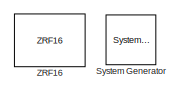
[diagram: root canvas - part 1/3, top left region]
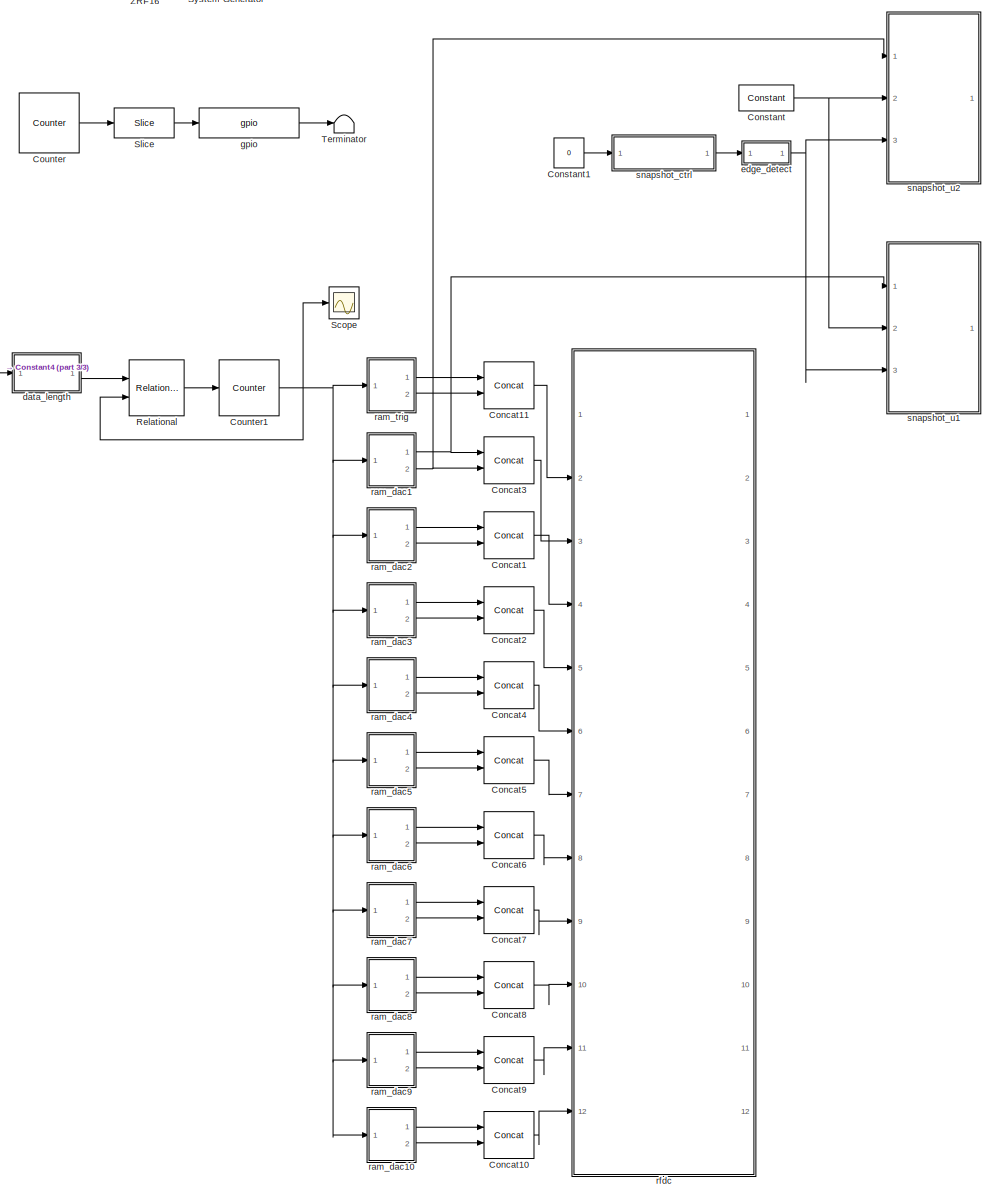
[diagram: root canvas - part 2/3, most of the canvas]
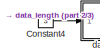
[diagram: root canvas - part 3/3, middle left region]
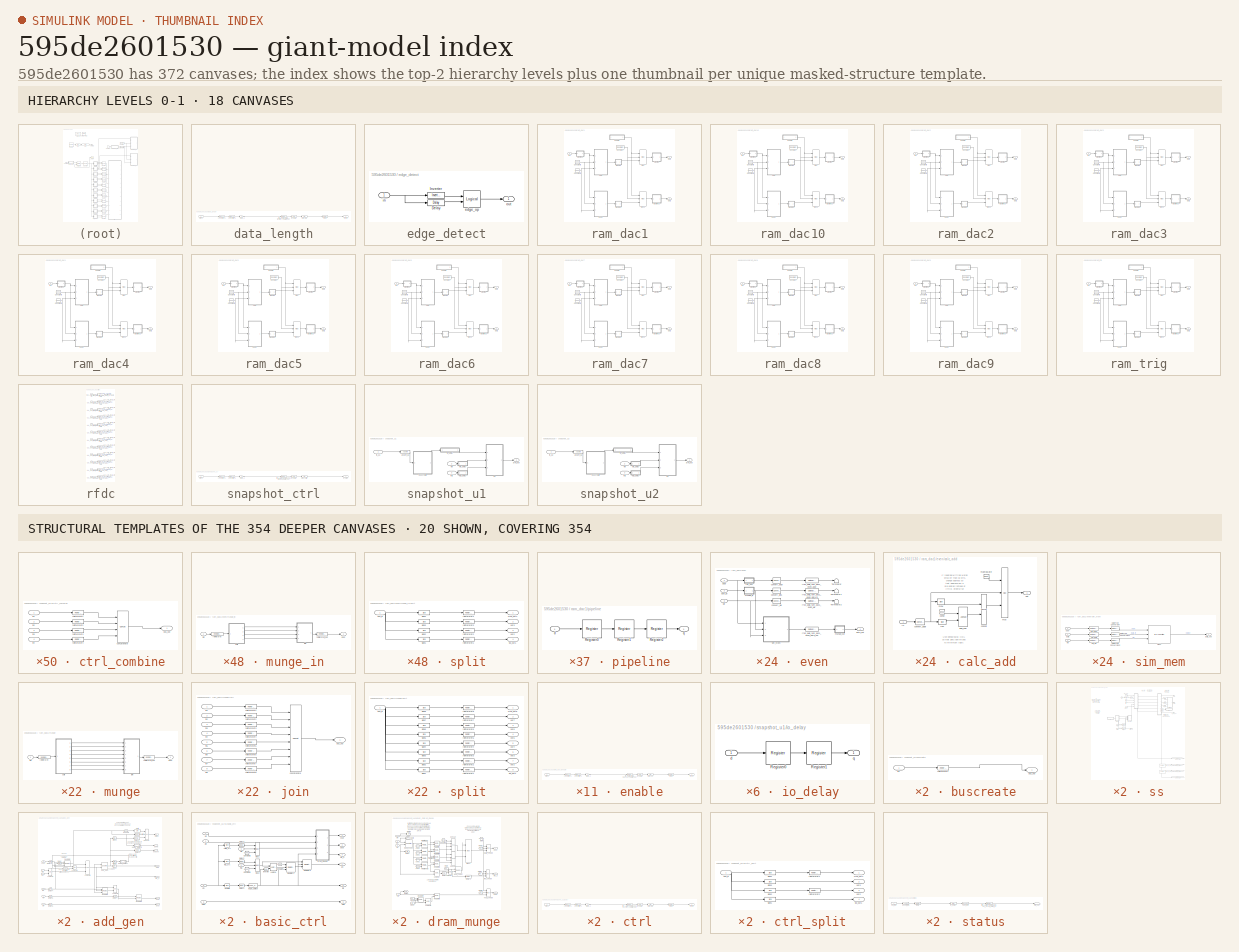
[diagram: thumbnail index - top-2 hierarchy levels (18 canvases) + 20 structural-template representatives of the remaining 354 canvases]
MODEL slx_595de2601530
KIND model
CONFIG AbsTol = auto
CONFIG EnableMultiTasking = off
CONFIG FixedStep = auto
CONFIG MaxStep = auto
CONFIG MinStep = auto
CONFIG RelTol = 1e-3
CONFIG SampleTimeConstraint = Unconstrained
CONFIG SolverName = VariableStepDiscrete
CONFIG StartTime = 0.0
CONFIG StopTime = 10.0
BLOCK [Reference]  System Generator  REF=xbsIndex_r4/ System Generator
  AttributesFormatString = System\nGenerator
  Ports = []
  SourceBlock = xbsIndex_r4/ System Generator
  SourceType = Xilinx System Generator Block
  Tag = genX
  UserDataPersistent = on
BLOCK [Reference] Concat1  REF=xbsIndex_r4/Concat
  Ports = [2, 1]
  SourceBlock = xbsIndex_r4/Concat
  SourceType = Xilinx Bus Concatenator Block
BLOCK [Reference] Concat10  REF=xbsIndex_r4/Concat
  Ports = [2, 1]
  SourceBlock = xbsIndex_r4/Concat
  SourceType = Xilinx Bus Concatenator Block
BLOCK [Reference] Concat11  REF=xbsIndex_r4/Concat
  Ports = [2, 1]
  SourceBlock = xbsIndex_r4/Concat
  SourceType = Xilinx Bus Concatenator Block
BLOCK [Reference] Concat2  REF=xbsIndex_r4/Concat
  Ports = [2, 1]
  SourceBlock = xbsIndex_r4/Concat
  SourceType = Xilinx Bus Concatenator Block
BLOCK [Reference] Concat3  REF=xbsIndex_r4/Concat
  Ports = [2, 1]
  SourceBlock = xbsIndex_r4/Concat
  SourceType = Xilinx Bus Concatenator Block
BLOCK [Reference] Concat4  REF=xbsIndex_r4/Concat
  Ports = [2, 1]
  SourceBlock = xbsIndex_r4/Concat
  SourceType = Xilinx Bus Concatenator Block
BLOCK [Reference] Concat5  REF=xbsIndex_r4/Concat
  Ports = [2, 1]
  SourceBlock = xbsIndex_r4/Concat
  SourceType = Xilinx Bus Concatenator Block
BLOCK [Reference] Concat6  REF=xbsIndex_r4/Concat
  Ports = [2, 1]
  SourceBlock = xbsIndex_r4/Concat
  SourceType = Xilinx Bus Concatenator Block
BLOCK [Reference] Concat7  REF=xbsIndex_r4/Concat
  Ports = [2, 1]
  SourceBlock = xbsIndex_r4/Concat
  SourceType = Xilinx Bus Concatenator Block
BLOCK [Reference] Concat8  REF=xbsIndex_r4/Concat
  Ports = [2, 1]
  SourceBlock = xbsIndex_r4/Concat
  SourceType = Xilinx Bus Concatenator Block
BLOCK [Reference] Concat9  REF=xbsIndex_r4/Concat
  Ports = [2, 1]
  SourceBlock = xbsIndex_r4/Concat
  SourceType = Xilinx Bus Concatenator Block
BLOCK [Reference] Constant  REF=xbsIndex_r4/Constant
  Ports = [0, 1]
  SourceBlock = xbsIndex_r4/Constant
  SourceType = Xilinx Constant Block Block
BLOCK [Constant] Constant1
  Value = 0
BLOCK [Constant] Constant4
  Value = 3
BLOCK [Reference] Counter  REF=xbsIndex_r4/Counter
  Ports = [0, 1]
  SourceBlock = xbsIndex_r4/Counter
  SourceType = Xilinx Counter Block
BLOCK [Reference] Counter1  REF=xbsIndex_r4/Counter
  Ports = [1, 1]
  SourceBlock = xbsIndex_r4/Counter
  SourceType = Xilinx Counter Block
BLOCK [Reference] Relational  REF=xbsIndex_r4/Relational
  Ports = [2, 1]
  SourceBlock = xbsIndex_r4/Relational
  SourceType = Xilinx Arithmetic Relational Operator Block
BLOCK [Scope] Scope
  Floating = off
  NumInputPorts = 1
  Ports = [1]
  ScopeSpecificationString = Simulink.scopes.TimeScopeBlockCfg('CurrentConfiguration', extmgr.ConfigurationSet(extmgr.Configuration('Core','General UI',true),extmgr.Configuration('Core','Source UI',true),extmgr.Configuration('Sources','WiredSimulink',true),extmgr.Configuration('Visuals','Time Domain',true,'SerializedDisplays',{struct('MinYLimReal','-0.375','MaxYLimReal','3.375','YLabelReal','','MinYLimMag','0.00000','MaxYLimM...<+1345ch>
BLOCK [Reference] Slice  REF=xbsIndex_r4/Slice
  Ports = [1, 1]
  SourceBlock = xbsIndex_r4/Slice
  SourceType = Xilinx Bit Slice Extractor Block
BLOCK [Terminator] Terminator
BLOCK [Reference] ZRF16  REF=xps_library/Platforms/ZRF16  (lib defined in mdl_00b5cec29cd0, mdl_02ab6ecaa3d1, +5 more)
  Ports = []
  SourceBlock = xps_library/Platforms/ZRF16
  SourceProductName = CASPER XPS Blockset
  SourceType = xsg core config
  Tag = xps:xsg
BLOCK [SubSystem] data_length
  AncestorBlock = xps_library/Memory/software_register
  AttributesFormatString = 1input:uf32.0 = 32 bits
  Ports = [1, 1]
  RequestExecContextInheritance = off
  Tag = xps:sw_reg
BLOCK [DataTypeConversion] data_length/convert1_1
  LockScale = on
  OutDataTypeStr = fixdt('ufix32_En0')
  RndMeth = Floor
  SaturateOnIntegerOverflow = off
BLOCK [DataTypeConversion] data_length/convert2_1
  ConvertRealWorld = Stored Integer (SI)
  LockScale = on
  OutDataTypeStr = fixdt('ufix32_En0')
  RndMeth = Floor
  SaturateOnIntegerOverflow = off
BLOCK [Gain] data_length/gain_1
  OutDataTypeStr = fixdt('ufix32_En0')
BLOCK [Outport] data_length/in_reg
BLOCK [Reference] data_length/io_delay  REF=xbsIndex_r4/Delay
  Ports = [1, 1]
  SourceBlock = xbsIndex_r4/Delay
  SourceType = Xilinx Delay Block
BLOCK [Reference] data_length/reint1  REF=xbsIndex_r4/Reinterpret
  Ports = [1, 1]
  SourceBlock = xbsIndex_r4/Reinterpret
  SourceType = Xilinx Type Reinterpreter Block
BLOCK [Reference] data_length/rfdc_awg_data_length_user_data_out  REF=xbsIndex_r4/Gateway In
  Ports = [1, 1]
  SourceBlock = xbsIndex_r4/Gateway In
  SourceType = Xilinx Gateway In Block
BLOCK [Inport] data_length/sim_1
BLOCK [Reference] data_length/slice_reg  REF=xbsIndex_r4/Slice
  Ports = [1, 1]
  SourceBlock = xbsIndex_r4/Slice
  SourceType = Xilinx Bit Slice Extractor Block
BLOCK [SubSystem] edge_detect
  AncestorBlock = casper_library_misc/edge_detect
  AttributesFormatString = rising edges\nactive high
  Ports = [1, 1]
  RequestExecContextInheritance = off
  UserDataPersistent = on
BLOCK [Reference] edge_detect/Delay  REF=xbsIndex_r4/Delay
  Ports = [1, 1]
  SourceBlock = xbsIndex_r4/Delay
  SourceType = Xilinx Delay Block
BLOCK [Reference] edge_detect/Inverter  REF=xbsIndex_r4/Inverter
  Ports = [1, 1]
  SourceBlock = xbsIndex_r4/Inverter
  SourceType = Xilinx Inverter Block
BLOCK [Reference] edge_detect/edge_op  REF=xbsIndex_r4/Logical
  Ports = [2, 1]
  SourceBlock = xbsIndex_r4/Logical
  SourceType = Xilinx Logical Block Block
BLOCK [Inport] edge_detect/in
BLOCK [Outport] edge_detect/out
  VectorParamsAs1DForOutWhenUnconnected = off
BLOCK [Reference] gpio  REF=xps_library/IO/gpio  (lib defined in mdl_00b5cec29cd0, mdl_02ab6ecaa3d1, +5 more)
  Ports = [1, 1]
  SourceBlock = xps_library/IO/gpio
  SourceProductName = CASPER XPS Blockset
  SourceType = gpio
  Tag = xps:gpio
BLOCK [SubSystem] ram_dac1
  Ports = [1, 2]
  RequestExecContextInheritance = off
BLOCK [Reference] ram_dac1/Constant  REF=xbsIndex_r4/Constant
  Ports = [0, 1]
  SourceBlock = xbsIndex_r4/Constant
  SourceType = Xilinx Constant Block Block
BLOCK [Reference] ram_dac1/Constant3  REF=xbsIndex_r4/Constant
  Ports = [0, 1]
  SourceBlock = xbsIndex_r4/Constant
  SourceType = Xilinx Constant Block Block
BLOCK [Reference] ram_dac1/Constant5  REF=xbsIndex_r4/Constant
  Ports = [0, 1]
  SourceBlock = xbsIndex_r4/Constant
  SourceType = Xilinx Constant Block Block
BLOCK [Inport] ram_dac1/In1
BLOCK [Reference] ram_dac1/Mux  REF=xbsIndex_r4/Mux
  Ports = [3, 1]
  SourceBlock = xbsIndex_r4/Mux
  SourceType = Xilinx Bus Multiplexer Block
BLOCK [Reference] ram_dac1/Mux1  REF=xbsIndex_r4/Mux
  Ports = [3, 1]
  SourceBlock = xbsIndex_r4/Mux
  SourceType = Xilinx Bus Multiplexer Block
BLOCK [Outport] ram_dac1/Out1
BLOCK [Outport] ram_dac1/Out2
  Port = 2
BLOCK [SubSystem] ram_dac1/enable
  AncestorBlock = xps_library/Memory/software_register
  AttributesFormatString = 1input:uf1.0 = 1 bits
  Ports = [1, 1]
  RequestExecContextInheritance = off
  Tag = xps:sw_reg
BLOCK [DataTypeConversion] ram_dac1/enable/convert1_1
  LockScale = on
  OutDataTypeStr = fixdt('ufix1_En0')
  RndMeth = Floor
  SaturateOnIntegerOverflow = off
BLOCK [DataTypeConversion] ram_dac1/enable/convert2_1
  ConvertRealWorld = Stored Integer (SI)
  LockScale = on
  OutDataTypeStr = fixdt('ufix1_En0')
  RndMeth = Floor
  SaturateOnIntegerOverflow = off
BLOCK [Gain] ram_dac1/enable/gain_1
  OutDataTypeStr = fixdt('ufix32_En0')
BLOCK [Outport] ram_dac1/enable/in_en
BLOCK [Reference] ram_dac1/enable/io_delay  REF=xbsIndex_r4/Delay
  Ports = [1, 1]
  SourceBlock = xbsIndex_r4/Delay
  SourceType = Xilinx Delay Block
BLOCK [Reference] ram_dac1/enable/reint1  REF=xbsIndex_r4/Reinterpret
  Ports = [1, 1]
  SourceBlock = xbsIndex_r4/Reinterpret
  SourceType = Xilinx Type Reinterpreter Block
BLOCK [Reference] ram_dac1/enable/rfdc_awg_ram_dac1_enable_user_data_out  REF=xbsIndex_r4/Gateway In
  Ports = [1, 1]
  SourceBlock = xbsIndex_r4/Gateway In
  SourceType = Xilinx Gateway In Block
BLOCK [Inport] ram_dac1/enable/sim_1
BLOCK [Reference] ram_dac1/enable/slice_en  REF=xbsIndex_r4/Slice
  Ports = [1, 1]
  SourceBlock = xbsIndex_r4/Slice
  SourceType = Xilinx Bit Slice Extractor Block
BLOCK [SubSystem] ram_dac1/even
  AncestorBlock = xps_library/Memory/shared_bram
  Ports = [3, 1]
  RequestExecContextInheritance = off
  Tag = xps:bram
BLOCK [Terminator] ram_dac1/even/Terminator
BLOCK [Terminator] ram_dac1/even/Terminator1
BLOCK [Terminator] ram_dac1/even/Terminator2
BLOCK [Inport] ram_dac1/even/addr
BLOCK [SubSystem] ram_dac1/even/calc_add
  Ports = [1, 1]
  RequestExecContextInheritance = off
BLOCK [Reference] ram_dac1/even/calc_add/add_sub  REF=xbsIndex_r4/AddSub
  Ports = [2, 1]
  SourceBlock = xbsIndex_r4/AddSub
  SourceType = Xilinx Adder/Subtracter Block
BLOCK [Reference] ram_dac1/even/calc_add/concat  REF=xbsIndex_r4/Concat
  Ports = [2, 1]
  SourceBlock = xbsIndex_r4/Concat
  SourceType = Xilinx Bus Concatenator Block
BLOCK [Reference] ram_dac1/even/calc_add/const  REF=xbsIndex_r4/Constant
  Ports = [0, 1]
  SourceBlock = xbsIndex_r4/Constant
  SourceType = Xilinx Constant Block Block
BLOCK [Reference] ram_dac1/even/calc_add/convert_addr  REF=xbsIndex_r4/Convert
  Ports = [1, 1]
  SourceBlock = xbsIndex_r4/Convert
  SourceType = Xilinx Type Converter Block
BLOCK [Inport] ram_dac1/even/calc_add/in
BLOCK [Reference] ram_dac1/even/calc_add/lsw  REF=xbsIndex_r4/Slice
  Ports = [1, 1]
  SourceBlock = xbsIndex_r4/Slice
  SourceType = Xilinx Bit Slice Extractor Block
BLOCK [Reference] ram_dac1/even/calc_add/manipulate  REF=xbsIndex_r4/Constant
  Ports = [0, 1]
  SourceBlock = xbsIndex_r4/Constant
  SourceType = Xilinx Constant Block Block
BLOCK [Reference] ram_dac1/even/calc_add/msw  REF=xbsIndex_r4/Slice
  Ports = [1, 1]
  SourceBlock = xbsIndex_r4/Slice
  SourceType = Xilinx Bit Slice Extractor Block
BLOCK [Reference] ram_dac1/even/calc_add/mux  REF=xbsIndex_r4/Mux
  Ports = [3, 1]
  SourceBlock = xbsIndex_r4/Mux
  SourceType = Xilinx Bus Multiplexer Block
BLOCK [Outport] ram_dac1/even/calc_add/out
  VectorParamsAs1DForOutWhenUnconnected = off
BLOCK [Reference] ram_dac1/even/convert_addr  REF=xbsIndex_r4/Convert
  Ports = [1, 1]
  SourceBlock = xbsIndex_r4/Convert
  SourceType = Xilinx Type Converter Block
BLOCK [Reference] ram_dac1/even/convert_din1  REF=xbsIndex_r4/Convert
  Ports = [1, 1]
  SourceBlock = xbsIndex_r4/Convert
  SourceType = Xilinx Type Converter Block
BLOCK [Reference] ram_dac1/even/convert_we  REF=xbsIndex_r4/Convert
  Ports = [1, 1]
  SourceBlock = xbsIndex_r4/Convert
  SourceType = Xilinx Type Converter Block
BLOCK [Inport] ram_dac1/even/data_in
  Port = 2
BLOCK [Outport] ram_dac1/even/data_out
  VectorParamsAs1DForOutWhenUnconnected = off
BLOCK [SubSystem] ram_dac1/even/munge_in
  AncestorBlock = casper_library_flow_control/munge
  AttributesFormatString = split:[32 32 32 32]\njoin:[3 2 1 0]\nUnsigned [128,0]
  Ports = [1, 1]
  RequestExecContextInheritance = off
  UserDataPersistent = on
BLOCK [Inport] ram_dac1/even/munge_in/din
BLOCK [Outport] ram_dac1/even/munge_in/dout
  VectorParamsAs1DForOutWhenUnconnected = off
BLOCK [SubSystem] ram_dac1/even/munge_in/join
  AncestorBlock = casper_library_flow_control/bus_create
  Ports = [4, 1]
  RequestExecContextInheritance = off
  UserDataPersistent = on
BLOCK [Outport] ram_dac1/even/munge_in/join/bus_out
  VectorParamsAs1DForOutWhenUnconnected = off
BLOCK [Reference] ram_dac1/even/munge_in/join/concatenate  REF=xbsIndex_r4/Concat
  Ports = [4, 1]
  SourceBlock = xbsIndex_r4/Concat
  SourceType = Xilinx Bus Concatenator Block
BLOCK [Inport] ram_dac1/even/munge_in/join/in1
BLOCK [Inport] ram_dac1/even/munge_in/join/in2
  Port = 2
BLOCK [Inport] ram_dac1/even/munge_in/join/in3
  Port = 3
BLOCK [Inport] ram_dac1/even/munge_in/join/in4
  Port = 4
BLOCK [Reference] ram_dac1/even/munge_in/join/reinterpret1  REF=xbsIndex_r4/Reinterpret
  Ports = [1, 1]
  SourceBlock = xbsIndex_r4/Reinterpret
  SourceType = Xilinx Type Reinterpreter Block
BLOCK [Reference] ram_dac1/even/munge_in/join/reinterpret2  REF=xbsIndex_r4/Reinterpret
  Ports = [1, 1]
  SourceBlock = xbsIndex_r4/Reinterpret
  SourceType = Xilinx Type Reinterpreter Block
BLOCK [Reference] ram_dac1/even/munge_in/join/reinterpret3  REF=xbsIndex_r4/Reinterpret
  Ports = [1, 1]
  SourceBlock = xbsIndex_r4/Reinterpret
  SourceType = Xilinx Type Reinterpreter Block
BLOCK [Reference] ram_dac1/even/munge_in/join/reinterpret4  REF=xbsIndex_r4/Reinterpret
  Ports = [1, 1]
  SourceBlock = xbsIndex_r4/Reinterpret
  SourceType = Xilinx Type Reinterpreter Block
BLOCK [Reference] ram_dac1/even/munge_in/reinterpret  REF=xbsIndex_r4/Reinterpret
  Ports = [1, 1]
  SourceBlock = xbsIndex_r4/Reinterpret
  SourceType = Xilinx Type Reinterpreter Block
BLOCK [Reference] ram_dac1/even/munge_in/reinterpret_out  REF=xbsIndex_r4/Reinterpret
  Ports = [1, 1]
  SourceBlock = xbsIndex_r4/Reinterpret
  SourceType = Xilinx Type Reinterpreter Block
BLOCK [SubSystem] ram_dac1/even/munge_in/split
  AncestorBlock = casper_library_flow_control/bus_expand
  AttributesFormatString = 4 outputs
  Ports = [1, 4]
  RequestExecContextInheritance = off
  UserDataPersistent = on
BLOCK [Inport] ram_dac1/even/munge_in/split/bus_in
BLOCK [Outport] ram_dac1/even/munge_in/split/lsb_out1
  Port = 4
  VectorParamsAs1DForOutWhenUnconnected = off
BLOCK [Outport] ram_dac1/even/munge_in/split/msb_out4
BLOCK [Outport] ram_dac1/even/munge_in/split/out2
  Port = 3
BLOCK [Outport] ram_dac1/even/munge_in/split/out3
  Port = 2
BLOCK [Reference] ram_dac1/even/munge_in/split/reinterpret1  REF=xbsIndex_r4/Reinterpret
  Ports = [1, 1]
  SourceBlock = xbsIndex_r4/Reinterpret
  SourceType = Xilinx Type Reinterpreter Block
BLOCK [Reference] ram_dac1/even/munge_in/split/reinterpret2  REF=xbsIndex_r4/Reinterpret
  Ports = [1, 1]
  SourceBlock = xbsIndex_r4/Reinterpret
  SourceType = Xilinx Type Reinterpreter Block
BLOCK [Reference] ram_dac1/even/munge_in/split/reinterpret3  REF=xbsIndex_r4/Reinterpret
  Ports = [1, 1]
  SourceBlock = xbsIndex_r4/Reinterpret
  SourceType = Xilinx Type Reinterpreter Block
BLOCK [Reference] ram_dac1/even/munge_in/split/reinterpret4  REF=xbsIndex_r4/Reinterpret
  Ports = [1, 1]
  SourceBlock = xbsIndex_r4/Reinterpret
  SourceType = Xilinx Type Reinterpreter Block
BLOCK [Reference] ram_dac1/even/munge_in/split/slice1  REF=xbsIndex_r4/Slice
  Ports = [1, 1]
  SourceBlock = xbsIndex_r4/Slice
  SourceType = Xilinx Bit Slice Extractor Block
BLOCK [Reference] ram_dac1/even/munge_in/split/slice2  REF=xbsIndex_r4/Slice
  Ports = [1, 1]
  SourceBlock = xbsIndex_r4/Slice
  SourceType = Xilinx Bit Slice Extractor Block
BLOCK [Reference] ram_dac1/even/munge_in/split/slice3  REF=xbsIndex_r4/Slice
  Ports = [1, 1]
  SourceBlock = xbsIndex_r4/Slice
  SourceType = Xilinx Bit Slice Extractor Block
BLOCK [Reference] ram_dac1/even/munge_in/split/slice4  REF=xbsIndex_r4/Slice
  Ports = [1, 1]
  SourceBlock = xbsIndex_r4/Slice
  SourceType = Xilinx Bit Slice Extractor Block
BLOCK [SubSystem] ram_dac1/even/munge_out
  AncestorBlock = casper_library_flow_control/munge
  AttributesFormatString = split:[32 32 32 32]\njoin:[3 2 1 0]\nUnsigned [128,0]
  Ports = [1, 1]
  RequestExecContextInheritance = off
  UserDataPersistent = on
BLOCK [Inport] ram_dac1/even/munge_out/din
BLOCK [Outport] ram_dac1/even/munge_out/dout
  VectorParamsAs1DForOutWhenUnconnected = off
BLOCK [SubSystem] ram_dac1/even/munge_out/join
  AncestorBlock = casper_library_flow_control/bus_create
  Ports = [4, 1]
  RequestExecContextInheritance = off
  UserDataPersistent = on
BLOCK [Outport] ram_dac1/even/munge_out/join/bus_out
  VectorParamsAs1DForOutWhenUnconnected = off
BLOCK [Reference] ram_dac1/even/munge_out/join/concatenate  REF=xbsIndex_r4/Concat
  Ports = [4, 1]
  SourceBlock = xbsIndex_r4/Concat
  SourceType = Xilinx Bus Concatenator Block
BLOCK [Inport] ram_dac1/even/munge_out/join/in1
BLOCK [Inport] ram_dac1/even/munge_out/join/in2
  Port = 2
BLOCK [Inport] ram_dac1/even/munge_out/join/in3
  Port = 3
BLOCK [Inport] ram_dac1/even/munge_out/join/in4
  Port = 4
BLOCK [Reference] ram_dac1/even/munge_out/join/reinterpret1  REF=xbsIndex_r4/Reinterpret
  Ports = [1, 1]
  SourceBlock = xbsIndex_r4/Reinterpret
  SourceType = Xilinx Type Reinterpreter Block
BLOCK [Reference] ram_dac1/even/munge_out/join/reinterpret2  REF=xbsIndex_r4/Reinterpret
  Ports = [1, 1]
  SourceBlock = xbsIndex_r4/Reinterpret
  SourceType = Xilinx Type Reinterpreter Block
BLOCK [Reference] ram_dac1/even/munge_out/join/reinterpret3  REF=xbsIndex_r4/Reinterpret
  Ports = [1, 1]
  SourceBlock = xbsIndex_r4/Reinterpret
  SourceType = Xilinx Type Reinterpreter Block
BLOCK [Reference] ram_dac1/even/munge_out/join/reinterpret4  REF=xbsIndex_r4/Reinterpret
  Ports = [1, 1]
  SourceBlock = xbsIndex_r4/Reinterpret
  SourceType = Xilinx Type Reinterpreter Block
BLOCK [Reference] ram_dac1/even/munge_out/reinterpret  REF=xbsIndex_r4/Reinterpret
  Ports = [1, 1]
  SourceBlock = xbsIndex_r4/Reinterpret
  SourceType = Xilinx Type Reinterpreter Block
BLOCK [Reference] ram_dac1/even/munge_out/reinterpret_out  REF=xbsIndex_r4/Reinterpret
  Ports = [1, 1]
  SourceBlock = xbsIndex_r4/Reinterpret
  SourceType = Xilinx Type Reinterpreter Block
BLOCK [SubSystem] ram_dac1/even/munge_out/split
  AncestorBlock = casper_library_flow_control/bus_expand
  AttributesFormatString = 4 outputs
  Ports = [1, 4]
  RequestExecContextInheritance = off
  UserDataPersistent = on
BLOCK [Inport] ram_dac1/even/munge_out/split/bus_in
BLOCK [Outport] ram_dac1/even/munge_out/split/lsb_out1
  Port = 4
  VectorParamsAs1DForOutWhenUnconnected = off
BLOCK [Outport] ram_dac1/even/munge_out/split/msb_out4
BLOCK [Outport] ram_dac1/even/munge_out/split/out2
  Port = 3
BLOCK [Outport] ram_dac1/even/munge_out/split/out3
  Port = 2
BLOCK [Reference] ram_dac1/even/munge_out/split/reinterpret1  REF=xbsIndex_r4/Reinterpret
  Ports = [1, 1]
  SourceBlock = xbsIndex_r4/Reinterpret
  SourceType = Xilinx Type Reinterpreter Block
BLOCK [Reference] ram_dac1/even/munge_out/split/reinterpret2  REF=xbsIndex_r4/Reinterpret
  Ports = [1, 1]
  SourceBlock = xbsIndex_r4/Reinterpret
  SourceType = Xilinx Type Reinterpreter Block
BLOCK [Reference] ram_dac1/even/munge_out/split/reinterpret3  REF=xbsIndex_r4/Reinterpret
  Ports = [1, 1]
  SourceBlock = xbsIndex_r4/Reinterpret
  SourceType = Xilinx Type Reinterpreter Block
BLOCK [Reference] ram_dac1/even/munge_out/split/reinterpret4  REF=xbsIndex_r4/Reinterpret
  Ports = [1, 1]
  SourceBlock = xbsIndex_r4/Reinterpret
  SourceType = Xilinx Type Reinterpreter Block
BLOCK [Reference] ram_dac1/even/munge_out/split/slice1  REF=xbsIndex_r4/Slice
  Ports = [1, 1]
  SourceBlock = xbsIndex_r4/Slice
  SourceType = Xilinx Bit Slice Extractor Block
BLOCK [Reference] ram_dac1/even/munge_out/split/slice2  REF=xbsIndex_r4/Slice
  Ports = [1, 1]
  SourceBlock = xbsIndex_r4/Slice
  SourceType = Xilinx Bit Slice Extractor Block
BLOCK [Reference] ram_dac1/even/munge_out/split/slice3  REF=xbsIndex_r4/Slice
  Ports = [1, 1]
  SourceBlock = xbsIndex_r4/Slice
  SourceType = Xilinx Bit Slice Extractor Block
BLOCK [Reference] ram_dac1/even/munge_out/split/slice4  REF=xbsIndex_r4/Slice
  Ports = [1, 1]
  SourceBlock = xbsIndex_r4/Slice
  SourceType = Xilinx Bit Slice Extractor Block
BLOCK [Reference] ram_dac1/even/rfdc_awg_ram_dac1_even_addr  REF=xbsIndex_r4/Gateway Out
  Ports = [1, 1]
  SourceBlock = xbsIndex_r4/Gateway Out
  SourceType = Xilinx Gateway Out Block
BLOCK [Reference] ram_dac1/even/rfdc_awg_ram_dac1_even_data_in  REF=xbsIndex_r4/Gateway Out
  Ports = [1, 1]
  SourceBlock = xbsIndex_r4/Gateway Out
  SourceType = Xilinx Gateway Out Block
BLOCK [Reference] ram_dac1/even/rfdc_awg_ram_dac1_even_data_out  REF=xbsIndex_r4/Gateway In
  Ports = [1, 1]
  SourceBlock = xbsIndex_r4/Gateway In
  SourceType = Xilinx Gateway In Block
BLOCK [Reference] ram_dac1/even/rfdc_awg_ram_dac1_even_we  REF=xbsIndex_r4/Gateway Out
  Ports = [1, 1]
  SourceBlock = xbsIndex_r4/Gateway Out
  SourceType = Xilinx Gateway Out Block
BLOCK [SubSystem] ram_dac1/even/sim_mem
  Ports = [3, 1]
  RequestExecContextInheritance = off
BLOCK [DataTypeConversion] ram_dac1/even/sim_mem/Data Type Conversion
  OutDataTypeStr = single
  RndMeth = Floor
  SaturateOnIntegerOverflow = off
BLOCK [DataTypeConversion] ram_dac1/even/sim_mem/Data Type Conversion1
  OutDataTypeStr = double
  RndMeth = Floor
  SaturateOnIntegerOverflow = off
BLOCK [DataTypeConversion] ram_dac1/even/sim_mem/Data Type Conversion2
  OutDataTypeStr = boolean
  RndMeth = Floor
  SaturateOnIntegerOverflow = off
BLOCK [Inport] ram_dac1/even/sim_mem/addr
BLOCK [Inport] ram_dac1/even/sim_mem/data
  Port = 2
BLOCK [Outport] ram_dac1/even/sim_mem/data_out
  VectorParamsAs1DForOutWhenUnconnected = off
BLOCK [M-S-Function] ram_dac1/even/sim_mem/sfunc
  FunctionName = shared_bram_sim_sfunc
  Parameters = depth_bits, latency, init_vals
  Ports = [3, 1]
BLOCK [Reference] ram_dac1/even/sim_mem/sim_addr  REF=xbsIndex_r4/Gateway Out
  Ports = [1, 1]
  SourceBlock = xbsIndex_r4/Gateway Out
  SourceType = Xilinx Gateway Out Block
BLOCK [Reference] ram_dac1/even/sim_mem/sim_data  REF=xbsIndex_r4/Gateway Out
  Ports = [1, 1]
  SourceBlock = xbsIndex_r4/Gateway Out
  SourceType = Xilinx Gateway Out Block
BLOCK [Reference] ram_dac1/even/sim_mem/sim_we  REF=xbsIndex_r4/Gateway Out
  Ports = [1, 1]
  SourceBlock = xbsIndex_r4/Gateway Out
  SourceType = Xilinx Gateway Out Block
BLOCK [Inport] ram_dac1/even/sim_mem/we
  Port = 3
BLOCK [Inport] ram_dac1/even/we
  Port = 3
BLOCK [SubSystem] ram_dac1/munge
  AncestorBlock = casper_library_flow_control/munge
  AttributesFormatString = split:[16 16 16 16 16 16 16 16]\njoin:[7 6 5 4 3 2 1 0]\nUnsigned [128,0]
  Ports = [1, 1]
  RequestExecContextInheritance = off
  UserDataPersistent = on
BLOCK [Inport] ram_dac1/munge/din
BLOCK [Outport] ram_dac1/munge/dout
BLOCK [SubSystem] ram_dac1/munge/join
  AncestorBlock = casper_library_flow_control/bus_create
  Ports = [8, 1]
  RequestExecContextInheritance = off
  UserDataPersistent = on
BLOCK [Outport] ram_dac1/munge/join/bus_out
  VectorParamsAs1DForOutWhenUnconnected = off
BLOCK [Reference] ram_dac1/munge/join/concatenate  REF=xbsIndex_r4/Concat
  Ports = [8, 1]
  SourceBlock = xbsIndex_r4/Concat
  SourceType = Xilinx Bus Concatenator Block
BLOCK [Inport] ram_dac1/munge/join/in1
BLOCK [Inport] ram_dac1/munge/join/in2
  Port = 2
BLOCK [Inport] ram_dac1/munge/join/in3
  Port = 3
BLOCK [Inport] ram_dac1/munge/join/in4
  Port = 4
BLOCK [Inport] ram_dac1/munge/join/in5
  Port = 5
BLOCK [Inport] ram_dac1/munge/join/in6
  Port = 6
BLOCK [Inport] ram_dac1/munge/join/in7
  Port = 7
BLOCK [Inport] ram_dac1/munge/join/in8
  Port = 8
BLOCK [Reference] ram_dac1/munge/join/reinterpret1  REF=xbsIndex_r4/Reinterpret
  Ports = [1, 1]
  SourceBlock = xbsIndex_r4/Reinterpret
  SourceType = Xilinx Type Reinterpreter Block
BLOCK [Reference] ram_dac1/munge/join/reinterpret2  REF=xbsIndex_r4/Reinterpret
  Ports = [1, 1]
  SourceBlock = xbsIndex_r4/Reinterpret
  SourceType = Xilinx Type Reinterpreter Block
BLOCK [Reference] ram_dac1/munge/join/reinterpret3  REF=xbsIndex_r4/Reinterpret
  Ports = [1, 1]
  SourceBlock = xbsIndex_r4/Reinterpret
  SourceType = Xilinx Type Reinterpreter Block
BLOCK [Reference] ram_dac1/munge/join/reinterpret4  REF=xbsIndex_r4/Reinterpret
  Ports = [1, 1]
  SourceBlock = xbsIndex_r4/Reinterpret
  SourceType = Xilinx Type Reinterpreter Block
BLOCK [Reference] ram_dac1/munge/join/reinterpret5  REF=xbsIndex_r4/Reinterpret
  Ports = [1, 1]
  SourceBlock = xbsIndex_r4/Reinterpret
  SourceType = Xilinx Type Reinterpreter Block
BLOCK [Reference] ram_dac1/munge/join/reinterpret6  REF=xbsIndex_r4/Reinterpret
  Ports = [1, 1]
  SourceBlock = xbsIndex_r4/Reinterpret
  SourceType = Xilinx Type Reinterpreter Block
BLOCK [Reference] ram_dac1/munge/join/reinterpret7  REF=xbsIndex_r4/Reinterpret
  Ports = [1, 1]
  SourceBlock = xbsIndex_r4/Reinterpret
  SourceType = Xilinx Type Reinterpreter Block
BLOCK [Reference] ram_dac1/munge/join/reinterpret8  REF=xbsIndex_r4/Reinterpret
  Ports = [1, 1]
  SourceBlock = xbsIndex_r4/Reinterpret
  SourceType = Xilinx Type Reinterpreter Block
BLOCK [Reference] ram_dac1/munge/reinterpret  REF=xbsIndex_r4/Reinterpret
  Ports = [1, 1]
  SourceBlock = xbsIndex_r4/Reinterpret
  SourceType = Xilinx Type Reinterpreter Block
BLOCK [Reference] ram_dac1/munge/reinterpret_out  REF=xbsIndex_r4/Reinterpret
  Ports = [1, 1]
  SourceBlock = xbsIndex_r4/Reinterpret
  SourceType = Xilinx Type Reinterpreter Block
BLOCK [SubSystem] ram_dac1/munge/split
  AncestorBlock = casper_library_flow_control/bus_expand
  AttributesFormatString = 8 outputs
  Ports = [1, 8]
  RequestExecContextInheritance = off
  UserDataPersistent = on
BLOCK [Inport] ram_dac1/munge/split/bus_in
BLOCK [Outport] ram_dac1/munge/split/lsb_out1
  Port = 8
  VectorParamsAs1DForOutWhenUnconnected = off
BLOCK [Outport] ram_dac1/munge/split/msb_out8
BLOCK [Outport] ram_dac1/munge/split/out2
  Port = 7
BLOCK [Outport] ram_dac1/munge/split/out3
  Port = 6
BLOCK [Outport] ram_dac1/munge/split/out4
  Port = 5
BLOCK [Outport] ram_dac1/munge/split/out5
  Port = 4
BLOCK [Outport] ram_dac1/munge/split/out6
  Port = 3
BLOCK [Outport] ram_dac1/munge/split/out7
  Port = 2
BLOCK [Reference] ram_dac1/munge/split/reinterpret1  REF=xbsIndex_r4/Reinterpret
  Ports = [1, 1]
  SourceBlock = xbsIndex_r4/Reinterpret
  SourceType = Xilinx Type Reinterpreter Block
BLOCK [Reference] ram_dac1/munge/split/reinterpret2  REF=xbsIndex_r4/Reinterpret
  Ports = [1, 1]
  SourceBlock = xbsIndex_r4/Reinterpret
  SourceType = Xilinx Type Reinterpreter Block
BLOCK [Reference] ram_dac1/munge/split/reinterpret3  REF=xbsIndex_r4/Reinterpret
  Ports = [1, 1]
  SourceBlock = xbsIndex_r4/Reinterpret
  SourceType = Xilinx Type Reinterpreter Block
BLOCK [Reference] ram_dac1/munge/split/reinterpret4  REF=xbsIndex_r4/Reinterpret
  Ports = [1, 1]
  SourceBlock = xbsIndex_r4/Reinterpret
  SourceType = Xilinx Type Reinterpreter Block
BLOCK [Reference] ram_dac1/munge/split/reinterpret5  REF=xbsIndex_r4/Reinterpret
  Ports = [1, 1]
  SourceBlock = xbsIndex_r4/Reinterpret
  SourceType = Xilinx Type Reinterpreter Block
BLOCK [Reference] ram_dac1/munge/split/reinterpret6  REF=xbsIndex_r4/Reinterpret
  Ports = [1, 1]
  SourceBlock = xbsIndex_r4/Reinterpret
  SourceType = Xilinx Type Reinterpreter Block
BLOCK [Reference] ram_dac1/munge/split/reinterpret7  REF=xbsIndex_r4/Reinterpret
  Ports = [1, 1]
  SourceBlock = xbsIndex_r4/Reinterpret
  SourceType = Xilinx Type Reinterpreter Block
BLOCK [Reference] ram_dac1/munge/split/reinterpret8  REF=xbsIndex_r4/Reinterpret
  Ports = [1, 1]
  SourceBlock = xbsIndex_r4/Reinterpret
  SourceType = Xilinx Type Reinterpreter Block
BLOCK [Reference] ram_dac1/munge/split/slice1  REF=xbsIndex_r4/Slice
  Ports = [1, 1]
  SourceBlock = xbsIndex_r4/Slice
  SourceType = Xilinx Bit Slice Extractor Block
BLOCK [Reference] ram_dac1/munge/split/slice2  REF=xbsIndex_r4/Slice
  Ports = [1, 1]
  SourceBlock = xbsIndex_r4/Slice
  SourceType = Xilinx Bit Slice Extractor Block
BLOCK [Reference] ram_dac1/munge/split/slice3  REF=xbsIndex_r4/Slice
  Ports = [1, 1]
  SourceBlock = xbsIndex_r4/Slice
  SourceType = Xilinx Bit Slice Extractor Block
BLOCK [Reference] ram_dac1/munge/split/slice4  REF=xbsIndex_r4/Slice
  Ports = [1, 1]
  SourceBlock = xbsIndex_r4/Slice
  SourceType = Xilinx Bit Slice Extractor Block
BLOCK [Reference] ram_dac1/munge/split/slice5  REF=xbsIndex_r4/Slice
  Ports = [1, 1]
  SourceBlock = xbsIndex_r4/Slice
  SourceType = Xilinx Bit Slice Extractor Block
BLOCK [Reference] ram_dac1/munge/split/slice6  REF=xbsIndex_r4/Slice
  Ports = [1, 1]
  SourceBlock = xbsIndex_r4/Slice
  SourceType = Xilinx Bit Slice Extractor Block
BLOCK [Reference] ram_dac1/munge/split/slice7  REF=xbsIndex_r4/Slice
  Ports = [1, 1]
  SourceBlock = xbsIndex_r4/Slice
  SourceType = Xilinx Bit Slice Extractor Block
BLOCK [Reference] ram_dac1/munge/split/slice8  REF=xbsIndex_r4/Slice
  Ports = [1, 1]
  SourceBlock = xbsIndex_r4/Slice
  SourceType = Xilinx Bit Slice Extractor Block
BLOCK [SubSystem] ram_dac1/munge1
  AncestorBlock = casper_library_flow_control/munge
  AttributesFormatString = split:[16 16 16 16 16 16 16 16]\njoin:[7 6 5 4 3 2 1 0]\nUnsigned [128,0]
  Ports = [1, 1]
  RequestExecContextInheritance = off
  UserDataPersistent = on
BLOCK [Inport] ram_dac1/munge1/din
BLOCK [Outport] ram_dac1/munge1/dout
BLOCK [SubSystem] ram_dac1/munge1/join
  AncestorBlock = casper_library_flow_control/bus_create
  Ports = [8, 1]
  RequestExecContextInheritance = off
  UserDataPersistent = on
BLOCK [Outport] ram_dac1/munge1/join/bus_out
  VectorParamsAs1DForOutWhenUnconnected = off
BLOCK [Reference] ram_dac1/munge1/join/concatenate  REF=xbsIndex_r4/Concat
  Ports = [8, 1]
  SourceBlock = xbsIndex_r4/Concat
  SourceType = Xilinx Bus Concatenator Block
BLOCK [Inport] ram_dac1/munge1/join/in1
BLOCK [Inport] ram_dac1/munge1/join/in2
  Port = 2
BLOCK [Inport] ram_dac1/munge1/join/in3
  Port = 3
BLOCK [Inport] ram_dac1/munge1/join/in4
  Port = 4
BLOCK [Inport] ram_dac1/munge1/join/in5
  Port = 5
BLOCK [Inport] ram_dac1/munge1/join/in6
  Port = 6
BLOCK [Inport] ram_dac1/munge1/join/in7
  Port = 7
BLOCK [Inport] ram_dac1/munge1/join/in8
  Port = 8
BLOCK [Reference] ram_dac1/munge1/join/reinterpret1  REF=xbsIndex_r4/Reinterpret
  Ports = [1, 1]
  SourceBlock = xbsIndex_r4/Reinterpret
  SourceType = Xilinx Type Reinterpreter Block
BLOCK [Reference] ram_dac1/munge1/join/reinterpret2  REF=xbsIndex_r4/Reinterpret
  Ports = [1, 1]
  SourceBlock = xbsIndex_r4/Reinterpret
  SourceType = Xilinx Type Reinterpreter Block
BLOCK [Reference] ram_dac1/munge1/join/reinterpret3  REF=xbsIndex_r4/Reinterpret
  Ports = [1, 1]
  SourceBlock = xbsIndex_r4/Reinterpret
  SourceType = Xilinx Type Reinterpreter Block
BLOCK [Reference] ram_dac1/munge1/join/reinterpret4  REF=xbsIndex_r4/Reinterpret
  Ports = [1, 1]
  SourceBlock = xbsIndex_r4/Reinterpret
  SourceType = Xilinx Type Reinterpreter Block
BLOCK [Reference] ram_dac1/munge1/join/reinterpret5  REF=xbsIndex_r4/Reinterpret
  Ports = [1, 1]
  SourceBlock = xbsIndex_r4/Reinterpret
  SourceType = Xilinx Type Reinterpreter Block
BLOCK [Reference] ram_dac1/munge1/join/reinterpret6  REF=xbsIndex_r4/Reinterpret
  Ports = [1, 1]
  SourceBlock = xbsIndex_r4/Reinterpret
  SourceType = Xilinx Type Reinterpreter Block
BLOCK [Reference] ram_dac1/munge1/join/reinterpret7  REF=xbsIndex_r4/Reinterpret
  Ports = [1, 1]
  SourceBlock = xbsIndex_r4/Reinterpret
  SourceType = Xilinx Type Reinterpreter Block
BLOCK [Reference] ram_dac1/munge1/join/reinterpret8  REF=xbsIndex_r4/Reinterpret
  Ports = [1, 1]
  SourceBlock = xbsIndex_r4/Reinterpret
  SourceType = Xilinx Type Reinterpreter Block
BLOCK [Reference] ram_dac1/munge1/reinterpret  REF=xbsIndex_r4/Reinterpret
  Ports = [1, 1]
  SourceBlock = xbsIndex_r4/Reinterpret
  SourceType = Xilinx Type Reinterpreter Block
BLOCK [Reference] ram_dac1/munge1/reinterpret_out  REF=xbsIndex_r4/Reinterpret
  Ports = [1, 1]
  SourceBlock = xbsIndex_r4/Reinterpret
  SourceType = Xilinx Type Reinterpreter Block
BLOCK [SubSystem] ram_dac1/munge1/split
  AncestorBlock = casper_library_flow_control/bus_expand
  AttributesFormatString = 8 outputs
  Ports = [1, 8]
  RequestExecContextInheritance = off
  UserDataPersistent = on
BLOCK [Inport] ram_dac1/munge1/split/bus_in
BLOCK [Outport] ram_dac1/munge1/split/lsb_out1
  Port = 8
  VectorParamsAs1DForOutWhenUnconnected = off
BLOCK [Outport] ram_dac1/munge1/split/msb_out8
BLOCK [Outport] ram_dac1/munge1/split/out2
  Port = 7
BLOCK [Outport] ram_dac1/munge1/split/out3
  Port = 6
BLOCK [Outport] ram_dac1/munge1/split/out4
  Port = 5
BLOCK [Outport] ram_dac1/munge1/split/out5
  Port = 4
BLOCK [Outport] ram_dac1/munge1/split/out6
  Port = 3
BLOCK [Outport] ram_dac1/munge1/split/out7
  Port = 2
BLOCK [Reference] ram_dac1/munge1/split/reinterpret1  REF=xbsIndex_r4/Reinterpret
  Ports = [1, 1]
  SourceBlock = xbsIndex_r4/Reinterpret
  SourceType = Xilinx Type Reinterpreter Block
BLOCK [Reference] ram_dac1/munge1/split/reinterpret2  REF=xbsIndex_r4/Reinterpret
  Ports = [1, 1]
  SourceBlock = xbsIndex_r4/Reinterpret
  SourceType = Xilinx Type Reinterpreter Block
BLOCK [Reference] ram_dac1/munge1/split/reinterpret3  REF=xbsIndex_r4/Reinterpret
  Ports = [1, 1]
  SourceBlock = xbsIndex_r4/Reinterpret
  SourceType = Xilinx Type Reinterpreter Block
BLOCK [Reference] ram_dac1/munge1/split/reinterpret4  REF=xbsIndex_r4/Reinterpret
  Ports = [1, 1]
  SourceBlock = xbsIndex_r4/Reinterpret
  SourceType = Xilinx Type Reinterpreter Block
BLOCK [Reference] ram_dac1/munge1/split/reinterpret5  REF=xbsIndex_r4/Reinterpret
  Ports = [1, 1]
  SourceBlock = xbsIndex_r4/Reinterpret
  SourceType = Xilinx Type Reinterpreter Block
BLOCK [Reference] ram_dac1/munge1/split/reinterpret6  REF=xbsIndex_r4/Reinterpret
  Ports = [1, 1]
  SourceBlock = xbsIndex_r4/Reinterpret
  SourceType = Xilinx Type Reinterpreter Block
BLOCK [Reference] ram_dac1/munge1/split/reinterpret7  REF=xbsIndex_r4/Reinterpret
  Ports = [1, 1]
  SourceBlock = xbsIndex_r4/Reinterpret
  SourceType = Xilinx Type Reinterpreter Block
BLOCK [Reference] ram_dac1/munge1/split/reinterpret8  REF=xbsIndex_r4/Reinterpret
  Ports = [1, 1]
  SourceBlock = xbsIndex_r4/Reinterpret
  SourceType = Xilinx Type Reinterpreter Block
BLOCK [Reference] ram_dac1/munge1/split/slice1  REF=xbsIndex_r4/Slice
  Ports = [1, 1]
  SourceBlock = xbsIndex_r4/Slice
  SourceType = Xilinx Bit Slice Extractor Block
BLOCK [Reference] ram_dac1/munge1/split/slice2  REF=xbsIndex_r4/Slice
  Ports = [1, 1]
  SourceBlock = xbsIndex_r4/Slice
  SourceType = Xilinx Bit Slice Extractor Block
BLOCK [Reference] ram_dac1/munge1/split/slice3  REF=xbsIndex_r4/Slice
  Ports = [1, 1]
  SourceBlock = xbsIndex_r4/Slice
  SourceType = Xilinx Bit Slice Extractor Block
BLOCK [Reference] ram_dac1/munge1/split/slice4  REF=xbsIndex_r4/Slice
  Ports = [1, 1]
  SourceBlock = xbsIndex_r4/Slice
  SourceType = Xilinx Bit Slice Extractor Block
BLOCK [Reference] ram_dac1/munge1/split/slice5  REF=xbsIndex_r4/Slice
  Ports = [1, 1]
  SourceBlock = xbsIndex_r4/Slice
  SourceType = Xilinx Bit Slice Extractor Block
BLOCK [Reference] ram_dac1/munge1/split/slice6  REF=xbsIndex_r4/Slice
  Ports = [1, 1]
  SourceBlock = xbsIndex_r4/Slice
  SourceType = Xilinx Bit Slice Extractor Block
BLOCK [Reference] ram_dac1/munge1/split/slice7  REF=xbsIndex_r4/Slice
  Ports = [1, 1]
  SourceBlock = xbsIndex_r4/Slice
  SourceType = Xilinx Bit Slice Extractor Block
BLOCK [Reference] ram_dac1/munge1/split/slice8  REF=xbsIndex_r4/Slice
  Ports = [1, 1]
  SourceBlock = xbsIndex_r4/Slice
  SourceType = Xilinx Bit Slice Extractor Block
BLOCK [SubSystem] ram_dac1/odd
  AncestorBlock = xps_library/Memory/shared_bram
  Ports = [3, 1]
  RequestExecContextInheritance = off
  Tag = xps:bram
BLOCK [Terminator] ram_dac1/odd/Terminator
BLOCK [Terminator] ram_dac1/odd/Terminator1
BLOCK [Terminator] ram_dac1/odd/Terminator2
BLOCK [Inport] ram_dac1/odd/addr
BLOCK [SubSystem] ram_dac1/odd/calc_add
  Ports = [1, 1]
  RequestExecContextInheritance = off
BLOCK [Reference] ram_dac1/odd/calc_add/add_sub  REF=xbsIndex_r4/AddSub
  Ports = [2, 1]
  SourceBlock = xbsIndex_r4/AddSub
  SourceType = Xilinx Adder/Subtracter Block
BLOCK [Reference] ram_dac1/odd/calc_add/concat  REF=xbsIndex_r4/Concat
  Ports = [2, 1]
  SourceBlock = xbsIndex_r4/Concat
  SourceType = Xilinx Bus Concatenator Block
BLOCK [Reference] ram_dac1/odd/calc_add/const  REF=xbsIndex_r4/Constant
  Ports = [0, 1]
  SourceBlock = xbsIndex_r4/Constant
  SourceType = Xilinx Constant Block Block
BLOCK [Reference] ram_dac1/odd/calc_add/convert_addr  REF=xbsIndex_r4/Convert
  Ports = [1, 1]
  SourceBlock = xbsIndex_r4/Convert
  SourceType = Xilinx Type Converter Block
BLOCK [Inport] ram_dac1/odd/calc_add/in
BLOCK [Reference] ram_dac1/odd/calc_add/lsw  REF=xbsIndex_r4/Slice
  Ports = [1, 1]
  SourceBlock = xbsIndex_r4/Slice
  SourceType = Xilinx Bit Slice Extractor Block
BLOCK [Reference] ram_dac1/odd/calc_add/manipulate  REF=xbsIndex_r4/Constant
  Ports = [0, 1]
  SourceBlock = xbsIndex_r4/Constant
  SourceType = Xilinx Constant Block Block
BLOCK [Reference] ram_dac1/odd/calc_add/msw  REF=xbsIndex_r4/Slice
  Ports = [1, 1]
  SourceBlock = xbsIndex_r4/Slice
  SourceType = Xilinx Bit Slice Extractor Block
BLOCK [Reference] ram_dac1/odd/calc_add/mux  REF=xbsIndex_r4/Mux
  Ports = [3, 1]
  SourceBlock = xbsIndex_r4/Mux
  SourceType = Xilinx Bus Multiplexer Block
BLOCK [Outport] ram_dac1/odd/calc_add/out
  VectorParamsAs1DForOutWhenUnconnected = off
BLOCK [Reference] ram_dac1/odd/convert_addr  REF=xbsIndex_r4/Convert
  Ports = [1, 1]
  SourceBlock = xbsIndex_r4/Convert
  SourceType = Xilinx Type Converter Block
BLOCK [Reference] ram_dac1/odd/convert_din1  REF=xbsIndex_r4/Convert
  Ports = [1, 1]
  SourceBlock = xbsIndex_r4/Convert
  SourceType = Xilinx Type Converter Block
BLOCK [Reference] ram_dac1/odd/convert_we  REF=xbsIndex_r4/Convert
  Ports = [1, 1]
  SourceBlock = xbsIndex_r4/Convert
  SourceType = Xilinx Type Converter Block
BLOCK [Inport] ram_dac1/odd/data_in
  Port = 2
BLOCK [Outport] ram_dac1/odd/data_out
  VectorParamsAs1DForOutWhenUnconnected = off
BLOCK [SubSystem] ram_dac1/odd/munge_in
  AncestorBlock = casper_library_flow_control/munge
  AttributesFormatString = split:[32 32 32 32]\njoin:[3 2 1 0]\nUnsigned [128,0]
  Ports = [1, 1]
  RequestExecContextInheritance = off
  UserDataPersistent = on
BLOCK [Inport] ram_dac1/odd/munge_in/din
BLOCK [Outport] ram_dac1/odd/munge_in/dout
  VectorParamsAs1DForOutWhenUnconnected = off
BLOCK [SubSystem] ram_dac1/odd/munge_in/join
  AncestorBlock = casper_library_flow_control/bus_create
  Ports = [4, 1]
  RequestExecContextInheritance = off
  UserDataPersistent = on
BLOCK [Outport] ram_dac1/odd/munge_in/join/bus_out
  VectorParamsAs1DForOutWhenUnconnected = off
BLOCK [Reference] ram_dac1/odd/munge_in/join/concatenate  REF=xbsIndex_r4/Concat
  Ports = [4, 1]
  SourceBlock = xbsIndex_r4/Concat
  SourceType = Xilinx Bus Concatenator Block
BLOCK [Inport] ram_dac1/odd/munge_in/join/in1
BLOCK [Inport] ram_dac1/odd/munge_in/join/in2
  Port = 2
BLOCK [Inport] ram_dac1/odd/munge_in/join/in3
  Port = 3
BLOCK [Inport] ram_dac1/odd/munge_in/join/in4
  Port = 4
BLOCK [Reference] ram_dac1/odd/munge_in/join/reinterpret1  REF=xbsIndex_r4/Reinterpret
  Ports = [1, 1]
  SourceBlock = xbsIndex_r4/Reinterpret
  SourceType = Xilinx Type Reinterpreter Block
BLOCK [Reference] ram_dac1/odd/munge_in/join/reinterpret2  REF=xbsIndex_r4/Reinterpret
  Ports = [1, 1]
  SourceBlock = xbsIndex_r4/Reinterpret
  SourceType = Xilinx Type Reinterpreter Block
BLOCK [Reference] ram_dac1/odd/munge_in/join/reinterpret3  REF=xbsIndex_r4/Reinterpret
  Ports = [1, 1]
  SourceBlock = xbsIndex_r4/Reinterpret
  SourceType = Xilinx Type Reinterpreter Block
BLOCK [Reference] ram_dac1/odd/munge_in/join/reinterpret4  REF=xbsIndex_r4/Reinterpret
  Ports = [1, 1]
  SourceBlock = xbsIndex_r4/Reinterpret
  SourceType = Xilinx Type Reinterpreter Block
BLOCK [Reference] ram_dac1/odd/munge_in/reinterpret  REF=xbsIndex_r4/Reinterpret
  Ports = [1, 1]
  SourceBlock = xbsIndex_r4/Reinterpret
  SourceType = Xilinx Type Reinterpreter Block
BLOCK [Reference] ram_dac1/odd/munge_in/reinterpret_out  REF=xbsIndex_r4/Reinterpret
  Ports = [1, 1]
  SourceBlock = xbsIndex_r4/Reinterpret
  SourceType = Xilinx Type Reinterpreter Block
BLOCK [SubSystem] ram_dac1/odd/munge_in/split
  AncestorBlock = casper_library_flow_control/bus_expand
  AttributesFormatString = 4 outputs
  Ports = [1, 4]
  RequestExecContextInheritance = off
  UserDataPersistent = on
BLOCK [Inport] ram_dac1/odd/munge_in/split/bus_in
BLOCK [Outport] ram_dac1/odd/munge_in/split/lsb_out1
  Port = 4
  VectorParamsAs1DForOutWhenUnconnected = off
BLOCK [Outport] ram_dac1/odd/munge_in/split/msb_out4
BLOCK [Outport] ram_dac1/odd/munge_in/split/out2
  Port = 3
BLOCK [Outport] ram_dac1/odd/munge_in/split/out3
  Port = 2
BLOCK [Reference] ram_dac1/odd/munge_in/split/reinterpret1  REF=xbsIndex_r4/Reinterpret
  Ports = [1, 1]
  SourceBlock = xbsIndex_r4/Reinterpret
  SourceType = Xilinx Type Reinterpreter Block
BLOCK [Reference] ram_dac1/odd/munge_in/split/reinterpret2  REF=xbsIndex_r4/Reinterpret
  Ports = [1, 1]
  SourceBlock = xbsIndex_r4/Reinterpret
  SourceType = Xilinx Type Reinterpreter Block
BLOCK [Reference] ram_dac1/odd/munge_in/split/reinterpret3  REF=xbsIndex_r4/Reinterpret
  Ports = [1, 1]
  SourceBlock = xbsIndex_r4/Reinterpret
  SourceType = Xilinx Type Reinterpreter Block
BLOCK [Reference] ram_dac1/odd/munge_in/split/reinterpret4  REF=xbsIndex_r4/Reinterpret
  Ports = [1, 1]
  SourceBlock = xbsIndex_r4/Reinterpret
  SourceType = Xilinx Type Reinterpreter Block
BLOCK [Reference] ram_dac1/odd/munge_in/split/slice1  REF=xbsIndex_r4/Slice
  Ports = [1, 1]
  SourceBlock = xbsIndex_r4/Slice
  SourceType = Xilinx Bit Slice Extractor Block
BLOCK [Reference] ram_dac1/odd/munge_in/split/slice2  REF=xbsIndex_r4/Slice
  Ports = [1, 1]
  SourceBlock = xbsIndex_r4/Slice
  SourceType = Xilinx Bit Slice Extractor Block
BLOCK [Reference] ram_dac1/odd/munge_in/split/slice3  REF=xbsIndex_r4/Slice
  Ports = [1, 1]
  SourceBlock = xbsIndex_r4/Slice
  SourceType = Xilinx Bit Slice Extractor Block
BLOCK [Reference] ram_dac1/odd/munge_in/split/slice4  REF=xbsIndex_r4/Slice
  Ports = [1, 1]
  SourceBlock = xbsIndex_r4/Slice
  SourceType = Xilinx Bit Slice Extractor Block
BLOCK [SubSystem] ram_dac1/odd/munge_out
  AncestorBlock = casper_library_flow_control/munge
  AttributesFormatString = split:[32 32 32 32]\njoin:[3 2 1 0]\nUnsigned [128,0]
  Ports = [1, 1]
  RequestExecContextInheritance = off
  UserDataPersistent = on
BLOCK [Inport] ram_dac1/odd/munge_out/din
BLOCK [Outport] ram_dac1/odd/munge_out/dout
  VectorParamsAs1DForOutWhenUnconnected = off
BLOCK [SubSystem] ram_dac1/odd/munge_out/join
  AncestorBlock = casper_library_flow_control/bus_create
  Ports = [4, 1]
  RequestExecContextInheritance = off
  UserDataPersistent = on
BLOCK [Outport] ram_dac1/odd/munge_out/join/bus_out
  VectorParamsAs1DForOutWhenUnconnected = off
BLOCK [Reference] ram_dac1/odd/munge_out/join/concatenate  REF=xbsIndex_r4/Concat
  Ports = [4, 1]
  SourceBlock = xbsIndex_r4/Concat
  SourceType = Xilinx Bus Concatenator Block
BLOCK [Inport] ram_dac1/odd/munge_out/join/in1
BLOCK [Inport] ram_dac1/odd/munge_out/join/in2
  Port = 2
BLOCK [Inport] ram_dac1/odd/munge_out/join/in3
  Port = 3
BLOCK [Inport] ram_dac1/odd/munge_out/join/in4
  Port = 4
BLOCK [Reference] ram_dac1/odd/munge_out/join/reinterpret1  REF=xbsIndex_r4/Reinterpret
  Ports = [1, 1]
  SourceBlock = xbsIndex_r4/Reinterpret
  SourceType = Xilinx Type Reinterpreter Block
BLOCK [Reference] ram_dac1/odd/munge_out/join/reinterpret2  REF=xbsIndex_r4/Reinterpret
  Ports = [1, 1]
  SourceBlock = xbsIndex_r4/Reinterpret
  SourceType = Xilinx Type Reinterpreter Block
BLOCK [Reference] ram_dac1/odd/munge_out/join/reinterpret3  REF=xbsIndex_r4/Reinterpret
  Ports = [1, 1]
  SourceBlock = xbsIndex_r4/Reinterpret
  SourceType = Xilinx Type Reinterpreter Block
BLOCK [Reference] ram_dac1/odd/munge_out/join/reinterpret4  REF=xbsIndex_r4/Reinterpret
  Ports = [1, 1]
  SourceBlock = xbsIndex_r4/Reinterpret
  SourceType = Xilinx Type Reinterpreter Block
BLOCK [Reference] ram_dac1/odd/munge_out/reinterpret  REF=xbsIndex_r4/Reinterpret
  Ports = [1, 1]
  SourceBlock = xbsIndex_r4/Reinterpret
  SourceType = Xilinx Type Reinterpreter Block
BLOCK [Reference] ram_dac1/odd/munge_out/reinterpret_out  REF=xbsIndex_r4/Reinterpret
  Ports = [1, 1]
  SourceBlock = xbsIndex_r4/Reinterpret
  SourceType = Xilinx Type Reinterpreter Block
BLOCK [SubSystem] ram_dac1/odd/munge_out/split
  AncestorBlock = casper_library_flow_control/bus_expand
  AttributesFormatString = 4 outputs
  Ports = [1, 4]
  RequestExecContextInheritance = off
  UserDataPersistent = on
BLOCK [Inport] ram_dac1/odd/munge_out/split/bus_in
BLOCK [Outport] ram_dac1/odd/munge_out/split/lsb_out1
  Port = 4
  VectorParamsAs1DForOutWhenUnconnected = off
BLOCK [Outport] ram_dac1/odd/munge_out/split/msb_out4
BLOCK [Outport] ram_dac1/odd/munge_out/split/out2
  Port = 3
BLOCK [Outport] ram_dac1/odd/munge_out/split/out3
  Port = 2
BLOCK [Reference] ram_dac1/odd/munge_out/split/reinterpret1  REF=xbsIndex_r4/Reinterpret
  Ports = [1, 1]
  SourceBlock = xbsIndex_r4/Reinterpret
  SourceType = Xilinx Type Reinterpreter Block
BLOCK [Reference] ram_dac1/odd/munge_out/split/reinterpret2  REF=xbsIndex_r4/Reinterpret
  Ports = [1, 1]
  SourceBlock = xbsIndex_r4/Reinterpret
  SourceType = Xilinx Type Reinterpreter Block
BLOCK [Reference] ram_dac1/odd/munge_out/split/reinterpret3  REF=xbsIndex_r4/Reinterpret
  Ports = [1, 1]
  SourceBlock = xbsIndex_r4/Reinterpret
  SourceType = Xilinx Type Reinterpreter Block
BLOCK [Reference] ram_dac1/odd/munge_out/split/reinterpret4  REF=xbsIndex_r4/Reinterpret
  Ports = [1, 1]
  SourceBlock = xbsIndex_r4/Reinterpret
  SourceType = Xilinx Type Reinterpreter Block
BLOCK [Reference] ram_dac1/odd/munge_out/split/slice1  REF=xbsIndex_r4/Slice
  Ports = [1, 1]
  SourceBlock = xbsIndex_r4/Slice
  SourceType = Xilinx Bit Slice Extractor Block
BLOCK [Reference] ram_dac1/odd/munge_out/split/slice2  REF=xbsIndex_r4/Slice
  Ports = [1, 1]
  SourceBlock = xbsIndex_r4/Slice
  SourceType = Xilinx Bit Slice Extractor Block
BLOCK [Reference] ram_dac1/odd/munge_out/split/slice3  REF=xbsIndex_r4/Slice
  Ports = [1, 1]
  SourceBlock = xbsIndex_r4/Slice
  SourceType = Xilinx Bit Slice Extractor Block
BLOCK [Reference] ram_dac1/odd/munge_out/split/slice4  REF=xbsIndex_r4/Slice
  Ports = [1, 1]
  SourceBlock = xbsIndex_r4/Slice
  SourceType = Xilinx Bit Slice Extractor Block
BLOCK [Reference] ram_dac1/odd/rfdc_awg_ram_dac1_odd_addr  REF=xbsIndex_r4/Gateway Out
  Ports = [1, 1]
  SourceBlock = xbsIndex_r4/Gateway Out
  SourceType = Xilinx Gateway Out Block
BLOCK [Reference] ram_dac1/odd/rfdc_awg_ram_dac1_odd_data_in  REF=xbsIndex_r4/Gateway Out
  Ports = [1, 1]
  SourceBlock = xbsIndex_r4/Gateway Out
  SourceType = Xilinx Gateway Out Block
BLOCK [Reference] ram_dac1/odd/rfdc_awg_ram_dac1_odd_data_out  REF=xbsIndex_r4/Gateway In
  Ports = [1, 1]
  SourceBlock = xbsIndex_r4/Gateway In
  SourceType = Xilinx Gateway In Block
BLOCK [Reference] ram_dac1/odd/rfdc_awg_ram_dac1_odd_we  REF=xbsIndex_r4/Gateway Out
  Ports = [1, 1]
  SourceBlock = xbsIndex_r4/Gateway Out
  SourceType = Xilinx Gateway Out Block
BLOCK [SubSystem] ram_dac1/odd/sim_mem
  Ports = [3, 1]
  RequestExecContextInheritance = off
BLOCK [DataTypeConversion] ram_dac1/odd/sim_mem/Data Type Conversion
  OutDataTypeStr = single
  RndMeth = Floor
  SaturateOnIntegerOverflow = off
BLOCK [DataTypeConversion] ram_dac1/odd/sim_mem/Data Type Conversion1
  OutDataTypeStr = double
  RndMeth = Floor
  SaturateOnIntegerOverflow = off
BLOCK [DataTypeConversion] ram_dac1/odd/sim_mem/Data Type Conversion2
  OutDataTypeStr = boolean
  RndMeth = Floor
  SaturateOnIntegerOverflow = off
BLOCK [Inport] ram_dac1/odd/sim_mem/addr
BLOCK [Inport] ram_dac1/odd/sim_mem/data
  Port = 2
BLOCK [Outport] ram_dac1/odd/sim_mem/data_out
  VectorParamsAs1DForOutWhenUnconnected = off
BLOCK [M-S-Function] ram_dac1/odd/sim_mem/sfunc
  FunctionName = shared_bram_sim_sfunc
  Parameters = depth_bits, latency, init_vals
  Ports = [3, 1]
BLOCK [Reference] ram_dac1/odd/sim_mem/sim_addr  REF=xbsIndex_r4/Gateway Out
  Ports = [1, 1]
  SourceBlock = xbsIndex_r4/Gateway Out
  SourceType = Xilinx Gateway Out Block
BLOCK [Reference] ram_dac1/odd/sim_mem/sim_data  REF=xbsIndex_r4/Gateway Out
  Ports = [1, 1]
  SourceBlock = xbsIndex_r4/Gateway Out
  SourceType = Xilinx Gateway Out Block
BLOCK [Reference] ram_dac1/odd/sim_mem/sim_we  REF=xbsIndex_r4/Gateway Out
  Ports = [1, 1]
  SourceBlock = xbsIndex_r4/Gateway Out
  SourceType = Xilinx Gateway Out Block
BLOCK [Inport] ram_dac1/odd/sim_mem/we
  Port = 3
BLOCK [Inport] ram_dac1/odd/we
  Port = 3
BLOCK [SubSystem] ram_dac1/pipeline
  AncestorBlock = casper_library_delays/pipeline
  AttributesFormatString = Latency = %<latency>
  Ports = [1, 1]
  RequestExecContextInheritance = off
  UserDataPersistent = on
BLOCK [Reference] ram_dac1/pipeline/Register0  REF=xbsIndex_r4/Register
  Ports = [1, 1]
  SourceBlock = xbsIndex_r4/Register
  SourceType = Xilinx Register Block
BLOCK [Reference] ram_dac1/pipeline/Register1  REF=xbsIndex_r4/Register
  Ports = [1, 1]
  SourceBlock = xbsIndex_r4/Register
  SourceType = Xilinx Register Block
BLOCK [Reference] ram_dac1/pipeline/Register2  REF=xbsIndex_r4/Register
  Ports = [1, 1]
  SourceBlock = xbsIndex_r4/Register
  SourceType = Xilinx Register Block
BLOCK [Inport] ram_dac1/pipeline/d
BLOCK [Outport] ram_dac1/pipeline/q
  VectorParamsAs1DForOutWhenUnconnected = off
BLOCK [SubSystem] ram_dac1/pipeline1
  AncestorBlock = casper_library_delays/pipeline
  AttributesFormatString = Latency = %<latency>
  Ports = [1, 1]
  RequestExecContextInheritance = off
  UserDataPersistent = on
BLOCK [Reference] ram_dac1/pipeline1/Register0  REF=xbsIndex_r4/Register
  Ports = [1, 1]
  SourceBlock = xbsIndex_r4/Register
  SourceType = Xilinx Register Block
BLOCK [Reference] ram_dac1/pipeline1/Register1  REF=xbsIndex_r4/Register
  Ports = [1, 1]
  SourceBlock = xbsIndex_r4/Register
  SourceType = Xilinx Register Block
BLOCK [Reference] ram_dac1/pipeline1/Register2  REF=xbsIndex_r4/Register
  Ports = [1, 1]
  SourceBlock = xbsIndex_r4/Register
  SourceType = Xilinx Register Block
BLOCK [Inport] ram_dac1/pipeline1/d
BLOCK [Outport] ram_dac1/pipeline1/q
  VectorParamsAs1DForOutWhenUnconnected = off
BLOCK [SubSystem] ram_dac1/pipeline2
  AncestorBlock = casper_library_delays/pipeline
  AttributesFormatString = Latency = %<latency>
  Ports = [1, 1]
  RequestExecContextInheritance = off
  UserDataPersistent = on
BLOCK [Reference] ram_dac1/pipeline2/Register0  REF=xbsIndex_r4/Register
  Ports = [1, 1]
  SourceBlock = xbsIndex_r4/Register
  SourceType = Xilinx Register Block
BLOCK [Reference] ram_dac1/pipeline2/Register1  REF=xbsIndex_r4/Register
  Ports = [1, 1]
  SourceBlock = xbsIndex_r4/Register
  SourceType = Xilinx Register Block
BLOCK [Reference] ram_dac1/pipeline2/Register2  REF=xbsIndex_r4/Register
  Ports = [1, 1]
  SourceBlock = xbsIndex_r4/Register
  SourceType = Xilinx Register Block
BLOCK [Inport] ram_dac1/pipeline2/d
BLOCK [Outport] ram_dac1/pipeline2/q
  VectorParamsAs1DForOutWhenUnconnected = off
BLOCK [SubSystem] ram_dac10
  Ports = [1, 2]
  RequestExecContextInheritance = off
BLOCK [Reference] ram_dac10/Constant  REF=xbsIndex_r4/Constant
  Ports = [0, 1]
  SourceBlock = xbsIndex_r4/Constant
  SourceType = Xilinx Constant Block Block
BLOCK [Reference] ram_dac10/Constant3  REF=xbsIndex_r4/Constant
  Ports = [0, 1]
  SourceBlock = xbsIndex_r4/Constant
  SourceType = Xilinx Constant Block Block
BLOCK [Reference] ram_dac10/Constant5  REF=xbsIndex_r4/Constant
  Ports = [0, 1]
  SourceBlock = xbsIndex_r4/Constant
  SourceType = Xilinx Constant Block Block
BLOCK [Inport] ram_dac10/In1
BLOCK [Reference] ram_dac10/Mux  REF=xbsIndex_r4/Mux
  Ports = [3, 1]
  SourceBlock = xbsIndex_r4/Mux
  SourceType = Xilinx Bus Multiplexer Block
BLOCK [Reference] ram_dac10/Mux1  REF=xbsIndex_r4/Mux
  Ports = [3, 1]
  SourceBlock = xbsIndex_r4/Mux
  SourceType = Xilinx Bus Multiplexer Block
BLOCK [Outport] ram_dac10/Out1
BLOCK [Outport] ram_dac10/Out2
  Port = 2
BLOCK [SubSystem] ram_dac10/enable
  AncestorBlock = xps_library/Memory/software_register
  AttributesFormatString = 1input:uf1.0 = 1 bits
  Ports = [1, 1]
  RequestExecContextInheritance = off
  Tag = xps:sw_reg
BLOCK [DataTypeConversion] ram_dac10/enable/convert1_1
  LockScale = on
  OutDataTypeStr = fixdt('ufix1_En0')
  RndMeth = Floor
  SaturateOnIntegerOverflow = off
BLOCK [DataTypeConversion] ram_dac10/enable/convert2_1
  ConvertRealWorld = Stored Integer (SI)
  LockScale = on
  OutDataTypeStr = fixdt('ufix1_En0')
  RndMeth = Floor
  SaturateOnIntegerOverflow = off
BLOCK [Gain] ram_dac10/enable/gain_1
  OutDataTypeStr = fixdt('ufix32_En0')
BLOCK [Outport] ram_dac10/enable/in_en
BLOCK [Reference] ram_dac10/enable/io_delay  REF=xbsIndex_r4/Delay
  Ports = [1, 1]
  SourceBlock = xbsIndex_r4/Delay
  SourceType = Xilinx Delay Block
BLOCK [Reference] ram_dac10/enable/reint1  REF=xbsIndex_r4/Reinterpret
  Ports = [1, 1]
  SourceBlock = xbsIndex_r4/Reinterpret
  SourceType = Xilinx Type Reinterpreter Block
BLOCK [Reference] ram_dac10/enable/rfdc_awg_ram_dac10_enable_user_data_out  REF=xbsIndex_r4/Gateway In
  Ports = [1, 1]
  SourceBlock = xbsIndex_r4/Gateway In
  SourceType = Xilinx Gateway In Block
BLOCK [Inport] ram_dac10/enable/sim_1
BLOCK [Reference] ram_dac10/enable/slice_en  REF=xbsIndex_r4/Slice
  Ports = [1, 1]
  SourceBlock = xbsIndex_r4/Slice
  SourceType = Xilinx Bit Slice Extractor Block
BLOCK [SubSystem] ram_dac10/even
  AncestorBlock = xps_library/Memory/shared_bram
  Ports = [3, 1]
  RequestExecContextInheritance = off
  Tag = xps:bram
BLOCK [Terminator] ram_dac10/even/Terminator
BLOCK [Terminator] ram_dac10/even/Terminator1
BLOCK [Terminator] ram_dac10/even/Terminator2
BLOCK [Inport] ram_dac10/even/addr
BLOCK [SubSystem] ram_dac10/even/calc_add
  Ports = [1, 1]
  RequestExecContextInheritance = off
BLOCK [Reference] ram_dac10/even/calc_add/add_sub  REF=xbsIndex_r4/AddSub
  Ports = [2, 1]
  SourceBlock = xbsIndex_r4/AddSub
  SourceType = Xilinx Adder/Subtracter Block
BLOCK [Reference] ram_dac10/even/calc_add/concat  REF=xbsIndex_r4/Concat
  Ports = [2, 1]
  SourceBlock = xbsIndex_r4/Concat
  SourceType = Xilinx Bus Concatenator Block
BLOCK [Reference] ram_dac10/even/calc_add/const  REF=xbsIndex_r4/Constant
  Ports = [0, 1]
  SourceBlock = xbsIndex_r4/Constant
  SourceType = Xilinx Constant Block Block
BLOCK [Reference] ram_dac10/even/calc_add/convert_addr  REF=xbsIndex_r4/Convert
  Ports = [1, 1]
  SourceBlock = xbsIndex_r4/Convert
  SourceType = Xilinx Type Converter Block
BLOCK [Inport] ram_dac10/even/calc_add/in
BLOCK [Reference] ram_dac10/even/calc_add/lsw  REF=xbsIndex_r4/Slice
  Ports = [1, 1]
  SourceBlock = xbsIndex_r4/Slice
  SourceType = Xilinx Bit Slice Extractor Block
BLOCK [Reference] ram_dac10/even/calc_add/manipulate  REF=xbsIndex_r4/Constant
  Ports = [0, 1]
  SourceBlock = xbsIndex_r4/Constant
  SourceType = Xilinx Constant Block Block
BLOCK [Reference] ram_dac10/even/calc_add/msw  REF=xbsIndex_r4/Slice
  Ports = [1, 1]
  SourceBlock = xbsIndex_r4/Slice
  SourceType = Xilinx Bit Slice Extractor Block
BLOCK [Reference] ram_dac10/even/calc_add/mux  REF=xbsIndex_r4/Mux
  Ports = [3, 1]
  SourceBlock = xbsIndex_r4/Mux
  SourceType = Xilinx Bus Multiplexer Block
BLOCK [Outport] ram_dac10/even/calc_add/out
  VectorParamsAs1DForOutWhenUnconnected = off
BLOCK [Reference] ram_dac10/even/convert_addr  REF=xbsIndex_r4/Convert
  Ports = [1, 1]
  SourceBlock = xbsIndex_r4/Convert
  SourceType = Xilinx Type Converter Block
BLOCK [Reference] ram_dac10/even/convert_din1  REF=xbsIndex_r4/Convert
  Ports = [1, 1]
  SourceBlock = xbsIndex_r4/Convert
  SourceType = Xilinx Type Converter Block
BLOCK [Reference] ram_dac10/even/convert_we  REF=xbsIndex_r4/Convert
  Ports = [1, 1]
  SourceBlock = xbsIndex_r4/Convert
  SourceType = Xilinx Type Converter Block
BLOCK [Inport] ram_dac10/even/data_in
  Port = 2
BLOCK [Outport] ram_dac10/even/data_out
  VectorParamsAs1DForOutWhenUnconnected = off
BLOCK [SubSystem] ram_dac10/even/munge_in
  AncestorBlock = casper_library_flow_control/munge
  AttributesFormatString = split:[32 32 32 32]\njoin:[3 2 1 0]\nUnsigned [128,0]
  Ports = [1, 1]
  RequestExecContextInheritance = off
  UserDataPersistent = on
BLOCK [Inport] ram_dac10/even/munge_in/din
BLOCK [Outport] ram_dac10/even/munge_in/dout
  VectorParamsAs1DForOutWhenUnconnected = off
BLOCK [SubSystem] ram_dac10/even/munge_in/join
  AncestorBlock = casper_library_flow_control/bus_create
  Ports = [4, 1]
  RequestExecContextInheritance = off
  UserDataPersistent = on
BLOCK [Outport] ram_dac10/even/munge_in/join/bus_out
  VectorParamsAs1DForOutWhenUnconnected = off
BLOCK [Reference] ram_dac10/even/munge_in/join/concatenate  REF=xbsIndex_r4/Concat
  Ports = [4, 1]
  SourceBlock = xbsIndex_r4/Concat
  SourceType = Xilinx Bus Concatenator Block
BLOCK [Inport] ram_dac10/even/munge_in/join/in1
BLOCK [Inport] ram_dac10/even/munge_in/join/in2
  Port = 2
BLOCK [Inport] ram_dac10/even/munge_in/join/in3
  Port = 3
BLOCK [Inport] ram_dac10/even/munge_in/join/in4
  Port = 4
BLOCK [Reference] ram_dac10/even/munge_in/join/reinterpret1  REF=xbsIndex_r4/Reinterpret
  Ports = [1, 1]
  SourceBlock = xbsIndex_r4/Reinterpret
  SourceType = Xilinx Type Reinterpreter Block
BLOCK [Reference] ram_dac10/even/munge_in/join/reinterpret2  REF=xbsIndex_r4/Reinterpret
  Ports = [1, 1]
  SourceBlock = xbsIndex_r4/Reinterpret
  SourceType = Xilinx Type Reinterpreter Block
BLOCK [Reference] ram_dac10/even/munge_in/join/reinterpret3  REF=xbsIndex_r4/Reinterpret
  Ports = [1, 1]
  SourceBlock = xbsIndex_r4/Reinterpret
  SourceType = Xilinx Type Reinterpreter Block
BLOCK [Reference] ram_dac10/even/munge_in/join/reinterpret4  REF=xbsIndex_r4/Reinterpret
  Ports = [1, 1]
  SourceBlock = xbsIndex_r4/Reinterpret
  SourceType = Xilinx Type Reinterpreter Block
BLOCK [Reference] ram_dac10/even/munge_in/reinterpret  REF=xbsIndex_r4/Reinterpret
  Ports = [1, 1]
  SourceBlock = xbsIndex_r4/Reinterpret
  SourceType = Xilinx Type Reinterpreter Block
BLOCK [Reference] ram_dac10/even/munge_in/reinterpret_out  REF=xbsIndex_r4/Reinterpret
  Ports = [1, 1]
  SourceBlock = xbsIndex_r4/Reinterpret
  SourceType = Xilinx Type Reinterpreter Block
BLOCK [SubSystem] ram_dac10/even/munge_in/split
  AncestorBlock = casper_library_flow_control/bus_expand
  AttributesFormatString = 4 outputs
  Ports = [1, 4]
  RequestExecContextInheritance = off
  UserDataPersistent = on
BLOCK [Inport] ram_dac10/even/munge_in/split/bus_in
BLOCK [Outport] ram_dac10/even/munge_in/split/lsb_out1
  Port = 4
  VectorParamsAs1DForOutWhenUnconnected = off
BLOCK [Outport] ram_dac10/even/munge_in/split/msb_out4
BLOCK [Outport] ram_dac10/even/munge_in/split/out2
  Port = 3
BLOCK [Outport] ram_dac10/even/munge_in/split/out3
  Port = 2
BLOCK [Reference] ram_dac10/even/munge_in/split/reinterpret1  REF=xbsIndex_r4/Reinterpret
  Ports = [1, 1]
  SourceBlock = xbsIndex_r4/Reinterpret
  SourceType = Xilinx Type Reinterpreter Block
BLOCK [Reference] ram_dac10/even/munge_in/split/reinterpret2  REF=xbsIndex_r4/Reinterpret
  Ports = [1, 1]
  SourceBlock = xbsIndex_r4/Reinterpret
  SourceType = Xilinx Type Reinterpreter Block
BLOCK [Reference] ram_dac10/even/munge_in/split/reinterpret3  REF=xbsIndex_r4/Reinterpret
  Ports = [1, 1]
  SourceBlock = xbsIndex_r4/Reinterpret
  SourceType = Xilinx Type Reinterpreter Block
BLOCK [Reference] ram_dac10/even/munge_in/split/reinterpret4  REF=xbsIndex_r4/Reinterpret
  Ports = [1, 1]
  SourceBlock = xbsIndex_r4/Reinterpret
  SourceType = Xilinx Type Reinterpreter Block
BLOCK [Reference] ram_dac10/even/munge_in/split/slice1  REF=xbsIndex_r4/Slice
  Ports = [1, 1]
  SourceBlock = xbsIndex_r4/Slice
  SourceType = Xilinx Bit Slice Extractor Block
BLOCK [Reference] ram_dac10/even/munge_in/split/slice2  REF=xbsIndex_r4/Slice
  Ports = [1, 1]
  SourceBlock = xbsIndex_r4/Slice
  SourceType = Xilinx Bit Slice Extractor Block
BLOCK [Reference] ram_dac10/even/munge_in/split/slice3  REF=xbsIndex_r4/Slice
  Ports = [1, 1]
  SourceBlock = xbsIndex_r4/Slice
  SourceType = Xilinx Bit Slice Extractor Block
BLOCK [Reference] ram_dac10/even/munge_in/split/slice4  REF=xbsIndex_r4/Slice
  Ports = [1, 1]
  SourceBlock = xbsIndex_r4/Slice
  SourceType = Xilinx Bit Slice Extractor Block
BLOCK [SubSystem] ram_dac10/even/munge_out
  AncestorBlock = casper_library_flow_control/munge
  AttributesFormatString = split:[32 32 32 32]\njoin:[3 2 1 0]\nUnsigned [128,0]
  Ports = [1, 1]
  RequestExecContextInheritance = off
  UserDataPersistent = on
BLOCK [Inport] ram_dac10/even/munge_out/din
BLOCK [Outport] ram_dac10/even/munge_out/dout
  VectorParamsAs1DForOutWhenUnconnected = off
BLOCK [SubSystem] ram_dac10/even/munge_out/join
  AncestorBlock = casper_library_flow_control/bus_create
  Ports = [4, 1]
  RequestExecContextInheritance = off
  UserDataPersistent = on
BLOCK [Outport] ram_dac10/even/munge_out/join/bus_out
  VectorParamsAs1DForOutWhenUnconnected = off
BLOCK [Reference] ram_dac10/even/munge_out/join/concatenate  REF=xbsIndex_r4/Concat
  Ports = [4, 1]
  SourceBlock = xbsIndex_r4/Concat
  SourceType = Xilinx Bus Concatenator Block
BLOCK [Inport] ram_dac10/even/munge_out/join/in1
BLOCK [Inport] ram_dac10/even/munge_out/join/in2
  Port = 2
BLOCK [Inport] ram_dac10/even/munge_out/join/in3
  Port = 3
BLOCK [Inport] ram_dac10/even/munge_out/join/in4
  Port = 4
BLOCK [Reference] ram_dac10/even/munge_out/join/reinterpret1  REF=xbsIndex_r4/Reinterpret
  Ports = [1, 1]
  SourceBlock = xbsIndex_r4/Reinterpret
  SourceType = Xilinx Type Reinterpreter Block
BLOCK [Reference] ram_dac10/even/munge_out/join/reinterpret2  REF=xbsIndex_r4/Reinterpret
  Ports = [1, 1]
  SourceBlock = xbsIndex_r4/Reinterpret
  SourceType = Xilinx Type Reinterpreter Block
BLOCK [Reference] ram_dac10/even/munge_out/join/reinterpret3  REF=xbsIndex_r4/Reinterpret
  Ports = [1, 1]
  SourceBlock = xbsIndex_r4/Reinterpret
  SourceType = Xilinx Type Reinterpreter Block
BLOCK [Reference] ram_dac10/even/munge_out/join/reinterpret4  REF=xbsIndex_r4/Reinterpret
  Ports = [1, 1]
  SourceBlock = xbsIndex_r4/Reinterpret
  SourceType = Xilinx Type Reinterpreter Block
BLOCK [Reference] ram_dac10/even/munge_out/reinterpret  REF=xbsIndex_r4/Reinterpret
  Ports = [1, 1]
  SourceBlock = xbsIndex_r4/Reinterpret
  SourceType = Xilinx Type Reinterpreter Block
BLOCK [Reference] ram_dac10/even/munge_out/reinterpret_out  REF=xbsIndex_r4/Reinterpret
  Ports = [1, 1]
  SourceBlock = xbsIndex_r4/Reinterpret
  SourceType = Xilinx Type Reinterpreter Block
BLOCK [SubSystem] ram_dac10/even/munge_out/split
  AncestorBlock = casper_library_flow_control/bus_expand
  AttributesFormatString = 4 outputs
  Ports = [1, 4]
  RequestExecContextInheritance = off
  UserDataPersistent = on
BLOCK [Inport] ram_dac10/even/munge_out/split/bus_in
BLOCK [Outport] ram_dac10/even/munge_out/split/lsb_out1
  Port = 4
  VectorParamsAs1DForOutWhenUnconnected = off
BLOCK [Outport] ram_dac10/even/munge_out/split/msb_out4
BLOCK [Outport] ram_dac10/even/munge_out/split/out2
  Port = 3
BLOCK [Outport] ram_dac10/even/munge_out/split/out3
  Port = 2
BLOCK [Reference] ram_dac10/even/munge_out/split/reinterpret1  REF=xbsIndex_r4/Reinterpret
  Ports = [1, 1]
  SourceBlock = xbsIndex_r4/Reinterpret
  SourceType = Xilinx Type Reinterpreter Block
BLOCK [Reference] ram_dac10/even/munge_out/split/reinterpret2  REF=xbsIndex_r4/Reinterpret
  Ports = [1, 1]
  SourceBlock = xbsIndex_r4/Reinterpret
  SourceType = Xilinx Type Reinterpreter Block
BLOCK [Reference] ram_dac10/even/munge_out/split/reinterpret3  REF=xbsIndex_r4/Reinterpret
  Ports = [1, 1]
  SourceBlock = xbsIndex_r4/Reinterpret
  SourceType = Xilinx Type Reinterpreter Block
BLOCK [Reference] ram_dac10/even/munge_out/split/reinterpret4  REF=xbsIndex_r4/Reinterpret
  Ports = [1, 1]
  SourceBlock = xbsIndex_r4/Reinterpret
  SourceType = Xilinx Type Reinterpreter Block
BLOCK [Reference] ram_dac10/even/munge_out/split/slice1  REF=xbsIndex_r4/Slice
  Ports = [1, 1]
  SourceBlock = xbsIndex_r4/Slice
  SourceType = Xilinx Bit Slice Extractor Block
BLOCK [Reference] ram_dac10/even/munge_out/split/slice2  REF=xbsIndex_r4/Slice
  Ports = [1, 1]
  SourceBlock = xbsIndex_r4/Slice
  SourceType = Xilinx Bit Slice Extractor Block
BLOCK [Reference] ram_dac10/even/munge_out/split/slice3  REF=xbsIndex_r4/Slice
  Ports = [1, 1]
  SourceBlock = xbsIndex_r4/Slice
  SourceType = Xilinx Bit Slice Extractor Block
BLOCK [Reference] ram_dac10/even/munge_out/split/slice4  REF=xbsIndex_r4/Slice
  Ports = [1, 1]
  SourceBlock = xbsIndex_r4/Slice
  SourceType = Xilinx Bit Slice Extractor Block
BLOCK [Reference] ram_dac10/even/rfdc_awg_ram_dac10_even_addr  REF=xbsIndex_r4/Gateway Out
  Ports = [1, 1]
  SourceBlock = xbsIndex_r4/Gateway Out
  SourceType = Xilinx Gateway Out Block
BLOCK [Reference] ram_dac10/even/rfdc_awg_ram_dac10_even_data_in  REF=xbsIndex_r4/Gateway Out
  Ports = [1, 1]
  SourceBlock = xbsIndex_r4/Gateway Out
  SourceType = Xilinx Gateway Out Block
BLOCK [Reference] ram_dac10/even/rfdc_awg_ram_dac10_even_data_out  REF=xbsIndex_r4/Gateway In
  Ports = [1, 1]
  SourceBlock = xbsIndex_r4/Gateway In
  SourceType = Xilinx Gateway In Block
BLOCK [Reference] ram_dac10/even/rfdc_awg_ram_dac10_even_we  REF=xbsIndex_r4/Gateway Out
  Ports = [1, 1]
  SourceBlock = xbsIndex_r4/Gateway Out
  SourceType = Xilinx Gateway Out Block
BLOCK [SubSystem] ram_dac10/even/sim_mem
  Ports = [3, 1]
  RequestExecContextInheritance = off
BLOCK [DataTypeConversion] ram_dac10/even/sim_mem/Data Type Conversion
  OutDataTypeStr = single
  RndMeth = Floor
  SaturateOnIntegerOverflow = off
BLOCK [DataTypeConversion] ram_dac10/even/sim_mem/Data Type Conversion1
  OutDataTypeStr = double
  RndMeth = Floor
  SaturateOnIntegerOverflow = off
BLOCK [DataTypeConversion] ram_dac10/even/sim_mem/Data Type Conversion2
  OutDataTypeStr = boolean
  RndMeth = Floor
  SaturateOnIntegerOverflow = off
BLOCK [Inport] ram_dac10/even/sim_mem/addr
BLOCK [Inport] ram_dac10/even/sim_mem/data
  Port = 2
BLOCK [Outport] ram_dac10/even/sim_mem/data_out
  VectorParamsAs1DForOutWhenUnconnected = off
BLOCK [M-S-Function] ram_dac10/even/sim_mem/sfunc
  FunctionName = shared_bram_sim_sfunc
  Parameters = depth_bits, latency, init_vals
  Ports = [3, 1]
BLOCK [Reference] ram_dac10/even/sim_mem/sim_addr  REF=xbsIndex_r4/Gateway Out
  Ports = [1, 1]
  SourceBlock = xbsIndex_r4/Gateway Out
  SourceType = Xilinx Gateway Out Block
BLOCK [Reference] ram_dac10/even/sim_mem/sim_data  REF=xbsIndex_r4/Gateway Out
  Ports = [1, 1]
  SourceBlock = xbsIndex_r4/Gateway Out
  SourceType = Xilinx Gateway Out Block
BLOCK [Reference] ram_dac10/even/sim_mem/sim_we  REF=xbsIndex_r4/Gateway Out
  Ports = [1, 1]
  SourceBlock = xbsIndex_r4/Gateway Out
  SourceType = Xilinx Gateway Out Block
BLOCK [Inport] ram_dac10/even/sim_mem/we
  Port = 3
BLOCK [Inport] ram_dac10/even/we
  Port = 3
BLOCK [SubSystem] ram_dac10/munge
  AncestorBlock = casper_library_flow_control/munge
  AttributesFormatString = split:[16 16 16 16 16 16 16 16]\njoin:[7 6 5 4 3 2 1 0]\nUnsigned [128,0]
  Ports = [1, 1]
  RequestExecContextInheritance = off
  UserDataPersistent = on
BLOCK [Inport] ram_dac10/munge/din
BLOCK [Outport] ram_dac10/munge/dout
BLOCK [SubSystem] ram_dac10/munge/join
  AncestorBlock = casper_library_flow_control/bus_create
  Ports = [8, 1]
  RequestExecContextInheritance = off
  UserDataPersistent = on
BLOCK [Outport] ram_dac10/munge/join/bus_out
  VectorParamsAs1DForOutWhenUnconnected = off
BLOCK [Reference] ram_dac10/munge/join/concatenate  REF=xbsIndex_r4/Concat
  Ports = [8, 1]
  SourceBlock = xbsIndex_r4/Concat
  SourceType = Xilinx Bus Concatenator Block
BLOCK [Inport] ram_dac10/munge/join/in1
BLOCK [Inport] ram_dac10/munge/join/in2
  Port = 2
BLOCK [Inport] ram_dac10/munge/join/in3
  Port = 3
BLOCK [Inport] ram_dac10/munge/join/in4
  Port = 4
BLOCK [Inport] ram_dac10/munge/join/in5
  Port = 5
BLOCK [Inport] ram_dac10/munge/join/in6
  Port = 6
BLOCK [Inport] ram_dac10/munge/join/in7
  Port = 7
BLOCK [Inport] ram_dac10/munge/join/in8
  Port = 8
BLOCK [Reference] ram_dac10/munge/join/reinterpret1  REF=xbsIndex_r4/Reinterpret
  Ports = [1, 1]
  SourceBlock = xbsIndex_r4/Reinterpret
  SourceType = Xilinx Type Reinterpreter Block
BLOCK [Reference] ram_dac10/munge/join/reinterpret2  REF=xbsIndex_r4/Reinterpret
  Ports = [1, 1]
  SourceBlock = xbsIndex_r4/Reinterpret
  SourceType = Xilinx Type Reinterpreter Block
BLOCK [Reference] ram_dac10/munge/join/reinterpret3  REF=xbsIndex_r4/Reinterpret
  Ports = [1, 1]
  SourceBlock = xbsIndex_r4/Reinterpret
  SourceType = Xilinx Type Reinterpreter Block
BLOCK [Reference] ram_dac10/munge/join/reinterpret4  REF=xbsIndex_r4/Reinterpret
  Ports = [1, 1]
  SourceBlock = xbsIndex_r4/Reinterpret
  SourceType = Xilinx Type Reinterpreter Block
BLOCK [Reference] ram_dac10/munge/join/reinterpret5  REF=xbsIndex_r4/Reinterpret
  Ports = [1, 1]
  SourceBlock = xbsIndex_r4/Reinterpret
  SourceType = Xilinx Type Reinterpreter Block
BLOCK [Reference] ram_dac10/munge/join/reinterpret6  REF=xbsIndex_r4/Reinterpret
  Ports = [1, 1]
  SourceBlock = xbsIndex_r4/Reinterpret
  SourceType = Xilinx Type Reinterpreter Block
BLOCK [Reference] ram_dac10/munge/join/reinterpret7  REF=xbsIndex_r4/Reinterpret
  Ports = [1, 1]
  SourceBlock = xbsIndex_r4/Reinterpret
  SourceType = Xilinx Type Reinterpreter Block
BLOCK [Reference] ram_dac10/munge/join/reinterpret8  REF=xbsIndex_r4/Reinterpret
  Ports = [1, 1]
  SourceBlock = xbsIndex_r4/Reinterpret
  SourceType = Xilinx Type Reinterpreter Block
BLOCK [Reference] ram_dac10/munge/reinterpret  REF=xbsIndex_r4/Reinterpret
  Ports = [1, 1]
  SourceBlock = xbsIndex_r4/Reinterpret
  SourceType = Xilinx Type Reinterpreter Block
BLOCK [Reference] ram_dac10/munge/reinterpret_out  REF=xbsIndex_r4/Reinterpret
  Ports = [1, 1]
  SourceBlock = xbsIndex_r4/Reinterpret
  SourceType = Xilinx Type Reinterpreter Block
BLOCK [SubSystem] ram_dac10/munge/split
  AncestorBlock = casper_library_flow_control/bus_expand
  AttributesFormatString = 8 outputs
  Ports = [1, 8]
  RequestExecContextInheritance = off
  UserDataPersistent = on
BLOCK [Inport] ram_dac10/munge/split/bus_in
BLOCK [Outport] ram_dac10/munge/split/lsb_out1
  Port = 8
  VectorParamsAs1DForOutWhenUnconnected = off
BLOCK [Outport] ram_dac10/munge/split/msb_out8
BLOCK [Outport] ram_dac10/munge/split/out2
  Port = 7
BLOCK [Outport] ram_dac10/munge/split/out3
  Port = 6
BLOCK [Outport] ram_dac10/munge/split/out4
  Port = 5
BLOCK [Outport] ram_dac10/munge/split/out5
  Port = 4
BLOCK [Outport] ram_dac10/munge/split/out6
  Port = 3
BLOCK [Outport] ram_dac10/munge/split/out7
  Port = 2
BLOCK [Reference] ram_dac10/munge/split/reinterpret1  REF=xbsIndex_r4/Reinterpret
  Ports = [1, 1]
  SourceBlock = xbsIndex_r4/Reinterpret
  SourceType = Xilinx Type Reinterpreter Block
BLOCK [Reference] ram_dac10/munge/split/reinterpret2  REF=xbsIndex_r4/Reinterpret
  Ports = [1, 1]
  SourceBlock = xbsIndex_r4/Reinterpret
  SourceType = Xilinx Type Reinterpreter Block
BLOCK [Reference] ram_dac10/munge/split/reinterpret3  REF=xbsIndex_r4/Reinterpret
  Ports = [1, 1]
  SourceBlock = xbsIndex_r4/Reinterpret
  SourceType = Xilinx Type Reinterpreter Block
BLOCK [Reference] ram_dac10/munge/split/reinterpret4  REF=xbsIndex_r4/Reinterpret
  Ports = [1, 1]
  SourceBlock = xbsIndex_r4/Reinterpret
  SourceType = Xilinx Type Reinterpreter Block
BLOCK [Reference] ram_dac10/munge/split/reinterpret5  REF=xbsIndex_r4/Reinterpret
  Ports = [1, 1]
  SourceBlock = xbsIndex_r4/Reinterpret
  SourceType = Xilinx Type Reinterpreter Block
BLOCK [Reference] ram_dac10/munge/split/reinterpret6  REF=xbsIndex_r4/Reinterpret
  Ports = [1, 1]
  SourceBlock = xbsIndex_r4/Reinterpret
  SourceType = Xilinx Type Reinterpreter Block
BLOCK [Reference] ram_dac10/munge/split/reinterpret7  REF=xbsIndex_r4/Reinterpret
  Ports = [1, 1]
  SourceBlock = xbsIndex_r4/Reinterpret
  SourceType = Xilinx Type Reinterpreter Block
BLOCK [Reference] ram_dac10/munge/split/reinterpret8  REF=xbsIndex_r4/Reinterpret
  Ports = [1, 1]
  SourceBlock = xbsIndex_r4/Reinterpret
  SourceType = Xilinx Type Reinterpreter Block
BLOCK [Reference] ram_dac10/munge/split/slice1  REF=xbsIndex_r4/Slice
  Ports = [1, 1]
  SourceBlock = xbsIndex_r4/Slice
  SourceType = Xilinx Bit Slice Extractor Block
BLOCK [Reference] ram_dac10/munge/split/slice2  REF=xbsIndex_r4/Slice
  Ports = [1, 1]
  SourceBlock = xbsIndex_r4/Slice
  SourceType = Xilinx Bit Slice Extractor Block
BLOCK [Reference] ram_dac10/munge/split/slice3  REF=xbsIndex_r4/Slice
  Ports = [1, 1]
  SourceBlock = xbsIndex_r4/Slice
  SourceType = Xilinx Bit Slice Extractor Block
BLOCK [Reference] ram_dac10/munge/split/slice4  REF=xbsIndex_r4/Slice
  Ports = [1, 1]
  SourceBlock = xbsIndex_r4/Slice
  SourceType = Xilinx Bit Slice Extractor Block
BLOCK [Reference] ram_dac10/munge/split/slice5  REF=xbsIndex_r4/Slice
  Ports = [1, 1]
  SourceBlock = xbsIndex_r4/Slice
  SourceType = Xilinx Bit Slice Extractor Block
BLOCK [Reference] ram_dac10/munge/split/slice6  REF=xbsIndex_r4/Slice
  Ports = [1, 1]
  SourceBlock = xbsIndex_r4/Slice
  SourceType = Xilinx Bit Slice Extractor Block
BLOCK [Reference] ram_dac10/munge/split/slice7  REF=xbsIndex_r4/Slice
  Ports = [1, 1]
  SourceBlock = xbsIndex_r4/Slice
  SourceType = Xilinx Bit Slice Extractor Block
BLOCK [Reference] ram_dac10/munge/split/slice8  REF=xbsIndex_r4/Slice
  Ports = [1, 1]
  SourceBlock = xbsIndex_r4/Slice
  SourceType = Xilinx Bit Slice Extractor Block
BLOCK [SubSystem] ram_dac10/munge1
  AncestorBlock = casper_library_flow_control/munge
  AttributesFormatString = split:[16 16 16 16 16 16 16 16]\njoin:[7 6 5 4 3 2 1 0]\nUnsigned [128,0]
  Ports = [1, 1]
  RequestExecContextInheritance = off
  UserDataPersistent = on
BLOCK [Inport] ram_dac10/munge1/din
BLOCK [Outport] ram_dac10/munge1/dout
BLOCK [SubSystem] ram_dac10/munge1/join
  AncestorBlock = casper_library_flow_control/bus_create
  Ports = [8, 1]
  RequestExecContextInheritance = off
  UserDataPersistent = on
BLOCK [Outport] ram_dac10/munge1/join/bus_out
  VectorParamsAs1DForOutWhenUnconnected = off
BLOCK [Reference] ram_dac10/munge1/join/concatenate  REF=xbsIndex_r4/Concat
  Ports = [8, 1]
  SourceBlock = xbsIndex_r4/Concat
  SourceType = Xilinx Bus Concatenator Block
BLOCK [Inport] ram_dac10/munge1/join/in1
BLOCK [Inport] ram_dac10/munge1/join/in2
  Port = 2
BLOCK [Inport] ram_dac10/munge1/join/in3
  Port = 3
BLOCK [Inport] ram_dac10/munge1/join/in4
  Port = 4
BLOCK [Inport] ram_dac10/munge1/join/in5
  Port = 5
BLOCK [Inport] ram_dac10/munge1/join/in6
  Port = 6
BLOCK [Inport] ram_dac10/munge1/join/in7
  Port = 7
BLOCK [Inport] ram_dac10/munge1/join/in8
  Port = 8
BLOCK [Reference] ram_dac10/munge1/join/reinterpret1  REF=xbsIndex_r4/Reinterpret
  Ports = [1, 1]
  SourceBlock = xbsIndex_r4/Reinterpret
  SourceType = Xilinx Type Reinterpreter Block
BLOCK [Reference] ram_dac10/munge1/join/reinterpret2  REF=xbsIndex_r4/Reinterpret
  Ports = [1, 1]
  SourceBlock = xbsIndex_r4/Reinterpret
  SourceType = Xilinx Type Reinterpreter Block
BLOCK [Reference] ram_dac10/munge1/join/reinterpret3  REF=xbsIndex_r4/Reinterpret
  Ports = [1, 1]
  SourceBlock = xbsIndex_r4/Reinterpret
  SourceType = Xilinx Type Reinterpreter Block
BLOCK [Reference] ram_dac10/munge1/join/reinterpret4  REF=xbsIndex_r4/Reinterpret
  Ports = [1, 1]
  SourceBlock = xbsIndex_r4/Reinterpret
  SourceType = Xilinx Type Reinterpreter Block
BLOCK [Reference] ram_dac10/munge1/join/reinterpret5  REF=xbsIndex_r4/Reinterpret
  Ports = [1, 1]
  SourceBlock = xbsIndex_r4/Reinterpret
  SourceType = Xilinx Type Reinterpreter Block
BLOCK [Reference] ram_dac10/munge1/join/reinterpret6  REF=xbsIndex_r4/Reinterpret
  Ports = [1, 1]
  SourceBlock = xbsIndex_r4/Reinterpret
  SourceType = Xilinx Type Reinterpreter Block
BLOCK [Reference] ram_dac10/munge1/join/reinterpret7  REF=xbsIndex_r4/Reinterpret
  Ports = [1, 1]
  SourceBlock = xbsIndex_r4/Reinterpret
  SourceType = Xilinx Type Reinterpreter Block
BLOCK [Reference] ram_dac10/munge1/join/reinterpret8  REF=xbsIndex_r4/Reinterpret
  Ports = [1, 1]
  SourceBlock = xbsIndex_r4/Reinterpret
  SourceType = Xilinx Type Reinterpreter Block
BLOCK [Reference] ram_dac10/munge1/reinterpret  REF=xbsIndex_r4/Reinterpret
  Ports = [1, 1]
  SourceBlock = xbsIndex_r4/Reinterpret
  SourceType = Xilinx Type Reinterpreter Block
BLOCK [Reference] ram_dac10/munge1/reinterpret_out  REF=xbsIndex_r4/Reinterpret
  Ports = [1, 1]
  SourceBlock = xbsIndex_r4/Reinterpret
  SourceType = Xilinx Type Reinterpreter Block
BLOCK [SubSystem] ram_dac10/munge1/split
  AncestorBlock = casper_library_flow_control/bus_expand
  AttributesFormatString = 8 outputs
  Ports = [1, 8]
  RequestExecContextInheritance = off
  UserDataPersistent = on
BLOCK [Inport] ram_dac10/munge1/split/bus_in
BLOCK [Outport] ram_dac10/munge1/split/lsb_out1
  Port = 8
  VectorParamsAs1DForOutWhenUnconnected = off
BLOCK [Outport] ram_dac10/munge1/split/msb_out8
BLOCK [Outport] ram_dac10/munge1/split/out2
  Port = 7
BLOCK [Outport] ram_dac10/munge1/split/out3
  Port = 6
BLOCK [Outport] ram_dac10/munge1/split/out4
  Port = 5
BLOCK [Outport] ram_dac10/munge1/split/out5
  Port = 4
BLOCK [Outport] ram_dac10/munge1/split/out6
  Port = 3
BLOCK [Outport] ram_dac10/munge1/split/out7
  Port = 2
BLOCK [Reference] ram_dac10/munge1/split/reinterpret1  REF=xbsIndex_r4/Reinterpret
  Ports = [1, 1]
  SourceBlock = xbsIndex_r4/Reinterpret
  SourceType = Xilinx Type Reinterpreter Block
BLOCK [Reference] ram_dac10/munge1/split/reinterpret2  REF=xbsIndex_r4/Reinterpret
  Ports = [1, 1]
  SourceBlock = xbsIndex_r4/Reinterpret
  SourceType = Xilinx Type Reinterpreter Block
BLOCK [Reference] ram_dac10/munge1/split/reinterpret3  REF=xbsIndex_r4/Reinterpret
  Ports = [1, 1]
  SourceBlock = xbsIndex_r4/Reinterpret
  SourceType = Xilinx Type Reinterpreter Block
BLOCK [Reference] ram_dac10/munge1/split/reinterpret4  REF=xbsIndex_r4/Reinterpret
  Ports = [1, 1]
  SourceBlock = xbsIndex_r4/Reinterpret
  SourceType = Xilinx Type Reinterpreter Block
BLOCK [Reference] ram_dac10/munge1/split/reinterpret5  REF=xbsIndex_r4/Reinterpret
  Ports = [1, 1]
  SourceBlock = xbsIndex_r4/Reinterpret
  SourceType = Xilinx Type Reinterpreter Block
BLOCK [Reference] ram_dac10/munge1/split/reinterpret6  REF=xbsIndex_r4/Reinterpret
  Ports = [1, 1]
  SourceBlock = xbsIndex_r4/Reinterpret
  SourceType = Xilinx Type Reinterpreter Block
BLOCK [Reference] ram_dac10/munge1/split/reinterpret7  REF=xbsIndex_r4/Reinterpret
  Ports = [1, 1]
  SourceBlock = xbsIndex_r4/Reinterpret
  SourceType = Xilinx Type Reinterpreter Block
BLOCK [Reference] ram_dac10/munge1/split/reinterpret8  REF=xbsIndex_r4/Reinterpret
  Ports = [1, 1]
  SourceBlock = xbsIndex_r4/Reinterpret
  SourceType = Xilinx Type Reinterpreter Block
BLOCK [Reference] ram_dac10/munge1/split/slice1  REF=xbsIndex_r4/Slice
  Ports = [1, 1]
  SourceBlock = xbsIndex_r4/Slice
  SourceType = Xilinx Bit Slice Extractor Block
BLOCK [Reference] ram_dac10/munge1/split/slice2  REF=xbsIndex_r4/Slice
  Ports = [1, 1]
  SourceBlock = xbsIndex_r4/Slice
  SourceType = Xilinx Bit Slice Extractor Block
BLOCK [Reference] ram_dac10/munge1/split/slice3  REF=xbsIndex_r4/Slice
  Ports = [1, 1]
  SourceBlock = xbsIndex_r4/Slice
  SourceType = Xilinx Bit Slice Extractor Block
BLOCK [Reference] ram_dac10/munge1/split/slice4  REF=xbsIndex_r4/Slice
  Ports = [1, 1]
  SourceBlock = xbsIndex_r4/Slice
  SourceType = Xilinx Bit Slice Extractor Block
BLOCK [Reference] ram_dac10/munge1/split/slice5  REF=xbsIndex_r4/Slice
  Ports = [1, 1]
  SourceBlock = xbsIndex_r4/Slice
  SourceType = Xilinx Bit Slice Extractor Block
BLOCK [Reference] ram_dac10/munge1/split/slice6  REF=xbsIndex_r4/Slice
  Ports = [1, 1]
  SourceBlock = xbsIndex_r4/Slice
  SourceType = Xilinx Bit Slice Extractor Block
BLOCK [Reference] ram_dac10/munge1/split/slice7  REF=xbsIndex_r4/Slice
  Ports = [1, 1]
  SourceBlock = xbsIndex_r4/Slice
  SourceType = Xilinx Bit Slice Extractor Block
BLOCK [Reference] ram_dac10/munge1/split/slice8  REF=xbsIndex_r4/Slice
  Ports = [1, 1]
  SourceBlock = xbsIndex_r4/Slice
  SourceType = Xilinx Bit Slice Extractor Block
BLOCK [SubSystem] ram_dac10/odd
  AncestorBlock = xps_library/Memory/shared_bram
  Ports = [3, 1]
  RequestExecContextInheritance = off
  Tag = xps:bram
BLOCK [Terminator] ram_dac10/odd/Terminator
BLOCK [Terminator] ram_dac10/odd/Terminator1
BLOCK [Terminator] ram_dac10/odd/Terminator2
BLOCK [Inport] ram_dac10/odd/addr
BLOCK [SubSystem] ram_dac10/odd/calc_add
  Ports = [1, 1]
  RequestExecContextInheritance = off
BLOCK [Reference] ram_dac10/odd/calc_add/add_sub  REF=xbsIndex_r4/AddSub
  Ports = [2, 1]
  SourceBlock = xbsIndex_r4/AddSub
  SourceType = Xilinx Adder/Subtracter Block
BLOCK [Reference] ram_dac10/odd/calc_add/concat  REF=xbsIndex_r4/Concat
  Ports = [2, 1]
  SourceBlock = xbsIndex_r4/Concat
  SourceType = Xilinx Bus Concatenator Block
BLOCK [Reference] ram_dac10/odd/calc_add/const  REF=xbsIndex_r4/Constant
  Ports = [0, 1]
  SourceBlock = xbsIndex_r4/Constant
  SourceType = Xilinx Constant Block Block
BLOCK [Reference] ram_dac10/odd/calc_add/convert_addr  REF=xbsIndex_r4/Convert
  Ports = [1, 1]
  SourceBlock = xbsIndex_r4/Convert
  SourceType = Xilinx Type Converter Block
BLOCK [Inport] ram_dac10/odd/calc_add/in
BLOCK [Reference] ram_dac10/odd/calc_add/lsw  REF=xbsIndex_r4/Slice
  Ports = [1, 1]
  SourceBlock = xbsIndex_r4/Slice
  SourceType = Xilinx Bit Slice Extractor Block
BLOCK [Reference] ram_dac10/odd/calc_add/manipulate  REF=xbsIndex_r4/Constant
  Ports = [0, 1]
  SourceBlock = xbsIndex_r4/Constant
  SourceType = Xilinx Constant Block Block
BLOCK [Reference] ram_dac10/odd/calc_add/msw  REF=xbsIndex_r4/Slice
  Ports = [1, 1]
  SourceBlock = xbsIndex_r4/Slice
  SourceType = Xilinx Bit Slice Extractor Block
BLOCK [Reference] ram_dac10/odd/calc_add/mux  REF=xbsIndex_r4/Mux
  Ports = [3, 1]
  SourceBlock = xbsIndex_r4/Mux
  SourceType = Xilinx Bus Multiplexer Block
BLOCK [Outport] ram_dac10/odd/calc_add/out
  VectorParamsAs1DForOutWhenUnconnected = off
BLOCK [Reference] ram_dac10/odd/convert_addr  REF=xbsIndex_r4/Convert
  Ports = [1, 1]
  SourceBlock = xbsIndex_r4/Convert
  SourceType = Xilinx Type Converter Block
BLOCK [Reference] ram_dac10/odd/convert_din1  REF=xbsIndex_r4/Convert
  Ports = [1, 1]
  SourceBlock = xbsIndex_r4/Convert
  SourceType = Xilinx Type Converter Block
BLOCK [Reference] ram_dac10/odd/convert_we  REF=xbsIndex_r4/Convert
  Ports = [1, 1]
  SourceBlock = xbsIndex_r4/Convert
  SourceType = Xilinx Type Converter Block
BLOCK [Inport] ram_dac10/odd/data_in
  Port = 2
BLOCK [Outport] ram_dac10/odd/data_out
  VectorParamsAs1DForOutWhenUnconnected = off
BLOCK [SubSystem] ram_dac10/odd/munge_in
  AncestorBlock = casper_library_flow_control/munge
  AttributesFormatString = split:[32 32 32 32]\njoin:[3 2 1 0]\nUnsigned [128,0]
  Ports = [1, 1]
  RequestExecContextInheritance = off
  UserDataPersistent = on
BLOCK [Inport] ram_dac10/odd/munge_in/din
BLOCK [Outport] ram_dac10/odd/munge_in/dout
  VectorParamsAs1DForOutWhenUnconnected = off
BLOCK [SubSystem] ram_dac10/odd/munge_in/join
  AncestorBlock = casper_library_flow_control/bus_create
  Ports = [4, 1]
  RequestExecContextInheritance = off
  UserDataPersistent = on
BLOCK [Outport] ram_dac10/odd/munge_in/join/bus_out
  VectorParamsAs1DForOutWhenUnconnected = off
BLOCK [Reference] ram_dac10/odd/munge_in/join/concatenate  REF=xbsIndex_r4/Concat
  Ports = [4, 1]
  SourceBlock = xbsIndex_r4/Concat
  SourceType = Xilinx Bus Concatenator Block
BLOCK [Inport] ram_dac10/odd/munge_in/join/in1
BLOCK [Inport] ram_dac10/odd/munge_in/join/in2
  Port = 2
BLOCK [Inport] ram_dac10/odd/munge_in/join/in3
  Port = 3
BLOCK [Inport] ram_dac10/odd/munge_in/join/in4
  Port = 4
BLOCK [Reference] ram_dac10/odd/munge_in/join/reinterpret1  REF=xbsIndex_r4/Reinterpret
  Ports = [1, 1]
  SourceBlock = xbsIndex_r4/Reinterpret
  SourceType = Xilinx Type Reinterpreter Block
BLOCK [Reference] ram_dac10/odd/munge_in/join/reinterpret2  REF=xbsIndex_r4/Reinterpret
  Ports = [1, 1]
  SourceBlock = xbsIndex_r4/Reinterpret
  SourceType = Xilinx Type Reinterpreter Block
BLOCK [Reference] ram_dac10/odd/munge_in/join/reinterpret3  REF=xbsIndex_r4/Reinterpret
  Ports = [1, 1]
  SourceBlock = xbsIndex_r4/Reinterpret
  SourceType = Xilinx Type Reinterpreter Block
BLOCK [Reference] ram_dac10/odd/munge_in/join/reinterpret4  REF=xbsIndex_r4/Reinterpret
  Ports = [1, 1]
  SourceBlock = xbsIndex_r4/Reinterpret
  SourceType = Xilinx Type Reinterpreter Block
BLOCK [Reference] ram_dac10/odd/munge_in/reinterpret  REF=xbsIndex_r4/Reinterpret
  Ports = [1, 1]
  SourceBlock = xbsIndex_r4/Reinterpret
  SourceType = Xilinx Type Reinterpreter Block
BLOCK [Reference] ram_dac10/odd/munge_in/reinterpret_out  REF=xbsIndex_r4/Reinterpret
  Ports = [1, 1]
  SourceBlock = xbsIndex_r4/Reinterpret
  SourceType = Xilinx Type Reinterpreter Block
BLOCK [SubSystem] ram_dac10/odd/munge_in/split
  AncestorBlock = casper_library_flow_control/bus_expand
  AttributesFormatString = 4 outputs
  Ports = [1, 4]
  RequestExecContextInheritance = off
  UserDataPersistent = on
BLOCK [Inport] ram_dac10/odd/munge_in/split/bus_in
BLOCK [Outport] ram_dac10/odd/munge_in/split/lsb_out1
  Port = 4
  VectorParamsAs1DForOutWhenUnconnected = off
BLOCK [Outport] ram_dac10/odd/munge_in/split/msb_out4
BLOCK [Outport] ram_dac10/odd/munge_in/split/out2
  Port = 3
BLOCK [Outport] ram_dac10/odd/munge_in/split/out3
  Port = 2
BLOCK [Reference] ram_dac10/odd/munge_in/split/reinterpret1  REF=xbsIndex_r4/Reinterpret
  Ports = [1, 1]
  SourceBlock = xbsIndex_r4/Reinterpret
  SourceType = Xilinx Type Reinterpreter Block
BLOCK [Reference] ram_dac10/odd/munge_in/split/reinterpret2  REF=xbsIndex_r4/Reinterpret
  Ports = [1, 1]
  SourceBlock = xbsIndex_r4/Reinterpret
  SourceType = Xilinx Type Reinterpreter Block
BLOCK [Reference] ram_dac10/odd/munge_in/split/reinterpret3  REF=xbsIndex_r4/Reinterpret
  Ports = [1, 1]
  SourceBlock = xbsIndex_r4/Reinterpret
  SourceType = Xilinx Type Reinterpreter Block
BLOCK [Reference] ram_dac10/odd/munge_in/split/reinterpret4  REF=xbsIndex_r4/Reinterpret
  Ports = [1, 1]
  SourceBlock = xbsIndex_r4/Reinterpret
  SourceType = Xilinx Type Reinterpreter Block
BLOCK [Reference] ram_dac10/odd/munge_in/split/slice1  REF=xbsIndex_r4/Slice
  Ports = [1, 1]
  SourceBlock = xbsIndex_r4/Slice
  SourceType = Xilinx Bit Slice Extractor Block
BLOCK [Reference] ram_dac10/odd/munge_in/split/slice2  REF=xbsIndex_r4/Slice
  Ports = [1, 1]
  SourceBlock = xbsIndex_r4/Slice
  SourceType = Xilinx Bit Slice Extractor Block
BLOCK [Reference] ram_dac10/odd/munge_in/split/slice3  REF=xbsIndex_r4/Slice
  Ports = [1, 1]
  SourceBlock = xbsIndex_r4/Slice
  SourceType = Xilinx Bit Slice Extractor Block
BLOCK [Reference] ram_dac10/odd/munge_in/split/slice4  REF=xbsIndex_r4/Slice
  Ports = [1, 1]
  SourceBlock = xbsIndex_r4/Slice
  SourceType = Xilinx Bit Slice Extractor Block
BLOCK [SubSystem] ram_dac10/odd/munge_out
  AncestorBlock = casper_library_flow_control/munge
  AttributesFormatString = split:[32 32 32 32]\njoin:[3 2 1 0]\nUnsigned [128,0]
  Ports = [1, 1]
  RequestExecContextInheritance = off
  UserDataPersistent = on
BLOCK [Inport] ram_dac10/odd/munge_out/din
BLOCK [Outport] ram_dac10/odd/munge_out/dout
  VectorParamsAs1DForOutWhenUnconnected = off
BLOCK [SubSystem] ram_dac10/odd/munge_out/join
  AncestorBlock = casper_library_flow_control/bus_create
  Ports = [4, 1]
  RequestExecContextInheritance = off
  UserDataPersistent = on
BLOCK [Outport] ram_dac10/odd/munge_out/join/bus_out
  VectorParamsAs1DForOutWhenUnconnected = off
BLOCK [Reference] ram_dac10/odd/munge_out/join/concatenate  REF=xbsIndex_r4/Concat
  Ports = [4, 1]
  SourceBlock = xbsIndex_r4/Concat
  SourceType = Xilinx Bus Concatenator Block
BLOCK [Inport] ram_dac10/odd/munge_out/join/in1
BLOCK [Inport] ram_dac10/odd/munge_out/join/in2
  Port = 2
BLOCK [Inport] ram_dac10/odd/munge_out/join/in3
  Port = 3
BLOCK [Inport] ram_dac10/odd/munge_out/join/in4
  Port = 4
BLOCK [Reference] ram_dac10/odd/munge_out/join/reinterpret1  REF=xbsIndex_r4/Reinterpret
  Ports = [1, 1]
  SourceBlock = xbsIndex_r4/Reinterpret
  SourceType = Xilinx Type Reinterpreter Block
BLOCK [Reference] ram_dac10/odd/munge_out/join/reinterpret2  REF=xbsIndex_r4/Reinterpret
  Ports = [1, 1]
  SourceBlock = xbsIndex_r4/Reinterpret
  SourceType = Xilinx Type Reinterpreter Block
BLOCK [Reference] ram_dac10/odd/munge_out/join/reinterpret3  REF=xbsIndex_r4/Reinterpret
  Ports = [1, 1]
  SourceBlock = xbsIndex_r4/Reinterpret
  SourceType = Xilinx Type Reinterpreter Block
BLOCK [Reference] ram_dac10/odd/munge_out/join/reinterpret4  REF=xbsIndex_r4/Reinterpret
  Ports = [1, 1]
  SourceBlock = xbsIndex_r4/Reinterpret
  SourceType = Xilinx Type Reinterpreter Block
BLOCK [Reference] ram_dac10/odd/munge_out/reinterpret  REF=xbsIndex_r4/Reinterpret
  Ports = [1, 1]
  SourceBlock = xbsIndex_r4/Reinterpret
  SourceType = Xilinx Type Reinterpreter Block
BLOCK [Reference] ram_dac10/odd/munge_out/reinterpret_out  REF=xbsIndex_r4/Reinterpret
  Ports = [1, 1]
  SourceBlock = xbsIndex_r4/Reinterpret
  SourceType = Xilinx Type Reinterpreter Block
BLOCK [SubSystem] ram_dac10/odd/munge_out/split
  AncestorBlock = casper_library_flow_control/bus_expand
  AttributesFormatString = 4 outputs
  Ports = [1, 4]
  RequestExecContextInheritance = off
  UserDataPersistent = on
BLOCK [Inport] ram_dac10/odd/munge_out/split/bus_in
BLOCK [Outport] ram_dac10/odd/munge_out/split/lsb_out1
  Port = 4
  VectorParamsAs1DForOutWhenUnconnected = off
BLOCK [Outport] ram_dac10/odd/munge_out/split/msb_out4
BLOCK [Outport] ram_dac10/odd/munge_out/split/out2
  Port = 3
BLOCK [Outport] ram_dac10/odd/munge_out/split/out3
  Port = 2
BLOCK [Reference] ram_dac10/odd/munge_out/split/reinterpret1  REF=xbsIndex_r4/Reinterpret
  Ports = [1, 1]
  SourceBlock = xbsIndex_r4/Reinterpret
  SourceType = Xilinx Type Reinterpreter Block
BLOCK [Reference] ram_dac10/odd/munge_out/split/reinterpret2  REF=xbsIndex_r4/Reinterpret
  Ports = [1, 1]
  SourceBlock = xbsIndex_r4/Reinterpret
  SourceType = Xilinx Type Reinterpreter Block
BLOCK [Reference] ram_dac10/odd/munge_out/split/reinterpret3  REF=xbsIndex_r4/Reinterpret
  Ports = [1, 1]
  SourceBlock = xbsIndex_r4/Reinterpret
  SourceType = Xilinx Type Reinterpreter Block
BLOCK [Reference] ram_dac10/odd/munge_out/split/reinterpret4  REF=xbsIndex_r4/Reinterpret
  Ports = [1, 1]
  SourceBlock = xbsIndex_r4/Reinterpret
  SourceType = Xilinx Type Reinterpreter Block
BLOCK [Reference] ram_dac10/odd/munge_out/split/slice1  REF=xbsIndex_r4/Slice
  Ports = [1, 1]
  SourceBlock = xbsIndex_r4/Slice
  SourceType = Xilinx Bit Slice Extractor Block
BLOCK [Reference] ram_dac10/odd/munge_out/split/slice2  REF=xbsIndex_r4/Slice
  Ports = [1, 1]
  SourceBlock = xbsIndex_r4/Slice
  SourceType = Xilinx Bit Slice Extractor Block
BLOCK [Reference] ram_dac10/odd/munge_out/split/slice3  REF=xbsIndex_r4/Slice
  Ports = [1, 1]
  SourceBlock = xbsIndex_r4/Slice
  SourceType = Xilinx Bit Slice Extractor Block
BLOCK [Reference] ram_dac10/odd/munge_out/split/slice4  REF=xbsIndex_r4/Slice
  Ports = [1, 1]
  SourceBlock = xbsIndex_r4/Slice
  SourceType = Xilinx Bit Slice Extractor Block
BLOCK [Reference] ram_dac10/odd/rfdc_awg_ram_dac10_odd_addr  REF=xbsIndex_r4/Gateway Out
  Ports = [1, 1]
  SourceBlock = xbsIndex_r4/Gateway Out
  SourceType = Xilinx Gateway Out Block
BLOCK [Reference] ram_dac10/odd/rfdc_awg_ram_dac10_odd_data_in  REF=xbsIndex_r4/Gateway Out
  Ports = [1, 1]
  SourceBlock = xbsIndex_r4/Gateway Out
  SourceType = Xilinx Gateway Out Block
BLOCK [Reference] ram_dac10/odd/rfdc_awg_ram_dac10_odd_data_out  REF=xbsIndex_r4/Gateway In
  Ports = [1, 1]
  SourceBlock = xbsIndex_r4/Gateway In
  SourceType = Xilinx Gateway In Block
BLOCK [Reference] ram_dac10/odd/rfdc_awg_ram_dac10_odd_we  REF=xbsIndex_r4/Gateway Out
  Ports = [1, 1]
  SourceBlock = xbsIndex_r4/Gateway Out
  SourceType = Xilinx Gateway Out Block
BLOCK [SubSystem] ram_dac10/odd/sim_mem
  Ports = [3, 1]
  RequestExecContextInheritance = off
BLOCK [DataTypeConversion] ram_dac10/odd/sim_mem/Data Type Conversion
  OutDataTypeStr = single
  RndMeth = Floor
  SaturateOnIntegerOverflow = off
BLOCK [DataTypeConversion] ram_dac10/odd/sim_mem/Data Type Conversion1
  OutDataTypeStr = double
  RndMeth = Floor
  SaturateOnIntegerOverflow = off
BLOCK [DataTypeConversion] ram_dac10/odd/sim_mem/Data Type Conversion2
  OutDataTypeStr = boolean
  RndMeth = Floor
  SaturateOnIntegerOverflow = off
BLOCK [Inport] ram_dac10/odd/sim_mem/addr
BLOCK [Inport] ram_dac10/odd/sim_mem/data
  Port = 2
BLOCK [Outport] ram_dac10/odd/sim_mem/data_out
  VectorParamsAs1DForOutWhenUnconnected = off
BLOCK [M-S-Function] ram_dac10/odd/sim_mem/sfunc
  FunctionName = shared_bram_sim_sfunc
  Parameters = depth_bits, latency, init_vals
  Ports = [3, 1]
BLOCK [Reference] ram_dac10/odd/sim_mem/sim_addr  REF=xbsIndex_r4/Gateway Out
  Ports = [1, 1]
  SourceBlock = xbsIndex_r4/Gateway Out
  SourceType = Xilinx Gateway Out Block
BLOCK [Reference] ram_dac10/odd/sim_mem/sim_data  REF=xbsIndex_r4/Gateway Out
  Ports = [1, 1]
  SourceBlock = xbsIndex_r4/Gateway Out
  SourceType = Xilinx Gateway Out Block
BLOCK [Reference] ram_dac10/odd/sim_mem/sim_we  REF=xbsIndex_r4/Gateway Out
  Ports = [1, 1]
  SourceBlock = xbsIndex_r4/Gateway Out
  SourceType = Xilinx Gateway Out Block
BLOCK [Inport] ram_dac10/odd/sim_mem/we
  Port = 3
BLOCK [Inport] ram_dac10/odd/we
  Port = 3
BLOCK [SubSystem] ram_dac10/pipeline
  AncestorBlock = casper_library_delays/pipeline
  AttributesFormatString = Latency = %<latency>
  Ports = [1, 1]
  RequestExecContextInheritance = off
  UserDataPersistent = on
BLOCK [Reference] ram_dac10/pipeline/Register0  REF=xbsIndex_r4/Register
  Ports = [1, 1]
  SourceBlock = xbsIndex_r4/Register
  SourceType = Xilinx Register Block
BLOCK [Reference] ram_dac10/pipeline/Register1  REF=xbsIndex_r4/Register
  Ports = [1, 1]
  SourceBlock = xbsIndex_r4/Register
  SourceType = Xilinx Register Block
BLOCK [Reference] ram_dac10/pipeline/Register2  REF=xbsIndex_r4/Register
  Ports = [1, 1]
  SourceBlock = xbsIndex_r4/Register
  SourceType = Xilinx Register Block
BLOCK [Inport] ram_dac10/pipeline/d
BLOCK [Outport] ram_dac10/pipeline/q
  VectorParamsAs1DForOutWhenUnconnected = off
BLOCK [SubSystem] ram_dac10/pipeline1
  AncestorBlock = casper_library_delays/pipeline
  AttributesFormatString = Latency = %<latency>
  Ports = [1, 1]
  RequestExecContextInheritance = off
  UserDataPersistent = on
BLOCK [Reference] ram_dac10/pipeline1/Register0  REF=xbsIndex_r4/Register
  Ports = [1, 1]
  SourceBlock = xbsIndex_r4/Register
  SourceType = Xilinx Register Block
BLOCK [Reference] ram_dac10/pipeline1/Register1  REF=xbsIndex_r4/Register
  Ports = [1, 1]
  SourceBlock = xbsIndex_r4/Register
  SourceType = Xilinx Register Block
BLOCK [Reference] ram_dac10/pipeline1/Register2  REF=xbsIndex_r4/Register
  Ports = [1, 1]
  SourceBlock = xbsIndex_r4/Register
  SourceType = Xilinx Register Block
BLOCK [Inport] ram_dac10/pipeline1/d
BLOCK [Outport] ram_dac10/pipeline1/q
  VectorParamsAs1DForOutWhenUnconnected = off
BLOCK [SubSystem] ram_dac10/pipeline2
  AncestorBlock = casper_library_delays/pipeline
  AttributesFormatString = Latency = %<latency>
  Ports = [1, 1]
  RequestExecContextInheritance = off
  UserDataPersistent = on
BLOCK [Reference] ram_dac10/pipeline2/Register0  REF=xbsIndex_r4/Register
  Ports = [1, 1]
  SourceBlock = xbsIndex_r4/Register
  SourceType = Xilinx Register Block
BLOCK [Reference] ram_dac10/pipeline2/Register1  REF=xbsIndex_r4/Register
  Ports = [1, 1]
  SourceBlock = xbsIndex_r4/Register
  SourceType = Xilinx Register Block
BLOCK [Reference] ram_dac10/pipeline2/Register2  REF=xbsIndex_r4/Register
  Ports = [1, 1]
  SourceBlock = xbsIndex_r4/Register
  SourceType = Xilinx Register Block
BLOCK [Inport] ram_dac10/pipeline2/d
BLOCK [Outport] ram_dac10/pipeline2/q
  VectorParamsAs1DForOutWhenUnconnected = off
BLOCK [SubSystem] ram_dac2
  Ports = [1, 2]
  RequestExecContextInheritance = off
BLOCK [Reference] ram_dac2/Constant  REF=xbsIndex_r4/Constant
  Ports = [0, 1]
  SourceBlock = xbsIndex_r4/Constant
  SourceType = Xilinx Constant Block Block
BLOCK [Reference] ram_dac2/Constant3  REF=xbsIndex_r4/Constant
  Ports = [0, 1]
  SourceBlock = xbsIndex_r4/Constant
  SourceType = Xilinx Constant Block Block
BLOCK [Reference] ram_dac2/Constant5  REF=xbsIndex_r4/Constant
  Ports = [0, 1]
  SourceBlock = xbsIndex_r4/Constant
  SourceType = Xilinx Constant Block Block
BLOCK [Inport] ram_dac2/In1
BLOCK [Reference] ram_dac2/Mux  REF=xbsIndex_r4/Mux
  Ports = [3, 1]
  SourceBlock = xbsIndex_r4/Mux
  SourceType = Xilinx Bus Multiplexer Block
BLOCK [Reference] ram_dac2/Mux1  REF=xbsIndex_r4/Mux
  Ports = [3, 1]
  SourceBlock = xbsIndex_r4/Mux
  SourceType = Xilinx Bus Multiplexer Block
BLOCK [Outport] ram_dac2/Out1
BLOCK [Outport] ram_dac2/Out2
  Port = 2
BLOCK [SubSystem] ram_dac2/enable
  AncestorBlock = xps_library/Memory/software_register
  AttributesFormatString = 1input:uf1.0 = 1 bits
  Ports = [1, 1]
  RequestExecContextInheritance = off
  Tag = xps:sw_reg
BLOCK [DataTypeConversion] ram_dac2/enable/convert1_1
  LockScale = on
  OutDataTypeStr = fixdt('ufix1_En0')
  RndMeth = Floor
  SaturateOnIntegerOverflow = off
BLOCK [DataTypeConversion] ram_dac2/enable/convert2_1
  ConvertRealWorld = Stored Integer (SI)
  LockScale = on
  OutDataTypeStr = fixdt('ufix1_En0')
  RndMeth = Floor
  SaturateOnIntegerOverflow = off
BLOCK [Gain] ram_dac2/enable/gain_1
  OutDataTypeStr = fixdt('ufix32_En0')
BLOCK [Outport] ram_dac2/enable/in_en
BLOCK [Reference] ram_dac2/enable/io_delay  REF=xbsIndex_r4/Delay
  Ports = [1, 1]
  SourceBlock = xbsIndex_r4/Delay
  SourceType = Xilinx Delay Block
BLOCK [Reference] ram_dac2/enable/reint1  REF=xbsIndex_r4/Reinterpret
  Ports = [1, 1]
  SourceBlock = xbsIndex_r4/Reinterpret
  SourceType = Xilinx Type Reinterpreter Block
BLOCK [Reference] ram_dac2/enable/rfdc_awg_ram_dac2_enable_user_data_out  REF=xbsIndex_r4/Gateway In
  Ports = [1, 1]
  SourceBlock = xbsIndex_r4/Gateway In
  SourceType = Xilinx Gateway In Block
BLOCK [Inport] ram_dac2/enable/sim_1
BLOCK [Reference] ram_dac2/enable/slice_en  REF=xbsIndex_r4/Slice
  Ports = [1, 1]
  SourceBlock = xbsIndex_r4/Slice
  SourceType = Xilinx Bit Slice Extractor Block
BLOCK [SubSystem] ram_dac2/even
  AncestorBlock = xps_library/Memory/shared_bram
  Ports = [3, 1]
  RequestExecContextInheritance = off
  Tag = xps:bram
BLOCK [Terminator] ram_dac2/even/Terminator
BLOCK [Terminator] ram_dac2/even/Terminator1
BLOCK [Terminator] ram_dac2/even/Terminator2
BLOCK [Inport] ram_dac2/even/addr
BLOCK [SubSystem] ram_dac2/even/calc_add
  Ports = [1, 1]
  RequestExecContextInheritance = off
BLOCK [Reference] ram_dac2/even/calc_add/add_sub  REF=xbsIndex_r4/AddSub
  Ports = [2, 1]
  SourceBlock = xbsIndex_r4/AddSub
  SourceType = Xilinx Adder/Subtracter Block
BLOCK [Reference] ram_dac2/even/calc_add/concat  REF=xbsIndex_r4/Concat
  Ports = [2, 1]
  SourceBlock = xbsIndex_r4/Concat
  SourceType = Xilinx Bus Concatenator Block
BLOCK [Reference] ram_dac2/even/calc_add/const  REF=xbsIndex_r4/Constant
  Ports = [0, 1]
  SourceBlock = xbsIndex_r4/Constant
  SourceType = Xilinx Constant Block Block
BLOCK [Reference] ram_dac2/even/calc_add/convert_addr  REF=xbsIndex_r4/Convert
  Ports = [1, 1]
  SourceBlock = xbsIndex_r4/Convert
  SourceType = Xilinx Type Converter Block
BLOCK [Inport] ram_dac2/even/calc_add/in
BLOCK [Reference] ram_dac2/even/calc_add/lsw  REF=xbsIndex_r4/Slice
  Ports = [1, 1]
  SourceBlock = xbsIndex_r4/Slice
  SourceType = Xilinx Bit Slice Extractor Block
BLOCK [Reference] ram_dac2/even/calc_add/manipulate  REF=xbsIndex_r4/Constant
  Ports = [0, 1]
  SourceBlock = xbsIndex_r4/Constant
  SourceType = Xilinx Constant Block Block
BLOCK [Reference] ram_dac2/even/calc_add/msw  REF=xbsIndex_r4/Slice
  Ports = [1, 1]
  SourceBlock = xbsIndex_r4/Slice
  SourceType = Xilinx Bit Slice Extractor Block
BLOCK [Reference] ram_dac2/even/calc_add/mux  REF=xbsIndex_r4/Mux
  Ports = [3, 1]
  SourceBlock = xbsIndex_r4/Mux
  SourceType = Xilinx Bus Multiplexer Block
BLOCK [Outport] ram_dac2/even/calc_add/out
  VectorParamsAs1DForOutWhenUnconnected = off
BLOCK [Reference] ram_dac2/even/convert_addr  REF=xbsIndex_r4/Convert
  Ports = [1, 1]
  SourceBlock = xbsIndex_r4/Convert
  SourceType = Xilinx Type Converter Block
BLOCK [Reference] ram_dac2/even/convert_din1  REF=xbsIndex_r4/Convert
  Ports = [1, 1]
  SourceBlock = xbsIndex_r4/Convert
  SourceType = Xilinx Type Converter Block
BLOCK [Reference] ram_dac2/even/convert_we  REF=xbsIndex_r4/Convert
  Ports = [1, 1]
  SourceBlock = xbsIndex_r4/Convert
  SourceType = Xilinx Type Converter Block
BLOCK [Inport] ram_dac2/even/data_in
  Port = 2
BLOCK [Outport] ram_dac2/even/data_out
  VectorParamsAs1DForOutWhenUnconnected = off
BLOCK [SubSystem] ram_dac2/even/munge_in
  AncestorBlock = casper_library_flow_control/munge
  AttributesFormatString = split:[32 32 32 32]\njoin:[3 2 1 0]\nUnsigned [128,0]
  Ports = [1, 1]
  RequestExecContextInheritance = off
  UserDataPersistent = on
BLOCK [Inport] ram_dac2/even/munge_in/din
BLOCK [Outport] ram_dac2/even/munge_in/dout
  VectorParamsAs1DForOutWhenUnconnected = off
BLOCK [SubSystem] ram_dac2/even/munge_in/join
  AncestorBlock = casper_library_flow_control/bus_create
  Ports = [4, 1]
  RequestExecContextInheritance = off
  UserDataPersistent = on
BLOCK [Outport] ram_dac2/even/munge_in/join/bus_out
  VectorParamsAs1DForOutWhenUnconnected = off
BLOCK [Reference] ram_dac2/even/munge_in/join/concatenate  REF=xbsIndex_r4/Concat
  Ports = [4, 1]
  SourceBlock = xbsIndex_r4/Concat
  SourceType = Xilinx Bus Concatenator Block
BLOCK [Inport] ram_dac2/even/munge_in/join/in1
BLOCK [Inport] ram_dac2/even/munge_in/join/in2
  Port = 2
BLOCK [Inport] ram_dac2/even/munge_in/join/in3
  Port = 3
BLOCK [Inport] ram_dac2/even/munge_in/join/in4
  Port = 4
BLOCK [Reference] ram_dac2/even/munge_in/join/reinterpret1  REF=xbsIndex_r4/Reinterpret
  Ports = [1, 1]
  SourceBlock = xbsIndex_r4/Reinterpret
  SourceType = Xilinx Type Reinterpreter Block
BLOCK [Reference] ram_dac2/even/munge_in/join/reinterpret2  REF=xbsIndex_r4/Reinterpret
  Ports = [1, 1]
  SourceBlock = xbsIndex_r4/Reinterpret
  SourceType = Xilinx Type Reinterpreter Block
BLOCK [Reference] ram_dac2/even/munge_in/join/reinterpret3  REF=xbsIndex_r4/Reinterpret
  Ports = [1, 1]
  SourceBlock = xbsIndex_r4/Reinterpret
  SourceType = Xilinx Type Reinterpreter Block
BLOCK [Reference] ram_dac2/even/munge_in/join/reinterpret4  REF=xbsIndex_r4/Reinterpret
  Ports = [1, 1]
  SourceBlock = xbsIndex_r4/Reinterpret
  SourceType = Xilinx Type Reinterpreter Block
BLOCK [Reference] ram_dac2/even/munge_in/reinterpret  REF=xbsIndex_r4/Reinterpret
  Ports = [1, 1]
  SourceBlock = xbsIndex_r4/Reinterpret
  SourceType = Xilinx Type Reinterpreter Block
BLOCK [Reference] ram_dac2/even/munge_in/reinterpret_out  REF=xbsIndex_r4/Reinterpret
  Ports = [1, 1]
  SourceBlock = xbsIndex_r4/Reinterpret
  SourceType = Xilinx Type Reinterpreter Block
BLOCK [SubSystem] ram_dac2/even/munge_in/split
  AncestorBlock = casper_library_flow_control/bus_expand
  AttributesFormatString = 4 outputs
  Ports = [1, 4]
  RequestExecContextInheritance = off
  UserDataPersistent = on
BLOCK [Inport] ram_dac2/even/munge_in/split/bus_in
BLOCK [Outport] ram_dac2/even/munge_in/split/lsb_out1
  Port = 4
  VectorParamsAs1DForOutWhenUnconnected = off
BLOCK [Outport] ram_dac2/even/munge_in/split/msb_out4
BLOCK [Outport] ram_dac2/even/munge_in/split/out2
  Port = 3
BLOCK [Outport] ram_dac2/even/munge_in/split/out3
  Port = 2
BLOCK [Reference] ram_dac2/even/munge_in/split/reinterpret1  REF=xbsIndex_r4/Reinterpret
  Ports = [1, 1]
  SourceBlock = xbsIndex_r4/Reinterpret
  SourceType = Xilinx Type Reinterpreter Block
BLOCK [Reference] ram_dac2/even/munge_in/split/reinterpret2  REF=xbsIndex_r4/Reinterpret
  Ports = [1, 1]
  SourceBlock = xbsIndex_r4/Reinterpret
  SourceType = Xilinx Type Reinterpreter Block
BLOCK [Reference] ram_dac2/even/munge_in/split/reinterpret3  REF=xbsIndex_r4/Reinterpret
  Ports = [1, 1]
  SourceBlock = xbsIndex_r4/Reinterpret
  SourceType = Xilinx Type Reinterpreter Block
BLOCK [Reference] ram_dac2/even/munge_in/split/reinterpret4  REF=xbsIndex_r4/Reinterpret
  Ports = [1, 1]
  SourceBlock = xbsIndex_r4/Reinterpret
  SourceType = Xilinx Type Reinterpreter Block
BLOCK [Reference] ram_dac2/even/munge_in/split/slice1  REF=xbsIndex_r4/Slice
  Ports = [1, 1]
  SourceBlock = xbsIndex_r4/Slice
  SourceType = Xilinx Bit Slice Extractor Block
BLOCK [Reference] ram_dac2/even/munge_in/split/slice2  REF=xbsIndex_r4/Slice
  Ports = [1, 1]
  SourceBlock = xbsIndex_r4/Slice
  SourceType = Xilinx Bit Slice Extractor Block
BLOCK [Reference] ram_dac2/even/munge_in/split/slice3  REF=xbsIndex_r4/Slice
  Ports = [1, 1]
  SourceBlock = xbsIndex_r4/Slice
  SourceType = Xilinx Bit Slice Extractor Block
BLOCK [Reference] ram_dac2/even/munge_in/split/slice4  REF=xbsIndex_r4/Slice
  Ports = [1, 1]
  SourceBlock = xbsIndex_r4/Slice
  SourceType = Xilinx Bit Slice Extractor Block
BLOCK [SubSystem] ram_dac2/even/munge_out
  AncestorBlock = casper_library_flow_control/munge
  AttributesFormatString = split:[32 32 32 32]\njoin:[3 2 1 0]\nUnsigned [128,0]
  Ports = [1, 1]
  RequestExecContextInheritance = off
  UserDataPersistent = on
BLOCK [Inport] ram_dac2/even/munge_out/din
BLOCK [Outport] ram_dac2/even/munge_out/dout
  VectorParamsAs1DForOutWhenUnconnected = off
BLOCK [SubSystem] ram_dac2/even/munge_out/join
  AncestorBlock = casper_library_flow_control/bus_create
  Ports = [4, 1]
  RequestExecContextInheritance = off
  UserDataPersistent = on
BLOCK [Outport] ram_dac2/even/munge_out/join/bus_out
  VectorParamsAs1DForOutWhenUnconnected = off
BLOCK [Reference] ram_dac2/even/munge_out/join/concatenate  REF=xbsIndex_r4/Concat
  Ports = [4, 1]
  SourceBlock = xbsIndex_r4/Concat
  SourceType = Xilinx Bus Concatenator Block
BLOCK [Inport] ram_dac2/even/munge_out/join/in1
BLOCK [Inport] ram_dac2/even/munge_out/join/in2
  Port = 2
BLOCK [Inport] ram_dac2/even/munge_out/join/in3
  Port = 3
BLOCK [Inport] ram_dac2/even/munge_out/join/in4
  Port = 4
BLOCK [Reference] ram_dac2/even/munge_out/join/reinterpret1  REF=xbsIndex_r4/Reinterpret
  Ports = [1, 1]
  SourceBlock = xbsIndex_r4/Reinterpret
  SourceType = Xilinx Type Reinterpreter Block
BLOCK [Reference] ram_dac2/even/munge_out/join/reinterpret2  REF=xbsIndex_r4/Reinterpret
  Ports = [1, 1]
  SourceBlock = xbsIndex_r4/Reinterpret
  SourceType = Xilinx Type Reinterpreter Block
BLOCK [Reference] ram_dac2/even/munge_out/join/reinterpret3  REF=xbsIndex_r4/Reinterpret
  Ports = [1, 1]
  SourceBlock = xbsIndex_r4/Reinterpret
  SourceType = Xilinx Type Reinterpreter Block
BLOCK [Reference] ram_dac2/even/munge_out/join/reinterpret4  REF=xbsIndex_r4/Reinterpret
  Ports = [1, 1]
  SourceBlock = xbsIndex_r4/Reinterpret
  SourceType = Xilinx Type Reinterpreter Block
BLOCK [Reference] ram_dac2/even/munge_out/reinterpret  REF=xbsIndex_r4/Reinterpret
  Ports = [1, 1]
  SourceBlock = xbsIndex_r4/Reinterpret
  SourceType = Xilinx Type Reinterpreter Block
BLOCK [Reference] ram_dac2/even/munge_out/reinterpret_out  REF=xbsIndex_r4/Reinterpret
  Ports = [1, 1]
  SourceBlock = xbsIndex_r4/Reinterpret
  SourceType = Xilinx Type Reinterpreter Block
BLOCK [SubSystem] ram_dac2/even/munge_out/split
  AncestorBlock = casper_library_flow_control/bus_expand
  AttributesFormatString = 4 outputs
  Ports = [1, 4]
  RequestExecContextInheritance = off
  UserDataPersistent = on
BLOCK [Inport] ram_dac2/even/munge_out/split/bus_in
BLOCK [Outport] ram_dac2/even/munge_out/split/lsb_out1
  Port = 4
  VectorParamsAs1DForOutWhenUnconnected = off
BLOCK [Outport] ram_dac2/even/munge_out/split/msb_out4
BLOCK [Outport] ram_dac2/even/munge_out/split/out2
  Port = 3
BLOCK [Outport] ram_dac2/even/munge_out/split/out3
  Port = 2
BLOCK [Reference] ram_dac2/even/munge_out/split/reinterpret1  REF=xbsIndex_r4/Reinterpret
  Ports = [1, 1]
  SourceBlock = xbsIndex_r4/Reinterpret
  SourceType = Xilinx Type Reinterpreter Block
BLOCK [Reference] ram_dac2/even/munge_out/split/reinterpret2  REF=xbsIndex_r4/Reinterpret
  Ports = [1, 1]
  SourceBlock = xbsIndex_r4/Reinterpret
  SourceType = Xilinx Type Reinterpreter Block
BLOCK [Reference] ram_dac2/even/munge_out/split/reinterpret3  REF=xbsIndex_r4/Reinterpret
  Ports = [1, 1]
  SourceBlock = xbsIndex_r4/Reinterpret
  SourceType = Xilinx Type Reinterpreter Block
BLOCK [Reference] ram_dac2/even/munge_out/split/reinterpret4  REF=xbsIndex_r4/Reinterpret
  Ports = [1, 1]
  SourceBlock = xbsIndex_r4/Reinterpret
  SourceType = Xilinx Type Reinterpreter Block
BLOCK [Reference] ram_dac2/even/munge_out/split/slice1  REF=xbsIndex_r4/Slice
  Ports = [1, 1]
  SourceBlock = xbsIndex_r4/Slice
  SourceType = Xilinx Bit Slice Extractor Block
BLOCK [Reference] ram_dac2/even/munge_out/split/slice2  REF=xbsIndex_r4/Slice
  Ports = [1, 1]
  SourceBlock = xbsIndex_r4/Slice
  SourceType = Xilinx Bit Slice Extractor Block
BLOCK [Reference] ram_dac2/even/munge_out/split/slice3  REF=xbsIndex_r4/Slice
  Ports = [1, 1]
  SourceBlock = xbsIndex_r4/Slice
  SourceType = Xilinx Bit Slice Extractor Block
BLOCK [Reference] ram_dac2/even/munge_out/split/slice4  REF=xbsIndex_r4/Slice
  Ports = [1, 1]
  SourceBlock = xbsIndex_r4/Slice
  SourceType = Xilinx Bit Slice Extractor Block
BLOCK [Reference] ram_dac2/even/rfdc_awg_ram_dac2_even_addr  REF=xbsIndex_r4/Gateway Out
  Ports = [1, 1]
  SourceBlock = xbsIndex_r4/Gateway Out
  SourceType = Xilinx Gateway Out Block
BLOCK [Reference] ram_dac2/even/rfdc_awg_ram_dac2_even_data_in  REF=xbsIndex_r4/Gateway Out
  Ports = [1, 1]
  SourceBlock = xbsIndex_r4/Gateway Out
  SourceType = Xilinx Gateway Out Block
BLOCK [Reference] ram_dac2/even/rfdc_awg_ram_dac2_even_data_out  REF=xbsIndex_r4/Gateway In
  Ports = [1, 1]
  SourceBlock = xbsIndex_r4/Gateway In
  SourceType = Xilinx Gateway In Block
BLOCK [Reference] ram_dac2/even/rfdc_awg_ram_dac2_even_we  REF=xbsIndex_r4/Gateway Out
  Ports = [1, 1]
  SourceBlock = xbsIndex_r4/Gateway Out
  SourceType = Xilinx Gateway Out Block
BLOCK [SubSystem] ram_dac2/even/sim_mem
  Ports = [3, 1]
  RequestExecContextInheritance = off
BLOCK [DataTypeConversion] ram_dac2/even/sim_mem/Data Type Conversion
  OutDataTypeStr = single
  RndMeth = Floor
  SaturateOnIntegerOverflow = off
BLOCK [DataTypeConversion] ram_dac2/even/sim_mem/Data Type Conversion1
  OutDataTypeStr = double
  RndMeth = Floor
  SaturateOnIntegerOverflow = off
BLOCK [DataTypeConversion] ram_dac2/even/sim_mem/Data Type Conversion2
  OutDataTypeStr = boolean
  RndMeth = Floor
  SaturateOnIntegerOverflow = off
BLOCK [Inport] ram_dac2/even/sim_mem/addr
BLOCK [Inport] ram_dac2/even/sim_mem/data
  Port = 2
BLOCK [Outport] ram_dac2/even/sim_mem/data_out
  VectorParamsAs1DForOutWhenUnconnected = off
BLOCK [M-S-Function] ram_dac2/even/sim_mem/sfunc
  FunctionName = shared_bram_sim_sfunc
  Parameters = depth_bits, latency, init_vals
  Ports = [3, 1]
BLOCK [Reference] ram_dac2/even/sim_mem/sim_addr  REF=xbsIndex_r4/Gateway Out
  Ports = [1, 1]
  SourceBlock = xbsIndex_r4/Gateway Out
  SourceType = Xilinx Gateway Out Block
BLOCK [Reference] ram_dac2/even/sim_mem/sim_data  REF=xbsIndex_r4/Gateway Out
  Ports = [1, 1]
  SourceBlock = xbsIndex_r4/Gateway Out
  SourceType = Xilinx Gateway Out Block
BLOCK [Reference] ram_dac2/even/sim_mem/sim_we  REF=xbsIndex_r4/Gateway Out
  Ports = [1, 1]
  SourceBlock = xbsIndex_r4/Gateway Out
  SourceType = Xilinx Gateway Out Block
BLOCK [Inport] ram_dac2/even/sim_mem/we
  Port = 3
BLOCK [Inport] ram_dac2/even/we
  Port = 3
BLOCK [SubSystem] ram_dac2/munge
  AncestorBlock = casper_library_flow_control/munge
  AttributesFormatString = split:[16 16 16 16 16 16 16 16]\njoin:[7 6 5 4 3 2 1 0]\nUnsigned [128,0]
  Ports = [1, 1]
  RequestExecContextInheritance = off
  UserDataPersistent = on
BLOCK [Inport] ram_dac2/munge/din
BLOCK [Outport] ram_dac2/munge/dout
BLOCK [SubSystem] ram_dac2/munge/join
  AncestorBlock = casper_library_flow_control/bus_create
  Ports = [8, 1]
  RequestExecContextInheritance = off
  UserDataPersistent = on
BLOCK [Outport] ram_dac2/munge/join/bus_out
  VectorParamsAs1DForOutWhenUnconnected = off
BLOCK [Reference] ram_dac2/munge/join/concatenate  REF=xbsIndex_r4/Concat
  Ports = [8, 1]
  SourceBlock = xbsIndex_r4/Concat
  SourceType = Xilinx Bus Concatenator Block
BLOCK [Inport] ram_dac2/munge/join/in1
BLOCK [Inport] ram_dac2/munge/join/in2
  Port = 2
BLOCK [Inport] ram_dac2/munge/join/in3
  Port = 3
BLOCK [Inport] ram_dac2/munge/join/in4
  Port = 4
BLOCK [Inport] ram_dac2/munge/join/in5
  Port = 5
BLOCK [Inport] ram_dac2/munge/join/in6
  Port = 6
BLOCK [Inport] ram_dac2/munge/join/in7
  Port = 7
BLOCK [Inport] ram_dac2/munge/join/in8
  Port = 8
BLOCK [Reference] ram_dac2/munge/join/reinterpret1  REF=xbsIndex_r4/Reinterpret
  Ports = [1, 1]
  SourceBlock = xbsIndex_r4/Reinterpret
  SourceType = Xilinx Type Reinterpreter Block
BLOCK [Reference] ram_dac2/munge/join/reinterpret2  REF=xbsIndex_r4/Reinterpret
  Ports = [1, 1]
  SourceBlock = xbsIndex_r4/Reinterpret
  SourceType = Xilinx Type Reinterpreter Block
BLOCK [Reference] ram_dac2/munge/join/reinterpret3  REF=xbsIndex_r4/Reinterpret
  Ports = [1, 1]
  SourceBlock = xbsIndex_r4/Reinterpret
  SourceType = Xilinx Type Reinterpreter Block
BLOCK [Reference] ram_dac2/munge/join/reinterpret4  REF=xbsIndex_r4/Reinterpret
  Ports = [1, 1]
  SourceBlock = xbsIndex_r4/Reinterpret
  SourceType = Xilinx Type Reinterpreter Block
BLOCK [Reference] ram_dac2/munge/join/reinterpret5  REF=xbsIndex_r4/Reinterpret
  Ports = [1, 1]
  SourceBlock = xbsIndex_r4/Reinterpret
  SourceType = Xilinx Type Reinterpreter Block
BLOCK [Reference] ram_dac2/munge/join/reinterpret6  REF=xbsIndex_r4/Reinterpret
  Ports = [1, 1]
  SourceBlock = xbsIndex_r4/Reinterpret
  SourceType = Xilinx Type Reinterpreter Block
BLOCK [Reference] ram_dac2/munge/join/reinterpret7  REF=xbsIndex_r4/Reinterpret
  Ports = [1, 1]
  SourceBlock = xbsIndex_r4/Reinterpret
  SourceType = Xilinx Type Reinterpreter Block
BLOCK [Reference] ram_dac2/munge/join/reinterpret8  REF=xbsIndex_r4/Reinterpret
  Ports = [1, 1]
  SourceBlock = xbsIndex_r4/Reinterpret
  SourceType = Xilinx Type Reinterpreter Block
BLOCK [Reference] ram_dac2/munge/reinterpret  REF=xbsIndex_r4/Reinterpret
  Ports = [1, 1]
  SourceBlock = xbsIndex_r4/Reinterpret
  SourceType = Xilinx Type Reinterpreter Block
BLOCK [Reference] ram_dac2/munge/reinterpret_out  REF=xbsIndex_r4/Reinterpret
  Ports = [1, 1]
  SourceBlock = xbsIndex_r4/Reinterpret
  SourceType = Xilinx Type Reinterpreter Block
BLOCK [SubSystem] ram_dac2/munge/split
  AncestorBlock = casper_library_flow_control/bus_expand
  AttributesFormatString = 8 outputs
  Ports = [1, 8]
  RequestExecContextInheritance = off
  UserDataPersistent = on
BLOCK [Inport] ram_dac2/munge/split/bus_in
BLOCK [Outport] ram_dac2/munge/split/lsb_out1
  Port = 8
  VectorParamsAs1DForOutWhenUnconnected = off
BLOCK [Outport] ram_dac2/munge/split/msb_out8
BLOCK [Outport] ram_dac2/munge/split/out2
  Port = 7
BLOCK [Outport] ram_dac2/munge/split/out3
  Port = 6
BLOCK [Outport] ram_dac2/munge/split/out4
  Port = 5
BLOCK [Outport] ram_dac2/munge/split/out5
  Port = 4
BLOCK [Outport] ram_dac2/munge/split/out6
  Port = 3
BLOCK [Outport] ram_dac2/munge/split/out7
  Port = 2
BLOCK [Reference] ram_dac2/munge/split/reinterpret1  REF=xbsIndex_r4/Reinterpret
  Ports = [1, 1]
  SourceBlock = xbsIndex_r4/Reinterpret
  SourceType = Xilinx Type Reinterpreter Block
BLOCK [Reference] ram_dac2/munge/split/reinterpret2  REF=xbsIndex_r4/Reinterpret
  Ports = [1, 1]
  SourceBlock = xbsIndex_r4/Reinterpret
  SourceType = Xilinx Type Reinterpreter Block
BLOCK [Reference] ram_dac2/munge/split/reinterpret3  REF=xbsIndex_r4/Reinterpret
  Ports = [1, 1]
  SourceBlock = xbsIndex_r4/Reinterpret
  SourceType = Xilinx Type Reinterpreter Block
BLOCK [Reference] ram_dac2/munge/split/reinterpret4  REF=xbsIndex_r4/Reinterpret
  Ports = [1, 1]
  SourceBlock = xbsIndex_r4/Reinterpret
  SourceType = Xilinx Type Reinterpreter Block
BLOCK [Reference] ram_dac2/munge/split/reinterpret5  REF=xbsIndex_r4/Reinterpret
  Ports = [1, 1]
  SourceBlock = xbsIndex_r4/Reinterpret
  SourceType = Xilinx Type Reinterpreter Block
BLOCK [Reference] ram_dac2/munge/split/reinterpret6  REF=xbsIndex_r4/Reinterpret
  Ports = [1, 1]
  SourceBlock = xbsIndex_r4/Reinterpret
  SourceType = Xilinx Type Reinterpreter Block
BLOCK [Reference] ram_dac2/munge/split/reinterpret7  REF=xbsIndex_r4/Reinterpret
  Ports = [1, 1]
  SourceBlock = xbsIndex_r4/Reinterpret
  SourceType = Xilinx Type Reinterpreter Block
BLOCK [Reference] ram_dac2/munge/split/reinterpret8  REF=xbsIndex_r4/Reinterpret
  Ports = [1, 1]
  SourceBlock = xbsIndex_r4/Reinterpret
  SourceType = Xilinx Type Reinterpreter Block
BLOCK [Reference] ram_dac2/munge/split/slice1  REF=xbsIndex_r4/Slice
  Ports = [1, 1]
  SourceBlock = xbsIndex_r4/Slice
  SourceType = Xilinx Bit Slice Extractor Block
BLOCK [Reference] ram_dac2/munge/split/slice2  REF=xbsIndex_r4/Slice
  Ports = [1, 1]
  SourceBlock = xbsIndex_r4/Slice
  SourceType = Xilinx Bit Slice Extractor Block
BLOCK [Reference] ram_dac2/munge/split/slice3  REF=xbsIndex_r4/Slice
  Ports = [1, 1]
  SourceBlock = xbsIndex_r4/Slice
  SourceType = Xilinx Bit Slice Extractor Block
BLOCK [Reference] ram_dac2/munge/split/slice4  REF=xbsIndex_r4/Slice
  Ports = [1, 1]
  SourceBlock = xbsIndex_r4/Slice
  SourceType = Xilinx Bit Slice Extractor Block
BLOCK [Reference] ram_dac2/munge/split/slice5  REF=xbsIndex_r4/Slice
  Ports = [1, 1]
  SourceBlock = xbsIndex_r4/Slice
  SourceType = Xilinx Bit Slice Extractor Block
BLOCK [Reference] ram_dac2/munge/split/slice6  REF=xbsIndex_r4/Slice
  Ports = [1, 1]
  SourceBlock = xbsIndex_r4/Slice
  SourceType = Xilinx Bit Slice Extractor Block
BLOCK [Reference] ram_dac2/munge/split/slice7  REF=xbsIndex_r4/Slice
  Ports = [1, 1]
  SourceBlock = xbsIndex_r4/Slice
  SourceType = Xilinx Bit Slice Extractor Block
BLOCK [Reference] ram_dac2/munge/split/slice8  REF=xbsIndex_r4/Slice
  Ports = [1, 1]
  SourceBlock = xbsIndex_r4/Slice
  SourceType = Xilinx Bit Slice Extractor Block
BLOCK [SubSystem] ram_dac2/munge1
  AncestorBlock = casper_library_flow_control/munge
  AttributesFormatString = split:[16 16 16 16 16 16 16 16]\njoin:[7 6 5 4 3 2 1 0]\nUnsigned [128,0]
  Ports = [1, 1]
  RequestExecContextInheritance = off
  UserDataPersistent = on
BLOCK [Inport] ram_dac2/munge1/din
BLOCK [Outport] ram_dac2/munge1/dout
BLOCK [SubSystem] ram_dac2/munge1/join
  AncestorBlock = casper_library_flow_control/bus_create
  Ports = [8, 1]
  RequestExecContextInheritance = off
  UserDataPersistent = on
BLOCK [Outport] ram_dac2/munge1/join/bus_out
  VectorParamsAs1DForOutWhenUnconnected = off
BLOCK [Reference] ram_dac2/munge1/join/concatenate  REF=xbsIndex_r4/Concat
  Ports = [8, 1]
  SourceBlock = xbsIndex_r4/Concat
  SourceType = Xilinx Bus Concatenator Block
BLOCK [Inport] ram_dac2/munge1/join/in1
BLOCK [Inport] ram_dac2/munge1/join/in2
  Port = 2
BLOCK [Inport] ram_dac2/munge1/join/in3
  Port = 3
BLOCK [Inport] ram_dac2/munge1/join/in4
  Port = 4
BLOCK [Inport] ram_dac2/munge1/join/in5
  Port = 5
BLOCK [Inport] ram_dac2/munge1/join/in6
  Port = 6
BLOCK [Inport] ram_dac2/munge1/join/in7
  Port = 7
BLOCK [Inport] ram_dac2/munge1/join/in8
  Port = 8
BLOCK [Reference] ram_dac2/munge1/join/reinterpret1  REF=xbsIndex_r4/Reinterpret
  Ports = [1, 1]
  SourceBlock = xbsIndex_r4/Reinterpret
  SourceType = Xilinx Type Reinterpreter Block
BLOCK [Reference] ram_dac2/munge1/join/reinterpret2  REF=xbsIndex_r4/Reinterpret
  Ports = [1, 1]
  SourceBlock = xbsIndex_r4/Reinterpret
  SourceType = Xilinx Type Reinterpreter Block
BLOCK [Reference] ram_dac2/munge1/join/reinterpret3  REF=xbsIndex_r4/Reinterpret
  Ports = [1, 1]
  SourceBlock = xbsIndex_r4/Reinterpret
  SourceType = Xilinx Type Reinterpreter Block
BLOCK [Reference] ram_dac2/munge1/join/reinterpret4  REF=xbsIndex_r4/Reinterpret
  Ports = [1, 1]
  SourceBlock = xbsIndex_r4/Reinterpret
  SourceType = Xilinx Type Reinterpreter Block
BLOCK [Reference] ram_dac2/munge1/join/reinterpret5  REF=xbsIndex_r4/Reinterpret
  Ports = [1, 1]
  SourceBlock = xbsIndex_r4/Reinterpret
  SourceType = Xilinx Type Reinterpreter Block
BLOCK [Reference] ram_dac2/munge1/join/reinterpret6  REF=xbsIndex_r4/Reinterpret
  Ports = [1, 1]
  SourceBlock = xbsIndex_r4/Reinterpret
  SourceType = Xilinx Type Reinterpreter Block
BLOCK [Reference] ram_dac2/munge1/join/reinterpret7  REF=xbsIndex_r4/Reinterpret
  Ports = [1, 1]
  SourceBlock = xbsIndex_r4/Reinterpret
  SourceType = Xilinx Type Reinterpreter Block
BLOCK [Reference] ram_dac2/munge1/join/reinterpret8  REF=xbsIndex_r4/Reinterpret
  Ports = [1, 1]
  SourceBlock = xbsIndex_r4/Reinterpret
  SourceType = Xilinx Type Reinterpreter Block
BLOCK [Reference] ram_dac2/munge1/reinterpret  REF=xbsIndex_r4/Reinterpret
  Ports = [1, 1]
  SourceBlock = xbsIndex_r4/Reinterpret
  SourceType = Xilinx Type Reinterpreter Block
BLOCK [Reference] ram_dac2/munge1/reinterpret_out  REF=xbsIndex_r4/Reinterpret
  Ports = [1, 1]
  SourceBlock = xbsIndex_r4/Reinterpret
  SourceType = Xilinx Type Reinterpreter Block
BLOCK [SubSystem] ram_dac2/munge1/split
  AncestorBlock = casper_library_flow_control/bus_expand
  AttributesFormatString = 8 outputs
  Ports = [1, 8]
  RequestExecContextInheritance = off
  UserDataPersistent = on
BLOCK [Inport] ram_dac2/munge1/split/bus_in
BLOCK [Outport] ram_dac2/munge1/split/lsb_out1
  Port = 8
  VectorParamsAs1DForOutWhenUnconnected = off
BLOCK [Outport] ram_dac2/munge1/split/msb_out8
BLOCK [Outport] ram_dac2/munge1/split/out2
  Port = 7
BLOCK [Outport] ram_dac2/munge1/split/out3
  Port = 6
BLOCK [Outport] ram_dac2/munge1/split/out4
  Port = 5
BLOCK [Outport] ram_dac2/munge1/split/out5
  Port = 4
BLOCK [Outport] ram_dac2/munge1/split/out6
  Port = 3
BLOCK [Outport] ram_dac2/munge1/split/out7
  Port = 2
BLOCK [Reference] ram_dac2/munge1/split/reinterpret1  REF=xbsIndex_r4/Reinterpret
  Ports = [1, 1]
  SourceBlock = xbsIndex_r4/Reinterpret
  SourceType = Xilinx Type Reinterpreter Block
BLOCK [Reference] ram_dac2/munge1/split/reinterpret2  REF=xbsIndex_r4/Reinterpret
  Ports = [1, 1]
  SourceBlock = xbsIndex_r4/Reinterpret
  SourceType = Xilinx Type Reinterpreter Block
BLOCK [Reference] ram_dac2/munge1/split/reinterpret3  REF=xbsIndex_r4/Reinterpret
  Ports = [1, 1]
  SourceBlock = xbsIndex_r4/Reinterpret
  SourceType = Xilinx Type Reinterpreter Block
BLOCK [Reference] ram_dac2/munge1/split/reinterpret4  REF=xbsIndex_r4/Reinterpret
  Ports = [1, 1]
  SourceBlock = xbsIndex_r4/Reinterpret
  SourceType = Xilinx Type Reinterpreter Block
BLOCK [Reference] ram_dac2/munge1/split/reinterpret5  REF=xbsIndex_r4/Reinterpret
  Ports = [1, 1]
  SourceBlock = xbsIndex_r4/Reinterpret
  SourceType = Xilinx Type Reinterpreter Block
BLOCK [Reference] ram_dac2/munge1/split/reinterpret6  REF=xbsIndex_r4/Reinterpret
  Ports = [1, 1]
  SourceBlock = xbsIndex_r4/Reinterpret
  SourceType = Xilinx Type Reinterpreter Block
BLOCK [Reference] ram_dac2/munge1/split/reinterpret7  REF=xbsIndex_r4/Reinterpret
  Ports = [1, 1]
  SourceBlock = xbsIndex_r4/Reinterpret
  SourceType = Xilinx Type Reinterpreter Block
BLOCK [Reference] ram_dac2/munge1/split/reinterpret8  REF=xbsIndex_r4/Reinterpret
  Ports = [1, 1]
  SourceBlock = xbsIndex_r4/Reinterpret
  SourceType = Xilinx Type Reinterpreter Block
BLOCK [Reference] ram_dac2/munge1/split/slice1  REF=xbsIndex_r4/Slice
  Ports = [1, 1]
  SourceBlock = xbsIndex_r4/Slice
  SourceType = Xilinx Bit Slice Extractor Block
BLOCK [Reference] ram_dac2/munge1/split/slice2  REF=xbsIndex_r4/Slice
  Ports = [1, 1]
  SourceBlock = xbsIndex_r4/Slice
  SourceType = Xilinx Bit Slice Extractor Block
BLOCK [Reference] ram_dac2/munge1/split/slice3  REF=xbsIndex_r4/Slice
  Ports = [1, 1]
  SourceBlock = xbsIndex_r4/Slice
  SourceType = Xilinx Bit Slice Extractor Block
BLOCK [Reference] ram_dac2/munge1/split/slice4  REF=xbsIndex_r4/Slice
  Ports = [1, 1]
  SourceBlock = xbsIndex_r4/Slice
  SourceType = Xilinx Bit Slice Extractor Block
BLOCK [Reference] ram_dac2/munge1/split/slice5  REF=xbsIndex_r4/Slice
  Ports = [1, 1]
  SourceBlock = xbsIndex_r4/Slice
  SourceType = Xilinx Bit Slice Extractor Block
BLOCK [Reference] ram_dac2/munge1/split/slice6  REF=xbsIndex_r4/Slice
  Ports = [1, 1]
  SourceBlock = xbsIndex_r4/Slice
  SourceType = Xilinx Bit Slice Extractor Block
BLOCK [Reference] ram_dac2/munge1/split/slice7  REF=xbsIndex_r4/Slice
  Ports = [1, 1]
  SourceBlock = xbsIndex_r4/Slice
  SourceType = Xilinx Bit Slice Extractor Block
BLOCK [Reference] ram_dac2/munge1/split/slice8  REF=xbsIndex_r4/Slice
  Ports = [1, 1]
  SourceBlock = xbsIndex_r4/Slice
  SourceType = Xilinx Bit Slice Extractor Block
BLOCK [SubSystem] ram_dac2/odd
  AncestorBlock = xps_library/Memory/shared_bram
  Ports = [3, 1]
  RequestExecContextInheritance = off
  Tag = xps:bram
BLOCK [Terminator] ram_dac2/odd/Terminator
BLOCK [Terminator] ram_dac2/odd/Terminator1
BLOCK [Terminator] ram_dac2/odd/Terminator2
BLOCK [Inport] ram_dac2/odd/addr
BLOCK [SubSystem] ram_dac2/odd/calc_add
  Ports = [1, 1]
  RequestExecContextInheritance = off
BLOCK [Reference] ram_dac2/odd/calc_add/add_sub  REF=xbsIndex_r4/AddSub
  Ports = [2, 1]
  SourceBlock = xbsIndex_r4/AddSub
  SourceType = Xilinx Adder/Subtracter Block
BLOCK [Reference] ram_dac2/odd/calc_add/concat  REF=xbsIndex_r4/Concat
  Ports = [2, 1]
  SourceBlock = xbsIndex_r4/Concat
  SourceType = Xilinx Bus Concatenator Block
BLOCK [Reference] ram_dac2/odd/calc_add/const  REF=xbsIndex_r4/Constant
  Ports = [0, 1]
  SourceBlock = xbsIndex_r4/Constant
  SourceType = Xilinx Constant Block Block
BLOCK [Reference] ram_dac2/odd/calc_add/convert_addr  REF=xbsIndex_r4/Convert
  Ports = [1, 1]
  SourceBlock = xbsIndex_r4/Convert
  SourceType = Xilinx Type Converter Block
BLOCK [Inport] ram_dac2/odd/calc_add/in
BLOCK [Reference] ram_dac2/odd/calc_add/lsw  REF=xbsIndex_r4/Slice
  Ports = [1, 1]
  SourceBlock = xbsIndex_r4/Slice
  SourceType = Xilinx Bit Slice Extractor Block
BLOCK [Reference] ram_dac2/odd/calc_add/manipulate  REF=xbsIndex_r4/Constant
  Ports = [0, 1]
  SourceBlock = xbsIndex_r4/Constant
  SourceType = Xilinx Constant Block Block
BLOCK [Reference] ram_dac2/odd/calc_add/msw  REF=xbsIndex_r4/Slice
  Ports = [1, 1]
  SourceBlock = xbsIndex_r4/Slice
  SourceType = Xilinx Bit Slice Extractor Block
BLOCK [Reference] ram_dac2/odd/calc_add/mux  REF=xbsIndex_r4/Mux
  Ports = [3, 1]
  SourceBlock = xbsIndex_r4/Mux
  SourceType = Xilinx Bus Multiplexer Block
BLOCK [Outport] ram_dac2/odd/calc_add/out
  VectorParamsAs1DForOutWhenUnconnected = off
BLOCK [Reference] ram_dac2/odd/convert_addr  REF=xbsIndex_r4/Convert
  Ports = [1, 1]
  SourceBlock = xbsIndex_r4/Convert
  SourceType = Xilinx Type Converter Block
BLOCK [Reference] ram_dac2/odd/convert_din1  REF=xbsIndex_r4/Convert
  Ports = [1, 1]
  SourceBlock = xbsIndex_r4/Convert
  SourceType = Xilinx Type Converter Block
BLOCK [Reference] ram_dac2/odd/convert_we  REF=xbsIndex_r4/Convert
  Ports = [1, 1]
  SourceBlock = xbsIndex_r4/Convert
  SourceType = Xilinx Type Converter Block
BLOCK [Inport] ram_dac2/odd/data_in
  Port = 2
BLOCK [Outport] ram_dac2/odd/data_out
  VectorParamsAs1DForOutWhenUnconnected = off
BLOCK [SubSystem] ram_dac2/odd/munge_in
  AncestorBlock = casper_library_flow_control/munge
  AttributesFormatString = split:[32 32 32 32]\njoin:[3 2 1 0]\nUnsigned [128,0]
  Ports = [1, 1]
  RequestExecContextInheritance = off
  UserDataPersistent = on
BLOCK [Inport] ram_dac2/odd/munge_in/din
BLOCK [Outport] ram_dac2/odd/munge_in/dout
  VectorParamsAs1DForOutWhenUnconnected = off
BLOCK [SubSystem] ram_dac2/odd/munge_in/join
  AncestorBlock = casper_library_flow_control/bus_create
  Ports = [4, 1]
  RequestExecContextInheritance = off
  UserDataPersistent = on
BLOCK [Outport] ram_dac2/odd/munge_in/join/bus_out
  VectorParamsAs1DForOutWhenUnconnected = off
BLOCK [Reference] ram_dac2/odd/munge_in/join/concatenate  REF=xbsIndex_r4/Concat
  Ports = [4, 1]
  SourceBlock = xbsIndex_r4/Concat
  SourceType = Xilinx Bus Concatenator Block
BLOCK [Inport] ram_dac2/odd/munge_in/join/in1
BLOCK [Inport] ram_dac2/odd/munge_in/join/in2
  Port = 2
BLOCK [Inport] ram_dac2/odd/munge_in/join/in3
  Port = 3
BLOCK [Inport] ram_dac2/odd/munge_in/join/in4
  Port = 4
BLOCK [Reference] ram_dac2/odd/munge_in/join/reinterpret1  REF=xbsIndex_r4/Reinterpret
  Ports = [1, 1]
  SourceBlock = xbsIndex_r4/Reinterpret
  SourceType = Xilinx Type Reinterpreter Block
BLOCK [Reference] ram_dac2/odd/munge_in/join/reinterpret2  REF=xbsIndex_r4/Reinterpret
  Ports = [1, 1]
  SourceBlock = xbsIndex_r4/Reinterpret
  SourceType = Xilinx Type Reinterpreter Block
BLOCK [Reference] ram_dac2/odd/munge_in/join/reinterpret3  REF=xbsIndex_r4/Reinterpret
  Ports = [1, 1]
  SourceBlock = xbsIndex_r4/Reinterpret
  SourceType = Xilinx Type Reinterpreter Block
BLOCK [Reference] ram_dac2/odd/munge_in/join/reinterpret4  REF=xbsIndex_r4/Reinterpret
  Ports = [1, 1]
  SourceBlock = xbsIndex_r4/Reinterpret
  SourceType = Xilinx Type Reinterpreter Block
BLOCK [Reference] ram_dac2/odd/munge_in/reinterpret  REF=xbsIndex_r4/Reinterpret
  Ports = [1, 1]
  SourceBlock = xbsIndex_r4/Reinterpret
  SourceType = Xilinx Type Reinterpreter Block
BLOCK [Reference] ram_dac2/odd/munge_in/reinterpret_out  REF=xbsIndex_r4/Reinterpret
  Ports = [1, 1]
  SourceBlock = xbsIndex_r4/Reinterpret
  SourceType = Xilinx Type Reinterpreter Block
BLOCK [SubSystem] ram_dac2/odd/munge_in/split
  AncestorBlock = casper_library_flow_control/bus_expand
  AttributesFormatString = 4 outputs
  Ports = [1, 4]
  RequestExecContextInheritance = off
  UserDataPersistent = on
BLOCK [Inport] ram_dac2/odd/munge_in/split/bus_in
BLOCK [Outport] ram_dac2/odd/munge_in/split/lsb_out1
  Port = 4
  VectorParamsAs1DForOutWhenUnconnected = off
BLOCK [Outport] ram_dac2/odd/munge_in/split/msb_out4
BLOCK [Outport] ram_dac2/odd/munge_in/split/out2
  Port = 3
BLOCK [Outport] ram_dac2/odd/munge_in/split/out3
  Port = 2
BLOCK [Reference] ram_dac2/odd/munge_in/split/reinterpret1  REF=xbsIndex_r4/Reinterpret
  Ports = [1, 1]
  SourceBlock = xbsIndex_r4/Reinterpret
  SourceType = Xilinx Type Reinterpreter Block
BLOCK [Reference] ram_dac2/odd/munge_in/split/reinterpret2  REF=xbsIndex_r4/Reinterpret
  Ports = [1, 1]
  SourceBlock = xbsIndex_r4/Reinterpret
  SourceType = Xilinx Type Reinterpreter Block
BLOCK [Reference] ram_dac2/odd/munge_in/split/reinterpret3  REF=xbsIndex_r4/Reinterpret
  Ports = [1, 1]
  SourceBlock = xbsIndex_r4/Reinterpret
  SourceType = Xilinx Type Reinterpreter Block
BLOCK [Reference] ram_dac2/odd/munge_in/split/reinterpret4  REF=xbsIndex_r4/Reinterpret
  Ports = [1, 1]
  SourceBlock = xbsIndex_r4/Reinterpret
  SourceType = Xilinx Type Reinterpreter Block
BLOCK [Reference] ram_dac2/odd/munge_in/split/slice1  REF=xbsIndex_r4/Slice
  Ports = [1, 1]
  SourceBlock = xbsIndex_r4/Slice
  SourceType = Xilinx Bit Slice Extractor Block
BLOCK [Reference] ram_dac2/odd/munge_in/split/slice2  REF=xbsIndex_r4/Slice
  Ports = [1, 1]
  SourceBlock = xbsIndex_r4/Slice
  SourceType = Xilinx Bit Slice Extractor Block
BLOCK [Reference] ram_dac2/odd/munge_in/split/slice3  REF=xbsIndex_r4/Slice
  Ports = [1, 1]
  SourceBlock = xbsIndex_r4/Slice
  SourceType = Xilinx Bit Slice Extractor Block
BLOCK [Reference] ram_dac2/odd/munge_in/split/slice4  REF=xbsIndex_r4/Slice
  Ports = [1, 1]
  SourceBlock = xbsIndex_r4/Slice
  SourceType = Xilinx Bit Slice Extractor Block
BLOCK [SubSystem] ram_dac2/odd/munge_out
  AncestorBlock = casper_library_flow_control/munge
  AttributesFormatString = split:[32 32 32 32]\njoin:[3 2 1 0]\nUnsigned [128,0]
  Ports = [1, 1]
  RequestExecContextInheritance = off
  UserDataPersistent = on
BLOCK [Inport] ram_dac2/odd/munge_out/din
BLOCK [Outport] ram_dac2/odd/munge_out/dout
  VectorParamsAs1DForOutWhenUnconnected = off
BLOCK [SubSystem] ram_dac2/odd/munge_out/join
  AncestorBlock = casper_library_flow_control/bus_create
  Ports = [4, 1]
  RequestExecContextInheritance = off
  UserDataPersistent = on
BLOCK [Outport] ram_dac2/odd/munge_out/join/bus_out
  VectorParamsAs1DForOutWhenUnconnected = off
BLOCK [Reference] ram_dac2/odd/munge_out/join/concatenate  REF=xbsIndex_r4/Concat
  Ports = [4, 1]
  SourceBlock = xbsIndex_r4/Concat
  SourceType = Xilinx Bus Concatenator Block
BLOCK [Inport] ram_dac2/odd/munge_out/join/in1
BLOCK [Inport] ram_dac2/odd/munge_out/join/in2
  Port = 2
BLOCK [Inport] ram_dac2/odd/munge_out/join/in3
  Port = 3
BLOCK [Inport] ram_dac2/odd/munge_out/join/in4
  Port = 4
BLOCK [Reference] ram_dac2/odd/munge_out/join/reinterpret1  REF=xbsIndex_r4/Reinterpret
  Ports = [1, 1]
  SourceBlock = xbsIndex_r4/Reinterpret
  SourceType = Xilinx Type Reinterpreter Block
BLOCK [Reference] ram_dac2/odd/munge_out/join/reinterpret2  REF=xbsIndex_r4/Reinterpret
  Ports = [1, 1]
  SourceBlock = xbsIndex_r4/Reinterpret
  SourceType = Xilinx Type Reinterpreter Block
BLOCK [Reference] ram_dac2/odd/munge_out/join/reinterpret3  REF=xbsIndex_r4/Reinterpret
  Ports = [1, 1]
  SourceBlock = xbsIndex_r4/Reinterpret
  SourceType = Xilinx Type Reinterpreter Block
BLOCK [Reference] ram_dac2/odd/munge_out/join/reinterpret4  REF=xbsIndex_r4/Reinterpret
  Ports = [1, 1]
  SourceBlock = xbsIndex_r4/Reinterpret
  SourceType = Xilinx Type Reinterpreter Block
BLOCK [Reference] ram_dac2/odd/munge_out/reinterpret  REF=xbsIndex_r4/Reinterpret
  Ports = [1, 1]
  SourceBlock = xbsIndex_r4/Reinterpret
  SourceType = Xilinx Type Reinterpreter Block
BLOCK [Reference] ram_dac2/odd/munge_out/reinterpret_out  REF=xbsIndex_r4/Reinterpret
  Ports = [1, 1]
  SourceBlock = xbsIndex_r4/Reinterpret
  SourceType = Xilinx Type Reinterpreter Block
BLOCK [SubSystem] ram_dac2/odd/munge_out/split
  AncestorBlock = casper_library_flow_control/bus_expand
  AttributesFormatString = 4 outputs
  Ports = [1, 4]
  RequestExecContextInheritance = off
  UserDataPersistent = on
BLOCK [Inport] ram_dac2/odd/munge_out/split/bus_in
BLOCK [Outport] ram_dac2/odd/munge_out/split/lsb_out1
  Port = 4
  VectorParamsAs1DForOutWhenUnconnected = off
BLOCK [Outport] ram_dac2/odd/munge_out/split/msb_out4
BLOCK [Outport] ram_dac2/odd/munge_out/split/out2
  Port = 3
BLOCK [Outport] ram_dac2/odd/munge_out/split/out3
  Port = 2
BLOCK [Reference] ram_dac2/odd/munge_out/split/reinterpret1  REF=xbsIndex_r4/Reinterpret
  Ports = [1, 1]
  SourceBlock = xbsIndex_r4/Reinterpret
  SourceType = Xilinx Type Reinterpreter Block
BLOCK [Reference] ram_dac2/odd/munge_out/split/reinterpret2  REF=xbsIndex_r4/Reinterpret
  Ports = [1, 1]
  SourceBlock = xbsIndex_r4/Reinterpret
  SourceType = Xilinx Type Reinterpreter Block
BLOCK [Reference] ram_dac2/odd/munge_out/split/reinterpret3  REF=xbsIndex_r4/Reinterpret
  Ports = [1, 1]
  SourceBlock = xbsIndex_r4/Reinterpret
  SourceType = Xilinx Type Reinterpreter Block
BLOCK [Reference] ram_dac2/odd/munge_out/split/reinterpret4  REF=xbsIndex_r4/Reinterpret
  Ports = [1, 1]
  SourceBlock = xbsIndex_r4/Reinterpret
  SourceType = Xilinx Type Reinterpreter Block
BLOCK [Reference] ram_dac2/odd/munge_out/split/slice1  REF=xbsIndex_r4/Slice
  Ports = [1, 1]
  SourceBlock = xbsIndex_r4/Slice
  SourceType = Xilinx Bit Slice Extractor Block
BLOCK [Reference] ram_dac2/odd/munge_out/split/slice2  REF=xbsIndex_r4/Slice
  Ports = [1, 1]
  SourceBlock = xbsIndex_r4/Slice
  SourceType = Xilinx Bit Slice Extractor Block
BLOCK [Reference] ram_dac2/odd/munge_out/split/slice3  REF=xbsIndex_r4/Slice
  Ports = [1, 1]
  SourceBlock = xbsIndex_r4/Slice
  SourceType = Xilinx Bit Slice Extractor Block
BLOCK [Reference] ram_dac2/odd/munge_out/split/slice4  REF=xbsIndex_r4/Slice
  Ports = [1, 1]
  SourceBlock = xbsIndex_r4/Slice
  SourceType = Xilinx Bit Slice Extractor Block
BLOCK [Reference] ram_dac2/odd/rfdc_awg_ram_dac2_odd_addr  REF=xbsIndex_r4/Gateway Out
  Ports = [1, 1]
  SourceBlock = xbsIndex_r4/Gateway Out
  SourceType = Xilinx Gateway Out Block
BLOCK [Reference] ram_dac2/odd/rfdc_awg_ram_dac2_odd_data_in  REF=xbsIndex_r4/Gateway Out
  Ports = [1, 1]
  SourceBlock = xbsIndex_r4/Gateway Out
  SourceType = Xilinx Gateway Out Block
BLOCK [Reference] ram_dac2/odd/rfdc_awg_ram_dac2_odd_data_out  REF=xbsIndex_r4/Gateway In
  Ports = [1, 1]
  SourceBlock = xbsIndex_r4/Gateway In
  SourceType = Xilinx Gateway In Block
BLOCK [Reference] ram_dac2/odd/rfdc_awg_ram_dac2_odd_we  REF=xbsIndex_r4/Gateway Out
  Ports = [1, 1]
  SourceBlock = xbsIndex_r4/Gateway Out
  SourceType = Xilinx Gateway Out Block
BLOCK [SubSystem] ram_dac2/odd/sim_mem
  Ports = [3, 1]
  RequestExecContextInheritance = off
BLOCK [DataTypeConversion] ram_dac2/odd/sim_mem/Data Type Conversion
  OutDataTypeStr = single
  RndMeth = Floor
  SaturateOnIntegerOverflow = off
BLOCK [DataTypeConversion] ram_dac2/odd/sim_mem/Data Type Conversion1
  OutDataTypeStr = double
  RndMeth = Floor
  SaturateOnIntegerOverflow = off
BLOCK [DataTypeConversion] ram_dac2/odd/sim_mem/Data Type Conversion2
  OutDataTypeStr = boolean
  RndMeth = Floor
  SaturateOnIntegerOverflow = off
BLOCK [Inport] ram_dac2/odd/sim_mem/addr
BLOCK [Inport] ram_dac2/odd/sim_mem/data
  Port = 2
BLOCK [Outport] ram_dac2/odd/sim_mem/data_out
  VectorParamsAs1DForOutWhenUnconnected = off
BLOCK [M-S-Function] ram_dac2/odd/sim_mem/sfunc
  FunctionName = shared_bram_sim_sfunc
  Parameters = depth_bits, latency, init_vals
  Ports = [3, 1]
BLOCK [Reference] ram_dac2/odd/sim_mem/sim_addr  REF=xbsIndex_r4/Gateway Out
  Ports = [1, 1]
  SourceBlock = xbsIndex_r4/Gateway Out
  SourceType = Xilinx Gateway Out Block
BLOCK [Reference] ram_dac2/odd/sim_mem/sim_data  REF=xbsIndex_r4/Gateway Out
  Ports = [1, 1]
  SourceBlock = xbsIndex_r4/Gateway Out
  SourceType = Xilinx Gateway Out Block
BLOCK [Reference] ram_dac2/odd/sim_mem/sim_we  REF=xbsIndex_r4/Gateway Out
  Ports = [1, 1]
  SourceBlock = xbsIndex_r4/Gateway Out
  SourceType = Xilinx Gateway Out Block
BLOCK [Inport] ram_dac2/odd/sim_mem/we
  Port = 3
BLOCK [Inport] ram_dac2/odd/we
  Port = 3
BLOCK [SubSystem] ram_dac2/pipeline
  AncestorBlock = casper_library_delays/pipeline
  AttributesFormatString = Latency = %<latency>
  Ports = [1, 1]
  RequestExecContextInheritance = off
  UserDataPersistent = on
BLOCK [Reference] ram_dac2/pipeline/Register0  REF=xbsIndex_r4/Register
  Ports = [1, 1]
  SourceBlock = xbsIndex_r4/Register
  SourceType = Xilinx Register Block
BLOCK [Reference] ram_dac2/pipeline/Register1  REF=xbsIndex_r4/Register
  Ports = [1, 1]
  SourceBlock = xbsIndex_r4/Register
  SourceType = Xilinx Register Block
BLOCK [Reference] ram_dac2/pipeline/Register2  REF=xbsIndex_r4/Register
  Ports = [1, 1]
  SourceBlock = xbsIndex_r4/Register
  SourceType = Xilinx Register Block
BLOCK [Inport] ram_dac2/pipeline/d
BLOCK [Outport] ram_dac2/pipeline/q
  VectorParamsAs1DForOutWhenUnconnected = off
BLOCK [SubSystem] ram_dac2/pipeline1
  AncestorBlock = casper_library_delays/pipeline
  AttributesFormatString = Latency = %<latency>
  Ports = [1, 1]
  RequestExecContextInheritance = off
  UserDataPersistent = on
BLOCK [Reference] ram_dac2/pipeline1/Register0  REF=xbsIndex_r4/Register
  Ports = [1, 1]
  SourceBlock = xbsIndex_r4/Register
  SourceType = Xilinx Register Block
BLOCK [Reference] ram_dac2/pipeline1/Register1  REF=xbsIndex_r4/Register
  Ports = [1, 1]
  SourceBlock = xbsIndex_r4/Register
  SourceType = Xilinx Register Block
BLOCK [Reference] ram_dac2/pipeline1/Register2  REF=xbsIndex_r4/Register
  Ports = [1, 1]
  SourceBlock = xbsIndex_r4/Register
  SourceType = Xilinx Register Block
BLOCK [Inport] ram_dac2/pipeline1/d
BLOCK [Outport] ram_dac2/pipeline1/q
  VectorParamsAs1DForOutWhenUnconnected = off
BLOCK [SubSystem] ram_dac2/pipeline2
  AncestorBlock = casper_library_delays/pipeline
  AttributesFormatString = Latency = %<latency>
  Ports = [1, 1]
  RequestExecContextInheritance = off
  UserDataPersistent = on
BLOCK [Reference] ram_dac2/pipeline2/Register0  REF=xbsIndex_r4/Register
  Ports = [1, 1]
  SourceBlock = xbsIndex_r4/Register
  SourceType = Xilinx Register Block
BLOCK [Reference] ram_dac2/pipeline2/Register1  REF=xbsIndex_r4/Register
  Ports = [1, 1]
  SourceBlock = xbsIndex_r4/Register
  SourceType = Xilinx Register Block
BLOCK [Reference] ram_dac2/pipeline2/Register2  REF=xbsIndex_r4/Register
  Ports = [1, 1]
  SourceBlock = xbsIndex_r4/Register
  SourceType = Xilinx Register Block
BLOCK [Inport] ram_dac2/pipeline2/d
BLOCK [Outport] ram_dac2/pipeline2/q
  VectorParamsAs1DForOutWhenUnconnected = off
BLOCK [SubSystem] ram_dac3
  Ports = [1, 2]
  RequestExecContextInheritance = off
BLOCK [Reference] ram_dac3/Constant  REF=xbsIndex_r4/Constant
  Ports = [0, 1]
  SourceBlock = xbsIndex_r4/Constant
  SourceType = Xilinx Constant Block Block
BLOCK [Reference] ram_dac3/Constant3  REF=xbsIndex_r4/Constant
  Ports = [0, 1]
  SourceBlock = xbsIndex_r4/Constant
  SourceType = Xilinx Constant Block Block
BLOCK [Reference] ram_dac3/Constant5  REF=xbsIndex_r4/Constant
  Ports = [0, 1]
  SourceBlock = xbsIndex_r4/Constant
  SourceType = Xilinx Constant Block Block
BLOCK [Inport] ram_dac3/In1
BLOCK [Reference] ram_dac3/Mux  REF=xbsIndex_r4/Mux
  Ports = [3, 1]
  SourceBlock = xbsIndex_r4/Mux
  SourceType = Xilinx Bus Multiplexer Block
BLOCK [Reference] ram_dac3/Mux1  REF=xbsIndex_r4/Mux
  Ports = [3, 1]
  SourceBlock = xbsIndex_r4/Mux
  SourceType = Xilinx Bus Multiplexer Block
BLOCK [Outport] ram_dac3/Out1
BLOCK [Outport] ram_dac3/Out2
  Port = 2
BLOCK [SubSystem] ram_dac3/enable
  AncestorBlock = xps_library/Memory/software_register
  AttributesFormatString = 1input:uf1.0 = 1 bits
  Ports = [1, 1]
  RequestExecContextInheritance = off
  Tag = xps:sw_reg
BLOCK [DataTypeConversion] ram_dac3/enable/convert1_1
  LockScale = on
  OutDataTypeStr = fixdt('ufix1_En0')
  RndMeth = Floor
  SaturateOnIntegerOverflow = off
BLOCK [DataTypeConversion] ram_dac3/enable/convert2_1
  ConvertRealWorld = Stored Integer (SI)
  LockScale = on
  OutDataTypeStr = fixdt('ufix1_En0')
  RndMeth = Floor
  SaturateOnIntegerOverflow = off
BLOCK [Gain] ram_dac3/enable/gain_1
  OutDataTypeStr = fixdt('ufix32_En0')
BLOCK [Outport] ram_dac3/enable/in_en
BLOCK [Reference] ram_dac3/enable/io_delay  REF=xbsIndex_r4/Delay
  Ports = [1, 1]
  SourceBlock = xbsIndex_r4/Delay
  SourceType = Xilinx Delay Block
BLOCK [Reference] ram_dac3/enable/reint1  REF=xbsIndex_r4/Reinterpret
  Ports = [1, 1]
  SourceBlock = xbsIndex_r4/Reinterpret
  SourceType = Xilinx Type Reinterpreter Block
BLOCK [Reference] ram_dac3/enable/rfdc_awg_ram_dac3_enable_user_data_out  REF=xbsIndex_r4/Gateway In
  Ports = [1, 1]
  SourceBlock = xbsIndex_r4/Gateway In
  SourceType = Xilinx Gateway In Block
BLOCK [Inport] ram_dac3/enable/sim_1
BLOCK [Reference] ram_dac3/enable/slice_en  REF=xbsIndex_r4/Slice
  Ports = [1, 1]
  SourceBlock = xbsIndex_r4/Slice
  SourceType = Xilinx Bit Slice Extractor Block
BLOCK [SubSystem] ram_dac3/even
  AncestorBlock = xps_library/Memory/shared_bram
  Ports = [3, 1]
  RequestExecContextInheritance = off
  Tag = xps:bram
BLOCK [Terminator] ram_dac3/even/Terminator
BLOCK [Terminator] ram_dac3/even/Terminator1
BLOCK [Terminator] ram_dac3/even/Terminator2
BLOCK [Inport] ram_dac3/even/addr
BLOCK [SubSystem] ram_dac3/even/calc_add
  Ports = [1, 1]
  RequestExecContextInheritance = off
BLOCK [Reference] ram_dac3/even/calc_add/add_sub  REF=xbsIndex_r4/AddSub
  Ports = [2, 1]
  SourceBlock = xbsIndex_r4/AddSub
  SourceType = Xilinx Adder/Subtracter Block
BLOCK [Reference] ram_dac3/even/calc_add/concat  REF=xbsIndex_r4/Concat
  Ports = [2, 1]
  SourceBlock = xbsIndex_r4/Concat
  SourceType = Xilinx Bus Concatenator Block
BLOCK [Reference] ram_dac3/even/calc_add/const  REF=xbsIndex_r4/Constant
  Ports = [0, 1]
  SourceBlock = xbsIndex_r4/Constant
  SourceType = Xilinx Constant Block Block
BLOCK [Reference] ram_dac3/even/calc_add/convert_addr  REF=xbsIndex_r4/Convert
  Ports = [1, 1]
  SourceBlock = xbsIndex_r4/Convert
  SourceType = Xilinx Type Converter Block
BLOCK [Inport] ram_dac3/even/calc_add/in
BLOCK [Reference] ram_dac3/even/calc_add/lsw  REF=xbsIndex_r4/Slice
  Ports = [1, 1]
  SourceBlock = xbsIndex_r4/Slice
  SourceType = Xilinx Bit Slice Extractor Block
BLOCK [Reference] ram_dac3/even/calc_add/manipulate  REF=xbsIndex_r4/Constant
  Ports = [0, 1]
  SourceBlock = xbsIndex_r4/Constant
  SourceType = Xilinx Constant Block Block
BLOCK [Reference] ram_dac3/even/calc_add/msw  REF=xbsIndex_r4/Slice
  Ports = [1, 1]
  SourceBlock = xbsIndex_r4/Slice
  SourceType = Xilinx Bit Slice Extractor Block
BLOCK [Reference] ram_dac3/even/calc_add/mux  REF=xbsIndex_r4/Mux
  Ports = [3, 1]
  SourceBlock = xbsIndex_r4/Mux
  SourceType = Xilinx Bus Multiplexer Block
BLOCK [Outport] ram_dac3/even/calc_add/out
  VectorParamsAs1DForOutWhenUnconnected = off
BLOCK [Reference] ram_dac3/even/convert_addr  REF=xbsIndex_r4/Convert
  Ports = [1, 1]
  SourceBlock = xbsIndex_r4/Convert
  SourceType = Xilinx Type Converter Block
BLOCK [Reference] ram_dac3/even/convert_din1  REF=xbsIndex_r4/Convert
  Ports = [1, 1]
  SourceBlock = xbsIndex_r4/Convert
  SourceType = Xilinx Type Converter Block
BLOCK [Reference] ram_dac3/even/convert_we  REF=xbsIndex_r4/Convert
  Ports = [1, 1]
  SourceBlock = xbsIndex_r4/Convert
  SourceType = Xilinx Type Converter Block
BLOCK [Inport] ram_dac3/even/data_in
  Port = 2
BLOCK [Outport] ram_dac3/even/data_out
  VectorParamsAs1DForOutWhenUnconnected = off
BLOCK [SubSystem] ram_dac3/even/munge_in
  AncestorBlock = casper_library_flow_control/munge
  AttributesFormatString = split:[32 32 32 32]\njoin:[3 2 1 0]\nUnsigned [128,0]
  Ports = [1, 1]
  RequestExecContextInheritance = off
  UserDataPersistent = on
BLOCK [Inport] ram_dac3/even/munge_in/din
BLOCK [Outport] ram_dac3/even/munge_in/dout
  VectorParamsAs1DForOutWhenUnconnected = off
BLOCK [SubSystem] ram_dac3/even/munge_in/join
  AncestorBlock = casper_library_flow_control/bus_create
  Ports = [4, 1]
  RequestExecContextInheritance = off
  UserDataPersistent = on
BLOCK [Outport] ram_dac3/even/munge_in/join/bus_out
  VectorParamsAs1DForOutWhenUnconnected = off
BLOCK [Reference] ram_dac3/even/munge_in/join/concatenate  REF=xbsIndex_r4/Concat
  Ports = [4, 1]
  SourceBlock = xbsIndex_r4/Concat
  SourceType = Xilinx Bus Concatenator Block
BLOCK [Inport] ram_dac3/even/munge_in/join/in1
BLOCK [Inport] ram_dac3/even/munge_in/join/in2
  Port = 2
BLOCK [Inport] ram_dac3/even/munge_in/join/in3
  Port = 3
BLOCK [Inport] ram_dac3/even/munge_in/join/in4
  Port = 4
BLOCK [Reference] ram_dac3/even/munge_in/join/reinterpret1  REF=xbsIndex_r4/Reinterpret
  Ports = [1, 1]
  SourceBlock = xbsIndex_r4/Reinterpret
  SourceType = Xilinx Type Reinterpreter Block
BLOCK [Reference] ram_dac3/even/munge_in/join/reinterpret2  REF=xbsIndex_r4/Reinterpret
  Ports = [1, 1]
  SourceBlock = xbsIndex_r4/Reinterpret
  SourceType = Xilinx Type Reinterpreter Block
BLOCK [Reference] ram_dac3/even/munge_in/join/reinterpret3  REF=xbsIndex_r4/Reinterpret
  Ports = [1, 1]
  SourceBlock = xbsIndex_r4/Reinterpret
  SourceType = Xilinx Type Reinterpreter Block
BLOCK [Reference] ram_dac3/even/munge_in/join/reinterpret4  REF=xbsIndex_r4/Reinterpret
  Ports = [1, 1]
  SourceBlock = xbsIndex_r4/Reinterpret
  SourceType = Xilinx Type Reinterpreter Block
BLOCK [Reference] ram_dac3/even/munge_in/reinterpret  REF=xbsIndex_r4/Reinterpret
  Ports = [1, 1]
  SourceBlock = xbsIndex_r4/Reinterpret
  SourceType = Xilinx Type Reinterpreter Block
BLOCK [Reference] ram_dac3/even/munge_in/reinterpret_out  REF=xbsIndex_r4/Reinterpret
  Ports = [1, 1]
  SourceBlock = xbsIndex_r4/Reinterpret
  SourceType = Xilinx Type Reinterpreter Block
BLOCK [SubSystem] ram_dac3/even/munge_in/split
  AncestorBlock = casper_library_flow_control/bus_expand
  AttributesFormatString = 4 outputs
  Ports = [1, 4]
  RequestExecContextInheritance = off
  UserDataPersistent = on
BLOCK [Inport] ram_dac3/even/munge_in/split/bus_in
BLOCK [Outport] ram_dac3/even/munge_in/split/lsb_out1
  Port = 4
  VectorParamsAs1DForOutWhenUnconnected = off
BLOCK [Outport] ram_dac3/even/munge_in/split/msb_out4
BLOCK [Outport] ram_dac3/even/munge_in/split/out2
  Port = 3
BLOCK [Outport] ram_dac3/even/munge_in/split/out3
  Port = 2
BLOCK [Reference] ram_dac3/even/munge_in/split/reinterpret1  REF=xbsIndex_r4/Reinterpret
  Ports = [1, 1]
  SourceBlock = xbsIndex_r4/Reinterpret
  SourceType = Xilinx Type Reinterpreter Block
BLOCK [Reference] ram_dac3/even/munge_in/split/reinterpret2  REF=xbsIndex_r4/Reinterpret
  Ports = [1, 1]
  SourceBlock = xbsIndex_r4/Reinterpret
  SourceType = Xilinx Type Reinterpreter Block
BLOCK [Reference] ram_dac3/even/munge_in/split/reinterpret3  REF=xbsIndex_r4/Reinterpret
  Ports = [1, 1]
  SourceBlock = xbsIndex_r4/Reinterpret
  SourceType = Xilinx Type Reinterpreter Block
BLOCK [Reference] ram_dac3/even/munge_in/split/reinterpret4  REF=xbsIndex_r4/Reinterpret
  Ports = [1, 1]
  SourceBlock = xbsIndex_r4/Reinterpret
  SourceType = Xilinx Type Reinterpreter Block
BLOCK [Reference] ram_dac3/even/munge_in/split/slice1  REF=xbsIndex_r4/Slice
  Ports = [1, 1]
  SourceBlock = xbsIndex_r4/Slice
  SourceType = Xilinx Bit Slice Extractor Block
BLOCK [Reference] ram_dac3/even/munge_in/split/slice2  REF=xbsIndex_r4/Slice
  Ports = [1, 1]
  SourceBlock = xbsIndex_r4/Slice
  SourceType = Xilinx Bit Slice Extractor Block
BLOCK [Reference] ram_dac3/even/munge_in/split/slice3  REF=xbsIndex_r4/Slice
  Ports = [1, 1]
  SourceBlock = xbsIndex_r4/Slice
  SourceType = Xilinx Bit Slice Extractor Block
BLOCK [Reference] ram_dac3/even/munge_in/split/slice4  REF=xbsIndex_r4/Slice
  Ports = [1, 1]
  SourceBlock = xbsIndex_r4/Slice
  SourceType = Xilinx Bit Slice Extractor Block
BLOCK [SubSystem] ram_dac3/even/munge_out
  AncestorBlock = casper_library_flow_control/munge
  AttributesFormatString = split:[32 32 32 32]\njoin:[3 2 1 0]\nUnsigned [128,0]
  Ports = [1, 1]
  RequestExecContextInheritance = off
  UserDataPersistent = on
BLOCK [Inport] ram_dac3/even/munge_out/din
BLOCK [Outport] ram_dac3/even/munge_out/dout
  VectorParamsAs1DForOutWhenUnconnected = off
BLOCK [SubSystem] ram_dac3/even/munge_out/join
  AncestorBlock = casper_library_flow_control/bus_create
  Ports = [4, 1]
  RequestExecContextInheritance = off
  UserDataPersistent = on
BLOCK [Outport] ram_dac3/even/munge_out/join/bus_out
  VectorParamsAs1DForOutWhenUnconnected = off
BLOCK [Reference] ram_dac3/even/munge_out/join/concatenate  REF=xbsIndex_r4/Concat
  Ports = [4, 1]
  SourceBlock = xbsIndex_r4/Concat
  SourceType = Xilinx Bus Concatenator Block
BLOCK [Inport] ram_dac3/even/munge_out/join/in1
BLOCK [Inport] ram_dac3/even/munge_out/join/in2
  Port = 2
BLOCK [Inport] ram_dac3/even/munge_out/join/in3
  Port = 3
BLOCK [Inport] ram_dac3/even/munge_out/join/in4
  Port = 4
BLOCK [Reference] ram_dac3/even/munge_out/join/reinterpret1  REF=xbsIndex_r4/Reinterpret
  Ports = [1, 1]
  SourceBlock = xbsIndex_r4/Reinterpret
  SourceType = Xilinx Type Reinterpreter Block
BLOCK [Reference] ram_dac3/even/munge_out/join/reinterpret2  REF=xbsIndex_r4/Reinterpret
  Ports = [1, 1]
  SourceBlock = xbsIndex_r4/Reinterpret
  SourceType = Xilinx Type Reinterpreter Block
BLOCK [Reference] ram_dac3/even/munge_out/join/reinterpret3  REF=xbsIndex_r4/Reinterpret
  Ports = [1, 1]
  SourceBlock = xbsIndex_r4/Reinterpret
  SourceType = Xilinx Type Reinterpreter Block
BLOCK [Reference] ram_dac3/even/munge_out/join/reinterpret4  REF=xbsIndex_r4/Reinterpret
  Ports = [1, 1]
  SourceBlock = xbsIndex_r4/Reinterpret
  SourceType = Xilinx Type Reinterpreter Block
BLOCK [Reference] ram_dac3/even/munge_out/reinterpret  REF=xbsIndex_r4/Reinterpret
  Ports = [1, 1]
  SourceBlock = xbsIndex_r4/Reinterpret
  SourceType = Xilinx Type Reinterpreter Block
BLOCK [Reference] ram_dac3/even/munge_out/reinterpret_out  REF=xbsIndex_r4/Reinterpret
  Ports = [1, 1]
  SourceBlock = xbsIndex_r4/Reinterpret
  SourceType = Xilinx Type Reinterpreter Block
BLOCK [SubSystem] ram_dac3/even/munge_out/split
  AncestorBlock = casper_library_flow_control/bus_expand
  AttributesFormatString = 4 outputs
  Ports = [1, 4]
  RequestExecContextInheritance = off
  UserDataPersistent = on
BLOCK [Inport] ram_dac3/even/munge_out/split/bus_in
BLOCK [Outport] ram_dac3/even/munge_out/split/lsb_out1
  Port = 4
  VectorParamsAs1DForOutWhenUnconnected = off
BLOCK [Outport] ram_dac3/even/munge_out/split/msb_out4
BLOCK [Outport] ram_dac3/even/munge_out/split/out2
  Port = 3
BLOCK [Outport] ram_dac3/even/munge_out/split/out3
  Port = 2
BLOCK [Reference] ram_dac3/even/munge_out/split/reinterpret1  REF=xbsIndex_r4/Reinterpret
  Ports = [1, 1]
  SourceBlock = xbsIndex_r4/Reinterpret
  SourceType = Xilinx Type Reinterpreter Block
BLOCK [Reference] ram_dac3/even/munge_out/split/reinterpret2  REF=xbsIndex_r4/Reinterpret
  Ports = [1, 1]
  SourceBlock = xbsIndex_r4/Reinterpret
  SourceType = Xilinx Type Reinterpreter Block
BLOCK [Reference] ram_dac3/even/munge_out/split/reinterpret3  REF=xbsIndex_r4/Reinterpret
  Ports = [1, 1]
  SourceBlock = xbsIndex_r4/Reinterpret
  SourceType = Xilinx Type Reinterpreter Block
BLOCK [Reference] ram_dac3/even/munge_out/split/reinterpret4  REF=xbsIndex_r4/Reinterpret
  Ports = [1, 1]
  SourceBlock = xbsIndex_r4/Reinterpret
  SourceType = Xilinx Type Reinterpreter Block
BLOCK [Reference] ram_dac3/even/munge_out/split/slice1  REF=xbsIndex_r4/Slice
  Ports = [1, 1]
  SourceBlock = xbsIndex_r4/Slice
  SourceType = Xilinx Bit Slice Extractor Block
BLOCK [Reference] ram_dac3/even/munge_out/split/slice2  REF=xbsIndex_r4/Slice
  Ports = [1, 1]
  SourceBlock = xbsIndex_r4/Slice
  SourceType = Xilinx Bit Slice Extractor Block
BLOCK [Reference] ram_dac3/even/munge_out/split/slice3  REF=xbsIndex_r4/Slice
  Ports = [1, 1]
  SourceBlock = xbsIndex_r4/Slice
  SourceType = Xilinx Bit Slice Extractor Block
BLOCK [Reference] ram_dac3/even/munge_out/split/slice4  REF=xbsIndex_r4/Slice
  Ports = [1, 1]
  SourceBlock = xbsIndex_r4/Slice
  SourceType = Xilinx Bit Slice Extractor Block
BLOCK [Reference] ram_dac3/even/rfdc_awg_ram_dac3_even_addr  REF=xbsIndex_r4/Gateway Out
  Ports = [1, 1]
  SourceBlock = xbsIndex_r4/Gateway Out
  SourceType = Xilinx Gateway Out Block
BLOCK [Reference] ram_dac3/even/rfdc_awg_ram_dac3_even_data_in  REF=xbsIndex_r4/Gateway Out
  Ports = [1, 1]
  SourceBlock = xbsIndex_r4/Gateway Out
  SourceType = Xilinx Gateway Out Block
BLOCK [Reference] ram_dac3/even/rfdc_awg_ram_dac3_even_data_out  REF=xbsIndex_r4/Gateway In
  Ports = [1, 1]
  SourceBlock = xbsIndex_r4/Gateway In
  SourceType = Xilinx Gateway In Block
BLOCK [Reference] ram_dac3/even/rfdc_awg_ram_dac3_even_we  REF=xbsIndex_r4/Gateway Out
  Ports = [1, 1]
  SourceBlock = xbsIndex_r4/Gateway Out
  SourceType = Xilinx Gateway Out Block
BLOCK [SubSystem] ram_dac3/even/sim_mem
  Ports = [3, 1]
  RequestExecContextInheritance = off
BLOCK [DataTypeConversion] ram_dac3/even/sim_mem/Data Type Conversion
  OutDataTypeStr = single
  RndMeth = Floor
  SaturateOnIntegerOverflow = off
BLOCK [DataTypeConversion] ram_dac3/even/sim_mem/Data Type Conversion1
  OutDataTypeStr = double
  RndMeth = Floor
  SaturateOnIntegerOverflow = off
BLOCK [DataTypeConversion] ram_dac3/even/sim_mem/Data Type Conversion2
  OutDataTypeStr = boolean
  RndMeth = Floor
  SaturateOnIntegerOverflow = off
BLOCK [Inport] ram_dac3/even/sim_mem/addr
BLOCK [Inport] ram_dac3/even/sim_mem/data
  Port = 2
BLOCK [Outport] ram_dac3/even/sim_mem/data_out
  VectorParamsAs1DForOutWhenUnconnected = off
BLOCK [M-S-Function] ram_dac3/even/sim_mem/sfunc
  FunctionName = shared_bram_sim_sfunc
  Parameters = depth_bits, latency, init_vals
  Ports = [3, 1]
BLOCK [Reference] ram_dac3/even/sim_mem/sim_addr  REF=xbsIndex_r4/Gateway Out
  Ports = [1, 1]
  SourceBlock = xbsIndex_r4/Gateway Out
  SourceType = Xilinx Gateway Out Block
BLOCK [Reference] ram_dac3/even/sim_mem/sim_data  REF=xbsIndex_r4/Gateway Out
  Ports = [1, 1]
  SourceBlock = xbsIndex_r4/Gateway Out
  SourceType = Xilinx Gateway Out Block
BLOCK [Reference] ram_dac3/even/sim_mem/sim_we  REF=xbsIndex_r4/Gateway Out
  Ports = [1, 1]
  SourceBlock = xbsIndex_r4/Gateway Out
  SourceType = Xilinx Gateway Out Block
BLOCK [Inport] ram_dac3/even/sim_mem/we
  Port = 3
BLOCK [Inport] ram_dac3/even/we
  Port = 3
BLOCK [SubSystem] ram_dac3/munge
  AncestorBlock = casper_library_flow_control/munge
  AttributesFormatString = split:[16 16 16 16 16 16 16 16]\njoin:[7 6 5 4 3 2 1 0]\nUnsigned [128,0]
  Ports = [1, 1]
  RequestExecContextInheritance = off
  UserDataPersistent = on
BLOCK [Inport] ram_dac3/munge/din
BLOCK [Outport] ram_dac3/munge/dout
BLOCK [SubSystem] ram_dac3/munge/join
  AncestorBlock = casper_library_flow_control/bus_create
  Ports = [8, 1]
  RequestExecContextInheritance = off
  UserDataPersistent = on
BLOCK [Outport] ram_dac3/munge/join/bus_out
  VectorParamsAs1DForOutWhenUnconnected = off
BLOCK [Reference] ram_dac3/munge/join/concatenate  REF=xbsIndex_r4/Concat
  Ports = [8, 1]
  SourceBlock = xbsIndex_r4/Concat
  SourceType = Xilinx Bus Concatenator Block
BLOCK [Inport] ram_dac3/munge/join/in1
BLOCK [Inport] ram_dac3/munge/join/in2
  Port = 2
BLOCK [Inport] ram_dac3/munge/join/in3
  Port = 3
BLOCK [Inport] ram_dac3/munge/join/in4
  Port = 4
BLOCK [Inport] ram_dac3/munge/join/in5
  Port = 5
BLOCK [Inport] ram_dac3/munge/join/in6
  Port = 6
BLOCK [Inport] ram_dac3/munge/join/in7
  Port = 7
BLOCK [Inport] ram_dac3/munge/join/in8
  Port = 8
BLOCK [Reference] ram_dac3/munge/join/reinterpret1  REF=xbsIndex_r4/Reinterpret
  Ports = [1, 1]
  SourceBlock = xbsIndex_r4/Reinterpret
  SourceType = Xilinx Type Reinterpreter Block
BLOCK [Reference] ram_dac3/munge/join/reinterpret2  REF=xbsIndex_r4/Reinterpret
  Ports = [1, 1]
  SourceBlock = xbsIndex_r4/Reinterpret
  SourceType = Xilinx Type Reinterpreter Block
BLOCK [Reference] ram_dac3/munge/join/reinterpret3  REF=xbsIndex_r4/Reinterpret
  Ports = [1, 1]
  SourceBlock = xbsIndex_r4/Reinterpret
  SourceType = Xilinx Type Reinterpreter Block
BLOCK [Reference] ram_dac3/munge/join/reinterpret4  REF=xbsIndex_r4/Reinterpret
  Ports = [1, 1]
  SourceBlock = xbsIndex_r4/Reinterpret
  SourceType = Xilinx Type Reinterpreter Block
BLOCK [Reference] ram_dac3/munge/join/reinterpret5  REF=xbsIndex_r4/Reinterpret
  Ports = [1, 1]
  SourceBlock = xbsIndex_r4/Reinterpret
  SourceType = Xilinx Type Reinterpreter Block
BLOCK [Reference] ram_dac3/munge/join/reinterpret6  REF=xbsIndex_r4/Reinterpret
  Ports = [1, 1]
  SourceBlock = xbsIndex_r4/Reinterpret
  SourceType = Xilinx Type Reinterpreter Block
BLOCK [Reference] ram_dac3/munge/join/reinterpret7  REF=xbsIndex_r4/Reinterpret
  Ports = [1, 1]
  SourceBlock = xbsIndex_r4/Reinterpret
  SourceType = Xilinx Type Reinterpreter Block
BLOCK [Reference] ram_dac3/munge/join/reinterpret8  REF=xbsIndex_r4/Reinterpret
  Ports = [1, 1]
  SourceBlock = xbsIndex_r4/Reinterpret
  SourceType = Xilinx Type Reinterpreter Block
BLOCK [Reference] ram_dac3/munge/reinterpret  REF=xbsIndex_r4/Reinterpret
  Ports = [1, 1]
  SourceBlock = xbsIndex_r4/Reinterpret
  SourceType = Xilinx Type Reinterpreter Block
BLOCK [Reference] ram_dac3/munge/reinterpret_out  REF=xbsIndex_r4/Reinterpret
  Ports = [1, 1]
  SourceBlock = xbsIndex_r4/Reinterpret
  SourceType = Xilinx Type Reinterpreter Block
BLOCK [SubSystem] ram_dac3/munge/split
  AncestorBlock = casper_library_flow_control/bus_expand
  AttributesFormatString = 8 outputs
  Ports = [1, 8]
  RequestExecContextInheritance = off
  UserDataPersistent = on
BLOCK [Inport] ram_dac3/munge/split/bus_in
BLOCK [Outport] ram_dac3/munge/split/lsb_out1
  Port = 8
  VectorParamsAs1DForOutWhenUnconnected = off
BLOCK [Outport] ram_dac3/munge/split/msb_out8
BLOCK [Outport] ram_dac3/munge/split/out2
  Port = 7
BLOCK [Outport] ram_dac3/munge/split/out3
  Port = 6
BLOCK [Outport] ram_dac3/munge/split/out4
  Port = 5
BLOCK [Outport] ram_dac3/munge/split/out5
  Port = 4
BLOCK [Outport] ram_dac3/munge/split/out6
  Port = 3
BLOCK [Outport] ram_dac3/munge/split/out7
  Port = 2
BLOCK [Reference] ram_dac3/munge/split/reinterpret1  REF=xbsIndex_r4/Reinterpret
  Ports = [1, 1]
  SourceBlock = xbsIndex_r4/Reinterpret
  SourceType = Xilinx Type Reinterpreter Block
BLOCK [Reference] ram_dac3/munge/split/reinterpret2  REF=xbsIndex_r4/Reinterpret
  Ports = [1, 1]
  SourceBlock = xbsIndex_r4/Reinterpret
  SourceType = Xilinx Type Reinterpreter Block
BLOCK [Reference] ram_dac3/munge/split/reinterpret3  REF=xbsIndex_r4/Reinterpret
  Ports = [1, 1]
  SourceBlock = xbsIndex_r4/Reinterpret
  SourceType = Xilinx Type Reinterpreter Block
BLOCK [Reference] ram_dac3/munge/split/reinterpret4  REF=xbsIndex_r4/Reinterpret
  Ports = [1, 1]
  SourceBlock = xbsIndex_r4/Reinterpret
  SourceType = Xilinx Type Reinterpreter Block
BLOCK [Reference] ram_dac3/munge/split/reinterpret5  REF=xbsIndex_r4/Reinterpret
  Ports = [1, 1]
  SourceBlock = xbsIndex_r4/Reinterpret
  SourceType = Xilinx Type Reinterpreter Block
BLOCK [Reference] ram_dac3/munge/split/reinterpret6  REF=xbsIndex_r4/Reinterpret
  Ports = [1, 1]
  SourceBlock = xbsIndex_r4/Reinterpret
  SourceType = Xilinx Type Reinterpreter Block
BLOCK [Reference] ram_dac3/munge/split/reinterpret7  REF=xbsIndex_r4/Reinterpret
  Ports = [1, 1]
  SourceBlock = xbsIndex_r4/Reinterpret
  SourceType = Xilinx Type Reinterpreter Block
BLOCK [Reference] ram_dac3/munge/split/reinterpret8  REF=xbsIndex_r4/Reinterpret
  Ports = [1, 1]
  SourceBlock = xbsIndex_r4/Reinterpret
  SourceType = Xilinx Type Reinterpreter Block
BLOCK [Reference] ram_dac3/munge/split/slice1  REF=xbsIndex_r4/Slice
  Ports = [1, 1]
  SourceBlock = xbsIndex_r4/Slice
  SourceType = Xilinx Bit Slice Extractor Block
BLOCK [Reference] ram_dac3/munge/split/slice2  REF=xbsIndex_r4/Slice
  Ports = [1, 1]
  SourceBlock = xbsIndex_r4/Slice
  SourceType = Xilinx Bit Slice Extractor Block
BLOCK [Reference] ram_dac3/munge/split/slice3  REF=xbsIndex_r4/Slice
  Ports = [1, 1]
  SourceBlock = xbsIndex_r4/Slice
  SourceType = Xilinx Bit Slice Extractor Block
BLOCK [Reference] ram_dac3/munge/split/slice4  REF=xbsIndex_r4/Slice
  Ports = [1, 1]
  SourceBlock = xbsIndex_r4/Slice
  SourceType = Xilinx Bit Slice Extractor Block
BLOCK [Reference] ram_dac3/munge/split/slice5  REF=xbsIndex_r4/Slice
  Ports = [1, 1]
  SourceBlock = xbsIndex_r4/Slice
  SourceType = Xilinx Bit Slice Extractor Block
BLOCK [Reference] ram_dac3/munge/split/slice6  REF=xbsIndex_r4/Slice
  Ports = [1, 1]
  SourceBlock = xbsIndex_r4/Slice
  SourceType = Xilinx Bit Slice Extractor Block
BLOCK [Reference] ram_dac3/munge/split/slice7  REF=xbsIndex_r4/Slice
  Ports = [1, 1]
  SourceBlock = xbsIndex_r4/Slice
  SourceType = Xilinx Bit Slice Extractor Block
BLOCK [Reference] ram_dac3/munge/split/slice8  REF=xbsIndex_r4/Slice
  Ports = [1, 1]
  SourceBlock = xbsIndex_r4/Slice
  SourceType = Xilinx Bit Slice Extractor Block
BLOCK [SubSystem] ram_dac3/munge1
  AncestorBlock = casper_library_flow_control/munge
  AttributesFormatString = split:[16 16 16 16 16 16 16 16]\njoin:[7 6 5 4 3 2 1 0]\nUnsigned [128,0]
  Ports = [1, 1]
  RequestExecContextInheritance = off
  UserDataPersistent = on
BLOCK [Inport] ram_dac3/munge1/din
BLOCK [Outport] ram_dac3/munge1/dout
BLOCK [SubSystem] ram_dac3/munge1/join
  AncestorBlock = casper_library_flow_control/bus_create
  Ports = [8, 1]
  RequestExecContextInheritance = off
  UserDataPersistent = on
BLOCK [Outport] ram_dac3/munge1/join/bus_out
  VectorParamsAs1DForOutWhenUnconnected = off
BLOCK [Reference] ram_dac3/munge1/join/concatenate  REF=xbsIndex_r4/Concat
  Ports = [8, 1]
  SourceBlock = xbsIndex_r4/Concat
  SourceType = Xilinx Bus Concatenator Block
BLOCK [Inport] ram_dac3/munge1/join/in1
BLOCK [Inport] ram_dac3/munge1/join/in2
  Port = 2
BLOCK [Inport] ram_dac3/munge1/join/in3
  Port = 3
BLOCK [Inport] ram_dac3/munge1/join/in4
  Port = 4
BLOCK [Inport] ram_dac3/munge1/join/in5
  Port = 5
BLOCK [Inport] ram_dac3/munge1/join/in6
  Port = 6
BLOCK [Inport] ram_dac3/munge1/join/in7
  Port = 7
BLOCK [Inport] ram_dac3/munge1/join/in8
  Port = 8
BLOCK [Reference] ram_dac3/munge1/join/reinterpret1  REF=xbsIndex_r4/Reinterpret
  Ports = [1, 1]
  SourceBlock = xbsIndex_r4/Reinterpret
  SourceType = Xilinx Type Reinterpreter Block
BLOCK [Reference] ram_dac3/munge1/join/reinterpret2  REF=xbsIndex_r4/Reinterpret
  Ports = [1, 1]
  SourceBlock = xbsIndex_r4/Reinterpret
  SourceType = Xilinx Type Reinterpreter Block
BLOCK [Reference] ram_dac3/munge1/join/reinterpret3  REF=xbsIndex_r4/Reinterpret
  Ports = [1, 1]
  SourceBlock = xbsIndex_r4/Reinterpret
  SourceType = Xilinx Type Reinterpreter Block
BLOCK [Reference] ram_dac3/munge1/join/reinterpret4  REF=xbsIndex_r4/Reinterpret
  Ports = [1, 1]
  SourceBlock = xbsIndex_r4/Reinterpret
  SourceType = Xilinx Type Reinterpreter Block
BLOCK [Reference] ram_dac3/munge1/join/reinterpret5  REF=xbsIndex_r4/Reinterpret
  Ports = [1, 1]
  SourceBlock = xbsIndex_r4/Reinterpret
  SourceType = Xilinx Type Reinterpreter Block
BLOCK [Reference] ram_dac3/munge1/join/reinterpret6  REF=xbsIndex_r4/Reinterpret
  Ports = [1, 1]
  SourceBlock = xbsIndex_r4/Reinterpret
  SourceType = Xilinx Type Reinterpreter Block
BLOCK [Reference] ram_dac3/munge1/join/reinterpret7  REF=xbsIndex_r4/Reinterpret
  Ports = [1, 1]
  SourceBlock = xbsIndex_r4/Reinterpret
  SourceType = Xilinx Type Reinterpreter Block
BLOCK [Reference] ram_dac3/munge1/join/reinterpret8  REF=xbsIndex_r4/Reinterpret
  Ports = [1, 1]
  SourceBlock = xbsIndex_r4/Reinterpret
  SourceType = Xilinx Type Reinterpreter Block
BLOCK [Reference] ram_dac3/munge1/reinterpret  REF=xbsIndex_r4/Reinterpret
  Ports = [1, 1]
  SourceBlock = xbsIndex_r4/Reinterpret
  SourceType = Xilinx Type Reinterpreter Block
BLOCK [Reference] ram_dac3/munge1/reinterpret_out  REF=xbsIndex_r4/Reinterpret
  Ports = [1, 1]
  SourceBlock = xbsIndex_r4/Reinterpret
  SourceType = Xilinx Type Reinterpreter Block
BLOCK [SubSystem] ram_dac3/munge1/split
  AncestorBlock = casper_library_flow_control/bus_expand
  AttributesFormatString = 8 outputs
  Ports = [1, 8]
  RequestExecContextInheritance = off
  UserDataPersistent = on
BLOCK [Inport] ram_dac3/munge1/split/bus_in
BLOCK [Outport] ram_dac3/munge1/split/lsb_out1
  Port = 8
  VectorParamsAs1DForOutWhenUnconnected = off
BLOCK [Outport] ram_dac3/munge1/split/msb_out8
BLOCK [Outport] ram_dac3/munge1/split/out2
  Port = 7
BLOCK [Outport] ram_dac3/munge1/split/out3
  Port = 6
BLOCK [Outport] ram_dac3/munge1/split/out4
  Port = 5
BLOCK [Outport] ram_dac3/munge1/split/out5
  Port = 4
BLOCK [Outport] ram_dac3/munge1/split/out6
  Port = 3
BLOCK [Outport] ram_dac3/munge1/split/out7
  Port = 2
BLOCK [Reference] ram_dac3/munge1/split/reinterpret1  REF=xbsIndex_r4/Reinterpret
  Ports = [1, 1]
  SourceBlock = xbsIndex_r4/Reinterpret
  SourceType = Xilinx Type Reinterpreter Block
BLOCK [Reference] ram_dac3/munge1/split/reinterpret2  REF=xbsIndex_r4/Reinterpret
  Ports = [1, 1]
  SourceBlock = xbsIndex_r4/Reinterpret
  SourceType = Xilinx Type Reinterpreter Block
BLOCK [Reference] ram_dac3/munge1/split/reinterpret3  REF=xbsIndex_r4/Reinterpret
  Ports = [1, 1]
  SourceBlock = xbsIndex_r4/Reinterpret
  SourceType = Xilinx Type Reinterpreter Block
BLOCK [Reference] ram_dac3/munge1/split/reinterpret4  REF=xbsIndex_r4/Reinterpret
  Ports = [1, 1]
  SourceBlock = xbsIndex_r4/Reinterpret
  SourceType = Xilinx Type Reinterpreter Block
BLOCK [Reference] ram_dac3/munge1/split/reinterpret5  REF=xbsIndex_r4/Reinterpret
  Ports = [1, 1]
  SourceBlock = xbsIndex_r4/Reinterpret
  SourceType = Xilinx Type Reinterpreter Block
BLOCK [Reference] ram_dac3/munge1/split/reinterpret6  REF=xbsIndex_r4/Reinterpret
  Ports = [1, 1]
  SourceBlock = xbsIndex_r4/Reinterpret
  SourceType = Xilinx Type Reinterpreter Block
BLOCK [Reference] ram_dac3/munge1/split/reinterpret7  REF=xbsIndex_r4/Reinterpret
  Ports = [1, 1]
  SourceBlock = xbsIndex_r4/Reinterpret
  SourceType = Xilinx Type Reinterpreter Block
BLOCK [Reference] ram_dac3/munge1/split/reinterpret8  REF=xbsIndex_r4/Reinterpret
  Ports = [1, 1]
  SourceBlock = xbsIndex_r4/Reinterpret
  SourceType = Xilinx Type Reinterpreter Block
BLOCK [Reference] ram_dac3/munge1/split/slice1  REF=xbsIndex_r4/Slice
  Ports = [1, 1]
  SourceBlock = xbsIndex_r4/Slice
  SourceType = Xilinx Bit Slice Extractor Block
BLOCK [Reference] ram_dac3/munge1/split/slice2  REF=xbsIndex_r4/Slice
  Ports = [1, 1]
  SourceBlock = xbsIndex_r4/Slice
  SourceType = Xilinx Bit Slice Extractor Block
BLOCK [Reference] ram_dac3/munge1/split/slice3  REF=xbsIndex_r4/Slice
  Ports = [1, 1]
  SourceBlock = xbsIndex_r4/Slice
  SourceType = Xilinx Bit Slice Extractor Block
BLOCK [Reference] ram_dac3/munge1/split/slice4  REF=xbsIndex_r4/Slice
  Ports = [1, 1]
  SourceBlock = xbsIndex_r4/Slice
  SourceType = Xilinx Bit Slice Extractor Block
BLOCK [Reference] ram_dac3/munge1/split/slice5  REF=xbsIndex_r4/Slice
  Ports = [1, 1]
  SourceBlock = xbsIndex_r4/Slice
  SourceType = Xilinx Bit Slice Extractor Block
BLOCK [Reference] ram_dac3/munge1/split/slice6  REF=xbsIndex_r4/Slice
  Ports = [1, 1]
  SourceBlock = xbsIndex_r4/Slice
  SourceType = Xilinx Bit Slice Extractor Block
BLOCK [Reference] ram_dac3/munge1/split/slice7  REF=xbsIndex_r4/Slice
  Ports = [1, 1]
  SourceBlock = xbsIndex_r4/Slice
  SourceType = Xilinx Bit Slice Extractor Block
BLOCK [Reference] ram_dac3/munge1/split/slice8  REF=xbsIndex_r4/Slice
  Ports = [1, 1]
  SourceBlock = xbsIndex_r4/Slice
  SourceType = Xilinx Bit Slice Extractor Block
BLOCK [SubSystem] ram_dac3/odd
  AncestorBlock = xps_library/Memory/shared_bram
  Ports = [3, 1]
  RequestExecContextInheritance = off
  Tag = xps:bram
BLOCK [Terminator] ram_dac3/odd/Terminator
BLOCK [Terminator] ram_dac3/odd/Terminator1
BLOCK [Terminator] ram_dac3/odd/Terminator2
BLOCK [Inport] ram_dac3/odd/addr
BLOCK [SubSystem] ram_dac3/odd/calc_add
  Ports = [1, 1]
  RequestExecContextInheritance = off
BLOCK [Reference] ram_dac3/odd/calc_add/add_sub  REF=xbsIndex_r4/AddSub
  Ports = [2, 1]
  SourceBlock = xbsIndex_r4/AddSub
  SourceType = Xilinx Adder/Subtracter Block
BLOCK [Reference] ram_dac3/odd/calc_add/concat  REF=xbsIndex_r4/Concat
  Ports = [2, 1]
  SourceBlock = xbsIndex_r4/Concat
  SourceType = Xilinx Bus Concatenator Block
BLOCK [Reference] ram_dac3/odd/calc_add/const  REF=xbsIndex_r4/Constant
  Ports = [0, 1]
  SourceBlock = xbsIndex_r4/Constant
  SourceType = Xilinx Constant Block Block
BLOCK [Reference] ram_dac3/odd/calc_add/convert_addr  REF=xbsIndex_r4/Convert
  Ports = [1, 1]
  SourceBlock = xbsIndex_r4/Convert
  SourceType = Xilinx Type Converter Block
BLOCK [Inport] ram_dac3/odd/calc_add/in
BLOCK [Reference] ram_dac3/odd/calc_add/lsw  REF=xbsIndex_r4/Slice
  Ports = [1, 1]
  SourceBlock = xbsIndex_r4/Slice
  SourceType = Xilinx Bit Slice Extractor Block
BLOCK [Reference] ram_dac3/odd/calc_add/manipulate  REF=xbsIndex_r4/Constant
  Ports = [0, 1]
  SourceBlock = xbsIndex_r4/Constant
  SourceType = Xilinx Constant Block Block
BLOCK [Reference] ram_dac3/odd/calc_add/msw  REF=xbsIndex_r4/Slice
  Ports = [1, 1]
  SourceBlock = xbsIndex_r4/Slice
  SourceType = Xilinx Bit Slice Extractor Block
BLOCK [Reference] ram_dac3/odd/calc_add/mux  REF=xbsIndex_r4/Mux
  Ports = [3, 1]
  SourceBlock = xbsIndex_r4/Mux
  SourceType = Xilinx Bus Multiplexer Block
BLOCK [Outport] ram_dac3/odd/calc_add/out
  VectorParamsAs1DForOutWhenUnconnected = off
BLOCK [Reference] ram_dac3/odd/convert_addr  REF=xbsIndex_r4/Convert
  Ports = [1, 1]
  SourceBlock = xbsIndex_r4/Convert
  SourceType = Xilinx Type Converter Block
BLOCK [Reference] ram_dac3/odd/convert_din1  REF=xbsIndex_r4/Convert
  Ports = [1, 1]
  SourceBlock = xbsIndex_r4/Convert
  SourceType = Xilinx Type Converter Block
BLOCK [Reference] ram_dac3/odd/convert_we  REF=xbsIndex_r4/Convert
  Ports = [1, 1]
  SourceBlock = xbsIndex_r4/Convert
  SourceType = Xilinx Type Converter Block
BLOCK [Inport] ram_dac3/odd/data_in
  Port = 2
BLOCK [Outport] ram_dac3/odd/data_out
  VectorParamsAs1DForOutWhenUnconnected = off
BLOCK [SubSystem] ram_dac3/odd/munge_in
  AncestorBlock = casper_library_flow_control/munge
  AttributesFormatString = split:[32 32 32 32]\njoin:[3 2 1 0]\nUnsigned [128,0]
  Ports = [1, 1]
  RequestExecContextInheritance = off
  UserDataPersistent = on
BLOCK [Inport] ram_dac3/odd/munge_in/din
BLOCK [Outport] ram_dac3/odd/munge_in/dout
  VectorParamsAs1DForOutWhenUnconnected = off
BLOCK [SubSystem] ram_dac3/odd/munge_in/join
  AncestorBlock = casper_library_flow_control/bus_create
  Ports = [4, 1]
  RequestExecContextInheritance = off
  UserDataPersistent = on
BLOCK [Outport] ram_dac3/odd/munge_in/join/bus_out
  VectorParamsAs1DForOutWhenUnconnected = off
BLOCK [Reference] ram_dac3/odd/munge_in/join/concatenate  REF=xbsIndex_r4/Concat
  Ports = [4, 1]
  SourceBlock = xbsIndex_r4/Concat
  SourceType = Xilinx Bus Concatenator Block
BLOCK [Inport] ram_dac3/odd/munge_in/join/in1
BLOCK [Inport] ram_dac3/odd/munge_in/join/in2
  Port = 2
BLOCK [Inport] ram_dac3/odd/munge_in/join/in3
  Port = 3
BLOCK [Inport] ram_dac3/odd/munge_in/join/in4
  Port = 4
BLOCK [Reference] ram_dac3/odd/munge_in/join/reinterpret1  REF=xbsIndex_r4/Reinterpret
  Ports = [1, 1]
  SourceBlock = xbsIndex_r4/Reinterpret
  SourceType = Xilinx Type Reinterpreter Block
BLOCK [Reference] ram_dac3/odd/munge_in/join/reinterpret2  REF=xbsIndex_r4/Reinterpret
  Ports = [1, 1]
  SourceBlock = xbsIndex_r4/Reinterpret
  SourceType = Xilinx Type Reinterpreter Block
BLOCK [Reference] ram_dac3/odd/munge_in/join/reinterpret3  REF=xbsIndex_r4/Reinterpret
  Ports = [1, 1]
  SourceBlock = xbsIndex_r4/Reinterpret
  SourceType = Xilinx Type Reinterpreter Block
BLOCK [Reference] ram_dac3/odd/munge_in/join/reinterpret4  REF=xbsIndex_r4/Reinterpret
  Ports = [1, 1]
  SourceBlock = xbsIndex_r4/Reinterpret
  SourceType = Xilinx Type Reinterpreter Block
BLOCK [Reference] ram_dac3/odd/munge_in/reinterpret  REF=xbsIndex_r4/Reinterpret
  Ports = [1, 1]
  SourceBlock = xbsIndex_r4/Reinterpret
  SourceType = Xilinx Type Reinterpreter Block
BLOCK [Reference] ram_dac3/odd/munge_in/reinterpret_out  REF=xbsIndex_r4/Reinterpret
  Ports = [1, 1]
  SourceBlock = xbsIndex_r4/Reinterpret
  SourceType = Xilinx Type Reinterpreter Block
BLOCK [SubSystem] ram_dac3/odd/munge_in/split
  AncestorBlock = casper_library_flow_control/bus_expand
  AttributesFormatString = 4 outputs
  Ports = [1, 4]
  RequestExecContextInheritance = off
  UserDataPersistent = on
BLOCK [Inport] ram_dac3/odd/munge_in/split/bus_in
BLOCK [Outport] ram_dac3/odd/munge_in/split/lsb_out1
  Port = 4
  VectorParamsAs1DForOutWhenUnconnected = off
BLOCK [Outport] ram_dac3/odd/munge_in/split/msb_out4
BLOCK [Outport] ram_dac3/odd/munge_in/split/out2
  Port = 3
BLOCK [Outport] ram_dac3/odd/munge_in/split/out3
  Port = 2
BLOCK [Reference] ram_dac3/odd/munge_in/split/reinterpret1  REF=xbsIndex_r4/Reinterpret
  Ports = [1, 1]
  SourceBlock = xbsIndex_r4/Reinterpret
  SourceType = Xilinx Type Reinterpreter Block
BLOCK [Reference] ram_dac3/odd/munge_in/split/reinterpret2  REF=xbsIndex_r4/Reinterpret
  Ports = [1, 1]
  SourceBlock = xbsIndex_r4/Reinterpret
  SourceType = Xilinx Type Reinterpreter Block
BLOCK [Reference] ram_dac3/odd/munge_in/split/reinterpret3  REF=xbsIndex_r4/Reinterpret
  Ports = [1, 1]
  SourceBlock = xbsIndex_r4/Reinterpret
  SourceType = Xilinx Type Reinterpreter Block
BLOCK [Reference] ram_dac3/odd/munge_in/split/reinterpret4  REF=xbsIndex_r4/Reinterpret
  Ports = [1, 1]
  SourceBlock = xbsIndex_r4/Reinterpret
  SourceType = Xilinx Type Reinterpreter Block
BLOCK [Reference] ram_dac3/odd/munge_in/split/slice1  REF=xbsIndex_r4/Slice
  Ports = [1, 1]
  SourceBlock = xbsIndex_r4/Slice
  SourceType = Xilinx Bit Slice Extractor Block
BLOCK [Reference] ram_dac3/odd/munge_in/split/slice2  REF=xbsIndex_r4/Slice
  Ports = [1, 1]
  SourceBlock = xbsIndex_r4/Slice
  SourceType = Xilinx Bit Slice Extractor Block
BLOCK [Reference] ram_dac3/odd/munge_in/split/slice3  REF=xbsIndex_r4/Slice
  Ports = [1, 1]
  SourceBlock = xbsIndex_r4/Slice
  SourceType = Xilinx Bit Slice Extractor Block
BLOCK [Reference] ram_dac3/odd/munge_in/split/slice4  REF=xbsIndex_r4/Slice
  Ports = [1, 1]
  SourceBlock = xbsIndex_r4/Slice
  SourceType = Xilinx Bit Slice Extractor Block
BLOCK [SubSystem] ram_dac3/odd/munge_out
  AncestorBlock = casper_library_flow_control/munge
  AttributesFormatString = split:[32 32 32 32]\njoin:[3 2 1 0]\nUnsigned [128,0]
  Ports = [1, 1]
  RequestExecContextInheritance = off
  UserDataPersistent = on
BLOCK [Inport] ram_dac3/odd/munge_out/din
BLOCK [Outport] ram_dac3/odd/munge_out/dout
  VectorParamsAs1DForOutWhenUnconnected = off
BLOCK [SubSystem] ram_dac3/odd/munge_out/join
  AncestorBlock = casper_library_flow_control/bus_create
  Ports = [4, 1]
  RequestExecContextInheritance = off
  UserDataPersistent = on
BLOCK [Outport] ram_dac3/odd/munge_out/join/bus_out
  VectorParamsAs1DForOutWhenUnconnected = off
BLOCK [Reference] ram_dac3/odd/munge_out/join/concatenate  REF=xbsIndex_r4/Concat
  Ports = [4, 1]
  SourceBlock = xbsIndex_r4/Concat
  SourceType = Xilinx Bus Concatenator Block
BLOCK [Inport] ram_dac3/odd/munge_out/join/in1
BLOCK [Inport] ram_dac3/odd/munge_out/join/in2
  Port = 2
BLOCK [Inport] ram_dac3/odd/munge_out/join/in3
  Port = 3
BLOCK [Inport] ram_dac3/odd/munge_out/join/in4
  Port = 4
BLOCK [Reference] ram_dac3/odd/munge_out/join/reinterpret1  REF=xbsIndex_r4/Reinterpret
  Ports = [1, 1]
  SourceBlock = xbsIndex_r4/Reinterpret
  SourceType = Xilinx Type Reinterpreter Block
BLOCK [Reference] ram_dac3/odd/munge_out/join/reinterpret2  REF=xbsIndex_r4/Reinterpret
  Ports = [1, 1]
  SourceBlock = xbsIndex_r4/Reinterpret
  SourceType = Xilinx Type Reinterpreter Block
BLOCK [Reference] ram_dac3/odd/munge_out/join/reinterpret3  REF=xbsIndex_r4/Reinterpret
  Ports = [1, 1]
  SourceBlock = xbsIndex_r4/Reinterpret
  SourceType = Xilinx Type Reinterpreter Block
BLOCK [Reference] ram_dac3/odd/munge_out/join/reinterpret4  REF=xbsIndex_r4/Reinterpret
  Ports = [1, 1]
  SourceBlock = xbsIndex_r4/Reinterpret
  SourceType = Xilinx Type Reinterpreter Block
BLOCK [Reference] ram_dac3/odd/munge_out/reinterpret  REF=xbsIndex_r4/Reinterpret
  Ports = [1, 1]
  SourceBlock = xbsIndex_r4/Reinterpret
  SourceType = Xilinx Type Reinterpreter Block
BLOCK [Reference] ram_dac3/odd/munge_out/reinterpret_out  REF=xbsIndex_r4/Reinterpret
  Ports = [1, 1]
  SourceBlock = xbsIndex_r4/Reinterpret
  SourceType = Xilinx Type Reinterpreter Block
BLOCK [SubSystem] ram_dac3/odd/munge_out/split
  AncestorBlock = casper_library_flow_control/bus_expand
  AttributesFormatString = 4 outputs
  Ports = [1, 4]
  RequestExecContextInheritance = off
  UserDataPersistent = on
BLOCK [Inport] ram_dac3/odd/munge_out/split/bus_in
BLOCK [Outport] ram_dac3/odd/munge_out/split/lsb_out1
  Port = 4
  VectorParamsAs1DForOutWhenUnconnected = off
BLOCK [Outport] ram_dac3/odd/munge_out/split/msb_out4
BLOCK [Outport] ram_dac3/odd/munge_out/split/out2
  Port = 3
BLOCK [Outport] ram_dac3/odd/munge_out/split/out3
  Port = 2
BLOCK [Reference] ram_dac3/odd/munge_out/split/reinterpret1  REF=xbsIndex_r4/Reinterpret
  Ports = [1, 1]
  SourceBlock = xbsIndex_r4/Reinterpret
  SourceType = Xilinx Type Reinterpreter Block
BLOCK [Reference] ram_dac3/odd/munge_out/split/reinterpret2  REF=xbsIndex_r4/Reinterpret
  Ports = [1, 1]
  SourceBlock = xbsIndex_r4/Reinterpret
  SourceType = Xilinx Type Reinterpreter Block
BLOCK [Reference] ram_dac3/odd/munge_out/split/reinterpret3  REF=xbsIndex_r4/Reinterpret
  Ports = [1, 1]
  SourceBlock = xbsIndex_r4/Reinterpret
  SourceType = Xilinx Type Reinterpreter Block
BLOCK [Reference] ram_dac3/odd/munge_out/split/reinterpret4  REF=xbsIndex_r4/Reinterpret
  Ports = [1, 1]
  SourceBlock = xbsIndex_r4/Reinterpret
  SourceType = Xilinx Type Reinterpreter Block
BLOCK [Reference] ram_dac3/odd/munge_out/split/slice1  REF=xbsIndex_r4/Slice
  Ports = [1, 1]
  SourceBlock = xbsIndex_r4/Slice
  SourceType = Xilinx Bit Slice Extractor Block
BLOCK [Reference] ram_dac3/odd/munge_out/split/slice2  REF=xbsIndex_r4/Slice
  Ports = [1, 1]
  SourceBlock = xbsIndex_r4/Slice
  SourceType = Xilinx Bit Slice Extractor Block
BLOCK [Reference] ram_dac3/odd/munge_out/split/slice3  REF=xbsIndex_r4/Slice
  Ports = [1, 1]
  SourceBlock = xbsIndex_r4/Slice
  SourceType = Xilinx Bit Slice Extractor Block
BLOCK [Reference] ram_dac3/odd/munge_out/split/slice4  REF=xbsIndex_r4/Slice
  Ports = [1, 1]
  SourceBlock = xbsIndex_r4/Slice
  SourceType = Xilinx Bit Slice Extractor Block
BLOCK [Reference] ram_dac3/odd/rfdc_awg_ram_dac3_odd_addr  REF=xbsIndex_r4/Gateway Out
  Ports = [1, 1]
  SourceBlock = xbsIndex_r4/Gateway Out
  SourceType = Xilinx Gateway Out Block
BLOCK [Reference] ram_dac3/odd/rfdc_awg_ram_dac3_odd_data_in  REF=xbsIndex_r4/Gateway Out
  Ports = [1, 1]
  SourceBlock = xbsIndex_r4/Gateway Out
  SourceType = Xilinx Gateway Out Block
BLOCK [Reference] ram_dac3/odd/rfdc_awg_ram_dac3_odd_data_out  REF=xbsIndex_r4/Gateway In
  Ports = [1, 1]
  SourceBlock = xbsIndex_r4/Gateway In
  SourceType = Xilinx Gateway In Block
BLOCK [Reference] ram_dac3/odd/rfdc_awg_ram_dac3_odd_we  REF=xbsIndex_r4/Gateway Out
  Ports = [1, 1]
  SourceBlock = xbsIndex_r4/Gateway Out
  SourceType = Xilinx Gateway Out Block
BLOCK [SubSystem] ram_dac3/odd/sim_mem
  Ports = [3, 1]
  RequestExecContextInheritance = off
BLOCK [DataTypeConversion] ram_dac3/odd/sim_mem/Data Type Conversion
  OutDataTypeStr = single
  RndMeth = Floor
  SaturateOnIntegerOverflow = off
BLOCK [DataTypeConversion] ram_dac3/odd/sim_mem/Data Type Conversion1
  OutDataTypeStr = double
  RndMeth = Floor
  SaturateOnIntegerOverflow = off
BLOCK [DataTypeConversion] ram_dac3/odd/sim_mem/Data Type Conversion2
  OutDataTypeStr = boolean
  RndMeth = Floor
  SaturateOnIntegerOverflow = off
BLOCK [Inport] ram_dac3/odd/sim_mem/addr
BLOCK [Inport] ram_dac3/odd/sim_mem/data
  Port = 2
BLOCK [Outport] ram_dac3/odd/sim_mem/data_out
  VectorParamsAs1DForOutWhenUnconnected = off
BLOCK [M-S-Function] ram_dac3/odd/sim_mem/sfunc
  FunctionName = shared_bram_sim_sfunc
  Parameters = depth_bits, latency, init_vals
  Ports = [3, 1]
BLOCK [Reference] ram_dac3/odd/sim_mem/sim_addr  REF=xbsIndex_r4/Gateway Out
  Ports = [1, 1]
  SourceBlock = xbsIndex_r4/Gateway Out
  SourceType = Xilinx Gateway Out Block
BLOCK [Reference] ram_dac3/odd/sim_mem/sim_data  REF=xbsIndex_r4/Gateway Out
  Ports = [1, 1]
  SourceBlock = xbsIndex_r4/Gateway Out
  SourceType = Xilinx Gateway Out Block
BLOCK [Reference] ram_dac3/odd/sim_mem/sim_we  REF=xbsIndex_r4/Gateway Out
  Ports = [1, 1]
  SourceBlock = xbsIndex_r4/Gateway Out
  SourceType = Xilinx Gateway Out Block
BLOCK [Inport] ram_dac3/odd/sim_mem/we
  Port = 3
BLOCK [Inport] ram_dac3/odd/we
  Port = 3
BLOCK [SubSystem] ram_dac3/pipeline
  AncestorBlock = casper_library_delays/pipeline
  AttributesFormatString = Latency = %<latency>
  Ports = [1, 1]
  RequestExecContextInheritance = off
  UserDataPersistent = on
BLOCK [Reference] ram_dac3/pipeline/Register0  REF=xbsIndex_r4/Register
  Ports = [1, 1]
  SourceBlock = xbsIndex_r4/Register
  SourceType = Xilinx Register Block
BLOCK [Reference] ram_dac3/pipeline/Register1  REF=xbsIndex_r4/Register
  Ports = [1, 1]
  SourceBlock = xbsIndex_r4/Register
  SourceType = Xilinx Register Block
BLOCK [Reference] ram_dac3/pipeline/Register2  REF=xbsIndex_r4/Register
  Ports = [1, 1]
  SourceBlock = xbsIndex_r4/Register
  SourceType = Xilinx Register Block
BLOCK [Inport] ram_dac3/pipeline/d
BLOCK [Outport] ram_dac3/pipeline/q
  VectorParamsAs1DForOutWhenUnconnected = off
BLOCK [SubSystem] ram_dac3/pipeline1
  AncestorBlock = casper_library_delays/pipeline
  AttributesFormatString = Latency = %<latency>
  Ports = [1, 1]
  RequestExecContextInheritance = off
  UserDataPersistent = on
BLOCK [Reference] ram_dac3/pipeline1/Register0  REF=xbsIndex_r4/Register
  Ports = [1, 1]
  SourceBlock = xbsIndex_r4/Register
  SourceType = Xilinx Register Block
BLOCK [Reference] ram_dac3/pipeline1/Register1  REF=xbsIndex_r4/Register
  Ports = [1, 1]
  SourceBlock = xbsIndex_r4/Register
  SourceType = Xilinx Register Block
BLOCK [Reference] ram_dac3/pipeline1/Register2  REF=xbsIndex_r4/Register
  Ports = [1, 1]
  SourceBlock = xbsIndex_r4/Register
  SourceType = Xilinx Register Block
BLOCK [Inport] ram_dac3/pipeline1/d
BLOCK [Outport] ram_dac3/pipeline1/q
  VectorParamsAs1DForOutWhenUnconnected = off
BLOCK [SubSystem] ram_dac3/pipeline2
  AncestorBlock = casper_library_delays/pipeline
  AttributesFormatString = Latency = %<latency>
  Ports = [1, 1]
  RequestExecContextInheritance = off
  UserDataPersistent = on
BLOCK [Reference] ram_dac3/pipeline2/Register0  REF=xbsIndex_r4/Register
  Ports = [1, 1]
  SourceBlock = xbsIndex_r4/Register
  SourceType = Xilinx Register Block
BLOCK [Reference] ram_dac3/pipeline2/Register1  REF=xbsIndex_r4/Register
  Ports = [1, 1]
  SourceBlock = xbsIndex_r4/Register
  SourceType = Xilinx Register Block
BLOCK [Reference] ram_dac3/pipeline2/Register2  REF=xbsIndex_r4/Register
  Ports = [1, 1]
  SourceBlock = xbsIndex_r4/Register
  SourceType = Xilinx Register Block
BLOCK [Inport] ram_dac3/pipeline2/d
BLOCK [Outport] ram_dac3/pipeline2/q
  VectorParamsAs1DForOutWhenUnconnected = off
BLOCK [SubSystem] ram_dac4
  Ports = [1, 2]
  RequestExecContextInheritance = off
BLOCK [Reference] ram_dac4/Constant  REF=xbsIndex_r4/Constant
  Ports = [0, 1]
  SourceBlock = xbsIndex_r4/Constant
  SourceType = Xilinx Constant Block Block
BLOCK [Reference] ram_dac4/Constant3  REF=xbsIndex_r4/Constant
  Ports = [0, 1]
  SourceBlock = xbsIndex_r4/Constant
  SourceType = Xilinx Constant Block Block
BLOCK [Reference] ram_dac4/Constant5  REF=xbsIndex_r4/Constant
  Ports = [0, 1]
  SourceBlock = xbsIndex_r4/Constant
  SourceType = Xilinx Constant Block Block
BLOCK [Inport] ram_dac4/In1
BLOCK [Reference] ram_dac4/Mux  REF=xbsIndex_r4/Mux
  Ports = [3, 1]
  SourceBlock = xbsIndex_r4/Mux
  SourceType = Xilinx Bus Multiplexer Block
BLOCK [Reference] ram_dac4/Mux1  REF=xbsIndex_r4/Mux
  Ports = [3, 1]
  SourceBlock = xbsIndex_r4/Mux
  SourceType = Xilinx Bus Multiplexer Block
BLOCK [Outport] ram_dac4/Out1
BLOCK [Outport] ram_dac4/Out2
  Port = 2
BLOCK [SubSystem] ram_dac4/enable
  AncestorBlock = xps_library/Memory/software_register
  AttributesFormatString = 1input:uf1.0 = 1 bits
  Ports = [1, 1]
  RequestExecContextInheritance = off
  Tag = xps:sw_reg
BLOCK [DataTypeConversion] ram_dac4/enable/convert1_1
  LockScale = on
  OutDataTypeStr = fixdt('ufix1_En0')
  RndMeth = Floor
  SaturateOnIntegerOverflow = off
BLOCK [DataTypeConversion] ram_dac4/enable/convert2_1
  ConvertRealWorld = Stored Integer (SI)
  LockScale = on
  OutDataTypeStr = fixdt('ufix1_En0')
  RndMeth = Floor
  SaturateOnIntegerOverflow = off
BLOCK [Gain] ram_dac4/enable/gain_1
  OutDataTypeStr = fixdt('ufix32_En0')
BLOCK [Outport] ram_dac4/enable/in_en
BLOCK [Reference] ram_dac4/enable/io_delay  REF=xbsIndex_r4/Delay
  Ports = [1, 1]
  SourceBlock = xbsIndex_r4/Delay
  SourceType = Xilinx Delay Block
BLOCK [Reference] ram_dac4/enable/reint1  REF=xbsIndex_r4/Reinterpret
  Ports = [1, 1]
  SourceBlock = xbsIndex_r4/Reinterpret
  SourceType = Xilinx Type Reinterpreter Block
BLOCK [Reference] ram_dac4/enable/rfdc_awg_ram_dac4_enable_user_data_out  REF=xbsIndex_r4/Gateway In
  Ports = [1, 1]
  SourceBlock = xbsIndex_r4/Gateway In
  SourceType = Xilinx Gateway In Block
BLOCK [Inport] ram_dac4/enable/sim_1
BLOCK [Reference] ram_dac4/enable/slice_en  REF=xbsIndex_r4/Slice
  Ports = [1, 1]
  SourceBlock = xbsIndex_r4/Slice
  SourceType = Xilinx Bit Slice Extractor Block
BLOCK [SubSystem] ram_dac4/even
  AncestorBlock = xps_library/Memory/shared_bram
  Ports = [3, 1]
  RequestExecContextInheritance = off
  Tag = xps:bram
BLOCK [Terminator] ram_dac4/even/Terminator
BLOCK [Terminator] ram_dac4/even/Terminator1
BLOCK [Terminator] ram_dac4/even/Terminator2
BLOCK [Inport] ram_dac4/even/addr
BLOCK [SubSystem] ram_dac4/even/calc_add
  Ports = [1, 1]
  RequestExecContextInheritance = off
BLOCK [Reference] ram_dac4/even/calc_add/add_sub  REF=xbsIndex_r4/AddSub
  Ports = [2, 1]
  SourceBlock = xbsIndex_r4/AddSub
  SourceType = Xilinx Adder/Subtracter Block
BLOCK [Reference] ram_dac4/even/calc_add/concat  REF=xbsIndex_r4/Concat
  Ports = [2, 1]
  SourceBlock = xbsIndex_r4/Concat
  SourceType = Xilinx Bus Concatenator Block
BLOCK [Reference] ram_dac4/even/calc_add/const  REF=xbsIndex_r4/Constant
  Ports = [0, 1]
  SourceBlock = xbsIndex_r4/Constant
  SourceType = Xilinx Constant Block Block
BLOCK [Reference] ram_dac4/even/calc_add/convert_addr  REF=xbsIndex_r4/Convert
  Ports = [1, 1]
  SourceBlock = xbsIndex_r4/Convert
  SourceType = Xilinx Type Converter Block
BLOCK [Inport] ram_dac4/even/calc_add/in
BLOCK [Reference] ram_dac4/even/calc_add/lsw  REF=xbsIndex_r4/Slice
  Ports = [1, 1]
  SourceBlock = xbsIndex_r4/Slice
  SourceType = Xilinx Bit Slice Extractor Block
BLOCK [Reference] ram_dac4/even/calc_add/manipulate  REF=xbsIndex_r4/Constant
  Ports = [0, 1]
  SourceBlock = xbsIndex_r4/Constant
  SourceType = Xilinx Constant Block Block
BLOCK [Reference] ram_dac4/even/calc_add/msw  REF=xbsIndex_r4/Slice
  Ports = [1, 1]
  SourceBlock = xbsIndex_r4/Slice
  SourceType = Xilinx Bit Slice Extractor Block
BLOCK [Reference] ram_dac4/even/calc_add/mux  REF=xbsIndex_r4/Mux
  Ports = [3, 1]
  SourceBlock = xbsIndex_r4/Mux
  SourceType = Xilinx Bus Multiplexer Block
BLOCK [Outport] ram_dac4/even/calc_add/out
  VectorParamsAs1DForOutWhenUnconnected = off
BLOCK [Reference] ram_dac4/even/convert_addr  REF=xbsIndex_r4/Convert
  Ports = [1, 1]
  SourceBlock = xbsIndex_r4/Convert
  SourceType = Xilinx Type Converter Block
BLOCK [Reference] ram_dac4/even/convert_din1  REF=xbsIndex_r4/Convert
  Ports = [1, 1]
  SourceBlock = xbsIndex_r4/Convert
  SourceType = Xilinx Type Converter Block
BLOCK [Reference] ram_dac4/even/convert_we  REF=xbsIndex_r4/Convert
  Ports = [1, 1]
  SourceBlock = xbsIndex_r4/Convert
  SourceType = Xilinx Type Converter Block
BLOCK [Inport] ram_dac4/even/data_in
  Port = 2
BLOCK [Outport] ram_dac4/even/data_out
  VectorParamsAs1DForOutWhenUnconnected = off
BLOCK [SubSystem] ram_dac4/even/munge_in
  AncestorBlock = casper_library_flow_control/munge
  AttributesFormatString = split:[32 32 32 32]\njoin:[3 2 1 0]\nUnsigned [128,0]
  Ports = [1, 1]
  RequestExecContextInheritance = off
  UserDataPersistent = on
BLOCK [Inport] ram_dac4/even/munge_in/din
BLOCK [Outport] ram_dac4/even/munge_in/dout
  VectorParamsAs1DForOutWhenUnconnected = off
BLOCK [SubSystem] ram_dac4/even/munge_in/join
  AncestorBlock = casper_library_flow_control/bus_create
  Ports = [4, 1]
  RequestExecContextInheritance = off
  UserDataPersistent = on
BLOCK [Outport] ram_dac4/even/munge_in/join/bus_out
  VectorParamsAs1DForOutWhenUnconnected = off
BLOCK [Reference] ram_dac4/even/munge_in/join/concatenate  REF=xbsIndex_r4/Concat
  Ports = [4, 1]
  SourceBlock = xbsIndex_r4/Concat
  SourceType = Xilinx Bus Concatenator Block
BLOCK [Inport] ram_dac4/even/munge_in/join/in1
BLOCK [Inport] ram_dac4/even/munge_in/join/in2
  Port = 2
BLOCK [Inport] ram_dac4/even/munge_in/join/in3
  Port = 3
BLOCK [Inport] ram_dac4/even/munge_in/join/in4
  Port = 4
BLOCK [Reference] ram_dac4/even/munge_in/join/reinterpret1  REF=xbsIndex_r4/Reinterpret
  Ports = [1, 1]
  SourceBlock = xbsIndex_r4/Reinterpret
  SourceType = Xilinx Type Reinterpreter Block
BLOCK [Reference] ram_dac4/even/munge_in/join/reinterpret2  REF=xbsIndex_r4/Reinterpret
  Ports = [1, 1]
  SourceBlock = xbsIndex_r4/Reinterpret
  SourceType = Xilinx Type Reinterpreter Block
BLOCK [Reference] ram_dac4/even/munge_in/join/reinterpret3  REF=xbsIndex_r4/Reinterpret
  Ports = [1, 1]
  SourceBlock = xbsIndex_r4/Reinterpret
  SourceType = Xilinx Type Reinterpreter Block
BLOCK [Reference] ram_dac4/even/munge_in/join/reinterpret4  REF=xbsIndex_r4/Reinterpret
  Ports = [1, 1]
  SourceBlock = xbsIndex_r4/Reinterpret
  SourceType = Xilinx Type Reinterpreter Block
BLOCK [Reference] ram_dac4/even/munge_in/reinterpret  REF=xbsIndex_r4/Reinterpret
  Ports = [1, 1]
  SourceBlock = xbsIndex_r4/Reinterpret
  SourceType = Xilinx Type Reinterpreter Block
BLOCK [Reference] ram_dac4/even/munge_in/reinterpret_out  REF=xbsIndex_r4/Reinterpret
  Ports = [1, 1]
  SourceBlock = xbsIndex_r4/Reinterpret
  SourceType = Xilinx Type Reinterpreter Block
BLOCK [SubSystem] ram_dac4/even/munge_in/split
  AncestorBlock = casper_library_flow_control/bus_expand
  AttributesFormatString = 4 outputs
  Ports = [1, 4]
  RequestExecContextInheritance = off
  UserDataPersistent = on
BLOCK [Inport] ram_dac4/even/munge_in/split/bus_in
BLOCK [Outport] ram_dac4/even/munge_in/split/lsb_out1
  Port = 4
  VectorParamsAs1DForOutWhenUnconnected = off
BLOCK [Outport] ram_dac4/even/munge_in/split/msb_out4
BLOCK [Outport] ram_dac4/even/munge_in/split/out2
  Port = 3
BLOCK [Outport] ram_dac4/even/munge_in/split/out3
  Port = 2
BLOCK [Reference] ram_dac4/even/munge_in/split/reinterpret1  REF=xbsIndex_r4/Reinterpret
  Ports = [1, 1]
  SourceBlock = xbsIndex_r4/Reinterpret
  SourceType = Xilinx Type Reinterpreter Block
BLOCK [Reference] ram_dac4/even/munge_in/split/reinterpret2  REF=xbsIndex_r4/Reinterpret
  Ports = [1, 1]
  SourceBlock = xbsIndex_r4/Reinterpret
  SourceType = Xilinx Type Reinterpreter Block
BLOCK [Reference] ram_dac4/even/munge_in/split/reinterpret3  REF=xbsIndex_r4/Reinterpret
  Ports = [1, 1]
  SourceBlock = xbsIndex_r4/Reinterpret
  SourceType = Xilinx Type Reinterpreter Block
BLOCK [Reference] ram_dac4/even/munge_in/split/reinterpret4  REF=xbsIndex_r4/Reinterpret
  Ports = [1, 1]
  SourceBlock = xbsIndex_r4/Reinterpret
  SourceType = Xilinx Type Reinterpreter Block
BLOCK [Reference] ram_dac4/even/munge_in/split/slice1  REF=xbsIndex_r4/Slice
  Ports = [1, 1]
  SourceBlock = xbsIndex_r4/Slice
  SourceType = Xilinx Bit Slice Extractor Block
BLOCK [Reference] ram_dac4/even/munge_in/split/slice2  REF=xbsIndex_r4/Slice
  Ports = [1, 1]
  SourceBlock = xbsIndex_r4/Slice
  SourceType = Xilinx Bit Slice Extractor Block
BLOCK [Reference] ram_dac4/even/munge_in/split/slice3  REF=xbsIndex_r4/Slice
  Ports = [1, 1]
  SourceBlock = xbsIndex_r4/Slice
  SourceType = Xilinx Bit Slice Extractor Block
BLOCK [Reference] ram_dac4/even/munge_in/split/slice4  REF=xbsIndex_r4/Slice
  Ports = [1, 1]
  SourceBlock = xbsIndex_r4/Slice
  SourceType = Xilinx Bit Slice Extractor Block
BLOCK [SubSystem] ram_dac4/even/munge_out
  AncestorBlock = casper_library_flow_control/munge
  AttributesFormatString = split:[32 32 32 32]\njoin:[3 2 1 0]\nUnsigned [128,0]
  Ports = [1, 1]
  RequestExecContextInheritance = off
  UserDataPersistent = on
BLOCK [Inport] ram_dac4/even/munge_out/din
BLOCK [Outport] ram_dac4/even/munge_out/dout
  VectorParamsAs1DForOutWhenUnconnected = off
BLOCK [SubSystem] ram_dac4/even/munge_out/join
  AncestorBlock = casper_library_flow_control/bus_create
  Ports = [4, 1]
  RequestExecContextInheritance = off
  UserDataPersistent = on
BLOCK [Outport] ram_dac4/even/munge_out/join/bus_out
  VectorParamsAs1DForOutWhenUnconnected = off
BLOCK [Reference] ram_dac4/even/munge_out/join/concatenate  REF=xbsIndex_r4/Concat
  Ports = [4, 1]
  SourceBlock = xbsIndex_r4/Concat
  SourceType = Xilinx Bus Concatenator Block
BLOCK [Inport] ram_dac4/even/munge_out/join/in1
BLOCK [Inport] ram_dac4/even/munge_out/join/in2
  Port = 2
BLOCK [Inport] ram_dac4/even/munge_out/join/in3
  Port = 3
BLOCK [Inport] ram_dac4/even/munge_out/join/in4
  Port = 4
BLOCK [Reference] ram_dac4/even/munge_out/join/reinterpret1  REF=xbsIndex_r4/Reinterpret
  Ports = [1, 1]
  SourceBlock = xbsIndex_r4/Reinterpret
  SourceType = Xilinx Type Reinterpreter Block
BLOCK [Reference] ram_dac4/even/munge_out/join/reinterpret2  REF=xbsIndex_r4/Reinterpret
  Ports = [1, 1]
  SourceBlock = xbsIndex_r4/Reinterpret
  SourceType = Xilinx Type Reinterpreter Block
BLOCK [Reference] ram_dac4/even/munge_out/join/reinterpret3  REF=xbsIndex_r4/Reinterpret
  Ports = [1, 1]
  SourceBlock = xbsIndex_r4/Reinterpret
  SourceType = Xilinx Type Reinterpreter Block
BLOCK [Reference] ram_dac4/even/munge_out/join/reinterpret4  REF=xbsIndex_r4/Reinterpret
  Ports = [1, 1]
  SourceBlock = xbsIndex_r4/Reinterpret
  SourceType = Xilinx Type Reinterpreter Block
BLOCK [Reference] ram_dac4/even/munge_out/reinterpret  REF=xbsIndex_r4/Reinterpret
  Ports = [1, 1]
  SourceBlock = xbsIndex_r4/Reinterpret
  SourceType = Xilinx Type Reinterpreter Block
BLOCK [Reference] ram_dac4/even/munge_out/reinterpret_out  REF=xbsIndex_r4/Reinterpret
  Ports = [1, 1]
  SourceBlock = xbsIndex_r4/Reinterpret
  SourceType = Xilinx Type Reinterpreter Block
BLOCK [SubSystem] ram_dac4/even/munge_out/split
  AncestorBlock = casper_library_flow_control/bus_expand
  AttributesFormatString = 4 outputs
  Ports = [1, 4]
  RequestExecContextInheritance = off
  UserDataPersistent = on
BLOCK [Inport] ram_dac4/even/munge_out/split/bus_in
BLOCK [Outport] ram_dac4/even/munge_out/split/lsb_out1
  Port = 4
  VectorParamsAs1DForOutWhenUnconnected = off
BLOCK [Outport] ram_dac4/even/munge_out/split/msb_out4
BLOCK [Outport] ram_dac4/even/munge_out/split/out2
  Port = 3
BLOCK [Outport] ram_dac4/even/munge_out/split/out3
  Port = 2
BLOCK [Reference] ram_dac4/even/munge_out/split/reinterpret1  REF=xbsIndex_r4/Reinterpret
  Ports = [1, 1]
  SourceBlock = xbsIndex_r4/Reinterpret
  SourceType = Xilinx Type Reinterpreter Block
BLOCK [Reference] ram_dac4/even/munge_out/split/reinterpret2  REF=xbsIndex_r4/Reinterpret
  Ports = [1, 1]
  SourceBlock = xbsIndex_r4/Reinterpret
  SourceType = Xilinx Type Reinterpreter Block
BLOCK [Reference] ram_dac4/even/munge_out/split/reinterpret3  REF=xbsIndex_r4/Reinterpret
  Ports = [1, 1]
  SourceBlock = xbsIndex_r4/Reinterpret
  SourceType = Xilinx Type Reinterpreter Block
BLOCK [Reference] ram_dac4/even/munge_out/split/reinterpret4  REF=xbsIndex_r4/Reinterpret
  Ports = [1, 1]
  SourceBlock = xbsIndex_r4/Reinterpret
  SourceType = Xilinx Type Reinterpreter Block
BLOCK [Reference] ram_dac4/even/munge_out/split/slice1  REF=xbsIndex_r4/Slice
  Ports = [1, 1]
  SourceBlock = xbsIndex_r4/Slice
  SourceType = Xilinx Bit Slice Extractor Block
BLOCK [Reference] ram_dac4/even/munge_out/split/slice2  REF=xbsIndex_r4/Slice
  Ports = [1, 1]
  SourceBlock = xbsIndex_r4/Slice
  SourceType = Xilinx Bit Slice Extractor Block
BLOCK [Reference] ram_dac4/even/munge_out/split/slice3  REF=xbsIndex_r4/Slice
  Ports = [1, 1]
  SourceBlock = xbsIndex_r4/Slice
  SourceType = Xilinx Bit Slice Extractor Block
BLOCK [Reference] ram_dac4/even/munge_out/split/slice4  REF=xbsIndex_r4/Slice
  Ports = [1, 1]
  SourceBlock = xbsIndex_r4/Slice
  SourceType = Xilinx Bit Slice Extractor Block
BLOCK [Reference] ram_dac4/even/rfdc_awg_ram_dac4_even_addr  REF=xbsIndex_r4/Gateway Out
  Ports = [1, 1]
  SourceBlock = xbsIndex_r4/Gateway Out
  SourceType = Xilinx Gateway Out Block
BLOCK [Reference] ram_dac4/even/rfdc_awg_ram_dac4_even_data_in  REF=xbsIndex_r4/Gateway Out
  Ports = [1, 1]
  SourceBlock = xbsIndex_r4/Gateway Out
  SourceType = Xilinx Gateway Out Block
BLOCK [Reference] ram_dac4/even/rfdc_awg_ram_dac4_even_data_out  REF=xbsIndex_r4/Gateway In
  Ports = [1, 1]
  SourceBlock = xbsIndex_r4/Gateway In
  SourceType = Xilinx Gateway In Block
BLOCK [Reference] ram_dac4/even/rfdc_awg_ram_dac4_even_we  REF=xbsIndex_r4/Gateway Out
  Ports = [1, 1]
  SourceBlock = xbsIndex_r4/Gateway Out
  SourceType = Xilinx Gateway Out Block
BLOCK [SubSystem] ram_dac4/even/sim_mem
  Ports = [3, 1]
  RequestExecContextInheritance = off
BLOCK [DataTypeConversion] ram_dac4/even/sim_mem/Data Type Conversion
  OutDataTypeStr = single
  RndMeth = Floor
  SaturateOnIntegerOverflow = off
BLOCK [DataTypeConversion] ram_dac4/even/sim_mem/Data Type Conversion1
  OutDataTypeStr = double
  RndMeth = Floor
  SaturateOnIntegerOverflow = off
BLOCK [DataTypeConversion] ram_dac4/even/sim_mem/Data Type Conversion2
  OutDataTypeStr = boolean
  RndMeth = Floor
  SaturateOnIntegerOverflow = off
BLOCK [Inport] ram_dac4/even/sim_mem/addr
BLOCK [Inport] ram_dac4/even/sim_mem/data
  Port = 2
BLOCK [Outport] ram_dac4/even/sim_mem/data_out
  VectorParamsAs1DForOutWhenUnconnected = off
BLOCK [M-S-Function] ram_dac4/even/sim_mem/sfunc
  FunctionName = shared_bram_sim_sfunc
  Parameters = depth_bits, latency, init_vals
  Ports = [3, 1]
BLOCK [Reference] ram_dac4/even/sim_mem/sim_addr  REF=xbsIndex_r4/Gateway Out
  Ports = [1, 1]
  SourceBlock = xbsIndex_r4/Gateway Out
  SourceType = Xilinx Gateway Out Block
BLOCK [Reference] ram_dac4/even/sim_mem/sim_data  REF=xbsIndex_r4/Gateway Out
  Ports = [1, 1]
  SourceBlock = xbsIndex_r4/Gateway Out
  SourceType = Xilinx Gateway Out Block
BLOCK [Reference] ram_dac4/even/sim_mem/sim_we  REF=xbsIndex_r4/Gateway Out
  Ports = [1, 1]
  SourceBlock = xbsIndex_r4/Gateway Out
  SourceType = Xilinx Gateway Out Block
BLOCK [Inport] ram_dac4/even/sim_mem/we
  Port = 3
BLOCK [Inport] ram_dac4/even/we
  Port = 3
BLOCK [SubSystem] ram_dac4/munge
  AncestorBlock = casper_library_flow_control/munge
  AttributesFormatString = split:[16 16 16 16 16 16 16 16]\njoin:[7 6 5 4 3 2 1 0]\nUnsigned [128,0]
  Ports = [1, 1]
  RequestExecContextInheritance = off
  UserDataPersistent = on
BLOCK [Inport] ram_dac4/munge/din
BLOCK [Outport] ram_dac4/munge/dout
BLOCK [SubSystem] ram_dac4/munge/join
  AncestorBlock = casper_library_flow_control/bus_create
  Ports = [8, 1]
  RequestExecContextInheritance = off
  UserDataPersistent = on
BLOCK [Outport] ram_dac4/munge/join/bus_out
  VectorParamsAs1DForOutWhenUnconnected = off
BLOCK [Reference] ram_dac4/munge/join/concatenate  REF=xbsIndex_r4/Concat
  Ports = [8, 1]
  SourceBlock = xbsIndex_r4/Concat
  SourceType = Xilinx Bus Concatenator Block
BLOCK [Inport] ram_dac4/munge/join/in1
BLOCK [Inport] ram_dac4/munge/join/in2
  Port = 2
BLOCK [Inport] ram_dac4/munge/join/in3
  Port = 3
BLOCK [Inport] ram_dac4/munge/join/in4
  Port = 4
BLOCK [Inport] ram_dac4/munge/join/in5
  Port = 5
BLOCK [Inport] ram_dac4/munge/join/in6
  Port = 6
BLOCK [Inport] ram_dac4/munge/join/in7
  Port = 7
BLOCK [Inport] ram_dac4/munge/join/in8
  Port = 8
BLOCK [Reference] ram_dac4/munge/join/reinterpret1  REF=xbsIndex_r4/Reinterpret
  Ports = [1, 1]
  SourceBlock = xbsIndex_r4/Reinterpret
  SourceType = Xilinx Type Reinterpreter Block
BLOCK [Reference] ram_dac4/munge/join/reinterpret2  REF=xbsIndex_r4/Reinterpret
  Ports = [1, 1]
  SourceBlock = xbsIndex_r4/Reinterpret
  SourceType = Xilinx Type Reinterpreter Block
BLOCK [Reference] ram_dac4/munge/join/reinterpret3  REF=xbsIndex_r4/Reinterpret
  Ports = [1, 1]
  SourceBlock = xbsIndex_r4/Reinterpret
  SourceType = Xilinx Type Reinterpreter Block
BLOCK [Reference] ram_dac4/munge/join/reinterpret4  REF=xbsIndex_r4/Reinterpret
  Ports = [1, 1]
  SourceBlock = xbsIndex_r4/Reinterpret
  SourceType = Xilinx Type Reinterpreter Block
BLOCK [Reference] ram_dac4/munge/join/reinterpret5  REF=xbsIndex_r4/Reinterpret
  Ports = [1, 1]
  SourceBlock = xbsIndex_r4/Reinterpret
  SourceType = Xilinx Type Reinterpreter Block
BLOCK [Reference] ram_dac4/munge/join/reinterpret6  REF=xbsIndex_r4/Reinterpret
  Ports = [1, 1]
  SourceBlock = xbsIndex_r4/Reinterpret
  SourceType = Xilinx Type Reinterpreter Block
BLOCK [Reference] ram_dac4/munge/join/reinterpret7  REF=xbsIndex_r4/Reinterpret
  Ports = [1, 1]
  SourceBlock = xbsIndex_r4/Reinterpret
  SourceType = Xilinx Type Reinterpreter Block
BLOCK [Reference] ram_dac4/munge/join/reinterpret8  REF=xbsIndex_r4/Reinterpret
  Ports = [1, 1]
  SourceBlock = xbsIndex_r4/Reinterpret
  SourceType = Xilinx Type Reinterpreter Block
BLOCK [Reference] ram_dac4/munge/reinterpret  REF=xbsIndex_r4/Reinterpret
  Ports = [1, 1]
  SourceBlock = xbsIndex_r4/Reinterpret
  SourceType = Xilinx Type Reinterpreter Block
BLOCK [Reference] ram_dac4/munge/reinterpret_out  REF=xbsIndex_r4/Reinterpret
  Ports = [1, 1]
  SourceBlock = xbsIndex_r4/Reinterpret
  SourceType = Xilinx Type Reinterpreter Block
BLOCK [SubSystem] ram_dac4/munge/split
  AncestorBlock = casper_library_flow_control/bus_expand
  AttributesFormatString = 8 outputs
  Ports = [1, 8]
  RequestExecContextInheritance = off
  UserDataPersistent = on
BLOCK [Inport] ram_dac4/munge/split/bus_in
BLOCK [Outport] ram_dac4/munge/split/lsb_out1
  Port = 8
  VectorParamsAs1DForOutWhenUnconnected = off
BLOCK [Outport] ram_dac4/munge/split/msb_out8
BLOCK [Outport] ram_dac4/munge/split/out2
  Port = 7
BLOCK [Outport] ram_dac4/munge/split/out3
  Port = 6
BLOCK [Outport] ram_dac4/munge/split/out4
  Port = 5
BLOCK [Outport] ram_dac4/munge/split/out5
  Port = 4
BLOCK [Outport] ram_dac4/munge/split/out6
  Port = 3
BLOCK [Outport] ram_dac4/munge/split/out7
  Port = 2
BLOCK [Reference] ram_dac4/munge/split/reinterpret1  REF=xbsIndex_r4/Reinterpret
  Ports = [1, 1]
  SourceBlock = xbsIndex_r4/Reinterpret
  SourceType = Xilinx Type Reinterpreter Block
BLOCK [Reference] ram_dac4/munge/split/reinterpret2  REF=xbsIndex_r4/Reinterpret
  Ports = [1, 1]
  SourceBlock = xbsIndex_r4/Reinterpret
  SourceType = Xilinx Type Reinterpreter Block
BLOCK [Reference] ram_dac4/munge/split/reinterpret3  REF=xbsIndex_r4/Reinterpret
  Ports = [1, 1]
  SourceBlock = xbsIndex_r4/Reinterpret
  SourceType = Xilinx Type Reinterpreter Block
BLOCK [Reference] ram_dac4/munge/split/reinterpret4  REF=xbsIndex_r4/Reinterpret
  Ports = [1, 1]
  SourceBlock = xbsIndex_r4/Reinterpret
  SourceType = Xilinx Type Reinterpreter Block
BLOCK [Reference] ram_dac4/munge/split/reinterpret5  REF=xbsIndex_r4/Reinterpret
  Ports = [1, 1]
  SourceBlock = xbsIndex_r4/Reinterpret
  SourceType = Xilinx Type Reinterpreter Block
BLOCK [Reference] ram_dac4/munge/split/reinterpret6  REF=xbsIndex_r4/Reinterpret
  Ports = [1, 1]
  SourceBlock = xbsIndex_r4/Reinterpret
  SourceType = Xilinx Type Reinterpreter Block
BLOCK [Reference] ram_dac4/munge/split/reinterpret7  REF=xbsIndex_r4/Reinterpret
  Ports = [1, 1]
  SourceBlock = xbsIndex_r4/Reinterpret
  SourceType = Xilinx Type Reinterpreter Block
BLOCK [Reference] ram_dac4/munge/split/reinterpret8  REF=xbsIndex_r4/Reinterpret
  Ports = [1, 1]
  SourceBlock = xbsIndex_r4/Reinterpret
  SourceType = Xilinx Type Reinterpreter Block
BLOCK [Reference] ram_dac4/munge/split/slice1  REF=xbsIndex_r4/Slice
  Ports = [1, 1]
  SourceBlock = xbsIndex_r4/Slice
  SourceType = Xilinx Bit Slice Extractor Block
BLOCK [Reference] ram_dac4/munge/split/slice2  REF=xbsIndex_r4/Slice
  Ports = [1, 1]
  SourceBlock = xbsIndex_r4/Slice
  SourceType = Xilinx Bit Slice Extractor Block
BLOCK [Reference] ram_dac4/munge/split/slice3  REF=xbsIndex_r4/Slice
  Ports = [1, 1]
  SourceBlock = xbsIndex_r4/Slice
  SourceType = Xilinx Bit Slice Extractor Block
BLOCK [Reference] ram_dac4/munge/split/slice4  REF=xbsIndex_r4/Slice
  Ports = [1, 1]
  SourceBlock = xbsIndex_r4/Slice
  SourceType = Xilinx Bit Slice Extractor Block
BLOCK [Reference] ram_dac4/munge/split/slice5  REF=xbsIndex_r4/Slice
  Ports = [1, 1]
  SourceBlock = xbsIndex_r4/Slice
  SourceType = Xilinx Bit Slice Extractor Block
BLOCK [Reference] ram_dac4/munge/split/slice6  REF=xbsIndex_r4/Slice
  Ports = [1, 1]
  SourceBlock = xbsIndex_r4/Slice
  SourceType = Xilinx Bit Slice Extractor Block
BLOCK [Reference] ram_dac4/munge/split/slice7  REF=xbsIndex_r4/Slice
  Ports = [1, 1]
  SourceBlock = xbsIndex_r4/Slice
  SourceType = Xilinx Bit Slice Extractor Block
BLOCK [Reference] ram_dac4/munge/split/slice8  REF=xbsIndex_r4/Slice
  Ports = [1, 1]
  SourceBlock = xbsIndex_r4/Slice
  SourceType = Xilinx Bit Slice Extractor Block
BLOCK [SubSystem] ram_dac4/munge1
  AncestorBlock = casper_library_flow_control/munge
  AttributesFormatString = split:[16 16 16 16 16 16 16 16]\njoin:[7 6 5 4 3 2 1 0]\nUnsigned [128,0]
  Ports = [1, 1]
  RequestExecContextInheritance = off
  UserDataPersistent = on
BLOCK [Inport] ram_dac4/munge1/din
BLOCK [Outport] ram_dac4/munge1/dout
BLOCK [SubSystem] ram_dac4/munge1/join
  AncestorBlock = casper_library_flow_control/bus_create
  Ports = [8, 1]
  RequestExecContextInheritance = off
  UserDataPersistent = on
BLOCK [Outport] ram_dac4/munge1/join/bus_out
  VectorParamsAs1DForOutWhenUnconnected = off
BLOCK [Reference] ram_dac4/munge1/join/concatenate  REF=xbsIndex_r4/Concat
  Ports = [8, 1]
  SourceBlock = xbsIndex_r4/Concat
  SourceType = Xilinx Bus Concatenator Block
BLOCK [Inport] ram_dac4/munge1/join/in1
BLOCK [Inport] ram_dac4/munge1/join/in2
  Port = 2
BLOCK [Inport] ram_dac4/munge1/join/in3
  Port = 3
BLOCK [Inport] ram_dac4/munge1/join/in4
  Port = 4
BLOCK [Inport] ram_dac4/munge1/join/in5
  Port = 5
BLOCK [Inport] ram_dac4/munge1/join/in6
  Port = 6
BLOCK [Inport] ram_dac4/munge1/join/in7
  Port = 7
BLOCK [Inport] ram_dac4/munge1/join/in8
  Port = 8
BLOCK [Reference] ram_dac4/munge1/join/reinterpret1  REF=xbsIndex_r4/Reinterpret
  Ports = [1, 1]
  SourceBlock = xbsIndex_r4/Reinterpret
  SourceType = Xilinx Type Reinterpreter Block
BLOCK [Reference] ram_dac4/munge1/join/reinterpret2  REF=xbsIndex_r4/Reinterpret
  Ports = [1, 1]
  SourceBlock = xbsIndex_r4/Reinterpret
  SourceType = Xilinx Type Reinterpreter Block
BLOCK [Reference] ram_dac4/munge1/join/reinterpret3  REF=xbsIndex_r4/Reinterpret
  Ports = [1, 1]
  SourceBlock = xbsIndex_r4/Reinterpret
  SourceType = Xilinx Type Reinterpreter Block
BLOCK [Reference] ram_dac4/munge1/join/reinterpret4  REF=xbsIndex_r4/Reinterpret
  Ports = [1, 1]
  SourceBlock = xbsIndex_r4/Reinterpret
  SourceType = Xilinx Type Reinterpreter Block
BLOCK [Reference] ram_dac4/munge1/join/reinterpret5  REF=xbsIndex_r4/Reinterpret
  Ports = [1, 1]
  SourceBlock = xbsIndex_r4/Reinterpret
  SourceType = Xilinx Type Reinterpreter Block
BLOCK [Reference] ram_dac4/munge1/join/reinterpret6  REF=xbsIndex_r4/Reinterpret
  Ports = [1, 1]
  SourceBlock = xbsIndex_r4/Reinterpret
  SourceType = Xilinx Type Reinterpreter Block
BLOCK [Reference] ram_dac4/munge1/join/reinterpret7  REF=xbsIndex_r4/Reinterpret
  Ports = [1, 1]
  SourceBlock = xbsIndex_r4/Reinterpret
  SourceType = Xilinx Type Reinterpreter Block
BLOCK [Reference] ram_dac4/munge1/join/reinterpret8  REF=xbsIndex_r4/Reinterpret
  Ports = [1, 1]
  SourceBlock = xbsIndex_r4/Reinterpret
  SourceType = Xilinx Type Reinterpreter Block
BLOCK [Reference] ram_dac4/munge1/reinterpret  REF=xbsIndex_r4/Reinterpret
  Ports = [1, 1]
  SourceBlock = xbsIndex_r4/Reinterpret
  SourceType = Xilinx Type Reinterpreter Block
BLOCK [Reference] ram_dac4/munge1/reinterpret_out  REF=xbsIndex_r4/Reinterpret
  Ports = [1, 1]
  SourceBlock = xbsIndex_r4/Reinterpret
  SourceType = Xilinx Type Reinterpreter Block
BLOCK [SubSystem] ram_dac4/munge1/split
  AncestorBlock = casper_library_flow_control/bus_expand
  AttributesFormatString = 8 outputs
  Ports = [1, 8]
  RequestExecContextInheritance = off
  UserDataPersistent = on
BLOCK [Inport] ram_dac4/munge1/split/bus_in
BLOCK [Outport] ram_dac4/munge1/split/lsb_out1
  Port = 8
  VectorParamsAs1DForOutWhenUnconnected = off
BLOCK [Outport] ram_dac4/munge1/split/msb_out8
BLOCK [Outport] ram_dac4/munge1/split/out2
  Port = 7
BLOCK [Outport] ram_dac4/munge1/split/out3
  Port = 6
BLOCK [Outport] ram_dac4/munge1/split/out4
  Port = 5
BLOCK [Outport] ram_dac4/munge1/split/out5
  Port = 4
BLOCK [Outport] ram_dac4/munge1/split/out6
  Port = 3
BLOCK [Outport] ram_dac4/munge1/split/out7
  Port = 2
BLOCK [Reference] ram_dac4/munge1/split/reinterpret1  REF=xbsIndex_r4/Reinterpret
  Ports = [1, 1]
  SourceBlock = xbsIndex_r4/Reinterpret
  SourceType = Xilinx Type Reinterpreter Block
BLOCK [Reference] ram_dac4/munge1/split/reinterpret2  REF=xbsIndex_r4/Reinterpret
  Ports = [1, 1]
  SourceBlock = xbsIndex_r4/Reinterpret
  SourceType = Xilinx Type Reinterpreter Block
BLOCK [Reference] ram_dac4/munge1/split/reinterpret3  REF=xbsIndex_r4/Reinterpret
  Ports = [1, 1]
  SourceBlock = xbsIndex_r4/Reinterpret
  SourceType = Xilinx Type Reinterpreter Block
BLOCK [Reference] ram_dac4/munge1/split/reinterpret4  REF=xbsIndex_r4/Reinterpret
  Ports = [1, 1]
  SourceBlock = xbsIndex_r4/Reinterpret
  SourceType = Xilinx Type Reinterpreter Block
BLOCK [Reference] ram_dac4/munge1/split/reinterpret5  REF=xbsIndex_r4/Reinterpret
  Ports = [1, 1]
  SourceBlock = xbsIndex_r4/Reinterpret
  SourceType = Xilinx Type Reinterpreter Block
BLOCK [Reference] ram_dac4/munge1/split/reinterpret6  REF=xbsIndex_r4/Reinterpret
  Ports = [1, 1]
  SourceBlock = xbsIndex_r4/Reinterpret
  SourceType = Xilinx Type Reinterpreter Block
BLOCK [Reference] ram_dac4/munge1/split/reinterpret7  REF=xbsIndex_r4/Reinterpret
  Ports = [1, 1]
  SourceBlock = xbsIndex_r4/Reinterpret
  SourceType = Xilinx Type Reinterpreter Block
BLOCK [Reference] ram_dac4/munge1/split/reinterpret8  REF=xbsIndex_r4/Reinterpret
  Ports = [1, 1]
  SourceBlock = xbsIndex_r4/Reinterpret
  SourceType = Xilinx Type Reinterpreter Block
BLOCK [Reference] ram_dac4/munge1/split/slice1  REF=xbsIndex_r4/Slice
  Ports = [1, 1]
  SourceBlock = xbsIndex_r4/Slice
  SourceType = Xilinx Bit Slice Extractor Block
BLOCK [Reference] ram_dac4/munge1/split/slice2  REF=xbsIndex_r4/Slice
  Ports = [1, 1]
  SourceBlock = xbsIndex_r4/Slice
  SourceType = Xilinx Bit Slice Extractor Block
BLOCK [Reference] ram_dac4/munge1/split/slice3  REF=xbsIndex_r4/Slice
  Ports = [1, 1]
  SourceBlock = xbsIndex_r4/Slice
  SourceType = Xilinx Bit Slice Extractor Block
BLOCK [Reference] ram_dac4/munge1/split/slice4  REF=xbsIndex_r4/Slice
  Ports = [1, 1]
  SourceBlock = xbsIndex_r4/Slice
  SourceType = Xilinx Bit Slice Extractor Block
BLOCK [Reference] ram_dac4/munge1/split/slice5  REF=xbsIndex_r4/Slice
  Ports = [1, 1]
  SourceBlock = xbsIndex_r4/Slice
  SourceType = Xilinx Bit Slice Extractor Block
BLOCK [Reference] ram_dac4/munge1/split/slice6  REF=xbsIndex_r4/Slice
  Ports = [1, 1]
  SourceBlock = xbsIndex_r4/Slice
  SourceType = Xilinx Bit Slice Extractor Block
BLOCK [Reference] ram_dac4/munge1/split/slice7  REF=xbsIndex_r4/Slice
  Ports = [1, 1]
  SourceBlock = xbsIndex_r4/Slice
  SourceType = Xilinx Bit Slice Extractor Block
BLOCK [Reference] ram_dac4/munge1/split/slice8  REF=xbsIndex_r4/Slice
  Ports = [1, 1]
  SourceBlock = xbsIndex_r4/Slice
  SourceType = Xilinx Bit Slice Extractor Block
BLOCK [SubSystem] ram_dac4/odd
  AncestorBlock = xps_library/Memory/shared_bram
  Ports = [3, 1]
  RequestExecContextInheritance = off
  Tag = xps:bram
BLOCK [Terminator] ram_dac4/odd/Terminator
BLOCK [Terminator] ram_dac4/odd/Terminator1
BLOCK [Terminator] ram_dac4/odd/Terminator2
BLOCK [Inport] ram_dac4/odd/addr
BLOCK [SubSystem] ram_dac4/odd/calc_add
  Ports = [1, 1]
  RequestExecContextInheritance = off
BLOCK [Reference] ram_dac4/odd/calc_add/add_sub  REF=xbsIndex_r4/AddSub
  Ports = [2, 1]
  SourceBlock = xbsIndex_r4/AddSub
  SourceType = Xilinx Adder/Subtracter Block
BLOCK [Reference] ram_dac4/odd/calc_add/concat  REF=xbsIndex_r4/Concat
  Ports = [2, 1]
  SourceBlock = xbsIndex_r4/Concat
  SourceType = Xilinx Bus Concatenator Block
BLOCK [Reference] ram_dac4/odd/calc_add/const  REF=xbsIndex_r4/Constant
  Ports = [0, 1]
  SourceBlock = xbsIndex_r4/Constant
  SourceType = Xilinx Constant Block Block
BLOCK [Reference] ram_dac4/odd/calc_add/convert_addr  REF=xbsIndex_r4/Convert
  Ports = [1, 1]
  SourceBlock = xbsIndex_r4/Convert
  SourceType = Xilinx Type Converter Block
BLOCK [Inport] ram_dac4/odd/calc_add/in
BLOCK [Reference] ram_dac4/odd/calc_add/lsw  REF=xbsIndex_r4/Slice
  Ports = [1, 1]
  SourceBlock = xbsIndex_r4/Slice
  SourceType = Xilinx Bit Slice Extractor Block
BLOCK [Reference] ram_dac4/odd/calc_add/manipulate  REF=xbsIndex_r4/Constant
  Ports = [0, 1]
  SourceBlock = xbsIndex_r4/Constant
  SourceType = Xilinx Constant Block Block
BLOCK [Reference] ram_dac4/odd/calc_add/msw  REF=xbsIndex_r4/Slice
  Ports = [1, 1]
  SourceBlock = xbsIndex_r4/Slice
  SourceType = Xilinx Bit Slice Extractor Block
BLOCK [Reference] ram_dac4/odd/calc_add/mux  REF=xbsIndex_r4/Mux
  Ports = [3, 1]
  SourceBlock = xbsIndex_r4/Mux
  SourceType = Xilinx Bus Multiplexer Block
BLOCK [Outport] ram_dac4/odd/calc_add/out
  VectorParamsAs1DForOutWhenUnconnected = off
BLOCK [Reference] ram_dac4/odd/convert_addr  REF=xbsIndex_r4/Convert
  Ports = [1, 1]
  SourceBlock = xbsIndex_r4/Convert
  SourceType = Xilinx Type Converter Block
BLOCK [Reference] ram_dac4/odd/convert_din1  REF=xbsIndex_r4/Convert
  Ports = [1, 1]
  SourceBlock = xbsIndex_r4/Convert
  SourceType = Xilinx Type Converter Block
BLOCK [Reference] ram_dac4/odd/convert_we  REF=xbsIndex_r4/Convert
  Ports = [1, 1]
  SourceBlock = xbsIndex_r4/Convert
  SourceType = Xilinx Type Converter Block
BLOCK [Inport] ram_dac4/odd/data_in
  Port = 2
BLOCK [Outport] ram_dac4/odd/data_out
  VectorParamsAs1DForOutWhenUnconnected = off
BLOCK [SubSystem] ram_dac4/odd/munge_in
  AncestorBlock = casper_library_flow_control/munge
  AttributesFormatString = split:[32 32 32 32]\njoin:[3 2 1 0]\nUnsigned [128,0]
  Ports = [1, 1]
  RequestExecContextInheritance = off
  UserDataPersistent = on
BLOCK [Inport] ram_dac4/odd/munge_in/din
BLOCK [Outport] ram_dac4/odd/munge_in/dout
  VectorParamsAs1DForOutWhenUnconnected = off
BLOCK [SubSystem] ram_dac4/odd/munge_in/join
  AncestorBlock = casper_library_flow_control/bus_create
  Ports = [4, 1]
  RequestExecContextInheritance = off
  UserDataPersistent = on
BLOCK [Outport] ram_dac4/odd/munge_in/join/bus_out
  VectorParamsAs1DForOutWhenUnconnected = off
BLOCK [Reference] ram_dac4/odd/munge_in/join/concatenate  REF=xbsIndex_r4/Concat
  Ports = [4, 1]
  SourceBlock = xbsIndex_r4/Concat
  SourceType = Xilinx Bus Concatenator Block
BLOCK [Inport] ram_dac4/odd/munge_in/join/in1
BLOCK [Inport] ram_dac4/odd/munge_in/join/in2
  Port = 2
BLOCK [Inport] ram_dac4/odd/munge_in/join/in3
  Port = 3
BLOCK [Inport] ram_dac4/odd/munge_in/join/in4
  Port = 4
BLOCK [Reference] ram_dac4/odd/munge_in/join/reinterpret1  REF=xbsIndex_r4/Reinterpret
  Ports = [1, 1]
  SourceBlock = xbsIndex_r4/Reinterpret
  SourceType = Xilinx Type Reinterpreter Block
BLOCK [Reference] ram_dac4/odd/munge_in/join/reinterpret2  REF=xbsIndex_r4/Reinterpret
  Ports = [1, 1]
  SourceBlock = xbsIndex_r4/Reinterpret
  SourceType = Xilinx Type Reinterpreter Block
BLOCK [Reference] ram_dac4/odd/munge_in/join/reinterpret3  REF=xbsIndex_r4/Reinterpret
  Ports = [1, 1]
  SourceBlock = xbsIndex_r4/Reinterpret
  SourceType = Xilinx Type Reinterpreter Block
BLOCK [Reference] ram_dac4/odd/munge_in/join/reinterpret4  REF=xbsIndex_r4/Reinterpret
  Ports = [1, 1]
  SourceBlock = xbsIndex_r4/Reinterpret
  SourceType = Xilinx Type Reinterpreter Block
BLOCK [Reference] ram_dac4/odd/munge_in/reinterpret  REF=xbsIndex_r4/Reinterpret
  Ports = [1, 1]
  SourceBlock = xbsIndex_r4/Reinterpret
  SourceType = Xilinx Type Reinterpreter Block
BLOCK [Reference] ram_dac4/odd/munge_in/reinterpret_out  REF=xbsIndex_r4/Reinterpret
  Ports = [1, 1]
  SourceBlock = xbsIndex_r4/Reinterpret
  SourceType = Xilinx Type Reinterpreter Block
BLOCK [SubSystem] ram_dac4/odd/munge_in/split
  AncestorBlock = casper_library_flow_control/bus_expand
  AttributesFormatString = 4 outputs
  Ports = [1, 4]
  RequestExecContextInheritance = off
  UserDataPersistent = on
BLOCK [Inport] ram_dac4/odd/munge_in/split/bus_in
BLOCK [Outport] ram_dac4/odd/munge_in/split/lsb_out1
  Port = 4
  VectorParamsAs1DForOutWhenUnconnected = off
BLOCK [Outport] ram_dac4/odd/munge_in/split/msb_out4
BLOCK [Outport] ram_dac4/odd/munge_in/split/out2
  Port = 3
BLOCK [Outport] ram_dac4/odd/munge_in/split/out3
  Port = 2
BLOCK [Reference] ram_dac4/odd/munge_in/split/reinterpret1  REF=xbsIndex_r4/Reinterpret
  Ports = [1, 1]
  SourceBlock = xbsIndex_r4/Reinterpret
  SourceType = Xilinx Type Reinterpreter Block
BLOCK [Reference] ram_dac4/odd/munge_in/split/reinterpret2  REF=xbsIndex_r4/Reinterpret
  Ports = [1, 1]
  SourceBlock = xbsIndex_r4/Reinterpret
  SourceType = Xilinx Type Reinterpreter Block
BLOCK [Reference] ram_dac4/odd/munge_in/split/reinterpret3  REF=xbsIndex_r4/Reinterpret
  Ports = [1, 1]
  SourceBlock = xbsIndex_r4/Reinterpret
  SourceType = Xilinx Type Reinterpreter Block
BLOCK [Reference] ram_dac4/odd/munge_in/split/reinterpret4  REF=xbsIndex_r4/Reinterpret
  Ports = [1, 1]
  SourceBlock = xbsIndex_r4/Reinterpret
  SourceType = Xilinx Type Reinterpreter Block
BLOCK [Reference] ram_dac4/odd/munge_in/split/slice1  REF=xbsIndex_r4/Slice
  Ports = [1, 1]
  SourceBlock = xbsIndex_r4/Slice
  SourceType = Xilinx Bit Slice Extractor Block
BLOCK [Reference] ram_dac4/odd/munge_in/split/slice2  REF=xbsIndex_r4/Slice
  Ports = [1, 1]
  SourceBlock = xbsIndex_r4/Slice
  SourceType = Xilinx Bit Slice Extractor Block
BLOCK [Reference] ram_dac4/odd/munge_in/split/slice3  REF=xbsIndex_r4/Slice
  Ports = [1, 1]
  SourceBlock = xbsIndex_r4/Slice
  SourceType = Xilinx Bit Slice Extractor Block
BLOCK [Reference] ram_dac4/odd/munge_in/split/slice4  REF=xbsIndex_r4/Slice
  Ports = [1, 1]
  SourceBlock = xbsIndex_r4/Slice
  SourceType = Xilinx Bit Slice Extractor Block
BLOCK [SubSystem] ram_dac4/odd/munge_out
  AncestorBlock = casper_library_flow_control/munge
  AttributesFormatString = split:[32 32 32 32]\njoin:[3 2 1 0]\nUnsigned [128,0]
  Ports = [1, 1]
  RequestExecContextInheritance = off
  UserDataPersistent = on
BLOCK [Inport] ram_dac4/odd/munge_out/din
BLOCK [Outport] ram_dac4/odd/munge_out/dout
  VectorParamsAs1DForOutWhenUnconnected = off
BLOCK [SubSystem] ram_dac4/odd/munge_out/join
  AncestorBlock = casper_library_flow_control/bus_create
  Ports = [4, 1]
  RequestExecContextInheritance = off
  UserDataPersistent = on
BLOCK [Outport] ram_dac4/odd/munge_out/join/bus_out
  VectorParamsAs1DForOutWhenUnconnected = off
BLOCK [Reference] ram_dac4/odd/munge_out/join/concatenate  REF=xbsIndex_r4/Concat
  Ports = [4, 1]
  SourceBlock = xbsIndex_r4/Concat
  SourceType = Xilinx Bus Concatenator Block
BLOCK [Inport] ram_dac4/odd/munge_out/join/in1
BLOCK [Inport] ram_dac4/odd/munge_out/join/in2
  Port = 2
BLOCK [Inport] ram_dac4/odd/munge_out/join/in3
  Port = 3
BLOCK [Inport] ram_dac4/odd/munge_out/join/in4
  Port = 4
BLOCK [Reference] ram_dac4/odd/munge_out/join/reinterpret1  REF=xbsIndex_r4/Reinterpret
  Ports = [1, 1]
  SourceBlock = xbsIndex_r4/Reinterpret
  SourceType = Xilinx Type Reinterpreter Block
BLOCK [Reference] ram_dac4/odd/munge_out/join/reinterpret2  REF=xbsIndex_r4/Reinterpret
  Ports = [1, 1]
  SourceBlock = xbsIndex_r4/Reinterpret
  SourceType = Xilinx Type Reinterpreter Block
BLOCK [Reference] ram_dac4/odd/munge_out/join/reinterpret3  REF=xbsIndex_r4/Reinterpret
  Ports = [1, 1]
  SourceBlock = xbsIndex_r4/Reinterpret
  SourceType = Xilinx Type Reinterpreter Block
BLOCK [Reference] ram_dac4/odd/munge_out/join/reinterpret4  REF=xbsIndex_r4/Reinterpret
  Ports = [1, 1]
  SourceBlock = xbsIndex_r4/Reinterpret
  SourceType = Xilinx Type Reinterpreter Block
BLOCK [Reference] ram_dac4/odd/munge_out/reinterpret  REF=xbsIndex_r4/Reinterpret
  Ports = [1, 1]
  SourceBlock = xbsIndex_r4/Reinterpret
  SourceType = Xilinx Type Reinterpreter Block
BLOCK [Reference] ram_dac4/odd/munge_out/reinterpret_out  REF=xbsIndex_r4/Reinterpret
  Ports = [1, 1]
  SourceBlock = xbsIndex_r4/Reinterpret
  SourceType = Xilinx Type Reinterpreter Block
BLOCK [SubSystem] ram_dac4/odd/munge_out/split
  AncestorBlock = casper_library_flow_control/bus_expand
  AttributesFormatString = 4 outputs
  Ports = [1, 4]
  RequestExecContextInheritance = off
  UserDataPersistent = on
BLOCK [Inport] ram_dac4/odd/munge_out/split/bus_in
BLOCK [Outport] ram_dac4/odd/munge_out/split/lsb_out1
  Port = 4
  VectorParamsAs1DForOutWhenUnconnected = off
BLOCK [Outport] ram_dac4/odd/munge_out/split/msb_out4
BLOCK [Outport] ram_dac4/odd/munge_out/split/out2
  Port = 3
BLOCK [Outport] ram_dac4/odd/munge_out/split/out3
  Port = 2
BLOCK [Reference] ram_dac4/odd/munge_out/split/reinterpret1  REF=xbsIndex_r4/Reinterpret
  Ports = [1, 1]
  SourceBlock = xbsIndex_r4/Reinterpret
  SourceType = Xilinx Type Reinterpreter Block
BLOCK [Reference] ram_dac4/odd/munge_out/split/reinterpret2  REF=xbsIndex_r4/Reinterpret
  Ports = [1, 1]
  SourceBlock = xbsIndex_r4/Reinterpret
  SourceType = Xilinx Type Reinterpreter Block
BLOCK [Reference] ram_dac4/odd/munge_out/split/reinterpret3  REF=xbsIndex_r4/Reinterpret
  Ports = [1, 1]
  SourceBlock = xbsIndex_r4/Reinterpret
  SourceType = Xilinx Type Reinterpreter Block
BLOCK [Reference] ram_dac4/odd/munge_out/split/reinterpret4  REF=xbsIndex_r4/Reinterpret
  Ports = [1, 1]
  SourceBlock = xbsIndex_r4/Reinterpret
  SourceType = Xilinx Type Reinterpreter Block
BLOCK [Reference] ram_dac4/odd/munge_out/split/slice1  REF=xbsIndex_r4/Slice
  Ports = [1, 1]
  SourceBlock = xbsIndex_r4/Slice
  SourceType = Xilinx Bit Slice Extractor Block
BLOCK [Reference] ram_dac4/odd/munge_out/split/slice2  REF=xbsIndex_r4/Slice
  Ports = [1, 1]
  SourceBlock = xbsIndex_r4/Slice
  SourceType = Xilinx Bit Slice Extractor Block
BLOCK [Reference] ram_dac4/odd/munge_out/split/slice3  REF=xbsIndex_r4/Slice
  Ports = [1, 1]
  SourceBlock = xbsIndex_r4/Slice
  SourceType = Xilinx Bit Slice Extractor Block
BLOCK [Reference] ram_dac4/odd/munge_out/split/slice4  REF=xbsIndex_r4/Slice
  Ports = [1, 1]
  SourceBlock = xbsIndex_r4/Slice
  SourceType = Xilinx Bit Slice Extractor Block
BLOCK [Reference] ram_dac4/odd/rfdc_awg_ram_dac4_odd_addr  REF=xbsIndex_r4/Gateway Out
  Ports = [1, 1]
  SourceBlock = xbsIndex_r4/Gateway Out
  SourceType = Xilinx Gateway Out Block
BLOCK [Reference] ram_dac4/odd/rfdc_awg_ram_dac4_odd_data_in  REF=xbsIndex_r4/Gateway Out
  Ports = [1, 1]
  SourceBlock = xbsIndex_r4/Gateway Out
  SourceType = Xilinx Gateway Out Block
BLOCK [Reference] ram_dac4/odd/rfdc_awg_ram_dac4_odd_data_out  REF=xbsIndex_r4/Gateway In
  Ports = [1, 1]
  SourceBlock = xbsIndex_r4/Gateway In
  SourceType = Xilinx Gateway In Block
BLOCK [Reference] ram_dac4/odd/rfdc_awg_ram_dac4_odd_we  REF=xbsIndex_r4/Gateway Out
  Ports = [1, 1]
  SourceBlock = xbsIndex_r4/Gateway Out
  SourceType = Xilinx Gateway Out Block
BLOCK [SubSystem] ram_dac4/odd/sim_mem
  Ports = [3, 1]
  RequestExecContextInheritance = off
BLOCK [DataTypeConversion] ram_dac4/odd/sim_mem/Data Type Conversion
  OutDataTypeStr = single
  RndMeth = Floor
  SaturateOnIntegerOverflow = off
BLOCK [DataTypeConversion] ram_dac4/odd/sim_mem/Data Type Conversion1
  OutDataTypeStr = double
  RndMeth = Floor
  SaturateOnIntegerOverflow = off
BLOCK [DataTypeConversion] ram_dac4/odd/sim_mem/Data Type Conversion2
  OutDataTypeStr = boolean
  RndMeth = Floor
  SaturateOnIntegerOverflow = off
BLOCK [Inport] ram_dac4/odd/sim_mem/addr
BLOCK [Inport] ram_dac4/odd/sim_mem/data
  Port = 2
BLOCK [Outport] ram_dac4/odd/sim_mem/data_out
  VectorParamsAs1DForOutWhenUnconnected = off
BLOCK [M-S-Function] ram_dac4/odd/sim_mem/sfunc
  FunctionName = shared_bram_sim_sfunc
  Parameters = depth_bits, latency, init_vals
  Ports = [3, 1]
BLOCK [Reference] ram_dac4/odd/sim_mem/sim_addr  REF=xbsIndex_r4/Gateway Out
  Ports = [1, 1]
  SourceBlock = xbsIndex_r4/Gateway Out
  SourceType = Xilinx Gateway Out Block
BLOCK [Reference] ram_dac4/odd/sim_mem/sim_data  REF=xbsIndex_r4/Gateway Out
  Ports = [1, 1]
  SourceBlock = xbsIndex_r4/Gateway Out
  SourceType = Xilinx Gateway Out Block
BLOCK [Reference] ram_dac4/odd/sim_mem/sim_we  REF=xbsIndex_r4/Gateway Out
  Ports = [1, 1]
  SourceBlock = xbsIndex_r4/Gateway Out
  SourceType = Xilinx Gateway Out Block
BLOCK [Inport] ram_dac4/odd/sim_mem/we
  Port = 3
BLOCK [Inport] ram_dac4/odd/we
  Port = 3
BLOCK [SubSystem] ram_dac4/pipeline
  AncestorBlock = casper_library_delays/pipeline
  AttributesFormatString = Latency = %<latency>
  Ports = [1, 1]
  RequestExecContextInheritance = off
  UserDataPersistent = on
BLOCK [Reference] ram_dac4/pipeline/Register0  REF=xbsIndex_r4/Register
  Ports = [1, 1]
  SourceBlock = xbsIndex_r4/Register
  SourceType = Xilinx Register Block
BLOCK [Reference] ram_dac4/pipeline/Register1  REF=xbsIndex_r4/Register
  Ports = [1, 1]
  SourceBlock = xbsIndex_r4/Register
  SourceType = Xilinx Register Block
BLOCK [Reference] ram_dac4/pipeline/Register2  REF=xbsIndex_r4/Register
  Ports = [1, 1]
  SourceBlock = xbsIndex_r4/Register
  SourceType = Xilinx Register Block
BLOCK [Inport] ram_dac4/pipeline/d
BLOCK [Outport] ram_dac4/pipeline/q
  VectorParamsAs1DForOutWhenUnconnected = off
BLOCK [SubSystem] ram_dac4/pipeline1
  AncestorBlock = casper_library_delays/pipeline
  AttributesFormatString = Latency = %<latency>
  Ports = [1, 1]
  RequestExecContextInheritance = off
  UserDataPersistent = on
BLOCK [Reference] ram_dac4/pipeline1/Register0  REF=xbsIndex_r4/Register
  Ports = [1, 1]
  SourceBlock = xbsIndex_r4/Register
  SourceType = Xilinx Register Block
BLOCK [Reference] ram_dac4/pipeline1/Register1  REF=xbsIndex_r4/Register
  Ports = [1, 1]
  SourceBlock = xbsIndex_r4/Register
  SourceType = Xilinx Register Block
BLOCK [Reference] ram_dac4/pipeline1/Register2  REF=xbsIndex_r4/Register
  Ports = [1, 1]
  SourceBlock = xbsIndex_r4/Register
  SourceType = Xilinx Register Block
BLOCK [Inport] ram_dac4/pipeline1/d
BLOCK [Outport] ram_dac4/pipeline1/q
  VectorParamsAs1DForOutWhenUnconnected = off
BLOCK [SubSystem] ram_dac4/pipeline2
  AncestorBlock = casper_library_delays/pipeline
  AttributesFormatString = Latency = %<latency>
  Ports = [1, 1]
  RequestExecContextInheritance = off
  UserDataPersistent = on
BLOCK [Reference] ram_dac4/pipeline2/Register0  REF=xbsIndex_r4/Register
  Ports = [1, 1]
  SourceBlock = xbsIndex_r4/Register
  SourceType = Xilinx Register Block
BLOCK [Reference] ram_dac4/pipeline2/Register1  REF=xbsIndex_r4/Register
  Ports = [1, 1]
  SourceBlock = xbsIndex_r4/Register
  SourceType = Xilinx Register Block
BLOCK [Reference] ram_dac4/pipeline2/Register2  REF=xbsIndex_r4/Register
  Ports = [1, 1]
  SourceBlock = xbsIndex_r4/Register
  SourceType = Xilinx Register Block
BLOCK [Inport] ram_dac4/pipeline2/d
BLOCK [Outport] ram_dac4/pipeline2/q
  VectorParamsAs1DForOutWhenUnconnected = off
BLOCK [SubSystem] ram_dac5
  Ports = [1, 2]
  RequestExecContextInheritance = off
BLOCK [Reference] ram_dac5/Constant  REF=xbsIndex_r4/Constant
  Ports = [0, 1]
  SourceBlock = xbsIndex_r4/Constant
  SourceType = Xilinx Constant Block Block
BLOCK [Reference] ram_dac5/Constant3  REF=xbsIndex_r4/Constant
  Ports = [0, 1]
  SourceBlock = xbsIndex_r4/Constant
  SourceType = Xilinx Constant Block Block
BLOCK [Reference] ram_dac5/Constant5  REF=xbsIndex_r4/Constant
  Ports = [0, 1]
  SourceBlock = xbsIndex_r4/Constant
  SourceType = Xilinx Constant Block Block
BLOCK [Inport] ram_dac5/In1
BLOCK [Reference] ram_dac5/Mux  REF=xbsIndex_r4/Mux
  Ports = [3, 1]
  SourceBlock = xbsIndex_r4/Mux
  SourceType = Xilinx Bus Multiplexer Block
BLOCK [Reference] ram_dac5/Mux1  REF=xbsIndex_r4/Mux
  Ports = [3, 1]
  SourceBlock = xbsIndex_r4/Mux
  SourceType = Xilinx Bus Multiplexer Block
BLOCK [Outport] ram_dac5/Out1
BLOCK [Outport] ram_dac5/Out2
  Port = 2
BLOCK [SubSystem] ram_dac5/enable
  AncestorBlock = xps_library/Memory/software_register
  AttributesFormatString = 1input:uf1.0 = 1 bits
  Ports = [1, 1]
  RequestExecContextInheritance = off
  Tag = xps:sw_reg
BLOCK [DataTypeConversion] ram_dac5/enable/convert1_1
  LockScale = on
  OutDataTypeStr = fixdt('ufix1_En0')
  RndMeth = Floor
  SaturateOnIntegerOverflow = off
BLOCK [DataTypeConversion] ram_dac5/enable/convert2_1
  ConvertRealWorld = Stored Integer (SI)
  LockScale = on
  OutDataTypeStr = fixdt('ufix1_En0')
  RndMeth = Floor
  SaturateOnIntegerOverflow = off
BLOCK [Gain] ram_dac5/enable/gain_1
  OutDataTypeStr = fixdt('ufix32_En0')
BLOCK [Outport] ram_dac5/enable/in_en
BLOCK [Reference] ram_dac5/enable/io_delay  REF=xbsIndex_r4/Delay
  Ports = [1, 1]
  SourceBlock = xbsIndex_r4/Delay
  SourceType = Xilinx Delay Block
BLOCK [Reference] ram_dac5/enable/reint1  REF=xbsIndex_r4/Reinterpret
  Ports = [1, 1]
  SourceBlock = xbsIndex_r4/Reinterpret
  SourceType = Xilinx Type Reinterpreter Block
BLOCK [Reference] ram_dac5/enable/rfdc_awg_ram_dac5_enable_user_data_out  REF=xbsIndex_r4/Gateway In
  Ports = [1, 1]
  SourceBlock = xbsIndex_r4/Gateway In
  SourceType = Xilinx Gateway In Block
BLOCK [Inport] ram_dac5/enable/sim_1
BLOCK [Reference] ram_dac5/enable/slice_en  REF=xbsIndex_r4/Slice
  Ports = [1, 1]
  SourceBlock = xbsIndex_r4/Slice
  SourceType = Xilinx Bit Slice Extractor Block
BLOCK [SubSystem] ram_dac5/even
  AncestorBlock = xps_library/Memory/shared_bram
  Ports = [3, 1]
  RequestExecContextInheritance = off
  Tag = xps:bram
BLOCK [Terminator] ram_dac5/even/Terminator
BLOCK [Terminator] ram_dac5/even/Terminator1
BLOCK [Terminator] ram_dac5/even/Terminator2
BLOCK [Inport] ram_dac5/even/addr
BLOCK [SubSystem] ram_dac5/even/calc_add
  Ports = [1, 1]
  RequestExecContextInheritance = off
BLOCK [Reference] ram_dac5/even/calc_add/add_sub  REF=xbsIndex_r4/AddSub
  Ports = [2, 1]
  SourceBlock = xbsIndex_r4/AddSub
  SourceType = Xilinx Adder/Subtracter Block
BLOCK [Reference] ram_dac5/even/calc_add/concat  REF=xbsIndex_r4/Concat
  Ports = [2, 1]
  SourceBlock = xbsIndex_r4/Concat
  SourceType = Xilinx Bus Concatenator Block
BLOCK [Reference] ram_dac5/even/calc_add/const  REF=xbsIndex_r4/Constant
  Ports = [0, 1]
  SourceBlock = xbsIndex_r4/Constant
  SourceType = Xilinx Constant Block Block
BLOCK [Reference] ram_dac5/even/calc_add/convert_addr  REF=xbsIndex_r4/Convert
  Ports = [1, 1]
  SourceBlock = xbsIndex_r4/Convert
  SourceType = Xilinx Type Converter Block
BLOCK [Inport] ram_dac5/even/calc_add/in
BLOCK [Reference] ram_dac5/even/calc_add/lsw  REF=xbsIndex_r4/Slice
  Ports = [1, 1]
  SourceBlock = xbsIndex_r4/Slice
  SourceType = Xilinx Bit Slice Extractor Block
BLOCK [Reference] ram_dac5/even/calc_add/manipulate  REF=xbsIndex_r4/Constant
  Ports = [0, 1]
  SourceBlock = xbsIndex_r4/Constant
  SourceType = Xilinx Constant Block Block
BLOCK [Reference] ram_dac5/even/calc_add/msw  REF=xbsIndex_r4/Slice
  Ports = [1, 1]
  SourceBlock = xbsIndex_r4/Slice
  SourceType = Xilinx Bit Slice Extractor Block
BLOCK [Reference] ram_dac5/even/calc_add/mux  REF=xbsIndex_r4/Mux
  Ports = [3, 1]
  SourceBlock = xbsIndex_r4/Mux
  SourceType = Xilinx Bus Multiplexer Block
BLOCK [Outport] ram_dac5/even/calc_add/out
  VectorParamsAs1DForOutWhenUnconnected = off
BLOCK [Reference] ram_dac5/even/convert_addr  REF=xbsIndex_r4/Convert
  Ports = [1, 1]
  SourceBlock = xbsIndex_r4/Convert
  SourceType = Xilinx Type Converter Block
BLOCK [Reference] ram_dac5/even/convert_din1  REF=xbsIndex_r4/Convert
  Ports = [1, 1]
  SourceBlock = xbsIndex_r4/Convert
  SourceType = Xilinx Type Converter Block
BLOCK [Reference] ram_dac5/even/convert_we  REF=xbsIndex_r4/Convert
  Ports = [1, 1]
  SourceBlock = xbsIndex_r4/Convert
  SourceType = Xilinx Type Converter Block
BLOCK [Inport] ram_dac5/even/data_in
  Port = 2
BLOCK [Outport] ram_dac5/even/data_out
  VectorParamsAs1DForOutWhenUnconnected = off
BLOCK [SubSystem] ram_dac5/even/munge_in
  AncestorBlock = casper_library_flow_control/munge
  AttributesFormatString = split:[32 32 32 32]\njoin:[3 2 1 0]\nUnsigned [128,0]
  Ports = [1, 1]
  RequestExecContextInheritance = off
  UserDataPersistent = on
BLOCK [Inport] ram_dac5/even/munge_in/din
BLOCK [Outport] ram_dac5/even/munge_in/dout
  VectorParamsAs1DForOutWhenUnconnected = off
BLOCK [SubSystem] ram_dac5/even/munge_in/join
  AncestorBlock = casper_library_flow_control/bus_create
  Ports = [4, 1]
  RequestExecContextInheritance = off
  UserDataPersistent = on
BLOCK [Outport] ram_dac5/even/munge_in/join/bus_out
  VectorParamsAs1DForOutWhenUnconnected = off
BLOCK [Reference] ram_dac5/even/munge_in/join/concatenate  REF=xbsIndex_r4/Concat
  Ports = [4, 1]
  SourceBlock = xbsIndex_r4/Concat
  SourceType = Xilinx Bus Concatenator Block
BLOCK [Inport] ram_dac5/even/munge_in/join/in1
BLOCK [Inport] ram_dac5/even/munge_in/join/in2
  Port = 2
BLOCK [Inport] ram_dac5/even/munge_in/join/in3
  Port = 3
BLOCK [Inport] ram_dac5/even/munge_in/join/in4
  Port = 4
BLOCK [Reference] ram_dac5/even/munge_in/join/reinterpret1  REF=xbsIndex_r4/Reinterpret
  Ports = [1, 1]
  SourceBlock = xbsIndex_r4/Reinterpret
  SourceType = Xilinx Type Reinterpreter Block
BLOCK [Reference] ram_dac5/even/munge_in/join/reinterpret2  REF=xbsIndex_r4/Reinterpret
  Ports = [1, 1]
  SourceBlock = xbsIndex_r4/Reinterpret
  SourceType = Xilinx Type Reinterpreter Block
BLOCK [Reference] ram_dac5/even/munge_in/join/reinterpret3  REF=xbsIndex_r4/Reinterpret
  Ports = [1, 1]
  SourceBlock = xbsIndex_r4/Reinterpret
  SourceType = Xilinx Type Reinterpreter Block
BLOCK [Reference] ram_dac5/even/munge_in/join/reinterpret4  REF=xbsIndex_r4/Reinterpret
  Ports = [1, 1]
  SourceBlock = xbsIndex_r4/Reinterpret
  SourceType = Xilinx Type Reinterpreter Block
BLOCK [Reference] ram_dac5/even/munge_in/reinterpret  REF=xbsIndex_r4/Reinterpret
  Ports = [1, 1]
  SourceBlock = xbsIndex_r4/Reinterpret
  SourceType = Xilinx Type Reinterpreter Block
BLOCK [Reference] ram_dac5/even/munge_in/reinterpret_out  REF=xbsIndex_r4/Reinterpret
  Ports = [1, 1]
  SourceBlock = xbsIndex_r4/Reinterpret
  SourceType = Xilinx Type Reinterpreter Block
BLOCK [SubSystem] ram_dac5/even/munge_in/split
  AncestorBlock = casper_library_flow_control/bus_expand
  AttributesFormatString = 4 outputs
  Ports = [1, 4]
  RequestExecContextInheritance = off
  UserDataPersistent = on
BLOCK [Inport] ram_dac5/even/munge_in/split/bus_in
BLOCK [Outport] ram_dac5/even/munge_in/split/lsb_out1
  Port = 4
  VectorParamsAs1DForOutWhenUnconnected = off
BLOCK [Outport] ram_dac5/even/munge_in/split/msb_out4
BLOCK [Outport] ram_dac5/even/munge_in/split/out2
  Port = 3
BLOCK [Outport] ram_dac5/even/munge_in/split/out3
  Port = 2
BLOCK [Reference] ram_dac5/even/munge_in/split/reinterpret1  REF=xbsIndex_r4/Reinterpret
  Ports = [1, 1]
  SourceBlock = xbsIndex_r4/Reinterpret
  SourceType = Xilinx Type Reinterpreter Block
BLOCK [Reference] ram_dac5/even/munge_in/split/reinterpret2  REF=xbsIndex_r4/Reinterpret
  Ports = [1, 1]
  SourceBlock = xbsIndex_r4/Reinterpret
  SourceType = Xilinx Type Reinterpreter Block
BLOCK [Reference] ram_dac5/even/munge_in/split/reinterpret3  REF=xbsIndex_r4/Reinterpret
  Ports = [1, 1]
  SourceBlock = xbsIndex_r4/Reinterpret
  SourceType = Xilinx Type Reinterpreter Block
BLOCK [Reference] ram_dac5/even/munge_in/split/reinterpret4  REF=xbsIndex_r4/Reinterpret
  Ports = [1, 1]
  SourceBlock = xbsIndex_r4/Reinterpret
  SourceType = Xilinx Type Reinterpreter Block
BLOCK [Reference] ram_dac5/even/munge_in/split/slice1  REF=xbsIndex_r4/Slice
  Ports = [1, 1]
  SourceBlock = xbsIndex_r4/Slice
  SourceType = Xilinx Bit Slice Extractor Block
BLOCK [Reference] ram_dac5/even/munge_in/split/slice2  REF=xbsIndex_r4/Slice
  Ports = [1, 1]
  SourceBlock = xbsIndex_r4/Slice
  SourceType = Xilinx Bit Slice Extractor Block
BLOCK [Reference] ram_dac5/even/munge_in/split/slice3  REF=xbsIndex_r4/Slice
  Ports = [1, 1]
  SourceBlock = xbsIndex_r4/Slice
  SourceType = Xilinx Bit Slice Extractor Block
BLOCK [Reference] ram_dac5/even/munge_in/split/slice4  REF=xbsIndex_r4/Slice
  Ports = [1, 1]
  SourceBlock = xbsIndex_r4/Slice
  SourceType = Xilinx Bit Slice Extractor Block
BLOCK [SubSystem] ram_dac5/even/munge_out
  AncestorBlock = casper_library_flow_control/munge
  AttributesFormatString = split:[32 32 32 32]\njoin:[3 2 1 0]\nUnsigned [128,0]
  Ports = [1, 1]
  RequestExecContextInheritance = off
  UserDataPersistent = on
BLOCK [Inport] ram_dac5/even/munge_out/din
BLOCK [Outport] ram_dac5/even/munge_out/dout
  VectorParamsAs1DForOutWhenUnconnected = off
BLOCK [SubSystem] ram_dac5/even/munge_out/join
  AncestorBlock = casper_library_flow_control/bus_create
  Ports = [4, 1]
  RequestExecContextInheritance = off
  UserDataPersistent = on
BLOCK [Outport] ram_dac5/even/munge_out/join/bus_out
  VectorParamsAs1DForOutWhenUnconnected = off
BLOCK [Reference] ram_dac5/even/munge_out/join/concatenate  REF=xbsIndex_r4/Concat
  Ports = [4, 1]
  SourceBlock = xbsIndex_r4/Concat
  SourceType = Xilinx Bus Concatenator Block
BLOCK [Inport] ram_dac5/even/munge_out/join/in1
BLOCK [Inport] ram_dac5/even/munge_out/join/in2
  Port = 2
BLOCK [Inport] ram_dac5/even/munge_out/join/in3
  Port = 3
BLOCK [Inport] ram_dac5/even/munge_out/join/in4
  Port = 4
BLOCK [Reference] ram_dac5/even/munge_out/join/reinterpret1  REF=xbsIndex_r4/Reinterpret
  Ports = [1, 1]
  SourceBlock = xbsIndex_r4/Reinterpret
  SourceType = Xilinx Type Reinterpreter Block
BLOCK [Reference] ram_dac5/even/munge_out/join/reinterpret2  REF=xbsIndex_r4/Reinterpret
  Ports = [1, 1]
  SourceBlock = xbsIndex_r4/Reinterpret
  SourceType = Xilinx Type Reinterpreter Block
BLOCK [Reference] ram_dac5/even/munge_out/join/reinterpret3  REF=xbsIndex_r4/Reinterpret
  Ports = [1, 1]
  SourceBlock = xbsIndex_r4/Reinterpret
  SourceType = Xilinx Type Reinterpreter Block
BLOCK [Reference] ram_dac5/even/munge_out/join/reinterpret4  REF=xbsIndex_r4/Reinterpret
  Ports = [1, 1]
  SourceBlock = xbsIndex_r4/Reinterpret
  SourceType = Xilinx Type Reinterpreter Block
BLOCK [Reference] ram_dac5/even/munge_out/reinterpret  REF=xbsIndex_r4/Reinterpret
  Ports = [1, 1]
  SourceBlock = xbsIndex_r4/Reinterpret
  SourceType = Xilinx Type Reinterpreter Block
BLOCK [Reference] ram_dac5/even/munge_out/reinterpret_out  REF=xbsIndex_r4/Reinterpret
  Ports = [1, 1]
  SourceBlock = xbsIndex_r4/Reinterpret
  SourceType = Xilinx Type Reinterpreter Block
BLOCK [SubSystem] ram_dac5/even/munge_out/split
  AncestorBlock = casper_library_flow_control/bus_expand
  AttributesFormatString = 4 outputs
  Ports = [1, 4]
  RequestExecContextInheritance = off
  UserDataPersistent = on
BLOCK [Inport] ram_dac5/even/munge_out/split/bus_in
BLOCK [Outport] ram_dac5/even/munge_out/split/lsb_out1
  Port = 4
  VectorParamsAs1DForOutWhenUnconnected = off
BLOCK [Outport] ram_dac5/even/munge_out/split/msb_out4
BLOCK [Outport] ram_dac5/even/munge_out/split/out2
  Port = 3
BLOCK [Outport] ram_dac5/even/munge_out/split/out3
  Port = 2
BLOCK [Reference] ram_dac5/even/munge_out/split/reinterpret1  REF=xbsIndex_r4/Reinterpret
  Ports = [1, 1]
  SourceBlock = xbsIndex_r4/Reinterpret
  SourceType = Xilinx Type Reinterpreter Block
BLOCK [Reference] ram_dac5/even/munge_out/split/reinterpret2  REF=xbsIndex_r4/Reinterpret
  Ports = [1, 1]
  SourceBlock = xbsIndex_r4/Reinterpret
  SourceType = Xilinx Type Reinterpreter Block
BLOCK [Reference] ram_dac5/even/munge_out/split/reinterpret3  REF=xbsIndex_r4/Reinterpret
  Ports = [1, 1]
  SourceBlock = xbsIndex_r4/Reinterpret
  SourceType = Xilinx Type Reinterpreter Block
BLOCK [Reference] ram_dac5/even/munge_out/split/reinterpret4  REF=xbsIndex_r4/Reinterpret
  Ports = [1, 1]
  SourceBlock = xbsIndex_r4/Reinterpret
  SourceType = Xilinx Type Reinterpreter Block
BLOCK [Reference] ram_dac5/even/munge_out/split/slice1  REF=xbsIndex_r4/Slice
  Ports = [1, 1]
  SourceBlock = xbsIndex_r4/Slice
  SourceType = Xilinx Bit Slice Extractor Block
BLOCK [Reference] ram_dac5/even/munge_out/split/slice2  REF=xbsIndex_r4/Slice
  Ports = [1, 1]
  SourceBlock = xbsIndex_r4/Slice
  SourceType = Xilinx Bit Slice Extractor Block
BLOCK [Reference] ram_dac5/even/munge_out/split/slice3  REF=xbsIndex_r4/Slice
  Ports = [1, 1]
  SourceBlock = xbsIndex_r4/Slice
  SourceType = Xilinx Bit Slice Extractor Block
BLOCK [Reference] ram_dac5/even/munge_out/split/slice4  REF=xbsIndex_r4/Slice
  Ports = [1, 1]
  SourceBlock = xbsIndex_r4/Slice
  SourceType = Xilinx Bit Slice Extractor Block
BLOCK [Reference] ram_dac5/even/rfdc_awg_ram_dac5_even_addr  REF=xbsIndex_r4/Gateway Out
  Ports = [1, 1]
  SourceBlock = xbsIndex_r4/Gateway Out
  SourceType = Xilinx Gateway Out Block
BLOCK [Reference] ram_dac5/even/rfdc_awg_ram_dac5_even_data_in  REF=xbsIndex_r4/Gateway Out
  Ports = [1, 1]
  SourceBlock = xbsIndex_r4/Gateway Out
  SourceType = Xilinx Gateway Out Block
BLOCK [Reference] ram_dac5/even/rfdc_awg_ram_dac5_even_data_out  REF=xbsIndex_r4/Gateway In
  Ports = [1, 1]
  SourceBlock = xbsIndex_r4/Gateway In
  SourceType = Xilinx Gateway In Block
BLOCK [Reference] ram_dac5/even/rfdc_awg_ram_dac5_even_we  REF=xbsIndex_r4/Gateway Out
  Ports = [1, 1]
  SourceBlock = xbsIndex_r4/Gateway Out
  SourceType = Xilinx Gateway Out Block
BLOCK [SubSystem] ram_dac5/even/sim_mem
  Ports = [3, 1]
  RequestExecContextInheritance = off
BLOCK [DataTypeConversion] ram_dac5/even/sim_mem/Data Type Conversion
  OutDataTypeStr = single
  RndMeth = Floor
  SaturateOnIntegerOverflow = off
BLOCK [DataTypeConversion] ram_dac5/even/sim_mem/Data Type Conversion1
  OutDataTypeStr = double
  RndMeth = Floor
  SaturateOnIntegerOverflow = off
BLOCK [DataTypeConversion] ram_dac5/even/sim_mem/Data Type Conversion2
  OutDataTypeStr = boolean
  RndMeth = Floor
  SaturateOnIntegerOverflow = off
BLOCK [Inport] ram_dac5/even/sim_mem/addr
BLOCK [Inport] ram_dac5/even/sim_mem/data
  Port = 2
BLOCK [Outport] ram_dac5/even/sim_mem/data_out
  VectorParamsAs1DForOutWhenUnconnected = off
BLOCK [M-S-Function] ram_dac5/even/sim_mem/sfunc
  FunctionName = shared_bram_sim_sfunc
  Parameters = depth_bits, latency, init_vals
  Ports = [3, 1]
BLOCK [Reference] ram_dac5/even/sim_mem/sim_addr  REF=xbsIndex_r4/Gateway Out
  Ports = [1, 1]
  SourceBlock = xbsIndex_r4/Gateway Out
  SourceType = Xilinx Gateway Out Block
BLOCK [Reference] ram_dac5/even/sim_mem/sim_data  REF=xbsIndex_r4/Gateway Out
  Ports = [1, 1]
  SourceBlock = xbsIndex_r4/Gateway Out
  SourceType = Xilinx Gateway Out Block
BLOCK [Reference] ram_dac5/even/sim_mem/sim_we  REF=xbsIndex_r4/Gateway Out
  Ports = [1, 1]
  SourceBlock = xbsIndex_r4/Gateway Out
  SourceType = Xilinx Gateway Out Block
BLOCK [Inport] ram_dac5/even/sim_mem/we
  Port = 3
BLOCK [Inport] ram_dac5/even/we
  Port = 3
BLOCK [SubSystem] ram_dac5/munge
  AncestorBlock = casper_library_flow_control/munge
  AttributesFormatString = split:[16 16 16 16 16 16 16 16]\njoin:[7 6 5 4 3 2 1 0]\nUnsigned [128,0]
  Ports = [1, 1]
  RequestExecContextInheritance = off
  UserDataPersistent = on
BLOCK [Inport] ram_dac5/munge/din
BLOCK [Outport] ram_dac5/munge/dout
BLOCK [SubSystem] ram_dac5/munge/join
  AncestorBlock = casper_library_flow_control/bus_create
  Ports = [8, 1]
  RequestExecContextInheritance = off
  UserDataPersistent = on
BLOCK [Outport] ram_dac5/munge/join/bus_out
  VectorParamsAs1DForOutWhenUnconnected = off
BLOCK [Reference] ram_dac5/munge/join/concatenate  REF=xbsIndex_r4/Concat
  Ports = [8, 1]
  SourceBlock = xbsIndex_r4/Concat
  SourceType = Xilinx Bus Concatenator Block
BLOCK [Inport] ram_dac5/munge/join/in1
BLOCK [Inport] ram_dac5/munge/join/in2
  Port = 2
BLOCK [Inport] ram_dac5/munge/join/in3
  Port = 3
BLOCK [Inport] ram_dac5/munge/join/in4
  Port = 4
BLOCK [Inport] ram_dac5/munge/join/in5
  Port = 5
BLOCK [Inport] ram_dac5/munge/join/in6
  Port = 6
BLOCK [Inport] ram_dac5/munge/join/in7
  Port = 7
BLOCK [Inport] ram_dac5/munge/join/in8
  Port = 8
BLOCK [Reference] ram_dac5/munge/join/reinterpret1  REF=xbsIndex_r4/Reinterpret
  Ports = [1, 1]
  SourceBlock = xbsIndex_r4/Reinterpret
  SourceType = Xilinx Type Reinterpreter Block
BLOCK [Reference] ram_dac5/munge/join/reinterpret2  REF=xbsIndex_r4/Reinterpret
  Ports = [1, 1]
  SourceBlock = xbsIndex_r4/Reinterpret
  SourceType = Xilinx Type Reinterpreter Block
BLOCK [Reference] ram_dac5/munge/join/reinterpret3  REF=xbsIndex_r4/Reinterpret
  Ports = [1, 1]
  SourceBlock = xbsIndex_r4/Reinterpret
  SourceType = Xilinx Type Reinterpreter Block
BLOCK [Reference] ram_dac5/munge/join/reinterpret4  REF=xbsIndex_r4/Reinterpret
  Ports = [1, 1]
  SourceBlock = xbsIndex_r4/Reinterpret
  SourceType = Xilinx Type Reinterpreter Block
BLOCK [Reference] ram_dac5/munge/join/reinterpret5  REF=xbsIndex_r4/Reinterpret
  Ports = [1, 1]
  SourceBlock = xbsIndex_r4/Reinterpret
  SourceType = Xilinx Type Reinterpreter Block
BLOCK [Reference] ram_dac5/munge/join/reinterpret6  REF=xbsIndex_r4/Reinterpret
  Ports = [1, 1]
  SourceBlock = xbsIndex_r4/Reinterpret
  SourceType = Xilinx Type Reinterpreter Block
BLOCK [Reference] ram_dac5/munge/join/reinterpret7  REF=xbsIndex_r4/Reinterpret
  Ports = [1, 1]
  SourceBlock = xbsIndex_r4/Reinterpret
  SourceType = Xilinx Type Reinterpreter Block
BLOCK [Reference] ram_dac5/munge/join/reinterpret8  REF=xbsIndex_r4/Reinterpret
  Ports = [1, 1]
  SourceBlock = xbsIndex_r4/Reinterpret
  SourceType = Xilinx Type Reinterpreter Block
BLOCK [Reference] ram_dac5/munge/reinterpret  REF=xbsIndex_r4/Reinterpret
  Ports = [1, 1]
  SourceBlock = xbsIndex_r4/Reinterpret
  SourceType = Xilinx Type Reinterpreter Block
BLOCK [Reference] ram_dac5/munge/reinterpret_out  REF=xbsIndex_r4/Reinterpret
  Ports = [1, 1]
  SourceBlock = xbsIndex_r4/Reinterpret
  SourceType = Xilinx Type Reinterpreter Block
BLOCK [SubSystem] ram_dac5/munge/split
  AncestorBlock = casper_library_flow_control/bus_expand
  AttributesFormatString = 8 outputs
  Ports = [1, 8]
  RequestExecContextInheritance = off
  UserDataPersistent = on
BLOCK [Inport] ram_dac5/munge/split/bus_in
BLOCK [Outport] ram_dac5/munge/split/lsb_out1
  Port = 8
  VectorParamsAs1DForOutWhenUnconnected = off
BLOCK [Outport] ram_dac5/munge/split/msb_out8
BLOCK [Outport] ram_dac5/munge/split/out2
  Port = 7
BLOCK [Outport] ram_dac5/munge/split/out3
  Port = 6
BLOCK [Outport] ram_dac5/munge/split/out4
  Port = 5
BLOCK [Outport] ram_dac5/munge/split/out5
  Port = 4
BLOCK [Outport] ram_dac5/munge/split/out6
  Port = 3
BLOCK [Outport] ram_dac5/munge/split/out7
  Port = 2
BLOCK [Reference] ram_dac5/munge/split/reinterpret1  REF=xbsIndex_r4/Reinterpret
  Ports = [1, 1]
  SourceBlock = xbsIndex_r4/Reinterpret
  SourceType = Xilinx Type Reinterpreter Block
BLOCK [Reference] ram_dac5/munge/split/reinterpret2  REF=xbsIndex_r4/Reinterpret
  Ports = [1, 1]
  SourceBlock = xbsIndex_r4/Reinterpret
  SourceType = Xilinx Type Reinterpreter Block
BLOCK [Reference] ram_dac5/munge/split/reinterpret3  REF=xbsIndex_r4/Reinterpret
  Ports = [1, 1]
  SourceBlock = xbsIndex_r4/Reinterpret
  SourceType = Xilinx Type Reinterpreter Block
BLOCK [Reference] ram_dac5/munge/split/reinterpret4  REF=xbsIndex_r4/Reinterpret
  Ports = [1, 1]
  SourceBlock = xbsIndex_r4/Reinterpret
  SourceType = Xilinx Type Reinterpreter Block
BLOCK [Reference] ram_dac5/munge/split/reinterpret5  REF=xbsIndex_r4/Reinterpret
  Ports = [1, 1]
  SourceBlock = xbsIndex_r4/Reinterpret
  SourceType = Xilinx Type Reinterpreter Block
BLOCK [Reference] ram_dac5/munge/split/reinterpret6  REF=xbsIndex_r4/Reinterpret
  Ports = [1, 1]
  SourceBlock = xbsIndex_r4/Reinterpret
  SourceType = Xilinx Type Reinterpreter Block
BLOCK [Reference] ram_dac5/munge/split/reinterpret7  REF=xbsIndex_r4/Reinterpret
  Ports = [1, 1]
  SourceBlock = xbsIndex_r4/Reinterpret
  SourceType = Xilinx Type Reinterpreter Block
BLOCK [Reference] ram_dac5/munge/split/reinterpret8  REF=xbsIndex_r4/Reinterpret
  Ports = [1, 1]
  SourceBlock = xbsIndex_r4/Reinterpret
  SourceType = Xilinx Type Reinterpreter Block
BLOCK [Reference] ram_dac5/munge/split/slice1  REF=xbsIndex_r4/Slice
  Ports = [1, 1]
  SourceBlock = xbsIndex_r4/Slice
  SourceType = Xilinx Bit Slice Extractor Block
BLOCK [Reference] ram_dac5/munge/split/slice2  REF=xbsIndex_r4/Slice
  Ports = [1, 1]
  SourceBlock = xbsIndex_r4/Slice
  SourceType = Xilinx Bit Slice Extractor Block
BLOCK [Reference] ram_dac5/munge/split/slice3  REF=xbsIndex_r4/Slice
  Ports = [1, 1]
  SourceBlock = xbsIndex_r4/Slice
  SourceType = Xilinx Bit Slice Extractor Block
BLOCK [Reference] ram_dac5/munge/split/slice4  REF=xbsIndex_r4/Slice
  Ports = [1, 1]
  SourceBlock = xbsIndex_r4/Slice
  SourceType = Xilinx Bit Slice Extractor Block
BLOCK [Reference] ram_dac5/munge/split/slice5  REF=xbsIndex_r4/Slice
  Ports = [1, 1]
  SourceBlock = xbsIndex_r4/Slice
  SourceType = Xilinx Bit Slice Extractor Block
BLOCK [Reference] ram_dac5/munge/split/slice6  REF=xbsIndex_r4/Slice
  Ports = [1, 1]
  SourceBlock = xbsIndex_r4/Slice
  SourceType = Xilinx Bit Slice Extractor Block
BLOCK [Reference] ram_dac5/munge/split/slice7  REF=xbsIndex_r4/Slice
  Ports = [1, 1]
  SourceBlock = xbsIndex_r4/Slice
  SourceType = Xilinx Bit Slice Extractor Block
BLOCK [Reference] ram_dac5/munge/split/slice8  REF=xbsIndex_r4/Slice
  Ports = [1, 1]
  SourceBlock = xbsIndex_r4/Slice
  SourceType = Xilinx Bit Slice Extractor Block
BLOCK [SubSystem] ram_dac5/munge1
  AncestorBlock = casper_library_flow_control/munge
  AttributesFormatString = split:[16 16 16 16 16 16 16 16]\njoin:[7 6 5 4 3 2 1 0]\nUnsigned [128,0]
  Ports = [1, 1]
  RequestExecContextInheritance = off
  UserDataPersistent = on
BLOCK [Inport] ram_dac5/munge1/din
BLOCK [Outport] ram_dac5/munge1/dout
BLOCK [SubSystem] ram_dac5/munge1/join
  AncestorBlock = casper_library_flow_control/bus_create
  Ports = [8, 1]
  RequestExecContextInheritance = off
  UserDataPersistent = on
BLOCK [Outport] ram_dac5/munge1/join/bus_out
  VectorParamsAs1DForOutWhenUnconnected = off
BLOCK [Reference] ram_dac5/munge1/join/concatenate  REF=xbsIndex_r4/Concat
  Ports = [8, 1]
  SourceBlock = xbsIndex_r4/Concat
  SourceType = Xilinx Bus Concatenator Block
BLOCK [Inport] ram_dac5/munge1/join/in1
BLOCK [Inport] ram_dac5/munge1/join/in2
  Port = 2
BLOCK [Inport] ram_dac5/munge1/join/in3
  Port = 3
BLOCK [Inport] ram_dac5/munge1/join/in4
  Port = 4
BLOCK [Inport] ram_dac5/munge1/join/in5
  Port = 5
BLOCK [Inport] ram_dac5/munge1/join/in6
  Port = 6
BLOCK [Inport] ram_dac5/munge1/join/in7
  Port = 7
BLOCK [Inport] ram_dac5/munge1/join/in8
  Port = 8
BLOCK [Reference] ram_dac5/munge1/join/reinterpret1  REF=xbsIndex_r4/Reinterpret
  Ports = [1, 1]
  SourceBlock = xbsIndex_r4/Reinterpret
  SourceType = Xilinx Type Reinterpreter Block
BLOCK [Reference] ram_dac5/munge1/join/reinterpret2  REF=xbsIndex_r4/Reinterpret
  Ports = [1, 1]
  SourceBlock = xbsIndex_r4/Reinterpret
  SourceType = Xilinx Type Reinterpreter Block
BLOCK [Reference] ram_dac5/munge1/join/reinterpret3  REF=xbsIndex_r4/Reinterpret
  Ports = [1, 1]
  SourceBlock = xbsIndex_r4/Reinterpret
  SourceType = Xilinx Type Reinterpreter Block
BLOCK [Reference] ram_dac5/munge1/join/reinterpret4  REF=xbsIndex_r4/Reinterpret
  Ports = [1, 1]
  SourceBlock = xbsIndex_r4/Reinterpret
  SourceType = Xilinx Type Reinterpreter Block
BLOCK [Reference] ram_dac5/munge1/join/reinterpret5  REF=xbsIndex_r4/Reinterpret
  Ports = [1, 1]
  SourceBlock = xbsIndex_r4/Reinterpret
  SourceType = Xilinx Type Reinterpreter Block
BLOCK [Reference] ram_dac5/munge1/join/reinterpret6  REF=xbsIndex_r4/Reinterpret
  Ports = [1, 1]
  SourceBlock = xbsIndex_r4/Reinterpret
  SourceType = Xilinx Type Reinterpreter Block
BLOCK [Reference] ram_dac5/munge1/join/reinterpret7  REF=xbsIndex_r4/Reinterpret
  Ports = [1, 1]
  SourceBlock = xbsIndex_r4/Reinterpret
  SourceType = Xilinx Type Reinterpreter Block
BLOCK [Reference] ram_dac5/munge1/join/reinterpret8  REF=xbsIndex_r4/Reinterpret
  Ports = [1, 1]
  SourceBlock = xbsIndex_r4/Reinterpret
  SourceType = Xilinx Type Reinterpreter Block
BLOCK [Reference] ram_dac5/munge1/reinterpret  REF=xbsIndex_r4/Reinterpret
  Ports = [1, 1]
  SourceBlock = xbsIndex_r4/Reinterpret
  SourceType = Xilinx Type Reinterpreter Block
BLOCK [Reference] ram_dac5/munge1/reinterpret_out  REF=xbsIndex_r4/Reinterpret
  Ports = [1, 1]
  SourceBlock = xbsIndex_r4/Reinterpret
  SourceType = Xilinx Type Reinterpreter Block
BLOCK [SubSystem] ram_dac5/munge1/split
  AncestorBlock = casper_library_flow_control/bus_expand
  AttributesFormatString = 8 outputs
  Ports = [1, 8]
  RequestExecContextInheritance = off
  UserDataPersistent = on
BLOCK [Inport] ram_dac5/munge1/split/bus_in
BLOCK [Outport] ram_dac5/munge1/split/lsb_out1
  Port = 8
  VectorParamsAs1DForOutWhenUnconnected = off
BLOCK [Outport] ram_dac5/munge1/split/msb_out8
BLOCK [Outport] ram_dac5/munge1/split/out2
  Port = 7
BLOCK [Outport] ram_dac5/munge1/split/out3
  Port = 6
BLOCK [Outport] ram_dac5/munge1/split/out4
  Port = 5
BLOCK [Outport] ram_dac5/munge1/split/out5
  Port = 4
BLOCK [Outport] ram_dac5/munge1/split/out6
  Port = 3
BLOCK [Outport] ram_dac5/munge1/split/out7
  Port = 2
BLOCK [Reference] ram_dac5/munge1/split/reinterpret1  REF=xbsIndex_r4/Reinterpret
  Ports = [1, 1]
  SourceBlock = xbsIndex_r4/Reinterpret
  SourceType = Xilinx Type Reinterpreter Block
BLOCK [Reference] ram_dac5/munge1/split/reinterpret2  REF=xbsIndex_r4/Reinterpret
  Ports = [1, 1]
  SourceBlock = xbsIndex_r4/Reinterpret
  SourceType = Xilinx Type Reinterpreter Block
BLOCK [Reference] ram_dac5/munge1/split/reinterpret3  REF=xbsIndex_r4/Reinterpret
  Ports = [1, 1]
  SourceBlock = xbsIndex_r4/Reinterpret
  SourceType = Xilinx Type Reinterpreter Block
BLOCK [Reference] ram_dac5/munge1/split/reinterpret4  REF=xbsIndex_r4/Reinterpret
  Ports = [1, 1]
  SourceBlock = xbsIndex_r4/Reinterpret
  SourceType = Xilinx Type Reinterpreter Block
BLOCK [Reference] ram_dac5/munge1/split/reinterpret5  REF=xbsIndex_r4/Reinterpret
  Ports = [1, 1]
  SourceBlock = xbsIndex_r4/Reinterpret
  SourceType = Xilinx Type Reinterpreter Block
BLOCK [Reference] ram_dac5/munge1/split/reinterpret6  REF=xbsIndex_r4/Reinterpret
  Ports = [1, 1]
  SourceBlock = xbsIndex_r4/Reinterpret
  SourceType = Xilinx Type Reinterpreter Block
BLOCK [Reference] ram_dac5/munge1/split/reinterpret7  REF=xbsIndex_r4/Reinterpret
  Ports = [1, 1]
  SourceBlock = xbsIndex_r4/Reinterpret
  SourceType = Xilinx Type Reinterpreter Block
BLOCK [Reference] ram_dac5/munge1/split/reinterpret8  REF=xbsIndex_r4/Reinterpret
  Ports = [1, 1]
  SourceBlock = xbsIndex_r4/Reinterpret
  SourceType = Xilinx Type Reinterpreter Block
BLOCK [Reference] ram_dac5/munge1/split/slice1  REF=xbsIndex_r4/Slice
  Ports = [1, 1]
  SourceBlock = xbsIndex_r4/Slice
  SourceType = Xilinx Bit Slice Extractor Block
BLOCK [Reference] ram_dac5/munge1/split/slice2  REF=xbsIndex_r4/Slice
  Ports = [1, 1]
  SourceBlock = xbsIndex_r4/Slice
  SourceType = Xilinx Bit Slice Extractor Block
BLOCK [Reference] ram_dac5/munge1/split/slice3  REF=xbsIndex_r4/Slice
  Ports = [1, 1]
  SourceBlock = xbsIndex_r4/Slice
  SourceType = Xilinx Bit Slice Extractor Block
BLOCK [Reference] ram_dac5/munge1/split/slice4  REF=xbsIndex_r4/Slice
  Ports = [1, 1]
  SourceBlock = xbsIndex_r4/Slice
  SourceType = Xilinx Bit Slice Extractor Block
BLOCK [Reference] ram_dac5/munge1/split/slice5  REF=xbsIndex_r4/Slice
  Ports = [1, 1]
  SourceBlock = xbsIndex_r4/Slice
  SourceType = Xilinx Bit Slice Extractor Block
BLOCK [Reference] ram_dac5/munge1/split/slice6  REF=xbsIndex_r4/Slice
  Ports = [1, 1]
  SourceBlock = xbsIndex_r4/Slice
  SourceType = Xilinx Bit Slice Extractor Block
BLOCK [Reference] ram_dac5/munge1/split/slice7  REF=xbsIndex_r4/Slice
  Ports = [1, 1]
  SourceBlock = xbsIndex_r4/Slice
  SourceType = Xilinx Bit Slice Extractor Block
BLOCK [Reference] ram_dac5/munge1/split/slice8  REF=xbsIndex_r4/Slice
  Ports = [1, 1]
  SourceBlock = xbsIndex_r4/Slice
  SourceType = Xilinx Bit Slice Extractor Block
BLOCK [SubSystem] ram_dac5/odd
  AncestorBlock = xps_library/Memory/shared_bram
  Ports = [3, 1]
  RequestExecContextInheritance = off
  Tag = xps:bram
BLOCK [Terminator] ram_dac5/odd/Terminator
BLOCK [Terminator] ram_dac5/odd/Terminator1
BLOCK [Terminator] ram_dac5/odd/Terminator2
BLOCK [Inport] ram_dac5/odd/addr
BLOCK [SubSystem] ram_dac5/odd/calc_add
  Ports = [1, 1]
  RequestExecContextInheritance = off
BLOCK [Reference] ram_dac5/odd/calc_add/add_sub  REF=xbsIndex_r4/AddSub
  Ports = [2, 1]
  SourceBlock = xbsIndex_r4/AddSub
  SourceType = Xilinx Adder/Subtracter Block
BLOCK [Reference] ram_dac5/odd/calc_add/concat  REF=xbsIndex_r4/Concat
  Ports = [2, 1]
  SourceBlock = xbsIndex_r4/Concat
  SourceType = Xilinx Bus Concatenator Block
BLOCK [Reference] ram_dac5/odd/calc_add/const  REF=xbsIndex_r4/Constant
  Ports = [0, 1]
  SourceBlock = xbsIndex_r4/Constant
  SourceType = Xilinx Constant Block Block
BLOCK [Reference] ram_dac5/odd/calc_add/convert_addr  REF=xbsIndex_r4/Convert
  Ports = [1, 1]
  SourceBlock = xbsIndex_r4/Convert
  SourceType = Xilinx Type Converter Block
BLOCK [Inport] ram_dac5/odd/calc_add/in
BLOCK [Reference] ram_dac5/odd/calc_add/lsw  REF=xbsIndex_r4/Slice
  Ports = [1, 1]
  SourceBlock = xbsIndex_r4/Slice
  SourceType = Xilinx Bit Slice Extractor Block
BLOCK [Reference] ram_dac5/odd/calc_add/manipulate  REF=xbsIndex_r4/Constant
  Ports = [0, 1]
  SourceBlock = xbsIndex_r4/Constant
  SourceType = Xilinx Constant Block Block
BLOCK [Reference] ram_dac5/odd/calc_add/msw  REF=xbsIndex_r4/Slice
  Ports = [1, 1]
  SourceBlock = xbsIndex_r4/Slice
  SourceType = Xilinx Bit Slice Extractor Block
BLOCK [Reference] ram_dac5/odd/calc_add/mux  REF=xbsIndex_r4/Mux
  Ports = [3, 1]
  SourceBlock = xbsIndex_r4/Mux
  SourceType = Xilinx Bus Multiplexer Block
BLOCK [Outport] ram_dac5/odd/calc_add/out
  VectorParamsAs1DForOutWhenUnconnected = off
BLOCK [Reference] ram_dac5/odd/convert_addr  REF=xbsIndex_r4/Convert
  Ports = [1, 1]
  SourceBlock = xbsIndex_r4/Convert
  SourceType = Xilinx Type Converter Block
BLOCK [Reference] ram_dac5/odd/convert_din1  REF=xbsIndex_r4/Convert
  Ports = [1, 1]
  SourceBlock = xbsIndex_r4/Convert
  SourceType = Xilinx Type Converter Block
BLOCK [Reference] ram_dac5/odd/convert_we  REF=xbsIndex_r4/Convert
  Ports = [1, 1]
  SourceBlock = xbsIndex_r4/Convert
  SourceType = Xilinx Type Converter Block
BLOCK [Inport] ram_dac5/odd/data_in
  Port = 2
BLOCK [Outport] ram_dac5/odd/data_out
  VectorParamsAs1DForOutWhenUnconnected = off
BLOCK [SubSystem] ram_dac5/odd/munge_in
  AncestorBlock = casper_library_flow_control/munge
  AttributesFormatString = split:[32 32 32 32]\njoin:[3 2 1 0]\nUnsigned [128,0]
  Ports = [1, 1]
  RequestExecContextInheritance = off
  UserDataPersistent = on
BLOCK [Inport] ram_dac5/odd/munge_in/din
BLOCK [Outport] ram_dac5/odd/munge_in/dout
  VectorParamsAs1DForOutWhenUnconnected = off
BLOCK [SubSystem] ram_dac5/odd/munge_in/join
  AncestorBlock = casper_library_flow_control/bus_create
  Ports = [4, 1]
  RequestExecContextInheritance = off
  UserDataPersistent = on
BLOCK [Outport] ram_dac5/odd/munge_in/join/bus_out
  VectorParamsAs1DForOutWhenUnconnected = off
BLOCK [Reference] ram_dac5/odd/munge_in/join/concatenate  REF=xbsIndex_r4/Concat
  Ports = [4, 1]
  SourceBlock = xbsIndex_r4/Concat
  SourceType = Xilinx Bus Concatenator Block
BLOCK [Inport] ram_dac5/odd/munge_in/join/in1
BLOCK [Inport] ram_dac5/odd/munge_in/join/in2
  Port = 2
BLOCK [Inport] ram_dac5/odd/munge_in/join/in3
  Port = 3
BLOCK [Inport] ram_dac5/odd/munge_in/join/in4
  Port = 4
BLOCK [Reference] ram_dac5/odd/munge_in/join/reinterpret1  REF=xbsIndex_r4/Reinterpret
  Ports = [1, 1]
  SourceBlock = xbsIndex_r4/Reinterpret
  SourceType = Xilinx Type Reinterpreter Block
BLOCK [Reference] ram_dac5/odd/munge_in/join/reinterpret2  REF=xbsIndex_r4/Reinterpret
  Ports = [1, 1]
  SourceBlock = xbsIndex_r4/Reinterpret
  SourceType = Xilinx Type Reinterpreter Block
BLOCK [Reference] ram_dac5/odd/munge_in/join/reinterpret3  REF=xbsIndex_r4/Reinterpret
  Ports = [1, 1]
  SourceBlock = xbsIndex_r4/Reinterpret
  SourceType = Xilinx Type Reinterpreter Block
BLOCK [Reference] ram_dac5/odd/munge_in/join/reinterpret4  REF=xbsIndex_r4/Reinterpret
  Ports = [1, 1]
  SourceBlock = xbsIndex_r4/Reinterpret
  SourceType = Xilinx Type Reinterpreter Block
BLOCK [Reference] ram_dac5/odd/munge_in/reinterpret  REF=xbsIndex_r4/Reinterpret
  Ports = [1, 1]
  SourceBlock = xbsIndex_r4/Reinterpret
  SourceType = Xilinx Type Reinterpreter Block
BLOCK [Reference] ram_dac5/odd/munge_in/reinterpret_out  REF=xbsIndex_r4/Reinterpret
  Ports = [1, 1]
  SourceBlock = xbsIndex_r4/Reinterpret
  SourceType = Xilinx Type Reinterpreter Block
BLOCK [SubSystem] ram_dac5/odd/munge_in/split
  AncestorBlock = casper_library_flow_control/bus_expand
  AttributesFormatString = 4 outputs
  Ports = [1, 4]
  RequestExecContextInheritance = off
  UserDataPersistent = on
BLOCK [Inport] ram_dac5/odd/munge_in/split/bus_in
BLOCK [Outport] ram_dac5/odd/munge_in/split/lsb_out1
  Port = 4
  VectorParamsAs1DForOutWhenUnconnected = off
BLOCK [Outport] ram_dac5/odd/munge_in/split/msb_out4
BLOCK [Outport] ram_dac5/odd/munge_in/split/out2
  Port = 3
BLOCK [Outport] ram_dac5/odd/munge_in/split/out3
  Port = 2
BLOCK [Reference] ram_dac5/odd/munge_in/split/reinterpret1  REF=xbsIndex_r4/Reinterpret
  Ports = [1, 1]
  SourceBlock = xbsIndex_r4/Reinterpret
  SourceType = Xilinx Type Reinterpreter Block
BLOCK [Reference] ram_dac5/odd/munge_in/split/reinterpret2  REF=xbsIndex_r4/Reinterpret
  Ports = [1, 1]
  SourceBlock = xbsIndex_r4/Reinterpret
  SourceType = Xilinx Type Reinterpreter Block
BLOCK [Reference] ram_dac5/odd/munge_in/split/reinterpret3  REF=xbsIndex_r4/Reinterpret
  Ports = [1, 1]
  SourceBlock = xbsIndex_r4/Reinterpret
  SourceType = Xilinx Type Reinterpreter Block
BLOCK [Reference] ram_dac5/odd/munge_in/split/reinterpret4  REF=xbsIndex_r4/Reinterpret
  Ports = [1, 1]
  SourceBlock = xbsIndex_r4/Reinterpret
  SourceType = Xilinx Type Reinterpreter Block
BLOCK [Reference] ram_dac5/odd/munge_in/split/slice1  REF=xbsIndex_r4/Slice
  Ports = [1, 1]
  SourceBlock = xbsIndex_r4/Slice
  SourceType = Xilinx Bit Slice Extractor Block
BLOCK [Reference] ram_dac5/odd/munge_in/split/slice2  REF=xbsIndex_r4/Slice
  Ports = [1, 1]
  SourceBlock = xbsIndex_r4/Slice
  SourceType = Xilinx Bit Slice Extractor Block
BLOCK [Reference] ram_dac5/odd/munge_in/split/slice3  REF=xbsIndex_r4/Slice
  Ports = [1, 1]
  SourceBlock = xbsIndex_r4/Slice
  SourceType = Xilinx Bit Slice Extractor Block
BLOCK [Reference] ram_dac5/odd/munge_in/split/slice4  REF=xbsIndex_r4/Slice
  Ports = [1, 1]
  SourceBlock = xbsIndex_r4/Slice
  SourceType = Xilinx Bit Slice Extractor Block
BLOCK [SubSystem] ram_dac5/odd/munge_out
  AncestorBlock = casper_library_flow_control/munge
  AttributesFormatString = split:[32 32 32 32]\njoin:[3 2 1 0]\nUnsigned [128,0]
  Ports = [1, 1]
  RequestExecContextInheritance = off
  UserDataPersistent = on
BLOCK [Inport] ram_dac5/odd/munge_out/din
BLOCK [Outport] ram_dac5/odd/munge_out/dout
  VectorParamsAs1DForOutWhenUnconnected = off
BLOCK [SubSystem] ram_dac5/odd/munge_out/join
  AncestorBlock = casper_library_flow_control/bus_create
  Ports = [4, 1]
  RequestExecContextInheritance = off
  UserDataPersistent = on
BLOCK [Outport] ram_dac5/odd/munge_out/join/bus_out
  VectorParamsAs1DForOutWhenUnconnected = off
BLOCK [Reference] ram_dac5/odd/munge_out/join/concatenate  REF=xbsIndex_r4/Concat
  Ports = [4, 1]
  SourceBlock = xbsIndex_r4/Concat
  SourceType = Xilinx Bus Concatenator Block
BLOCK [Inport] ram_dac5/odd/munge_out/join/in1
BLOCK [Inport] ram_dac5/odd/munge_out/join/in2
  Port = 2
BLOCK [Inport] ram_dac5/odd/munge_out/join/in3
  Port = 3
BLOCK [Inport] ram_dac5/odd/munge_out/join/in4
  Port = 4
BLOCK [Reference] ram_dac5/odd/munge_out/join/reinterpret1  REF=xbsIndex_r4/Reinterpret
  Ports = [1, 1]
  SourceBlock = xbsIndex_r4/Reinterpret
  SourceType = Xilinx Type Reinterpreter Block
BLOCK [Reference] ram_dac5/odd/munge_out/join/reinterpret2  REF=xbsIndex_r4/Reinterpret
  Ports = [1, 1]
  SourceBlock = xbsIndex_r4/Reinterpret
  SourceType = Xilinx Type Reinterpreter Block
BLOCK [Reference] ram_dac5/odd/munge_out/join/reinterpret3  REF=xbsIndex_r4/Reinterpret
  Ports = [1, 1]
  SourceBlock = xbsIndex_r4/Reinterpret
  SourceType = Xilinx Type Reinterpreter Block
BLOCK [Reference] ram_dac5/odd/munge_out/join/reinterpret4  REF=xbsIndex_r4/Reinterpret
  Ports = [1, 1]
  SourceBlock = xbsIndex_r4/Reinterpret
  SourceType = Xilinx Type Reinterpreter Block
BLOCK [Reference] ram_dac5/odd/munge_out/reinterpret  REF=xbsIndex_r4/Reinterpret
  Ports = [1, 1]
  SourceBlock = xbsIndex_r4/Reinterpret
  SourceType = Xilinx Type Reinterpreter Block
BLOCK [Reference] ram_dac5/odd/munge_out/reinterpret_out  REF=xbsIndex_r4/Reinterpret
  Ports = [1, 1]
  SourceBlock = xbsIndex_r4/Reinterpret
  SourceType = Xilinx Type Reinterpreter Block
BLOCK [SubSystem] ram_dac5/odd/munge_out/split
  AncestorBlock = casper_library_flow_control/bus_expand
  AttributesFormatString = 4 outputs
  Ports = [1, 4]
  RequestExecContextInheritance = off
  UserDataPersistent = on
BLOCK [Inport] ram_dac5/odd/munge_out/split/bus_in
BLOCK [Outport] ram_dac5/odd/munge_out/split/lsb_out1
  Port = 4
  VectorParamsAs1DForOutWhenUnconnected = off
BLOCK [Outport] ram_dac5/odd/munge_out/split/msb_out4
BLOCK [Outport] ram_dac5/odd/munge_out/split/out2
  Port = 3
BLOCK [Outport] ram_dac5/odd/munge_out/split/out3
  Port = 2
BLOCK [Reference] ram_dac5/odd/munge_out/split/reinterpret1  REF=xbsIndex_r4/Reinterpret
  Ports = [1, 1]
  SourceBlock = xbsIndex_r4/Reinterpret
  SourceType = Xilinx Type Reinterpreter Block
BLOCK [Reference] ram_dac5/odd/munge_out/split/reinterpret2  REF=xbsIndex_r4/Reinterpret
  Ports = [1, 1]
  SourceBlock = xbsIndex_r4/Reinterpret
  SourceType = Xilinx Type Reinterpreter Block
BLOCK [Reference] ram_dac5/odd/munge_out/split/reinterpret3  REF=xbsIndex_r4/Reinterpret
  Ports = [1, 1]
  SourceBlock = xbsIndex_r4/Reinterpret
  SourceType = Xilinx Type Reinterpreter Block
BLOCK [Reference] ram_dac5/odd/munge_out/split/reinterpret4  REF=xbsIndex_r4/Reinterpret
  Ports = [1, 1]
  SourceBlock = xbsIndex_r4/Reinterpret
  SourceType = Xilinx Type Reinterpreter Block
BLOCK [Reference] ram_dac5/odd/munge_out/split/slice1  REF=xbsIndex_r4/Slice
  Ports = [1, 1]
  SourceBlock = xbsIndex_r4/Slice
  SourceType = Xilinx Bit Slice Extractor Block
BLOCK [Reference] ram_dac5/odd/munge_out/split/slice2  REF=xbsIndex_r4/Slice
  Ports = [1, 1]
  SourceBlock = xbsIndex_r4/Slice
  SourceType = Xilinx Bit Slice Extractor Block
BLOCK [Reference] ram_dac5/odd/munge_out/split/slice3  REF=xbsIndex_r4/Slice
  Ports = [1, 1]
  SourceBlock = xbsIndex_r4/Slice
  SourceType = Xilinx Bit Slice Extractor Block
BLOCK [Reference] ram_dac5/odd/munge_out/split/slice4  REF=xbsIndex_r4/Slice
  Ports = [1, 1]
  SourceBlock = xbsIndex_r4/Slice
  SourceType = Xilinx Bit Slice Extractor Block
BLOCK [Reference] ram_dac5/odd/rfdc_awg_ram_dac5_odd_addr  REF=xbsIndex_r4/Gateway Out
  Ports = [1, 1]
  SourceBlock = xbsIndex_r4/Gateway Out
  SourceType = Xilinx Gateway Out Block
BLOCK [Reference] ram_dac5/odd/rfdc_awg_ram_dac5_odd_data_in  REF=xbsIndex_r4/Gateway Out
  Ports = [1, 1]
  SourceBlock = xbsIndex_r4/Gateway Out
  SourceType = Xilinx Gateway Out Block
BLOCK [Reference] ram_dac5/odd/rfdc_awg_ram_dac5_odd_data_out  REF=xbsIndex_r4/Gateway In
  Ports = [1, 1]
  SourceBlock = xbsIndex_r4/Gateway In
  SourceType = Xilinx Gateway In Block
BLOCK [Reference] ram_dac5/odd/rfdc_awg_ram_dac5_odd_we  REF=xbsIndex_r4/Gateway Out
  Ports = [1, 1]
  SourceBlock = xbsIndex_r4/Gateway Out
  SourceType = Xilinx Gateway Out Block
BLOCK [SubSystem] ram_dac5/odd/sim_mem
  Ports = [3, 1]
  RequestExecContextInheritance = off
BLOCK [DataTypeConversion] ram_dac5/odd/sim_mem/Data Type Conversion
  OutDataTypeStr = single
  RndMeth = Floor
  SaturateOnIntegerOverflow = off
BLOCK [DataTypeConversion] ram_dac5/odd/sim_mem/Data Type Conversion1
  OutDataTypeStr = double
  RndMeth = Floor
  SaturateOnIntegerOverflow = off
BLOCK [DataTypeConversion] ram_dac5/odd/sim_mem/Data Type Conversion2
  OutDataTypeStr = boolean
  RndMeth = Floor
  SaturateOnIntegerOverflow = off
BLOCK [Inport] ram_dac5/odd/sim_mem/addr
BLOCK [Inport] ram_dac5/odd/sim_mem/data
  Port = 2
BLOCK [Outport] ram_dac5/odd/sim_mem/data_out
  VectorParamsAs1DForOutWhenUnconnected = off
BLOCK [M-S-Function] ram_dac5/odd/sim_mem/sfunc
  FunctionName = shared_bram_sim_sfunc
  Parameters = depth_bits, latency, init_vals
  Ports = [3, 1]
BLOCK [Reference] ram_dac5/odd/sim_mem/sim_addr  REF=xbsIndex_r4/Gateway Out
  Ports = [1, 1]
  SourceBlock = xbsIndex_r4/Gateway Out
  SourceType = Xilinx Gateway Out Block
BLOCK [Reference] ram_dac5/odd/sim_mem/sim_data  REF=xbsIndex_r4/Gateway Out
  Ports = [1, 1]
  SourceBlock = xbsIndex_r4/Gateway Out
  SourceType = Xilinx Gateway Out Block
BLOCK [Reference] ram_dac5/odd/sim_mem/sim_we  REF=xbsIndex_r4/Gateway Out
  Ports = [1, 1]
  SourceBlock = xbsIndex_r4/Gateway Out
  SourceType = Xilinx Gateway Out Block
BLOCK [Inport] ram_dac5/odd/sim_mem/we
  Port = 3
BLOCK [Inport] ram_dac5/odd/we
  Port = 3
BLOCK [SubSystem] ram_dac5/pipeline
  AncestorBlock = casper_library_delays/pipeline
  AttributesFormatString = Latency = %<latency>
  Ports = [1, 1]
  RequestExecContextInheritance = off
  UserDataPersistent = on
BLOCK [Reference] ram_dac5/pipeline/Register0  REF=xbsIndex_r4/Register
  Ports = [1, 1]
  SourceBlock = xbsIndex_r4/Register
  SourceType = Xilinx Register Block
BLOCK [Reference] ram_dac5/pipeline/Register1  REF=xbsIndex_r4/Register
  Ports = [1, 1]
  SourceBlock = xbsIndex_r4/Register
  SourceType = Xilinx Register Block
BLOCK [Reference] ram_dac5/pipeline/Register2  REF=xbsIndex_r4/Register
  Ports = [1, 1]
  SourceBlock = xbsIndex_r4/Register
  SourceType = Xilinx Register Block
BLOCK [Inport] ram_dac5/pipeline/d
BLOCK [Outport] ram_dac5/pipeline/q
  VectorParamsAs1DForOutWhenUnconnected = off
BLOCK [SubSystem] ram_dac5/pipeline1
  AncestorBlock = casper_library_delays/pipeline
  AttributesFormatString = Latency = %<latency>
  Ports = [1, 1]
  RequestExecContextInheritance = off
  UserDataPersistent = on
BLOCK [Reference] ram_dac5/pipeline1/Register0  REF=xbsIndex_r4/Register
  Ports = [1, 1]
  SourceBlock = xbsIndex_r4/Register
  SourceType = Xilinx Register Block
BLOCK [Reference] ram_dac5/pipeline1/Register1  REF=xbsIndex_r4/Register
  Ports = [1, 1]
  SourceBlock = xbsIndex_r4/Register
  SourceType = Xilinx Register Block
BLOCK [Reference] ram_dac5/pipeline1/Register2  REF=xbsIndex_r4/Register
  Ports = [1, 1]
  SourceBlock = xbsIndex_r4/Register
  SourceType = Xilinx Register Block
BLOCK [Inport] ram_dac5/pipeline1/d
BLOCK [Outport] ram_dac5/pipeline1/q
  VectorParamsAs1DForOutWhenUnconnected = off
BLOCK [SubSystem] ram_dac5/pipeline2
  AncestorBlock = casper_library_delays/pipeline
  AttributesFormatString = Latency = %<latency>
  Ports = [1, 1]
  RequestExecContextInheritance = off
  UserDataPersistent = on
BLOCK [Reference] ram_dac5/pipeline2/Register0  REF=xbsIndex_r4/Register
  Ports = [1, 1]
  SourceBlock = xbsIndex_r4/Register
  SourceType = Xilinx Register Block
BLOCK [Reference] ram_dac5/pipeline2/Register1  REF=xbsIndex_r4/Register
  Ports = [1, 1]
  SourceBlock = xbsIndex_r4/Register
  SourceType = Xilinx Register Block
BLOCK [Reference] ram_dac5/pipeline2/Register2  REF=xbsIndex_r4/Register
  Ports = [1, 1]
  SourceBlock = xbsIndex_r4/Register
  SourceType = Xilinx Register Block
BLOCK [Inport] ram_dac5/pipeline2/d
BLOCK [Outport] ram_dac5/pipeline2/q
  VectorParamsAs1DForOutWhenUnconnected = off
BLOCK [SubSystem] ram_dac6
  Ports = [1, 2]
  RequestExecContextInheritance = off
BLOCK [Reference] ram_dac6/Constant  REF=xbsIndex_r4/Constant
  Ports = [0, 1]
  SourceBlock = xbsIndex_r4/Constant
  SourceType = Xilinx Constant Block Block
BLOCK [Reference] ram_dac6/Constant3  REF=xbsIndex_r4/Constant
  Ports = [0, 1]
  SourceBlock = xbsIndex_r4/Constant
  SourceType = Xilinx Constant Block Block
BLOCK [Reference] ram_dac6/Constant5  REF=xbsIndex_r4/Constant
  Ports = [0, 1]
  SourceBlock = xbsIndex_r4/Constant
  SourceType = Xilinx Constant Block Block
BLOCK [Inport] ram_dac6/In1
BLOCK [Reference] ram_dac6/Mux  REF=xbsIndex_r4/Mux
  Ports = [3, 1]
  SourceBlock = xbsIndex_r4/Mux
  SourceType = Xilinx Bus Multiplexer Block
BLOCK [Reference] ram_dac6/Mux1  REF=xbsIndex_r4/Mux
  Ports = [3, 1]
  SourceBlock = xbsIndex_r4/Mux
  SourceType = Xilinx Bus Multiplexer Block
BLOCK [Outport] ram_dac6/Out1
BLOCK [Outport] ram_dac6/Out2
  Port = 2
BLOCK [SubSystem] ram_dac6/enable
  AncestorBlock = xps_library/Memory/software_register
  AttributesFormatString = 1input:uf1.0 = 1 bits
  Ports = [1, 1]
  RequestExecContextInheritance = off
  Tag = xps:sw_reg
BLOCK [DataTypeConversion] ram_dac6/enable/convert1_1
  LockScale = on
  OutDataTypeStr = fixdt('ufix1_En0')
  RndMeth = Floor
  SaturateOnIntegerOverflow = off
BLOCK [DataTypeConversion] ram_dac6/enable/convert2_1
  ConvertRealWorld = Stored Integer (SI)
  LockScale = on
  OutDataTypeStr = fixdt('ufix1_En0')
  RndMeth = Floor
  SaturateOnIntegerOverflow = off
BLOCK [Gain] ram_dac6/enable/gain_1
  OutDataTypeStr = fixdt('ufix32_En0')
BLOCK [Outport] ram_dac6/enable/in_en
BLOCK [Reference] ram_dac6/enable/io_delay  REF=xbsIndex_r4/Delay
  Ports = [1, 1]
  SourceBlock = xbsIndex_r4/Delay
  SourceType = Xilinx Delay Block
BLOCK [Reference] ram_dac6/enable/reint1  REF=xbsIndex_r4/Reinterpret
  Ports = [1, 1]
  SourceBlock = xbsIndex_r4/Reinterpret
  SourceType = Xilinx Type Reinterpreter Block
BLOCK [Reference] ram_dac6/enable/rfdc_awg_ram_dac6_enable_user_data_out  REF=xbsIndex_r4/Gateway In
  Ports = [1, 1]
  SourceBlock = xbsIndex_r4/Gateway In
  SourceType = Xilinx Gateway In Block
BLOCK [Inport] ram_dac6/enable/sim_1
BLOCK [Reference] ram_dac6/enable/slice_en  REF=xbsIndex_r4/Slice
  Ports = [1, 1]
  SourceBlock = xbsIndex_r4/Slice
  SourceType = Xilinx Bit Slice Extractor Block
BLOCK [SubSystem] ram_dac6/even
  AncestorBlock = xps_library/Memory/shared_bram
  Ports = [3, 1]
  RequestExecContextInheritance = off
  Tag = xps:bram
BLOCK [Terminator] ram_dac6/even/Terminator
BLOCK [Terminator] ram_dac6/even/Terminator1
BLOCK [Terminator] ram_dac6/even/Terminator2
BLOCK [Inport] ram_dac6/even/addr
BLOCK [SubSystem] ram_dac6/even/calc_add
  Ports = [1, 1]
  RequestExecContextInheritance = off
BLOCK [Reference] ram_dac6/even/calc_add/add_sub  REF=xbsIndex_r4/AddSub
  Ports = [2, 1]
  SourceBlock = xbsIndex_r4/AddSub
  SourceType = Xilinx Adder/Subtracter Block
BLOCK [Reference] ram_dac6/even/calc_add/concat  REF=xbsIndex_r4/Concat
  Ports = [2, 1]
  SourceBlock = xbsIndex_r4/Concat
  SourceType = Xilinx Bus Concatenator Block
BLOCK [Reference] ram_dac6/even/calc_add/const  REF=xbsIndex_r4/Constant
  Ports = [0, 1]
  SourceBlock = xbsIndex_r4/Constant
  SourceType = Xilinx Constant Block Block
BLOCK [Reference] ram_dac6/even/calc_add/convert_addr  REF=xbsIndex_r4/Convert
  Ports = [1, 1]
  SourceBlock = xbsIndex_r4/Convert
  SourceType = Xilinx Type Converter Block
BLOCK [Inport] ram_dac6/even/calc_add/in
BLOCK [Reference] ram_dac6/even/calc_add/lsw  REF=xbsIndex_r4/Slice
  Ports = [1, 1]
  SourceBlock = xbsIndex_r4/Slice
  SourceType = Xilinx Bit Slice Extractor Block
BLOCK [Reference] ram_dac6/even/calc_add/manipulate  REF=xbsIndex_r4/Constant
  Ports = [0, 1]
  SourceBlock = xbsIndex_r4/Constant
  SourceType = Xilinx Constant Block Block
BLOCK [Reference] ram_dac6/even/calc_add/msw  REF=xbsIndex_r4/Slice
  Ports = [1, 1]
  SourceBlock = xbsIndex_r4/Slice
  SourceType = Xilinx Bit Slice Extractor Block
BLOCK [Reference] ram_dac6/even/calc_add/mux  REF=xbsIndex_r4/Mux
  Ports = [3, 1]
  SourceBlock = xbsIndex_r4/Mux
  SourceType = Xilinx Bus Multiplexer Block
BLOCK [Outport] ram_dac6/even/calc_add/out
  VectorParamsAs1DForOutWhenUnconnected = off
BLOCK [Reference] ram_dac6/even/convert_addr  REF=xbsIndex_r4/Convert
  Ports = [1, 1]
  SourceBlock = xbsIndex_r4/Convert
  SourceType = Xilinx Type Converter Block
BLOCK [Reference] ram_dac6/even/convert_din1  REF=xbsIndex_r4/Convert
  Ports = [1, 1]
  SourceBlock = xbsIndex_r4/Convert
  SourceType = Xilinx Type Converter Block
BLOCK [Reference] ram_dac6/even/convert_we  REF=xbsIndex_r4/Convert
  Ports = [1, 1]
  SourceBlock = xbsIndex_r4/Convert
  SourceType = Xilinx Type Converter Block
BLOCK [Inport] ram_dac6/even/data_in
  Port = 2
BLOCK [Outport] ram_dac6/even/data_out
  VectorParamsAs1DForOutWhenUnconnected = off
BLOCK [SubSystem] ram_dac6/even/munge_in
  AncestorBlock = casper_library_flow_control/munge
  AttributesFormatString = split:[32 32 32 32]\njoin:[3 2 1 0]\nUnsigned [128,0]
  Ports = [1, 1]
  RequestExecContextInheritance = off
  UserDataPersistent = on
BLOCK [Inport] ram_dac6/even/munge_in/din
BLOCK [Outport] ram_dac6/even/munge_in/dout
  VectorParamsAs1DForOutWhenUnconnected = off
BLOCK [SubSystem] ram_dac6/even/munge_in/join
  AncestorBlock = casper_library_flow_control/bus_create
  Ports = [4, 1]
  RequestExecContextInheritance = off
  UserDataPersistent = on
BLOCK [Outport] ram_dac6/even/munge_in/join/bus_out
  VectorParamsAs1DForOutWhenUnconnected = off
BLOCK [Reference] ram_dac6/even/munge_in/join/concatenate  REF=xbsIndex_r4/Concat
  Ports = [4, 1]
  SourceBlock = xbsIndex_r4/Concat
  SourceType = Xilinx Bus Concatenator Block
BLOCK [Inport] ram_dac6/even/munge_in/join/in1
BLOCK [Inport] ram_dac6/even/munge_in/join/in2
  Port = 2
BLOCK [Inport] ram_dac6/even/munge_in/join/in3
  Port = 3
BLOCK [Inport] ram_dac6/even/munge_in/join/in4
  Port = 4
BLOCK [Reference] ram_dac6/even/munge_in/join/reinterpret1  REF=xbsIndex_r4/Reinterpret
  Ports = [1, 1]
  SourceBlock = xbsIndex_r4/Reinterpret
  SourceType = Xilinx Type Reinterpreter Block
BLOCK [Reference] ram_dac6/even/munge_in/join/reinterpret2  REF=xbsIndex_r4/Reinterpret
  Ports = [1, 1]
  SourceBlock = xbsIndex_r4/Reinterpret
  SourceType = Xilinx Type Reinterpreter Block
BLOCK [Reference] ram_dac6/even/munge_in/join/reinterpret3  REF=xbsIndex_r4/Reinterpret
  Ports = [1, 1]
  SourceBlock = xbsIndex_r4/Reinterpret
  SourceType = Xilinx Type Reinterpreter Block
BLOCK [Reference] ram_dac6/even/munge_in/join/reinterpret4  REF=xbsIndex_r4/Reinterpret
  Ports = [1, 1]
  SourceBlock = xbsIndex_r4/Reinterpret
  SourceType = Xilinx Type Reinterpreter Block
BLOCK [Reference] ram_dac6/even/munge_in/reinterpret  REF=xbsIndex_r4/Reinterpret
  Ports = [1, 1]
  SourceBlock = xbsIndex_r4/Reinterpret
  SourceType = Xilinx Type Reinterpreter Block
BLOCK [Reference] ram_dac6/even/munge_in/reinterpret_out  REF=xbsIndex_r4/Reinterpret
  Ports = [1, 1]
  SourceBlock = xbsIndex_r4/Reinterpret
  SourceType = Xilinx Type Reinterpreter Block
BLOCK [SubSystem] ram_dac6/even/munge_in/split
  AncestorBlock = casper_library_flow_control/bus_expand
  AttributesFormatString = 4 outputs
  Ports = [1, 4]
  RequestExecContextInheritance = off
  UserDataPersistent = on
BLOCK [Inport] ram_dac6/even/munge_in/split/bus_in
BLOCK [Outport] ram_dac6/even/munge_in/split/lsb_out1
  Port = 4
  VectorParamsAs1DForOutWhenUnconnected = off
BLOCK [Outport] ram_dac6/even/munge_in/split/msb_out4
BLOCK [Outport] ram_dac6/even/munge_in/split/out2
  Port = 3
BLOCK [Outport] ram_dac6/even/munge_in/split/out3
  Port = 2
BLOCK [Reference] ram_dac6/even/munge_in/split/reinterpret1  REF=xbsIndex_r4/Reinterpret
  Ports = [1, 1]
  SourceBlock = xbsIndex_r4/Reinterpret
  SourceType = Xilinx Type Reinterpreter Block
BLOCK [Reference] ram_dac6/even/munge_in/split/reinterpret2  REF=xbsIndex_r4/Reinterpret
  Ports = [1, 1]
  SourceBlock = xbsIndex_r4/Reinterpret
  SourceType = Xilinx Type Reinterpreter Block
BLOCK [Reference] ram_dac6/even/munge_in/split/reinterpret3  REF=xbsIndex_r4/Reinterpret
  Ports = [1, 1]
  SourceBlock = xbsIndex_r4/Reinterpret
  SourceType = Xilinx Type Reinterpreter Block
BLOCK [Reference] ram_dac6/even/munge_in/split/reinterpret4  REF=xbsIndex_r4/Reinterpret
  Ports = [1, 1]
  SourceBlock = xbsIndex_r4/Reinterpret
  SourceType = Xilinx Type Reinterpreter Block
BLOCK [Reference] ram_dac6/even/munge_in/split/slice1  REF=xbsIndex_r4/Slice
  Ports = [1, 1]
  SourceBlock = xbsIndex_r4/Slice
  SourceType = Xilinx Bit Slice Extractor Block
BLOCK [Reference] ram_dac6/even/munge_in/split/slice2  REF=xbsIndex_r4/Slice
  Ports = [1, 1]
  SourceBlock = xbsIndex_r4/Slice
  SourceType = Xilinx Bit Slice Extractor Block
BLOCK [Reference] ram_dac6/even/munge_in/split/slice3  REF=xbsIndex_r4/Slice
  Ports = [1, 1]
  SourceBlock = xbsIndex_r4/Slice
  SourceType = Xilinx Bit Slice Extractor Block
BLOCK [Reference] ram_dac6/even/munge_in/split/slice4  REF=xbsIndex_r4/Slice
  Ports = [1, 1]
  SourceBlock = xbsIndex_r4/Slice
  SourceType = Xilinx Bit Slice Extractor Block
BLOCK [SubSystem] ram_dac6/even/munge_out
  AncestorBlock = casper_library_flow_control/munge
  AttributesFormatString = split:[32 32 32 32]\njoin:[3 2 1 0]\nUnsigned [128,0]
  Ports = [1, 1]
  RequestExecContextInheritance = off
  UserDataPersistent = on
BLOCK [Inport] ram_dac6/even/munge_out/din
BLOCK [Outport] ram_dac6/even/munge_out/dout
  VectorParamsAs1DForOutWhenUnconnected = off
BLOCK [SubSystem] ram_dac6/even/munge_out/join
  AncestorBlock = casper_library_flow_control/bus_create
  Ports = [4, 1]
  RequestExecContextInheritance = off
  UserDataPersistent = on
BLOCK [Outport] ram_dac6/even/munge_out/join/bus_out
  VectorParamsAs1DForOutWhenUnconnected = off
BLOCK [Reference] ram_dac6/even/munge_out/join/concatenate  REF=xbsIndex_r4/Concat
  Ports = [4, 1]
  SourceBlock = xbsIndex_r4/Concat
  SourceType = Xilinx Bus Concatenator Block
BLOCK [Inport] ram_dac6/even/munge_out/join/in1
BLOCK [Inport] ram_dac6/even/munge_out/join/in2
  Port = 2
BLOCK [Inport] ram_dac6/even/munge_out/join/in3
  Port = 3
BLOCK [Inport] ram_dac6/even/munge_out/join/in4
  Port = 4
BLOCK [Reference] ram_dac6/even/munge_out/join/reinterpret1  REF=xbsIndex_r4/Reinterpret
  Ports = [1, 1]
  SourceBlock = xbsIndex_r4/Reinterpret
  SourceType = Xilinx Type Reinterpreter Block
BLOCK [Reference] ram_dac6/even/munge_out/join/reinterpret2  REF=xbsIndex_r4/Reinterpret
  Ports = [1, 1]
  SourceBlock = xbsIndex_r4/Reinterpret
  SourceType = Xilinx Type Reinterpreter Block
BLOCK [Reference] ram_dac6/even/munge_out/join/reinterpret3  REF=xbsIndex_r4/Reinterpret
  Ports = [1, 1]
  SourceBlock = xbsIndex_r4/Reinterpret
  SourceType = Xilinx Type Reinterpreter Block
BLOCK [Reference] ram_dac6/even/munge_out/join/reinterpret4  REF=xbsIndex_r4/Reinterpret
  Ports = [1, 1]
  SourceBlock = xbsIndex_r4/Reinterpret
  SourceType = Xilinx Type Reinterpreter Block
BLOCK [Reference] ram_dac6/even/munge_out/reinterpret  REF=xbsIndex_r4/Reinterpret
  Ports = [1, 1]
  SourceBlock = xbsIndex_r4/Reinterpret
  SourceType = Xilinx Type Reinterpreter Block
BLOCK [Reference] ram_dac6/even/munge_out/reinterpret_out  REF=xbsIndex_r4/Reinterpret
  Ports = [1, 1]
  SourceBlock = xbsIndex_r4/Reinterpret
  SourceType = Xilinx Type Reinterpreter Block
BLOCK [SubSystem] ram_dac6/even/munge_out/split
  AncestorBlock = casper_library_flow_control/bus_expand
  AttributesFormatString = 4 outputs
  Ports = [1, 4]
  RequestExecContextInheritance = off
  UserDataPersistent = on
BLOCK [Inport] ram_dac6/even/munge_out/split/bus_in
BLOCK [Outport] ram_dac6/even/munge_out/split/lsb_out1
  Port = 4
  VectorParamsAs1DForOutWhenUnconnected = off
BLOCK [Outport] ram_dac6/even/munge_out/split/msb_out4
BLOCK [Outport] ram_dac6/even/munge_out/split/out2
  Port = 3
BLOCK [Outport] ram_dac6/even/munge_out/split/out3
  Port = 2
BLOCK [Reference] ram_dac6/even/munge_out/split/reinterpret1  REF=xbsIndex_r4/Reinterpret
  Ports = [1, 1]
  SourceBlock = xbsIndex_r4/Reinterpret
  SourceType = Xilinx Type Reinterpreter Block
BLOCK [Reference] ram_dac6/even/munge_out/split/reinterpret2  REF=xbsIndex_r4/Reinterpret
  Ports = [1, 1]
  SourceBlock = xbsIndex_r4/Reinterpret
  SourceType = Xilinx Type Reinterpreter Block
BLOCK [Reference] ram_dac6/even/munge_out/split/reinterpret3  REF=xbsIndex_r4/Reinterpret
  Ports = [1, 1]
  SourceBlock = xbsIndex_r4/Reinterpret
  SourceType = Xilinx Type Reinterpreter Block
BLOCK [Reference] ram_dac6/even/munge_out/split/reinterpret4  REF=xbsIndex_r4/Reinterpret
  Ports = [1, 1]
  SourceBlock = xbsIndex_r4/Reinterpret
  SourceType = Xilinx Type Reinterpreter Block
BLOCK [Reference] ram_dac6/even/munge_out/split/slice1  REF=xbsIndex_r4/Slice
  Ports = [1, 1]
  SourceBlock = xbsIndex_r4/Slice
  SourceType = Xilinx Bit Slice Extractor Block
BLOCK [Reference] ram_dac6/even/munge_out/split/slice2  REF=xbsIndex_r4/Slice
  Ports = [1, 1]
  SourceBlock = xbsIndex_r4/Slice
  SourceType = Xilinx Bit Slice Extractor Block
BLOCK [Reference] ram_dac6/even/munge_out/split/slice3  REF=xbsIndex_r4/Slice
  Ports = [1, 1]
  SourceBlock = xbsIndex_r4/Slice
  SourceType = Xilinx Bit Slice Extractor Block
BLOCK [Reference] ram_dac6/even/munge_out/split/slice4  REF=xbsIndex_r4/Slice
  Ports = [1, 1]
  SourceBlock = xbsIndex_r4/Slice
  SourceType = Xilinx Bit Slice Extractor Block
BLOCK [Reference] ram_dac6/even/rfdc_awg_ram_dac6_even_addr  REF=xbsIndex_r4/Gateway Out
  Ports = [1, 1]
  SourceBlock = xbsIndex_r4/Gateway Out
  SourceType = Xilinx Gateway Out Block
BLOCK [Reference] ram_dac6/even/rfdc_awg_ram_dac6_even_data_in  REF=xbsIndex_r4/Gateway Out
  Ports = [1, 1]
  SourceBlock = xbsIndex_r4/Gateway Out
  SourceType = Xilinx Gateway Out Block
BLOCK [Reference] ram_dac6/even/rfdc_awg_ram_dac6_even_data_out  REF=xbsIndex_r4/Gateway In
  Ports = [1, 1]
  SourceBlock = xbsIndex_r4/Gateway In
  SourceType = Xilinx Gateway In Block
BLOCK [Reference] ram_dac6/even/rfdc_awg_ram_dac6_even_we  REF=xbsIndex_r4/Gateway Out
  Ports = [1, 1]
  SourceBlock = xbsIndex_r4/Gateway Out
  SourceType = Xilinx Gateway Out Block
BLOCK [SubSystem] ram_dac6/even/sim_mem
  Ports = [3, 1]
  RequestExecContextInheritance = off
BLOCK [DataTypeConversion] ram_dac6/even/sim_mem/Data Type Conversion
  OutDataTypeStr = single
  RndMeth = Floor
  SaturateOnIntegerOverflow = off
BLOCK [DataTypeConversion] ram_dac6/even/sim_mem/Data Type Conversion1
  OutDataTypeStr = double
  RndMeth = Floor
  SaturateOnIntegerOverflow = off
BLOCK [DataTypeConversion] ram_dac6/even/sim_mem/Data Type Conversion2
  OutDataTypeStr = boolean
  RndMeth = Floor
  SaturateOnIntegerOverflow = off
BLOCK [Inport] ram_dac6/even/sim_mem/addr
BLOCK [Inport] ram_dac6/even/sim_mem/data
  Port = 2
BLOCK [Outport] ram_dac6/even/sim_mem/data_out
  VectorParamsAs1DForOutWhenUnconnected = off
BLOCK [M-S-Function] ram_dac6/even/sim_mem/sfunc
  FunctionName = shared_bram_sim_sfunc
  Parameters = depth_bits, latency, init_vals
  Ports = [3, 1]
BLOCK [Reference] ram_dac6/even/sim_mem/sim_addr  REF=xbsIndex_r4/Gateway Out
  Ports = [1, 1]
  SourceBlock = xbsIndex_r4/Gateway Out
  SourceType = Xilinx Gateway Out Block
BLOCK [Reference] ram_dac6/even/sim_mem/sim_data  REF=xbsIndex_r4/Gateway Out
  Ports = [1, 1]
  SourceBlock = xbsIndex_r4/Gateway Out
  SourceType = Xilinx Gateway Out Block
BLOCK [Reference] ram_dac6/even/sim_mem/sim_we  REF=xbsIndex_r4/Gateway Out
  Ports = [1, 1]
  SourceBlock = xbsIndex_r4/Gateway Out
  SourceType = Xilinx Gateway Out Block
BLOCK [Inport] ram_dac6/even/sim_mem/we
  Port = 3
BLOCK [Inport] ram_dac6/even/we
  Port = 3
BLOCK [SubSystem] ram_dac6/munge
  AncestorBlock = casper_library_flow_control/munge
  AttributesFormatString = split:[16 16 16 16 16 16 16 16]\njoin:[7 6 5 4 3 2 1 0]\nUnsigned [128,0]
  Ports = [1, 1]
  RequestExecContextInheritance = off
  UserDataPersistent = on
BLOCK [Inport] ram_dac6/munge/din
BLOCK [Outport] ram_dac6/munge/dout
BLOCK [SubSystem] ram_dac6/munge/join
  AncestorBlock = casper_library_flow_control/bus_create
  Ports = [8, 1]
  RequestExecContextInheritance = off
  UserDataPersistent = on
BLOCK [Outport] ram_dac6/munge/join/bus_out
  VectorParamsAs1DForOutWhenUnconnected = off
BLOCK [Reference] ram_dac6/munge/join/concatenate  REF=xbsIndex_r4/Concat
  Ports = [8, 1]
  SourceBlock = xbsIndex_r4/Concat
  SourceType = Xilinx Bus Concatenator Block
BLOCK [Inport] ram_dac6/munge/join/in1
BLOCK [Inport] ram_dac6/munge/join/in2
  Port = 2
BLOCK [Inport] ram_dac6/munge/join/in3
  Port = 3
BLOCK [Inport] ram_dac6/munge/join/in4
  Port = 4
BLOCK [Inport] ram_dac6/munge/join/in5
  Port = 5
BLOCK [Inport] ram_dac6/munge/join/in6
  Port = 6
BLOCK [Inport] ram_dac6/munge/join/in7
  Port = 7
BLOCK [Inport] ram_dac6/munge/join/in8
  Port = 8
BLOCK [Reference] ram_dac6/munge/join/reinterpret1  REF=xbsIndex_r4/Reinterpret
  Ports = [1, 1]
  SourceBlock = xbsIndex_r4/Reinterpret
  SourceType = Xilinx Type Reinterpreter Block
BLOCK [Reference] ram_dac6/munge/join/reinterpret2  REF=xbsIndex_r4/Reinterpret
  Ports = [1, 1]
  SourceBlock = xbsIndex_r4/Reinterpret
  SourceType = Xilinx Type Reinterpreter Block
BLOCK [Reference] ram_dac6/munge/join/reinterpret3  REF=xbsIndex_r4/Reinterpret
  Ports = [1, 1]
  SourceBlock = xbsIndex_r4/Reinterpret
  SourceType = Xilinx Type Reinterpreter Block
BLOCK [Reference] ram_dac6/munge/join/reinterpret4  REF=xbsIndex_r4/Reinterpret
  Ports = [1, 1]
  SourceBlock = xbsIndex_r4/Reinterpret
  SourceType = Xilinx Type Reinterpreter Block
BLOCK [Reference] ram_dac6/munge/join/reinterpret5  REF=xbsIndex_r4/Reinterpret
  Ports = [1, 1]
  SourceBlock = xbsIndex_r4/Reinterpret
  SourceType = Xilinx Type Reinterpreter Block
BLOCK [Reference] ram_dac6/munge/join/reinterpret6  REF=xbsIndex_r4/Reinterpret
  Ports = [1, 1]
  SourceBlock = xbsIndex_r4/Reinterpret
  SourceType = Xilinx Type Reinterpreter Block
BLOCK [Reference] ram_dac6/munge/join/reinterpret7  REF=xbsIndex_r4/Reinterpret
  Ports = [1, 1]
  SourceBlock = xbsIndex_r4/Reinterpret
  SourceType = Xilinx Type Reinterpreter Block
BLOCK [Reference] ram_dac6/munge/join/reinterpret8  REF=xbsIndex_r4/Reinterpret
  Ports = [1, 1]
  SourceBlock = xbsIndex_r4/Reinterpret
  SourceType = Xilinx Type Reinterpreter Block
BLOCK [Reference] ram_dac6/munge/reinterpret  REF=xbsIndex_r4/Reinterpret
  Ports = [1, 1]
  SourceBlock = xbsIndex_r4/Reinterpret
  SourceType = Xilinx Type Reinterpreter Block
BLOCK [Reference] ram_dac6/munge/reinterpret_out  REF=xbsIndex_r4/Reinterpret
  Ports = [1, 1]
  SourceBlock = xbsIndex_r4/Reinterpret
  SourceType = Xilinx Type Reinterpreter Block
BLOCK [SubSystem] ram_dac6/munge/split
  AncestorBlock = casper_library_flow_control/bus_expand
  AttributesFormatString = 8 outputs
  Ports = [1, 8]
  RequestExecContextInheritance = off
  UserDataPersistent = on
BLOCK [Inport] ram_dac6/munge/split/bus_in
BLOCK [Outport] ram_dac6/munge/split/lsb_out1
  Port = 8
  VectorParamsAs1DForOutWhenUnconnected = off
BLOCK [Outport] ram_dac6/munge/split/msb_out8
BLOCK [Outport] ram_dac6/munge/split/out2
  Port = 7
BLOCK [Outport] ram_dac6/munge/split/out3
  Port = 6
BLOCK [Outport] ram_dac6/munge/split/out4
  Port = 5
BLOCK [Outport] ram_dac6/munge/split/out5
  Port = 4
BLOCK [Outport] ram_dac6/munge/split/out6
  Port = 3
BLOCK [Outport] ram_dac6/munge/split/out7
  Port = 2
BLOCK [Reference] ram_dac6/munge/split/reinterpret1  REF=xbsIndex_r4/Reinterpret
  Ports = [1, 1]
  SourceBlock = xbsIndex_r4/Reinterpret
  SourceType = Xilinx Type Reinterpreter Block
BLOCK [Reference] ram_dac6/munge/split/reinterpret2  REF=xbsIndex_r4/Reinterpret
  Ports = [1, 1]
  SourceBlock = xbsIndex_r4/Reinterpret
  SourceType = Xilinx Type Reinterpreter Block
BLOCK [Reference] ram_dac6/munge/split/reinterpret3  REF=xbsIndex_r4/Reinterpret
  Ports = [1, 1]
  SourceBlock = xbsIndex_r4/Reinterpret
  SourceType = Xilinx Type Reinterpreter Block
BLOCK [Reference] ram_dac6/munge/split/reinterpret4  REF=xbsIndex_r4/Reinterpret
  Ports = [1, 1]
  SourceBlock = xbsIndex_r4/Reinterpret
  SourceType = Xilinx Type Reinterpreter Block
BLOCK [Reference] ram_dac6/munge/split/reinterpret5  REF=xbsIndex_r4/Reinterpret
  Ports = [1, 1]
  SourceBlock = xbsIndex_r4/Reinterpret
  SourceType = Xilinx Type Reinterpreter Block
BLOCK [Reference] ram_dac6/munge/split/reinterpret6  REF=xbsIndex_r4/Reinterpret
  Ports = [1, 1]
  SourceBlock = xbsIndex_r4/Reinterpret
  SourceType = Xilinx Type Reinterpreter Block
BLOCK [Reference] ram_dac6/munge/split/reinterpret7  REF=xbsIndex_r4/Reinterpret
  Ports = [1, 1]
  SourceBlock = xbsIndex_r4/Reinterpret
  SourceType = Xilinx Type Reinterpreter Block
BLOCK [Reference] ram_dac6/munge/split/reinterpret8  REF=xbsIndex_r4/Reinterpret
  Ports = [1, 1]
  SourceBlock = xbsIndex_r4/Reinterpret
  SourceType = Xilinx Type Reinterpreter Block
BLOCK [Reference] ram_dac6/munge/split/slice1  REF=xbsIndex_r4/Slice
  Ports = [1, 1]
  SourceBlock = xbsIndex_r4/Slice
  SourceType = Xilinx Bit Slice Extractor Block
BLOCK [Reference] ram_dac6/munge/split/slice2  REF=xbsIndex_r4/Slice
  Ports = [1, 1]
  SourceBlock = xbsIndex_r4/Slice
  SourceType = Xilinx Bit Slice Extractor Block
BLOCK [Reference] ram_dac6/munge/split/slice3  REF=xbsIndex_r4/Slice
  Ports = [1, 1]
  SourceBlock = xbsIndex_r4/Slice
  SourceType = Xilinx Bit Slice Extractor Block
BLOCK [Reference] ram_dac6/munge/split/slice4  REF=xbsIndex_r4/Slice
  Ports = [1, 1]
  SourceBlock = xbsIndex_r4/Slice
  SourceType = Xilinx Bit Slice Extractor Block
BLOCK [Reference] ram_dac6/munge/split/slice5  REF=xbsIndex_r4/Slice
  Ports = [1, 1]
  SourceBlock = xbsIndex_r4/Slice
  SourceType = Xilinx Bit Slice Extractor Block
BLOCK [Reference] ram_dac6/munge/split/slice6  REF=xbsIndex_r4/Slice
  Ports = [1, 1]
  SourceBlock = xbsIndex_r4/Slice
  SourceType = Xilinx Bit Slice Extractor Block
BLOCK [Reference] ram_dac6/munge/split/slice7  REF=xbsIndex_r4/Slice
  Ports = [1, 1]
  SourceBlock = xbsIndex_r4/Slice
  SourceType = Xilinx Bit Slice Extractor Block
BLOCK [Reference] ram_dac6/munge/split/slice8  REF=xbsIndex_r4/Slice
  Ports = [1, 1]
  SourceBlock = xbsIndex_r4/Slice
  SourceType = Xilinx Bit Slice Extractor Block
BLOCK [SubSystem] ram_dac6/munge1
  AncestorBlock = casper_library_flow_control/munge
  AttributesFormatString = split:[16 16 16 16 16 16 16 16]\njoin:[7 6 5 4 3 2 1 0]\nUnsigned [128,0]
  Ports = [1, 1]
  RequestExecContextInheritance = off
  UserDataPersistent = on
BLOCK [Inport] ram_dac6/munge1/din
BLOCK [Outport] ram_dac6/munge1/dout
BLOCK [SubSystem] ram_dac6/munge1/join
  AncestorBlock = casper_library_flow_control/bus_create
  Ports = [8, 1]
  RequestExecContextInheritance = off
  UserDataPersistent = on
BLOCK [Outport] ram_dac6/munge1/join/bus_out
  VectorParamsAs1DForOutWhenUnconnected = off
BLOCK [Reference] ram_dac6/munge1/join/concatenate  REF=xbsIndex_r4/Concat
  Ports = [8, 1]
  SourceBlock = xbsIndex_r4/Concat
  SourceType = Xilinx Bus Concatenator Block
BLOCK [Inport] ram_dac6/munge1/join/in1
BLOCK [Inport] ram_dac6/munge1/join/in2
  Port = 2
BLOCK [Inport] ram_dac6/munge1/join/in3
  Port = 3
BLOCK [Inport] ram_dac6/munge1/join/in4
  Port = 4
BLOCK [Inport] ram_dac6/munge1/join/in5
  Port = 5
BLOCK [Inport] ram_dac6/munge1/join/in6
  Port = 6
BLOCK [Inport] ram_dac6/munge1/join/in7
  Port = 7
BLOCK [Inport] ram_dac6/munge1/join/in8
  Port = 8
BLOCK [Reference] ram_dac6/munge1/join/reinterpret1  REF=xbsIndex_r4/Reinterpret
  Ports = [1, 1]
  SourceBlock = xbsIndex_r4/Reinterpret
  SourceType = Xilinx Type Reinterpreter Block
BLOCK [Reference] ram_dac6/munge1/join/reinterpret2  REF=xbsIndex_r4/Reinterpret
  Ports = [1, 1]
  SourceBlock = xbsIndex_r4/Reinterpret
  SourceType = Xilinx Type Reinterpreter Block
BLOCK [Reference] ram_dac6/munge1/join/reinterpret3  REF=xbsIndex_r4/Reinterpret
  Ports = [1, 1]
  SourceBlock = xbsIndex_r4/Reinterpret
  SourceType = Xilinx Type Reinterpreter Block
BLOCK [Reference] ram_dac6/munge1/join/reinterpret4  REF=xbsIndex_r4/Reinterpret
  Ports = [1, 1]
  SourceBlock = xbsIndex_r4/Reinterpret
  SourceType = Xilinx Type Reinterpreter Block
BLOCK [Reference] ram_dac6/munge1/join/reinterpret5  REF=xbsIndex_r4/Reinterpret
  Ports = [1, 1]
  SourceBlock = xbsIndex_r4/Reinterpret
  SourceType = Xilinx Type Reinterpreter Block
BLOCK [Reference] ram_dac6/munge1/join/reinterpret6  REF=xbsIndex_r4/Reinterpret
  Ports = [1, 1]
  SourceBlock = xbsIndex_r4/Reinterpret
  SourceType = Xilinx Type Reinterpreter Block
BLOCK [Reference] ram_dac6/munge1/join/reinterpret7  REF=xbsIndex_r4/Reinterpret
  Ports = [1, 1]
  SourceBlock = xbsIndex_r4/Reinterpret
  SourceType = Xilinx Type Reinterpreter Block
BLOCK [Reference] ram_dac6/munge1/join/reinterpret8  REF=xbsIndex_r4/Reinterpret
  Ports = [1, 1]
  SourceBlock = xbsIndex_r4/Reinterpret
  SourceType = Xilinx Type Reinterpreter Block
BLOCK [Reference] ram_dac6/munge1/reinterpret  REF=xbsIndex_r4/Reinterpret
  Ports = [1, 1]
  SourceBlock = xbsIndex_r4/Reinterpret
  SourceType = Xilinx Type Reinterpreter Block
BLOCK [Reference] ram_dac6/munge1/reinterpret_out  REF=xbsIndex_r4/Reinterpret
  Ports = [1, 1]
  SourceBlock = xbsIndex_r4/Reinterpret
  SourceType = Xilinx Type Reinterpreter Block
BLOCK [SubSystem] ram_dac6/munge1/split
  AncestorBlock = casper_library_flow_control/bus_expand
  AttributesFormatString = 8 outputs
  Ports = [1, 8]
  RequestExecContextInheritance = off
  UserDataPersistent = on
BLOCK [Inport] ram_dac6/munge1/split/bus_in
BLOCK [Outport] ram_dac6/munge1/split/lsb_out1
  Port = 8
  VectorParamsAs1DForOutWhenUnconnected = off
BLOCK [Outport] ram_dac6/munge1/split/msb_out8
BLOCK [Outport] ram_dac6/munge1/split/out2
  Port = 7
BLOCK [Outport] ram_dac6/munge1/split/out3
  Port = 6
BLOCK [Outport] ram_dac6/munge1/split/out4
  Port = 5
BLOCK [Outport] ram_dac6/munge1/split/out5
  Port = 4
BLOCK [Outport] ram_dac6/munge1/split/out6
  Port = 3
BLOCK [Outport] ram_dac6/munge1/split/out7
  Port = 2
BLOCK [Reference] ram_dac6/munge1/split/reinterpret1  REF=xbsIndex_r4/Reinterpret
  Ports = [1, 1]
  SourceBlock = xbsIndex_r4/Reinterpret
  SourceType = Xilinx Type Reinterpreter Block
BLOCK [Reference] ram_dac6/munge1/split/reinterpret2  REF=xbsIndex_r4/Reinterpret
  Ports = [1, 1]
  SourceBlock = xbsIndex_r4/Reinterpret
  SourceType = Xilinx Type Reinterpreter Block
BLOCK [Reference] ram_dac6/munge1/split/reinterpret3  REF=xbsIndex_r4/Reinterpret
  Ports = [1, 1]
  SourceBlock = xbsIndex_r4/Reinterpret
  SourceType = Xilinx Type Reinterpreter Block
BLOCK [Reference] ram_dac6/munge1/split/reinterpret4  REF=xbsIndex_r4/Reinterpret
  Ports = [1, 1]
  SourceBlock = xbsIndex_r4/Reinterpret
  SourceType = Xilinx Type Reinterpreter Block
BLOCK [Reference] ram_dac6/munge1/split/reinterpret5  REF=xbsIndex_r4/Reinterpret
  Ports = [1, 1]
  SourceBlock = xbsIndex_r4/Reinterpret
  SourceType = Xilinx Type Reinterpreter Block
BLOCK [Reference] ram_dac6/munge1/split/reinterpret6  REF=xbsIndex_r4/Reinterpret
  Ports = [1, 1]
  SourceBlock = xbsIndex_r4/Reinterpret
  SourceType = Xilinx Type Reinterpreter Block
BLOCK [Reference] ram_dac6/munge1/split/reinterpret7  REF=xbsIndex_r4/Reinterpret
  Ports = [1, 1]
  SourceBlock = xbsIndex_r4/Reinterpret
  SourceType = Xilinx Type Reinterpreter Block
BLOCK [Reference] ram_dac6/munge1/split/reinterpret8  REF=xbsIndex_r4/Reinterpret
  Ports = [1, 1]
  SourceBlock = xbsIndex_r4/Reinterpret
  SourceType = Xilinx Type Reinterpreter Block
BLOCK [Reference] ram_dac6/munge1/split/slice1  REF=xbsIndex_r4/Slice
  Ports = [1, 1]
  SourceBlock = xbsIndex_r4/Slice
  SourceType = Xilinx Bit Slice Extractor Block
BLOCK [Reference] ram_dac6/munge1/split/slice2  REF=xbsIndex_r4/Slice
  Ports = [1, 1]
  SourceBlock = xbsIndex_r4/Slice
  SourceType = Xilinx Bit Slice Extractor Block
BLOCK [Reference] ram_dac6/munge1/split/slice3  REF=xbsIndex_r4/Slice
  Ports = [1, 1]
  SourceBlock = xbsIndex_r4/Slice
  SourceType = Xilinx Bit Slice Extractor Block
BLOCK [Reference] ram_dac6/munge1/split/slice4  REF=xbsIndex_r4/Slice
  Ports = [1, 1]
  SourceBlock = xbsIndex_r4/Slice
  SourceType = Xilinx Bit Slice Extractor Block
BLOCK [Reference] ram_dac6/munge1/split/slice5  REF=xbsIndex_r4/Slice
  Ports = [1, 1]
  SourceBlock = xbsIndex_r4/Slice
  SourceType = Xilinx Bit Slice Extractor Block
BLOCK [Reference] ram_dac6/munge1/split/slice6  REF=xbsIndex_r4/Slice
  Ports = [1, 1]
  SourceBlock = xbsIndex_r4/Slice
  SourceType = Xilinx Bit Slice Extractor Block
BLOCK [Reference] ram_dac6/munge1/split/slice7  REF=xbsIndex_r4/Slice
  Ports = [1, 1]
  SourceBlock = xbsIndex_r4/Slice
  SourceType = Xilinx Bit Slice Extractor Block
BLOCK [Reference] ram_dac6/munge1/split/slice8  REF=xbsIndex_r4/Slice
  Ports = [1, 1]
  SourceBlock = xbsIndex_r4/Slice
  SourceType = Xilinx Bit Slice Extractor Block
BLOCK [SubSystem] ram_dac6/odd
  AncestorBlock = xps_library/Memory/shared_bram
  Ports = [3, 1]
  RequestExecContextInheritance = off
  Tag = xps:bram
BLOCK [Terminator] ram_dac6/odd/Terminator
BLOCK [Terminator] ram_dac6/odd/Terminator1
BLOCK [Terminator] ram_dac6/odd/Terminator2
BLOCK [Inport] ram_dac6/odd/addr
BLOCK [SubSystem] ram_dac6/odd/calc_add
  Ports = [1, 1]
  RequestExecContextInheritance = off
BLOCK [Reference] ram_dac6/odd/calc_add/add_sub  REF=xbsIndex_r4/AddSub
  Ports = [2, 1]
  SourceBlock = xbsIndex_r4/AddSub
  SourceType = Xilinx Adder/Subtracter Block
BLOCK [Reference] ram_dac6/odd/calc_add/concat  REF=xbsIndex_r4/Concat
  Ports = [2, 1]
  SourceBlock = xbsIndex_r4/Concat
  SourceType = Xilinx Bus Concatenator Block
BLOCK [Reference] ram_dac6/odd/calc_add/const  REF=xbsIndex_r4/Constant
  Ports = [0, 1]
  SourceBlock = xbsIndex_r4/Constant
  SourceType = Xilinx Constant Block Block
BLOCK [Reference] ram_dac6/odd/calc_add/convert_addr  REF=xbsIndex_r4/Convert
  Ports = [1, 1]
  SourceBlock = xbsIndex_r4/Convert
  SourceType = Xilinx Type Converter Block
BLOCK [Inport] ram_dac6/odd/calc_add/in
BLOCK [Reference] ram_dac6/odd/calc_add/lsw  REF=xbsIndex_r4/Slice
  Ports = [1, 1]
  SourceBlock = xbsIndex_r4/Slice
  SourceType = Xilinx Bit Slice Extractor Block
BLOCK [Reference] ram_dac6/odd/calc_add/manipulate  REF=xbsIndex_r4/Constant
  Ports = [0, 1]
  SourceBlock = xbsIndex_r4/Constant
  SourceType = Xilinx Constant Block Block
BLOCK [Reference] ram_dac6/odd/calc_add/msw  REF=xbsIndex_r4/Slice
  Ports = [1, 1]
  SourceBlock = xbsIndex_r4/Slice
  SourceType = Xilinx Bit Slice Extractor Block
BLOCK [Reference] ram_dac6/odd/calc_add/mux  REF=xbsIndex_r4/Mux
  Ports = [3, 1]
  SourceBlock = xbsIndex_r4/Mux
  SourceType = Xilinx Bus Multiplexer Block
BLOCK [Outport] ram_dac6/odd/calc_add/out
  VectorParamsAs1DForOutWhenUnconnected = off
BLOCK [Reference] ram_dac6/odd/convert_addr  REF=xbsIndex_r4/Convert
  Ports = [1, 1]
  SourceBlock = xbsIndex_r4/Convert
  SourceType = Xilinx Type Converter Block
BLOCK [Reference] ram_dac6/odd/convert_din1  REF=xbsIndex_r4/Convert
  Ports = [1, 1]
  SourceBlock = xbsIndex_r4/Convert
  SourceType = Xilinx Type Converter Block
BLOCK [Reference] ram_dac6/odd/convert_we  REF=xbsIndex_r4/Convert
  Ports = [1, 1]
  SourceBlock = xbsIndex_r4/Convert
  SourceType = Xilinx Type Converter Block
BLOCK [Inport] ram_dac6/odd/data_in
  Port = 2
BLOCK [Outport] ram_dac6/odd/data_out
  VectorParamsAs1DForOutWhenUnconnected = off
BLOCK [SubSystem] ram_dac6/odd/munge_in
  AncestorBlock = casper_library_flow_control/munge
  AttributesFormatString = split:[32 32 32 32]\njoin:[3 2 1 0]\nUnsigned [128,0]
  Ports = [1, 1]
  RequestExecContextInheritance = off
  UserDataPersistent = on
BLOCK [Inport] ram_dac6/odd/munge_in/din
BLOCK [Outport] ram_dac6/odd/munge_in/dout
  VectorParamsAs1DForOutWhenUnconnected = off
BLOCK [SubSystem] ram_dac6/odd/munge_in/join
  AncestorBlock = casper_library_flow_control/bus_create
  Ports = [4, 1]
  RequestExecContextInheritance = off
  UserDataPersistent = on
BLOCK [Outport] ram_dac6/odd/munge_in/join/bus_out
  VectorParamsAs1DForOutWhenUnconnected = off
BLOCK [Reference] ram_dac6/odd/munge_in/join/concatenate  REF=xbsIndex_r4/Concat
  Ports = [4, 1]
  SourceBlock = xbsIndex_r4/Concat
  SourceType = Xilinx Bus Concatenator Block
BLOCK [Inport] ram_dac6/odd/munge_in/join/in1
BLOCK [Inport] ram_dac6/odd/munge_in/join/in2
  Port = 2
BLOCK [Inport] ram_dac6/odd/munge_in/join/in3
  Port = 3
BLOCK [Inport] ram_dac6/odd/munge_in/join/in4
  Port = 4
BLOCK [Reference] ram_dac6/odd/munge_in/join/reinterpret1  REF=xbsIndex_r4/Reinterpret
  Ports = [1, 1]
  SourceBlock = xbsIndex_r4/Reinterpret
  SourceType = Xilinx Type Reinterpreter Block
BLOCK [Reference] ram_dac6/odd/munge_in/join/reinterpret2  REF=xbsIndex_r4/Reinterpret
  Ports = [1, 1]
  SourceBlock = xbsIndex_r4/Reinterpret
  SourceType = Xilinx Type Reinterpreter Block
BLOCK [Reference] ram_dac6/odd/munge_in/join/reinterpret3  REF=xbsIndex_r4/Reinterpret
  Ports = [1, 1]
  SourceBlock = xbsIndex_r4/Reinterpret
  SourceType = Xilinx Type Reinterpreter Block
BLOCK [Reference] ram_dac6/odd/munge_in/join/reinterpret4  REF=xbsIndex_r4/Reinterpret
  Ports = [1, 1]
  SourceBlock = xbsIndex_r4/Reinterpret
  SourceType = Xilinx Type Reinterpreter Block
BLOCK [Reference] ram_dac6/odd/munge_in/reinterpret  REF=xbsIndex_r4/Reinterpret
  Ports = [1, 1]
  SourceBlock = xbsIndex_r4/Reinterpret
  SourceType = Xilinx Type Reinterpreter Block
BLOCK [Reference] ram_dac6/odd/munge_in/reinterpret_out  REF=xbsIndex_r4/Reinterpret
  Ports = [1, 1]
  SourceBlock = xbsIndex_r4/Reinterpret
  SourceType = Xilinx Type Reinterpreter Block
BLOCK [SubSystem] ram_dac6/odd/munge_in/split
  AncestorBlock = casper_library_flow_control/bus_expand
  AttributesFormatString = 4 outputs
  Ports = [1, 4]
  RequestExecContextInheritance = off
  UserDataPersistent = on
BLOCK [Inport] ram_dac6/odd/munge_in/split/bus_in
BLOCK [Outport] ram_dac6/odd/munge_in/split/lsb_out1
  Port = 4
  VectorParamsAs1DForOutWhenUnconnected = off
BLOCK [Outport] ram_dac6/odd/munge_in/split/msb_out4
BLOCK [Outport] ram_dac6/odd/munge_in/split/out2
  Port = 3
BLOCK [Outport] ram_dac6/odd/munge_in/split/out3
  Port = 2
BLOCK [Reference] ram_dac6/odd/munge_in/split/reinterpret1  REF=xbsIndex_r4/Reinterpret
  Ports = [1, 1]
  SourceBlock = xbsIndex_r4/Reinterpret
  SourceType = Xilinx Type Reinterpreter Block
BLOCK [Reference] ram_dac6/odd/munge_in/split/reinterpret2  REF=xbsIndex_r4/Reinterpret
  Ports = [1, 1]
  SourceBlock = xbsIndex_r4/Reinterpret
  SourceType = Xilinx Type Reinterpreter Block
BLOCK [Reference] ram_dac6/odd/munge_in/split/reinterpret3  REF=xbsIndex_r4/Reinterpret
  Ports = [1, 1]
  SourceBlock = xbsIndex_r4/Reinterpret
  SourceType = Xilinx Type Reinterpreter Block
BLOCK [Reference] ram_dac6/odd/munge_in/split/reinterpret4  REF=xbsIndex_r4/Reinterpret
  Ports = [1, 1]
  SourceBlock = xbsIndex_r4/Reinterpret
  SourceType = Xilinx Type Reinterpreter Block
BLOCK [Reference] ram_dac6/odd/munge_in/split/slice1  REF=xbsIndex_r4/Slice
  Ports = [1, 1]
  SourceBlock = xbsIndex_r4/Slice
  SourceType = Xilinx Bit Slice Extractor Block
BLOCK [Reference] ram_dac6/odd/munge_in/split/slice2  REF=xbsIndex_r4/Slice
  Ports = [1, 1]
  SourceBlock = xbsIndex_r4/Slice
  SourceType = Xilinx Bit Slice Extractor Block
BLOCK [Reference] ram_dac6/odd/munge_in/split/slice3  REF=xbsIndex_r4/Slice
  Ports = [1, 1]
  SourceBlock = xbsIndex_r4/Slice
  SourceType = Xilinx Bit Slice Extractor Block
BLOCK [Reference] ram_dac6/odd/munge_in/split/slice4  REF=xbsIndex_r4/Slice
  Ports = [1, 1]
  SourceBlock = xbsIndex_r4/Slice
  SourceType = Xilinx Bit Slice Extractor Block
BLOCK [SubSystem] ram_dac6/odd/munge_out
  AncestorBlock = casper_library_flow_control/munge
  AttributesFormatString = split:[32 32 32 32]\njoin:[3 2 1 0]\nUnsigned [128,0]
  Ports = [1, 1]
  RequestExecContextInheritance = off
  UserDataPersistent = on
BLOCK [Inport] ram_dac6/odd/munge_out/din
BLOCK [Outport] ram_dac6/odd/munge_out/dout
  VectorParamsAs1DForOutWhenUnconnected = off
BLOCK [SubSystem] ram_dac6/odd/munge_out/join
  AncestorBlock = casper_library_flow_control/bus_create
  Ports = [4, 1]
  RequestExecContextInheritance = off
  UserDataPersistent = on
BLOCK [Outport] ram_dac6/odd/munge_out/join/bus_out
  VectorParamsAs1DForOutWhenUnconnected = off
BLOCK [Reference] ram_dac6/odd/munge_out/join/concatenate  REF=xbsIndex_r4/Concat
  Ports = [4, 1]
  SourceBlock = xbsIndex_r4/Concat
  SourceType = Xilinx Bus Concatenator Block
BLOCK [Inport] ram_dac6/odd/munge_out/join/in1
BLOCK [Inport] ram_dac6/odd/munge_out/join/in2
  Port = 2
BLOCK [Inport] ram_dac6/odd/munge_out/join/in3
  Port = 3
BLOCK [Inport] ram_dac6/odd/munge_out/join/in4
  Port = 4
BLOCK [Reference] ram_dac6/odd/munge_out/join/reinterpret1  REF=xbsIndex_r4/Reinterpret
  Ports = [1, 1]
  SourceBlock = xbsIndex_r4/Reinterpret
  SourceType = Xilinx Type Reinterpreter Block
BLOCK [Reference] ram_dac6/odd/munge_out/join/reinterpret2  REF=xbsIndex_r4/Reinterpret
  Ports = [1, 1]
  SourceBlock = xbsIndex_r4/Reinterpret
  SourceType = Xilinx Type Reinterpreter Block
BLOCK [Reference] ram_dac6/odd/munge_out/join/reinterpret3  REF=xbsIndex_r4/Reinterpret
  Ports = [1, 1]
  SourceBlock = xbsIndex_r4/Reinterpret
  SourceType = Xilinx Type Reinterpreter Block
BLOCK [Reference] ram_dac6/odd/munge_out/join/reinterpret4  REF=xbsIndex_r4/Reinterpret
  Ports = [1, 1]
  SourceBlock = xbsIndex_r4/Reinterpret
  SourceType = Xilinx Type Reinterpreter Block
BLOCK [Reference] ram_dac6/odd/munge_out/reinterpret  REF=xbsIndex_r4/Reinterpret
  Ports = [1, 1]
  SourceBlock = xbsIndex_r4/Reinterpret
  SourceType = Xilinx Type Reinterpreter Block
BLOCK [Reference] ram_dac6/odd/munge_out/reinterpret_out  REF=xbsIndex_r4/Reinterpret
  Ports = [1, 1]
  SourceBlock = xbsIndex_r4/Reinterpret
  SourceType = Xilinx Type Reinterpreter Block
BLOCK [SubSystem] ram_dac6/odd/munge_out/split
  AncestorBlock = casper_library_flow_control/bus_expand
  AttributesFormatString = 4 outputs
  Ports = [1, 4]
  RequestExecContextInheritance = off
  UserDataPersistent = on
BLOCK [Inport] ram_dac6/odd/munge_out/split/bus_in
BLOCK [Outport] ram_dac6/odd/munge_out/split/lsb_out1
  Port = 4
  VectorParamsAs1DForOutWhenUnconnected = off
BLOCK [Outport] ram_dac6/odd/munge_out/split/msb_out4
BLOCK [Outport] ram_dac6/odd/munge_out/split/out2
  Port = 3
BLOCK [Outport] ram_dac6/odd/munge_out/split/out3
  Port = 2
BLOCK [Reference] ram_dac6/odd/munge_out/split/reinterpret1  REF=xbsIndex_r4/Reinterpret
  Ports = [1, 1]
  SourceBlock = xbsIndex_r4/Reinterpret
  SourceType = Xilinx Type Reinterpreter Block
BLOCK [Reference] ram_dac6/odd/munge_out/split/reinterpret2  REF=xbsIndex_r4/Reinterpret
  Ports = [1, 1]
  SourceBlock = xbsIndex_r4/Reinterpret
  SourceType = Xilinx Type Reinterpreter Block
BLOCK [Reference] ram_dac6/odd/munge_out/split/reinterpret3  REF=xbsIndex_r4/Reinterpret
  Ports = [1, 1]
  SourceBlock = xbsIndex_r4/Reinterpret
  SourceType = Xilinx Type Reinterpreter Block
BLOCK [Reference] ram_dac6/odd/munge_out/split/reinterpret4  REF=xbsIndex_r4/Reinterpret
  Ports = [1, 1]
  SourceBlock = xbsIndex_r4/Reinterpret
  SourceType = Xilinx Type Reinterpreter Block
BLOCK [Reference] ram_dac6/odd/munge_out/split/slice1  REF=xbsIndex_r4/Slice
  Ports = [1, 1]
  SourceBlock = xbsIndex_r4/Slice
  SourceType = Xilinx Bit Slice Extractor Block
BLOCK [Reference] ram_dac6/odd/munge_out/split/slice2  REF=xbsIndex_r4/Slice
  Ports = [1, 1]
  SourceBlock = xbsIndex_r4/Slice
  SourceType = Xilinx Bit Slice Extractor Block
BLOCK [Reference] ram_dac6/odd/munge_out/split/slice3  REF=xbsIndex_r4/Slice
  Ports = [1, 1]
  SourceBlock = xbsIndex_r4/Slice
  SourceType = Xilinx Bit Slice Extractor Block
BLOCK [Reference] ram_dac6/odd/munge_out/split/slice4  REF=xbsIndex_r4/Slice
  Ports = [1, 1]
  SourceBlock = xbsIndex_r4/Slice
  SourceType = Xilinx Bit Slice Extractor Block
BLOCK [Reference] ram_dac6/odd/rfdc_awg_ram_dac6_odd_addr  REF=xbsIndex_r4/Gateway Out
  Ports = [1, 1]
  SourceBlock = xbsIndex_r4/Gateway Out
  SourceType = Xilinx Gateway Out Block
BLOCK [Reference] ram_dac6/odd/rfdc_awg_ram_dac6_odd_data_in  REF=xbsIndex_r4/Gateway Out
  Ports = [1, 1]
  SourceBlock = xbsIndex_r4/Gateway Out
  SourceType = Xilinx Gateway Out Block
BLOCK [Reference] ram_dac6/odd/rfdc_awg_ram_dac6_odd_data_out  REF=xbsIndex_r4/Gateway In
  Ports = [1, 1]
  SourceBlock = xbsIndex_r4/Gateway In
  SourceType = Xilinx Gateway In Block
BLOCK [Reference] ram_dac6/odd/rfdc_awg_ram_dac6_odd_we  REF=xbsIndex_r4/Gateway Out
  Ports = [1, 1]
  SourceBlock = xbsIndex_r4/Gateway Out
  SourceType = Xilinx Gateway Out Block
BLOCK [SubSystem] ram_dac6/odd/sim_mem
  Ports = [3, 1]
  RequestExecContextInheritance = off
BLOCK [DataTypeConversion] ram_dac6/odd/sim_mem/Data Type Conversion
  OutDataTypeStr = single
  RndMeth = Floor
  SaturateOnIntegerOverflow = off
BLOCK [DataTypeConversion] ram_dac6/odd/sim_mem/Data Type Conversion1
  OutDataTypeStr = double
  RndMeth = Floor
  SaturateOnIntegerOverflow = off
BLOCK [DataTypeConversion] ram_dac6/odd/sim_mem/Data Type Conversion2
  OutDataTypeStr = boolean
  RndMeth = Floor
  SaturateOnIntegerOverflow = off
BLOCK [Inport] ram_dac6/odd/sim_mem/addr
BLOCK [Inport] ram_dac6/odd/sim_mem/data
  Port = 2
BLOCK [Outport] ram_dac6/odd/sim_mem/data_out
  VectorParamsAs1DForOutWhenUnconnected = off
BLOCK [M-S-Function] ram_dac6/odd/sim_mem/sfunc
  FunctionName = shared_bram_sim_sfunc
  Parameters = depth_bits, latency, init_vals
  Ports = [3, 1]
BLOCK [Reference] ram_dac6/odd/sim_mem/sim_addr  REF=xbsIndex_r4/Gateway Out
  Ports = [1, 1]
  SourceBlock = xbsIndex_r4/Gateway Out
  SourceType = Xilinx Gateway Out Block
BLOCK [Reference] ram_dac6/odd/sim_mem/sim_data  REF=xbsIndex_r4/Gateway Out
  Ports = [1, 1]
  SourceBlock = xbsIndex_r4/Gateway Out
  SourceType = Xilinx Gateway Out Block
BLOCK [Reference] ram_dac6/odd/sim_mem/sim_we  REF=xbsIndex_r4/Gateway Out
  Ports = [1, 1]
  SourceBlock = xbsIndex_r4/Gateway Out
  SourceType = Xilinx Gateway Out Block
BLOCK [Inport] ram_dac6/odd/sim_mem/we
  Port = 3
BLOCK [Inport] ram_dac6/odd/we
  Port = 3
BLOCK [SubSystem] ram_dac6/pipeline
  AncestorBlock = casper_library_delays/pipeline
  AttributesFormatString = Latency = %<latency>
  Ports = [1, 1]
  RequestExecContextInheritance = off
  UserDataPersistent = on
BLOCK [Reference] ram_dac6/pipeline/Register0  REF=xbsIndex_r4/Register
  Ports = [1, 1]
  SourceBlock = xbsIndex_r4/Register
  SourceType = Xilinx Register Block
BLOCK [Reference] ram_dac6/pipeline/Register1  REF=xbsIndex_r4/Register
  Ports = [1, 1]
  SourceBlock = xbsIndex_r4/Register
  SourceType = Xilinx Register Block
BLOCK [Reference] ram_dac6/pipeline/Register2  REF=xbsIndex_r4/Register
  Ports = [1, 1]
  SourceBlock = xbsIndex_r4/Register
  SourceType = Xilinx Register Block
BLOCK [Inport] ram_dac6/pipeline/d
BLOCK [Outport] ram_dac6/pipeline/q
  VectorParamsAs1DForOutWhenUnconnected = off
BLOCK [SubSystem] ram_dac6/pipeline1
  AncestorBlock = casper_library_delays/pipeline
  AttributesFormatString = Latency = %<latency>
  Ports = [1, 1]
  RequestExecContextInheritance = off
  UserDataPersistent = on
BLOCK [Reference] ram_dac6/pipeline1/Register0  REF=xbsIndex_r4/Register
  Ports = [1, 1]
  SourceBlock = xbsIndex_r4/Register
  SourceType = Xilinx Register Block
BLOCK [Reference] ram_dac6/pipeline1/Register1  REF=xbsIndex_r4/Register
  Ports = [1, 1]
  SourceBlock = xbsIndex_r4/Register
  SourceType = Xilinx Register Block
BLOCK [Reference] ram_dac6/pipeline1/Register2  REF=xbsIndex_r4/Register
  Ports = [1, 1]
  SourceBlock = xbsIndex_r4/Register
  SourceType = Xilinx Register Block
BLOCK [Inport] ram_dac6/pipeline1/d
BLOCK [Outport] ram_dac6/pipeline1/q
  VectorParamsAs1DForOutWhenUnconnected = off
BLOCK [SubSystem] ram_dac6/pipeline2
  AncestorBlock = casper_library_delays/pipeline
  AttributesFormatString = Latency = %<latency>
  Ports = [1, 1]
  RequestExecContextInheritance = off
  UserDataPersistent = on
BLOCK [Reference] ram_dac6/pipeline2/Register0  REF=xbsIndex_r4/Register
  Ports = [1, 1]
  SourceBlock = xbsIndex_r4/Register
  SourceType = Xilinx Register Block
BLOCK [Reference] ram_dac6/pipeline2/Register1  REF=xbsIndex_r4/Register
  Ports = [1, 1]
  SourceBlock = xbsIndex_r4/Register
  SourceType = Xilinx Register Block
BLOCK [Reference] ram_dac6/pipeline2/Register2  REF=xbsIndex_r4/Register
  Ports = [1, 1]
  SourceBlock = xbsIndex_r4/Register
  SourceType = Xilinx Register Block
BLOCK [Inport] ram_dac6/pipeline2/d
BLOCK [Outport] ram_dac6/pipeline2/q
  VectorParamsAs1DForOutWhenUnconnected = off
BLOCK [SubSystem] ram_dac7
  Ports = [1, 2]
  RequestExecContextInheritance = off
BLOCK [Reference] ram_dac7/Constant  REF=xbsIndex_r4/Constant
  Ports = [0, 1]
  SourceBlock = xbsIndex_r4/Constant
  SourceType = Xilinx Constant Block Block
BLOCK [Reference] ram_dac7/Constant3  REF=xbsIndex_r4/Constant
  Ports = [0, 1]
  SourceBlock = xbsIndex_r4/Constant
  SourceType = Xilinx Constant Block Block
BLOCK [Reference] ram_dac7/Constant5  REF=xbsIndex_r4/Constant
  Ports = [0, 1]
  SourceBlock = xbsIndex_r4/Constant
  SourceType = Xilinx Constant Block Block
BLOCK [Inport] ram_dac7/In1
BLOCK [Reference] ram_dac7/Mux  REF=xbsIndex_r4/Mux
  Ports = [3, 1]
  SourceBlock = xbsIndex_r4/Mux
  SourceType = Xilinx Bus Multiplexer Block
BLOCK [Reference] ram_dac7/Mux1  REF=xbsIndex_r4/Mux
  Ports = [3, 1]
  SourceBlock = xbsIndex_r4/Mux
  SourceType = Xilinx Bus Multiplexer Block
BLOCK [Outport] ram_dac7/Out1
BLOCK [Outport] ram_dac7/Out2
  Port = 2
BLOCK [SubSystem] ram_dac7/enable
  AncestorBlock = xps_library/Memory/software_register
  AttributesFormatString = 1input:uf1.0 = 1 bits
  Ports = [1, 1]
  RequestExecContextInheritance = off
  Tag = xps:sw_reg
BLOCK [DataTypeConversion] ram_dac7/enable/convert1_1
  LockScale = on
  OutDataTypeStr = fixdt('ufix1_En0')
  RndMeth = Floor
  SaturateOnIntegerOverflow = off
BLOCK [DataTypeConversion] ram_dac7/enable/convert2_1
  ConvertRealWorld = Stored Integer (SI)
  LockScale = on
  OutDataTypeStr = fixdt('ufix1_En0')
  RndMeth = Floor
  SaturateOnIntegerOverflow = off
BLOCK [Gain] ram_dac7/enable/gain_1
  OutDataTypeStr = fixdt('ufix32_En0')
BLOCK [Outport] ram_dac7/enable/in_en
BLOCK [Reference] ram_dac7/enable/io_delay  REF=xbsIndex_r4/Delay
  Ports = [1, 1]
  SourceBlock = xbsIndex_r4/Delay
  SourceType = Xilinx Delay Block
BLOCK [Reference] ram_dac7/enable/reint1  REF=xbsIndex_r4/Reinterpret
  Ports = [1, 1]
  SourceBlock = xbsIndex_r4/Reinterpret
  SourceType = Xilinx Type Reinterpreter Block
BLOCK [Reference] ram_dac7/enable/rfdc_awg_ram_dac7_enable_user_data_out  REF=xbsIndex_r4/Gateway In
  Ports = [1, 1]
  SourceBlock = xbsIndex_r4/Gateway In
  SourceType = Xilinx Gateway In Block
BLOCK [Inport] ram_dac7/enable/sim_1
BLOCK [Reference] ram_dac7/enable/slice_en  REF=xbsIndex_r4/Slice
  Ports = [1, 1]
  SourceBlock = xbsIndex_r4/Slice
  SourceType = Xilinx Bit Slice Extractor Block
BLOCK [SubSystem] ram_dac7/even
  AncestorBlock = xps_library/Memory/shared_bram
  Ports = [3, 1]
  RequestExecContextInheritance = off
  Tag = xps:bram
BLOCK [Terminator] ram_dac7/even/Terminator
BLOCK [Terminator] ram_dac7/even/Terminator1
BLOCK [Terminator] ram_dac7/even/Terminator2
BLOCK [Inport] ram_dac7/even/addr
BLOCK [SubSystem] ram_dac7/even/calc_add
  Ports = [1, 1]
  RequestExecContextInheritance = off
BLOCK [Reference] ram_dac7/even/calc_add/add_sub  REF=xbsIndex_r4/AddSub
  Ports = [2, 1]
  SourceBlock = xbsIndex_r4/AddSub
  SourceType = Xilinx Adder/Subtracter Block
BLOCK [Reference] ram_dac7/even/calc_add/concat  REF=xbsIndex_r4/Concat
  Ports = [2, 1]
  SourceBlock = xbsIndex_r4/Concat
  SourceType = Xilinx Bus Concatenator Block
BLOCK [Reference] ram_dac7/even/calc_add/const  REF=xbsIndex_r4/Constant
  Ports = [0, 1]
  SourceBlock = xbsIndex_r4/Constant
  SourceType = Xilinx Constant Block Block
BLOCK [Reference] ram_dac7/even/calc_add/convert_addr  REF=xbsIndex_r4/Convert
  Ports = [1, 1]
  SourceBlock = xbsIndex_r4/Convert
  SourceType = Xilinx Type Converter Block
BLOCK [Inport] ram_dac7/even/calc_add/in
BLOCK [Reference] ram_dac7/even/calc_add/lsw  REF=xbsIndex_r4/Slice
  Ports = [1, 1]
  SourceBlock = xbsIndex_r4/Slice
  SourceType = Xilinx Bit Slice Extractor Block
BLOCK [Reference] ram_dac7/even/calc_add/manipulate  REF=xbsIndex_r4/Constant
  Ports = [0, 1]
  SourceBlock = xbsIndex_r4/Constant
  SourceType = Xilinx Constant Block Block
BLOCK [Reference] ram_dac7/even/calc_add/msw  REF=xbsIndex_r4/Slice
  Ports = [1, 1]
  SourceBlock = xbsIndex_r4/Slice
  SourceType = Xilinx Bit Slice Extractor Block
BLOCK [Reference] ram_dac7/even/calc_add/mux  REF=xbsIndex_r4/Mux
  Ports = [3, 1]
  SourceBlock = xbsIndex_r4/Mux
  SourceType = Xilinx Bus Multiplexer Block
BLOCK [Outport] ram_dac7/even/calc_add/out
  VectorParamsAs1DForOutWhenUnconnected = off
BLOCK [Reference] ram_dac7/even/convert_addr  REF=xbsIndex_r4/Convert
  Ports = [1, 1]
  SourceBlock = xbsIndex_r4/Convert
  SourceType = Xilinx Type Converter Block
BLOCK [Reference] ram_dac7/even/convert_din1  REF=xbsIndex_r4/Convert
  Ports = [1, 1]
  SourceBlock = xbsIndex_r4/Convert
  SourceType = Xilinx Type Converter Block
BLOCK [Reference] ram_dac7/even/convert_we  REF=xbsIndex_r4/Convert
  Ports = [1, 1]
  SourceBlock = xbsIndex_r4/Convert
  SourceType = Xilinx Type Converter Block
BLOCK [Inport] ram_dac7/even/data_in
  Port = 2
BLOCK [Outport] ram_dac7/even/data_out
  VectorParamsAs1DForOutWhenUnconnected = off
BLOCK [SubSystem] ram_dac7/even/munge_in
  AncestorBlock = casper_library_flow_control/munge
  AttributesFormatString = split:[32 32 32 32]\njoin:[3 2 1 0]\nUnsigned [128,0]
  Ports = [1, 1]
  RequestExecContextInheritance = off
  UserDataPersistent = on
BLOCK [Inport] ram_dac7/even/munge_in/din
BLOCK [Outport] ram_dac7/even/munge_in/dout
  VectorParamsAs1DForOutWhenUnconnected = off
BLOCK [SubSystem] ram_dac7/even/munge_in/join
  AncestorBlock = casper_library_flow_control/bus_create
  Ports = [4, 1]
  RequestExecContextInheritance = off
  UserDataPersistent = on
BLOCK [Outport] ram_dac7/even/munge_in/join/bus_out
  VectorParamsAs1DForOutWhenUnconnected = off
BLOCK [Reference] ram_dac7/even/munge_in/join/concatenate  REF=xbsIndex_r4/Concat
  Ports = [4, 1]
  SourceBlock = xbsIndex_r4/Concat
  SourceType = Xilinx Bus Concatenator Block
BLOCK [Inport] ram_dac7/even/munge_in/join/in1
BLOCK [Inport] ram_dac7/even/munge_in/join/in2
  Port = 2
BLOCK [Inport] ram_dac7/even/munge_in/join/in3
  Port = 3
BLOCK [Inport] ram_dac7/even/munge_in/join/in4
  Port = 4
BLOCK [Reference] ram_dac7/even/munge_in/join/reinterpret1  REF=xbsIndex_r4/Reinterpret
  Ports = [1, 1]
  SourceBlock = xbsIndex_r4/Reinterpret
  SourceType = Xilinx Type Reinterpreter Block
BLOCK [Reference] ram_dac7/even/munge_in/join/reinterpret2  REF=xbsIndex_r4/Reinterpret
  Ports = [1, 1]
  SourceBlock = xbsIndex_r4/Reinterpret
  SourceType = Xilinx Type Reinterpreter Block
BLOCK [Reference] ram_dac7/even/munge_in/join/reinterpret3  REF=xbsIndex_r4/Reinterpret
  Ports = [1, 1]
  SourceBlock = xbsIndex_r4/Reinterpret
  SourceType = Xilinx Type Reinterpreter Block
BLOCK [Reference] ram_dac7/even/munge_in/join/reinterpret4  REF=xbsIndex_r4/Reinterpret
  Ports = [1, 1]
  SourceBlock = xbsIndex_r4/Reinterpret
  SourceType = Xilinx Type Reinterpreter Block
BLOCK [Reference] ram_dac7/even/munge_in/reinterpret  REF=xbsIndex_r4/Reinterpret
  Ports = [1, 1]
  SourceBlock = xbsIndex_r4/Reinterpret
  SourceType = Xilinx Type Reinterpreter Block
BLOCK [Reference] ram_dac7/even/munge_in/reinterpret_out  REF=xbsIndex_r4/Reinterpret
  Ports = [1, 1]
  SourceBlock = xbsIndex_r4/Reinterpret
  SourceType = Xilinx Type Reinterpreter Block
BLOCK [SubSystem] ram_dac7/even/munge_in/split
  AncestorBlock = casper_library_flow_control/bus_expand
  AttributesFormatString = 4 outputs
  Ports = [1, 4]
  RequestExecContextInheritance = off
  UserDataPersistent = on
BLOCK [Inport] ram_dac7/even/munge_in/split/bus_in
BLOCK [Outport] ram_dac7/even/munge_in/split/lsb_out1
  Port = 4
  VectorParamsAs1DForOutWhenUnconnected = off
BLOCK [Outport] ram_dac7/even/munge_in/split/msb_out4
BLOCK [Outport] ram_dac7/even/munge_in/split/out2
  Port = 3
BLOCK [Outport] ram_dac7/even/munge_in/split/out3
  Port = 2
BLOCK [Reference] ram_dac7/even/munge_in/split/reinterpret1  REF=xbsIndex_r4/Reinterpret
  Ports = [1, 1]
  SourceBlock = xbsIndex_r4/Reinterpret
  SourceType = Xilinx Type Reinterpreter Block
BLOCK [Reference] ram_dac7/even/munge_in/split/reinterpret2  REF=xbsIndex_r4/Reinterpret
  Ports = [1, 1]
  SourceBlock = xbsIndex_r4/Reinterpret
  SourceType = Xilinx Type Reinterpreter Block
BLOCK [Reference] ram_dac7/even/munge_in/split/reinterpret3  REF=xbsIndex_r4/Reinterpret
  Ports = [1, 1]
  SourceBlock = xbsIndex_r4/Reinterpret
  SourceType = Xilinx Type Reinterpreter Block
BLOCK [Reference] ram_dac7/even/munge_in/split/reinterpret4  REF=xbsIndex_r4/Reinterpret
  Ports = [1, 1]
  SourceBlock = xbsIndex_r4/Reinterpret
  SourceType = Xilinx Type Reinterpreter Block
BLOCK [Reference] ram_dac7/even/munge_in/split/slice1  REF=xbsIndex_r4/Slice
  Ports = [1, 1]
  SourceBlock = xbsIndex_r4/Slice
  SourceType = Xilinx Bit Slice Extractor Block
BLOCK [Reference] ram_dac7/even/munge_in/split/slice2  REF=xbsIndex_r4/Slice
  Ports = [1, 1]
  SourceBlock = xbsIndex_r4/Slice
  SourceType = Xilinx Bit Slice Extractor Block
BLOCK [Reference] ram_dac7/even/munge_in/split/slice3  REF=xbsIndex_r4/Slice
  Ports = [1, 1]
  SourceBlock = xbsIndex_r4/Slice
  SourceType = Xilinx Bit Slice Extractor Block
BLOCK [Reference] ram_dac7/even/munge_in/split/slice4  REF=xbsIndex_r4/Slice
  Ports = [1, 1]
  SourceBlock = xbsIndex_r4/Slice
  SourceType = Xilinx Bit Slice Extractor Block
BLOCK [SubSystem] ram_dac7/even/munge_out
  AncestorBlock = casper_library_flow_control/munge
  AttributesFormatString = split:[32 32 32 32]\njoin:[3 2 1 0]\nUnsigned [128,0]
  Ports = [1, 1]
  RequestExecContextInheritance = off
  UserDataPersistent = on
BLOCK [Inport] ram_dac7/even/munge_out/din
BLOCK [Outport] ram_dac7/even/munge_out/dout
  VectorParamsAs1DForOutWhenUnconnected = off
BLOCK [SubSystem] ram_dac7/even/munge_out/join
  AncestorBlock = casper_library_flow_control/bus_create
  Ports = [4, 1]
  RequestExecContextInheritance = off
  UserDataPersistent = on
BLOCK [Outport] ram_dac7/even/munge_out/join/bus_out
  VectorParamsAs1DForOutWhenUnconnected = off
BLOCK [Reference] ram_dac7/even/munge_out/join/concatenate  REF=xbsIndex_r4/Concat
  Ports = [4, 1]
  SourceBlock = xbsIndex_r4/Concat
  SourceType = Xilinx Bus Concatenator Block
BLOCK [Inport] ram_dac7/even/munge_out/join/in1
BLOCK [Inport] ram_dac7/even/munge_out/join/in2
  Port = 2
BLOCK [Inport] ram_dac7/even/munge_out/join/in3
  Port = 3
BLOCK [Inport] ram_dac7/even/munge_out/join/in4
  Port = 4
BLOCK [Reference] ram_dac7/even/munge_out/join/reinterpret1  REF=xbsIndex_r4/Reinterpret
  Ports = [1, 1]
  SourceBlock = xbsIndex_r4/Reinterpret
  SourceType = Xilinx Type Reinterpreter Block
BLOCK [Reference] ram_dac7/even/munge_out/join/reinterpret2  REF=xbsIndex_r4/Reinterpret
  Ports = [1, 1]
  SourceBlock = xbsIndex_r4/Reinterpret
  SourceType = Xilinx Type Reinterpreter Block
BLOCK [Reference] ram_dac7/even/munge_out/join/reinterpret3  REF=xbsIndex_r4/Reinterpret
  Ports = [1, 1]
  SourceBlock = xbsIndex_r4/Reinterpret
  SourceType = Xilinx Type Reinterpreter Block
BLOCK [Reference] ram_dac7/even/munge_out/join/reinterpret4  REF=xbsIndex_r4/Reinterpret
  Ports = [1, 1]
  SourceBlock = xbsIndex_r4/Reinterpret
  SourceType = Xilinx Type Reinterpreter Block
BLOCK [Reference] ram_dac7/even/munge_out/reinterpret  REF=xbsIndex_r4/Reinterpret
  Ports = [1, 1]
  SourceBlock = xbsIndex_r4/Reinterpret
  SourceType = Xilinx Type Reinterpreter Block
BLOCK [Reference] ram_dac7/even/munge_out/reinterpret_out  REF=xbsIndex_r4/Reinterpret
  Ports = [1, 1]
  SourceBlock = xbsIndex_r4/Reinterpret
  SourceType = Xilinx Type Reinterpreter Block
BLOCK [SubSystem] ram_dac7/even/munge_out/split
  AncestorBlock = casper_library_flow_control/bus_expand
  AttributesFormatString = 4 outputs
  Ports = [1, 4]
  RequestExecContextInheritance = off
  UserDataPersistent = on
BLOCK [Inport] ram_dac7/even/munge_out/split/bus_in
BLOCK [Outport] ram_dac7/even/munge_out/split/lsb_out1
  Port = 4
  VectorParamsAs1DForOutWhenUnconnected = off
BLOCK [Outport] ram_dac7/even/munge_out/split/msb_out4
BLOCK [Outport] ram_dac7/even/munge_out/split/out2
  Port = 3
BLOCK [Outport] ram_dac7/even/munge_out/split/out3
  Port = 2
BLOCK [Reference] ram_dac7/even/munge_out/split/reinterpret1  REF=xbsIndex_r4/Reinterpret
  Ports = [1, 1]
  SourceBlock = xbsIndex_r4/Reinterpret
  SourceType = Xilinx Type Reinterpreter Block
BLOCK [Reference] ram_dac7/even/munge_out/split/reinterpret2  REF=xbsIndex_r4/Reinterpret
  Ports = [1, 1]
  SourceBlock = xbsIndex_r4/Reinterpret
  SourceType = Xilinx Type Reinterpreter Block
BLOCK [Reference] ram_dac7/even/munge_out/split/reinterpret3  REF=xbsIndex_r4/Reinterpret
  Ports = [1, 1]
  SourceBlock = xbsIndex_r4/Reinterpret
  SourceType = Xilinx Type Reinterpreter Block
BLOCK [Reference] ram_dac7/even/munge_out/split/reinterpret4  REF=xbsIndex_r4/Reinterpret
  Ports = [1, 1]
  SourceBlock = xbsIndex_r4/Reinterpret
  SourceType = Xilinx Type Reinterpreter Block
BLOCK [Reference] ram_dac7/even/munge_out/split/slice1  REF=xbsIndex_r4/Slice
  Ports = [1, 1]
  SourceBlock = xbsIndex_r4/Slice
  SourceType = Xilinx Bit Slice Extractor Block
BLOCK [Reference] ram_dac7/even/munge_out/split/slice2  REF=xbsIndex_r4/Slice
  Ports = [1, 1]
  SourceBlock = xbsIndex_r4/Slice
  SourceType = Xilinx Bit Slice Extractor Block
BLOCK [Reference] ram_dac7/even/munge_out/split/slice3  REF=xbsIndex_r4/Slice
  Ports = [1, 1]
  SourceBlock = xbsIndex_r4/Slice
  SourceType = Xilinx Bit Slice Extractor Block
BLOCK [Reference] ram_dac7/even/munge_out/split/slice4  REF=xbsIndex_r4/Slice
  Ports = [1, 1]
  SourceBlock = xbsIndex_r4/Slice
  SourceType = Xilinx Bit Slice Extractor Block
BLOCK [Reference] ram_dac7/even/rfdc_awg_ram_dac7_even_addr  REF=xbsIndex_r4/Gateway Out
  Ports = [1, 1]
  SourceBlock = xbsIndex_r4/Gateway Out
  SourceType = Xilinx Gateway Out Block
BLOCK [Reference] ram_dac7/even/rfdc_awg_ram_dac7_even_data_in  REF=xbsIndex_r4/Gateway Out
  Ports = [1, 1]
  SourceBlock = xbsIndex_r4/Gateway Out
  SourceType = Xilinx Gateway Out Block
BLOCK [Reference] ram_dac7/even/rfdc_awg_ram_dac7_even_data_out  REF=xbsIndex_r4/Gateway In
  Ports = [1, 1]
  SourceBlock = xbsIndex_r4/Gateway In
  SourceType = Xilinx Gateway In Block
BLOCK [Reference] ram_dac7/even/rfdc_awg_ram_dac7_even_we  REF=xbsIndex_r4/Gateway Out
  Ports = [1, 1]
  SourceBlock = xbsIndex_r4/Gateway Out
  SourceType = Xilinx Gateway Out Block
BLOCK [SubSystem] ram_dac7/even/sim_mem
  Ports = [3, 1]
  RequestExecContextInheritance = off
BLOCK [DataTypeConversion] ram_dac7/even/sim_mem/Data Type Conversion
  OutDataTypeStr = single
  RndMeth = Floor
  SaturateOnIntegerOverflow = off
BLOCK [DataTypeConversion] ram_dac7/even/sim_mem/Data Type Conversion1
  OutDataTypeStr = double
  RndMeth = Floor
  SaturateOnIntegerOverflow = off
BLOCK [DataTypeConversion] ram_dac7/even/sim_mem/Data Type Conversion2
  OutDataTypeStr = boolean
  RndMeth = Floor
  SaturateOnIntegerOverflow = off
BLOCK [Inport] ram_dac7/even/sim_mem/addr
BLOCK [Inport] ram_dac7/even/sim_mem/data
  Port = 2
BLOCK [Outport] ram_dac7/even/sim_mem/data_out
  VectorParamsAs1DForOutWhenUnconnected = off
BLOCK [M-S-Function] ram_dac7/even/sim_mem/sfunc
  FunctionName = shared_bram_sim_sfunc
  Parameters = depth_bits, latency, init_vals
  Ports = [3, 1]
BLOCK [Reference] ram_dac7/even/sim_mem/sim_addr  REF=xbsIndex_r4/Gateway Out
  Ports = [1, 1]
  SourceBlock = xbsIndex_r4/Gateway Out
  SourceType = Xilinx Gateway Out Block
BLOCK [Reference] ram_dac7/even/sim_mem/sim_data  REF=xbsIndex_r4/Gateway Out
  Ports = [1, 1]
  SourceBlock = xbsIndex_r4/Gateway Out
  SourceType = Xilinx Gateway Out Block
BLOCK [Reference] ram_dac7/even/sim_mem/sim_we  REF=xbsIndex_r4/Gateway Out
  Ports = [1, 1]
  SourceBlock = xbsIndex_r4/Gateway Out
  SourceType = Xilinx Gateway Out Block
BLOCK [Inport] ram_dac7/even/sim_mem/we
  Port = 3
BLOCK [Inport] ram_dac7/even/we
  Port = 3
BLOCK [SubSystem] ram_dac7/munge
  AncestorBlock = casper_library_flow_control/munge
  AttributesFormatString = split:[16 16 16 16 16 16 16 16]\njoin:[7 6 5 4 3 2 1 0]\nUnsigned [128,0]
  Ports = [1, 1]
  RequestExecContextInheritance = off
  UserDataPersistent = on
BLOCK [Inport] ram_dac7/munge/din
BLOCK [Outport] ram_dac7/munge/dout
BLOCK [SubSystem] ram_dac7/munge/join
  AncestorBlock = casper_library_flow_control/bus_create
  Ports = [8, 1]
  RequestExecContextInheritance = off
  UserDataPersistent = on
BLOCK [Outport] ram_dac7/munge/join/bus_out
  VectorParamsAs1DForOutWhenUnconnected = off
BLOCK [Reference] ram_dac7/munge/join/concatenate  REF=xbsIndex_r4/Concat
  Ports = [8, 1]
  SourceBlock = xbsIndex_r4/Concat
  SourceType = Xilinx Bus Concatenator Block
BLOCK [Inport] ram_dac7/munge/join/in1
BLOCK [Inport] ram_dac7/munge/join/in2
  Port = 2
BLOCK [Inport] ram_dac7/munge/join/in3
  Port = 3
BLOCK [Inport] ram_dac7/munge/join/in4
  Port = 4
BLOCK [Inport] ram_dac7/munge/join/in5
  Port = 5
BLOCK [Inport] ram_dac7/munge/join/in6
  Port = 6
BLOCK [Inport] ram_dac7/munge/join/in7
  Port = 7
BLOCK [Inport] ram_dac7/munge/join/in8
  Port = 8
BLOCK [Reference] ram_dac7/munge/join/reinterpret1  REF=xbsIndex_r4/Reinterpret
  Ports = [1, 1]
  SourceBlock = xbsIndex_r4/Reinterpret
  SourceType = Xilinx Type Reinterpreter Block
BLOCK [Reference] ram_dac7/munge/join/reinterpret2  REF=xbsIndex_r4/Reinterpret
  Ports = [1, 1]
  SourceBlock = xbsIndex_r4/Reinterpret
  SourceType = Xilinx Type Reinterpreter Block
BLOCK [Reference] ram_dac7/munge/join/reinterpret3  REF=xbsIndex_r4/Reinterpret
  Ports = [1, 1]
  SourceBlock = xbsIndex_r4/Reinterpret
  SourceType = Xilinx Type Reinterpreter Block
BLOCK [Reference] ram_dac7/munge/join/reinterpret4  REF=xbsIndex_r4/Reinterpret
  Ports = [1, 1]
  SourceBlock = xbsIndex_r4/Reinterpret
  SourceType = Xilinx Type Reinterpreter Block
BLOCK [Reference] ram_dac7/munge/join/reinterpret5  REF=xbsIndex_r4/Reinterpret
  Ports = [1, 1]
  SourceBlock = xbsIndex_r4/Reinterpret
  SourceType = Xilinx Type Reinterpreter Block
BLOCK [Reference] ram_dac7/munge/join/reinterpret6  REF=xbsIndex_r4/Reinterpret
  Ports = [1, 1]
  SourceBlock = xbsIndex_r4/Reinterpret
  SourceType = Xilinx Type Reinterpreter Block
BLOCK [Reference] ram_dac7/munge/join/reinterpret7  REF=xbsIndex_r4/Reinterpret
  Ports = [1, 1]
  SourceBlock = xbsIndex_r4/Reinterpret
  SourceType = Xilinx Type Reinterpreter Block
BLOCK [Reference] ram_dac7/munge/join/reinterpret8  REF=xbsIndex_r4/Reinterpret
  Ports = [1, 1]
  SourceBlock = xbsIndex_r4/Reinterpret
  SourceType = Xilinx Type Reinterpreter Block
BLOCK [Reference] ram_dac7/munge/reinterpret  REF=xbsIndex_r4/Reinterpret
  Ports = [1, 1]
  SourceBlock = xbsIndex_r4/Reinterpret
  SourceType = Xilinx Type Reinterpreter Block
BLOCK [Reference] ram_dac7/munge/reinterpret_out  REF=xbsIndex_r4/Reinterpret
  Ports = [1, 1]
  SourceBlock = xbsIndex_r4/Reinterpret
  SourceType = Xilinx Type Reinterpreter Block
BLOCK [SubSystem] ram_dac7/munge/split
  AncestorBlock = casper_library_flow_control/bus_expand
  AttributesFormatString = 8 outputs
  Ports = [1, 8]
  RequestExecContextInheritance = off
  UserDataPersistent = on
BLOCK [Inport] ram_dac7/munge/split/bus_in
BLOCK [Outport] ram_dac7/munge/split/lsb_out1
  Port = 8
  VectorParamsAs1DForOutWhenUnconnected = off
BLOCK [Outport] ram_dac7/munge/split/msb_out8
BLOCK [Outport] ram_dac7/munge/split/out2
  Port = 7
BLOCK [Outport] ram_dac7/munge/split/out3
  Port = 6
BLOCK [Outport] ram_dac7/munge/split/out4
  Port = 5
BLOCK [Outport] ram_dac7/munge/split/out5
  Port = 4
BLOCK [Outport] ram_dac7/munge/split/out6
  Port = 3
BLOCK [Outport] ram_dac7/munge/split/out7
  Port = 2
BLOCK [Reference] ram_dac7/munge/split/reinterpret1  REF=xbsIndex_r4/Reinterpret
  Ports = [1, 1]
  SourceBlock = xbsIndex_r4/Reinterpret
  SourceType = Xilinx Type Reinterpreter Block
BLOCK [Reference] ram_dac7/munge/split/reinterpret2  REF=xbsIndex_r4/Reinterpret
  Ports = [1, 1]
  SourceBlock = xbsIndex_r4/Reinterpret
  SourceType = Xilinx Type Reinterpreter Block
BLOCK [Reference] ram_dac7/munge/split/reinterpret3  REF=xbsIndex_r4/Reinterpret
  Ports = [1, 1]
  SourceBlock = xbsIndex_r4/Reinterpret
  SourceType = Xilinx Type Reinterpreter Block
BLOCK [Reference] ram_dac7/munge/split/reinterpret4  REF=xbsIndex_r4/Reinterpret
  Ports = [1, 1]
  SourceBlock = xbsIndex_r4/Reinterpret
  SourceType = Xilinx Type Reinterpreter Block
BLOCK [Reference] ram_dac7/munge/split/reinterpret5  REF=xbsIndex_r4/Reinterpret
  Ports = [1, 1]
  SourceBlock = xbsIndex_r4/Reinterpret
  SourceType = Xilinx Type Reinterpreter Block
BLOCK [Reference] ram_dac7/munge/split/reinterpret6  REF=xbsIndex_r4/Reinterpret
  Ports = [1, 1]
  SourceBlock = xbsIndex_r4/Reinterpret
  SourceType = Xilinx Type Reinterpreter Block
BLOCK [Reference] ram_dac7/munge/split/reinterpret7  REF=xbsIndex_r4/Reinterpret
  Ports = [1, 1]
  SourceBlock = xbsIndex_r4/Reinterpret
  SourceType = Xilinx Type Reinterpreter Block
BLOCK [Reference] ram_dac7/munge/split/reinterpret8  REF=xbsIndex_r4/Reinterpret
  Ports = [1, 1]
  SourceBlock = xbsIndex_r4/Reinterpret
  SourceType = Xilinx Type Reinterpreter Block
BLOCK [Reference] ram_dac7/munge/split/slice1  REF=xbsIndex_r4/Slice
  Ports = [1, 1]
  SourceBlock = xbsIndex_r4/Slice
  SourceType = Xilinx Bit Slice Extractor Block
BLOCK [Reference] ram_dac7/munge/split/slice2  REF=xbsIndex_r4/Slice
  Ports = [1, 1]
  SourceBlock = xbsIndex_r4/Slice
  SourceType = Xilinx Bit Slice Extractor Block
BLOCK [Reference] ram_dac7/munge/split/slice3  REF=xbsIndex_r4/Slice
  Ports = [1, 1]
  SourceBlock = xbsIndex_r4/Slice
  SourceType = Xilinx Bit Slice Extractor Block
BLOCK [Reference] ram_dac7/munge/split/slice4  REF=xbsIndex_r4/Slice
  Ports = [1, 1]
  SourceBlock = xbsIndex_r4/Slice
  SourceType = Xilinx Bit Slice Extractor Block
BLOCK [Reference] ram_dac7/munge/split/slice5  REF=xbsIndex_r4/Slice
  Ports = [1, 1]
  SourceBlock = xbsIndex_r4/Slice
  SourceType = Xilinx Bit Slice Extractor Block
BLOCK [Reference] ram_dac7/munge/split/slice6  REF=xbsIndex_r4/Slice
  Ports = [1, 1]
  SourceBlock = xbsIndex_r4/Slice
  SourceType = Xilinx Bit Slice Extractor Block
BLOCK [Reference] ram_dac7/munge/split/slice7  REF=xbsIndex_r4/Slice
  Ports = [1, 1]
  SourceBlock = xbsIndex_r4/Slice
  SourceType = Xilinx Bit Slice Extractor Block
BLOCK [Reference] ram_dac7/munge/split/slice8  REF=xbsIndex_r4/Slice
  Ports = [1, 1]
  SourceBlock = xbsIndex_r4/Slice
  SourceType = Xilinx Bit Slice Extractor Block
BLOCK [SubSystem] ram_dac7/munge1
  AncestorBlock = casper_library_flow_control/munge
  AttributesFormatString = split:[16 16 16 16 16 16 16 16]\njoin:[7 6 5 4 3 2 1 0]\nUnsigned [128,0]
  Ports = [1, 1]
  RequestExecContextInheritance = off
  UserDataPersistent = on
BLOCK [Inport] ram_dac7/munge1/din
BLOCK [Outport] ram_dac7/munge1/dout
BLOCK [SubSystem] ram_dac7/munge1/join
  AncestorBlock = casper_library_flow_control/bus_create
  Ports = [8, 1]
  RequestExecContextInheritance = off
  UserDataPersistent = on
BLOCK [Outport] ram_dac7/munge1/join/bus_out
  VectorParamsAs1DForOutWhenUnconnected = off
BLOCK [Reference] ram_dac7/munge1/join/concatenate  REF=xbsIndex_r4/Concat
  Ports = [8, 1]
  SourceBlock = xbsIndex_r4/Concat
  SourceType = Xilinx Bus Concatenator Block
BLOCK [Inport] ram_dac7/munge1/join/in1
BLOCK [Inport] ram_dac7/munge1/join/in2
  Port = 2
BLOCK [Inport] ram_dac7/munge1/join/in3
  Port = 3
BLOCK [Inport] ram_dac7/munge1/join/in4
  Port = 4
BLOCK [Inport] ram_dac7/munge1/join/in5
  Port = 5
BLOCK [Inport] ram_dac7/munge1/join/in6
  Port = 6
BLOCK [Inport] ram_dac7/munge1/join/in7
  Port = 7
BLOCK [Inport] ram_dac7/munge1/join/in8
  Port = 8
BLOCK [Reference] ram_dac7/munge1/join/reinterpret1  REF=xbsIndex_r4/Reinterpret
  Ports = [1, 1]
  SourceBlock = xbsIndex_r4/Reinterpret
  SourceType = Xilinx Type Reinterpreter Block
BLOCK [Reference] ram_dac7/munge1/join/reinterpret2  REF=xbsIndex_r4/Reinterpret
  Ports = [1, 1]
  SourceBlock = xbsIndex_r4/Reinterpret
  SourceType = Xilinx Type Reinterpreter Block
BLOCK [Reference] ram_dac7/munge1/join/reinterpret3  REF=xbsIndex_r4/Reinterpret
  Ports = [1, 1]
  SourceBlock = xbsIndex_r4/Reinterpret
  SourceType = Xilinx Type Reinterpreter Block
BLOCK [Reference] ram_dac7/munge1/join/reinterpret4  REF=xbsIndex_r4/Reinterpret
  Ports = [1, 1]
  SourceBlock = xbsIndex_r4/Reinterpret
  SourceType = Xilinx Type Reinterpreter Block
BLOCK [Reference] ram_dac7/munge1/join/reinterpret5  REF=xbsIndex_r4/Reinterpret
  Ports = [1, 1]
  SourceBlock = xbsIndex_r4/Reinterpret
  SourceType = Xilinx Type Reinterpreter Block
BLOCK [Reference] ram_dac7/munge1/join/reinterpret6  REF=xbsIndex_r4/Reinterpret
  Ports = [1, 1]
  SourceBlock = xbsIndex_r4/Reinterpret
  SourceType = Xilinx Type Reinterpreter Block
BLOCK [Reference] ram_dac7/munge1/join/reinterpret7  REF=xbsIndex_r4/Reinterpret
  Ports = [1, 1]
  SourceBlock = xbsIndex_r4/Reinterpret
  SourceType = Xilinx Type Reinterpreter Block
BLOCK [Reference] ram_dac7/munge1/join/reinterpret8  REF=xbsIndex_r4/Reinterpret
  Ports = [1, 1]
  SourceBlock = xbsIndex_r4/Reinterpret
  SourceType = Xilinx Type Reinterpreter Block
BLOCK [Reference] ram_dac7/munge1/reinterpret  REF=xbsIndex_r4/Reinterpret
  Ports = [1, 1]
  SourceBlock = xbsIndex_r4/Reinterpret
  SourceType = Xilinx Type Reinterpreter Block
BLOCK [Reference] ram_dac7/munge1/reinterpret_out  REF=xbsIndex_r4/Reinterpret
  Ports = [1, 1]
  SourceBlock = xbsIndex_r4/Reinterpret
  SourceType = Xilinx Type Reinterpreter Block
BLOCK [SubSystem] ram_dac7/munge1/split
  AncestorBlock = casper_library_flow_control/bus_expand
  AttributesFormatString = 8 outputs
  Ports = [1, 8]
  RequestExecContextInheritance = off
  UserDataPersistent = on
BLOCK [Inport] ram_dac7/munge1/split/bus_in
BLOCK [Outport] ram_dac7/munge1/split/lsb_out1
  Port = 8
  VectorParamsAs1DForOutWhenUnconnected = off
BLOCK [Outport] ram_dac7/munge1/split/msb_out8
BLOCK [Outport] ram_dac7/munge1/split/out2
  Port = 7
BLOCK [Outport] ram_dac7/munge1/split/out3
  Port = 6
BLOCK [Outport] ram_dac7/munge1/split/out4
  Port = 5
BLOCK [Outport] ram_dac7/munge1/split/out5
  Port = 4
BLOCK [Outport] ram_dac7/munge1/split/out6
  Port = 3
BLOCK [Outport] ram_dac7/munge1/split/out7
  Port = 2
BLOCK [Reference] ram_dac7/munge1/split/reinterpret1  REF=xbsIndex_r4/Reinterpret
  Ports = [1, 1]
  SourceBlock = xbsIndex_r4/Reinterpret
  SourceType = Xilinx Type Reinterpreter Block
BLOCK [Reference] ram_dac7/munge1/split/reinterpret2  REF=xbsIndex_r4/Reinterpret
  Ports = [1, 1]
  SourceBlock = xbsIndex_r4/Reinterpret
  SourceType = Xilinx Type Reinterpreter Block
BLOCK [Reference] ram_dac7/munge1/split/reinterpret3  REF=xbsIndex_r4/Reinterpret
  Ports = [1, 1]
  SourceBlock = xbsIndex_r4/Reinterpret
  SourceType = Xilinx Type Reinterpreter Block
BLOCK [Reference] ram_dac7/munge1/split/reinterpret4  REF=xbsIndex_r4/Reinterpret
  Ports = [1, 1]
  SourceBlock = xbsIndex_r4/Reinterpret
  SourceType = Xilinx Type Reinterpreter Block
BLOCK [Reference] ram_dac7/munge1/split/reinterpret5  REF=xbsIndex_r4/Reinterpret
  Ports = [1, 1]
  SourceBlock = xbsIndex_r4/Reinterpret
  SourceType = Xilinx Type Reinterpreter Block
BLOCK [Reference] ram_dac7/munge1/split/reinterpret6  REF=xbsIndex_r4/Reinterpret
  Ports = [1, 1]
  SourceBlock = xbsIndex_r4/Reinterpret
  SourceType = Xilinx Type Reinterpreter Block
BLOCK [Reference] ram_dac7/munge1/split/reinterpret7  REF=xbsIndex_r4/Reinterpret
  Ports = [1, 1]
  SourceBlock = xbsIndex_r4/Reinterpret
  SourceType = Xilinx Type Reinterpreter Block
BLOCK [Reference] ram_dac7/munge1/split/reinterpret8  REF=xbsIndex_r4/Reinterpret
  Ports = [1, 1]
  SourceBlock = xbsIndex_r4/Reinterpret
  SourceType = Xilinx Type Reinterpreter Block
BLOCK [Reference] ram_dac7/munge1/split/slice1  REF=xbsIndex_r4/Slice
  Ports = [1, 1]
  SourceBlock = xbsIndex_r4/Slice
  SourceType = Xilinx Bit Slice Extractor Block
BLOCK [Reference] ram_dac7/munge1/split/slice2  REF=xbsIndex_r4/Slice
  Ports = [1, 1]
  SourceBlock = xbsIndex_r4/Slice
  SourceType = Xilinx Bit Slice Extractor Block
BLOCK [Reference] ram_dac7/munge1/split/slice3  REF=xbsIndex_r4/Slice
  Ports = [1, 1]
  SourceBlock = xbsIndex_r4/Slice
  SourceType = Xilinx Bit Slice Extractor Block
BLOCK [Reference] ram_dac7/munge1/split/slice4  REF=xbsIndex_r4/Slice
  Ports = [1, 1]
  SourceBlock = xbsIndex_r4/Slice
  SourceType = Xilinx Bit Slice Extractor Block
BLOCK [Reference] ram_dac7/munge1/split/slice5  REF=xbsIndex_r4/Slice
  Ports = [1, 1]
  SourceBlock = xbsIndex_r4/Slice
  SourceType = Xilinx Bit Slice Extractor Block
BLOCK [Reference] ram_dac7/munge1/split/slice6  REF=xbsIndex_r4/Slice
  Ports = [1, 1]
  SourceBlock = xbsIndex_r4/Slice
  SourceType = Xilinx Bit Slice Extractor Block
BLOCK [Reference] ram_dac7/munge1/split/slice7  REF=xbsIndex_r4/Slice
  Ports = [1, 1]
  SourceBlock = xbsIndex_r4/Slice
  SourceType = Xilinx Bit Slice Extractor Block
BLOCK [Reference] ram_dac7/munge1/split/slice8  REF=xbsIndex_r4/Slice
  Ports = [1, 1]
  SourceBlock = xbsIndex_r4/Slice
  SourceType = Xilinx Bit Slice Extractor Block
BLOCK [SubSystem] ram_dac7/odd
  AncestorBlock = xps_library/Memory/shared_bram
  Ports = [3, 1]
  RequestExecContextInheritance = off
  Tag = xps:bram
BLOCK [Terminator] ram_dac7/odd/Terminator
BLOCK [Terminator] ram_dac7/odd/Terminator1
BLOCK [Terminator] ram_dac7/odd/Terminator2
BLOCK [Inport] ram_dac7/odd/addr
BLOCK [SubSystem] ram_dac7/odd/calc_add
  Ports = [1, 1]
  RequestExecContextInheritance = off
BLOCK [Reference] ram_dac7/odd/calc_add/add_sub  REF=xbsIndex_r4/AddSub
  Ports = [2, 1]
  SourceBlock = xbsIndex_r4/AddSub
  SourceType = Xilinx Adder/Subtracter Block
BLOCK [Reference] ram_dac7/odd/calc_add/concat  REF=xbsIndex_r4/Concat
  Ports = [2, 1]
  SourceBlock = xbsIndex_r4/Concat
  SourceType = Xilinx Bus Concatenator Block
BLOCK [Reference] ram_dac7/odd/calc_add/const  REF=xbsIndex_r4/Constant
  Ports = [0, 1]
  SourceBlock = xbsIndex_r4/Constant
  SourceType = Xilinx Constant Block Block
BLOCK [Reference] ram_dac7/odd/calc_add/convert_addr  REF=xbsIndex_r4/Convert
  Ports = [1, 1]
  SourceBlock = xbsIndex_r4/Convert
  SourceType = Xilinx Type Converter Block
BLOCK [Inport] ram_dac7/odd/calc_add/in
BLOCK [Reference] ram_dac7/odd/calc_add/lsw  REF=xbsIndex_r4/Slice
  Ports = [1, 1]
  SourceBlock = xbsIndex_r4/Slice
  SourceType = Xilinx Bit Slice Extractor Block
BLOCK [Reference] ram_dac7/odd/calc_add/manipulate  REF=xbsIndex_r4/Constant
  Ports = [0, 1]
  SourceBlock = xbsIndex_r4/Constant
  SourceType = Xilinx Constant Block Block
BLOCK [Reference] ram_dac7/odd/calc_add/msw  REF=xbsIndex_r4/Slice
  Ports = [1, 1]
  SourceBlock = xbsIndex_r4/Slice
  SourceType = Xilinx Bit Slice Extractor Block
BLOCK [Reference] ram_dac7/odd/calc_add/mux  REF=xbsIndex_r4/Mux
  Ports = [3, 1]
  SourceBlock = xbsIndex_r4/Mux
  SourceType = Xilinx Bus Multiplexer Block
BLOCK [Outport] ram_dac7/odd/calc_add/out
  VectorParamsAs1DForOutWhenUnconnected = off
BLOCK [Reference] ram_dac7/odd/convert_addr  REF=xbsIndex_r4/Convert
  Ports = [1, 1]
  SourceBlock = xbsIndex_r4/Convert
  SourceType = Xilinx Type Converter Block
BLOCK [Reference] ram_dac7/odd/convert_din1  REF=xbsIndex_r4/Convert
  Ports = [1, 1]
  SourceBlock = xbsIndex_r4/Convert
  SourceType = Xilinx Type Converter Block
BLOCK [Reference] ram_dac7/odd/convert_we  REF=xbsIndex_r4/Convert
  Ports = [1, 1]
  SourceBlock = xbsIndex_r4/Convert
  SourceType = Xilinx Type Converter Block
BLOCK [Inport] ram_dac7/odd/data_in
  Port = 2
BLOCK [Outport] ram_dac7/odd/data_out
  VectorParamsAs1DForOutWhenUnconnected = off
BLOCK [SubSystem] ram_dac7/odd/munge_in
  AncestorBlock = casper_library_flow_control/munge
  AttributesFormatString = split:[32 32 32 32]\njoin:[3 2 1 0]\nUnsigned [128,0]
  Ports = [1, 1]
  RequestExecContextInheritance = off
  UserDataPersistent = on
BLOCK [Inport] ram_dac7/odd/munge_in/din
BLOCK [Outport] ram_dac7/odd/munge_in/dout
  VectorParamsAs1DForOutWhenUnconnected = off
BLOCK [SubSystem] ram_dac7/odd/munge_in/join
  AncestorBlock = casper_library_flow_control/bus_create
  Ports = [4, 1]
  RequestExecContextInheritance = off
  UserDataPersistent = on
BLOCK [Outport] ram_dac7/odd/munge_in/join/bus_out
  VectorParamsAs1DForOutWhenUnconnected = off
BLOCK [Reference] ram_dac7/odd/munge_in/join/concatenate  REF=xbsIndex_r4/Concat
  Ports = [4, 1]
  SourceBlock = xbsIndex_r4/Concat
  SourceType = Xilinx Bus Concatenator Block
BLOCK [Inport] ram_dac7/odd/munge_in/join/in1
BLOCK [Inport] ram_dac7/odd/munge_in/join/in2
  Port = 2
BLOCK [Inport] ram_dac7/odd/munge_in/join/in3
  Port = 3
BLOCK [Inport] ram_dac7/odd/munge_in/join/in4
  Port = 4
BLOCK [Reference] ram_dac7/odd/munge_in/join/reinterpret1  REF=xbsIndex_r4/Reinterpret
  Ports = [1, 1]
  SourceBlock = xbsIndex_r4/Reinterpret
  SourceType = Xilinx Type Reinterpreter Block
BLOCK [Reference] ram_dac7/odd/munge_in/join/reinterpret2  REF=xbsIndex_r4/Reinterpret
  Ports = [1, 1]
  SourceBlock = xbsIndex_r4/Reinterpret
  SourceType = Xilinx Type Reinterpreter Block
BLOCK [Reference] ram_dac7/odd/munge_in/join/reinterpret3  REF=xbsIndex_r4/Reinterpret
  Ports = [1, 1]
  SourceBlock = xbsIndex_r4/Reinterpret
  SourceType = Xilinx Type Reinterpreter Block
BLOCK [Reference] ram_dac7/odd/munge_in/join/reinterpret4  REF=xbsIndex_r4/Reinterpret
  Ports = [1, 1]
  SourceBlock = xbsIndex_r4/Reinterpret
  SourceType = Xilinx Type Reinterpreter Block
BLOCK [Reference] ram_dac7/odd/munge_in/reinterpret  REF=xbsIndex_r4/Reinterpret
  Ports = [1, 1]
  SourceBlock = xbsIndex_r4/Reinterpret
  SourceType = Xilinx Type Reinterpreter Block
BLOCK [Reference] ram_dac7/odd/munge_in/reinterpret_out  REF=xbsIndex_r4/Reinterpret
  Ports = [1, 1]
  SourceBlock = xbsIndex_r4/Reinterpret
  SourceType = Xilinx Type Reinterpreter Block
BLOCK [SubSystem] ram_dac7/odd/munge_in/split
  AncestorBlock = casper_library_flow_control/bus_expand
  AttributesFormatString = 4 outputs
  Ports = [1, 4]
  RequestExecContextInheritance = off
  UserDataPersistent = on
BLOCK [Inport] ram_dac7/odd/munge_in/split/bus_in
BLOCK [Outport] ram_dac7/odd/munge_in/split/lsb_out1
  Port = 4
  VectorParamsAs1DForOutWhenUnconnected = off
BLOCK [Outport] ram_dac7/odd/munge_in/split/msb_out4
BLOCK [Outport] ram_dac7/odd/munge_in/split/out2
  Port = 3
BLOCK [Outport] ram_dac7/odd/munge_in/split/out3
  Port = 2
BLOCK [Reference] ram_dac7/odd/munge_in/split/reinterpret1  REF=xbsIndex_r4/Reinterpret
  Ports = [1, 1]
  SourceBlock = xbsIndex_r4/Reinterpret
  SourceType = Xilinx Type Reinterpreter Block
BLOCK [Reference] ram_dac7/odd/munge_in/split/reinterpret2  REF=xbsIndex_r4/Reinterpret
  Ports = [1, 1]
  SourceBlock = xbsIndex_r4/Reinterpret
  SourceType = Xilinx Type Reinterpreter Block
BLOCK [Reference] ram_dac7/odd/munge_in/split/reinterpret3  REF=xbsIndex_r4/Reinterpret
  Ports = [1, 1]
  SourceBlock = xbsIndex_r4/Reinterpret
  SourceType = Xilinx Type Reinterpreter Block
BLOCK [Reference] ram_dac7/odd/munge_in/split/reinterpret4  REF=xbsIndex_r4/Reinterpret
  Ports = [1, 1]
  SourceBlock = xbsIndex_r4/Reinterpret
  SourceType = Xilinx Type Reinterpreter Block
BLOCK [Reference] ram_dac7/odd/munge_in/split/slice1  REF=xbsIndex_r4/Slice
  Ports = [1, 1]
  SourceBlock = xbsIndex_r4/Slice
  SourceType = Xilinx Bit Slice Extractor Block
BLOCK [Reference] ram_dac7/odd/munge_in/split/slice2  REF=xbsIndex_r4/Slice
  Ports = [1, 1]
  SourceBlock = xbsIndex_r4/Slice
  SourceType = Xilinx Bit Slice Extractor Block
BLOCK [Reference] ram_dac7/odd/munge_in/split/slice3  REF=xbsIndex_r4/Slice
  Ports = [1, 1]
  SourceBlock = xbsIndex_r4/Slice
  SourceType = Xilinx Bit Slice Extractor Block
BLOCK [Reference] ram_dac7/odd/munge_in/split/slice4  REF=xbsIndex_r4/Slice
  Ports = [1, 1]
  SourceBlock = xbsIndex_r4/Slice
  SourceType = Xilinx Bit Slice Extractor Block
BLOCK [SubSystem] ram_dac7/odd/munge_out
  AncestorBlock = casper_library_flow_control/munge
  AttributesFormatString = split:[32 32 32 32]\njoin:[3 2 1 0]\nUnsigned [128,0]
  Ports = [1, 1]
  RequestExecContextInheritance = off
  UserDataPersistent = on
BLOCK [Inport] ram_dac7/odd/munge_out/din
BLOCK [Outport] ram_dac7/odd/munge_out/dout
  VectorParamsAs1DForOutWhenUnconnected = off
BLOCK [SubSystem] ram_dac7/odd/munge_out/join
  AncestorBlock = casper_library_flow_control/bus_create
  Ports = [4, 1]
  RequestExecContextInheritance = off
  UserDataPersistent = on
BLOCK [Outport] ram_dac7/odd/munge_out/join/bus_out
  VectorParamsAs1DForOutWhenUnconnected = off
BLOCK [Reference] ram_dac7/odd/munge_out/join/concatenate  REF=xbsIndex_r4/Concat
  Ports = [4, 1]
  SourceBlock = xbsIndex_r4/Concat
  SourceType = Xilinx Bus Concatenator Block
BLOCK [Inport] ram_dac7/odd/munge_out/join/in1
BLOCK [Inport] ram_dac7/odd/munge_out/join/in2
  Port = 2
BLOCK [Inport] ram_dac7/odd/munge_out/join/in3
  Port = 3
BLOCK [Inport] ram_dac7/odd/munge_out/join/in4
  Port = 4
BLOCK [Reference] ram_dac7/odd/munge_out/join/reinterpret1  REF=xbsIndex_r4/Reinterpret
  Ports = [1, 1]
  SourceBlock = xbsIndex_r4/Reinterpret
  SourceType = Xilinx Type Reinterpreter Block
BLOCK [Reference] ram_dac7/odd/munge_out/join/reinterpret2  REF=xbsIndex_r4/Reinterpret
  Ports = [1, 1]
  SourceBlock = xbsIndex_r4/Reinterpret
  SourceType = Xilinx Type Reinterpreter Block
BLOCK [Reference] ram_dac7/odd/munge_out/join/reinterpret3  REF=xbsIndex_r4/Reinterpret
  Ports = [1, 1]
  SourceBlock = xbsIndex_r4/Reinterpret
  SourceType = Xilinx Type Reinterpreter Block
BLOCK [Reference] ram_dac7/odd/munge_out/join/reinterpret4  REF=xbsIndex_r4/Reinterpret
  Ports = [1, 1]
  SourceBlock = xbsIndex_r4/Reinterpret
  SourceType = Xilinx Type Reinterpreter Block
BLOCK [Reference] ram_dac7/odd/munge_out/reinterpret  REF=xbsIndex_r4/Reinterpret
  Ports = [1, 1]
  SourceBlock = xbsIndex_r4/Reinterpret
  SourceType = Xilinx Type Reinterpreter Block
BLOCK [Reference] ram_dac7/odd/munge_out/reinterpret_out  REF=xbsIndex_r4/Reinterpret
  Ports = [1, 1]
  SourceBlock = xbsIndex_r4/Reinterpret
  SourceType = Xilinx Type Reinterpreter Block
BLOCK [SubSystem] ram_dac7/odd/munge_out/split
  AncestorBlock = casper_library_flow_control/bus_expand
  AttributesFormatString = 4 outputs
  Ports = [1, 4]
  RequestExecContextInheritance = off
  UserDataPersistent = on
BLOCK [Inport] ram_dac7/odd/munge_out/split/bus_in
BLOCK [Outport] ram_dac7/odd/munge_out/split/lsb_out1
  Port = 4
  VectorParamsAs1DForOutWhenUnconnected = off
BLOCK [Outport] ram_dac7/odd/munge_out/split/msb_out4
BLOCK [Outport] ram_dac7/odd/munge_out/split/out2
  Port = 3
BLOCK [Outport] ram_dac7/odd/munge_out/split/out3
  Port = 2
BLOCK [Reference] ram_dac7/odd/munge_out/split/reinterpret1  REF=xbsIndex_r4/Reinterpret
  Ports = [1, 1]
  SourceBlock = xbsIndex_r4/Reinterpret
  SourceType = Xilinx Type Reinterpreter Block
BLOCK [Reference] ram_dac7/odd/munge_out/split/reinterpret2  REF=xbsIndex_r4/Reinterpret
  Ports = [1, 1]
  SourceBlock = xbsIndex_r4/Reinterpret
  SourceType = Xilinx Type Reinterpreter Block
BLOCK [Reference] ram_dac7/odd/munge_out/split/reinterpret3  REF=xbsIndex_r4/Reinterpret
  Ports = [1, 1]
  SourceBlock = xbsIndex_r4/Reinterpret
  SourceType = Xilinx Type Reinterpreter Block
BLOCK [Reference] ram_dac7/odd/munge_out/split/reinterpret4  REF=xbsIndex_r4/Reinterpret
  Ports = [1, 1]
  SourceBlock = xbsIndex_r4/Reinterpret
  SourceType = Xilinx Type Reinterpreter Block
BLOCK [Reference] ram_dac7/odd/munge_out/split/slice1  REF=xbsIndex_r4/Slice
  Ports = [1, 1]
  SourceBlock = xbsIndex_r4/Slice
  SourceType = Xilinx Bit Slice Extractor Block
BLOCK [Reference] ram_dac7/odd/munge_out/split/slice2  REF=xbsIndex_r4/Slice
  Ports = [1, 1]
  SourceBlock = xbsIndex_r4/Slice
  SourceType = Xilinx Bit Slice Extractor Block
BLOCK [Reference] ram_dac7/odd/munge_out/split/slice3  REF=xbsIndex_r4/Slice
  Ports = [1, 1]
  SourceBlock = xbsIndex_r4/Slice
  SourceType = Xilinx Bit Slice Extractor Block
BLOCK [Reference] ram_dac7/odd/munge_out/split/slice4  REF=xbsIndex_r4/Slice
  Ports = [1, 1]
  SourceBlock = xbsIndex_r4/Slice
  SourceType = Xilinx Bit Slice Extractor Block
BLOCK [Reference] ram_dac7/odd/rfdc_awg_ram_dac7_odd_addr  REF=xbsIndex_r4/Gateway Out
  Ports = [1, 1]
  SourceBlock = xbsIndex_r4/Gateway Out
  SourceType = Xilinx Gateway Out Block
BLOCK [Reference] ram_dac7/odd/rfdc_awg_ram_dac7_odd_data_in  REF=xbsIndex_r4/Gateway Out
  Ports = [1, 1]
  SourceBlock = xbsIndex_r4/Gateway Out
  SourceType = Xilinx Gateway Out Block
BLOCK [Reference] ram_dac7/odd/rfdc_awg_ram_dac7_odd_data_out  REF=xbsIndex_r4/Gateway In
  Ports = [1, 1]
  SourceBlock = xbsIndex_r4/Gateway In
  SourceType = Xilinx Gateway In Block
BLOCK [Reference] ram_dac7/odd/rfdc_awg_ram_dac7_odd_we  REF=xbsIndex_r4/Gateway Out
  Ports = [1, 1]
  SourceBlock = xbsIndex_r4/Gateway Out
  SourceType = Xilinx Gateway Out Block
BLOCK [SubSystem] ram_dac7/odd/sim_mem
  Ports = [3, 1]
  RequestExecContextInheritance = off
BLOCK [DataTypeConversion] ram_dac7/odd/sim_mem/Data Type Conversion
  OutDataTypeStr = single
  RndMeth = Floor
  SaturateOnIntegerOverflow = off
BLOCK [DataTypeConversion] ram_dac7/odd/sim_mem/Data Type Conversion1
  OutDataTypeStr = double
  RndMeth = Floor
  SaturateOnIntegerOverflow = off
BLOCK [DataTypeConversion] ram_dac7/odd/sim_mem/Data Type Conversion2
  OutDataTypeStr = boolean
  RndMeth = Floor
  SaturateOnIntegerOverflow = off
BLOCK [Inport] ram_dac7/odd/sim_mem/addr
BLOCK [Inport] ram_dac7/odd/sim_mem/data
  Port = 2
BLOCK [Outport] ram_dac7/odd/sim_mem/data_out
  VectorParamsAs1DForOutWhenUnconnected = off
BLOCK [M-S-Function] ram_dac7/odd/sim_mem/sfunc
  FunctionName = shared_bram_sim_sfunc
  Parameters = depth_bits, latency, init_vals
  Ports = [3, 1]
BLOCK [Reference] ram_dac7/odd/sim_mem/sim_addr  REF=xbsIndex_r4/Gateway Out
  Ports = [1, 1]
  SourceBlock = xbsIndex_r4/Gateway Out
  SourceType = Xilinx Gateway Out Block
BLOCK [Reference] ram_dac7/odd/sim_mem/sim_data  REF=xbsIndex_r4/Gateway Out
  Ports = [1, 1]
  SourceBlock = xbsIndex_r4/Gateway Out
  SourceType = Xilinx Gateway Out Block
BLOCK [Reference] ram_dac7/odd/sim_mem/sim_we  REF=xbsIndex_r4/Gateway Out
  Ports = [1, 1]
  SourceBlock = xbsIndex_r4/Gateway Out
  SourceType = Xilinx Gateway Out Block
BLOCK [Inport] ram_dac7/odd/sim_mem/we
  Port = 3
BLOCK [Inport] ram_dac7/odd/we
  Port = 3
BLOCK [SubSystem] ram_dac7/pipeline
  AncestorBlock = casper_library_delays/pipeline
  AttributesFormatString = Latency = %<latency>
  Ports = [1, 1]
  RequestExecContextInheritance = off
  UserDataPersistent = on
BLOCK [Reference] ram_dac7/pipeline/Register0  REF=xbsIndex_r4/Register
  Ports = [1, 1]
  SourceBlock = xbsIndex_r4/Register
  SourceType = Xilinx Register Block
BLOCK [Reference] ram_dac7/pipeline/Register1  REF=xbsIndex_r4/Register
  Ports = [1, 1]
  SourceBlock = xbsIndex_r4/Register
  SourceType = Xilinx Register Block
BLOCK [Reference] ram_dac7/pipeline/Register2  REF=xbsIndex_r4/Register
  Ports = [1, 1]
  SourceBlock = xbsIndex_r4/Register
  SourceType = Xilinx Register Block
BLOCK [Inport] ram_dac7/pipeline/d
BLOCK [Outport] ram_dac7/pipeline/q
  VectorParamsAs1DForOutWhenUnconnected = off
BLOCK [SubSystem] ram_dac7/pipeline1
  AncestorBlock = casper_library_delays/pipeline
  AttributesFormatString = Latency = %<latency>
  Ports = [1, 1]
  RequestExecContextInheritance = off
  UserDataPersistent = on
BLOCK [Reference] ram_dac7/pipeline1/Register0  REF=xbsIndex_r4/Register
  Ports = [1, 1]
  SourceBlock = xbsIndex_r4/Register
  SourceType = Xilinx Register Block
BLOCK [Reference] ram_dac7/pipeline1/Register1  REF=xbsIndex_r4/Register
  Ports = [1, 1]
  SourceBlock = xbsIndex_r4/Register
  SourceType = Xilinx Register Block
BLOCK [Reference] ram_dac7/pipeline1/Register2  REF=xbsIndex_r4/Register
  Ports = [1, 1]
  SourceBlock = xbsIndex_r4/Register
  SourceType = Xilinx Register Block
BLOCK [Inport] ram_dac7/pipeline1/d
BLOCK [Outport] ram_dac7/pipeline1/q
  VectorParamsAs1DForOutWhenUnconnected = off
BLOCK [SubSystem] ram_dac7/pipeline2
  AncestorBlock = casper_library_delays/pipeline
  AttributesFormatString = Latency = %<latency>
  Ports = [1, 1]
  RequestExecContextInheritance = off
  UserDataPersistent = on
BLOCK [Reference] ram_dac7/pipeline2/Register0  REF=xbsIndex_r4/Register
  Ports = [1, 1]
  SourceBlock = xbsIndex_r4/Register
  SourceType = Xilinx Register Block
BLOCK [Reference] ram_dac7/pipeline2/Register1  REF=xbsIndex_r4/Register
  Ports = [1, 1]
  SourceBlock = xbsIndex_r4/Register
  SourceType = Xilinx Register Block
BLOCK [Reference] ram_dac7/pipeline2/Register2  REF=xbsIndex_r4/Register
  Ports = [1, 1]
  SourceBlock = xbsIndex_r4/Register
  SourceType = Xilinx Register Block
BLOCK [Inport] ram_dac7/pipeline2/d
BLOCK [Outport] ram_dac7/pipeline2/q
  VectorParamsAs1DForOutWhenUnconnected = off
BLOCK [SubSystem] ram_dac8
  Ports = [1, 2]
  RequestExecContextInheritance = off
BLOCK [Reference] ram_dac8/Constant  REF=xbsIndex_r4/Constant
  Ports = [0, 1]
  SourceBlock = xbsIndex_r4/Constant
  SourceType = Xilinx Constant Block Block
BLOCK [Reference] ram_dac8/Constant3  REF=xbsIndex_r4/Constant
  Ports = [0, 1]
  SourceBlock = xbsIndex_r4/Constant
  SourceType = Xilinx Constant Block Block
BLOCK [Reference] ram_dac8/Constant5  REF=xbsIndex_r4/Constant
  Ports = [0, 1]
  SourceBlock = xbsIndex_r4/Constant
  SourceType = Xilinx Constant Block Block
BLOCK [Inport] ram_dac8/In1
BLOCK [Reference] ram_dac8/Mux  REF=xbsIndex_r4/Mux
  Ports = [3, 1]
  SourceBlock = xbsIndex_r4/Mux
  SourceType = Xilinx Bus Multiplexer Block
BLOCK [Reference] ram_dac8/Mux1  REF=xbsIndex_r4/Mux
  Ports = [3, 1]
  SourceBlock = xbsIndex_r4/Mux
  SourceType = Xilinx Bus Multiplexer Block
BLOCK [Outport] ram_dac8/Out1
BLOCK [Outport] ram_dac8/Out2
  Port = 2
BLOCK [SubSystem] ram_dac8/enable
  AncestorBlock = xps_library/Memory/software_register
  AttributesFormatString = 1input:uf1.0 = 1 bits
  Ports = [1, 1]
  RequestExecContextInheritance = off
  Tag = xps:sw_reg
BLOCK [DataTypeConversion] ram_dac8/enable/convert1_1
  LockScale = on
  OutDataTypeStr = fixdt('ufix1_En0')
  RndMeth = Floor
  SaturateOnIntegerOverflow = off
BLOCK [DataTypeConversion] ram_dac8/enable/convert2_1
  ConvertRealWorld = Stored Integer (SI)
  LockScale = on
  OutDataTypeStr = fixdt('ufix1_En0')
  RndMeth = Floor
  SaturateOnIntegerOverflow = off
BLOCK [Gain] ram_dac8/enable/gain_1
  OutDataTypeStr = fixdt('ufix32_En0')
BLOCK [Outport] ram_dac8/enable/in_en
BLOCK [Reference] ram_dac8/enable/io_delay  REF=xbsIndex_r4/Delay
  Ports = [1, 1]
  SourceBlock = xbsIndex_r4/Delay
  SourceType = Xilinx Delay Block
BLOCK [Reference] ram_dac8/enable/reint1  REF=xbsIndex_r4/Reinterpret
  Ports = [1, 1]
  SourceBlock = xbsIndex_r4/Reinterpret
  SourceType = Xilinx Type Reinterpreter Block
BLOCK [Reference] ram_dac8/enable/rfdc_awg_ram_dac8_enable_user_data_out  REF=xbsIndex_r4/Gateway In
  Ports = [1, 1]
  SourceBlock = xbsIndex_r4/Gateway In
  SourceType = Xilinx Gateway In Block
BLOCK [Inport] ram_dac8/enable/sim_1
BLOCK [Reference] ram_dac8/enable/slice_en  REF=xbsIndex_r4/Slice
  Ports = [1, 1]
  SourceBlock = xbsIndex_r4/Slice
  SourceType = Xilinx Bit Slice Extractor Block
BLOCK [SubSystem] ram_dac8/even
  AncestorBlock = xps_library/Memory/shared_bram
  Ports = [3, 1]
  RequestExecContextInheritance = off
  Tag = xps:bram
BLOCK [Terminator] ram_dac8/even/Terminator
BLOCK [Terminator] ram_dac8/even/Terminator1
BLOCK [Terminator] ram_dac8/even/Terminator2
BLOCK [Inport] ram_dac8/even/addr
BLOCK [SubSystem] ram_dac8/even/calc_add
  Ports = [1, 1]
  RequestExecContextInheritance = off
BLOCK [Reference] ram_dac8/even/calc_add/add_sub  REF=xbsIndex_r4/AddSub
  Ports = [2, 1]
  SourceBlock = xbsIndex_r4/AddSub
  SourceType = Xilinx Adder/Subtracter Block
BLOCK [Reference] ram_dac8/even/calc_add/concat  REF=xbsIndex_r4/Concat
  Ports = [2, 1]
  SourceBlock = xbsIndex_r4/Concat
  SourceType = Xilinx Bus Concatenator Block
BLOCK [Reference] ram_dac8/even/calc_add/const  REF=xbsIndex_r4/Constant
  Ports = [0, 1]
  SourceBlock = xbsIndex_r4/Constant
  SourceType = Xilinx Constant Block Block
BLOCK [Reference] ram_dac8/even/calc_add/convert_addr  REF=xbsIndex_r4/Convert
  Ports = [1, 1]
  SourceBlock = xbsIndex_r4/Convert
  SourceType = Xilinx Type Converter Block
BLOCK [Inport] ram_dac8/even/calc_add/in
BLOCK [Reference] ram_dac8/even/calc_add/lsw  REF=xbsIndex_r4/Slice
  Ports = [1, 1]
  SourceBlock = xbsIndex_r4/Slice
  SourceType = Xilinx Bit Slice Extractor Block
BLOCK [Reference] ram_dac8/even/calc_add/manipulate  REF=xbsIndex_r4/Constant
  Ports = [0, 1]
  SourceBlock = xbsIndex_r4/Constant
  SourceType = Xilinx Constant Block Block
BLOCK [Reference] ram_dac8/even/calc_add/msw  REF=xbsIndex_r4/Slice
  Ports = [1, 1]
  SourceBlock = xbsIndex_r4/Slice
  SourceType = Xilinx Bit Slice Extractor Block
BLOCK [Reference] ram_dac8/even/calc_add/mux  REF=xbsIndex_r4/Mux
  Ports = [3, 1]
  SourceBlock = xbsIndex_r4/Mux
  SourceType = Xilinx Bus Multiplexer Block
BLOCK [Outport] ram_dac8/even/calc_add/out
  VectorParamsAs1DForOutWhenUnconnected = off
BLOCK [Reference] ram_dac8/even/convert_addr  REF=xbsIndex_r4/Convert
  Ports = [1, 1]
  SourceBlock = xbsIndex_r4/Convert
  SourceType = Xilinx Type Converter Block
BLOCK [Reference] ram_dac8/even/convert_din1  REF=xbsIndex_r4/Convert
  Ports = [1, 1]
  SourceBlock = xbsIndex_r4/Convert
  SourceType = Xilinx Type Converter Block
BLOCK [Reference] ram_dac8/even/convert_we  REF=xbsIndex_r4/Convert
  Ports = [1, 1]
  SourceBlock = xbsIndex_r4/Convert
  SourceType = Xilinx Type Converter Block
BLOCK [Inport] ram_dac8/even/data_in
  Port = 2
BLOCK [Outport] ram_dac8/even/data_out
  VectorParamsAs1DForOutWhenUnconnected = off
BLOCK [SubSystem] ram_dac8/even/munge_in
  AncestorBlock = casper_library_flow_control/munge
  AttributesFormatString = split:[32 32 32 32]\njoin:[3 2 1 0]\nUnsigned [128,0]
  Ports = [1, 1]
  RequestExecContextInheritance = off
  UserDataPersistent = on
BLOCK [Inport] ram_dac8/even/munge_in/din
BLOCK [Outport] ram_dac8/even/munge_in/dout
  VectorParamsAs1DForOutWhenUnconnected = off
BLOCK [SubSystem] ram_dac8/even/munge_in/join
  AncestorBlock = casper_library_flow_control/bus_create
  Ports = [4, 1]
  RequestExecContextInheritance = off
  UserDataPersistent = on
BLOCK [Outport] ram_dac8/even/munge_in/join/bus_out
  VectorParamsAs1DForOutWhenUnconnected = off
BLOCK [Reference] ram_dac8/even/munge_in/join/concatenate  REF=xbsIndex_r4/Concat
  Ports = [4, 1]
  SourceBlock = xbsIndex_r4/Concat
  SourceType = Xilinx Bus Concatenator Block
BLOCK [Inport] ram_dac8/even/munge_in/join/in1
BLOCK [Inport] ram_dac8/even/munge_in/join/in2
  Port = 2
BLOCK [Inport] ram_dac8/even/munge_in/join/in3
  Port = 3
BLOCK [Inport] ram_dac8/even/munge_in/join/in4
  Port = 4
BLOCK [Reference] ram_dac8/even/munge_in/join/reinterpret1  REF=xbsIndex_r4/Reinterpret
  Ports = [1, 1]
  SourceBlock = xbsIndex_r4/Reinterpret
  SourceType = Xilinx Type Reinterpreter Block
BLOCK [Reference] ram_dac8/even/munge_in/join/reinterpret2  REF=xbsIndex_r4/Reinterpret
  Ports = [1, 1]
  SourceBlock = xbsIndex_r4/Reinterpret
  SourceType = Xilinx Type Reinterpreter Block
BLOCK [Reference] ram_dac8/even/munge_in/join/reinterpret3  REF=xbsIndex_r4/Reinterpret
  Ports = [1, 1]
  SourceBlock = xbsIndex_r4/Reinterpret
  SourceType = Xilinx Type Reinterpreter Block
BLOCK [Reference] ram_dac8/even/munge_in/join/reinterpret4  REF=xbsIndex_r4/Reinterpret
  Ports = [1, 1]
  SourceBlock = xbsIndex_r4/Reinterpret
  SourceType = Xilinx Type Reinterpreter Block
BLOCK [Reference] ram_dac8/even/munge_in/reinterpret  REF=xbsIndex_r4/Reinterpret
  Ports = [1, 1]
  SourceBlock = xbsIndex_r4/Reinterpret
  SourceType = Xilinx Type Reinterpreter Block
BLOCK [Reference] ram_dac8/even/munge_in/reinterpret_out  REF=xbsIndex_r4/Reinterpret
  Ports = [1, 1]
  SourceBlock = xbsIndex_r4/Reinterpret
  SourceType = Xilinx Type Reinterpreter Block
BLOCK [SubSystem] ram_dac8/even/munge_in/split
  AncestorBlock = casper_library_flow_control/bus_expand
  AttributesFormatString = 4 outputs
  Ports = [1, 4]
  RequestExecContextInheritance = off
  UserDataPersistent = on
BLOCK [Inport] ram_dac8/even/munge_in/split/bus_in
BLOCK [Outport] ram_dac8/even/munge_in/split/lsb_out1
  Port = 4
  VectorParamsAs1DForOutWhenUnconnected = off
BLOCK [Outport] ram_dac8/even/munge_in/split/msb_out4
BLOCK [Outport] ram_dac8/even/munge_in/split/out2
  Port = 3
BLOCK [Outport] ram_dac8/even/munge_in/split/out3
  Port = 2
BLOCK [Reference] ram_dac8/even/munge_in/split/reinterpret1  REF=xbsIndex_r4/Reinterpret
  Ports = [1, 1]
  SourceBlock = xbsIndex_r4/Reinterpret
  SourceType = Xilinx Type Reinterpreter Block
BLOCK [Reference] ram_dac8/even/munge_in/split/reinterpret2  REF=xbsIndex_r4/Reinterpret
  Ports = [1, 1]
  SourceBlock = xbsIndex_r4/Reinterpret
  SourceType = Xilinx Type Reinterpreter Block
BLOCK [Reference] ram_dac8/even/munge_in/split/reinterpret3  REF=xbsIndex_r4/Reinterpret
  Ports = [1, 1]
  SourceBlock = xbsIndex_r4/Reinterpret
  SourceType = Xilinx Type Reinterpreter Block
BLOCK [Reference] ram_dac8/even/munge_in/split/reinterpret4  REF=xbsIndex_r4/Reinterpret
  Ports = [1, 1]
  SourceBlock = xbsIndex_r4/Reinterpret
  SourceType = Xilinx Type Reinterpreter Block
BLOCK [Reference] ram_dac8/even/munge_in/split/slice1  REF=xbsIndex_r4/Slice
  Ports = [1, 1]
  SourceBlock = xbsIndex_r4/Slice
  SourceType = Xilinx Bit Slice Extractor Block
BLOCK [Reference] ram_dac8/even/munge_in/split/slice2  REF=xbsIndex_r4/Slice
  Ports = [1, 1]
  SourceBlock = xbsIndex_r4/Slice
  SourceType = Xilinx Bit Slice Extractor Block
BLOCK [Reference] ram_dac8/even/munge_in/split/slice3  REF=xbsIndex_r4/Slice
  Ports = [1, 1]
  SourceBlock = xbsIndex_r4/Slice
  SourceType = Xilinx Bit Slice Extractor Block
BLOCK [Reference] ram_dac8/even/munge_in/split/slice4  REF=xbsIndex_r4/Slice
  Ports = [1, 1]
  SourceBlock = xbsIndex_r4/Slice
  SourceType = Xilinx Bit Slice Extractor Block
BLOCK [SubSystem] ram_dac8/even/munge_out
  AncestorBlock = casper_library_flow_control/munge
  AttributesFormatString = split:[32 32 32 32]\njoin:[3 2 1 0]\nUnsigned [128,0]
  Ports = [1, 1]
  RequestExecContextInheritance = off
  UserDataPersistent = on
BLOCK [Inport] ram_dac8/even/munge_out/din
BLOCK [Outport] ram_dac8/even/munge_out/dout
  VectorParamsAs1DForOutWhenUnconnected = off
BLOCK [SubSystem] ram_dac8/even/munge_out/join
  AncestorBlock = casper_library_flow_control/bus_create
  Ports = [4, 1]
  RequestExecContextInheritance = off
  UserDataPersistent = on
BLOCK [Outport] ram_dac8/even/munge_out/join/bus_out
  VectorParamsAs1DForOutWhenUnconnected = off
BLOCK [Reference] ram_dac8/even/munge_out/join/concatenate  REF=xbsIndex_r4/Concat
  Ports = [4, 1]
  SourceBlock = xbsIndex_r4/Concat
  SourceType = Xilinx Bus Concatenator Block
BLOCK [Inport] ram_dac8/even/munge_out/join/in1
BLOCK [Inport] ram_dac8/even/munge_out/join/in2
  Port = 2
BLOCK [Inport] ram_dac8/even/munge_out/join/in3
  Port = 3
BLOCK [Inport] ram_dac8/even/munge_out/join/in4
  Port = 4
BLOCK [Reference] ram_dac8/even/munge_out/join/reinterpret1  REF=xbsIndex_r4/Reinterpret
  Ports = [1, 1]
  SourceBlock = xbsIndex_r4/Reinterpret
  SourceType = Xilinx Type Reinterpreter Block
BLOCK [Reference] ram_dac8/even/munge_out/join/reinterpret2  REF=xbsIndex_r4/Reinterpret
  Ports = [1, 1]
  SourceBlock = xbsIndex_r4/Reinterpret
  SourceType = Xilinx Type Reinterpreter Block
BLOCK [Reference] ram_dac8/even/munge_out/join/reinterpret3  REF=xbsIndex_r4/Reinterpret
  Ports = [1, 1]
  SourceBlock = xbsIndex_r4/Reinterpret
  SourceType = Xilinx Type Reinterpreter Block
BLOCK [Reference] ram_dac8/even/munge_out/join/reinterpret4  REF=xbsIndex_r4/Reinterpret
  Ports = [1, 1]
  SourceBlock = xbsIndex_r4/Reinterpret
  SourceType = Xilinx Type Reinterpreter Block
BLOCK [Reference] ram_dac8/even/munge_out/reinterpret  REF=xbsIndex_r4/Reinterpret
  Ports = [1, 1]
  SourceBlock = xbsIndex_r4/Reinterpret
  SourceType = Xilinx Type Reinterpreter Block
BLOCK [Reference] ram_dac8/even/munge_out/reinterpret_out  REF=xbsIndex_r4/Reinterpret
  Ports = [1, 1]
  SourceBlock = xbsIndex_r4/Reinterpret
  SourceType = Xilinx Type Reinterpreter Block
BLOCK [SubSystem] ram_dac8/even/munge_out/split
  AncestorBlock = casper_library_flow_control/bus_expand
  AttributesFormatString = 4 outputs
  Ports = [1, 4]
  RequestExecContextInheritance = off
  UserDataPersistent = on
BLOCK [Inport] ram_dac8/even/munge_out/split/bus_in
BLOCK [Outport] ram_dac8/even/munge_out/split/lsb_out1
  Port = 4
  VectorParamsAs1DForOutWhenUnconnected = off
BLOCK [Outport] ram_dac8/even/munge_out/split/msb_out4
BLOCK [Outport] ram_dac8/even/munge_out/split/out2
  Port = 3
BLOCK [Outport] ram_dac8/even/munge_out/split/out3
  Port = 2
BLOCK [Reference] ram_dac8/even/munge_out/split/reinterpret1  REF=xbsIndex_r4/Reinterpret
  Ports = [1, 1]
  SourceBlock = xbsIndex_r4/Reinterpret
  SourceType = Xilinx Type Reinterpreter Block
BLOCK [Reference] ram_dac8/even/munge_out/split/reinterpret2  REF=xbsIndex_r4/Reinterpret
  Ports = [1, 1]
  SourceBlock = xbsIndex_r4/Reinterpret
  SourceType = Xilinx Type Reinterpreter Block
BLOCK [Reference] ram_dac8/even/munge_out/split/reinterpret3  REF=xbsIndex_r4/Reinterpret
  Ports = [1, 1]
  SourceBlock = xbsIndex_r4/Reinterpret
  SourceType = Xilinx Type Reinterpreter Block
BLOCK [Reference] ram_dac8/even/munge_out/split/reinterpret4  REF=xbsIndex_r4/Reinterpret
  Ports = [1, 1]
  SourceBlock = xbsIndex_r4/Reinterpret
  SourceType = Xilinx Type Reinterpreter Block
BLOCK [Reference] ram_dac8/even/munge_out/split/slice1  REF=xbsIndex_r4/Slice
  Ports = [1, 1]
  SourceBlock = xbsIndex_r4/Slice
  SourceType = Xilinx Bit Slice Extractor Block
BLOCK [Reference] ram_dac8/even/munge_out/split/slice2  REF=xbsIndex_r4/Slice
  Ports = [1, 1]
  SourceBlock = xbsIndex_r4/Slice
  SourceType = Xilinx Bit Slice Extractor Block
BLOCK [Reference] ram_dac8/even/munge_out/split/slice3  REF=xbsIndex_r4/Slice
  Ports = [1, 1]
  SourceBlock = xbsIndex_r4/Slice
  SourceType = Xilinx Bit Slice Extractor Block
BLOCK [Reference] ram_dac8/even/munge_out/split/slice4  REF=xbsIndex_r4/Slice
  Ports = [1, 1]
  SourceBlock = xbsIndex_r4/Slice
  SourceType = Xilinx Bit Slice Extractor Block
BLOCK [Reference] ram_dac8/even/rfdc_awg_ram_dac8_even_addr  REF=xbsIndex_r4/Gateway Out
  Ports = [1, 1]
  SourceBlock = xbsIndex_r4/Gateway Out
  SourceType = Xilinx Gateway Out Block
BLOCK [Reference] ram_dac8/even/rfdc_awg_ram_dac8_even_data_in  REF=xbsIndex_r4/Gateway Out
  Ports = [1, 1]
  SourceBlock = xbsIndex_r4/Gateway Out
  SourceType = Xilinx Gateway Out Block
BLOCK [Reference] ram_dac8/even/rfdc_awg_ram_dac8_even_data_out  REF=xbsIndex_r4/Gateway In
  Ports = [1, 1]
  SourceBlock = xbsIndex_r4/Gateway In
  SourceType = Xilinx Gateway In Block
BLOCK [Reference] ram_dac8/even/rfdc_awg_ram_dac8_even_we  REF=xbsIndex_r4/Gateway Out
  Ports = [1, 1]
  SourceBlock = xbsIndex_r4/Gateway Out
  SourceType = Xilinx Gateway Out Block
BLOCK [SubSystem] ram_dac8/even/sim_mem
  Ports = [3, 1]
  RequestExecContextInheritance = off
BLOCK [DataTypeConversion] ram_dac8/even/sim_mem/Data Type Conversion
  OutDataTypeStr = single
  RndMeth = Floor
  SaturateOnIntegerOverflow = off
BLOCK [DataTypeConversion] ram_dac8/even/sim_mem/Data Type Conversion1
  OutDataTypeStr = double
  RndMeth = Floor
  SaturateOnIntegerOverflow = off
BLOCK [DataTypeConversion] ram_dac8/even/sim_mem/Data Type Conversion2
  OutDataTypeStr = boolean
  RndMeth = Floor
  SaturateOnIntegerOverflow = off
BLOCK [Inport] ram_dac8/even/sim_mem/addr
BLOCK [Inport] ram_dac8/even/sim_mem/data
  Port = 2
BLOCK [Outport] ram_dac8/even/sim_mem/data_out
  VectorParamsAs1DForOutWhenUnconnected = off
BLOCK [M-S-Function] ram_dac8/even/sim_mem/sfunc
  FunctionName = shared_bram_sim_sfunc
  Parameters = depth_bits, latency, init_vals
  Ports = [3, 1]
BLOCK [Reference] ram_dac8/even/sim_mem/sim_addr  REF=xbsIndex_r4/Gateway Out
  Ports = [1, 1]
  SourceBlock = xbsIndex_r4/Gateway Out
  SourceType = Xilinx Gateway Out Block
BLOCK [Reference] ram_dac8/even/sim_mem/sim_data  REF=xbsIndex_r4/Gateway Out
  Ports = [1, 1]
  SourceBlock = xbsIndex_r4/Gateway Out
  SourceType = Xilinx Gateway Out Block
BLOCK [Reference] ram_dac8/even/sim_mem/sim_we  REF=xbsIndex_r4/Gateway Out
  Ports = [1, 1]
  SourceBlock = xbsIndex_r4/Gateway Out
  SourceType = Xilinx Gateway Out Block
BLOCK [Inport] ram_dac8/even/sim_mem/we
  Port = 3
BLOCK [Inport] ram_dac8/even/we
  Port = 3
BLOCK [SubSystem] ram_dac8/munge
  AncestorBlock = casper_library_flow_control/munge
  AttributesFormatString = split:[16 16 16 16 16 16 16 16]\njoin:[7 6 5 4 3 2 1 0]\nUnsigned [128,0]
  Ports = [1, 1]
  RequestExecContextInheritance = off
  UserDataPersistent = on
BLOCK [Inport] ram_dac8/munge/din
BLOCK [Outport] ram_dac8/munge/dout
BLOCK [SubSystem] ram_dac8/munge/join
  AncestorBlock = casper_library_flow_control/bus_create
  Ports = [8, 1]
  RequestExecContextInheritance = off
  UserDataPersistent = on
BLOCK [Outport] ram_dac8/munge/join/bus_out
  VectorParamsAs1DForOutWhenUnconnected = off
BLOCK [Reference] ram_dac8/munge/join/concatenate  REF=xbsIndex_r4/Concat
  Ports = [8, 1]
  SourceBlock = xbsIndex_r4/Concat
  SourceType = Xilinx Bus Concatenator Block
BLOCK [Inport] ram_dac8/munge/join/in1
BLOCK [Inport] ram_dac8/munge/join/in2
  Port = 2
BLOCK [Inport] ram_dac8/munge/join/in3
  Port = 3
BLOCK [Inport] ram_dac8/munge/join/in4
  Port = 4
BLOCK [Inport] ram_dac8/munge/join/in5
  Port = 5
BLOCK [Inport] ram_dac8/munge/join/in6
  Port = 6
BLOCK [Inport] ram_dac8/munge/join/in7
  Port = 7
BLOCK [Inport] ram_dac8/munge/join/in8
  Port = 8
BLOCK [Reference] ram_dac8/munge/join/reinterpret1  REF=xbsIndex_r4/Reinterpret
  Ports = [1, 1]
  SourceBlock = xbsIndex_r4/Reinterpret
  SourceType = Xilinx Type Reinterpreter Block
BLOCK [Reference] ram_dac8/munge/join/reinterpret2  REF=xbsIndex_r4/Reinterpret
  Ports = [1, 1]
  SourceBlock = xbsIndex_r4/Reinterpret
  SourceType = Xilinx Type Reinterpreter Block
BLOCK [Reference] ram_dac8/munge/join/reinterpret3  REF=xbsIndex_r4/Reinterpret
  Ports = [1, 1]
  SourceBlock = xbsIndex_r4/Reinterpret
  SourceType = Xilinx Type Reinterpreter Block
BLOCK [Reference] ram_dac8/munge/join/reinterpret4  REF=xbsIndex_r4/Reinterpret
  Ports = [1, 1]
  SourceBlock = xbsIndex_r4/Reinterpret
  SourceType = Xilinx Type Reinterpreter Block
BLOCK [Reference] ram_dac8/munge/join/reinterpret5  REF=xbsIndex_r4/Reinterpret
  Ports = [1, 1]
  SourceBlock = xbsIndex_r4/Reinterpret
  SourceType = Xilinx Type Reinterpreter Block
BLOCK [Reference] ram_dac8/munge/join/reinterpret6  REF=xbsIndex_r4/Reinterpret
  Ports = [1, 1]
  SourceBlock = xbsIndex_r4/Reinterpret
  SourceType = Xilinx Type Reinterpreter Block
BLOCK [Reference] ram_dac8/munge/join/reinterpret7  REF=xbsIndex_r4/Reinterpret
  Ports = [1, 1]
  SourceBlock = xbsIndex_r4/Reinterpret
  SourceType = Xilinx Type Reinterpreter Block
BLOCK [Reference] ram_dac8/munge/join/reinterpret8  REF=xbsIndex_r4/Reinterpret
  Ports = [1, 1]
  SourceBlock = xbsIndex_r4/Reinterpret
  SourceType = Xilinx Type Reinterpreter Block
BLOCK [Reference] ram_dac8/munge/reinterpret  REF=xbsIndex_r4/Reinterpret
  Ports = [1, 1]
  SourceBlock = xbsIndex_r4/Reinterpret
  SourceType = Xilinx Type Reinterpreter Block
BLOCK [Reference] ram_dac8/munge/reinterpret_out  REF=xbsIndex_r4/Reinterpret
  Ports = [1, 1]
  SourceBlock = xbsIndex_r4/Reinterpret
  SourceType = Xilinx Type Reinterpreter Block
BLOCK [SubSystem] ram_dac8/munge/split
  AncestorBlock = casper_library_flow_control/bus_expand
  AttributesFormatString = 8 outputs
  Ports = [1, 8]
  RequestExecContextInheritance = off
  UserDataPersistent = on
BLOCK [Inport] ram_dac8/munge/split/bus_in
BLOCK [Outport] ram_dac8/munge/split/lsb_out1
  Port = 8
  VectorParamsAs1DForOutWhenUnconnected = off
BLOCK [Outport] ram_dac8/munge/split/msb_out8
BLOCK [Outport] ram_dac8/munge/split/out2
  Port = 7
BLOCK [Outport] ram_dac8/munge/split/out3
  Port = 6
BLOCK [Outport] ram_dac8/munge/split/out4
  Port = 5
BLOCK [Outport] ram_dac8/munge/split/out5
  Port = 4
BLOCK [Outport] ram_dac8/munge/split/out6
  Port = 3
BLOCK [Outport] ram_dac8/munge/split/out7
  Port = 2
BLOCK [Reference] ram_dac8/munge/split/reinterpret1  REF=xbsIndex_r4/Reinterpret
  Ports = [1, 1]
  SourceBlock = xbsIndex_r4/Reinterpret
  SourceType = Xilinx Type Reinterpreter Block
BLOCK [Reference] ram_dac8/munge/split/reinterpret2  REF=xbsIndex_r4/Reinterpret
  Ports = [1, 1]
  SourceBlock = xbsIndex_r4/Reinterpret
  SourceType = Xilinx Type Reinterpreter Block
BLOCK [Reference] ram_dac8/munge/split/reinterpret3  REF=xbsIndex_r4/Reinterpret
  Ports = [1, 1]
  SourceBlock = xbsIndex_r4/Reinterpret
  SourceType = Xilinx Type Reinterpreter Block
BLOCK [Reference] ram_dac8/munge/split/reinterpret4  REF=xbsIndex_r4/Reinterpret
  Ports = [1, 1]
  SourceBlock = xbsIndex_r4/Reinterpret
  SourceType = Xilinx Type Reinterpreter Block
BLOCK [Reference] ram_dac8/munge/split/reinterpret5  REF=xbsIndex_r4/Reinterpret
  Ports = [1, 1]
  SourceBlock = xbsIndex_r4/Reinterpret
  SourceType = Xilinx Type Reinterpreter Block
BLOCK [Reference] ram_dac8/munge/split/reinterpret6  REF=xbsIndex_r4/Reinterpret
  Ports = [1, 1]
  SourceBlock = xbsIndex_r4/Reinterpret
  SourceType = Xilinx Type Reinterpreter Block
BLOCK [Reference] ram_dac8/munge/split/reinterpret7  REF=xbsIndex_r4/Reinterpret
  Ports = [1, 1]
  SourceBlock = xbsIndex_r4/Reinterpret
  SourceType = Xilinx Type Reinterpreter Block
BLOCK [Reference] ram_dac8/munge/split/reinterpret8  REF=xbsIndex_r4/Reinterpret
  Ports = [1, 1]
  SourceBlock = xbsIndex_r4/Reinterpret
  SourceType = Xilinx Type Reinterpreter Block
BLOCK [Reference] ram_dac8/munge/split/slice1  REF=xbsIndex_r4/Slice
  Ports = [1, 1]
  SourceBlock = xbsIndex_r4/Slice
  SourceType = Xilinx Bit Slice Extractor Block
BLOCK [Reference] ram_dac8/munge/split/slice2  REF=xbsIndex_r4/Slice
  Ports = [1, 1]
  SourceBlock = xbsIndex_r4/Slice
  SourceType = Xilinx Bit Slice Extractor Block
BLOCK [Reference] ram_dac8/munge/split/slice3  REF=xbsIndex_r4/Slice
  Ports = [1, 1]
  SourceBlock = xbsIndex_r4/Slice
  SourceType = Xilinx Bit Slice Extractor Block
BLOCK [Reference] ram_dac8/munge/split/slice4  REF=xbsIndex_r4/Slice
  Ports = [1, 1]
  SourceBlock = xbsIndex_r4/Slice
  SourceType = Xilinx Bit Slice Extractor Block
BLOCK [Reference] ram_dac8/munge/split/slice5  REF=xbsIndex_r4/Slice
  Ports = [1, 1]
  SourceBlock = xbsIndex_r4/Slice
  SourceType = Xilinx Bit Slice Extractor Block
BLOCK [Reference] ram_dac8/munge/split/slice6  REF=xbsIndex_r4/Slice
  Ports = [1, 1]
  SourceBlock = xbsIndex_r4/Slice
  SourceType = Xilinx Bit Slice Extractor Block
BLOCK [Reference] ram_dac8/munge/split/slice7  REF=xbsIndex_r4/Slice
  Ports = [1, 1]
  SourceBlock = xbsIndex_r4/Slice
  SourceType = Xilinx Bit Slice Extractor Block
BLOCK [Reference] ram_dac8/munge/split/slice8  REF=xbsIndex_r4/Slice
  Ports = [1, 1]
  SourceBlock = xbsIndex_r4/Slice
  SourceType = Xilinx Bit Slice Extractor Block
BLOCK [SubSystem] ram_dac8/munge1
  AncestorBlock = casper_library_flow_control/munge
  AttributesFormatString = split:[16 16 16 16 16 16 16 16]\njoin:[7 6 5 4 3 2 1 0]\nUnsigned [128,0]
  Ports = [1, 1]
  RequestExecContextInheritance = off
  UserDataPersistent = on
BLOCK [Inport] ram_dac8/munge1/din
BLOCK [Outport] ram_dac8/munge1/dout
BLOCK [SubSystem] ram_dac8/munge1/join
  AncestorBlock = casper_library_flow_control/bus_create
  Ports = [8, 1]
  RequestExecContextInheritance = off
  UserDataPersistent = on
BLOCK [Outport] ram_dac8/munge1/join/bus_out
  VectorParamsAs1DForOutWhenUnconnected = off
BLOCK [Reference] ram_dac8/munge1/join/concatenate  REF=xbsIndex_r4/Concat
  Ports = [8, 1]
  SourceBlock = xbsIndex_r4/Concat
  SourceType = Xilinx Bus Concatenator Block
BLOCK [Inport] ram_dac8/munge1/join/in1
BLOCK [Inport] ram_dac8/munge1/join/in2
  Port = 2
BLOCK [Inport] ram_dac8/munge1/join/in3
  Port = 3
BLOCK [Inport] ram_dac8/munge1/join/in4
  Port = 4
BLOCK [Inport] ram_dac8/munge1/join/in5
  Port = 5
BLOCK [Inport] ram_dac8/munge1/join/in6
  Port = 6
BLOCK [Inport] ram_dac8/munge1/join/in7
  Port = 7
BLOCK [Inport] ram_dac8/munge1/join/in8
  Port = 8
BLOCK [Reference] ram_dac8/munge1/join/reinterpret1  REF=xbsIndex_r4/Reinterpret
  Ports = [1, 1]
  SourceBlock = xbsIndex_r4/Reinterpret
  SourceType = Xilinx Type Reinterpreter Block
BLOCK [Reference] ram_dac8/munge1/join/reinterpret2  REF=xbsIndex_r4/Reinterpret
  Ports = [1, 1]
  SourceBlock = xbsIndex_r4/Reinterpret
  SourceType = Xilinx Type Reinterpreter Block
BLOCK [Reference] ram_dac8/munge1/join/reinterpret3  REF=xbsIndex_r4/Reinterpret
  Ports = [1, 1]
  SourceBlock = xbsIndex_r4/Reinterpret
  SourceType = Xilinx Type Reinterpreter Block
BLOCK [Reference] ram_dac8/munge1/join/reinterpret4  REF=xbsIndex_r4/Reinterpret
  Ports = [1, 1]
  SourceBlock = xbsIndex_r4/Reinterpret
  SourceType = Xilinx Type Reinterpreter Block
BLOCK [Reference] ram_dac8/munge1/join/reinterpret5  REF=xbsIndex_r4/Reinterpret
  Ports = [1, 1]
  SourceBlock = xbsIndex_r4/Reinterpret
  SourceType = Xilinx Type Reinterpreter Block
BLOCK [Reference] ram_dac8/munge1/join/reinterpret6  REF=xbsIndex_r4/Reinterpret
  Ports = [1, 1]
  SourceBlock = xbsIndex_r4/Reinterpret
  SourceType = Xilinx Type Reinterpreter Block
BLOCK [Reference] ram_dac8/munge1/join/reinterpret7  REF=xbsIndex_r4/Reinterpret
  Ports = [1, 1]
  SourceBlock = xbsIndex_r4/Reinterpret
  SourceType = Xilinx Type Reinterpreter Block
BLOCK [Reference] ram_dac8/munge1/join/reinterpret8  REF=xbsIndex_r4/Reinterpret
  Ports = [1, 1]
  SourceBlock = xbsIndex_r4/Reinterpret
  SourceType = Xilinx Type Reinterpreter Block
BLOCK [Reference] ram_dac8/munge1/reinterpret  REF=xbsIndex_r4/Reinterpret
  Ports = [1, 1]
  SourceBlock = xbsIndex_r4/Reinterpret
  SourceType = Xilinx Type Reinterpreter Block
BLOCK [Reference] ram_dac8/munge1/reinterpret_out  REF=xbsIndex_r4/Reinterpret
  Ports = [1, 1]
  SourceBlock = xbsIndex_r4/Reinterpret
  SourceType = Xilinx Type Reinterpreter Block
BLOCK [SubSystem] ram_dac8/munge1/split
  AncestorBlock = casper_library_flow_control/bus_expand
  AttributesFormatString = 8 outputs
  Ports = [1, 8]
  RequestExecContextInheritance = off
  UserDataPersistent = on
BLOCK [Inport] ram_dac8/munge1/split/bus_in
BLOCK [Outport] ram_dac8/munge1/split/lsb_out1
  Port = 8
  VectorParamsAs1DForOutWhenUnconnected = off
BLOCK [Outport] ram_dac8/munge1/split/msb_out8
BLOCK [Outport] ram_dac8/munge1/split/out2
  Port = 7
BLOCK [Outport] ram_dac8/munge1/split/out3
  Port = 6
BLOCK [Outport] ram_dac8/munge1/split/out4
  Port = 5
BLOCK [Outport] ram_dac8/munge1/split/out5
  Port = 4
BLOCK [Outport] ram_dac8/munge1/split/out6
  Port = 3
BLOCK [Outport] ram_dac8/munge1/split/out7
  Port = 2
BLOCK [Reference] ram_dac8/munge1/split/reinterpret1  REF=xbsIndex_r4/Reinterpret
  Ports = [1, 1]
  SourceBlock = xbsIndex_r4/Reinterpret
  SourceType = Xilinx Type Reinterpreter Block
BLOCK [Reference] ram_dac8/munge1/split/reinterpret2  REF=xbsIndex_r4/Reinterpret
  Ports = [1, 1]
  SourceBlock = xbsIndex_r4/Reinterpret
  SourceType = Xilinx Type Reinterpreter Block
BLOCK [Reference] ram_dac8/munge1/split/reinterpret3  REF=xbsIndex_r4/Reinterpret
  Ports = [1, 1]
  SourceBlock = xbsIndex_r4/Reinterpret
  SourceType = Xilinx Type Reinterpreter Block
BLOCK [Reference] ram_dac8/munge1/split/reinterpret4  REF=xbsIndex_r4/Reinterpret
  Ports = [1, 1]
  SourceBlock = xbsIndex_r4/Reinterpret
  SourceType = Xilinx Type Reinterpreter Block
BLOCK [Reference] ram_dac8/munge1/split/reinterpret5  REF=xbsIndex_r4/Reinterpret
  Ports = [1, 1]
  SourceBlock = xbsIndex_r4/Reinterpret
  SourceType = Xilinx Type Reinterpreter Block
BLOCK [Reference] ram_dac8/munge1/split/reinterpret6  REF=xbsIndex_r4/Reinterpret
  Ports = [1, 1]
  SourceBlock = xbsIndex_r4/Reinterpret
  SourceType = Xilinx Type Reinterpreter Block
BLOCK [Reference] ram_dac8/munge1/split/reinterpret7  REF=xbsIndex_r4/Reinterpret
  Ports = [1, 1]
  SourceBlock = xbsIndex_r4/Reinterpret
  SourceType = Xilinx Type Reinterpreter Block
BLOCK [Reference] ram_dac8/munge1/split/reinterpret8  REF=xbsIndex_r4/Reinterpret
  Ports = [1, 1]
  SourceBlock = xbsIndex_r4/Reinterpret
  SourceType = Xilinx Type Reinterpreter Block
BLOCK [Reference] ram_dac8/munge1/split/slice1  REF=xbsIndex_r4/Slice
  Ports = [1, 1]
  SourceBlock = xbsIndex_r4/Slice
  SourceType = Xilinx Bit Slice Extractor Block
BLOCK [Reference] ram_dac8/munge1/split/slice2  REF=xbsIndex_r4/Slice
  Ports = [1, 1]
  SourceBlock = xbsIndex_r4/Slice
  SourceType = Xilinx Bit Slice Extractor Block
BLOCK [Reference] ram_dac8/munge1/split/slice3  REF=xbsIndex_r4/Slice
  Ports = [1, 1]
  SourceBlock = xbsIndex_r4/Slice
  SourceType = Xilinx Bit Slice Extractor Block
BLOCK [Reference] ram_dac8/munge1/split/slice4  REF=xbsIndex_r4/Slice
  Ports = [1, 1]
  SourceBlock = xbsIndex_r4/Slice
  SourceType = Xilinx Bit Slice Extractor Block
BLOCK [Reference] ram_dac8/munge1/split/slice5  REF=xbsIndex_r4/Slice
  Ports = [1, 1]
  SourceBlock = xbsIndex_r4/Slice
  SourceType = Xilinx Bit Slice Extractor Block
BLOCK [Reference] ram_dac8/munge1/split/slice6  REF=xbsIndex_r4/Slice
  Ports = [1, 1]
  SourceBlock = xbsIndex_r4/Slice
  SourceType = Xilinx Bit Slice Extractor Block
BLOCK [Reference] ram_dac8/munge1/split/slice7  REF=xbsIndex_r4/Slice
  Ports = [1, 1]
  SourceBlock = xbsIndex_r4/Slice
  SourceType = Xilinx Bit Slice Extractor Block
BLOCK [Reference] ram_dac8/munge1/split/slice8  REF=xbsIndex_r4/Slice
  Ports = [1, 1]
  SourceBlock = xbsIndex_r4/Slice
  SourceType = Xilinx Bit Slice Extractor Block
BLOCK [SubSystem] ram_dac8/odd
  AncestorBlock = xps_library/Memory/shared_bram
  Ports = [3, 1]
  RequestExecContextInheritance = off
  Tag = xps:bram
BLOCK [Terminator] ram_dac8/odd/Terminator
BLOCK [Terminator] ram_dac8/odd/Terminator1
BLOCK [Terminator] ram_dac8/odd/Terminator2
BLOCK [Inport] ram_dac8/odd/addr
BLOCK [SubSystem] ram_dac8/odd/calc_add
  Ports = [1, 1]
  RequestExecContextInheritance = off
BLOCK [Reference] ram_dac8/odd/calc_add/add_sub  REF=xbsIndex_r4/AddSub
  Ports = [2, 1]
  SourceBlock = xbsIndex_r4/AddSub
  SourceType = Xilinx Adder/Subtracter Block
BLOCK [Reference] ram_dac8/odd/calc_add/concat  REF=xbsIndex_r4/Concat
  Ports = [2, 1]
  SourceBlock = xbsIndex_r4/Concat
  SourceType = Xilinx Bus Concatenator Block
BLOCK [Reference] ram_dac8/odd/calc_add/const  REF=xbsIndex_r4/Constant
  Ports = [0, 1]
  SourceBlock = xbsIndex_r4/Constant
  SourceType = Xilinx Constant Block Block
BLOCK [Reference] ram_dac8/odd/calc_add/convert_addr  REF=xbsIndex_r4/Convert
  Ports = [1, 1]
  SourceBlock = xbsIndex_r4/Convert
  SourceType = Xilinx Type Converter Block
BLOCK [Inport] ram_dac8/odd/calc_add/in
BLOCK [Reference] ram_dac8/odd/calc_add/lsw  REF=xbsIndex_r4/Slice
  Ports = [1, 1]
  SourceBlock = xbsIndex_r4/Slice
  SourceType = Xilinx Bit Slice Extractor Block
BLOCK [Reference] ram_dac8/odd/calc_add/manipulate  REF=xbsIndex_r4/Constant
  Ports = [0, 1]
  SourceBlock = xbsIndex_r4/Constant
  SourceType = Xilinx Constant Block Block
BLOCK [Reference] ram_dac8/odd/calc_add/msw  REF=xbsIndex_r4/Slice
  Ports = [1, 1]
  SourceBlock = xbsIndex_r4/Slice
  SourceType = Xilinx Bit Slice Extractor Block
BLOCK [Reference] ram_dac8/odd/calc_add/mux  REF=xbsIndex_r4/Mux
  Ports = [3, 1]
  SourceBlock = xbsIndex_r4/Mux
  SourceType = Xilinx Bus Multiplexer Block
BLOCK [Outport] ram_dac8/odd/calc_add/out
  VectorParamsAs1DForOutWhenUnconnected = off
BLOCK [Reference] ram_dac8/odd/convert_addr  REF=xbsIndex_r4/Convert
  Ports = [1, 1]
  SourceBlock = xbsIndex_r4/Convert
  SourceType = Xilinx Type Converter Block
BLOCK [Reference] ram_dac8/odd/convert_din1  REF=xbsIndex_r4/Convert
  Ports = [1, 1]
  SourceBlock = xbsIndex_r4/Convert
  SourceType = Xilinx Type Converter Block
BLOCK [Reference] ram_dac8/odd/convert_we  REF=xbsIndex_r4/Convert
  Ports = [1, 1]
  SourceBlock = xbsIndex_r4/Convert
  SourceType = Xilinx Type Converter Block
BLOCK [Inport] ram_dac8/odd/data_in
  Port = 2
BLOCK [Outport] ram_dac8/odd/data_out
  VectorParamsAs1DForOutWhenUnconnected = off
BLOCK [SubSystem] ram_dac8/odd/munge_in
  AncestorBlock = casper_library_flow_control/munge
  AttributesFormatString = split:[32 32 32 32]\njoin:[3 2 1 0]\nUnsigned [128,0]
  Ports = [1, 1]
  RequestExecContextInheritance = off
  UserDataPersistent = on
BLOCK [Inport] ram_dac8/odd/munge_in/din
BLOCK [Outport] ram_dac8/odd/munge_in/dout
  VectorParamsAs1DForOutWhenUnconnected = off
BLOCK [SubSystem] ram_dac8/odd/munge_in/join
  AncestorBlock = casper_library_flow_control/bus_create
  Ports = [4, 1]
  RequestExecContextInheritance = off
  UserDataPersistent = on
BLOCK [Outport] ram_dac8/odd/munge_in/join/bus_out
  VectorParamsAs1DForOutWhenUnconnected = off
BLOCK [Reference] ram_dac8/odd/munge_in/join/concatenate  REF=xbsIndex_r4/Concat
  Ports = [4, 1]
  SourceBlock = xbsIndex_r4/Concat
  SourceType = Xilinx Bus Concatenator Block
BLOCK [Inport] ram_dac8/odd/munge_in/join/in1
BLOCK [Inport] ram_dac8/odd/munge_in/join/in2
  Port = 2
BLOCK [Inport] ram_dac8/odd/munge_in/join/in3
  Port = 3
BLOCK [Inport] ram_dac8/odd/munge_in/join/in4
  Port = 4
BLOCK [Reference] ram_dac8/odd/munge_in/join/reinterpret1  REF=xbsIndex_r4/Reinterpret
  Ports = [1, 1]
  SourceBlock = xbsIndex_r4/Reinterpret
  SourceType = Xilinx Type Reinterpreter Block
BLOCK [Reference] ram_dac8/odd/munge_in/join/reinterpret2  REF=xbsIndex_r4/Reinterpret
  Ports = [1, 1]
  SourceBlock = xbsIndex_r4/Reinterpret
  SourceType = Xilinx Type Reinterpreter Block
BLOCK [Reference] ram_dac8/odd/munge_in/join/reinterpret3  REF=xbsIndex_r4/Reinterpret
  Ports = [1, 1]
  SourceBlock = xbsIndex_r4/Reinterpret
  SourceType = Xilinx Type Reinterpreter Block
BLOCK [Reference] ram_dac8/odd/munge_in/join/reinterpret4  REF=xbsIndex_r4/Reinterpret
  Ports = [1, 1]
  SourceBlock = xbsIndex_r4/Reinterpret
  SourceType = Xilinx Type Reinterpreter Block
BLOCK [Reference] ram_dac8/odd/munge_in/reinterpret  REF=xbsIndex_r4/Reinterpret
  Ports = [1, 1]
  SourceBlock = xbsIndex_r4/Reinterpret
  SourceType = Xilinx Type Reinterpreter Block
BLOCK [Reference] ram_dac8/odd/munge_in/reinterpret_out  REF=xbsIndex_r4/Reinterpret
  Ports = [1, 1]
  SourceBlock = xbsIndex_r4/Reinterpret
  SourceType = Xilinx Type Reinterpreter Block
BLOCK [SubSystem] ram_dac8/odd/munge_in/split
  AncestorBlock = casper_library_flow_control/bus_expand
  AttributesFormatString = 4 outputs
  Ports = [1, 4]
  RequestExecContextInheritance = off
  UserDataPersistent = on
BLOCK [Inport] ram_dac8/odd/munge_in/split/bus_in
BLOCK [Outport] ram_dac8/odd/munge_in/split/lsb_out1
  Port = 4
  VectorParamsAs1DForOutWhenUnconnected = off
BLOCK [Outport] ram_dac8/odd/munge_in/split/msb_out4
BLOCK [Outport] ram_dac8/odd/munge_in/split/out2
  Port = 3
BLOCK [Outport] ram_dac8/odd/munge_in/split/out3
  Port = 2
BLOCK [Reference] ram_dac8/odd/munge_in/split/reinterpret1  REF=xbsIndex_r4/Reinterpret
  Ports = [1, 1]
  SourceBlock = xbsIndex_r4/Reinterpret
  SourceType = Xilinx Type Reinterpreter Block
BLOCK [Reference] ram_dac8/odd/munge_in/split/reinterpret2  REF=xbsIndex_r4/Reinterpret
  Ports = [1, 1]
  SourceBlock = xbsIndex_r4/Reinterpret
  SourceType = Xilinx Type Reinterpreter Block
BLOCK [Reference] ram_dac8/odd/munge_in/split/reinterpret3  REF=xbsIndex_r4/Reinterpret
  Ports = [1, 1]
  SourceBlock = xbsIndex_r4/Reinterpret
  SourceType = Xilinx Type Reinterpreter Block
BLOCK [Reference] ram_dac8/odd/munge_in/split/reinterpret4  REF=xbsIndex_r4/Reinterpret
  Ports = [1, 1]
  SourceBlock = xbsIndex_r4/Reinterpret
  SourceType = Xilinx Type Reinterpreter Block
BLOCK [Reference] ram_dac8/odd/munge_in/split/slice1  REF=xbsIndex_r4/Slice
  Ports = [1, 1]
  SourceBlock = xbsIndex_r4/Slice
  SourceType = Xilinx Bit Slice Extractor Block
BLOCK [Reference] ram_dac8/odd/munge_in/split/slice2  REF=xbsIndex_r4/Slice
  Ports = [1, 1]
  SourceBlock = xbsIndex_r4/Slice
  SourceType = Xilinx Bit Slice Extractor Block
BLOCK [Reference] ram_dac8/odd/munge_in/split/slice3  REF=xbsIndex_r4/Slice
  Ports = [1, 1]
  SourceBlock = xbsIndex_r4/Slice
  SourceType = Xilinx Bit Slice Extractor Block
BLOCK [Reference] ram_dac8/odd/munge_in/split/slice4  REF=xbsIndex_r4/Slice
  Ports = [1, 1]
  SourceBlock = xbsIndex_r4/Slice
  SourceType = Xilinx Bit Slice Extractor Block
BLOCK [SubSystem] ram_dac8/odd/munge_out
  AncestorBlock = casper_library_flow_control/munge
  AttributesFormatString = split:[32 32 32 32]\njoin:[3 2 1 0]\nUnsigned [128,0]
  Ports = [1, 1]
  RequestExecContextInheritance = off
  UserDataPersistent = on
BLOCK [Inport] ram_dac8/odd/munge_out/din
BLOCK [Outport] ram_dac8/odd/munge_out/dout
  VectorParamsAs1DForOutWhenUnconnected = off
BLOCK [SubSystem] ram_dac8/odd/munge_out/join
  AncestorBlock = casper_library_flow_control/bus_create
  Ports = [4, 1]
  RequestExecContextInheritance = off
  UserDataPersistent = on
BLOCK [Outport] ram_dac8/odd/munge_out/join/bus_out
  VectorParamsAs1DForOutWhenUnconnected = off
BLOCK [Reference] ram_dac8/odd/munge_out/join/concatenate  REF=xbsIndex_r4/Concat
  Ports = [4, 1]
  SourceBlock = xbsIndex_r4/Concat
  SourceType = Xilinx Bus Concatenator Block
BLOCK [Inport] ram_dac8/odd/munge_out/join/in1
BLOCK [Inport] ram_dac8/odd/munge_out/join/in2
  Port = 2
BLOCK [Inport] ram_dac8/odd/munge_out/join/in3
  Port = 3
BLOCK [Inport] ram_dac8/odd/munge_out/join/in4
  Port = 4
BLOCK [Reference] ram_dac8/odd/munge_out/join/reinterpret1  REF=xbsIndex_r4/Reinterpret
  Ports = [1, 1]
  SourceBlock = xbsIndex_r4/Reinterpret
  SourceType = Xilinx Type Reinterpreter Block
BLOCK [Reference] ram_dac8/odd/munge_out/join/reinterpret2  REF=xbsIndex_r4/Reinterpret
  Ports = [1, 1]
  SourceBlock = xbsIndex_r4/Reinterpret
  SourceType = Xilinx Type Reinterpreter Block
BLOCK [Reference] ram_dac8/odd/munge_out/join/reinterpret3  REF=xbsIndex_r4/Reinterpret
  Ports = [1, 1]
  SourceBlock = xbsIndex_r4/Reinterpret
  SourceType = Xilinx Type Reinterpreter Block
BLOCK [Reference] ram_dac8/odd/munge_out/join/reinterpret4  REF=xbsIndex_r4/Reinterpret
  Ports = [1, 1]
  SourceBlock = xbsIndex_r4/Reinterpret
  SourceType = Xilinx Type Reinterpreter Block
BLOCK [Reference] ram_dac8/odd/munge_out/reinterpret  REF=xbsIndex_r4/Reinterpret
  Ports = [1, 1]
  SourceBlock = xbsIndex_r4/Reinterpret
  SourceType = Xilinx Type Reinterpreter Block
BLOCK [Reference] ram_dac8/odd/munge_out/reinterpret_out  REF=xbsIndex_r4/Reinterpret
  Ports = [1, 1]
  SourceBlock = xbsIndex_r4/Reinterpret
  SourceType = Xilinx Type Reinterpreter Block
BLOCK [SubSystem] ram_dac8/odd/munge_out/split
  AncestorBlock = casper_library_flow_control/bus_expand
  AttributesFormatString = 4 outputs
  Ports = [1, 4]
  RequestExecContextInheritance = off
  UserDataPersistent = on
BLOCK [Inport] ram_dac8/odd/munge_out/split/bus_in
BLOCK [Outport] ram_dac8/odd/munge_out/split/lsb_out1
  Port = 4
  VectorParamsAs1DForOutWhenUnconnected = off
BLOCK [Outport] ram_dac8/odd/munge_out/split/msb_out4
BLOCK [Outport] ram_dac8/odd/munge_out/split/out2
  Port = 3
BLOCK [Outport] ram_dac8/odd/munge_out/split/out3
  Port = 2
BLOCK [Reference] ram_dac8/odd/munge_out/split/reinterpret1  REF=xbsIndex_r4/Reinterpret
  Ports = [1, 1]
  SourceBlock = xbsIndex_r4/Reinterpret
  SourceType = Xilinx Type Reinterpreter Block
BLOCK [Reference] ram_dac8/odd/munge_out/split/reinterpret2  REF=xbsIndex_r4/Reinterpret
  Ports = [1, 1]
  SourceBlock = xbsIndex_r4/Reinterpret
  SourceType = Xilinx Type Reinterpreter Block
BLOCK [Reference] ram_dac8/odd/munge_out/split/reinterpret3  REF=xbsIndex_r4/Reinterpret
  Ports = [1, 1]
  SourceBlock = xbsIndex_r4/Reinterpret
  SourceType = Xilinx Type Reinterpreter Block
BLOCK [Reference] ram_dac8/odd/munge_out/split/reinterpret4  REF=xbsIndex_r4/Reinterpret
  Ports = [1, 1]
  SourceBlock = xbsIndex_r4/Reinterpret
  SourceType = Xilinx Type Reinterpreter Block
BLOCK [Reference] ram_dac8/odd/munge_out/split/slice1  REF=xbsIndex_r4/Slice
  Ports = [1, 1]
  SourceBlock = xbsIndex_r4/Slice
  SourceType = Xilinx Bit Slice Extractor Block
BLOCK [Reference] ram_dac8/odd/munge_out/split/slice2  REF=xbsIndex_r4/Slice
  Ports = [1, 1]
  SourceBlock = xbsIndex_r4/Slice
  SourceType = Xilinx Bit Slice Extractor Block
BLOCK [Reference] ram_dac8/odd/munge_out/split/slice3  REF=xbsIndex_r4/Slice
  Ports = [1, 1]
  SourceBlock = xbsIndex_r4/Slice
  SourceType = Xilinx Bit Slice Extractor Block
BLOCK [Reference] ram_dac8/odd/munge_out/split/slice4  REF=xbsIndex_r4/Slice
  Ports = [1, 1]
  SourceBlock = xbsIndex_r4/Slice
  SourceType = Xilinx Bit Slice Extractor Block
BLOCK [Reference] ram_dac8/odd/rfdc_awg_ram_dac8_odd_addr  REF=xbsIndex_r4/Gateway Out
  Ports = [1, 1]
  SourceBlock = xbsIndex_r4/Gateway Out
  SourceType = Xilinx Gateway Out Block
BLOCK [Reference] ram_dac8/odd/rfdc_awg_ram_dac8_odd_data_in  REF=xbsIndex_r4/Gateway Out
  Ports = [1, 1]
  SourceBlock = xbsIndex_r4/Gateway Out
  SourceType = Xilinx Gateway Out Block
BLOCK [Reference] ram_dac8/odd/rfdc_awg_ram_dac8_odd_data_out  REF=xbsIndex_r4/Gateway In
  Ports = [1, 1]
  SourceBlock = xbsIndex_r4/Gateway In
  SourceType = Xilinx Gateway In Block
BLOCK [Reference] ram_dac8/odd/rfdc_awg_ram_dac8_odd_we  REF=xbsIndex_r4/Gateway Out
  Ports = [1, 1]
  SourceBlock = xbsIndex_r4/Gateway Out
  SourceType = Xilinx Gateway Out Block
BLOCK [SubSystem] ram_dac8/odd/sim_mem
  Ports = [3, 1]
  RequestExecContextInheritance = off
BLOCK [DataTypeConversion] ram_dac8/odd/sim_mem/Data Type Conversion
  OutDataTypeStr = single
  RndMeth = Floor
  SaturateOnIntegerOverflow = off
BLOCK [DataTypeConversion] ram_dac8/odd/sim_mem/Data Type Conversion1
  OutDataTypeStr = double
  RndMeth = Floor
  SaturateOnIntegerOverflow = off
BLOCK [DataTypeConversion] ram_dac8/odd/sim_mem/Data Type Conversion2
  OutDataTypeStr = boolean
  RndMeth = Floor
  SaturateOnIntegerOverflow = off
BLOCK [Inport] ram_dac8/odd/sim_mem/addr
BLOCK [Inport] ram_dac8/odd/sim_mem/data
  Port = 2
BLOCK [Outport] ram_dac8/odd/sim_mem/data_out
  VectorParamsAs1DForOutWhenUnconnected = off
BLOCK [M-S-Function] ram_dac8/odd/sim_mem/sfunc
  FunctionName = shared_bram_sim_sfunc
  Parameters = depth_bits, latency, init_vals
  Ports = [3, 1]
BLOCK [Reference] ram_dac8/odd/sim_mem/sim_addr  REF=xbsIndex_r4/Gateway Out
  Ports = [1, 1]
  SourceBlock = xbsIndex_r4/Gateway Out
  SourceType = Xilinx Gateway Out Block
BLOCK [Reference] ram_dac8/odd/sim_mem/sim_data  REF=xbsIndex_r4/Gateway Out
  Ports = [1, 1]
  SourceBlock = xbsIndex_r4/Gateway Out
  SourceType = Xilinx Gateway Out Block
BLOCK [Reference] ram_dac8/odd/sim_mem/sim_we  REF=xbsIndex_r4/Gateway Out
  Ports = [1, 1]
  SourceBlock = xbsIndex_r4/Gateway Out
  SourceType = Xilinx Gateway Out Block
BLOCK [Inport] ram_dac8/odd/sim_mem/we
  Port = 3
BLOCK [Inport] ram_dac8/odd/we
  Port = 3
BLOCK [SubSystem] ram_dac8/pipeline
  AncestorBlock = casper_library_delays/pipeline
  AttributesFormatString = Latency = %<latency>
  Ports = [1, 1]
  RequestExecContextInheritance = off
  UserDataPersistent = on
BLOCK [Reference] ram_dac8/pipeline/Register0  REF=xbsIndex_r4/Register
  Ports = [1, 1]
  SourceBlock = xbsIndex_r4/Register
  SourceType = Xilinx Register Block
BLOCK [Reference] ram_dac8/pipeline/Register1  REF=xbsIndex_r4/Register
  Ports = [1, 1]
  SourceBlock = xbsIndex_r4/Register
  SourceType = Xilinx Register Block
BLOCK [Reference] ram_dac8/pipeline/Register2  REF=xbsIndex_r4/Register
  Ports = [1, 1]
  SourceBlock = xbsIndex_r4/Register
  SourceType = Xilinx Register Block
BLOCK [Inport] ram_dac8/pipeline/d
BLOCK [Outport] ram_dac8/pipeline/q
  VectorParamsAs1DForOutWhenUnconnected = off
BLOCK [SubSystem] ram_dac8/pipeline1
  AncestorBlock = casper_library_delays/pipeline
  AttributesFormatString = Latency = %<latency>
  Ports = [1, 1]
  RequestExecContextInheritance = off
  UserDataPersistent = on
BLOCK [Reference] ram_dac8/pipeline1/Register0  REF=xbsIndex_r4/Register
  Ports = [1, 1]
  SourceBlock = xbsIndex_r4/Register
  SourceType = Xilinx Register Block
BLOCK [Reference] ram_dac8/pipeline1/Register1  REF=xbsIndex_r4/Register
  Ports = [1, 1]
  SourceBlock = xbsIndex_r4/Register
  SourceType = Xilinx Register Block
BLOCK [Reference] ram_dac8/pipeline1/Register2  REF=xbsIndex_r4/Register
  Ports = [1, 1]
  SourceBlock = xbsIndex_r4/Register
  SourceType = Xilinx Register Block
BLOCK [Inport] ram_dac8/pipeline1/d
BLOCK [Outport] ram_dac8/pipeline1/q
  VectorParamsAs1DForOutWhenUnconnected = off
BLOCK [SubSystem] ram_dac8/pipeline2
  AncestorBlock = casper_library_delays/pipeline
  AttributesFormatString = Latency = %<latency>
  Ports = [1, 1]
  RequestExecContextInheritance = off
  UserDataPersistent = on
BLOCK [Reference] ram_dac8/pipeline2/Register0  REF=xbsIndex_r4/Register
  Ports = [1, 1]
  SourceBlock = xbsIndex_r4/Register
  SourceType = Xilinx Register Block
BLOCK [Reference] ram_dac8/pipeline2/Register1  REF=xbsIndex_r4/Register
  Ports = [1, 1]
  SourceBlock = xbsIndex_r4/Register
  SourceType = Xilinx Register Block
BLOCK [Reference] ram_dac8/pipeline2/Register2  REF=xbsIndex_r4/Register
  Ports = [1, 1]
  SourceBlock = xbsIndex_r4/Register
  SourceType = Xilinx Register Block
BLOCK [Inport] ram_dac8/pipeline2/d
BLOCK [Outport] ram_dac8/pipeline2/q
  VectorParamsAs1DForOutWhenUnconnected = off
BLOCK [SubSystem] ram_dac9
  Ports = [1, 2]
  RequestExecContextInheritance = off
BLOCK [Reference] ram_dac9/Constant  REF=xbsIndex_r4/Constant
  Ports = [0, 1]
  SourceBlock = xbsIndex_r4/Constant
  SourceType = Xilinx Constant Block Block
BLOCK [Reference] ram_dac9/Constant3  REF=xbsIndex_r4/Constant
  Ports = [0, 1]
  SourceBlock = xbsIndex_r4/Constant
  SourceType = Xilinx Constant Block Block
BLOCK [Reference] ram_dac9/Constant5  REF=xbsIndex_r4/Constant
  Ports = [0, 1]
  SourceBlock = xbsIndex_r4/Constant
  SourceType = Xilinx Constant Block Block
BLOCK [Inport] ram_dac9/In1
BLOCK [Reference] ram_dac9/Mux  REF=xbsIndex_r4/Mux
  Ports = [3, 1]
  SourceBlock = xbsIndex_r4/Mux
  SourceType = Xilinx Bus Multiplexer Block
BLOCK [Reference] ram_dac9/Mux1  REF=xbsIndex_r4/Mux
  Ports = [3, 1]
  SourceBlock = xbsIndex_r4/Mux
  SourceType = Xilinx Bus Multiplexer Block
BLOCK [Outport] ram_dac9/Out1
BLOCK [Outport] ram_dac9/Out2
  Port = 2
BLOCK [SubSystem] ram_dac9/enable
  AncestorBlock = xps_library/Memory/software_register
  AttributesFormatString = 1input:uf1.0 = 1 bits
  Ports = [1, 1]
  RequestExecContextInheritance = off
  Tag = xps:sw_reg
BLOCK [DataTypeConversion] ram_dac9/enable/convert1_1
  LockScale = on
  OutDataTypeStr = fixdt('ufix1_En0')
  RndMeth = Floor
  SaturateOnIntegerOverflow = off
BLOCK [DataTypeConversion] ram_dac9/enable/convert2_1
  ConvertRealWorld = Stored Integer (SI)
  LockScale = on
  OutDataTypeStr = fixdt('ufix1_En0')
  RndMeth = Floor
  SaturateOnIntegerOverflow = off
BLOCK [Gain] ram_dac9/enable/gain_1
  OutDataTypeStr = fixdt('ufix32_En0')
BLOCK [Outport] ram_dac9/enable/in_en
BLOCK [Reference] ram_dac9/enable/io_delay  REF=xbsIndex_r4/Delay
  Ports = [1, 1]
  SourceBlock = xbsIndex_r4/Delay
  SourceType = Xilinx Delay Block
BLOCK [Reference] ram_dac9/enable/reint1  REF=xbsIndex_r4/Reinterpret
  Ports = [1, 1]
  SourceBlock = xbsIndex_r4/Reinterpret
  SourceType = Xilinx Type Reinterpreter Block
BLOCK [Reference] ram_dac9/enable/rfdc_awg_ram_dac9_enable_user_data_out  REF=xbsIndex_r4/Gateway In
  Ports = [1, 1]
  SourceBlock = xbsIndex_r4/Gateway In
  SourceType = Xilinx Gateway In Block
BLOCK [Inport] ram_dac9/enable/sim_1
BLOCK [Reference] ram_dac9/enable/slice_en  REF=xbsIndex_r4/Slice
  Ports = [1, 1]
  SourceBlock = xbsIndex_r4/Slice
  SourceType = Xilinx Bit Slice Extractor Block
BLOCK [SubSystem] ram_dac9/even
  AncestorBlock = xps_library/Memory/shared_bram
  Ports = [3, 1]
  RequestExecContextInheritance = off
  Tag = xps:bram
BLOCK [Terminator] ram_dac9/even/Terminator
BLOCK [Terminator] ram_dac9/even/Terminator1
BLOCK [Terminator] ram_dac9/even/Terminator2
BLOCK [Inport] ram_dac9/even/addr
BLOCK [SubSystem] ram_dac9/even/calc_add
  Ports = [1, 1]
  RequestExecContextInheritance = off
BLOCK [Reference] ram_dac9/even/calc_add/add_sub  REF=xbsIndex_r4/AddSub
  Ports = [2, 1]
  SourceBlock = xbsIndex_r4/AddSub
  SourceType = Xilinx Adder/Subtracter Block
BLOCK [Reference] ram_dac9/even/calc_add/concat  REF=xbsIndex_r4/Concat
  Ports = [2, 1]
  SourceBlock = xbsIndex_r4/Concat
  SourceType = Xilinx Bus Concatenator Block
BLOCK [Reference] ram_dac9/even/calc_add/const  REF=xbsIndex_r4/Constant
  Ports = [0, 1]
  SourceBlock = xbsIndex_r4/Constant
  SourceType = Xilinx Constant Block Block
BLOCK [Reference] ram_dac9/even/calc_add/convert_addr  REF=xbsIndex_r4/Convert
  Ports = [1, 1]
  SourceBlock = xbsIndex_r4/Convert
  SourceType = Xilinx Type Converter Block
BLOCK [Inport] ram_dac9/even/calc_add/in
BLOCK [Reference] ram_dac9/even/calc_add/lsw  REF=xbsIndex_r4/Slice
  Ports = [1, 1]
  SourceBlock = xbsIndex_r4/Slice
  SourceType = Xilinx Bit Slice Extractor Block
BLOCK [Reference] ram_dac9/even/calc_add/manipulate  REF=xbsIndex_r4/Constant
  Ports = [0, 1]
  SourceBlock = xbsIndex_r4/Constant
  SourceType = Xilinx Constant Block Block
BLOCK [Reference] ram_dac9/even/calc_add/msw  REF=xbsIndex_r4/Slice
  Ports = [1, 1]
  SourceBlock = xbsIndex_r4/Slice
  SourceType = Xilinx Bit Slice Extractor Block
BLOCK [Reference] ram_dac9/even/calc_add/mux  REF=xbsIndex_r4/Mux
  Ports = [3, 1]
  SourceBlock = xbsIndex_r4/Mux
  SourceType = Xilinx Bus Multiplexer Block
BLOCK [Outport] ram_dac9/even/calc_add/out
  VectorParamsAs1DForOutWhenUnconnected = off
BLOCK [Reference] ram_dac9/even/convert_addr  REF=xbsIndex_r4/Convert
  Ports = [1, 1]
  SourceBlock = xbsIndex_r4/Convert
  SourceType = Xilinx Type Converter Block
BLOCK [Reference] ram_dac9/even/convert_din1  REF=xbsIndex_r4/Convert
  Ports = [1, 1]
  SourceBlock = xbsIndex_r4/Convert
  SourceType = Xilinx Type Converter Block
BLOCK [Reference] ram_dac9/even/convert_we  REF=xbsIndex_r4/Convert
  Ports = [1, 1]
  SourceBlock = xbsIndex_r4/Convert
  SourceType = Xilinx Type Converter Block
BLOCK [Inport] ram_dac9/even/data_in
  Port = 2
BLOCK [Outport] ram_dac9/even/data_out
  VectorParamsAs1DForOutWhenUnconnected = off
BLOCK [SubSystem] ram_dac9/even/munge_in
  AncestorBlock = casper_library_flow_control/munge
  AttributesFormatString = split:[32 32 32 32]\njoin:[3 2 1 0]\nUnsigned [128,0]
  Ports = [1, 1]
  RequestExecContextInheritance = off
  UserDataPersistent = on
BLOCK [Inport] ram_dac9/even/munge_in/din
BLOCK [Outport] ram_dac9/even/munge_in/dout
  VectorParamsAs1DForOutWhenUnconnected = off
BLOCK [SubSystem] ram_dac9/even/munge_in/join
  AncestorBlock = casper_library_flow_control/bus_create
  Ports = [4, 1]
  RequestExecContextInheritance = off
  UserDataPersistent = on
BLOCK [Outport] ram_dac9/even/munge_in/join/bus_out
  VectorParamsAs1DForOutWhenUnconnected = off
BLOCK [Reference] ram_dac9/even/munge_in/join/concatenate  REF=xbsIndex_r4/Concat
  Ports = [4, 1]
  SourceBlock = xbsIndex_r4/Concat
  SourceType = Xilinx Bus Concatenator Block
BLOCK [Inport] ram_dac9/even/munge_in/join/in1
BLOCK [Inport] ram_dac9/even/munge_in/join/in2
  Port = 2
BLOCK [Inport] ram_dac9/even/munge_in/join/in3
  Port = 3
BLOCK [Inport] ram_dac9/even/munge_in/join/in4
  Port = 4
BLOCK [Reference] ram_dac9/even/munge_in/join/reinterpret1  REF=xbsIndex_r4/Reinterpret
  Ports = [1, 1]
  SourceBlock = xbsIndex_r4/Reinterpret
  SourceType = Xilinx Type Reinterpreter Block
BLOCK [Reference] ram_dac9/even/munge_in/join/reinterpret2  REF=xbsIndex_r4/Reinterpret
  Ports = [1, 1]
  SourceBlock = xbsIndex_r4/Reinterpret
  SourceType = Xilinx Type Reinterpreter Block
BLOCK [Reference] ram_dac9/even/munge_in/join/reinterpret3  REF=xbsIndex_r4/Reinterpret
  Ports = [1, 1]
  SourceBlock = xbsIndex_r4/Reinterpret
  SourceType = Xilinx Type Reinterpreter Block
BLOCK [Reference] ram_dac9/even/munge_in/join/reinterpret4  REF=xbsIndex_r4/Reinterpret
  Ports = [1, 1]
  SourceBlock = xbsIndex_r4/Reinterpret
  SourceType = Xilinx Type Reinterpreter Block
BLOCK [Reference] ram_dac9/even/munge_in/reinterpret  REF=xbsIndex_r4/Reinterpret
  Ports = [1, 1]
  SourceBlock = xbsIndex_r4/Reinterpret
  SourceType = Xilinx Type Reinterpreter Block
BLOCK [Reference] ram_dac9/even/munge_in/reinterpret_out  REF=xbsIndex_r4/Reinterpret
  Ports = [1, 1]
  SourceBlock = xbsIndex_r4/Reinterpret
  SourceType = Xilinx Type Reinterpreter Block
BLOCK [SubSystem] ram_dac9/even/munge_in/split
  AncestorBlock = casper_library_flow_control/bus_expand
  AttributesFormatString = 4 outputs
  Ports = [1, 4]
  RequestExecContextInheritance = off
  UserDataPersistent = on
BLOCK [Inport] ram_dac9/even/munge_in/split/bus_in
BLOCK [Outport] ram_dac9/even/munge_in/split/lsb_out1
  Port = 4
  VectorParamsAs1DForOutWhenUnconnected = off
BLOCK [Outport] ram_dac9/even/munge_in/split/msb_out4
BLOCK [Outport] ram_dac9/even/munge_in/split/out2
  Port = 3
BLOCK [Outport] ram_dac9/even/munge_in/split/out3
  Port = 2
BLOCK [Reference] ram_dac9/even/munge_in/split/reinterpret1  REF=xbsIndex_r4/Reinterpret
  Ports = [1, 1]
  SourceBlock = xbsIndex_r4/Reinterpret
  SourceType = Xilinx Type Reinterpreter Block
BLOCK [Reference] ram_dac9/even/munge_in/split/reinterpret2  REF=xbsIndex_r4/Reinterpret
  Ports = [1, 1]
  SourceBlock = xbsIndex_r4/Reinterpret
  SourceType = Xilinx Type Reinterpreter Block
BLOCK [Reference] ram_dac9/even/munge_in/split/reinterpret3  REF=xbsIndex_r4/Reinterpret
  Ports = [1, 1]
  SourceBlock = xbsIndex_r4/Reinterpret
  SourceType = Xilinx Type Reinterpreter Block
BLOCK [Reference] ram_dac9/even/munge_in/split/reinterpret4  REF=xbsIndex_r4/Reinterpret
  Ports = [1, 1]
  SourceBlock = xbsIndex_r4/Reinterpret
  SourceType = Xilinx Type Reinterpreter Block
BLOCK [Reference] ram_dac9/even/munge_in/split/slice1  REF=xbsIndex_r4/Slice
  Ports = [1, 1]
  SourceBlock = xbsIndex_r4/Slice
  SourceType = Xilinx Bit Slice Extractor Block
BLOCK [Reference] ram_dac9/even/munge_in/split/slice2  REF=xbsIndex_r4/Slice
  Ports = [1, 1]
  SourceBlock = xbsIndex_r4/Slice
  SourceType = Xilinx Bit Slice Extractor Block
BLOCK [Reference] ram_dac9/even/munge_in/split/slice3  REF=xbsIndex_r4/Slice
  Ports = [1, 1]
  SourceBlock = xbsIndex_r4/Slice
  SourceType = Xilinx Bit Slice Extractor Block
BLOCK [Reference] ram_dac9/even/munge_in/split/slice4  REF=xbsIndex_r4/Slice
  Ports = [1, 1]
  SourceBlock = xbsIndex_r4/Slice
  SourceType = Xilinx Bit Slice Extractor Block
BLOCK [SubSystem] ram_dac9/even/munge_out
  AncestorBlock = casper_library_flow_control/munge
  AttributesFormatString = split:[32 32 32 32]\njoin:[3 2 1 0]\nUnsigned [128,0]
  Ports = [1, 1]
  RequestExecContextInheritance = off
  UserDataPersistent = on
BLOCK [Inport] ram_dac9/even/munge_out/din
BLOCK [Outport] ram_dac9/even/munge_out/dout
  VectorParamsAs1DForOutWhenUnconnected = off
BLOCK [SubSystem] ram_dac9/even/munge_out/join
  AncestorBlock = casper_library_flow_control/bus_create
  Ports = [4, 1]
  RequestExecContextInheritance = off
  UserDataPersistent = on
BLOCK [Outport] ram_dac9/even/munge_out/join/bus_out
  VectorParamsAs1DForOutWhenUnconnected = off
BLOCK [Reference] ram_dac9/even/munge_out/join/concatenate  REF=xbsIndex_r4/Concat
  Ports = [4, 1]
  SourceBlock = xbsIndex_r4/Concat
  SourceType = Xilinx Bus Concatenator Block
BLOCK [Inport] ram_dac9/even/munge_out/join/in1
BLOCK [Inport] ram_dac9/even/munge_out/join/in2
  Port = 2
BLOCK [Inport] ram_dac9/even/munge_out/join/in3
  Port = 3
BLOCK [Inport] ram_dac9/even/munge_out/join/in4
  Port = 4
BLOCK [Reference] ram_dac9/even/munge_out/join/reinterpret1  REF=xbsIndex_r4/Reinterpret
  Ports = [1, 1]
  SourceBlock = xbsIndex_r4/Reinterpret
  SourceType = Xilinx Type Reinterpreter Block
BLOCK [Reference] ram_dac9/even/munge_out/join/reinterpret2  REF=xbsIndex_r4/Reinterpret
  Ports = [1, 1]
  SourceBlock = xbsIndex_r4/Reinterpret
  SourceType = Xilinx Type Reinterpreter Block
BLOCK [Reference] ram_dac9/even/munge_out/join/reinterpret3  REF=xbsIndex_r4/Reinterpret
  Ports = [1, 1]
  SourceBlock = xbsIndex_r4/Reinterpret
  SourceType = Xilinx Type Reinterpreter Block
BLOCK [Reference] ram_dac9/even/munge_out/join/reinterpret4  REF=xbsIndex_r4/Reinterpret
  Ports = [1, 1]
  SourceBlock = xbsIndex_r4/Reinterpret
  SourceType = Xilinx Type Reinterpreter Block
BLOCK [Reference] ram_dac9/even/munge_out/reinterpret  REF=xbsIndex_r4/Reinterpret
  Ports = [1, 1]
  SourceBlock = xbsIndex_r4/Reinterpret
  SourceType = Xilinx Type Reinterpreter Block
BLOCK [Reference] ram_dac9/even/munge_out/reinterpret_out  REF=xbsIndex_r4/Reinterpret
  Ports = [1, 1]
  SourceBlock = xbsIndex_r4/Reinterpret
  SourceType = Xilinx Type Reinterpreter Block
BLOCK [SubSystem] ram_dac9/even/munge_out/split
  AncestorBlock = casper_library_flow_control/bus_expand
  AttributesFormatString = 4 outputs
  Ports = [1, 4]
  RequestExecContextInheritance = off
  UserDataPersistent = on
BLOCK [Inport] ram_dac9/even/munge_out/split/bus_in
BLOCK [Outport] ram_dac9/even/munge_out/split/lsb_out1
  Port = 4
  VectorParamsAs1DForOutWhenUnconnected = off
BLOCK [Outport] ram_dac9/even/munge_out/split/msb_out4
BLOCK [Outport] ram_dac9/even/munge_out/split/out2
  Port = 3
BLOCK [Outport] ram_dac9/even/munge_out/split/out3
  Port = 2
BLOCK [Reference] ram_dac9/even/munge_out/split/reinterpret1  REF=xbsIndex_r4/Reinterpret
  Ports = [1, 1]
  SourceBlock = xbsIndex_r4/Reinterpret
  SourceType = Xilinx Type Reinterpreter Block
BLOCK [Reference] ram_dac9/even/munge_out/split/reinterpret2  REF=xbsIndex_r4/Reinterpret
  Ports = [1, 1]
  SourceBlock = xbsIndex_r4/Reinterpret
  SourceType = Xilinx Type Reinterpreter Block
BLOCK [Reference] ram_dac9/even/munge_out/split/reinterpret3  REF=xbsIndex_r4/Reinterpret
  Ports = [1, 1]
  SourceBlock = xbsIndex_r4/Reinterpret
  SourceType = Xilinx Type Reinterpreter Block
BLOCK [Reference] ram_dac9/even/munge_out/split/reinterpret4  REF=xbsIndex_r4/Reinterpret
  Ports = [1, 1]
  SourceBlock = xbsIndex_r4/Reinterpret
  SourceType = Xilinx Type Reinterpreter Block
BLOCK [Reference] ram_dac9/even/munge_out/split/slice1  REF=xbsIndex_r4/Slice
  Ports = [1, 1]
  SourceBlock = xbsIndex_r4/Slice
  SourceType = Xilinx Bit Slice Extractor Block
BLOCK [Reference] ram_dac9/even/munge_out/split/slice2  REF=xbsIndex_r4/Slice
  Ports = [1, 1]
  SourceBlock = xbsIndex_r4/Slice
  SourceType = Xilinx Bit Slice Extractor Block
BLOCK [Reference] ram_dac9/even/munge_out/split/slice3  REF=xbsIndex_r4/Slice
  Ports = [1, 1]
  SourceBlock = xbsIndex_r4/Slice
  SourceType = Xilinx Bit Slice Extractor Block
BLOCK [Reference] ram_dac9/even/munge_out/split/slice4  REF=xbsIndex_r4/Slice
  Ports = [1, 1]
  SourceBlock = xbsIndex_r4/Slice
  SourceType = Xilinx Bit Slice Extractor Block
BLOCK [Reference] ram_dac9/even/rfdc_awg_ram_dac9_even_addr  REF=xbsIndex_r4/Gateway Out
  Ports = [1, 1]
  SourceBlock = xbsIndex_r4/Gateway Out
  SourceType = Xilinx Gateway Out Block
BLOCK [Reference] ram_dac9/even/rfdc_awg_ram_dac9_even_data_in  REF=xbsIndex_r4/Gateway Out
  Ports = [1, 1]
  SourceBlock = xbsIndex_r4/Gateway Out
  SourceType = Xilinx Gateway Out Block
BLOCK [Reference] ram_dac9/even/rfdc_awg_ram_dac9_even_data_out  REF=xbsIndex_r4/Gateway In
  Ports = [1, 1]
  SourceBlock = xbsIndex_r4/Gateway In
  SourceType = Xilinx Gateway In Block
BLOCK [Reference] ram_dac9/even/rfdc_awg_ram_dac9_even_we  REF=xbsIndex_r4/Gateway Out
  Ports = [1, 1]
  SourceBlock = xbsIndex_r4/Gateway Out
  SourceType = Xilinx Gateway Out Block
BLOCK [SubSystem] ram_dac9/even/sim_mem
  Ports = [3, 1]
  RequestExecContextInheritance = off
BLOCK [DataTypeConversion] ram_dac9/even/sim_mem/Data Type Conversion
  OutDataTypeStr = single
  RndMeth = Floor
  SaturateOnIntegerOverflow = off
BLOCK [DataTypeConversion] ram_dac9/even/sim_mem/Data Type Conversion1
  OutDataTypeStr = double
  RndMeth = Floor
  SaturateOnIntegerOverflow = off
BLOCK [DataTypeConversion] ram_dac9/even/sim_mem/Data Type Conversion2
  OutDataTypeStr = boolean
  RndMeth = Floor
  SaturateOnIntegerOverflow = off
BLOCK [Inport] ram_dac9/even/sim_mem/addr
BLOCK [Inport] ram_dac9/even/sim_mem/data
  Port = 2
BLOCK [Outport] ram_dac9/even/sim_mem/data_out
  VectorParamsAs1DForOutWhenUnconnected = off
BLOCK [M-S-Function] ram_dac9/even/sim_mem/sfunc
  FunctionName = shared_bram_sim_sfunc
  Parameters = depth_bits, latency, init_vals
  Ports = [3, 1]
BLOCK [Reference] ram_dac9/even/sim_mem/sim_addr  REF=xbsIndex_r4/Gateway Out
  Ports = [1, 1]
  SourceBlock = xbsIndex_r4/Gateway Out
  SourceType = Xilinx Gateway Out Block
BLOCK [Reference] ram_dac9/even/sim_mem/sim_data  REF=xbsIndex_r4/Gateway Out
  Ports = [1, 1]
  SourceBlock = xbsIndex_r4/Gateway Out
  SourceType = Xilinx Gateway Out Block
BLOCK [Reference] ram_dac9/even/sim_mem/sim_we  REF=xbsIndex_r4/Gateway Out
  Ports = [1, 1]
  SourceBlock = xbsIndex_r4/Gateway Out
  SourceType = Xilinx Gateway Out Block
BLOCK [Inport] ram_dac9/even/sim_mem/we
  Port = 3
BLOCK [Inport] ram_dac9/even/we
  Port = 3
BLOCK [SubSystem] ram_dac9/munge
  AncestorBlock = casper_library_flow_control/munge
  AttributesFormatString = split:[16 16 16 16 16 16 16 16]\njoin:[7 6 5 4 3 2 1 0]\nUnsigned [128,0]
  Ports = [1, 1]
  RequestExecContextInheritance = off
  UserDataPersistent = on
BLOCK [Inport] ram_dac9/munge/din
BLOCK [Outport] ram_dac9/munge/dout
BLOCK [SubSystem] ram_dac9/munge/join
  AncestorBlock = casper_library_flow_control/bus_create
  Ports = [8, 1]
  RequestExecContextInheritance = off
  UserDataPersistent = on
BLOCK [Outport] ram_dac9/munge/join/bus_out
  VectorParamsAs1DForOutWhenUnconnected = off
BLOCK [Reference] ram_dac9/munge/join/concatenate  REF=xbsIndex_r4/Concat
  Ports = [8, 1]
  SourceBlock = xbsIndex_r4/Concat
  SourceType = Xilinx Bus Concatenator Block
BLOCK [Inport] ram_dac9/munge/join/in1
BLOCK [Inport] ram_dac9/munge/join/in2
  Port = 2
BLOCK [Inport] ram_dac9/munge/join/in3
  Port = 3
BLOCK [Inport] ram_dac9/munge/join/in4
  Port = 4
BLOCK [Inport] ram_dac9/munge/join/in5
  Port = 5
BLOCK [Inport] ram_dac9/munge/join/in6
  Port = 6
BLOCK [Inport] ram_dac9/munge/join/in7
  Port = 7
BLOCK [Inport] ram_dac9/munge/join/in8
  Port = 8
BLOCK [Reference] ram_dac9/munge/join/reinterpret1  REF=xbsIndex_r4/Reinterpret
  Ports = [1, 1]
  SourceBlock = xbsIndex_r4/Reinterpret
  SourceType = Xilinx Type Reinterpreter Block
BLOCK [Reference] ram_dac9/munge/join/reinterpret2  REF=xbsIndex_r4/Reinterpret
  Ports = [1, 1]
  SourceBlock = xbsIndex_r4/Reinterpret
  SourceType = Xilinx Type Reinterpreter Block
BLOCK [Reference] ram_dac9/munge/join/reinterpret3  REF=xbsIndex_r4/Reinterpret
  Ports = [1, 1]
  SourceBlock = xbsIndex_r4/Reinterpret
  SourceType = Xilinx Type Reinterpreter Block
BLOCK [Reference] ram_dac9/munge/join/reinterpret4  REF=xbsIndex_r4/Reinterpret
  Ports = [1, 1]
  SourceBlock = xbsIndex_r4/Reinterpret
  SourceType = Xilinx Type Reinterpreter Block
BLOCK [Reference] ram_dac9/munge/join/reinterpret5  REF=xbsIndex_r4/Reinterpret
  Ports = [1, 1]
  SourceBlock = xbsIndex_r4/Reinterpret
  SourceType = Xilinx Type Reinterpreter Block
BLOCK [Reference] ram_dac9/munge/join/reinterpret6  REF=xbsIndex_r4/Reinterpret
  Ports = [1, 1]
  SourceBlock = xbsIndex_r4/Reinterpret
  SourceType = Xilinx Type Reinterpreter Block
BLOCK [Reference] ram_dac9/munge/join/reinterpret7  REF=xbsIndex_r4/Reinterpret
  Ports = [1, 1]
  SourceBlock = xbsIndex_r4/Reinterpret
  SourceType = Xilinx Type Reinterpreter Block
BLOCK [Reference] ram_dac9/munge/join/reinterpret8  REF=xbsIndex_r4/Reinterpret
  Ports = [1, 1]
  SourceBlock = xbsIndex_r4/Reinterpret
  SourceType = Xilinx Type Reinterpreter Block
BLOCK [Reference] ram_dac9/munge/reinterpret  REF=xbsIndex_r4/Reinterpret
  Ports = [1, 1]
  SourceBlock = xbsIndex_r4/Reinterpret
  SourceType = Xilinx Type Reinterpreter Block
BLOCK [Reference] ram_dac9/munge/reinterpret_out  REF=xbsIndex_r4/Reinterpret
  Ports = [1, 1]
  SourceBlock = xbsIndex_r4/Reinterpret
  SourceType = Xilinx Type Reinterpreter Block
BLOCK [SubSystem] ram_dac9/munge/split
  AncestorBlock = casper_library_flow_control/bus_expand
  AttributesFormatString = 8 outputs
  Ports = [1, 8]
  RequestExecContextInheritance = off
  UserDataPersistent = on
BLOCK [Inport] ram_dac9/munge/split/bus_in
BLOCK [Outport] ram_dac9/munge/split/lsb_out1
  Port = 8
  VectorParamsAs1DForOutWhenUnconnected = off
BLOCK [Outport] ram_dac9/munge/split/msb_out8
BLOCK [Outport] ram_dac9/munge/split/out2
  Port = 7
BLOCK [Outport] ram_dac9/munge/split/out3
  Port = 6
BLOCK [Outport] ram_dac9/munge/split/out4
  Port = 5
BLOCK [Outport] ram_dac9/munge/split/out5
  Port = 4
BLOCK [Outport] ram_dac9/munge/split/out6
  Port = 3
BLOCK [Outport] ram_dac9/munge/split/out7
  Port = 2
BLOCK [Reference] ram_dac9/munge/split/reinterpret1  REF=xbsIndex_r4/Reinterpret
  Ports = [1, 1]
  SourceBlock = xbsIndex_r4/Reinterpret
  SourceType = Xilinx Type Reinterpreter Block
BLOCK [Reference] ram_dac9/munge/split/reinterpret2  REF=xbsIndex_r4/Reinterpret
  Ports = [1, 1]
  SourceBlock = xbsIndex_r4/Reinterpret
  SourceType = Xilinx Type Reinterpreter Block
BLOCK [Reference] ram_dac9/munge/split/reinterpret3  REF=xbsIndex_r4/Reinterpret
  Ports = [1, 1]
  SourceBlock = xbsIndex_r4/Reinterpret
  SourceType = Xilinx Type Reinterpreter Block
BLOCK [Reference] ram_dac9/munge/split/reinterpret4  REF=xbsIndex_r4/Reinterpret
  Ports = [1, 1]
  SourceBlock = xbsIndex_r4/Reinterpret
  SourceType = Xilinx Type Reinterpreter Block
BLOCK [Reference] ram_dac9/munge/split/reinterpret5  REF=xbsIndex_r4/Reinterpret
  Ports = [1, 1]
  SourceBlock = xbsIndex_r4/Reinterpret
  SourceType = Xilinx Type Reinterpreter Block
BLOCK [Reference] ram_dac9/munge/split/reinterpret6  REF=xbsIndex_r4/Reinterpret
  Ports = [1, 1]
  SourceBlock = xbsIndex_r4/Reinterpret
  SourceType = Xilinx Type Reinterpreter Block
BLOCK [Reference] ram_dac9/munge/split/reinterpret7  REF=xbsIndex_r4/Reinterpret
  Ports = [1, 1]
  SourceBlock = xbsIndex_r4/Reinterpret
  SourceType = Xilinx Type Reinterpreter Block
BLOCK [Reference] ram_dac9/munge/split/reinterpret8  REF=xbsIndex_r4/Reinterpret
  Ports = [1, 1]
  SourceBlock = xbsIndex_r4/Reinterpret
  SourceType = Xilinx Type Reinterpreter Block
BLOCK [Reference] ram_dac9/munge/split/slice1  REF=xbsIndex_r4/Slice
  Ports = [1, 1]
  SourceBlock = xbsIndex_r4/Slice
  SourceType = Xilinx Bit Slice Extractor Block
BLOCK [Reference] ram_dac9/munge/split/slice2  REF=xbsIndex_r4/Slice
  Ports = [1, 1]
  SourceBlock = xbsIndex_r4/Slice
  SourceType = Xilinx Bit Slice Extractor Block
BLOCK [Reference] ram_dac9/munge/split/slice3  REF=xbsIndex_r4/Slice
  Ports = [1, 1]
  SourceBlock = xbsIndex_r4/Slice
  SourceType = Xilinx Bit Slice Extractor Block
BLOCK [Reference] ram_dac9/munge/split/slice4  REF=xbsIndex_r4/Slice
  Ports = [1, 1]
  SourceBlock = xbsIndex_r4/Slice
  SourceType = Xilinx Bit Slice Extractor Block
BLOCK [Reference] ram_dac9/munge/split/slice5  REF=xbsIndex_r4/Slice
  Ports = [1, 1]
  SourceBlock = xbsIndex_r4/Slice
  SourceType = Xilinx Bit Slice Extractor Block
BLOCK [Reference] ram_dac9/munge/split/slice6  REF=xbsIndex_r4/Slice
  Ports = [1, 1]
  SourceBlock = xbsIndex_r4/Slice
  SourceType = Xilinx Bit Slice Extractor Block
BLOCK [Reference] ram_dac9/munge/split/slice7  REF=xbsIndex_r4/Slice
  Ports = [1, 1]
  SourceBlock = xbsIndex_r4/Slice
  SourceType = Xilinx Bit Slice Extractor Block
BLOCK [Reference] ram_dac9/munge/split/slice8  REF=xbsIndex_r4/Slice
  Ports = [1, 1]
  SourceBlock = xbsIndex_r4/Slice
  SourceType = Xilinx Bit Slice Extractor Block
BLOCK [SubSystem] ram_dac9/munge1
  AncestorBlock = casper_library_flow_control/munge
  AttributesFormatString = split:[16 16 16 16 16 16 16 16]\njoin:[7 6 5 4 3 2 1 0]\nUnsigned [128,0]
  Ports = [1, 1]
  RequestExecContextInheritance = off
  UserDataPersistent = on
BLOCK [Inport] ram_dac9/munge1/din
BLOCK [Outport] ram_dac9/munge1/dout
BLOCK [SubSystem] ram_dac9/munge1/join
  AncestorBlock = casper_library_flow_control/bus_create
  Ports = [8, 1]
  RequestExecContextInheritance = off
  UserDataPersistent = on
BLOCK [Outport] ram_dac9/munge1/join/bus_out
  VectorParamsAs1DForOutWhenUnconnected = off
BLOCK [Reference] ram_dac9/munge1/join/concatenate  REF=xbsIndex_r4/Concat
  Ports = [8, 1]
  SourceBlock = xbsIndex_r4/Concat
  SourceType = Xilinx Bus Concatenator Block
BLOCK [Inport] ram_dac9/munge1/join/in1
BLOCK [Inport] ram_dac9/munge1/join/in2
  Port = 2
BLOCK [Inport] ram_dac9/munge1/join/in3
  Port = 3
BLOCK [Inport] ram_dac9/munge1/join/in4
  Port = 4
BLOCK [Inport] ram_dac9/munge1/join/in5
  Port = 5
BLOCK [Inport] ram_dac9/munge1/join/in6
  Port = 6
BLOCK [Inport] ram_dac9/munge1/join/in7
  Port = 7
BLOCK [Inport] ram_dac9/munge1/join/in8
  Port = 8
BLOCK [Reference] ram_dac9/munge1/join/reinterpret1  REF=xbsIndex_r4/Reinterpret
  Ports = [1, 1]
  SourceBlock = xbsIndex_r4/Reinterpret
  SourceType = Xilinx Type Reinterpreter Block
BLOCK [Reference] ram_dac9/munge1/join/reinterpret2  REF=xbsIndex_r4/Reinterpret
  Ports = [1, 1]
  SourceBlock = xbsIndex_r4/Reinterpret
  SourceType = Xilinx Type Reinterpreter Block
BLOCK [Reference] ram_dac9/munge1/join/reinterpret3  REF=xbsIndex_r4/Reinterpret
  Ports = [1, 1]
  SourceBlock = xbsIndex_r4/Reinterpret
  SourceType = Xilinx Type Reinterpreter Block
BLOCK [Reference] ram_dac9/munge1/join/reinterpret4  REF=xbsIndex_r4/Reinterpret
  Ports = [1, 1]
  SourceBlock = xbsIndex_r4/Reinterpret
  SourceType = Xilinx Type Reinterpreter Block
BLOCK [Reference] ram_dac9/munge1/join/reinterpret5  REF=xbsIndex_r4/Reinterpret
  Ports = [1, 1]
  SourceBlock = xbsIndex_r4/Reinterpret
  SourceType = Xilinx Type Reinterpreter Block
BLOCK [Reference] ram_dac9/munge1/join/reinterpret6  REF=xbsIndex_r4/Reinterpret
  Ports = [1, 1]
  SourceBlock = xbsIndex_r4/Reinterpret
  SourceType = Xilinx Type Reinterpreter Block
BLOCK [Reference] ram_dac9/munge1/join/reinterpret7  REF=xbsIndex_r4/Reinterpret
  Ports = [1, 1]
  SourceBlock = xbsIndex_r4/Reinterpret
  SourceType = Xilinx Type Reinterpreter Block
BLOCK [Reference] ram_dac9/munge1/join/reinterpret8  REF=xbsIndex_r4/Reinterpret
  Ports = [1, 1]
  SourceBlock = xbsIndex_r4/Reinterpret
  SourceType = Xilinx Type Reinterpreter Block
BLOCK [Reference] ram_dac9/munge1/reinterpret  REF=xbsIndex_r4/Reinterpret
  Ports = [1, 1]
  SourceBlock = xbsIndex_r4/Reinterpret
  SourceType = Xilinx Type Reinterpreter Block
BLOCK [Reference] ram_dac9/munge1/reinterpret_out  REF=xbsIndex_r4/Reinterpret
  Ports = [1, 1]
  SourceBlock = xbsIndex_r4/Reinterpret
  SourceType = Xilinx Type Reinterpreter Block
BLOCK [SubSystem] ram_dac9/munge1/split
  AncestorBlock = casper_library_flow_control/bus_expand
  AttributesFormatString = 8 outputs
  Ports = [1, 8]
  RequestExecContextInheritance = off
  UserDataPersistent = on
BLOCK [Inport] ram_dac9/munge1/split/bus_in
BLOCK [Outport] ram_dac9/munge1/split/lsb_out1
  Port = 8
  VectorParamsAs1DForOutWhenUnconnected = off
BLOCK [Outport] ram_dac9/munge1/split/msb_out8
BLOCK [Outport] ram_dac9/munge1/split/out2
  Port = 7
BLOCK [Outport] ram_dac9/munge1/split/out3
  Port = 6
BLOCK [Outport] ram_dac9/munge1/split/out4
  Port = 5
BLOCK [Outport] ram_dac9/munge1/split/out5
  Port = 4
BLOCK [Outport] ram_dac9/munge1/split/out6
  Port = 3
BLOCK [Outport] ram_dac9/munge1/split/out7
  Port = 2
BLOCK [Reference] ram_dac9/munge1/split/reinterpret1  REF=xbsIndex_r4/Reinterpret
  Ports = [1, 1]
  SourceBlock = xbsIndex_r4/Reinterpret
  SourceType = Xilinx Type Reinterpreter Block
BLOCK [Reference] ram_dac9/munge1/split/reinterpret2  REF=xbsIndex_r4/Reinterpret
  Ports = [1, 1]
  SourceBlock = xbsIndex_r4/Reinterpret
  SourceType = Xilinx Type Reinterpreter Block
BLOCK [Reference] ram_dac9/munge1/split/reinterpret3  REF=xbsIndex_r4/Reinterpret
  Ports = [1, 1]
  SourceBlock = xbsIndex_r4/Reinterpret
  SourceType = Xilinx Type Reinterpreter Block
BLOCK [Reference] ram_dac9/munge1/split/reinterpret4  REF=xbsIndex_r4/Reinterpret
  Ports = [1, 1]
  SourceBlock = xbsIndex_r4/Reinterpret
  SourceType = Xilinx Type Reinterpreter Block
BLOCK [Reference] ram_dac9/munge1/split/reinterpret5  REF=xbsIndex_r4/Reinterpret
  Ports = [1, 1]
  SourceBlock = xbsIndex_r4/Reinterpret
  SourceType = Xilinx Type Reinterpreter Block
BLOCK [Reference] ram_dac9/munge1/split/reinterpret6  REF=xbsIndex_r4/Reinterpret
  Ports = [1, 1]
  SourceBlock = xbsIndex_r4/Reinterpret
  SourceType = Xilinx Type Reinterpreter Block
BLOCK [Reference] ram_dac9/munge1/split/reinterpret7  REF=xbsIndex_r4/Reinterpret
  Ports = [1, 1]
  SourceBlock = xbsIndex_r4/Reinterpret
  SourceType = Xilinx Type Reinterpreter Block
BLOCK [Reference] ram_dac9/munge1/split/reinterpret8  REF=xbsIndex_r4/Reinterpret
  Ports = [1, 1]
  SourceBlock = xbsIndex_r4/Reinterpret
  SourceType = Xilinx Type Reinterpreter Block
BLOCK [Reference] ram_dac9/munge1/split/slice1  REF=xbsIndex_r4/Slice
  Ports = [1, 1]
  SourceBlock = xbsIndex_r4/Slice
  SourceType = Xilinx Bit Slice Extractor Block
BLOCK [Reference] ram_dac9/munge1/split/slice2  REF=xbsIndex_r4/Slice
  Ports = [1, 1]
  SourceBlock = xbsIndex_r4/Slice
  SourceType = Xilinx Bit Slice Extractor Block
BLOCK [Reference] ram_dac9/munge1/split/slice3  REF=xbsIndex_r4/Slice
  Ports = [1, 1]
  SourceBlock = xbsIndex_r4/Slice
  SourceType = Xilinx Bit Slice Extractor Block
BLOCK [Reference] ram_dac9/munge1/split/slice4  REF=xbsIndex_r4/Slice
  Ports = [1, 1]
  SourceBlock = xbsIndex_r4/Slice
  SourceType = Xilinx Bit Slice Extractor Block
BLOCK [Reference] ram_dac9/munge1/split/slice5  REF=xbsIndex_r4/Slice
  Ports = [1, 1]
  SourceBlock = xbsIndex_r4/Slice
  SourceType = Xilinx Bit Slice Extractor Block
BLOCK [Reference] ram_dac9/munge1/split/slice6  REF=xbsIndex_r4/Slice
  Ports = [1, 1]
  SourceBlock = xbsIndex_r4/Slice
  SourceType = Xilinx Bit Slice Extractor Block
BLOCK [Reference] ram_dac9/munge1/split/slice7  REF=xbsIndex_r4/Slice
  Ports = [1, 1]
  SourceBlock = xbsIndex_r4/Slice
  SourceType = Xilinx Bit Slice Extractor Block
BLOCK [Reference] ram_dac9/munge1/split/slice8  REF=xbsIndex_r4/Slice
  Ports = [1, 1]
  SourceBlock = xbsIndex_r4/Slice
  SourceType = Xilinx Bit Slice Extractor Block
BLOCK [SubSystem] ram_dac9/odd
  AncestorBlock = xps_library/Memory/shared_bram
  Ports = [3, 1]
  RequestExecContextInheritance = off
  Tag = xps:bram
BLOCK [Terminator] ram_dac9/odd/Terminator
BLOCK [Terminator] ram_dac9/odd/Terminator1
BLOCK [Terminator] ram_dac9/odd/Terminator2
BLOCK [Inport] ram_dac9/odd/addr
BLOCK [SubSystem] ram_dac9/odd/calc_add
  Ports = [1, 1]
  RequestExecContextInheritance = off
BLOCK [Reference] ram_dac9/odd/calc_add/add_sub  REF=xbsIndex_r4/AddSub
  Ports = [2, 1]
  SourceBlock = xbsIndex_r4/AddSub
  SourceType = Xilinx Adder/Subtracter Block
BLOCK [Reference] ram_dac9/odd/calc_add/concat  REF=xbsIndex_r4/Concat
  Ports = [2, 1]
  SourceBlock = xbsIndex_r4/Concat
  SourceType = Xilinx Bus Concatenator Block
BLOCK [Reference] ram_dac9/odd/calc_add/const  REF=xbsIndex_r4/Constant
  Ports = [0, 1]
  SourceBlock = xbsIndex_r4/Constant
  SourceType = Xilinx Constant Block Block
BLOCK [Reference] ram_dac9/odd/calc_add/convert_addr  REF=xbsIndex_r4/Convert
  Ports = [1, 1]
  SourceBlock = xbsIndex_r4/Convert
  SourceType = Xilinx Type Converter Block
BLOCK [Inport] ram_dac9/odd/calc_add/in
BLOCK [Reference] ram_dac9/odd/calc_add/lsw  REF=xbsIndex_r4/Slice
  Ports = [1, 1]
  SourceBlock = xbsIndex_r4/Slice
  SourceType = Xilinx Bit Slice Extractor Block
BLOCK [Reference] ram_dac9/odd/calc_add/manipulate  REF=xbsIndex_r4/Constant
  Ports = [0, 1]
  SourceBlock = xbsIndex_r4/Constant
  SourceType = Xilinx Constant Block Block
BLOCK [Reference] ram_dac9/odd/calc_add/msw  REF=xbsIndex_r4/Slice
  Ports = [1, 1]
  SourceBlock = xbsIndex_r4/Slice
  SourceType = Xilinx Bit Slice Extractor Block
BLOCK [Reference] ram_dac9/odd/calc_add/mux  REF=xbsIndex_r4/Mux
  Ports = [3, 1]
  SourceBlock = xbsIndex_r4/Mux
  SourceType = Xilinx Bus Multiplexer Block
BLOCK [Outport] ram_dac9/odd/calc_add/out
  VectorParamsAs1DForOutWhenUnconnected = off
BLOCK [Reference] ram_dac9/odd/convert_addr  REF=xbsIndex_r4/Convert
  Ports = [1, 1]
  SourceBlock = xbsIndex_r4/Convert
  SourceType = Xilinx Type Converter Block
BLOCK [Reference] ram_dac9/odd/convert_din1  REF=xbsIndex_r4/Convert
  Ports = [1, 1]
  SourceBlock = xbsIndex_r4/Convert
  SourceType = Xilinx Type Converter Block
BLOCK [Reference] ram_dac9/odd/convert_we  REF=xbsIndex_r4/Convert
  Ports = [1, 1]
  SourceBlock = xbsIndex_r4/Convert
  SourceType = Xilinx Type Converter Block
BLOCK [Inport] ram_dac9/odd/data_in
  Port = 2
BLOCK [Outport] ram_dac9/odd/data_out
  VectorParamsAs1DForOutWhenUnconnected = off
BLOCK [SubSystem] ram_dac9/odd/munge_in
  AncestorBlock = casper_library_flow_control/munge
  AttributesFormatString = split:[32 32 32 32]\njoin:[3 2 1 0]\nUnsigned [128,0]
  Ports = [1, 1]
  RequestExecContextInheritance = off
  UserDataPersistent = on
BLOCK [Inport] ram_dac9/odd/munge_in/din
BLOCK [Outport] ram_dac9/odd/munge_in/dout
  VectorParamsAs1DForOutWhenUnconnected = off
BLOCK [SubSystem] ram_dac9/odd/munge_in/join
  AncestorBlock = casper_library_flow_control/bus_create
  Ports = [4, 1]
  RequestExecContextInheritance = off
  UserDataPersistent = on
BLOCK [Outport] ram_dac9/odd/munge_in/join/bus_out
  VectorParamsAs1DForOutWhenUnconnected = off
BLOCK [Reference] ram_dac9/odd/munge_in/join/concatenate  REF=xbsIndex_r4/Concat
  Ports = [4, 1]
  SourceBlock = xbsIndex_r4/Concat
  SourceType = Xilinx Bus Concatenator Block
BLOCK [Inport] ram_dac9/odd/munge_in/join/in1
BLOCK [Inport] ram_dac9/odd/munge_in/join/in2
  Port = 2
BLOCK [Inport] ram_dac9/odd/munge_in/join/in3
  Port = 3
BLOCK [Inport] ram_dac9/odd/munge_in/join/in4
  Port = 4
BLOCK [Reference] ram_dac9/odd/munge_in/join/reinterpret1  REF=xbsIndex_r4/Reinterpret
  Ports = [1, 1]
  SourceBlock = xbsIndex_r4/Reinterpret
  SourceType = Xilinx Type Reinterpreter Block
BLOCK [Reference] ram_dac9/odd/munge_in/join/reinterpret2  REF=xbsIndex_r4/Reinterpret
  Ports = [1, 1]
  SourceBlock = xbsIndex_r4/Reinterpret
  SourceType = Xilinx Type Reinterpreter Block
BLOCK [Reference] ram_dac9/odd/munge_in/join/reinterpret3  REF=xbsIndex_r4/Reinterpret
  Ports = [1, 1]
  SourceBlock = xbsIndex_r4/Reinterpret
  SourceType = Xilinx Type Reinterpreter Block
BLOCK [Reference] ram_dac9/odd/munge_in/join/reinterpret4  REF=xbsIndex_r4/Reinterpret
  Ports = [1, 1]
  SourceBlock = xbsIndex_r4/Reinterpret
  SourceType = Xilinx Type Reinterpreter Block
BLOCK [Reference] ram_dac9/odd/munge_in/reinterpret  REF=xbsIndex_r4/Reinterpret
  Ports = [1, 1]
  SourceBlock = xbsIndex_r4/Reinterpret
  SourceType = Xilinx Type Reinterpreter Block
BLOCK [Reference] ram_dac9/odd/munge_in/reinterpret_out  REF=xbsIndex_r4/Reinterpret
  Ports = [1, 1]
  SourceBlock = xbsIndex_r4/Reinterpret
  SourceType = Xilinx Type Reinterpreter Block
BLOCK [SubSystem] ram_dac9/odd/munge_in/split
  AncestorBlock = casper_library_flow_control/bus_expand
  AttributesFormatString = 4 outputs
  Ports = [1, 4]
  RequestExecContextInheritance = off
  UserDataPersistent = on
BLOCK [Inport] ram_dac9/odd/munge_in/split/bus_in
BLOCK [Outport] ram_dac9/odd/munge_in/split/lsb_out1
  Port = 4
  VectorParamsAs1DForOutWhenUnconnected = off
BLOCK [Outport] ram_dac9/odd/munge_in/split/msb_out4
BLOCK [Outport] ram_dac9/odd/munge_in/split/out2
  Port = 3
BLOCK [Outport] ram_dac9/odd/munge_in/split/out3
  Port = 2
BLOCK [Reference] ram_dac9/odd/munge_in/split/reinterpret1  REF=xbsIndex_r4/Reinterpret
  Ports = [1, 1]
  SourceBlock = xbsIndex_r4/Reinterpret
  SourceType = Xilinx Type Reinterpreter Block
BLOCK [Reference] ram_dac9/odd/munge_in/split/reinterpret2  REF=xbsIndex_r4/Reinterpret
  Ports = [1, 1]
  SourceBlock = xbsIndex_r4/Reinterpret
  SourceType = Xilinx Type Reinterpreter Block
BLOCK [Reference] ram_dac9/odd/munge_in/split/reinterpret3  REF=xbsIndex_r4/Reinterpret
  Ports = [1, 1]
  SourceBlock = xbsIndex_r4/Reinterpret
  SourceType = Xilinx Type Reinterpreter Block
BLOCK [Reference] ram_dac9/odd/munge_in/split/reinterpret4  REF=xbsIndex_r4/Reinterpret
  Ports = [1, 1]
  SourceBlock = xbsIndex_r4/Reinterpret
  SourceType = Xilinx Type Reinterpreter Block
BLOCK [Reference] ram_dac9/odd/munge_in/split/slice1  REF=xbsIndex_r4/Slice
  Ports = [1, 1]
  SourceBlock = xbsIndex_r4/Slice
  SourceType = Xilinx Bit Slice Extractor Block
BLOCK [Reference] ram_dac9/odd/munge_in/split/slice2  REF=xbsIndex_r4/Slice
  Ports = [1, 1]
  SourceBlock = xbsIndex_r4/Slice
  SourceType = Xilinx Bit Slice Extractor Block
BLOCK [Reference] ram_dac9/odd/munge_in/split/slice3  REF=xbsIndex_r4/Slice
  Ports = [1, 1]
  SourceBlock = xbsIndex_r4/Slice
  SourceType = Xilinx Bit Slice Extractor Block
BLOCK [Reference] ram_dac9/odd/munge_in/split/slice4  REF=xbsIndex_r4/Slice
  Ports = [1, 1]
  SourceBlock = xbsIndex_r4/Slice
  SourceType = Xilinx Bit Slice Extractor Block
BLOCK [SubSystem] ram_dac9/odd/munge_out
  AncestorBlock = casper_library_flow_control/munge
  AttributesFormatString = split:[32 32 32 32]\njoin:[3 2 1 0]\nUnsigned [128,0]
  Ports = [1, 1]
  RequestExecContextInheritance = off
  UserDataPersistent = on
BLOCK [Inport] ram_dac9/odd/munge_out/din
BLOCK [Outport] ram_dac9/odd/munge_out/dout
  VectorParamsAs1DForOutWhenUnconnected = off
BLOCK [SubSystem] ram_dac9/odd/munge_out/join
  AncestorBlock = casper_library_flow_control/bus_create
  Ports = [4, 1]
  RequestExecContextInheritance = off
  UserDataPersistent = on
BLOCK [Outport] ram_dac9/odd/munge_out/join/bus_out
  VectorParamsAs1DForOutWhenUnconnected = off
BLOCK [Reference] ram_dac9/odd/munge_out/join/concatenate  REF=xbsIndex_r4/Concat
  Ports = [4, 1]
  SourceBlock = xbsIndex_r4/Concat
  SourceType = Xilinx Bus Concatenator Block
BLOCK [Inport] ram_dac9/odd/munge_out/join/in1
BLOCK [Inport] ram_dac9/odd/munge_out/join/in2
  Port = 2
BLOCK [Inport] ram_dac9/odd/munge_out/join/in3
  Port = 3
BLOCK [Inport] ram_dac9/odd/munge_out/join/in4
  Port = 4
BLOCK [Reference] ram_dac9/odd/munge_out/join/reinterpret1  REF=xbsIndex_r4/Reinterpret
  Ports = [1, 1]
  SourceBlock = xbsIndex_r4/Reinterpret
  SourceType = Xilinx Type Reinterpreter Block
BLOCK [Reference] ram_dac9/odd/munge_out/join/reinterpret2  REF=xbsIndex_r4/Reinterpret
  Ports = [1, 1]
  SourceBlock = xbsIndex_r4/Reinterpret
  SourceType = Xilinx Type Reinterpreter Block
BLOCK [Reference] ram_dac9/odd/munge_out/join/reinterpret3  REF=xbsIndex_r4/Reinterpret
  Ports = [1, 1]
  SourceBlock = xbsIndex_r4/Reinterpret
  SourceType = Xilinx Type Reinterpreter Block
BLOCK [Reference] ram_dac9/odd/munge_out/join/reinterpret4  REF=xbsIndex_r4/Reinterpret
  Ports = [1, 1]
  SourceBlock = xbsIndex_r4/Reinterpret
  SourceType = Xilinx Type Reinterpreter Block
BLOCK [Reference] ram_dac9/odd/munge_out/reinterpret  REF=xbsIndex_r4/Reinterpret
  Ports = [1, 1]
  SourceBlock = xbsIndex_r4/Reinterpret
  SourceType = Xilinx Type Reinterpreter Block
BLOCK [Reference] ram_dac9/odd/munge_out/reinterpret_out  REF=xbsIndex_r4/Reinterpret
  Ports = [1, 1]
  SourceBlock = xbsIndex_r4/Reinterpret
  SourceType = Xilinx Type Reinterpreter Block
BLOCK [SubSystem] ram_dac9/odd/munge_out/split
  AncestorBlock = casper_library_flow_control/bus_expand
  AttributesFormatString = 4 outputs
  Ports = [1, 4]
  RequestExecContextInheritance = off
  UserDataPersistent = on
BLOCK [Inport] ram_dac9/odd/munge_out/split/bus_in
BLOCK [Outport] ram_dac9/odd/munge_out/split/lsb_out1
  Port = 4
  VectorParamsAs1DForOutWhenUnconnected = off
BLOCK [Outport] ram_dac9/odd/munge_out/split/msb_out4
BLOCK [Outport] ram_dac9/odd/munge_out/split/out2
  Port = 3
BLOCK [Outport] ram_dac9/odd/munge_out/split/out3
  Port = 2
BLOCK [Reference] ram_dac9/odd/munge_out/split/reinterpret1  REF=xbsIndex_r4/Reinterpret
  Ports = [1, 1]
  SourceBlock = xbsIndex_r4/Reinterpret
  SourceType = Xilinx Type Reinterpreter Block
BLOCK [Reference] ram_dac9/odd/munge_out/split/reinterpret2  REF=xbsIndex_r4/Reinterpret
  Ports = [1, 1]
  SourceBlock = xbsIndex_r4/Reinterpret
  SourceType = Xilinx Type Reinterpreter Block
BLOCK [Reference] ram_dac9/odd/munge_out/split/reinterpret3  REF=xbsIndex_r4/Reinterpret
  Ports = [1, 1]
  SourceBlock = xbsIndex_r4/Reinterpret
  SourceType = Xilinx Type Reinterpreter Block
BLOCK [Reference] ram_dac9/odd/munge_out/split/reinterpret4  REF=xbsIndex_r4/Reinterpret
  Ports = [1, 1]
  SourceBlock = xbsIndex_r4/Reinterpret
  SourceType = Xilinx Type Reinterpreter Block
BLOCK [Reference] ram_dac9/odd/munge_out/split/slice1  REF=xbsIndex_r4/Slice
  Ports = [1, 1]
  SourceBlock = xbsIndex_r4/Slice
  SourceType = Xilinx Bit Slice Extractor Block
BLOCK [Reference] ram_dac9/odd/munge_out/split/slice2  REF=xbsIndex_r4/Slice
  Ports = [1, 1]
  SourceBlock = xbsIndex_r4/Slice
  SourceType = Xilinx Bit Slice Extractor Block
BLOCK [Reference] ram_dac9/odd/munge_out/split/slice3  REF=xbsIndex_r4/Slice
  Ports = [1, 1]
  SourceBlock = xbsIndex_r4/Slice
  SourceType = Xilinx Bit Slice Extractor Block
BLOCK [Reference] ram_dac9/odd/munge_out/split/slice4  REF=xbsIndex_r4/Slice
  Ports = [1, 1]
  SourceBlock = xbsIndex_r4/Slice
  SourceType = Xilinx Bit Slice Extractor Block
BLOCK [Reference] ram_dac9/odd/rfdc_awg_ram_dac9_odd_addr  REF=xbsIndex_r4/Gateway Out
  Ports = [1, 1]
  SourceBlock = xbsIndex_r4/Gateway Out
  SourceType = Xilinx Gateway Out Block
BLOCK [Reference] ram_dac9/odd/rfdc_awg_ram_dac9_odd_data_in  REF=xbsIndex_r4/Gateway Out
  Ports = [1, 1]
  SourceBlock = xbsIndex_r4/Gateway Out
  SourceType = Xilinx Gateway Out Block
BLOCK [Reference] ram_dac9/odd/rfdc_awg_ram_dac9_odd_data_out  REF=xbsIndex_r4/Gateway In
  Ports = [1, 1]
  SourceBlock = xbsIndex_r4/Gateway In
  SourceType = Xilinx Gateway In Block
BLOCK [Reference] ram_dac9/odd/rfdc_awg_ram_dac9_odd_we  REF=xbsIndex_r4/Gateway Out
  Ports = [1, 1]
  SourceBlock = xbsIndex_r4/Gateway Out
  SourceType = Xilinx Gateway Out Block
BLOCK [SubSystem] ram_dac9/odd/sim_mem
  Ports = [3, 1]
  RequestExecContextInheritance = off
BLOCK [DataTypeConversion] ram_dac9/odd/sim_mem/Data Type Conversion
  OutDataTypeStr = single
  RndMeth = Floor
  SaturateOnIntegerOverflow = off
BLOCK [DataTypeConversion] ram_dac9/odd/sim_mem/Data Type Conversion1
  OutDataTypeStr = double
  RndMeth = Floor
  SaturateOnIntegerOverflow = off
BLOCK [DataTypeConversion] ram_dac9/odd/sim_mem/Data Type Conversion2
  OutDataTypeStr = boolean
  RndMeth = Floor
  SaturateOnIntegerOverflow = off
BLOCK [Inport] ram_dac9/odd/sim_mem/addr
BLOCK [Inport] ram_dac9/odd/sim_mem/data
  Port = 2
BLOCK [Outport] ram_dac9/odd/sim_mem/data_out
  VectorParamsAs1DForOutWhenUnconnected = off
BLOCK [M-S-Function] ram_dac9/odd/sim_mem/sfunc
  FunctionName = shared_bram_sim_sfunc
  Parameters = depth_bits, latency, init_vals
  Ports = [3, 1]
BLOCK [Reference] ram_dac9/odd/sim_mem/sim_addr  REF=xbsIndex_r4/Gateway Out
  Ports = [1, 1]
  SourceBlock = xbsIndex_r4/Gateway Out
  SourceType = Xilinx Gateway Out Block
BLOCK [Reference] ram_dac9/odd/sim_mem/sim_data  REF=xbsIndex_r4/Gateway Out
  Ports = [1, 1]
  SourceBlock = xbsIndex_r4/Gateway Out
  SourceType = Xilinx Gateway Out Block
BLOCK [Reference] ram_dac9/odd/sim_mem/sim_we  REF=xbsIndex_r4/Gateway Out
  Ports = [1, 1]
  SourceBlock = xbsIndex_r4/Gateway Out
  SourceType = Xilinx Gateway Out Block
BLOCK [Inport] ram_dac9/odd/sim_mem/we
  Port = 3
BLOCK [Inport] ram_dac9/odd/we
  Port = 3
BLOCK [SubSystem] ram_dac9/pipeline
  AncestorBlock = casper_library_delays/pipeline
  AttributesFormatString = Latency = %<latency>
  Ports = [1, 1]
  RequestExecContextInheritance = off
  UserDataPersistent = on
BLOCK [Reference] ram_dac9/pipeline/Register0  REF=xbsIndex_r4/Register
  Ports = [1, 1]
  SourceBlock = xbsIndex_r4/Register
  SourceType = Xilinx Register Block
BLOCK [Reference] ram_dac9/pipeline/Register1  REF=xbsIndex_r4/Register
  Ports = [1, 1]
  SourceBlock = xbsIndex_r4/Register
  SourceType = Xilinx Register Block
BLOCK [Reference] ram_dac9/pipeline/Register2  REF=xbsIndex_r4/Register
  Ports = [1, 1]
  SourceBlock = xbsIndex_r4/Register
  SourceType = Xilinx Register Block
BLOCK [Inport] ram_dac9/pipeline/d
BLOCK [Outport] ram_dac9/pipeline/q
  VectorParamsAs1DForOutWhenUnconnected = off
BLOCK [SubSystem] ram_dac9/pipeline1
  AncestorBlock = casper_library_delays/pipeline
  AttributesFormatString = Latency = %<latency>
  Ports = [1, 1]
  RequestExecContextInheritance = off
  UserDataPersistent = on
BLOCK [Reference] ram_dac9/pipeline1/Register0  REF=xbsIndex_r4/Register
  Ports = [1, 1]
  SourceBlock = xbsIndex_r4/Register
  SourceType = Xilinx Register Block
BLOCK [Reference] ram_dac9/pipeline1/Register1  REF=xbsIndex_r4/Register
  Ports = [1, 1]
  SourceBlock = xbsIndex_r4/Register
  SourceType = Xilinx Register Block
BLOCK [Reference] ram_dac9/pipeline1/Register2  REF=xbsIndex_r4/Register
  Ports = [1, 1]
  SourceBlock = xbsIndex_r4/Register
  SourceType = Xilinx Register Block
BLOCK [Inport] ram_dac9/pipeline1/d
BLOCK [Outport] ram_dac9/pipeline1/q
  VectorParamsAs1DForOutWhenUnconnected = off
BLOCK [SubSystem] ram_dac9/pipeline2
  AncestorBlock = casper_library_delays/pipeline
  AttributesFormatString = Latency = %<latency>
  Ports = [1, 1]
  RequestExecContextInheritance = off
  UserDataPersistent = on
BLOCK [Reference] ram_dac9/pipeline2/Register0  REF=xbsIndex_r4/Register
  Ports = [1, 1]
  SourceBlock = xbsIndex_r4/Register
  SourceType = Xilinx Register Block
BLOCK [Reference] ram_dac9/pipeline2/Register1  REF=xbsIndex_r4/Register
  Ports = [1, 1]
  SourceBlock = xbsIndex_r4/Register
  SourceType = Xilinx Register Block
BLOCK [Reference] ram_dac9/pipeline2/Register2  REF=xbsIndex_r4/Register
  Ports = [1, 1]
  SourceBlock = xbsIndex_r4/Register
  SourceType = Xilinx Register Block
BLOCK [Inport] ram_dac9/pipeline2/d
BLOCK [Outport] ram_dac9/pipeline2/q
  VectorParamsAs1DForOutWhenUnconnected = off
BLOCK [SubSystem] ram_trig
  Ports = [1, 2]
  RequestExecContextInheritance = off
BLOCK [Reference] ram_trig/Constant  REF=xbsIndex_r4/Constant
  Ports = [0, 1]
  SourceBlock = xbsIndex_r4/Constant
  SourceType = Xilinx Constant Block Block
BLOCK [Reference] ram_trig/Constant3  REF=xbsIndex_r4/Constant
  Ports = [0, 1]
  SourceBlock = xbsIndex_r4/Constant
  SourceType = Xilinx Constant Block Block
BLOCK [Reference] ram_trig/Constant5  REF=xbsIndex_r4/Constant
  Ports = [0, 1]
  SourceBlock = xbsIndex_r4/Constant
  SourceType = Xilinx Constant Block Block
BLOCK [Inport] ram_trig/In1
BLOCK [Reference] ram_trig/Mux  REF=xbsIndex_r4/Mux
  Ports = [3, 1]
  SourceBlock = xbsIndex_r4/Mux
  SourceType = Xilinx Bus Multiplexer Block
BLOCK [Reference] ram_trig/Mux1  REF=xbsIndex_r4/Mux
  Ports = [3, 1]
  SourceBlock = xbsIndex_r4/Mux
  SourceType = Xilinx Bus Multiplexer Block
BLOCK [Outport] ram_trig/Out1
BLOCK [Outport] ram_trig/Out2
  Port = 2
BLOCK [SubSystem] ram_trig/enable
  AncestorBlock = xps_library/Memory/software_register
  AttributesFormatString = 1input:uf1.0 = 1 bits
  Ports = [1, 1]
  RequestExecContextInheritance = off
  Tag = xps:sw_reg
BLOCK [DataTypeConversion] ram_trig/enable/convert1_1
  LockScale = on
  OutDataTypeStr = fixdt('ufix1_En0')
  RndMeth = Floor
  SaturateOnIntegerOverflow = off
BLOCK [DataTypeConversion] ram_trig/enable/convert2_1
  ConvertRealWorld = Stored Integer (SI)
  LockScale = on
  OutDataTypeStr = fixdt('ufix1_En0')
  RndMeth = Floor
  SaturateOnIntegerOverflow = off
BLOCK [Gain] ram_trig/enable/gain_1
  OutDataTypeStr = fixdt('ufix32_En0')
BLOCK [Outport] ram_trig/enable/in_en
BLOCK [Reference] ram_trig/enable/io_delay  REF=xbsIndex_r4/Delay
  Ports = [1, 1]
  SourceBlock = xbsIndex_r4/Delay
  SourceType = Xilinx Delay Block
BLOCK [Reference] ram_trig/enable/reint1  REF=xbsIndex_r4/Reinterpret
  Ports = [1, 1]
  SourceBlock = xbsIndex_r4/Reinterpret
  SourceType = Xilinx Type Reinterpreter Block
BLOCK [Reference] ram_trig/enable/rfdc_awg_ram_trig_enable_user_data_out  REF=xbsIndex_r4/Gateway In
  Ports = [1, 1]
  SourceBlock = xbsIndex_r4/Gateway In
  SourceType = Xilinx Gateway In Block
BLOCK [Inport] ram_trig/enable/sim_1
BLOCK [Reference] ram_trig/enable/slice_en  REF=xbsIndex_r4/Slice
  Ports = [1, 1]
  SourceBlock = xbsIndex_r4/Slice
  SourceType = Xilinx Bit Slice Extractor Block
BLOCK [SubSystem] ram_trig/even
  AncestorBlock = xps_library/Memory/shared_bram
  Ports = [3, 1]
  RequestExecContextInheritance = off
  Tag = xps:bram
BLOCK [Terminator] ram_trig/even/Terminator
BLOCK [Terminator] ram_trig/even/Terminator1
BLOCK [Terminator] ram_trig/even/Terminator2
BLOCK [Inport] ram_trig/even/addr
BLOCK [SubSystem] ram_trig/even/calc_add
  Ports = [1, 1]
  RequestExecContextInheritance = off
BLOCK [Reference] ram_trig/even/calc_add/add_sub  REF=xbsIndex_r4/AddSub
  Ports = [2, 1]
  SourceBlock = xbsIndex_r4/AddSub
  SourceType = Xilinx Adder/Subtracter Block
BLOCK [Reference] ram_trig/even/calc_add/concat  REF=xbsIndex_r4/Concat
  Ports = [2, 1]
  SourceBlock = xbsIndex_r4/Concat
  SourceType = Xilinx Bus Concatenator Block
BLOCK [Reference] ram_trig/even/calc_add/const  REF=xbsIndex_r4/Constant
  Ports = [0, 1]
  SourceBlock = xbsIndex_r4/Constant
  SourceType = Xilinx Constant Block Block
BLOCK [Reference] ram_trig/even/calc_add/convert_addr  REF=xbsIndex_r4/Convert
  Ports = [1, 1]
  SourceBlock = xbsIndex_r4/Convert
  SourceType = Xilinx Type Converter Block
BLOCK [Inport] ram_trig/even/calc_add/in
BLOCK [Reference] ram_trig/even/calc_add/lsw  REF=xbsIndex_r4/Slice
  Ports = [1, 1]
  SourceBlock = xbsIndex_r4/Slice
  SourceType = Xilinx Bit Slice Extractor Block
BLOCK [Reference] ram_trig/even/calc_add/manipulate  REF=xbsIndex_r4/Constant
  Ports = [0, 1]
  SourceBlock = xbsIndex_r4/Constant
  SourceType = Xilinx Constant Block Block
BLOCK [Reference] ram_trig/even/calc_add/msw  REF=xbsIndex_r4/Slice
  Ports = [1, 1]
  SourceBlock = xbsIndex_r4/Slice
  SourceType = Xilinx Bit Slice Extractor Block
BLOCK [Reference] ram_trig/even/calc_add/mux  REF=xbsIndex_r4/Mux
  Ports = [3, 1]
  SourceBlock = xbsIndex_r4/Mux
  SourceType = Xilinx Bus Multiplexer Block
BLOCK [Outport] ram_trig/even/calc_add/out
  VectorParamsAs1DForOutWhenUnconnected = off
BLOCK [Reference] ram_trig/even/convert_addr  REF=xbsIndex_r4/Convert
  Ports = [1, 1]
  SourceBlock = xbsIndex_r4/Convert
  SourceType = Xilinx Type Converter Block
BLOCK [Reference] ram_trig/even/convert_din1  REF=xbsIndex_r4/Convert
  Ports = [1, 1]
  SourceBlock = xbsIndex_r4/Convert
  SourceType = Xilinx Type Converter Block
BLOCK [Reference] ram_trig/even/convert_we  REF=xbsIndex_r4/Convert
  Ports = [1, 1]
  SourceBlock = xbsIndex_r4/Convert
  SourceType = Xilinx Type Converter Block
BLOCK [Inport] ram_trig/even/data_in
  Port = 2
BLOCK [Outport] ram_trig/even/data_out
  VectorParamsAs1DForOutWhenUnconnected = off
BLOCK [SubSystem] ram_trig/even/munge_in
  AncestorBlock = casper_library_flow_control/munge
  AttributesFormatString = split:[32 32 32 32]\njoin:[3 2 1 0]\nUnsigned [128,0]
  Ports = [1, 1]
  RequestExecContextInheritance = off
  UserDataPersistent = on
BLOCK [Inport] ram_trig/even/munge_in/din
BLOCK [Outport] ram_trig/even/munge_in/dout
  VectorParamsAs1DForOutWhenUnconnected = off
BLOCK [SubSystem] ram_trig/even/munge_in/join
  AncestorBlock = casper_library_flow_control/bus_create
  Ports = [4, 1]
  RequestExecContextInheritance = off
  UserDataPersistent = on
BLOCK [Outport] ram_trig/even/munge_in/join/bus_out
  VectorParamsAs1DForOutWhenUnconnected = off
BLOCK [Reference] ram_trig/even/munge_in/join/concatenate  REF=xbsIndex_r4/Concat
  Ports = [4, 1]
  SourceBlock = xbsIndex_r4/Concat
  SourceType = Xilinx Bus Concatenator Block
BLOCK [Inport] ram_trig/even/munge_in/join/in1
BLOCK [Inport] ram_trig/even/munge_in/join/in2
  Port = 2
BLOCK [Inport] ram_trig/even/munge_in/join/in3
  Port = 3
BLOCK [Inport] ram_trig/even/munge_in/join/in4
  Port = 4
BLOCK [Reference] ram_trig/even/munge_in/join/reinterpret1  REF=xbsIndex_r4/Reinterpret
  Ports = [1, 1]
  SourceBlock = xbsIndex_r4/Reinterpret
  SourceType = Xilinx Type Reinterpreter Block
BLOCK [Reference] ram_trig/even/munge_in/join/reinterpret2  REF=xbsIndex_r4/Reinterpret
  Ports = [1, 1]
  SourceBlock = xbsIndex_r4/Reinterpret
  SourceType = Xilinx Type Reinterpreter Block
BLOCK [Reference] ram_trig/even/munge_in/join/reinterpret3  REF=xbsIndex_r4/Reinterpret
  Ports = [1, 1]
  SourceBlock = xbsIndex_r4/Reinterpret
  SourceType = Xilinx Type Reinterpreter Block
BLOCK [Reference] ram_trig/even/munge_in/join/reinterpret4  REF=xbsIndex_r4/Reinterpret
  Ports = [1, 1]
  SourceBlock = xbsIndex_r4/Reinterpret
  SourceType = Xilinx Type Reinterpreter Block
BLOCK [Reference] ram_trig/even/munge_in/reinterpret  REF=xbsIndex_r4/Reinterpret
  Ports = [1, 1]
  SourceBlock = xbsIndex_r4/Reinterpret
  SourceType = Xilinx Type Reinterpreter Block
BLOCK [Reference] ram_trig/even/munge_in/reinterpret_out  REF=xbsIndex_r4/Reinterpret
  Ports = [1, 1]
  SourceBlock = xbsIndex_r4/Reinterpret
  SourceType = Xilinx Type Reinterpreter Block
BLOCK [SubSystem] ram_trig/even/munge_in/split
  AncestorBlock = casper_library_flow_control/bus_expand
  AttributesFormatString = 4 outputs
  Ports = [1, 4]
  RequestExecContextInheritance = off
  UserDataPersistent = on
BLOCK [Inport] ram_trig/even/munge_in/split/bus_in
BLOCK [Outport] ram_trig/even/munge_in/split/lsb_out1
  Port = 4
  VectorParamsAs1DForOutWhenUnconnected = off
BLOCK [Outport] ram_trig/even/munge_in/split/msb_out4
BLOCK [Outport] ram_trig/even/munge_in/split/out2
  Port = 3
BLOCK [Outport] ram_trig/even/munge_in/split/out3
  Port = 2
BLOCK [Reference] ram_trig/even/munge_in/split/reinterpret1  REF=xbsIndex_r4/Reinterpret
  Ports = [1, 1]
  SourceBlock = xbsIndex_r4/Reinterpret
  SourceType = Xilinx Type Reinterpreter Block
BLOCK [Reference] ram_trig/even/munge_in/split/reinterpret2  REF=xbsIndex_r4/Reinterpret
  Ports = [1, 1]
  SourceBlock = xbsIndex_r4/Reinterpret
  SourceType = Xilinx Type Reinterpreter Block
BLOCK [Reference] ram_trig/even/munge_in/split/reinterpret3  REF=xbsIndex_r4/Reinterpret
  Ports = [1, 1]
  SourceBlock = xbsIndex_r4/Reinterpret
  SourceType = Xilinx Type Reinterpreter Block
BLOCK [Reference] ram_trig/even/munge_in/split/reinterpret4  REF=xbsIndex_r4/Reinterpret
  Ports = [1, 1]
  SourceBlock = xbsIndex_r4/Reinterpret
  SourceType = Xilinx Type Reinterpreter Block
BLOCK [Reference] ram_trig/even/munge_in/split/slice1  REF=xbsIndex_r4/Slice
  Ports = [1, 1]
  SourceBlock = xbsIndex_r4/Slice
  SourceType = Xilinx Bit Slice Extractor Block
BLOCK [Reference] ram_trig/even/munge_in/split/slice2  REF=xbsIndex_r4/Slice
  Ports = [1, 1]
  SourceBlock = xbsIndex_r4/Slice
  SourceType = Xilinx Bit Slice Extractor Block
BLOCK [Reference] ram_trig/even/munge_in/split/slice3  REF=xbsIndex_r4/Slice
  Ports = [1, 1]
  SourceBlock = xbsIndex_r4/Slice
  SourceType = Xilinx Bit Slice Extractor Block
BLOCK [Reference] ram_trig/even/munge_in/split/slice4  REF=xbsIndex_r4/Slice
  Ports = [1, 1]
  SourceBlock = xbsIndex_r4/Slice
  SourceType = Xilinx Bit Slice Extractor Block
BLOCK [SubSystem] ram_trig/even/munge_out
  AncestorBlock = casper_library_flow_control/munge
  AttributesFormatString = split:[32 32 32 32]\njoin:[3 2 1 0]\nUnsigned [128,0]
  Ports = [1, 1]
  RequestExecContextInheritance = off
  UserDataPersistent = on
BLOCK [Inport] ram_trig/even/munge_out/din
BLOCK [Outport] ram_trig/even/munge_out/dout
  VectorParamsAs1DForOutWhenUnconnected = off
BLOCK [SubSystem] ram_trig/even/munge_out/join
  AncestorBlock = casper_library_flow_control/bus_create
  Ports = [4, 1]
  RequestExecContextInheritance = off
  UserDataPersistent = on
BLOCK [Outport] ram_trig/even/munge_out/join/bus_out
  VectorParamsAs1DForOutWhenUnconnected = off
BLOCK [Reference] ram_trig/even/munge_out/join/concatenate  REF=xbsIndex_r4/Concat
  Ports = [4, 1]
  SourceBlock = xbsIndex_r4/Concat
  SourceType = Xilinx Bus Concatenator Block
BLOCK [Inport] ram_trig/even/munge_out/join/in1
BLOCK [Inport] ram_trig/even/munge_out/join/in2
  Port = 2
BLOCK [Inport] ram_trig/even/munge_out/join/in3
  Port = 3
BLOCK [Inport] ram_trig/even/munge_out/join/in4
  Port = 4
BLOCK [Reference] ram_trig/even/munge_out/join/reinterpret1  REF=xbsIndex_r4/Reinterpret
  Ports = [1, 1]
  SourceBlock = xbsIndex_r4/Reinterpret
  SourceType = Xilinx Type Reinterpreter Block
BLOCK [Reference] ram_trig/even/munge_out/join/reinterpret2  REF=xbsIndex_r4/Reinterpret
  Ports = [1, 1]
  SourceBlock = xbsIndex_r4/Reinterpret
  SourceType = Xilinx Type Reinterpreter Block
BLOCK [Reference] ram_trig/even/munge_out/join/reinterpret3  REF=xbsIndex_r4/Reinterpret
  Ports = [1, 1]
  SourceBlock = xbsIndex_r4/Reinterpret
  SourceType = Xilinx Type Reinterpreter Block
BLOCK [Reference] ram_trig/even/munge_out/join/reinterpret4  REF=xbsIndex_r4/Reinterpret
  Ports = [1, 1]
  SourceBlock = xbsIndex_r4/Reinterpret
  SourceType = Xilinx Type Reinterpreter Block
BLOCK [Reference] ram_trig/even/munge_out/reinterpret  REF=xbsIndex_r4/Reinterpret
  Ports = [1, 1]
  SourceBlock = xbsIndex_r4/Reinterpret
  SourceType = Xilinx Type Reinterpreter Block
BLOCK [Reference] ram_trig/even/munge_out/reinterpret_out  REF=xbsIndex_r4/Reinterpret
  Ports = [1, 1]
  SourceBlock = xbsIndex_r4/Reinterpret
  SourceType = Xilinx Type Reinterpreter Block
BLOCK [SubSystem] ram_trig/even/munge_out/split
  AncestorBlock = casper_library_flow_control/bus_expand
  AttributesFormatString = 4 outputs
  Ports = [1, 4]
  RequestExecContextInheritance = off
  UserDataPersistent = on
BLOCK [Inport] ram_trig/even/munge_out/split/bus_in
BLOCK [Outport] ram_trig/even/munge_out/split/lsb_out1
  Port = 4
  VectorParamsAs1DForOutWhenUnconnected = off
BLOCK [Outport] ram_trig/even/munge_out/split/msb_out4
BLOCK [Outport] ram_trig/even/munge_out/split/out2
  Port = 3
BLOCK [Outport] ram_trig/even/munge_out/split/out3
  Port = 2
BLOCK [Reference] ram_trig/even/munge_out/split/reinterpret1  REF=xbsIndex_r4/Reinterpret
  Ports = [1, 1]
  SourceBlock = xbsIndex_r4/Reinterpret
  SourceType = Xilinx Type Reinterpreter Block
BLOCK [Reference] ram_trig/even/munge_out/split/reinterpret2  REF=xbsIndex_r4/Reinterpret
  Ports = [1, 1]
  SourceBlock = xbsIndex_r4/Reinterpret
  SourceType = Xilinx Type Reinterpreter Block
BLOCK [Reference] ram_trig/even/munge_out/split/reinterpret3  REF=xbsIndex_r4/Reinterpret
  Ports = [1, 1]
  SourceBlock = xbsIndex_r4/Reinterpret
  SourceType = Xilinx Type Reinterpreter Block
BLOCK [Reference] ram_trig/even/munge_out/split/reinterpret4  REF=xbsIndex_r4/Reinterpret
  Ports = [1, 1]
  SourceBlock = xbsIndex_r4/Reinterpret
  SourceType = Xilinx Type Reinterpreter Block
BLOCK [Reference] ram_trig/even/munge_out/split/slice1  REF=xbsIndex_r4/Slice
  Ports = [1, 1]
  SourceBlock = xbsIndex_r4/Slice
  SourceType = Xilinx Bit Slice Extractor Block
BLOCK [Reference] ram_trig/even/munge_out/split/slice2  REF=xbsIndex_r4/Slice
  Ports = [1, 1]
  SourceBlock = xbsIndex_r4/Slice
  SourceType = Xilinx Bit Slice Extractor Block
BLOCK [Reference] ram_trig/even/munge_out/split/slice3  REF=xbsIndex_r4/Slice
  Ports = [1, 1]
  SourceBlock = xbsIndex_r4/Slice
  SourceType = Xilinx Bit Slice Extractor Block
BLOCK [Reference] ram_trig/even/munge_out/split/slice4  REF=xbsIndex_r4/Slice
  Ports = [1, 1]
  SourceBlock = xbsIndex_r4/Slice
  SourceType = Xilinx Bit Slice Extractor Block
BLOCK [Reference] ram_trig/even/rfdc_awg_ram_trig_even_addr  REF=xbsIndex_r4/Gateway Out
  Ports = [1, 1]
  SourceBlock = xbsIndex_r4/Gateway Out
  SourceType = Xilinx Gateway Out Block
BLOCK [Reference] ram_trig/even/rfdc_awg_ram_trig_even_data_in  REF=xbsIndex_r4/Gateway Out
  Ports = [1, 1]
  SourceBlock = xbsIndex_r4/Gateway Out
  SourceType = Xilinx Gateway Out Block
BLOCK [Reference] ram_trig/even/rfdc_awg_ram_trig_even_data_out  REF=xbsIndex_r4/Gateway In
  Ports = [1, 1]
  SourceBlock = xbsIndex_r4/Gateway In
  SourceType = Xilinx Gateway In Block
BLOCK [Reference] ram_trig/even/rfdc_awg_ram_trig_even_we  REF=xbsIndex_r4/Gateway Out
  Ports = [1, 1]
  SourceBlock = xbsIndex_r4/Gateway Out
  SourceType = Xilinx Gateway Out Block
BLOCK [SubSystem] ram_trig/even/sim_mem
  Ports = [3, 1]
  RequestExecContextInheritance = off
BLOCK [DataTypeConversion] ram_trig/even/sim_mem/Data Type Conversion
  OutDataTypeStr = single
  RndMeth = Floor
  SaturateOnIntegerOverflow = off
BLOCK [DataTypeConversion] ram_trig/even/sim_mem/Data Type Conversion1
  OutDataTypeStr = double
  RndMeth = Floor
  SaturateOnIntegerOverflow = off
BLOCK [DataTypeConversion] ram_trig/even/sim_mem/Data Type Conversion2
  OutDataTypeStr = boolean
  RndMeth = Floor
  SaturateOnIntegerOverflow = off
BLOCK [Inport] ram_trig/even/sim_mem/addr
BLOCK [Inport] ram_trig/even/sim_mem/data
  Port = 2
BLOCK [Outport] ram_trig/even/sim_mem/data_out
  VectorParamsAs1DForOutWhenUnconnected = off
BLOCK [M-S-Function] ram_trig/even/sim_mem/sfunc
  FunctionName = shared_bram_sim_sfunc
  Parameters = depth_bits, latency, init_vals
  Ports = [3, 1]
BLOCK [Reference] ram_trig/even/sim_mem/sim_addr  REF=xbsIndex_r4/Gateway Out
  Ports = [1, 1]
  SourceBlock = xbsIndex_r4/Gateway Out
  SourceType = Xilinx Gateway Out Block
BLOCK [Reference] ram_trig/even/sim_mem/sim_data  REF=xbsIndex_r4/Gateway Out
  Ports = [1, 1]
  SourceBlock = xbsIndex_r4/Gateway Out
  SourceType = Xilinx Gateway Out Block
BLOCK [Reference] ram_trig/even/sim_mem/sim_we  REF=xbsIndex_r4/Gateway Out
  Ports = [1, 1]
  SourceBlock = xbsIndex_r4/Gateway Out
  SourceType = Xilinx Gateway Out Block
BLOCK [Inport] ram_trig/even/sim_mem/we
  Port = 3
BLOCK [Inport] ram_trig/even/we
  Port = 3
BLOCK [SubSystem] ram_trig/munge
  AncestorBlock = casper_library_flow_control/munge
  AttributesFormatString = split:[16 16 16 16 16 16 16 16]\njoin:[7 6 5 4 3 2 1 0]\nUnsigned [128,0]
  Ports = [1, 1]
  RequestExecContextInheritance = off
  UserDataPersistent = on
BLOCK [Inport] ram_trig/munge/din
BLOCK [Outport] ram_trig/munge/dout
BLOCK [SubSystem] ram_trig/munge/join
  AncestorBlock = casper_library_flow_control/bus_create
  Ports = [8, 1]
  RequestExecContextInheritance = off
  UserDataPersistent = on
BLOCK [Outport] ram_trig/munge/join/bus_out
  VectorParamsAs1DForOutWhenUnconnected = off
BLOCK [Reference] ram_trig/munge/join/concatenate  REF=xbsIndex_r4/Concat
  Ports = [8, 1]
  SourceBlock = xbsIndex_r4/Concat
  SourceType = Xilinx Bus Concatenator Block
BLOCK [Inport] ram_trig/munge/join/in1
BLOCK [Inport] ram_trig/munge/join/in2
  Port = 2
BLOCK [Inport] ram_trig/munge/join/in3
  Port = 3
BLOCK [Inport] ram_trig/munge/join/in4
  Port = 4
BLOCK [Inport] ram_trig/munge/join/in5
  Port = 5
BLOCK [Inport] ram_trig/munge/join/in6
  Port = 6
BLOCK [Inport] ram_trig/munge/join/in7
  Port = 7
BLOCK [Inport] ram_trig/munge/join/in8
  Port = 8
BLOCK [Reference] ram_trig/munge/join/reinterpret1  REF=xbsIndex_r4/Reinterpret
  Ports = [1, 1]
  SourceBlock = xbsIndex_r4/Reinterpret
  SourceType = Xilinx Type Reinterpreter Block
BLOCK [Reference] ram_trig/munge/join/reinterpret2  REF=xbsIndex_r4/Reinterpret
  Ports = [1, 1]
  SourceBlock = xbsIndex_r4/Reinterpret
  SourceType = Xilinx Type Reinterpreter Block
BLOCK [Reference] ram_trig/munge/join/reinterpret3  REF=xbsIndex_r4/Reinterpret
  Ports = [1, 1]
  SourceBlock = xbsIndex_r4/Reinterpret
  SourceType = Xilinx Type Reinterpreter Block
BLOCK [Reference] ram_trig/munge/join/reinterpret4  REF=xbsIndex_r4/Reinterpret
  Ports = [1, 1]
  SourceBlock = xbsIndex_r4/Reinterpret
  SourceType = Xilinx Type Reinterpreter Block
BLOCK [Reference] ram_trig/munge/join/reinterpret5  REF=xbsIndex_r4/Reinterpret
  Ports = [1, 1]
  SourceBlock = xbsIndex_r4/Reinterpret
  SourceType = Xilinx Type Reinterpreter Block
BLOCK [Reference] ram_trig/munge/join/reinterpret6  REF=xbsIndex_r4/Reinterpret
  Ports = [1, 1]
  SourceBlock = xbsIndex_r4/Reinterpret
  SourceType = Xilinx Type Reinterpreter Block
BLOCK [Reference] ram_trig/munge/join/reinterpret7  REF=xbsIndex_r4/Reinterpret
  Ports = [1, 1]
  SourceBlock = xbsIndex_r4/Reinterpret
  SourceType = Xilinx Type Reinterpreter Block
BLOCK [Reference] ram_trig/munge/join/reinterpret8  REF=xbsIndex_r4/Reinterpret
  Ports = [1, 1]
  SourceBlock = xbsIndex_r4/Reinterpret
  SourceType = Xilinx Type Reinterpreter Block
BLOCK [Reference] ram_trig/munge/reinterpret  REF=xbsIndex_r4/Reinterpret
  Ports = [1, 1]
  SourceBlock = xbsIndex_r4/Reinterpret
  SourceType = Xilinx Type Reinterpreter Block
BLOCK [Reference] ram_trig/munge/reinterpret_out  REF=xbsIndex_r4/Reinterpret
  Ports = [1, 1]
  SourceBlock = xbsIndex_r4/Reinterpret
  SourceType = Xilinx Type Reinterpreter Block
BLOCK [SubSystem] ram_trig/munge/split
  AncestorBlock = casper_library_flow_control/bus_expand
  AttributesFormatString = 8 outputs
  Ports = [1, 8]
  RequestExecContextInheritance = off
  UserDataPersistent = on
BLOCK [Inport] ram_trig/munge/split/bus_in
BLOCK [Outport] ram_trig/munge/split/lsb_out1
  Port = 8
  VectorParamsAs1DForOutWhenUnconnected = off
BLOCK [Outport] ram_trig/munge/split/msb_out8
BLOCK [Outport] ram_trig/munge/split/out2
  Port = 7
BLOCK [Outport] ram_trig/munge/split/out3
  Port = 6
BLOCK [Outport] ram_trig/munge/split/out4
  Port = 5
BLOCK [Outport] ram_trig/munge/split/out5
  Port = 4
BLOCK [Outport] ram_trig/munge/split/out6
  Port = 3
BLOCK [Outport] ram_trig/munge/split/out7
  Port = 2
BLOCK [Reference] ram_trig/munge/split/reinterpret1  REF=xbsIndex_r4/Reinterpret
  Ports = [1, 1]
  SourceBlock = xbsIndex_r4/Reinterpret
  SourceType = Xilinx Type Reinterpreter Block
BLOCK [Reference] ram_trig/munge/split/reinterpret2  REF=xbsIndex_r4/Reinterpret
  Ports = [1, 1]
  SourceBlock = xbsIndex_r4/Reinterpret
  SourceType = Xilinx Type Reinterpreter Block
BLOCK [Reference] ram_trig/munge/split/reinterpret3  REF=xbsIndex_r4/Reinterpret
  Ports = [1, 1]
  SourceBlock = xbsIndex_r4/Reinterpret
  SourceType = Xilinx Type Reinterpreter Block
BLOCK [Reference] ram_trig/munge/split/reinterpret4  REF=xbsIndex_r4/Reinterpret
  Ports = [1, 1]
  SourceBlock = xbsIndex_r4/Reinterpret
  SourceType = Xilinx Type Reinterpreter Block
BLOCK [Reference] ram_trig/munge/split/reinterpret5  REF=xbsIndex_r4/Reinterpret
  Ports = [1, 1]
  SourceBlock = xbsIndex_r4/Reinterpret
  SourceType = Xilinx Type Reinterpreter Block
BLOCK [Reference] ram_trig/munge/split/reinterpret6  REF=xbsIndex_r4/Reinterpret
  Ports = [1, 1]
  SourceBlock = xbsIndex_r4/Reinterpret
  SourceType = Xilinx Type Reinterpreter Block
BLOCK [Reference] ram_trig/munge/split/reinterpret7  REF=xbsIndex_r4/Reinterpret
  Ports = [1, 1]
  SourceBlock = xbsIndex_r4/Reinterpret
  SourceType = Xilinx Type Reinterpreter Block
BLOCK [Reference] ram_trig/munge/split/reinterpret8  REF=xbsIndex_r4/Reinterpret
  Ports = [1, 1]
  SourceBlock = xbsIndex_r4/Reinterpret
  SourceType = Xilinx Type Reinterpreter Block
BLOCK [Reference] ram_trig/munge/split/slice1  REF=xbsIndex_r4/Slice
  Ports = [1, 1]
  SourceBlock = xbsIndex_r4/Slice
  SourceType = Xilinx Bit Slice Extractor Block
BLOCK [Reference] ram_trig/munge/split/slice2  REF=xbsIndex_r4/Slice
  Ports = [1, 1]
  SourceBlock = xbsIndex_r4/Slice
  SourceType = Xilinx Bit Slice Extractor Block
BLOCK [Reference] ram_trig/munge/split/slice3  REF=xbsIndex_r4/Slice
  Ports = [1, 1]
  SourceBlock = xbsIndex_r4/Slice
  SourceType = Xilinx Bit Slice Extractor Block
BLOCK [Reference] ram_trig/munge/split/slice4  REF=xbsIndex_r4/Slice
  Ports = [1, 1]
  SourceBlock = xbsIndex_r4/Slice
  SourceType = Xilinx Bit Slice Extractor Block
BLOCK [Reference] ram_trig/munge/split/slice5  REF=xbsIndex_r4/Slice
  Ports = [1, 1]
  SourceBlock = xbsIndex_r4/Slice
  SourceType = Xilinx Bit Slice Extractor Block
BLOCK [Reference] ram_trig/munge/split/slice6  REF=xbsIndex_r4/Slice
  Ports = [1, 1]
  SourceBlock = xbsIndex_r4/Slice
  SourceType = Xilinx Bit Slice Extractor Block
BLOCK [Reference] ram_trig/munge/split/slice7  REF=xbsIndex_r4/Slice
  Ports = [1, 1]
  SourceBlock = xbsIndex_r4/Slice
  SourceType = Xilinx Bit Slice Extractor Block
BLOCK [Reference] ram_trig/munge/split/slice8  REF=xbsIndex_r4/Slice
  Ports = [1, 1]
  SourceBlock = xbsIndex_r4/Slice
  SourceType = Xilinx Bit Slice Extractor Block
BLOCK [SubSystem] ram_trig/munge1
  AncestorBlock = casper_library_flow_control/munge
  AttributesFormatString = split:[16 16 16 16 16 16 16 16]\njoin:[7 6 5 4 3 2 1 0]\nUnsigned [128,0]
  Ports = [1, 1]
  RequestExecContextInheritance = off
  UserDataPersistent = on
BLOCK [Inport] ram_trig/munge1/din
BLOCK [Outport] ram_trig/munge1/dout
BLOCK [SubSystem] ram_trig/munge1/join
  AncestorBlock = casper_library_flow_control/bus_create
  Ports = [8, 1]
  RequestExecContextInheritance = off
  UserDataPersistent = on
BLOCK [Outport] ram_trig/munge1/join/bus_out
  VectorParamsAs1DForOutWhenUnconnected = off
BLOCK [Reference] ram_trig/munge1/join/concatenate  REF=xbsIndex_r4/Concat
  Ports = [8, 1]
  SourceBlock = xbsIndex_r4/Concat
  SourceType = Xilinx Bus Concatenator Block
BLOCK [Inport] ram_trig/munge1/join/in1
BLOCK [Inport] ram_trig/munge1/join/in2
  Port = 2
BLOCK [Inport] ram_trig/munge1/join/in3
  Port = 3
BLOCK [Inport] ram_trig/munge1/join/in4
  Port = 4
BLOCK [Inport] ram_trig/munge1/join/in5
  Port = 5
BLOCK [Inport] ram_trig/munge1/join/in6
  Port = 6
BLOCK [Inport] ram_trig/munge1/join/in7
  Port = 7
BLOCK [Inport] ram_trig/munge1/join/in8
  Port = 8
BLOCK [Reference] ram_trig/munge1/join/reinterpret1  REF=xbsIndex_r4/Reinterpret
  Ports = [1, 1]
  SourceBlock = xbsIndex_r4/Reinterpret
  SourceType = Xilinx Type Reinterpreter Block
BLOCK [Reference] ram_trig/munge1/join/reinterpret2  REF=xbsIndex_r4/Reinterpret
  Ports = [1, 1]
  SourceBlock = xbsIndex_r4/Reinterpret
  SourceType = Xilinx Type Reinterpreter Block
BLOCK [Reference] ram_trig/munge1/join/reinterpret3  REF=xbsIndex_r4/Reinterpret
  Ports = [1, 1]
  SourceBlock = xbsIndex_r4/Reinterpret
  SourceType = Xilinx Type Reinterpreter Block
BLOCK [Reference] ram_trig/munge1/join/reinterpret4  REF=xbsIndex_r4/Reinterpret
  Ports = [1, 1]
  SourceBlock = xbsIndex_r4/Reinterpret
  SourceType = Xilinx Type Reinterpreter Block
BLOCK [Reference] ram_trig/munge1/join/reinterpret5  REF=xbsIndex_r4/Reinterpret
  Ports = [1, 1]
  SourceBlock = xbsIndex_r4/Reinterpret
  SourceType = Xilinx Type Reinterpreter Block
BLOCK [Reference] ram_trig/munge1/join/reinterpret6  REF=xbsIndex_r4/Reinterpret
  Ports = [1, 1]
  SourceBlock = xbsIndex_r4/Reinterpret
  SourceType = Xilinx Type Reinterpreter Block
BLOCK [Reference] ram_trig/munge1/join/reinterpret7  REF=xbsIndex_r4/Reinterpret
  Ports = [1, 1]
  SourceBlock = xbsIndex_r4/Reinterpret
  SourceType = Xilinx Type Reinterpreter Block
BLOCK [Reference] ram_trig/munge1/join/reinterpret8  REF=xbsIndex_r4/Reinterpret
  Ports = [1, 1]
  SourceBlock = xbsIndex_r4/Reinterpret
  SourceType = Xilinx Type Reinterpreter Block
BLOCK [Reference] ram_trig/munge1/reinterpret  REF=xbsIndex_r4/Reinterpret
  Ports = [1, 1]
  SourceBlock = xbsIndex_r4/Reinterpret
  SourceType = Xilinx Type Reinterpreter Block
BLOCK [Reference] ram_trig/munge1/reinterpret_out  REF=xbsIndex_r4/Reinterpret
  Ports = [1, 1]
  SourceBlock = xbsIndex_r4/Reinterpret
  SourceType = Xilinx Type Reinterpreter Block
BLOCK [SubSystem] ram_trig/munge1/split
  AncestorBlock = casper_library_flow_control/bus_expand
  AttributesFormatString = 8 outputs
  Ports = [1, 8]
  RequestExecContextInheritance = off
  UserDataPersistent = on
BLOCK [Inport] ram_trig/munge1/split/bus_in
BLOCK [Outport] ram_trig/munge1/split/lsb_out1
  Port = 8
  VectorParamsAs1DForOutWhenUnconnected = off
BLOCK [Outport] ram_trig/munge1/split/msb_out8
BLOCK [Outport] ram_trig/munge1/split/out2
  Port = 7
BLOCK [Outport] ram_trig/munge1/split/out3
  Port = 6
BLOCK [Outport] ram_trig/munge1/split/out4
  Port = 5
BLOCK [Outport] ram_trig/munge1/split/out5
  Port = 4
BLOCK [Outport] ram_trig/munge1/split/out6
  Port = 3
BLOCK [Outport] ram_trig/munge1/split/out7
  Port = 2
BLOCK [Reference] ram_trig/munge1/split/reinterpret1  REF=xbsIndex_r4/Reinterpret
  Ports = [1, 1]
  SourceBlock = xbsIndex_r4/Reinterpret
  SourceType = Xilinx Type Reinterpreter Block
BLOCK [Reference] ram_trig/munge1/split/reinterpret2  REF=xbsIndex_r4/Reinterpret
  Ports = [1, 1]
  SourceBlock = xbsIndex_r4/Reinterpret
  SourceType = Xilinx Type Reinterpreter Block
BLOCK [Reference] ram_trig/munge1/split/reinterpret3  REF=xbsIndex_r4/Reinterpret
  Ports = [1, 1]
  SourceBlock = xbsIndex_r4/Reinterpret
  SourceType = Xilinx Type Reinterpreter Block
BLOCK [Reference] ram_trig/munge1/split/reinterpret4  REF=xbsIndex_r4/Reinterpret
  Ports = [1, 1]
  SourceBlock = xbsIndex_r4/Reinterpret
  SourceType = Xilinx Type Reinterpreter Block
BLOCK [Reference] ram_trig/munge1/split/reinterpret5  REF=xbsIndex_r4/Reinterpret
  Ports = [1, 1]
  SourceBlock = xbsIndex_r4/Reinterpret
  SourceType = Xilinx Type Reinterpreter Block
BLOCK [Reference] ram_trig/munge1/split/reinterpret6  REF=xbsIndex_r4/Reinterpret
  Ports = [1, 1]
  SourceBlock = xbsIndex_r4/Reinterpret
  SourceType = Xilinx Type Reinterpreter Block
BLOCK [Reference] ram_trig/munge1/split/reinterpret7  REF=xbsIndex_r4/Reinterpret
  Ports = [1, 1]
  SourceBlock = xbsIndex_r4/Reinterpret
  SourceType = Xilinx Type Reinterpreter Block
BLOCK [Reference] ram_trig/munge1/split/reinterpret8  REF=xbsIndex_r4/Reinterpret
  Ports = [1, 1]
  SourceBlock = xbsIndex_r4/Reinterpret
  SourceType = Xilinx Type Reinterpreter Block
BLOCK [Reference] ram_trig/munge1/split/slice1  REF=xbsIndex_r4/Slice
  Ports = [1, 1]
  SourceBlock = xbsIndex_r4/Slice
  SourceType = Xilinx Bit Slice Extractor Block
BLOCK [Reference] ram_trig/munge1/split/slice2  REF=xbsIndex_r4/Slice
  Ports = [1, 1]
  SourceBlock = xbsIndex_r4/Slice
  SourceType = Xilinx Bit Slice Extractor Block
BLOCK [Reference] ram_trig/munge1/split/slice3  REF=xbsIndex_r4/Slice
  Ports = [1, 1]
  SourceBlock = xbsIndex_r4/Slice
  SourceType = Xilinx Bit Slice Extractor Block
BLOCK [Reference] ram_trig/munge1/split/slice4  REF=xbsIndex_r4/Slice
  Ports = [1, 1]
  SourceBlock = xbsIndex_r4/Slice
  SourceType = Xilinx Bit Slice Extractor Block
BLOCK [Reference] ram_trig/munge1/split/slice5  REF=xbsIndex_r4/Slice
  Ports = [1, 1]
  SourceBlock = xbsIndex_r4/Slice
  SourceType = Xilinx Bit Slice Extractor Block
BLOCK [Reference] ram_trig/munge1/split/slice6  REF=xbsIndex_r4/Slice
  Ports = [1, 1]
  SourceBlock = xbsIndex_r4/Slice
  SourceType = Xilinx Bit Slice Extractor Block
BLOCK [Reference] ram_trig/munge1/split/slice7  REF=xbsIndex_r4/Slice
  Ports = [1, 1]
  SourceBlock = xbsIndex_r4/Slice
  SourceType = Xilinx Bit Slice Extractor Block
BLOCK [Reference] ram_trig/munge1/split/slice8  REF=xbsIndex_r4/Slice
  Ports = [1, 1]
  SourceBlock = xbsIndex_r4/Slice
  SourceType = Xilinx Bit Slice Extractor Block
BLOCK [SubSystem] ram_trig/odd
  AncestorBlock = xps_library/Memory/shared_bram
  Ports = [3, 1]
  RequestExecContextInheritance = off
  Tag = xps:bram
BLOCK [Terminator] ram_trig/odd/Terminator
BLOCK [Terminator] ram_trig/odd/Terminator1
BLOCK [Terminator] ram_trig/odd/Terminator2
BLOCK [Inport] ram_trig/odd/addr
BLOCK [SubSystem] ram_trig/odd/calc_add
  Ports = [1, 1]
  RequestExecContextInheritance = off
BLOCK [Reference] ram_trig/odd/calc_add/add_sub  REF=xbsIndex_r4/AddSub
  Ports = [2, 1]
  SourceBlock = xbsIndex_r4/AddSub
  SourceType = Xilinx Adder/Subtracter Block
BLOCK [Reference] ram_trig/odd/calc_add/concat  REF=xbsIndex_r4/Concat
  Ports = [2, 1]
  SourceBlock = xbsIndex_r4/Concat
  SourceType = Xilinx Bus Concatenator Block
BLOCK [Reference] ram_trig/odd/calc_add/const  REF=xbsIndex_r4/Constant
  Ports = [0, 1]
  SourceBlock = xbsIndex_r4/Constant
  SourceType = Xilinx Constant Block Block
BLOCK [Reference] ram_trig/odd/calc_add/convert_addr  REF=xbsIndex_r4/Convert
  Ports = [1, 1]
  SourceBlock = xbsIndex_r4/Convert
  SourceType = Xilinx Type Converter Block
BLOCK [Inport] ram_trig/odd/calc_add/in
BLOCK [Reference] ram_trig/odd/calc_add/lsw  REF=xbsIndex_r4/Slice
  Ports = [1, 1]
  SourceBlock = xbsIndex_r4/Slice
  SourceType = Xilinx Bit Slice Extractor Block
BLOCK [Reference] ram_trig/odd/calc_add/manipulate  REF=xbsIndex_r4/Constant
  Ports = [0, 1]
  SourceBlock = xbsIndex_r4/Constant
  SourceType = Xilinx Constant Block Block
BLOCK [Reference] ram_trig/odd/calc_add/msw  REF=xbsIndex_r4/Slice
  Ports = [1, 1]
  SourceBlock = xbsIndex_r4/Slice
  SourceType = Xilinx Bit Slice Extractor Block
BLOCK [Reference] ram_trig/odd/calc_add/mux  REF=xbsIndex_r4/Mux
  Ports = [3, 1]
  SourceBlock = xbsIndex_r4/Mux
  SourceType = Xilinx Bus Multiplexer Block
BLOCK [Outport] ram_trig/odd/calc_add/out
  VectorParamsAs1DForOutWhenUnconnected = off
BLOCK [Reference] ram_trig/odd/convert_addr  REF=xbsIndex_r4/Convert
  Ports = [1, 1]
  SourceBlock = xbsIndex_r4/Convert
  SourceType = Xilinx Type Converter Block
BLOCK [Reference] ram_trig/odd/convert_din1  REF=xbsIndex_r4/Convert
  Ports = [1, 1]
  SourceBlock = xbsIndex_r4/Convert
  SourceType = Xilinx Type Converter Block
BLOCK [Reference] ram_trig/odd/convert_we  REF=xbsIndex_r4/Convert
  Ports = [1, 1]
  SourceBlock = xbsIndex_r4/Convert
  SourceType = Xilinx Type Converter Block
BLOCK [Inport] ram_trig/odd/data_in
  Port = 2
BLOCK [Outport] ram_trig/odd/data_out
  VectorParamsAs1DForOutWhenUnconnected = off
BLOCK [SubSystem] ram_trig/odd/munge_in
  AncestorBlock = casper_library_flow_control/munge
  AttributesFormatString = split:[32 32 32 32]\njoin:[3 2 1 0]\nUnsigned [128,0]
  Ports = [1, 1]
  RequestExecContextInheritance = off
  UserDataPersistent = on
BLOCK [Inport] ram_trig/odd/munge_in/din
BLOCK [Outport] ram_trig/odd/munge_in/dout
  VectorParamsAs1DForOutWhenUnconnected = off
BLOCK [SubSystem] ram_trig/odd/munge_in/join
  AncestorBlock = casper_library_flow_control/bus_create
  Ports = [4, 1]
  RequestExecContextInheritance = off
  UserDataPersistent = on
BLOCK [Outport] ram_trig/odd/munge_in/join/bus_out
  VectorParamsAs1DForOutWhenUnconnected = off
BLOCK [Reference] ram_trig/odd/munge_in/join/concatenate  REF=xbsIndex_r4/Concat
  Ports = [4, 1]
  SourceBlock = xbsIndex_r4/Concat
  SourceType = Xilinx Bus Concatenator Block
BLOCK [Inport] ram_trig/odd/munge_in/join/in1
BLOCK [Inport] ram_trig/odd/munge_in/join/in2
  Port = 2
BLOCK [Inport] ram_trig/odd/munge_in/join/in3
  Port = 3
BLOCK [Inport] ram_trig/odd/munge_in/join/in4
  Port = 4
BLOCK [Reference] ram_trig/odd/munge_in/join/reinterpret1  REF=xbsIndex_r4/Reinterpret
  Ports = [1, 1]
  SourceBlock = xbsIndex_r4/Reinterpret
  SourceType = Xilinx Type Reinterpreter Block
BLOCK [Reference] ram_trig/odd/munge_in/join/reinterpret2  REF=xbsIndex_r4/Reinterpret
  Ports = [1, 1]
  SourceBlock = xbsIndex_r4/Reinterpret
  SourceType = Xilinx Type Reinterpreter Block
BLOCK [Reference] ram_trig/odd/munge_in/join/reinterpret3  REF=xbsIndex_r4/Reinterpret
  Ports = [1, 1]
  SourceBlock = xbsIndex_r4/Reinterpret
  SourceType = Xilinx Type Reinterpreter Block
BLOCK [Reference] ram_trig/odd/munge_in/join/reinterpret4  REF=xbsIndex_r4/Reinterpret
  Ports = [1, 1]
  SourceBlock = xbsIndex_r4/Reinterpret
  SourceType = Xilinx Type Reinterpreter Block
BLOCK [Reference] ram_trig/odd/munge_in/reinterpret  REF=xbsIndex_r4/Reinterpret
  Ports = [1, 1]
  SourceBlock = xbsIndex_r4/Reinterpret
  SourceType = Xilinx Type Reinterpreter Block
BLOCK [Reference] ram_trig/odd/munge_in/reinterpret_out  REF=xbsIndex_r4/Reinterpret
  Ports = [1, 1]
  SourceBlock = xbsIndex_r4/Reinterpret
  SourceType = Xilinx Type Reinterpreter Block
BLOCK [SubSystem] ram_trig/odd/munge_in/split
  AncestorBlock = casper_library_flow_control/bus_expand
  AttributesFormatString = 4 outputs
  Ports = [1, 4]
  RequestExecContextInheritance = off
  UserDataPersistent = on
BLOCK [Inport] ram_trig/odd/munge_in/split/bus_in
BLOCK [Outport] ram_trig/odd/munge_in/split/lsb_out1
  Port = 4
  VectorParamsAs1DForOutWhenUnconnected = off
BLOCK [Outport] ram_trig/odd/munge_in/split/msb_out4
BLOCK [Outport] ram_trig/odd/munge_in/split/out2
  Port = 3
BLOCK [Outport] ram_trig/odd/munge_in/split/out3
  Port = 2
BLOCK [Reference] ram_trig/odd/munge_in/split/reinterpret1  REF=xbsIndex_r4/Reinterpret
  Ports = [1, 1]
  SourceBlock = xbsIndex_r4/Reinterpret
  SourceType = Xilinx Type Reinterpreter Block
BLOCK [Reference] ram_trig/odd/munge_in/split/reinterpret2  REF=xbsIndex_r4/Reinterpret
  Ports = [1, 1]
  SourceBlock = xbsIndex_r4/Reinterpret
  SourceType = Xilinx Type Reinterpreter Block
BLOCK [Reference] ram_trig/odd/munge_in/split/reinterpret3  REF=xbsIndex_r4/Reinterpret
  Ports = [1, 1]
  SourceBlock = xbsIndex_r4/Reinterpret
  SourceType = Xilinx Type Reinterpreter Block
BLOCK [Reference] ram_trig/odd/munge_in/split/reinterpret4  REF=xbsIndex_r4/Reinterpret
  Ports = [1, 1]
  SourceBlock = xbsIndex_r4/Reinterpret
  SourceType = Xilinx Type Reinterpreter Block
BLOCK [Reference] ram_trig/odd/munge_in/split/slice1  REF=xbsIndex_r4/Slice
  Ports = [1, 1]
  SourceBlock = xbsIndex_r4/Slice
  SourceType = Xilinx Bit Slice Extractor Block
BLOCK [Reference] ram_trig/odd/munge_in/split/slice2  REF=xbsIndex_r4/Slice
  Ports = [1, 1]
  SourceBlock = xbsIndex_r4/Slice
  SourceType = Xilinx Bit Slice Extractor Block
BLOCK [Reference] ram_trig/odd/munge_in/split/slice3  REF=xbsIndex_r4/Slice
  Ports = [1, 1]
  SourceBlock = xbsIndex_r4/Slice
  SourceType = Xilinx Bit Slice Extractor Block
BLOCK [Reference] ram_trig/odd/munge_in/split/slice4  REF=xbsIndex_r4/Slice
  Ports = [1, 1]
  SourceBlock = xbsIndex_r4/Slice
  SourceType = Xilinx Bit Slice Extractor Block
BLOCK [SubSystem] ram_trig/odd/munge_out
  AncestorBlock = casper_library_flow_control/munge
  AttributesFormatString = split:[32 32 32 32]\njoin:[3 2 1 0]\nUnsigned [128,0]
  Ports = [1, 1]
  RequestExecContextInheritance = off
  UserDataPersistent = on
BLOCK [Inport] ram_trig/odd/munge_out/din
BLOCK [Outport] ram_trig/odd/munge_out/dout
  VectorParamsAs1DForOutWhenUnconnected = off
BLOCK [SubSystem] ram_trig/odd/munge_out/join
  AncestorBlock = casper_library_flow_control/bus_create
  Ports = [4, 1]
  RequestExecContextInheritance = off
  UserDataPersistent = on
BLOCK [Outport] ram_trig/odd/munge_out/join/bus_out
  VectorParamsAs1DForOutWhenUnconnected = off
BLOCK [Reference] ram_trig/odd/munge_out/join/concatenate  REF=xbsIndex_r4/Concat
  Ports = [4, 1]
  SourceBlock = xbsIndex_r4/Concat
  SourceType = Xilinx Bus Concatenator Block
BLOCK [Inport] ram_trig/odd/munge_out/join/in1
BLOCK [Inport] ram_trig/odd/munge_out/join/in2
  Port = 2
BLOCK [Inport] ram_trig/odd/munge_out/join/in3
  Port = 3
BLOCK [Inport] ram_trig/odd/munge_out/join/in4
  Port = 4
BLOCK [Reference] ram_trig/odd/munge_out/join/reinterpret1  REF=xbsIndex_r4/Reinterpret
  Ports = [1, 1]
  SourceBlock = xbsIndex_r4/Reinterpret
  SourceType = Xilinx Type Reinterpreter Block
BLOCK [Reference] ram_trig/odd/munge_out/join/reinterpret2  REF=xbsIndex_r4/Reinterpret
  Ports = [1, 1]
  SourceBlock = xbsIndex_r4/Reinterpret
  SourceType = Xilinx Type Reinterpreter Block
BLOCK [Reference] ram_trig/odd/munge_out/join/reinterpret3  REF=xbsIndex_r4/Reinterpret
  Ports = [1, 1]
  SourceBlock = xbsIndex_r4/Reinterpret
  SourceType = Xilinx Type Reinterpreter Block
BLOCK [Reference] ram_trig/odd/munge_out/join/reinterpret4  REF=xbsIndex_r4/Reinterpret
  Ports = [1, 1]
  SourceBlock = xbsIndex_r4/Reinterpret
  SourceType = Xilinx Type Reinterpreter Block
BLOCK [Reference] ram_trig/odd/munge_out/reinterpret  REF=xbsIndex_r4/Reinterpret
  Ports = [1, 1]
  SourceBlock = xbsIndex_r4/Reinterpret
  SourceType = Xilinx Type Reinterpreter Block
BLOCK [Reference] ram_trig/odd/munge_out/reinterpret_out  REF=xbsIndex_r4/Reinterpret
  Ports = [1, 1]
  SourceBlock = xbsIndex_r4/Reinterpret
  SourceType = Xilinx Type Reinterpreter Block
BLOCK [SubSystem] ram_trig/odd/munge_out/split
  AncestorBlock = casper_library_flow_control/bus_expand
  AttributesFormatString = 4 outputs
  Ports = [1, 4]
  RequestExecContextInheritance = off
  UserDataPersistent = on
BLOCK [Inport] ram_trig/odd/munge_out/split/bus_in
BLOCK [Outport] ram_trig/odd/munge_out/split/lsb_out1
  Port = 4
  VectorParamsAs1DForOutWhenUnconnected = off
BLOCK [Outport] ram_trig/odd/munge_out/split/msb_out4
BLOCK [Outport] ram_trig/odd/munge_out/split/out2
  Port = 3
BLOCK [Outport] ram_trig/odd/munge_out/split/out3
  Port = 2
BLOCK [Reference] ram_trig/odd/munge_out/split/reinterpret1  REF=xbsIndex_r4/Reinterpret
  Ports = [1, 1]
  SourceBlock = xbsIndex_r4/Reinterpret
  SourceType = Xilinx Type Reinterpreter Block
BLOCK [Reference] ram_trig/odd/munge_out/split/reinterpret2  REF=xbsIndex_r4/Reinterpret
  Ports = [1, 1]
  SourceBlock = xbsIndex_r4/Reinterpret
  SourceType = Xilinx Type Reinterpreter Block
BLOCK [Reference] ram_trig/odd/munge_out/split/reinterpret3  REF=xbsIndex_r4/Reinterpret
  Ports = [1, 1]
  SourceBlock = xbsIndex_r4/Reinterpret
  SourceType = Xilinx Type Reinterpreter Block
BLOCK [Reference] ram_trig/odd/munge_out/split/reinterpret4  REF=xbsIndex_r4/Reinterpret
  Ports = [1, 1]
  SourceBlock = xbsIndex_r4/Reinterpret
  SourceType = Xilinx Type Reinterpreter Block
BLOCK [Reference] ram_trig/odd/munge_out/split/slice1  REF=xbsIndex_r4/Slice
  Ports = [1, 1]
  SourceBlock = xbsIndex_r4/Slice
  SourceType = Xilinx Bit Slice Extractor Block
BLOCK [Reference] ram_trig/odd/munge_out/split/slice2  REF=xbsIndex_r4/Slice
  Ports = [1, 1]
  SourceBlock = xbsIndex_r4/Slice
  SourceType = Xilinx Bit Slice Extractor Block
BLOCK [Reference] ram_trig/odd/munge_out/split/slice3  REF=xbsIndex_r4/Slice
  Ports = [1, 1]
  SourceBlock = xbsIndex_r4/Slice
  SourceType = Xilinx Bit Slice Extractor Block
BLOCK [Reference] ram_trig/odd/munge_out/split/slice4  REF=xbsIndex_r4/Slice
  Ports = [1, 1]
  SourceBlock = xbsIndex_r4/Slice
  SourceType = Xilinx Bit Slice Extractor Block
BLOCK [Reference] ram_trig/odd/rfdc_awg_ram_trig_odd_addr  REF=xbsIndex_r4/Gateway Out
  Ports = [1, 1]
  SourceBlock = xbsIndex_r4/Gateway Out
  SourceType = Xilinx Gateway Out Block
BLOCK [Reference] ram_trig/odd/rfdc_awg_ram_trig_odd_data_in  REF=xbsIndex_r4/Gateway Out
  Ports = [1, 1]
  SourceBlock = xbsIndex_r4/Gateway Out
  SourceType = Xilinx Gateway Out Block
BLOCK [Reference] ram_trig/odd/rfdc_awg_ram_trig_odd_data_out  REF=xbsIndex_r4/Gateway In
  Ports = [1, 1]
  SourceBlock = xbsIndex_r4/Gateway In
  SourceType = Xilinx Gateway In Block
BLOCK [Reference] ram_trig/odd/rfdc_awg_ram_trig_odd_we  REF=xbsIndex_r4/Gateway Out
  Ports = [1, 1]
  SourceBlock = xbsIndex_r4/Gateway Out
  SourceType = Xilinx Gateway Out Block
BLOCK [SubSystem] ram_trig/odd/sim_mem
  Ports = [3, 1]
  RequestExecContextInheritance = off
BLOCK [DataTypeConversion] ram_trig/odd/sim_mem/Data Type Conversion
  OutDataTypeStr = single
  RndMeth = Floor
  SaturateOnIntegerOverflow = off
BLOCK [DataTypeConversion] ram_trig/odd/sim_mem/Data Type Conversion1
  OutDataTypeStr = double
  RndMeth = Floor
  SaturateOnIntegerOverflow = off
BLOCK [DataTypeConversion] ram_trig/odd/sim_mem/Data Type Conversion2
  OutDataTypeStr = boolean
  RndMeth = Floor
  SaturateOnIntegerOverflow = off
BLOCK [Inport] ram_trig/odd/sim_mem/addr
BLOCK [Inport] ram_trig/odd/sim_mem/data
  Port = 2
BLOCK [Outport] ram_trig/odd/sim_mem/data_out
  VectorParamsAs1DForOutWhenUnconnected = off
BLOCK [M-S-Function] ram_trig/odd/sim_mem/sfunc
  FunctionName = shared_bram_sim_sfunc
  Parameters = depth_bits, latency, init_vals
  Ports = [3, 1]
BLOCK [Reference] ram_trig/odd/sim_mem/sim_addr  REF=xbsIndex_r4/Gateway Out
  Ports = [1, 1]
  SourceBlock = xbsIndex_r4/Gateway Out
  SourceType = Xilinx Gateway Out Block
BLOCK [Reference] ram_trig/odd/sim_mem/sim_data  REF=xbsIndex_r4/Gateway Out
  Ports = [1, 1]
  SourceBlock = xbsIndex_r4/Gateway Out
  SourceType = Xilinx Gateway Out Block
BLOCK [Reference] ram_trig/odd/sim_mem/sim_we  REF=xbsIndex_r4/Gateway Out
  Ports = [1, 1]
  SourceBlock = xbsIndex_r4/Gateway Out
  SourceType = Xilinx Gateway Out Block
BLOCK [Inport] ram_trig/odd/sim_mem/we
  Port = 3
BLOCK [Inport] ram_trig/odd/we
  Port = 3
BLOCK [SubSystem] ram_trig/pipeline
  AncestorBlock = casper_library_delays/pipeline
  AttributesFormatString = Latency = %<latency>
  Ports = [1, 1]
  RequestExecContextInheritance = off
  UserDataPersistent = on
BLOCK [Reference] ram_trig/pipeline/Register0  REF=xbsIndex_r4/Register
  Ports = [1, 1]
  SourceBlock = xbsIndex_r4/Register
  SourceType = Xilinx Register Block
BLOCK [Reference] ram_trig/pipeline/Register1  REF=xbsIndex_r4/Register
  Ports = [1, 1]
  SourceBlock = xbsIndex_r4/Register
  SourceType = Xilinx Register Block
BLOCK [Reference] ram_trig/pipeline/Register2  REF=xbsIndex_r4/Register
  Ports = [1, 1]
  SourceBlock = xbsIndex_r4/Register
  SourceType = Xilinx Register Block
BLOCK [Inport] ram_trig/pipeline/d
BLOCK [Outport] ram_trig/pipeline/q
  VectorParamsAs1DForOutWhenUnconnected = off
BLOCK [SubSystem] ram_trig/pipeline1
  AncestorBlock = casper_library_delays/pipeline
  AttributesFormatString = Latency = %<latency>
  Ports = [1, 1]
  RequestExecContextInheritance = off
  UserDataPersistent = on
BLOCK [Reference] ram_trig/pipeline1/Register0  REF=xbsIndex_r4/Register
  Ports = [1, 1]
  SourceBlock = xbsIndex_r4/Register
  SourceType = Xilinx Register Block
BLOCK [Reference] ram_trig/pipeline1/Register1  REF=xbsIndex_r4/Register
  Ports = [1, 1]
  SourceBlock = xbsIndex_r4/Register
  SourceType = Xilinx Register Block
BLOCK [Reference] ram_trig/pipeline1/Register2  REF=xbsIndex_r4/Register
  Ports = [1, 1]
  SourceBlock = xbsIndex_r4/Register
  SourceType = Xilinx Register Block
BLOCK [Inport] ram_trig/pipeline1/d
BLOCK [Outport] ram_trig/pipeline1/q
  VectorParamsAs1DForOutWhenUnconnected = off
BLOCK [SubSystem] ram_trig/pipeline2
  AncestorBlock = casper_library_delays/pipeline
  AttributesFormatString = Latency = %<latency>
  Ports = [1, 1]
  RequestExecContextInheritance = off
  UserDataPersistent = on
BLOCK [Reference] ram_trig/pipeline2/Register0  REF=xbsIndex_r4/Register
  Ports = [1, 1]
  SourceBlock = xbsIndex_r4/Register
  SourceType = Xilinx Register Block
BLOCK [Reference] ram_trig/pipeline2/Register1  REF=xbsIndex_r4/Register
  Ports = [1, 1]
  SourceBlock = xbsIndex_r4/Register
  SourceType = Xilinx Register Block
BLOCK [Reference] ram_trig/pipeline2/Register2  REF=xbsIndex_r4/Register
  Ports = [1, 1]
  SourceBlock = xbsIndex_r4/Register
  SourceType = Xilinx Register Block
BLOCK [Inport] ram_trig/pipeline2/d
BLOCK [Outport] ram_trig/pipeline2/q
  VectorParamsAs1DForOutWhenUnconnected = off
BLOCK [SubSystem] rfdc
  AncestorBlock = xps_library/ADCs/rfdc
  Ports = [12, 12]
  RequestExecContextInheritance = off
  Tag = xps:rfdc
  UserDataPersistent = on
BLOCK [Outport] rfdc/m00_axis_tdata
BLOCK [Inport] rfdc/m00_axis_tdata_sim
BLOCK [Reference] rfdc/rfdc_awg_rfdc_m00_axis_tdata  REF=xbsIndex_r4/Gateway In
  Ports = [1, 1]
  SourceBlock = xbsIndex_r4/Gateway In
  SourceType = Xilinx Gateway In Block
BLOCK [Reference] rfdc/rfdc_awg_rfdc_s00_axis_tdata  REF=xbsIndex_r4/Gateway Out
  Ports = [1, 1]
  SourceBlock = xbsIndex_r4/Gateway Out
  SourceType = Xilinx Gateway Out Block
BLOCK [Reference] rfdc/rfdc_awg_rfdc_s10_axis_tdata  REF=xbsIndex_r4/Gateway Out
  Ports = [1, 1]
  SourceBlock = xbsIndex_r4/Gateway Out
  SourceType = Xilinx Gateway Out Block
BLOCK [Reference] rfdc/rfdc_awg_rfdc_s11_axis_tdata  REF=xbsIndex_r4/Gateway Out
  Ports = [1, 1]
  SourceBlock = xbsIndex_r4/Gateway Out
  SourceType = Xilinx Gateway Out Block
BLOCK [Reference] rfdc/rfdc_awg_rfdc_s12_axis_tdata  REF=xbsIndex_r4/Gateway Out
  Ports = [1, 1]
  SourceBlock = xbsIndex_r4/Gateway Out
  SourceType = Xilinx Gateway Out Block
BLOCK [Reference] rfdc/rfdc_awg_rfdc_s20_axis_tdata  REF=xbsIndex_r4/Gateway Out
  Ports = [1, 1]
  SourceBlock = xbsIndex_r4/Gateway Out
  SourceType = Xilinx Gateway Out Block
BLOCK [Reference] rfdc/rfdc_awg_rfdc_s21_axis_tdata  REF=xbsIndex_r4/Gateway Out
  Ports = [1, 1]
  SourceBlock = xbsIndex_r4/Gateway Out
  SourceType = Xilinx Gateway Out Block
BLOCK [Reference] rfdc/rfdc_awg_rfdc_s22_axis_tdata  REF=xbsIndex_r4/Gateway Out
  Ports = [1, 1]
  SourceBlock = xbsIndex_r4/Gateway Out
  SourceType = Xilinx Gateway Out Block
BLOCK [Reference] rfdc/rfdc_awg_rfdc_s23_axis_tdata  REF=xbsIndex_r4/Gateway Out
  Ports = [1, 1]
  SourceBlock = xbsIndex_r4/Gateway Out
  SourceType = Xilinx Gateway Out Block
BLOCK [Reference] rfdc/rfdc_awg_rfdc_s30_axis_tdata  REF=xbsIndex_r4/Gateway Out
  Ports = [1, 1]
  SourceBlock = xbsIndex_r4/Gateway Out
  SourceType = Xilinx Gateway Out Block
BLOCK [Reference] rfdc/rfdc_awg_rfdc_s31_axis_tdata  REF=xbsIndex_r4/Gateway Out
  Ports = [1, 1]
  SourceBlock = xbsIndex_r4/Gateway Out
  SourceType = Xilinx Gateway Out Block
BLOCK [Reference] rfdc/rfdc_awg_rfdc_s32_axis_tdata  REF=xbsIndex_r4/Gateway Out
  Ports = [1, 1]
  SourceBlock = xbsIndex_r4/Gateway Out
  SourceType = Xilinx Gateway Out Block
BLOCK [Inport] rfdc/s00_axis_tdata
  Port = 2
BLOCK [Outport] rfdc/s00_axis_tdata_sim
  Port = 2
  VectorParamsAs1DForOutWhenUnconnected = off
BLOCK [Inport] rfdc/s10_axis_tdata
  Port = 3
BLOCK [Outport] rfdc/s10_axis_tdata_sim
  Port = 3
BLOCK [Inport] rfdc/s11_axis_tdata
  Port = 4
BLOCK [Outport] rfdc/s11_axis_tdata_sim
  Port = 4
BLOCK [Inport] rfdc/s12_axis_tdata
  Port = 5
BLOCK [Outport] rfdc/s12_axis_tdata_sim
  Port = 5
BLOCK [Inport] rfdc/s20_axis_tdata
  Port = 6
BLOCK [Outport] rfdc/s20_axis_tdata_sim
  Port = 6
BLOCK [Inport] rfdc/s21_axis_tdata
  Port = 7
BLOCK [Outport] rfdc/s21_axis_tdata_sim
  Port = 7
BLOCK [Inport] rfdc/s22_axis_tdata
  Port = 8
BLOCK [Outport] rfdc/s22_axis_tdata_sim
  Port = 8
BLOCK [Inport] rfdc/s23_axis_tdata
  Port = 9
BLOCK [Outport] rfdc/s23_axis_tdata_sim
  Port = 9
BLOCK [Inport] rfdc/s30_axis_tdata
  Port = 10
BLOCK [Outport] rfdc/s30_axis_tdata_sim
  Port = 10
BLOCK [Inport] rfdc/s31_axis_tdata
  Port = 11
BLOCK [Outport] rfdc/s31_axis_tdata_sim
  Port = 11
BLOCK [Inport] rfdc/s32_axis_tdata
  Port = 12
BLOCK [Outport] rfdc/s32_axis_tdata_sim
  Port = 12
BLOCK [SubSystem] snapshot_ctrl
  AncestorBlock = xps_library/Memory/software_register
  AttributesFormatString = 1input
  Ports = [1, 1]
  RequestExecContextInheritance = off
  Tag = xps:sw_reg
BLOCK [DataTypeConversion] snapshot_ctrl/convert1_1
  LockScale = on
  OutDataTypeStr = fixdt('ufix1_En0')
  RndMeth = Floor
  SaturateOnIntegerOverflow = off
BLOCK [DataTypeConversion] snapshot_ctrl/convert2_1
  ConvertRealWorld = Stored Integer (SI)
  LockScale = on
  OutDataTypeStr = fixdt('ufix1_En0')
  RndMeth = Floor
  SaturateOnIntegerOverflow = off
BLOCK [Gain] snapshot_ctrl/gain_1
  OutDataTypeStr = fixdt('ufix32_En0')
BLOCK [Outport] snapshot_ctrl/in_start
BLOCK [Reference] snapshot_ctrl/io_delay  REF=xbsIndex_r4/Delay
  Ports = [1, 1]
  SourceBlock = xbsIndex_r4/Delay
  SourceType = Xilinx Delay Block
BLOCK [Reference] snapshot_ctrl/rfdc_awg_snapshot_ctrl_user_data_out  REF=xbsIndex_r4/Gateway In
  Ports = [1, 1]
  SourceBlock = xbsIndex_r4/Gateway In
  SourceType = Xilinx Gateway In Block
BLOCK [Inport] snapshot_ctrl/sim_1
BLOCK [Reference] snapshot_ctrl/slice_start  REF=xbsIndex_r4/Slice
  Ports = [1, 1]
  SourceBlock = xbsIndex_r4/Slice
  SourceType = Xilinx Bit Slice Extractor Block
BLOCK [SubSystem] snapshot_u1
  AncestorBlock = casper_library_scopes/bitfield_snapshot
  AttributesFormatString = snap(1):uf128.0 = 128 bits\n128 wide, 16384 deep\ndebugID: 89627792
  Ports = [3, 1]
  RequestExecContextInheritance = off
  Tag = casper:bitsnap
  UserDataPersistent = on
BLOCK [Outport] snapshot_u1/arm_out
  VectorParamsAs1DForOutWhenUnconnected = off
BLOCK [Reference] snapshot_u1/assert_u1  REF=xbsIndex_r4/Assert
  Ports = [1, 1]
  SourceBlock = xbsIndex_r4/Assert
  SourceType = Xilinx Assert Block
BLOCK [SubSystem] snapshot_u1/buscreate
  AncestorBlock = casper_library_flow_control/bus_create
  Ports = [1, 1]
  RequestExecContextInheritance = off
  UserDataPersistent = on
BLOCK [Outport] snapshot_u1/buscreate/bus_out
  VectorParamsAs1DForOutWhenUnconnected = off
BLOCK [Inport] snapshot_u1/buscreate/in1
BLOCK [Reference] snapshot_u1/buscreate/reinterpret1  REF=xbsIndex_r4/Reinterpret
  Ports = [1, 1]
  SourceBlock = xbsIndex_r4/Reinterpret
  SourceType = Xilinx Type Reinterpreter Block
BLOCK [Inport] snapshot_u1/in_u1
BLOCK [SubSystem] snapshot_u1/io_delay
  AncestorBlock = casper_library_delays/pipeline
  AttributesFormatString = Latency = %<latency>
  Ports = [1, 1]
  RequestExecContextInheritance = off
  UserDataPersistent = on
BLOCK [Reference] snapshot_u1/io_delay/Register0  REF=xbsIndex_r4/Register
  Ports = [1, 1]
  SourceBlock = xbsIndex_r4/Register
  SourceType = Xilinx Register Block
BLOCK [Reference] snapshot_u1/io_delay/Register1  REF=xbsIndex_r4/Register
  Ports = [1, 1]
  SourceBlock = xbsIndex_r4/Register
  SourceType = Xilinx Register Block
BLOCK [Inport] snapshot_u1/io_delay/d
BLOCK [Outport] snapshot_u1/io_delay/q
  VectorParamsAs1DForOutWhenUnconnected = off
BLOCK [SubSystem] snapshot_u1/ss
  AncestorBlock = casper_library_scopes/snapshot
  AttributesFormatString = 128 wide, 16384 deep\ndebugID: 89627792
  Ports = [3, 1]
  RequestExecContextInheritance = off
  Tag = casper:snapshot
  UserDataPersistent = on
BLOCK [Reference] snapshot_u1/ss/add_del  REF=xbsIndex_r4/Delay
  Ports = [1, 1]
  SourceBlock = xbsIndex_r4/Delay
  SourceType = Xilinx Delay Block
BLOCK [SubSystem] snapshot_u1/ss/add_gen
  AncestorBlock = casper_library_scopes/snapshot/add_gen
  Ports = [6, 7]
  RequestExecContextInheritance = off
BLOCK [Reference] snapshot_u1/ss/add_gen/Concat  REF=xbsIndex_r4/Concat
  Ports = [3, 1]
  SourceBlock = xbsIndex_r4/Concat
  SourceType = Xilinx Bus Concatenator Block
BLOCK [Reference] snapshot_u1/ss/add_gen/Convert  REF=xbsIndex_r4/Convert
  Ports = [1, 1]
  SourceBlock = xbsIndex_r4/Convert
  SourceType = Xilinx Type Converter Block
BLOCK [Reference] snapshot_u1/ss/add_gen/Delay  REF=xbsIndex_r4/Delay
  Ports = [1, 1]
  SourceBlock = xbsIndex_r4/Delay
  SourceType = Xilinx Delay Block
BLOCK [Reference] snapshot_u1/ss/add_gen/Delay1  REF=xbsIndex_r4/Delay
  Ports = [1, 1]
  SourceBlock = xbsIndex_r4/Delay
  SourceType = Xilinx Delay Block
BLOCK [Reference] snapshot_u1/ss/add_gen/Delay2  REF=xbsIndex_r4/Delay
  Ports = [1, 1]
  SourceBlock = xbsIndex_r4/Delay
  SourceType = Xilinx Delay Block
BLOCK [Reference] snapshot_u1/ss/add_gen/Delay3  REF=xbsIndex_r4/Delay
  Ports = [1, 1]
  SourceBlock = xbsIndex_r4/Delay
  SourceType = Xilinx Delay Block
BLOCK [Reference] snapshot_u1/ss/add_gen/Delay4  REF=xbsIndex_r4/Delay
  Ports = [1, 1]
  SourceBlock = xbsIndex_r4/Delay
  SourceType = Xilinx Delay Block
BLOCK [Reference] snapshot_u1/ss/add_gen/Delay5  REF=xbsIndex_r4/Delay
  Ports = [1, 1]
  SourceBlock = xbsIndex_r4/Delay
  SourceType = Xilinx Delay Block
BLOCK [Reference] snapshot_u1/ss/add_gen/Delay6  REF=xbsIndex_r4/Delay
  Ports = [1, 1]
  SourceBlock = xbsIndex_r4/Delay
  SourceType = Xilinx Delay Block
BLOCK [Reference] snapshot_u1/ss/add_gen/Delay7  REF=xbsIndex_r4/Delay
  Ports = [1, 1]
  SourceBlock = xbsIndex_r4/Delay
  SourceType = Xilinx Delay Block
BLOCK [Reference] snapshot_u1/ss/add_gen/Inverter  REF=xbsIndex_r4/Inverter
  Ports = [1, 1]
  SourceBlock = xbsIndex_r4/Inverter
  SourceType = Xilinx Inverter Block
BLOCK [Reference] snapshot_u1/ss/add_gen/Inverter1  REF=xbsIndex_r4/Inverter
  Ports = [1, 1]
  SourceBlock = xbsIndex_r4/Inverter
  SourceType = Xilinx Inverter Block
BLOCK [Reference] snapshot_u1/ss/add_gen/Logical1  REF=xbsIndex_r4/Logical
  Ports = [2, 1]
  SourceBlock = xbsIndex_r4/Logical
  SourceType = Xilinx Logical Block Block
BLOCK [Reference] snapshot_u1/ss/add_gen/Logical2  REF=xbsIndex_r4/Logical
  Ports = [2, 1]
  SourceBlock = xbsIndex_r4/Logical
  SourceType = Xilinx Logical Block Block
BLOCK [Reference] snapshot_u1/ss/add_gen/Logical4  REF=xbsIndex_r4/Logical
  Ports = [2, 1]
  SourceBlock = xbsIndex_r4/Logical
  SourceType = Xilinx Logical Block Block
BLOCK [Reference] snapshot_u1/ss/add_gen/Logical6  REF=xbsIndex_r4/Logical
  Ports = [3, 1]
  SourceBlock = xbsIndex_r4/Logical
  SourceType = Xilinx Logical Block Block
BLOCK [Reference] snapshot_u1/ss/add_gen/Register3  REF=xbsIndex_r4/Register
  Ports = [3, 1]
  SourceBlock = xbsIndex_r4/Register
  SourceType = Xilinx Register Block
BLOCK [Reference] snapshot_u1/ss/add_gen/Register4  REF=xbsIndex_r4/Register
  Ports = [2, 1]
  SourceBlock = xbsIndex_r4/Register
  SourceType = Xilinx Register Block
BLOCK [Reference] snapshot_u1/ss/add_gen/Register5  REF=xbsIndex_r4/Register
  Ports = [3, 1]
  SourceBlock = xbsIndex_r4/Register
  SourceType = Xilinx Register Block
BLOCK [Reference] snapshot_u1/ss/add_gen/Shift  REF=xbsIndex_r4/Shift
  Ports = [1, 1]
  SourceBlock = xbsIndex_r4/Shift
  SourceType = Xilinx Binary Shift Operator Block
BLOCK [Outport] snapshot_u1/ss/add_gen/add
  Port = 2
  VectorParamsAs1DForOutWhenUnconnected = off
BLOCK [Reference] snapshot_u1/ss/add_gen/add_gen  REF=xbsIndex_r4/Counter
  Ports = [2, 1]
  SourceBlock = xbsIndex_r4/Counter
  SourceType = Xilinx Counter Block
BLOCK [Inport] snapshot_u1/ss/add_gen/cont
  Port = 5
BLOCK [Inport] snapshot_u1/ss/add_gen/din
  Port = 2
BLOCK [Outport] snapshot_u1/ss/add_gen/done
  Port = 7
  VectorParamsAs1DForOutWhenUnconnected = off
BLOCK [Outport] snapshot_u1/ss/add_gen/dout
  Port = 3
  VectorParamsAs1DForOutWhenUnconnected = off
BLOCK [SubSystem] snapshot_u1/ss/add_gen/edge_detect
  AncestorBlock = casper_library_misc/edge_detect
  AttributesFormatString = both edges\nactive high
  Ports = [1, 1]
  RequestExecContextInheritance = off
  UserDataPersistent = on
BLOCK [Reference] snapshot_u1/ss/add_gen/edge_detect/Delay  REF=xbsIndex_r4/Delay
  Ports = [1, 1]
  SourceBlock = xbsIndex_r4/Delay
  SourceType = Xilinx Delay Block
BLOCK [Reference] snapshot_u1/ss/add_gen/edge_detect/Inverter  REF=xbsIndex_r4/Inverter
  Ports = [1, 1]
  SourceBlock = xbsIndex_r4/Inverter
  SourceType = Xilinx Inverter Block
BLOCK [Reference] snapshot_u1/ss/add_gen/edge_detect/edge_op  REF=xbsIndex_r4/Logical
  Ports = [2, 1]
  SourceBlock = xbsIndex_r4/Logical
  SourceType = Xilinx Logical Block Block
BLOCK [Inport] snapshot_u1/ss/add_gen/edge_detect/in
BLOCK [Outport] snapshot_u1/ss/add_gen/edge_detect/out
  VectorParamsAs1DForOutWhenUnconnected = off
BLOCK [SubSystem] snapshot_u1/ss/add_gen/edge_detect1
  AncestorBlock = casper_library_scopes/snapshot/add_gen/edge_detect
  AttributesFormatString = both edges\nactive high
  Ports = [1, 1]
  RequestExecContextInheritance = off
  UserDataPersistent = on
BLOCK [Reference] snapshot_u1/ss/add_gen/edge_detect1/Delay  REF=xbsIndex_r4/Delay
  Ports = [1, 1]
  SourceBlock = xbsIndex_r4/Delay
  SourceType = Xilinx Delay Block
BLOCK [Reference] snapshot_u1/ss/add_gen/edge_detect1/Inverter  REF=xbsIndex_r4/Inverter
  Ports = [1, 1]
  SourceBlock = xbsIndex_r4/Inverter
  SourceType = Xilinx Inverter Block
BLOCK [Reference] snapshot_u1/ss/add_gen/edge_detect1/edge_op  REF=xbsIndex_r4/Logical
  Ports = [2, 1]
  SourceBlock = xbsIndex_r4/Logical
  SourceType = Xilinx Logical Block Block
BLOCK [Inport] snapshot_u1/ss/add_gen/edge_detect1/in
BLOCK [Outport] snapshot_u1/ss/add_gen/edge_detect1/out
  VectorParamsAs1DForOutWhenUnconnected = off
BLOCK [Outport] snapshot_u1/ss/add_gen/en_cnt
  Port = 6
  VectorParamsAs1DForOutWhenUnconnected = off
BLOCK [Inport] snapshot_u1/ss/add_gen/go
  Port = 4
BLOCK [Inport] snapshot_u1/ss/add_gen/init
  Port = 6
BLOCK [Reference] snapshot_u1/ss/add_gen/slice1  REF=xbsIndex_r4/Slice
  Ports = [1, 1]
  SourceBlock = xbsIndex_r4/Slice
  SourceType = Xilinx Bit Slice Extractor Block
BLOCK [Reference] snapshot_u1/ss/add_gen/slice2  REF=xbsIndex_r4/Slice
  Ports = [1, 1]
  SourceBlock = xbsIndex_r4/Slice
  SourceType = Xilinx Bit Slice Extractor Block
BLOCK [Reference] snapshot_u1/ss/add_gen/slice3  REF=xbsIndex_r4/Slice
  Ports = [1, 1]
  SourceBlock = xbsIndex_r4/Slice
  SourceType = Xilinx Bit Slice Extractor Block
BLOCK [Outport] snapshot_u1/ss/add_gen/status
  Port = 5
  VectorParamsAs1DForOutWhenUnconnected = off
BLOCK [Inport] snapshot_u1/ss/add_gen/vin
BLOCK [Outport] snapshot_u1/ss/add_gen/vout
  VectorParamsAs1DForOutWhenUnconnected = off
BLOCK [Inport] snapshot_u1/ss/add_gen/we
  Port = 3
BLOCK [Outport] snapshot_u1/ss/add_gen/we_o
  Port = 4
  VectorParamsAs1DForOutWhenUnconnected = off
BLOCK [Reference] snapshot_u1/ss/arm  REF=xbsIndex_r4/Constant
  Ports = [0, 1]
  SourceBlock = xbsIndex_r4/Constant
  SourceType = Xilinx Constant Block Block
BLOCK [Reference] snapshot_u1/ss/arm_or  REF=xbsIndex_r4/Logical
  Ports = [2, 1]
  SourceBlock = xbsIndex_r4/Logical
  SourceType = Xilinx Logical Block Block
BLOCK [Outport] snapshot_u1/ss/arm_out
  VectorParamsAs1DForOutWhenUnconnected = off
BLOCK [SubSystem] snapshot_u1/ss/basic_ctrl
  AncestorBlock = casper_library_scopes/snapshot/basic_ctrl
  Ports = [6, 6]
  RequestExecContextInheritance = off
BLOCK [Reference] snapshot_u1/ss/basic_ctrl/Constant  REF=xbsIndex_r4/Constant
  Ports = [0, 1]
  SourceBlock = xbsIndex_r4/Constant
  SourceType = Xilinx Constant Block Block
BLOCK [Reference] snapshot_u1/ss/basic_ctrl/Constant1  REF=xbsIndex_r4/Constant
  Ports = [0, 1]
  SourceBlock = xbsIndex_r4/Constant
  SourceType = Xilinx Constant Block Block
BLOCK [Reference] snapshot_u1/ss/basic_ctrl/Constant2  REF=xbsIndex_r4/Constant
  Ports = [0, 1]
  SourceBlock = xbsIndex_r4/Constant
  SourceType = Xilinx Constant Block Block
BLOCK [Reference] snapshot_u1/ss/basic_ctrl/Delay1  REF=xbsIndex_r4/Delay
  Ports = [1, 1]
  SourceBlock = xbsIndex_r4/Delay
  SourceType = Xilinx Delay Block
BLOCK [Reference] snapshot_u1/ss/basic_ctrl/Delay2  REF=xbsIndex_r4/Delay
  Ports = [1, 1]
  SourceBlock = xbsIndex_r4/Delay
  SourceType = Xilinx Delay Block
BLOCK [Reference] snapshot_u1/ss/basic_ctrl/Delay3  REF=xbsIndex_r4/Delay
  Ports = [1, 1]
  SourceBlock = xbsIndex_r4/Delay
  SourceType = Xilinx Delay Block
BLOCK [Reference] snapshot_u1/ss/basic_ctrl/Inverter  REF=xbsIndex_r4/Inverter
  Ports = [1, 1]
  SourceBlock = xbsIndex_r4/Inverter
  SourceType = Xilinx Inverter Block
BLOCK [Reference] snapshot_u1/ss/basic_ctrl/Logical  REF=xbsIndex_r4/Logical
  Ports = [2, 1]
  SourceBlock = xbsIndex_r4/Logical
  SourceType = Xilinx Logical Block Block
BLOCK [Reference] snapshot_u1/ss/basic_ctrl/Mux1  REF=xbsIndex_r4/Mux
  Ports = [3, 1]
  SourceBlock = xbsIndex_r4/Mux
  SourceType = Xilinx Bus Multiplexer Block
BLOCK [Reference] snapshot_u1/ss/basic_ctrl/Mux2  REF=xbsIndex_r4/Mux
  Ports = [3, 1]
  SourceBlock = xbsIndex_r4/Mux
  SourceType = Xilinx Bus Multiplexer Block
BLOCK [Reference] snapshot_u1/ss/basic_ctrl/Register1  REF=xbsIndex_r4/Register
  Ports = [3, 1]
  SourceBlock = xbsIndex_r4/Register
  SourceType = Xilinx Register Block
BLOCK [Reference] snapshot_u1/ss/basic_ctrl/Register6  REF=xbsIndex_r4/Register
  Ports = [3, 1]
  SourceBlock = xbsIndex_r4/Register
  SourceType = Xilinx Register Block
BLOCK [Inport] snapshot_u1/ss/basic_ctrl/ctrl
  Port = 5
BLOCK [Inport] snapshot_u1/ss/basic_ctrl/din
  Port = 2
BLOCK [Outport] snapshot_u1/ss/basic_ctrl/dout
  Port = 2
  VectorParamsAs1DForOutWhenUnconnected = off
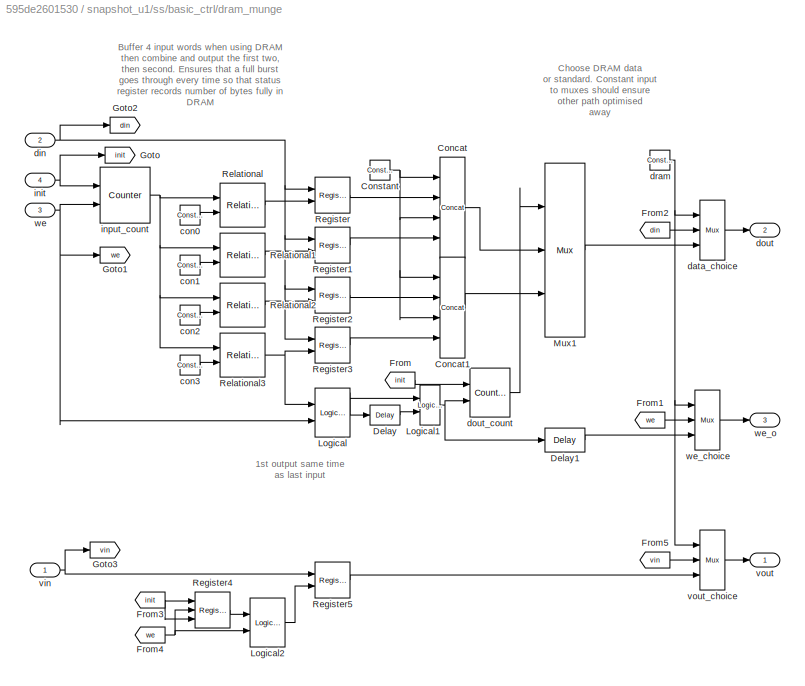
BLOCK [SubSystem] snapshot_u1/ss/basic_ctrl/dram_munge
  Ports = [4, 3]
  RequestExecContextInheritance = off
BLOCK [Reference] snapshot_u1/ss/basic_ctrl/dram_munge/Concat  REF=xbsIndex_r4/Concat
  Ports = [4, 1]
  SourceBlock = xbsIndex_r4/Concat
  SourceType = Xilinx Bus Concatenator Block
BLOCK [Reference] snapshot_u1/ss/basic_ctrl/dram_munge/Concat1  REF=xbsIndex_r4/Concat
  Ports = [4, 1]
  SourceBlock = xbsIndex_r4/Concat
  SourceType = Xilinx Bus Concatenator Block
BLOCK [Reference] snapshot_u1/ss/basic_ctrl/dram_munge/Constant  REF=xbsIndex_r4/Constant
  Ports = [0, 1]
  SourceBlock = xbsIndex_r4/Constant
  SourceType = Xilinx Constant Block Block
BLOCK [Reference] snapshot_u1/ss/basic_ctrl/dram_munge/Delay  REF=xbsIndex_r4/Delay
  Ports = [1, 1]
  SourceBlock = xbsIndex_r4/Delay
  SourceType = Xilinx Delay Block
BLOCK [Reference] snapshot_u1/ss/basic_ctrl/dram_munge/Delay1  REF=xbsIndex_r4/Delay
  Ports = [1, 1]
  SourceBlock = xbsIndex_r4/Delay
  SourceType = Xilinx Delay Block
BLOCK [From] snapshot_u1/ss/basic_ctrl/dram_munge/From
  CloseFcn = tagdialog Close
  GotoTag = init
BLOCK [From] snapshot_u1/ss/basic_ctrl/dram_munge/From1
  CloseFcn = tagdialog Close
  GotoTag = we
BLOCK [From] snapshot_u1/ss/basic_ctrl/dram_munge/From2
  CloseFcn = tagdialog Close
  GotoTag = din
BLOCK [From] snapshot_u1/ss/basic_ctrl/dram_munge/From3
  CloseFcn = tagdialog Close
  GotoTag = init
BLOCK [From] snapshot_u1/ss/basic_ctrl/dram_munge/From4
  CloseFcn = tagdialog Close
  GotoTag = we
BLOCK [From] snapshot_u1/ss/basic_ctrl/dram_munge/From5
  CloseFcn = tagdialog Close
  GotoTag = vin
BLOCK [Goto] snapshot_u1/ss/basic_ctrl/dram_munge/Goto
  GotoTag = init
BLOCK [Goto] snapshot_u1/ss/basic_ctrl/dram_munge/Goto1
  GotoTag = we
BLOCK [Goto] snapshot_u1/ss/basic_ctrl/dram_munge/Goto2
  GotoTag = din
BLOCK [Goto] snapshot_u1/ss/basic_ctrl/dram_munge/Goto3
  GotoTag = vin
BLOCK [Reference] snapshot_u1/ss/basic_ctrl/dram_munge/Logical  REF=xbsIndex_r4/Logical
  Ports = [2, 1]
  SourceBlock = xbsIndex_r4/Logical
  SourceType = Xilinx Logical Block Block
BLOCK [Reference] snapshot_u1/ss/basic_ctrl/dram_munge/Logical1  REF=xbsIndex_r4/Logical
  Ports = [2, 1]
  SourceBlock = xbsIndex_r4/Logical
  SourceType = Xilinx Logical Block Block
BLOCK [Reference] snapshot_u1/ss/basic_ctrl/dram_munge/Logical2  REF=xbsIndex_r4/Logical
  Ports = [2, 1]
  SourceBlock = xbsIndex_r4/Logical
  SourceType = Xilinx Logical Block Block
BLOCK [Reference] snapshot_u1/ss/basic_ctrl/dram_munge/Mux1  REF=xbsIndex_r4/Mux
  Ports = [3, 1]
  SourceBlock = xbsIndex_r4/Mux
  SourceType = Xilinx Bus Multiplexer Block
BLOCK [Reference] snapshot_u1/ss/basic_ctrl/dram_munge/Register  REF=xbsIndex_r4/Register
  Ports = [2, 1]
  SourceBlock = xbsIndex_r4/Register
  SourceType = Xilinx Register Block
BLOCK [Reference] snapshot_u1/ss/basic_ctrl/dram_munge/Register1  REF=xbsIndex_r4/Register
  Ports = [2, 1]
  SourceBlock = xbsIndex_r4/Register
  SourceType = Xilinx Register Block
BLOCK [Reference] snapshot_u1/ss/basic_ctrl/dram_munge/Register2  REF=xbsIndex_r4/Register
  Ports = [2, 1]
  SourceBlock = xbsIndex_r4/Register
  SourceType = Xilinx Register Block
BLOCK [Reference] snapshot_u1/ss/basic_ctrl/dram_munge/Register3  REF=xbsIndex_r4/Register
  Ports = [2, 1]
  SourceBlock = xbsIndex_r4/Register
  SourceType = Xilinx Register Block
BLOCK [Reference] snapshot_u1/ss/basic_ctrl/dram_munge/Register4  REF=xbsIndex_r4/Register
  Ports = [3, 1]
  SourceBlock = xbsIndex_r4/Register
  SourceType = Xilinx Register Block
BLOCK [Reference] snapshot_u1/ss/basic_ctrl/dram_munge/Register5  REF=xbsIndex_r4/Register
  Ports = [2, 1]
  SourceBlock = xbsIndex_r4/Register
  SourceType = Xilinx Register Block
BLOCK [Reference] snapshot_u1/ss/basic_ctrl/dram_munge/Relational  REF=xbsIndex_r4/Relational
  Ports = [2, 1]
  SourceBlock = xbsIndex_r4/Relational
  SourceType = Xilinx Arithmetic Relational Operator Block
BLOCK [Reference] snapshot_u1/ss/basic_ctrl/dram_munge/Relational1  REF=xbsIndex_r4/Relational
  Ports = [2, 1]
  SourceBlock = xbsIndex_r4/Relational
  SourceType = Xilinx Arithmetic Relational Operator Block
BLOCK [Reference] snapshot_u1/ss/basic_ctrl/dram_munge/Relational2  REF=xbsIndex_r4/Relational
  Ports = [2, 1]
  SourceBlock = xbsIndex_r4/Relational
  SourceType = Xilinx Arithmetic Relational Operator Block
BLOCK [Reference] snapshot_u1/ss/basic_ctrl/dram_munge/Relational3  REF=xbsIndex_r4/Relational
  Ports = [2, 1]
  SourceBlock = xbsIndex_r4/Relational
  SourceType = Xilinx Arithmetic Relational Operator Block
BLOCK [Reference] snapshot_u1/ss/basic_ctrl/dram_munge/con0  REF=xbsIndex_r4/Constant
  Ports = [0, 1]
  SourceBlock = xbsIndex_r4/Constant
  SourceType = Xilinx Constant Block Block
BLOCK [Reference] snapshot_u1/ss/basic_ctrl/dram_munge/con1  REF=xbsIndex_r4/Constant
  Ports = [0, 1]
  SourceBlock = xbsIndex_r4/Constant
  SourceType = Xilinx Constant Block Block
BLOCK [Reference] snapshot_u1/ss/basic_ctrl/dram_munge/con2  REF=xbsIndex_r4/Constant
  Ports = [0, 1]
  SourceBlock = xbsIndex_r4/Constant
  SourceType = Xilinx Constant Block Block
BLOCK [Reference] snapshot_u1/ss/basic_ctrl/dram_munge/con3  REF=xbsIndex_r4/Constant
  Ports = [0, 1]
  SourceBlock = xbsIndex_r4/Constant
  SourceType = Xilinx Constant Block Block
BLOCK [Reference] snapshot_u1/ss/basic_ctrl/dram_munge/data_choice  REF=xbsIndex_r4/Mux
  Ports = [3, 1]
  SourceBlock = xbsIndex_r4/Mux
  SourceType = Xilinx Bus Multiplexer Block
BLOCK [Inport] snapshot_u1/ss/basic_ctrl/dram_munge/din
  Port = 2
BLOCK [Outport] snapshot_u1/ss/basic_ctrl/dram_munge/dout
  Port = 2
  VectorParamsAs1DForOutWhenUnconnected = off
BLOCK [Reference] snapshot_u1/ss/basic_ctrl/dram_munge/dout_count  REF=xbsIndex_r4/Counter
  Ports = [2, 1]
  SourceBlock = xbsIndex_r4/Counter
  SourceType = Xilinx Counter Block
BLOCK [Reference] snapshot_u1/ss/basic_ctrl/dram_munge/dram  REF=xbsIndex_r4/Constant
  Ports = [0, 1]
  SourceBlock = xbsIndex_r4/Constant
  SourceType = Xilinx Constant Block Block
BLOCK [Inport] snapshot_u1/ss/basic_ctrl/dram_munge/init
  Port = 4
BLOCK [Reference] snapshot_u1/ss/basic_ctrl/dram_munge/input_count  REF=xbsIndex_r4/Counter
  Ports = [2, 1]
  SourceBlock = xbsIndex_r4/Counter
  SourceType = Xilinx Counter Block
BLOCK [Inport] snapshot_u1/ss/basic_ctrl/dram_munge/vin
BLOCK [Outport] snapshot_u1/ss/basic_ctrl/dram_munge/vout
  VectorParamsAs1DForOutWhenUnconnected = off
BLOCK [Reference] snapshot_u1/ss/basic_ctrl/dram_munge/vout_choice  REF=xbsIndex_r4/Mux
  Ports = [3, 1]
  SourceBlock = xbsIndex_r4/Mux
  SourceType = Xilinx Bus Multiplexer Block
BLOCK [Inport] snapshot_u1/ss/basic_ctrl/dram_munge/we
  Port = 3
BLOCK [Reference] snapshot_u1/ss/basic_ctrl/dram_munge/we_choice  REF=xbsIndex_r4/Mux
  Ports = [3, 1]
  SourceBlock = xbsIndex_r4/Mux
  SourceType = Xilinx Bus Multiplexer Block
BLOCK [Outport] snapshot_u1/ss/basic_ctrl/dram_munge/we_o
  Port = 3
  VectorParamsAs1DForOutWhenUnconnected = off
BLOCK [Reference] snapshot_u1/ss/basic_ctrl/edge_detect  REF=casper_library_misc/edge_detect  (lib defined in mdl_357510c33b49, mdl_57b5f564ae26, +4 more)
  AttributesFormatString = rising edges\nactive high
  Ports = [1, 1]
  SourceBlock = casper_library_misc/edge_detect
  SourceProductName = CASPER DSP Blockset
  SourceType = edge_detect
  UserDataPersistent = on
BLOCK [Reference] snapshot_u1/ss/basic_ctrl/enable  REF=xbsIndex_r4/Slice
  Ports = [1, 1]
  SourceBlock = xbsIndex_r4/Slice
  SourceType = Xilinx Bit Slice Extractor Block
BLOCK [Outport] snapshot_u1/ss/basic_ctrl/go
  Port = 4
  VectorParamsAs1DForOutWhenUnconnected = off
BLOCK [Outport] snapshot_u1/ss/basic_ctrl/init
  Port = 6
  VectorParamsAs1DForOutWhenUnconnected = off
BLOCK [Outport] snapshot_u1/ss/basic_ctrl/stop
  Port = 5
  VectorParamsAs1DForOutWhenUnconnected = off
BLOCK [Inport] snapshot_u1/ss/basic_ctrl/stopi
  Port = 6
BLOCK [Inport] snapshot_u1/ss/basic_ctrl/trig
  Port = 4
BLOCK [Reference] snapshot_u1/ss/basic_ctrl/trig_src  REF=xbsIndex_r4/Slice
  Ports = [1, 1]
  SourceBlock = xbsIndex_r4/Slice
  SourceType = Xilinx Bit Slice Extractor Block
BLOCK [Reference] snapshot_u1/ss/basic_ctrl/valid_src  REF=xbsIndex_r4/Slice
  Ports = [1, 1]
  SourceBlock = xbsIndex_r4/Slice
  SourceType = Xilinx Bit Slice Extractor Block
BLOCK [Inport] snapshot_u1/ss/basic_ctrl/vin
BLOCK [Outport] snapshot_u1/ss/basic_ctrl/vout
  VectorParamsAs1DForOutWhenUnconnected = off
BLOCK [Inport] snapshot_u1/ss/basic_ctrl/we
  Port = 3
BLOCK [Outport] snapshot_u1/ss/basic_ctrl/we_o
  Port = 3
  VectorParamsAs1DForOutWhenUnconnected = off
BLOCK [SubSystem] snapshot_u1/ss/bram
  AncestorBlock = xps_library/Memory/shared_bram
  Ports = [3, 1]
  RequestExecContextInheritance = off
  Tag = xps:bram
BLOCK [Terminator] snapshot_u1/ss/bram/Terminator
BLOCK [Terminator] snapshot_u1/ss/bram/Terminator1
BLOCK [Terminator] snapshot_u1/ss/bram/Terminator2
BLOCK [Inport] snapshot_u1/ss/bram/addr
BLOCK [SubSystem] snapshot_u1/ss/bram/calc_add
  Ports = [1, 1]
  RequestExecContextInheritance = off
BLOCK [Reference] snapshot_u1/ss/bram/calc_add/add_sub  REF=xbsIndex_r4/AddSub
  Ports = [2, 1]
  SourceBlock = xbsIndex_r4/AddSub
  SourceType = Xilinx Adder/Subtracter Block
BLOCK [Reference] snapshot_u1/ss/bram/calc_add/concat  REF=xbsIndex_r4/Concat
  Ports = [2, 1]
  SourceBlock = xbsIndex_r4/Concat
  SourceType = Xilinx Bus Concatenator Block
BLOCK [Reference] snapshot_u1/ss/bram/calc_add/const  REF=xbsIndex_r4/Constant
  Ports = [0, 1]
  SourceBlock = xbsIndex_r4/Constant
  SourceType = Xilinx Constant Block Block
BLOCK [Reference] snapshot_u1/ss/bram/calc_add/convert_addr  REF=xbsIndex_r4/Convert
  Ports = [1, 1]
  SourceBlock = xbsIndex_r4/Convert
  SourceType = Xilinx Type Converter Block
BLOCK [Inport] snapshot_u1/ss/bram/calc_add/in
BLOCK [Reference] snapshot_u1/ss/bram/calc_add/lsw  REF=xbsIndex_r4/Slice
  Ports = [1, 1]
  SourceBlock = xbsIndex_r4/Slice
  SourceType = Xilinx Bit Slice Extractor Block
BLOCK [Reference] snapshot_u1/ss/bram/calc_add/manipulate  REF=xbsIndex_r4/Constant
  Ports = [0, 1]
  SourceBlock = xbsIndex_r4/Constant
  SourceType = Xilinx Constant Block Block
BLOCK [Reference] snapshot_u1/ss/bram/calc_add/msw  REF=xbsIndex_r4/Slice
  Ports = [1, 1]
  SourceBlock = xbsIndex_r4/Slice
  SourceType = Xilinx Bit Slice Extractor Block
BLOCK [Reference] snapshot_u1/ss/bram/calc_add/mux  REF=xbsIndex_r4/Mux
  Ports = [3, 1]
  SourceBlock = xbsIndex_r4/Mux
  SourceType = Xilinx Bus Multiplexer Block
BLOCK [Outport] snapshot_u1/ss/bram/calc_add/out
  VectorParamsAs1DForOutWhenUnconnected = off
BLOCK [Reference] snapshot_u1/ss/bram/convert_addr  REF=xbsIndex_r4/Convert
  Ports = [1, 1]
  SourceBlock = xbsIndex_r4/Convert
  SourceType = Xilinx Type Converter Block
BLOCK [Reference] snapshot_u1/ss/bram/convert_din1  REF=xbsIndex_r4/Convert
  Ports = [1, 1]
  SourceBlock = xbsIndex_r4/Convert
  SourceType = Xilinx Type Converter Block
BLOCK [Reference] snapshot_u1/ss/bram/convert_we  REF=xbsIndex_r4/Convert
  Ports = [1, 1]
  SourceBlock = xbsIndex_r4/Convert
  SourceType = Xilinx Type Converter Block
BLOCK [Inport] snapshot_u1/ss/bram/data_in
  Port = 2
BLOCK [Outport] snapshot_u1/ss/bram/data_out
  VectorParamsAs1DForOutWhenUnconnected = off
BLOCK [SubSystem] snapshot_u1/ss/bram/munge_in
  AncestorBlock = casper_library_flow_control/munge
  AttributesFormatString = split:[32 32 32 32]\njoin:[3 2 1 0]\nUnsigned [128,0]
  Ports = [1, 1]
  RequestExecContextInheritance = off
  UserDataPersistent = on
BLOCK [Inport] snapshot_u1/ss/bram/munge_in/din
BLOCK [Outport] snapshot_u1/ss/bram/munge_in/dout
  VectorParamsAs1DForOutWhenUnconnected = off
BLOCK [SubSystem] snapshot_u1/ss/bram/munge_in/join
  AncestorBlock = casper_library_flow_control/bus_create
  Ports = [4, 1]
  RequestExecContextInheritance = off
  UserDataPersistent = on
BLOCK [Outport] snapshot_u1/ss/bram/munge_in/join/bus_out
  VectorParamsAs1DForOutWhenUnconnected = off
BLOCK [Reference] snapshot_u1/ss/bram/munge_in/join/concatenate  REF=xbsIndex_r4/Concat
  Ports = [4, 1]
  SourceBlock = xbsIndex_r4/Concat
  SourceType = Xilinx Bus Concatenator Block
BLOCK [Inport] snapshot_u1/ss/bram/munge_in/join/in1
BLOCK [Inport] snapshot_u1/ss/bram/munge_in/join/in2
  Port = 2
BLOCK [Inport] snapshot_u1/ss/bram/munge_in/join/in3
  Port = 3
BLOCK [Inport] snapshot_u1/ss/bram/munge_in/join/in4
  Port = 4
BLOCK [Reference] snapshot_u1/ss/bram/munge_in/join/reinterpret1  REF=xbsIndex_r4/Reinterpret
  Ports = [1, 1]
  SourceBlock = xbsIndex_r4/Reinterpret
  SourceType = Xilinx Type Reinterpreter Block
BLOCK [Reference] snapshot_u1/ss/bram/munge_in/join/reinterpret2  REF=xbsIndex_r4/Reinterpret
  Ports = [1, 1]
  SourceBlock = xbsIndex_r4/Reinterpret
  SourceType = Xilinx Type Reinterpreter Block
BLOCK [Reference] snapshot_u1/ss/bram/munge_in/join/reinterpret3  REF=xbsIndex_r4/Reinterpret
  Ports = [1, 1]
  SourceBlock = xbsIndex_r4/Reinterpret
  SourceType = Xilinx Type Reinterpreter Block
BLOCK [Reference] snapshot_u1/ss/bram/munge_in/join/reinterpret4  REF=xbsIndex_r4/Reinterpret
  Ports = [1, 1]
  SourceBlock = xbsIndex_r4/Reinterpret
  SourceType = Xilinx Type Reinterpreter Block
BLOCK [Reference] snapshot_u1/ss/bram/munge_in/reinterpret  REF=xbsIndex_r4/Reinterpret
  Ports = [1, 1]
  SourceBlock = xbsIndex_r4/Reinterpret
  SourceType = Xilinx Type Reinterpreter Block
BLOCK [Reference] snapshot_u1/ss/bram/munge_in/reinterpret_out  REF=xbsIndex_r4/Reinterpret
  Ports = [1, 1]
  SourceBlock = xbsIndex_r4/Reinterpret
  SourceType = Xilinx Type Reinterpreter Block
BLOCK [SubSystem] snapshot_u1/ss/bram/munge_in/split
  AncestorBlock = casper_library_flow_control/bus_expand
  AttributesFormatString = 4 outputs
  Ports = [1, 4]
  RequestExecContextInheritance = off
  UserDataPersistent = on
BLOCK [Inport] snapshot_u1/ss/bram/munge_in/split/bus_in
BLOCK [Outport] snapshot_u1/ss/bram/munge_in/split/lsb_out1
  Port = 4
  VectorParamsAs1DForOutWhenUnconnected = off
BLOCK [Outport] snapshot_u1/ss/bram/munge_in/split/msb_out4
BLOCK [Outport] snapshot_u1/ss/bram/munge_in/split/out2
  Port = 3
BLOCK [Outport] snapshot_u1/ss/bram/munge_in/split/out3
  Port = 2
BLOCK [Reference] snapshot_u1/ss/bram/munge_in/split/reinterpret1  REF=xbsIndex_r4/Reinterpret
  Ports = [1, 1]
  SourceBlock = xbsIndex_r4/Reinterpret
  SourceType = Xilinx Type Reinterpreter Block
BLOCK [Reference] snapshot_u1/ss/bram/munge_in/split/reinterpret2  REF=xbsIndex_r4/Reinterpret
  Ports = [1, 1]
  SourceBlock = xbsIndex_r4/Reinterpret
  SourceType = Xilinx Type Reinterpreter Block
BLOCK [Reference] snapshot_u1/ss/bram/munge_in/split/reinterpret3  REF=xbsIndex_r4/Reinterpret
  Ports = [1, 1]
  SourceBlock = xbsIndex_r4/Reinterpret
  SourceType = Xilinx Type Reinterpreter Block
BLOCK [Reference] snapshot_u1/ss/bram/munge_in/split/reinterpret4  REF=xbsIndex_r4/Reinterpret
  Ports = [1, 1]
  SourceBlock = xbsIndex_r4/Reinterpret
  SourceType = Xilinx Type Reinterpreter Block
BLOCK [Reference] snapshot_u1/ss/bram/munge_in/split/slice1  REF=xbsIndex_r4/Slice
  Ports = [1, 1]
  SourceBlock = xbsIndex_r4/Slice
  SourceType = Xilinx Bit Slice Extractor Block
BLOCK [Reference] snapshot_u1/ss/bram/munge_in/split/slice2  REF=xbsIndex_r4/Slice
  Ports = [1, 1]
  SourceBlock = xbsIndex_r4/Slice
  SourceType = Xilinx Bit Slice Extractor Block
BLOCK [Reference] snapshot_u1/ss/bram/munge_in/split/slice3  REF=xbsIndex_r4/Slice
  Ports = [1, 1]
  SourceBlock = xbsIndex_r4/Slice
  SourceType = Xilinx Bit Slice Extractor Block
BLOCK [Reference] snapshot_u1/ss/bram/munge_in/split/slice4  REF=xbsIndex_r4/Slice
  Ports = [1, 1]
  SourceBlock = xbsIndex_r4/Slice
  SourceType = Xilinx Bit Slice Extractor Block
BLOCK [SubSystem] snapshot_u1/ss/bram/munge_out
  AncestorBlock = casper_library_flow_control/munge
  AttributesFormatString = split:[32 32 32 32]\njoin:[3 2 1 0]\nUnsigned [128,0]
  Ports = [1, 1]
  RequestExecContextInheritance = off
  UserDataPersistent = on
BLOCK [Inport] snapshot_u1/ss/bram/munge_out/din
BLOCK [Outport] snapshot_u1/ss/bram/munge_out/dout
  VectorParamsAs1DForOutWhenUnconnected = off
BLOCK [SubSystem] snapshot_u1/ss/bram/munge_out/join
  AncestorBlock = casper_library_flow_control/bus_create
  Ports = [4, 1]
  RequestExecContextInheritance = off
  UserDataPersistent = on
BLOCK [Outport] snapshot_u1/ss/bram/munge_out/join/bus_out
  VectorParamsAs1DForOutWhenUnconnected = off
BLOCK [Reference] snapshot_u1/ss/bram/munge_out/join/concatenate  REF=xbsIndex_r4/Concat
  Ports = [4, 1]
  SourceBlock = xbsIndex_r4/Concat
  SourceType = Xilinx Bus Concatenator Block
BLOCK [Inport] snapshot_u1/ss/bram/munge_out/join/in1
BLOCK [Inport] snapshot_u1/ss/bram/munge_out/join/in2
  Port = 2
BLOCK [Inport] snapshot_u1/ss/bram/munge_out/join/in3
  Port = 3
BLOCK [Inport] snapshot_u1/ss/bram/munge_out/join/in4
  Port = 4
BLOCK [Reference] snapshot_u1/ss/bram/munge_out/join/reinterpret1  REF=xbsIndex_r4/Reinterpret
  Ports = [1, 1]
  SourceBlock = xbsIndex_r4/Reinterpret
  SourceType = Xilinx Type Reinterpreter Block
BLOCK [Reference] snapshot_u1/ss/bram/munge_out/join/reinterpret2  REF=xbsIndex_r4/Reinterpret
  Ports = [1, 1]
  SourceBlock = xbsIndex_r4/Reinterpret
  SourceType = Xilinx Type Reinterpreter Block
BLOCK [Reference] snapshot_u1/ss/bram/munge_out/join/reinterpret3  REF=xbsIndex_r4/Reinterpret
  Ports = [1, 1]
  SourceBlock = xbsIndex_r4/Reinterpret
  SourceType = Xilinx Type Reinterpreter Block
BLOCK [Reference] snapshot_u1/ss/bram/munge_out/join/reinterpret4  REF=xbsIndex_r4/Reinterpret
  Ports = [1, 1]
  SourceBlock = xbsIndex_r4/Reinterpret
  SourceType = Xilinx Type Reinterpreter Block
BLOCK [Reference] snapshot_u1/ss/bram/munge_out/reinterpret  REF=xbsIndex_r4/Reinterpret
  Ports = [1, 1]
  SourceBlock = xbsIndex_r4/Reinterpret
  SourceType = Xilinx Type Reinterpreter Block
BLOCK [Reference] snapshot_u1/ss/bram/munge_out/reinterpret_out  REF=xbsIndex_r4/Reinterpret
  Ports = [1, 1]
  SourceBlock = xbsIndex_r4/Reinterpret
  SourceType = Xilinx Type Reinterpreter Block
BLOCK [SubSystem] snapshot_u1/ss/bram/munge_out/split
  AncestorBlock = casper_library_flow_control/bus_expand
  AttributesFormatString = 4 outputs
  Ports = [1, 4]
  RequestExecContextInheritance = off
  UserDataPersistent = on
BLOCK [Inport] snapshot_u1/ss/bram/munge_out/split/bus_in
BLOCK [Outport] snapshot_u1/ss/bram/munge_out/split/lsb_out1
  Port = 4
  VectorParamsAs1DForOutWhenUnconnected = off
BLOCK [Outport] snapshot_u1/ss/bram/munge_out/split/msb_out4
BLOCK [Outport] snapshot_u1/ss/bram/munge_out/split/out2
  Port = 3
BLOCK [Outport] snapshot_u1/ss/bram/munge_out/split/out3
  Port = 2
BLOCK [Reference] snapshot_u1/ss/bram/munge_out/split/reinterpret1  REF=xbsIndex_r4/Reinterpret
  Ports = [1, 1]
  SourceBlock = xbsIndex_r4/Reinterpret
  SourceType = Xilinx Type Reinterpreter Block
BLOCK [Reference] snapshot_u1/ss/bram/munge_out/split/reinterpret2  REF=xbsIndex_r4/Reinterpret
  Ports = [1, 1]
  SourceBlock = xbsIndex_r4/Reinterpret
  SourceType = Xilinx Type Reinterpreter Block
BLOCK [Reference] snapshot_u1/ss/bram/munge_out/split/reinterpret3  REF=xbsIndex_r4/Reinterpret
  Ports = [1, 1]
  SourceBlock = xbsIndex_r4/Reinterpret
  SourceType = Xilinx Type Reinterpreter Block
BLOCK [Reference] snapshot_u1/ss/bram/munge_out/split/reinterpret4  REF=xbsIndex_r4/Reinterpret
  Ports = [1, 1]
  SourceBlock = xbsIndex_r4/Reinterpret
  SourceType = Xilinx Type Reinterpreter Block
BLOCK [Reference] snapshot_u1/ss/bram/munge_out/split/slice1  REF=xbsIndex_r4/Slice
  Ports = [1, 1]
  SourceBlock = xbsIndex_r4/Slice
  SourceType = Xilinx Bit Slice Extractor Block
BLOCK [Reference] snapshot_u1/ss/bram/munge_out/split/slice2  REF=xbsIndex_r4/Slice
  Ports = [1, 1]
  SourceBlock = xbsIndex_r4/Slice
  SourceType = Xilinx Bit Slice Extractor Block
BLOCK [Reference] snapshot_u1/ss/bram/munge_out/split/slice3  REF=xbsIndex_r4/Slice
  Ports = [1, 1]
  SourceBlock = xbsIndex_r4/Slice
  SourceType = Xilinx Bit Slice Extractor Block
BLOCK [Reference] snapshot_u1/ss/bram/munge_out/split/slice4  REF=xbsIndex_r4/Slice
  Ports = [1, 1]
  SourceBlock = xbsIndex_r4/Slice
  SourceType = Xilinx Bit Slice Extractor Block
BLOCK [Reference] snapshot_u1/ss/bram/rfdc_awg_snapshot_u1_ss_bram_addr  REF=xbsIndex_r4/Gateway Out
  Ports = [1, 1]
  SourceBlock = xbsIndex_r4/Gateway Out
  SourceType = Xilinx Gateway Out Block
BLOCK [Reference] snapshot_u1/ss/bram/rfdc_awg_snapshot_u1_ss_bram_data_in  REF=xbsIndex_r4/Gateway Out
  Ports = [1, 1]
  SourceBlock = xbsIndex_r4/Gateway Out
  SourceType = Xilinx Gateway Out Block
BLOCK [Reference] snapshot_u1/ss/bram/rfdc_awg_snapshot_u1_ss_bram_data_out  REF=xbsIndex_r4/Gateway In
  Ports = [1, 1]
  SourceBlock = xbsIndex_r4/Gateway In
  SourceType = Xilinx Gateway In Block
BLOCK [Reference] snapshot_u1/ss/bram/rfdc_awg_snapshot_u1_ss_bram_we  REF=xbsIndex_r4/Gateway Out
  Ports = [1, 1]
  SourceBlock = xbsIndex_r4/Gateway Out
  SourceType = Xilinx Gateway Out Block
BLOCK [SubSystem] snapshot_u1/ss/bram/sim_mem
  Ports = [3, 1]
  RequestExecContextInheritance = off
BLOCK [DataTypeConversion] snapshot_u1/ss/bram/sim_mem/Data Type Conversion
  OutDataTypeStr = single
  RndMeth = Floor
  SaturateOnIntegerOverflow = off
BLOCK [DataTypeConversion] snapshot_u1/ss/bram/sim_mem/Data Type Conversion1
  OutDataTypeStr = double
  RndMeth = Floor
  SaturateOnIntegerOverflow = off
BLOCK [DataTypeConversion] snapshot_u1/ss/bram/sim_mem/Data Type Conversion2
  OutDataTypeStr = boolean
  RndMeth = Floor
  SaturateOnIntegerOverflow = off
BLOCK [Inport] snapshot_u1/ss/bram/sim_mem/addr
BLOCK [Inport] snapshot_u1/ss/bram/sim_mem/data
  Port = 2
BLOCK [Outport] snapshot_u1/ss/bram/sim_mem/data_out
  VectorParamsAs1DForOutWhenUnconnected = off
BLOCK [M-S-Function] snapshot_u1/ss/bram/sim_mem/sfunc
  FunctionName = shared_bram_sim_sfunc
  Parameters = depth_bits, latency, init_vals
  Ports = [3, 1]
BLOCK [Reference] snapshot_u1/ss/bram/sim_mem/sim_addr  REF=xbsIndex_r4/Gateway Out
  Ports = [1, 1]
  SourceBlock = xbsIndex_r4/Gateway Out
  SourceType = Xilinx Gateway Out Block
BLOCK [Reference] snapshot_u1/ss/bram/sim_mem/sim_data  REF=xbsIndex_r4/Gateway Out
  Ports = [1, 1]
  SourceBlock = xbsIndex_r4/Gateway Out
  SourceType = Xilinx Gateway Out Block
BLOCK [Reference] snapshot_u1/ss/bram/sim_mem/sim_we  REF=xbsIndex_r4/Gateway Out
  Ports = [1, 1]
  SourceBlock = xbsIndex_r4/Gateway Out
  SourceType = Xilinx Gateway Out Block
BLOCK [Inport] snapshot_u1/ss/bram/sim_mem/we
  Port = 3
BLOCK [Inport] snapshot_u1/ss/bram/we
  Port = 3
BLOCK [Reference] snapshot_u1/ss/cast  REF=xbsIndex_r4/Convert
  Ports = [1, 1]
  SourceBlock = xbsIndex_r4/Convert
  SourceType = Xilinx Type Converter Block
BLOCK [Reference] snapshot_u1/ss/circ  REF=xbsIndex_r4/Constant
  Ports = [0, 1]
  SourceBlock = xbsIndex_r4/Constant
  SourceType = Xilinx Constant Block Block
BLOCK [Reference] snapshot_u1/ss/circ_or  REF=xbsIndex_r4/Logical
  Ports = [2, 1]
  SourceBlock = xbsIndex_r4/Logical
  SourceType = Xilinx Logical Block Block
BLOCK [SubSystem] snapshot_u1/ss/ctrl
  AncestorBlock = xps_library/Memory/software_register
  AttributesFormatString = 1input:uf32.0 = 32 bits
  Ports = [0, 1]
  RequestExecContextInheritance = off
  Tag = xps:sw_reg
BLOCK [DataTypeConversion] snapshot_u1/ss/ctrl/convert1_1
  LockScale = on
  OutDataTypeStr = fixdt('ufix32_En0')
  RndMeth = Floor
  SaturateOnIntegerOverflow = off
BLOCK [DataTypeConversion] snapshot_u1/ss/ctrl/convert2_1
  ConvertRealWorld = Stored Integer (SI)
  LockScale = on
  OutDataTypeStr = fixdt('ufix32_En0')
  RndMeth = Floor
  SaturateOnIntegerOverflow = off
BLOCK [Gain] snapshot_u1/ss/ctrl/gain_1
  OutDataTypeStr = fixdt('ufix32_En0')
BLOCK [Outport] snapshot_u1/ss/ctrl/in_reg
  VectorParamsAs1DForOutWhenUnconnected = off
BLOCK [Reference] snapshot_u1/ss/ctrl/io_delay  REF=xbsIndex_r4/Delay
  Ports = [1, 1]
  SourceBlock = xbsIndex_r4/Delay
  SourceType = Xilinx Delay Block
BLOCK [Reference] snapshot_u1/ss/ctrl/reint1  REF=xbsIndex_r4/Reinterpret
  Ports = [1, 1]
  SourceBlock = xbsIndex_r4/Reinterpret
  SourceType = Xilinx Type Reinterpreter Block
BLOCK [Reference] snapshot_u1/ss/ctrl/rfdc_awg_snapshot_u1_ss_ctrl_user_data_out  REF=xbsIndex_r4/Gateway In
  Ports = [1, 1]
  SourceBlock = xbsIndex_r4/Gateway In
  SourceType = Xilinx Gateway In Block
BLOCK [Constant] snapshot_u1/ss/ctrl/sim_1
  Value = 0
BLOCK [Reference] snapshot_u1/ss/ctrl/slice_reg  REF=xbsIndex_r4/Slice
  Ports = [1, 1]
  SourceBlock = xbsIndex_r4/Slice
  SourceType = Xilinx Bit Slice Extractor Block
BLOCK [SubSystem] snapshot_u1/ss/ctrl_combine
  AncestorBlock = casper_library_flow_control/bus_create
  Ports = [4, 1]
  RequestExecContextInheritance = off
  UserDataPersistent = on
BLOCK [Outport] snapshot_u1/ss/ctrl_combine/bus_out
  VectorParamsAs1DForOutWhenUnconnected = off
BLOCK [Reference] snapshot_u1/ss/ctrl_combine/concatenate  REF=xbsIndex_r4/Concat
  Ports = [4, 1]
  SourceBlock = xbsIndex_r4/Concat
  SourceType = Xilinx Bus Concatenator Block
BLOCK [Inport] snapshot_u1/ss/ctrl_combine/in1
BLOCK [Inport] snapshot_u1/ss/ctrl_combine/in2
  Port = 2
BLOCK [Inport] snapshot_u1/ss/ctrl_combine/in3
  Port = 3
BLOCK [Inport] snapshot_u1/ss/ctrl_combine/in4
  Port = 4
BLOCK [Reference] snapshot_u1/ss/ctrl_combine/reinterpret1  REF=xbsIndex_r4/Reinterpret
  Ports = [1, 1]
  SourceBlock = xbsIndex_r4/Reinterpret
  SourceType = Xilinx Type Reinterpreter Block
BLOCK [Reference] snapshot_u1/ss/ctrl_combine/reinterpret2  REF=xbsIndex_r4/Reinterpret
  Ports = [1, 1]
  SourceBlock = xbsIndex_r4/Reinterpret
  SourceType = Xilinx Type Reinterpreter Block
BLOCK [Reference] snapshot_u1/ss/ctrl_combine/reinterpret3  REF=xbsIndex_r4/Reinterpret
  Ports = [1, 1]
  SourceBlock = xbsIndex_r4/Reinterpret
  SourceType = Xilinx Type Reinterpreter Block
BLOCK [Reference] snapshot_u1/ss/ctrl_combine/reinterpret4  REF=xbsIndex_r4/Reinterpret
  Ports = [1, 1]
  SourceBlock = xbsIndex_r4/Reinterpret
  SourceType = Xilinx Type Reinterpreter Block
BLOCK [SubSystem] snapshot_u1/ss/ctrl_split
  AncestorBlock = casper_library_flow_control/bus_expand
  AttributesFormatString = 4 outputs: uf28.0,b,uf2.0,b,
  Ports = [1, 4]
  RequestExecContextInheritance = off
  UserDataPersistent = on
BLOCK [Inport] snapshot_u1/ss/ctrl_split/bus_in
BLOCK [Outport] snapshot_u1/ss/ctrl_split/lsb_out1
  Port = 4
  VectorParamsAs1DForOutWhenUnconnected = off
BLOCK [Outport] snapshot_u1/ss/ctrl_split/msb_out4
  VectorParamsAs1DForOutWhenUnconnected = off
BLOCK [Outport] snapshot_u1/ss/ctrl_split/out2
  Port = 3
  VectorParamsAs1DForOutWhenUnconnected = off
BLOCK [Outport] snapshot_u1/ss/ctrl_split/out3
  Port = 2
  VectorParamsAs1DForOutWhenUnconnected = off
BLOCK [Reference] snapshot_u1/ss/ctrl_split/reinterpret2  REF=xbsIndex_r4/Reinterpret
  Ports = [1, 1]
  SourceBlock = xbsIndex_r4/Reinterpret
  SourceType = Xilinx Type Reinterpreter Block
BLOCK [Reference] snapshot_u1/ss/ctrl_split/reinterpret4  REF=xbsIndex_r4/Reinterpret
  Ports = [1, 1]
  SourceBlock = xbsIndex_r4/Reinterpret
  SourceType = Xilinx Type Reinterpreter Block
BLOCK [Reference] snapshot_u1/ss/ctrl_split/slice1  REF=xbsIndex_r4/Slice
  Ports = [1, 1]
  SourceBlock = xbsIndex_r4/Slice
  SourceType = Xilinx Bit Slice Extractor Block
BLOCK [Reference] snapshot_u1/ss/ctrl_split/slice2  REF=xbsIndex_r4/Slice
  Ports = [1, 1]
  SourceBlock = xbsIndex_r4/Slice
  SourceType = Xilinx Bit Slice Extractor Block
BLOCK [Reference] snapshot_u1/ss/ctrl_split/slice3  REF=xbsIndex_r4/Slice
  Ports = [1, 1]
  SourceBlock = xbsIndex_r4/Slice
  SourceType = Xilinx Bit Slice Extractor Block
BLOCK [Reference] snapshot_u1/ss/ctrl_split/slice4  REF=xbsIndex_r4/Slice
  Ports = [1, 1]
  SourceBlock = xbsIndex_r4/Slice
  SourceType = Xilinx Bit Slice Extractor Block
BLOCK [Reference] snapshot_u1/ss/dat_del  REF=xbsIndex_r4/Delay
  Ports = [1, 1]
  SourceBlock = xbsIndex_r4/Delay
  SourceType = Xilinx Delay Block
BLOCK [Inport] snapshot_u1/ss/din
BLOCK [Terminator] snapshot_u1/ss/g_tr_en_cnt
BLOCK [Terminator] snapshot_u1/ss/gbram
BLOCK [Goto] snapshot_u1/ss/goto_ss_we1
  GotoTag = goto_89627792_we1
  TagVisibility = global
BLOCK [Goto] snapshot_u1/ss/goto_ss_we2
  GotoTag = goto_89627792_we2
  TagVisibility = global
BLOCK [Reference] snapshot_u1/ss/goto_ss_we2_const  REF=xbsIndex_r4/Constant
  Ports = [0, 1]
  SourceBlock = xbsIndex_r4/Constant
  SourceType = Xilinx Constant Block Block
BLOCK [Goto] snapshot_u1/ss/goto_ss_we3
  GotoTag = goto_89627792_we3
  TagVisibility = global
BLOCK [Reference] snapshot_u1/ss/goto_ss_we3_const  REF=xbsIndex_r4/Constant
  Ports = [0, 1]
  SourceBlock = xbsIndex_r4/Constant
  SourceType = Xilinx Constant Block Block
BLOCK [Goto] snapshot_u1/ss/goto_ss_we4
  GotoTag = goto_89627792_we4
  TagVisibility = global
BLOCK [Terminator] snapshot_u1/ss/gval
BLOCK [Reference] snapshot_u1/ss/never  REF=xbsIndex_r4/Constant
  Ports = [0, 1]
  SourceBlock = xbsIndex_r4/Constant
  SourceType = Xilinx Constant Block Block
BLOCK [Reference] snapshot_u1/ss/ri  REF=xbsIndex_r4/Reinterpret
  Ports = [1, 1]
  SourceBlock = xbsIndex_r4/Reinterpret
  SourceType = Xilinx Type Reinterpreter Block
BLOCK [SubSystem] snapshot_u1/ss/status
  AncestorBlock = xps_library/Memory/software_register
  AttributesFormatString = 1output:uf32.0 = 32 bits
  Ports = [1]
  RequestExecContextInheritance = off
  Tag = xps:sw_reg
BLOCK [Reference] snapshot_u1/ss/status/assert_reg  REF=xbsIndex_r4/Assert
  Ports = [1, 1]
  SourceBlock = xbsIndex_r4/Assert
  SourceType = Xilinx Assert Block
BLOCK [Reference] snapshot_u1/ss/status/cast_gw  REF=xbsIndex_r4/Convert
  Ports = [1, 1]
  SourceBlock = xbsIndex_r4/Convert
  SourceType = Xilinx Type Converter Block
BLOCK [Reference] snapshot_u1/ss/status/io_delay  REF=xbsIndex_r4/Delay
  Ports = [1, 1]
  SourceBlock = xbsIndex_r4/Delay
  SourceType = Xilinx Delay Block
BLOCK [Inport] snapshot_u1/ss/status/out_reg
BLOCK [Reference] snapshot_u1/ss/status/reint1  REF=xbsIndex_r4/Reinterpret
  Ports = [1, 1]
  SourceBlock = xbsIndex_r4/Reinterpret
  SourceType = Xilinx Type Reinterpreter Block
BLOCK [Reference] snapshot_u1/ss/status/rfdc_awg_snapshot_u1_ss_status_user_data_in  REF=xbsIndex_r4/Gateway Out
  Ports = [1, 1]
  SourceBlock = xbsIndex_r4/Gateway Out
  SourceType = Xilinx Gateway Out Block
BLOCK [Terminator] snapshot_u1/ss/status/sim_out
BLOCK [Inport] snapshot_u1/ss/trig
  Port = 3
BLOCK [Reference] snapshot_u1/ss/vin_const  REF=xbsIndex_r4/Constant
  Ports = [0, 1]
  SourceBlock = xbsIndex_r4/Constant
  SourceType = Xilinx Constant Block Block
BLOCK [Inport] snapshot_u1/ss/we
  Port = 2
BLOCK [Reference] snapshot_u1/ss/we_del  REF=xbsIndex_r4/Delay
  Ports = [1, 1]
  SourceBlock = xbsIndex_r4/Delay
  SourceType = Xilinx Delay Block
BLOCK [Inport] snapshot_u1/trig
  Port = 3
BLOCK [SubSystem] snapshot_u1/trig_delay
  AncestorBlock = casper_library_delays/pipeline
  AttributesFormatString = Latency = %<latency>
  Ports = [1, 1]
  RequestExecContextInheritance = off
  UserDataPersistent = on
BLOCK [Reference] snapshot_u1/trig_delay/Register0  REF=xbsIndex_r4/Register
  Ports = [1, 1]
  SourceBlock = xbsIndex_r4/Register
  SourceType = Xilinx Register Block
BLOCK [Reference] snapshot_u1/trig_delay/Register1  REF=xbsIndex_r4/Register
  Ports = [1, 1]
  SourceBlock = xbsIndex_r4/Register
  SourceType = Xilinx Register Block
BLOCK [Inport] snapshot_u1/trig_delay/d
BLOCK [Outport] snapshot_u1/trig_delay/q
  VectorParamsAs1DForOutWhenUnconnected = off
BLOCK [Inport] snapshot_u1/we
  Port = 2
BLOCK [SubSystem] snapshot_u1/we_delay
  AncestorBlock = casper_library_delays/pipeline
  AttributesFormatString = Latency = %<latency>
  Ports = [1, 1]
  RequestExecContextInheritance = off
  UserDataPersistent = on
BLOCK [Reference] snapshot_u1/we_delay/Register0  REF=xbsIndex_r4/Register
  Ports = [1, 1]
  SourceBlock = xbsIndex_r4/Register
  SourceType = Xilinx Register Block
BLOCK [Reference] snapshot_u1/we_delay/Register1  REF=xbsIndex_r4/Register
  Ports = [1, 1]
  SourceBlock = xbsIndex_r4/Register
  SourceType = Xilinx Register Block
BLOCK [Inport] snapshot_u1/we_delay/d
BLOCK [Outport] snapshot_u1/we_delay/q
  VectorParamsAs1DForOutWhenUnconnected = off
BLOCK [SubSystem] snapshot_u2
  AncestorBlock = casper_library_scopes/bitfield_snapshot
  AttributesFormatString = snap(1):uf128.0 = 128 bits\n128 wide, 16384 deep\ndebugID: 89657583
  Ports = [3, 1]
  RequestExecContextInheritance = off
  Tag = casper:bitsnap
  UserDataPersistent = on
BLOCK [Outport] snapshot_u2/arm_out
  VectorParamsAs1DForOutWhenUnconnected = off
BLOCK [Reference] snapshot_u2/assert_u2  REF=xbsIndex_r4/Assert
  Ports = [1, 1]
  SourceBlock = xbsIndex_r4/Assert
  SourceType = Xilinx Assert Block
BLOCK [SubSystem] snapshot_u2/buscreate
  AncestorBlock = casper_library_flow_control/bus_create
  Ports = [1, 1]
  RequestExecContextInheritance = off
  UserDataPersistent = on
BLOCK [Outport] snapshot_u2/buscreate/bus_out
  VectorParamsAs1DForOutWhenUnconnected = off
BLOCK [Inport] snapshot_u2/buscreate/in1
BLOCK [Reference] snapshot_u2/buscreate/reinterpret1  REF=xbsIndex_r4/Reinterpret
  Ports = [1, 1]
  SourceBlock = xbsIndex_r4/Reinterpret
  SourceType = Xilinx Type Reinterpreter Block
BLOCK [Inport] snapshot_u2/in_u2
BLOCK [SubSystem] snapshot_u2/io_delay
  AncestorBlock = casper_library_delays/pipeline
  AttributesFormatString = Latency = %<latency>
  Ports = [1, 1]
  RequestExecContextInheritance = off
  UserDataPersistent = on
BLOCK [Reference] snapshot_u2/io_delay/Register0  REF=xbsIndex_r4/Register
  Ports = [1, 1]
  SourceBlock = xbsIndex_r4/Register
  SourceType = Xilinx Register Block
BLOCK [Reference] snapshot_u2/io_delay/Register1  REF=xbsIndex_r4/Register
  Ports = [1, 1]
  SourceBlock = xbsIndex_r4/Register
  SourceType = Xilinx Register Block
BLOCK [Inport] snapshot_u2/io_delay/d
BLOCK [Outport] snapshot_u2/io_delay/q
  VectorParamsAs1DForOutWhenUnconnected = off
BLOCK [SubSystem] snapshot_u2/ss
  AncestorBlock = casper_library_scopes/snapshot
  AttributesFormatString = 128 wide, 16384 deep\ndebugID: 89657583
  Ports = [3, 1]
  RequestExecContextInheritance = off
  Tag = casper:snapshot
  UserDataPersistent = on
BLOCK [Reference] snapshot_u2/ss/add_del  REF=xbsIndex_r4/Delay
  Ports = [1, 1]
  SourceBlock = xbsIndex_r4/Delay
  SourceType = Xilinx Delay Block
BLOCK [SubSystem] snapshot_u2/ss/add_gen
  AncestorBlock = casper_library_scopes/snapshot/add_gen
  Ports = [6, 7]
  RequestExecContextInheritance = off
BLOCK [Reference] snapshot_u2/ss/add_gen/Concat  REF=xbsIndex_r4/Concat
  Ports = [3, 1]
  SourceBlock = xbsIndex_r4/Concat
  SourceType = Xilinx Bus Concatenator Block
BLOCK [Reference] snapshot_u2/ss/add_gen/Convert  REF=xbsIndex_r4/Convert
  Ports = [1, 1]
  SourceBlock = xbsIndex_r4/Convert
  SourceType = Xilinx Type Converter Block
BLOCK [Reference] snapshot_u2/ss/add_gen/Delay  REF=xbsIndex_r4/Delay
  Ports = [1, 1]
  SourceBlock = xbsIndex_r4/Delay
  SourceType = Xilinx Delay Block
BLOCK [Reference] snapshot_u2/ss/add_gen/Delay1  REF=xbsIndex_r4/Delay
  Ports = [1, 1]
  SourceBlock = xbsIndex_r4/Delay
  SourceType = Xilinx Delay Block
BLOCK [Reference] snapshot_u2/ss/add_gen/Delay2  REF=xbsIndex_r4/Delay
  Ports = [1, 1]
  SourceBlock = xbsIndex_r4/Delay
  SourceType = Xilinx Delay Block
BLOCK [Reference] snapshot_u2/ss/add_gen/Delay3  REF=xbsIndex_r4/Delay
  Ports = [1, 1]
  SourceBlock = xbsIndex_r4/Delay
  SourceType = Xilinx Delay Block
BLOCK [Reference] snapshot_u2/ss/add_gen/Delay4  REF=xbsIndex_r4/Delay
  Ports = [1, 1]
  SourceBlock = xbsIndex_r4/Delay
  SourceType = Xilinx Delay Block
BLOCK [Reference] snapshot_u2/ss/add_gen/Delay5  REF=xbsIndex_r4/Delay
  Ports = [1, 1]
  SourceBlock = xbsIndex_r4/Delay
  SourceType = Xilinx Delay Block
BLOCK [Reference] snapshot_u2/ss/add_gen/Delay6  REF=xbsIndex_r4/Delay
  Ports = [1, 1]
  SourceBlock = xbsIndex_r4/Delay
  SourceType = Xilinx Delay Block
BLOCK [Reference] snapshot_u2/ss/add_gen/Delay7  REF=xbsIndex_r4/Delay
  Ports = [1, 1]
  SourceBlock = xbsIndex_r4/Delay
  SourceType = Xilinx Delay Block
BLOCK [Reference] snapshot_u2/ss/add_gen/Inverter  REF=xbsIndex_r4/Inverter
  Ports = [1, 1]
  SourceBlock = xbsIndex_r4/Inverter
  SourceType = Xilinx Inverter Block
BLOCK [Reference] snapshot_u2/ss/add_gen/Inverter1  REF=xbsIndex_r4/Inverter
  Ports = [1, 1]
  SourceBlock = xbsIndex_r4/Inverter
  SourceType = Xilinx Inverter Block
BLOCK [Reference] snapshot_u2/ss/add_gen/Logical1  REF=xbsIndex_r4/Logical
  Ports = [2, 1]
  SourceBlock = xbsIndex_r4/Logical
  SourceType = Xilinx Logical Block Block
BLOCK [Reference] snapshot_u2/ss/add_gen/Logical2  REF=xbsIndex_r4/Logical
  Ports = [2, 1]
  SourceBlock = xbsIndex_r4/Logical
  SourceType = Xilinx Logical Block Block
BLOCK [Reference] snapshot_u2/ss/add_gen/Logical4  REF=xbsIndex_r4/Logical
  Ports = [2, 1]
  SourceBlock = xbsIndex_r4/Logical
  SourceType = Xilinx Logical Block Block
BLOCK [Reference] snapshot_u2/ss/add_gen/Logical6  REF=xbsIndex_r4/Logical
  Ports = [3, 1]
  SourceBlock = xbsIndex_r4/Logical
  SourceType = Xilinx Logical Block Block
BLOCK [Reference] snapshot_u2/ss/add_gen/Register3  REF=xbsIndex_r4/Register
  Ports = [3, 1]
  SourceBlock = xbsIndex_r4/Register
  SourceType = Xilinx Register Block
BLOCK [Reference] snapshot_u2/ss/add_gen/Register4  REF=xbsIndex_r4/Register
  Ports = [2, 1]
  SourceBlock = xbsIndex_r4/Register
  SourceType = Xilinx Register Block
BLOCK [Reference] snapshot_u2/ss/add_gen/Register5  REF=xbsIndex_r4/Register
  Ports = [3, 1]
  SourceBlock = xbsIndex_r4/Register
  SourceType = Xilinx Register Block
BLOCK [Reference] snapshot_u2/ss/add_gen/Shift  REF=xbsIndex_r4/Shift
  Ports = [1, 1]
  SourceBlock = xbsIndex_r4/Shift
  SourceType = Xilinx Binary Shift Operator Block
BLOCK [Outport] snapshot_u2/ss/add_gen/add
  Port = 2
  VectorParamsAs1DForOutWhenUnconnected = off
BLOCK [Reference] snapshot_u2/ss/add_gen/add_gen  REF=xbsIndex_r4/Counter
  Ports = [2, 1]
  SourceBlock = xbsIndex_r4/Counter
  SourceType = Xilinx Counter Block
BLOCK [Inport] snapshot_u2/ss/add_gen/cont
  Port = 5
BLOCK [Inport] snapshot_u2/ss/add_gen/din
  Port = 2
BLOCK [Outport] snapshot_u2/ss/add_gen/done
  Port = 7
  VectorParamsAs1DForOutWhenUnconnected = off
BLOCK [Outport] snapshot_u2/ss/add_gen/dout
  Port = 3
  VectorParamsAs1DForOutWhenUnconnected = off
BLOCK [SubSystem] snapshot_u2/ss/add_gen/edge_detect
  AncestorBlock = casper_library_misc/edge_detect
  AttributesFormatString = both edges\nactive high
  Ports = [1, 1]
  RequestExecContextInheritance = off
  UserDataPersistent = on
BLOCK [Reference] snapshot_u2/ss/add_gen/edge_detect/Delay  REF=xbsIndex_r4/Delay
  Ports = [1, 1]
  SourceBlock = xbsIndex_r4/Delay
  SourceType = Xilinx Delay Block
BLOCK [Reference] snapshot_u2/ss/add_gen/edge_detect/Inverter  REF=xbsIndex_r4/Inverter
  Ports = [1, 1]
  SourceBlock = xbsIndex_r4/Inverter
  SourceType = Xilinx Inverter Block
BLOCK [Reference] snapshot_u2/ss/add_gen/edge_detect/edge_op  REF=xbsIndex_r4/Logical
  Ports = [2, 1]
  SourceBlock = xbsIndex_r4/Logical
  SourceType = Xilinx Logical Block Block
BLOCK [Inport] snapshot_u2/ss/add_gen/edge_detect/in
BLOCK [Outport] snapshot_u2/ss/add_gen/edge_detect/out
  VectorParamsAs1DForOutWhenUnconnected = off
BLOCK [SubSystem] snapshot_u2/ss/add_gen/edge_detect1
  AncestorBlock = casper_library_scopes/snapshot/add_gen/edge_detect
  AttributesFormatString = both edges\nactive high
  Ports = [1, 1]
  RequestExecContextInheritance = off
  UserDataPersistent = on
BLOCK [Reference] snapshot_u2/ss/add_gen/edge_detect1/Delay  REF=xbsIndex_r4/Delay
  Ports = [1, 1]
  SourceBlock = xbsIndex_r4/Delay
  SourceType = Xilinx Delay Block
BLOCK [Reference] snapshot_u2/ss/add_gen/edge_detect1/Inverter  REF=xbsIndex_r4/Inverter
  Ports = [1, 1]
  SourceBlock = xbsIndex_r4/Inverter
  SourceType = Xilinx Inverter Block
BLOCK [Reference] snapshot_u2/ss/add_gen/edge_detect1/edge_op  REF=xbsIndex_r4/Logical
  Ports = [2, 1]
  SourceBlock = xbsIndex_r4/Logical
  SourceType = Xilinx Logical Block Block
BLOCK [Inport] snapshot_u2/ss/add_gen/edge_detect1/in
BLOCK [Outport] snapshot_u2/ss/add_gen/edge_detect1/out
  VectorParamsAs1DForOutWhenUnconnected = off
BLOCK [Outport] snapshot_u2/ss/add_gen/en_cnt
  Port = 6
  VectorParamsAs1DForOutWhenUnconnected = off
BLOCK [Inport] snapshot_u2/ss/add_gen/go
  Port = 4
BLOCK [Inport] snapshot_u2/ss/add_gen/init
  Port = 6
BLOCK [Reference] snapshot_u2/ss/add_gen/slice1  REF=xbsIndex_r4/Slice
  Ports = [1, 1]
  SourceBlock = xbsIndex_r4/Slice
  SourceType = Xilinx Bit Slice Extractor Block
BLOCK [Reference] snapshot_u2/ss/add_gen/slice2  REF=xbsIndex_r4/Slice
  Ports = [1, 1]
  SourceBlock = xbsIndex_r4/Slice
  SourceType = Xilinx Bit Slice Extractor Block
BLOCK [Reference] snapshot_u2/ss/add_gen/slice3  REF=xbsIndex_r4/Slice
  Ports = [1, 1]
  SourceBlock = xbsIndex_r4/Slice
  SourceType = Xilinx Bit Slice Extractor Block
BLOCK [Outport] snapshot_u2/ss/add_gen/status
  Port = 5
  VectorParamsAs1DForOutWhenUnconnected = off
BLOCK [Inport] snapshot_u2/ss/add_gen/vin
BLOCK [Outport] snapshot_u2/ss/add_gen/vout
  VectorParamsAs1DForOutWhenUnconnected = off
BLOCK [Inport] snapshot_u2/ss/add_gen/we
  Port = 3
BLOCK [Outport] snapshot_u2/ss/add_gen/we_o
  Port = 4
  VectorParamsAs1DForOutWhenUnconnected = off
BLOCK [Reference] snapshot_u2/ss/arm  REF=xbsIndex_r4/Constant
  Ports = [0, 1]
  SourceBlock = xbsIndex_r4/Constant
  SourceType = Xilinx Constant Block Block
BLOCK [Reference] snapshot_u2/ss/arm_or  REF=xbsIndex_r4/Logical
  Ports = [2, 1]
  SourceBlock = xbsIndex_r4/Logical
  SourceType = Xilinx Logical Block Block
BLOCK [Outport] snapshot_u2/ss/arm_out
  VectorParamsAs1DForOutWhenUnconnected = off
BLOCK [SubSystem] snapshot_u2/ss/basic_ctrl
  AncestorBlock = casper_library_scopes/snapshot/basic_ctrl
  Ports = [6, 6]
  RequestExecContextInheritance = off
BLOCK [Reference] snapshot_u2/ss/basic_ctrl/Constant  REF=xbsIndex_r4/Constant
  Ports = [0, 1]
  SourceBlock = xbsIndex_r4/Constant
  SourceType = Xilinx Constant Block Block
BLOCK [Reference] snapshot_u2/ss/basic_ctrl/Constant1  REF=xbsIndex_r4/Constant
  Ports = [0, 1]
  SourceBlock = xbsIndex_r4/Constant
  SourceType = Xilinx Constant Block Block
BLOCK [Reference] snapshot_u2/ss/basic_ctrl/Constant2  REF=xbsIndex_r4/Constant
  Ports = [0, 1]
  SourceBlock = xbsIndex_r4/Constant
  SourceType = Xilinx Constant Block Block
BLOCK [Reference] snapshot_u2/ss/basic_ctrl/Delay1  REF=xbsIndex_r4/Delay
  Ports = [1, 1]
  SourceBlock = xbsIndex_r4/Delay
  SourceType = Xilinx Delay Block
BLOCK [Reference] snapshot_u2/ss/basic_ctrl/Delay2  REF=xbsIndex_r4/Delay
  Ports = [1, 1]
  SourceBlock = xbsIndex_r4/Delay
  SourceType = Xilinx Delay Block
BLOCK [Reference] snapshot_u2/ss/basic_ctrl/Delay3  REF=xbsIndex_r4/Delay
  Ports = [1, 1]
  SourceBlock = xbsIndex_r4/Delay
  SourceType = Xilinx Delay Block
BLOCK [Reference] snapshot_u2/ss/basic_ctrl/Inverter  REF=xbsIndex_r4/Inverter
  Ports = [1, 1]
  SourceBlock = xbsIndex_r4/Inverter
  SourceType = Xilinx Inverter Block
BLOCK [Reference] snapshot_u2/ss/basic_ctrl/Logical  REF=xbsIndex_r4/Logical
  Ports = [2, 1]
  SourceBlock = xbsIndex_r4/Logical
  SourceType = Xilinx Logical Block Block
BLOCK [Reference] snapshot_u2/ss/basic_ctrl/Mux1  REF=xbsIndex_r4/Mux
  Ports = [3, 1]
  SourceBlock = xbsIndex_r4/Mux
  SourceType = Xilinx Bus Multiplexer Block
BLOCK [Reference] snapshot_u2/ss/basic_ctrl/Mux2  REF=xbsIndex_r4/Mux
  Ports = [3, 1]
  SourceBlock = xbsIndex_r4/Mux
  SourceType = Xilinx Bus Multiplexer Block
BLOCK [Reference] snapshot_u2/ss/basic_ctrl/Register1  REF=xbsIndex_r4/Register
  Ports = [3, 1]
  SourceBlock = xbsIndex_r4/Register
  SourceType = Xilinx Register Block
BLOCK [Reference] snapshot_u2/ss/basic_ctrl/Register6  REF=xbsIndex_r4/Register
  Ports = [3, 1]
  SourceBlock = xbsIndex_r4/Register
  SourceType = Xilinx Register Block
BLOCK [Inport] snapshot_u2/ss/basic_ctrl/ctrl
  Port = 5
BLOCK [Inport] snapshot_u2/ss/basic_ctrl/din
  Port = 2
BLOCK [Outport] snapshot_u2/ss/basic_ctrl/dout
  Port = 2
  VectorParamsAs1DForOutWhenUnconnected = off
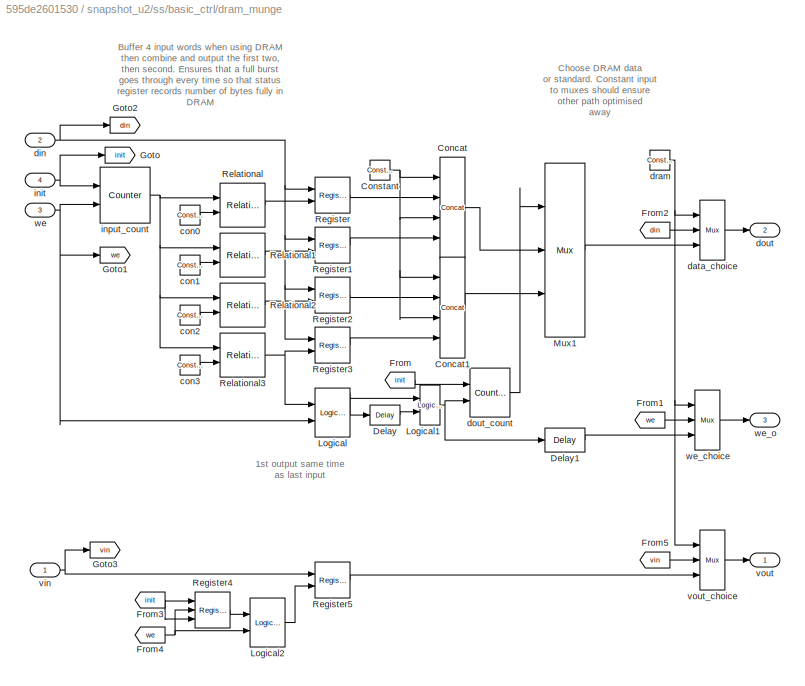
BLOCK [SubSystem] snapshot_u2/ss/basic_ctrl/dram_munge
  Ports = [4, 3]
  RequestExecContextInheritance = off
BLOCK [Reference] snapshot_u2/ss/basic_ctrl/dram_munge/Concat  REF=xbsIndex_r4/Concat
  Ports = [4, 1]
  SourceBlock = xbsIndex_r4/Concat
  SourceType = Xilinx Bus Concatenator Block
BLOCK [Reference] snapshot_u2/ss/basic_ctrl/dram_munge/Concat1  REF=xbsIndex_r4/Concat
  Ports = [4, 1]
  SourceBlock = xbsIndex_r4/Concat
  SourceType = Xilinx Bus Concatenator Block
BLOCK [Reference] snapshot_u2/ss/basic_ctrl/dram_munge/Constant  REF=xbsIndex_r4/Constant
  Ports = [0, 1]
  SourceBlock = xbsIndex_r4/Constant
  SourceType = Xilinx Constant Block Block
BLOCK [Reference] snapshot_u2/ss/basic_ctrl/dram_munge/Delay  REF=xbsIndex_r4/Delay
  Ports = [1, 1]
  SourceBlock = xbsIndex_r4/Delay
  SourceType = Xilinx Delay Block
BLOCK [Reference] snapshot_u2/ss/basic_ctrl/dram_munge/Delay1  REF=xbsIndex_r4/Delay
  Ports = [1, 1]
  SourceBlock = xbsIndex_r4/Delay
  SourceType = Xilinx Delay Block
BLOCK [From] snapshot_u2/ss/basic_ctrl/dram_munge/From
  CloseFcn = tagdialog Close
  GotoTag = init
BLOCK [From] snapshot_u2/ss/basic_ctrl/dram_munge/From1
  CloseFcn = tagdialog Close
  GotoTag = we
BLOCK [From] snapshot_u2/ss/basic_ctrl/dram_munge/From2
  CloseFcn = tagdialog Close
  GotoTag = din
BLOCK [From] snapshot_u2/ss/basic_ctrl/dram_munge/From3
  CloseFcn = tagdialog Close
  GotoTag = init
BLOCK [From] snapshot_u2/ss/basic_ctrl/dram_munge/From4
  CloseFcn = tagdialog Close
  GotoTag = we
BLOCK [From] snapshot_u2/ss/basic_ctrl/dram_munge/From5
  CloseFcn = tagdialog Close
  GotoTag = vin
BLOCK [Goto] snapshot_u2/ss/basic_ctrl/dram_munge/Goto
  GotoTag = init
BLOCK [Goto] snapshot_u2/ss/basic_ctrl/dram_munge/Goto1
  GotoTag = we
BLOCK [Goto] snapshot_u2/ss/basic_ctrl/dram_munge/Goto2
  GotoTag = din
BLOCK [Goto] snapshot_u2/ss/basic_ctrl/dram_munge/Goto3
  GotoTag = vin
BLOCK [Reference] snapshot_u2/ss/basic_ctrl/dram_munge/Logical  REF=xbsIndex_r4/Logical
  Ports = [2, 1]
  SourceBlock = xbsIndex_r4/Logical
  SourceType = Xilinx Logical Block Block
BLOCK [Reference] snapshot_u2/ss/basic_ctrl/dram_munge/Logical1  REF=xbsIndex_r4/Logical
  Ports = [2, 1]
  SourceBlock = xbsIndex_r4/Logical
  SourceType = Xilinx Logical Block Block
BLOCK [Reference] snapshot_u2/ss/basic_ctrl/dram_munge/Logical2  REF=xbsIndex_r4/Logical
  Ports = [2, 1]
  SourceBlock = xbsIndex_r4/Logical
  SourceType = Xilinx Logical Block Block
BLOCK [Reference] snapshot_u2/ss/basic_ctrl/dram_munge/Mux1  REF=xbsIndex_r4/Mux
  Ports = [3, 1]
  SourceBlock = xbsIndex_r4/Mux
  SourceType = Xilinx Bus Multiplexer Block
BLOCK [Reference] snapshot_u2/ss/basic_ctrl/dram_munge/Register  REF=xbsIndex_r4/Register
  Ports = [2, 1]
  SourceBlock = xbsIndex_r4/Register
  SourceType = Xilinx Register Block
BLOCK [Reference] snapshot_u2/ss/basic_ctrl/dram_munge/Register1  REF=xbsIndex_r4/Register
  Ports = [2, 1]
  SourceBlock = xbsIndex_r4/Register
  SourceType = Xilinx Register Block
BLOCK [Reference] snapshot_u2/ss/basic_ctrl/dram_munge/Register2  REF=xbsIndex_r4/Register
  Ports = [2, 1]
  SourceBlock = xbsIndex_r4/Register
  SourceType = Xilinx Register Block
BLOCK [Reference] snapshot_u2/ss/basic_ctrl/dram_munge/Register3  REF=xbsIndex_r4/Register
  Ports = [2, 1]
  SourceBlock = xbsIndex_r4/Register
  SourceType = Xilinx Register Block
BLOCK [Reference] snapshot_u2/ss/basic_ctrl/dram_munge/Register4  REF=xbsIndex_r4/Register
  Ports = [3, 1]
  SourceBlock = xbsIndex_r4/Register
  SourceType = Xilinx Register Block
BLOCK [Reference] snapshot_u2/ss/basic_ctrl/dram_munge/Register5  REF=xbsIndex_r4/Register
  Ports = [2, 1]
  SourceBlock = xbsIndex_r4/Register
  SourceType = Xilinx Register Block
BLOCK [Reference] snapshot_u2/ss/basic_ctrl/dram_munge/Relational  REF=xbsIndex_r4/Relational
  Ports = [2, 1]
  SourceBlock = xbsIndex_r4/Relational
  SourceType = Xilinx Arithmetic Relational Operator Block
BLOCK [Reference] snapshot_u2/ss/basic_ctrl/dram_munge/Relational1  REF=xbsIndex_r4/Relational
  Ports = [2, 1]
  SourceBlock = xbsIndex_r4/Relational
  SourceType = Xilinx Arithmetic Relational Operator Block
BLOCK [Reference] snapshot_u2/ss/basic_ctrl/dram_munge/Relational2  REF=xbsIndex_r4/Relational
  Ports = [2, 1]
  SourceBlock = xbsIndex_r4/Relational
  SourceType = Xilinx Arithmetic Relational Operator Block
BLOCK [Reference] snapshot_u2/ss/basic_ctrl/dram_munge/Relational3  REF=xbsIndex_r4/Relational
  Ports = [2, 1]
  SourceBlock = xbsIndex_r4/Relational
  SourceType = Xilinx Arithmetic Relational Operator Block
BLOCK [Reference] snapshot_u2/ss/basic_ctrl/dram_munge/con0  REF=xbsIndex_r4/Constant
  Ports = [0, 1]
  SourceBlock = xbsIndex_r4/Constant
  SourceType = Xilinx Constant Block Block
BLOCK [Reference] snapshot_u2/ss/basic_ctrl/dram_munge/con1  REF=xbsIndex_r4/Constant
  Ports = [0, 1]
  SourceBlock = xbsIndex_r4/Constant
  SourceType = Xilinx Constant Block Block
BLOCK [Reference] snapshot_u2/ss/basic_ctrl/dram_munge/con2  REF=xbsIndex_r4/Constant
  Ports = [0, 1]
  SourceBlock = xbsIndex_r4/Constant
  SourceType = Xilinx Constant Block Block
BLOCK [Reference] snapshot_u2/ss/basic_ctrl/dram_munge/con3  REF=xbsIndex_r4/Constant
  Ports = [0, 1]
  SourceBlock = xbsIndex_r4/Constant
  SourceType = Xilinx Constant Block Block
BLOCK [Reference] snapshot_u2/ss/basic_ctrl/dram_munge/data_choice  REF=xbsIndex_r4/Mux
  Ports = [3, 1]
  SourceBlock = xbsIndex_r4/Mux
  SourceType = Xilinx Bus Multiplexer Block
BLOCK [Inport] snapshot_u2/ss/basic_ctrl/dram_munge/din
  Port = 2
BLOCK [Outport] snapshot_u2/ss/basic_ctrl/dram_munge/dout
  Port = 2
  VectorParamsAs1DForOutWhenUnconnected = off
BLOCK [Reference] snapshot_u2/ss/basic_ctrl/dram_munge/dout_count  REF=xbsIndex_r4/Counter
  Ports = [2, 1]
  SourceBlock = xbsIndex_r4/Counter
  SourceType = Xilinx Counter Block
BLOCK [Reference] snapshot_u2/ss/basic_ctrl/dram_munge/dram  REF=xbsIndex_r4/Constant
  Ports = [0, 1]
  SourceBlock = xbsIndex_r4/Constant
  SourceType = Xilinx Constant Block Block
BLOCK [Inport] snapshot_u2/ss/basic_ctrl/dram_munge/init
  Port = 4
BLOCK [Reference] snapshot_u2/ss/basic_ctrl/dram_munge/input_count  REF=xbsIndex_r4/Counter
  Ports = [2, 1]
  SourceBlock = xbsIndex_r4/Counter
  SourceType = Xilinx Counter Block
BLOCK [Inport] snapshot_u2/ss/basic_ctrl/dram_munge/vin
BLOCK [Outport] snapshot_u2/ss/basic_ctrl/dram_munge/vout
  VectorParamsAs1DForOutWhenUnconnected = off
BLOCK [Reference] snapshot_u2/ss/basic_ctrl/dram_munge/vout_choice  REF=xbsIndex_r4/Mux
  Ports = [3, 1]
  SourceBlock = xbsIndex_r4/Mux
  SourceType = Xilinx Bus Multiplexer Block
BLOCK [Inport] snapshot_u2/ss/basic_ctrl/dram_munge/we
  Port = 3
BLOCK [Reference] snapshot_u2/ss/basic_ctrl/dram_munge/we_choice  REF=xbsIndex_r4/Mux
  Ports = [3, 1]
  SourceBlock = xbsIndex_r4/Mux
  SourceType = Xilinx Bus Multiplexer Block
BLOCK [Outport] snapshot_u2/ss/basic_ctrl/dram_munge/we_o
  Port = 3
  VectorParamsAs1DForOutWhenUnconnected = off
BLOCK [Reference] snapshot_u2/ss/basic_ctrl/edge_detect  REF=casper_library_misc/edge_detect  (lib defined in mdl_357510c33b49, mdl_57b5f564ae26, +4 more)
  AttributesFormatString = rising edges\nactive high
  Ports = [1, 1]
  SourceBlock = casper_library_misc/edge_detect
  SourceProductName = CASPER DSP Blockset
  SourceType = edge_detect
  UserDataPersistent = on
BLOCK [Reference] snapshot_u2/ss/basic_ctrl/enable  REF=xbsIndex_r4/Slice
  Ports = [1, 1]
  SourceBlock = xbsIndex_r4/Slice
  SourceType = Xilinx Bit Slice Extractor Block
BLOCK [Outport] snapshot_u2/ss/basic_ctrl/go
  Port = 4
  VectorParamsAs1DForOutWhenUnconnected = off
BLOCK [Outport] snapshot_u2/ss/basic_ctrl/init
  Port = 6
  VectorParamsAs1DForOutWhenUnconnected = off
BLOCK [Outport] snapshot_u2/ss/basic_ctrl/stop
  Port = 5
  VectorParamsAs1DForOutWhenUnconnected = off
BLOCK [Inport] snapshot_u2/ss/basic_ctrl/stopi
  Port = 6
BLOCK [Inport] snapshot_u2/ss/basic_ctrl/trig
  Port = 4
BLOCK [Reference] snapshot_u2/ss/basic_ctrl/trig_src  REF=xbsIndex_r4/Slice
  Ports = [1, 1]
  SourceBlock = xbsIndex_r4/Slice
  SourceType = Xilinx Bit Slice Extractor Block
BLOCK [Reference] snapshot_u2/ss/basic_ctrl/valid_src  REF=xbsIndex_r4/Slice
  Ports = [1, 1]
  SourceBlock = xbsIndex_r4/Slice
  SourceType = Xilinx Bit Slice Extractor Block
BLOCK [Inport] snapshot_u2/ss/basic_ctrl/vin
BLOCK [Outport] snapshot_u2/ss/basic_ctrl/vout
  VectorParamsAs1DForOutWhenUnconnected = off
BLOCK [Inport] snapshot_u2/ss/basic_ctrl/we
  Port = 3
BLOCK [Outport] snapshot_u2/ss/basic_ctrl/we_o
  Port = 3
  VectorParamsAs1DForOutWhenUnconnected = off
BLOCK [SubSystem] snapshot_u2/ss/bram
  AncestorBlock = xps_library/Memory/shared_bram
  Ports = [3, 1]
  RequestExecContextInheritance = off
  Tag = xps:bram
BLOCK [Terminator] snapshot_u2/ss/bram/Terminator
BLOCK [Terminator] snapshot_u2/ss/bram/Terminator1
BLOCK [Terminator] snapshot_u2/ss/bram/Terminator2
BLOCK [Inport] snapshot_u2/ss/bram/addr
BLOCK [SubSystem] snapshot_u2/ss/bram/calc_add
  Ports = [1, 1]
  RequestExecContextInheritance = off
BLOCK [Reference] snapshot_u2/ss/bram/calc_add/add_sub  REF=xbsIndex_r4/AddSub
  Ports = [2, 1]
  SourceBlock = xbsIndex_r4/AddSub
  SourceType = Xilinx Adder/Subtracter Block
BLOCK [Reference] snapshot_u2/ss/bram/calc_add/concat  REF=xbsIndex_r4/Concat
  Ports = [2, 1]
  SourceBlock = xbsIndex_r4/Concat
  SourceType = Xilinx Bus Concatenator Block
BLOCK [Reference] snapshot_u2/ss/bram/calc_add/const  REF=xbsIndex_r4/Constant
  Ports = [0, 1]
  SourceBlock = xbsIndex_r4/Constant
  SourceType = Xilinx Constant Block Block
BLOCK [Reference] snapshot_u2/ss/bram/calc_add/convert_addr  REF=xbsIndex_r4/Convert
  Ports = [1, 1]
  SourceBlock = xbsIndex_r4/Convert
  SourceType = Xilinx Type Converter Block
BLOCK [Inport] snapshot_u2/ss/bram/calc_add/in
BLOCK [Reference] snapshot_u2/ss/bram/calc_add/lsw  REF=xbsIndex_r4/Slice
  Ports = [1, 1]
  SourceBlock = xbsIndex_r4/Slice
  SourceType = Xilinx Bit Slice Extractor Block
BLOCK [Reference] snapshot_u2/ss/bram/calc_add/manipulate  REF=xbsIndex_r4/Constant
  Ports = [0, 1]
  SourceBlock = xbsIndex_r4/Constant
  SourceType = Xilinx Constant Block Block
BLOCK [Reference] snapshot_u2/ss/bram/calc_add/msw  REF=xbsIndex_r4/Slice
  Ports = [1, 1]
  SourceBlock = xbsIndex_r4/Slice
  SourceType = Xilinx Bit Slice Extractor Block
BLOCK [Reference] snapshot_u2/ss/bram/calc_add/mux  REF=xbsIndex_r4/Mux
  Ports = [3, 1]
  SourceBlock = xbsIndex_r4/Mux
  SourceType = Xilinx Bus Multiplexer Block
BLOCK [Outport] snapshot_u2/ss/bram/calc_add/out
  VectorParamsAs1DForOutWhenUnconnected = off
BLOCK [Reference] snapshot_u2/ss/bram/convert_addr  REF=xbsIndex_r4/Convert
  Ports = [1, 1]
  SourceBlock = xbsIndex_r4/Convert
  SourceType = Xilinx Type Converter Block
BLOCK [Reference] snapshot_u2/ss/bram/convert_din1  REF=xbsIndex_r4/Convert
  Ports = [1, 1]
  SourceBlock = xbsIndex_r4/Convert
  SourceType = Xilinx Type Converter Block
BLOCK [Reference] snapshot_u2/ss/bram/convert_we  REF=xbsIndex_r4/Convert
  Ports = [1, 1]
  SourceBlock = xbsIndex_r4/Convert
  SourceType = Xilinx Type Converter Block
BLOCK [Inport] snapshot_u2/ss/bram/data_in
  Port = 2
BLOCK [Outport] snapshot_u2/ss/bram/data_out
  VectorParamsAs1DForOutWhenUnconnected = off
BLOCK [SubSystem] snapshot_u2/ss/bram/munge_in
  AncestorBlock = casper_library_flow_control/munge
  AttributesFormatString = split:[32 32 32 32]\njoin:[3 2 1 0]\nUnsigned [128,0]
  Ports = [1, 1]
  RequestExecContextInheritance = off
  UserDataPersistent = on
BLOCK [Inport] snapshot_u2/ss/bram/munge_in/din
BLOCK [Outport] snapshot_u2/ss/bram/munge_in/dout
  VectorParamsAs1DForOutWhenUnconnected = off
BLOCK [SubSystem] snapshot_u2/ss/bram/munge_in/join
  AncestorBlock = casper_library_flow_control/bus_create
  Ports = [4, 1]
  RequestExecContextInheritance = off
  UserDataPersistent = on
BLOCK [Outport] snapshot_u2/ss/bram/munge_in/join/bus_out
  VectorParamsAs1DForOutWhenUnconnected = off
BLOCK [Reference] snapshot_u2/ss/bram/munge_in/join/concatenate  REF=xbsIndex_r4/Concat
  Ports = [4, 1]
  SourceBlock = xbsIndex_r4/Concat
  SourceType = Xilinx Bus Concatenator Block
BLOCK [Inport] snapshot_u2/ss/bram/munge_in/join/in1
BLOCK [Inport] snapshot_u2/ss/bram/munge_in/join/in2
  Port = 2
BLOCK [Inport] snapshot_u2/ss/bram/munge_in/join/in3
  Port = 3
BLOCK [Inport] snapshot_u2/ss/bram/munge_in/join/in4
  Port = 4
BLOCK [Reference] snapshot_u2/ss/bram/munge_in/join/reinterpret1  REF=xbsIndex_r4/Reinterpret
  Ports = [1, 1]
  SourceBlock = xbsIndex_r4/Reinterpret
  SourceType = Xilinx Type Reinterpreter Block
BLOCK [Reference] snapshot_u2/ss/bram/munge_in/join/reinterpret2  REF=xbsIndex_r4/Reinterpret
  Ports = [1, 1]
  SourceBlock = xbsIndex_r4/Reinterpret
  SourceType = Xilinx Type Reinterpreter Block
BLOCK [Reference] snapshot_u2/ss/bram/munge_in/join/reinterpret3  REF=xbsIndex_r4/Reinterpret
  Ports = [1, 1]
  SourceBlock = xbsIndex_r4/Reinterpret
  SourceType = Xilinx Type Reinterpreter Block
BLOCK [Reference] snapshot_u2/ss/bram/munge_in/join/reinterpret4  REF=xbsIndex_r4/Reinterpret
  Ports = [1, 1]
  SourceBlock = xbsIndex_r4/Reinterpret
  SourceType = Xilinx Type Reinterpreter Block
BLOCK [Reference] snapshot_u2/ss/bram/munge_in/reinterpret  REF=xbsIndex_r4/Reinterpret
  Ports = [1, 1]
  SourceBlock = xbsIndex_r4/Reinterpret
  SourceType = Xilinx Type Reinterpreter Block
BLOCK [Reference] snapshot_u2/ss/bram/munge_in/reinterpret_out  REF=xbsIndex_r4/Reinterpret
  Ports = [1, 1]
  SourceBlock = xbsIndex_r4/Reinterpret
  SourceType = Xilinx Type Reinterpreter Block
BLOCK [SubSystem] snapshot_u2/ss/bram/munge_in/split
  AncestorBlock = casper_library_flow_control/bus_expand
  AttributesFormatString = 4 outputs
  Ports = [1, 4]
  RequestExecContextInheritance = off
  UserDataPersistent = on
BLOCK [Inport] snapshot_u2/ss/bram/munge_in/split/bus_in
BLOCK [Outport] snapshot_u2/ss/bram/munge_in/split/lsb_out1
  Port = 4
  VectorParamsAs1DForOutWhenUnconnected = off
BLOCK [Outport] snapshot_u2/ss/bram/munge_in/split/msb_out4
BLOCK [Outport] snapshot_u2/ss/bram/munge_in/split/out2
  Port = 3
BLOCK [Outport] snapshot_u2/ss/bram/munge_in/split/out3
  Port = 2
BLOCK [Reference] snapshot_u2/ss/bram/munge_in/split/reinterpret1  REF=xbsIndex_r4/Reinterpret
  Ports = [1, 1]
  SourceBlock = xbsIndex_r4/Reinterpret
  SourceType = Xilinx Type Reinterpreter Block
BLOCK [Reference] snapshot_u2/ss/bram/munge_in/split/reinterpret2  REF=xbsIndex_r4/Reinterpret
  Ports = [1, 1]
  SourceBlock = xbsIndex_r4/Reinterpret
  SourceType = Xilinx Type Reinterpreter Block
BLOCK [Reference] snapshot_u2/ss/bram/munge_in/split/reinterpret3  REF=xbsIndex_r4/Reinterpret
  Ports = [1, 1]
  SourceBlock = xbsIndex_r4/Reinterpret
  SourceType = Xilinx Type Reinterpreter Block
BLOCK [Reference] snapshot_u2/ss/bram/munge_in/split/reinterpret4  REF=xbsIndex_r4/Reinterpret
  Ports = [1, 1]
  SourceBlock = xbsIndex_r4/Reinterpret
  SourceType = Xilinx Type Reinterpreter Block
BLOCK [Reference] snapshot_u2/ss/bram/munge_in/split/slice1  REF=xbsIndex_r4/Slice
  Ports = [1, 1]
  SourceBlock = xbsIndex_r4/Slice
  SourceType = Xilinx Bit Slice Extractor Block
BLOCK [Reference] snapshot_u2/ss/bram/munge_in/split/slice2  REF=xbsIndex_r4/Slice
  Ports = [1, 1]
  SourceBlock = xbsIndex_r4/Slice
  SourceType = Xilinx Bit Slice Extractor Block
BLOCK [Reference] snapshot_u2/ss/bram/munge_in/split/slice3  REF=xbsIndex_r4/Slice
  Ports = [1, 1]
  SourceBlock = xbsIndex_r4/Slice
  SourceType = Xilinx Bit Slice Extractor Block
BLOCK [Reference] snapshot_u2/ss/bram/munge_in/split/slice4  REF=xbsIndex_r4/Slice
  Ports = [1, 1]
  SourceBlock = xbsIndex_r4/Slice
  SourceType = Xilinx Bit Slice Extractor Block
BLOCK [SubSystem] snapshot_u2/ss/bram/munge_out
  AncestorBlock = casper_library_flow_control/munge
  AttributesFormatString = split:[32 32 32 32]\njoin:[3 2 1 0]\nUnsigned [128,0]
  Ports = [1, 1]
  RequestExecContextInheritance = off
  UserDataPersistent = on
BLOCK [Inport] snapshot_u2/ss/bram/munge_out/din
BLOCK [Outport] snapshot_u2/ss/bram/munge_out/dout
  VectorParamsAs1DForOutWhenUnconnected = off
BLOCK [SubSystem] snapshot_u2/ss/bram/munge_out/join
  AncestorBlock = casper_library_flow_control/bus_create
  Ports = [4, 1]
  RequestExecContextInheritance = off
  UserDataPersistent = on
BLOCK [Outport] snapshot_u2/ss/bram/munge_out/join/bus_out
  VectorParamsAs1DForOutWhenUnconnected = off
BLOCK [Reference] snapshot_u2/ss/bram/munge_out/join/concatenate  REF=xbsIndex_r4/Concat
  Ports = [4, 1]
  SourceBlock = xbsIndex_r4/Concat
  SourceType = Xilinx Bus Concatenator Block
BLOCK [Inport] snapshot_u2/ss/bram/munge_out/join/in1
BLOCK [Inport] snapshot_u2/ss/bram/munge_out/join/in2
  Port = 2
BLOCK [Inport] snapshot_u2/ss/bram/munge_out/join/in3
  Port = 3
BLOCK [Inport] snapshot_u2/ss/bram/munge_out/join/in4
  Port = 4
BLOCK [Reference] snapshot_u2/ss/bram/munge_out/join/reinterpret1  REF=xbsIndex_r4/Reinterpret
  Ports = [1, 1]
  SourceBlock = xbsIndex_r4/Reinterpret
  SourceType = Xilinx Type Reinterpreter Block
BLOCK [Reference] snapshot_u2/ss/bram/munge_out/join/reinterpret2  REF=xbsIndex_r4/Reinterpret
  Ports = [1, 1]
  SourceBlock = xbsIndex_r4/Reinterpret
  SourceType = Xilinx Type Reinterpreter Block
BLOCK [Reference] snapshot_u2/ss/bram/munge_out/join/reinterpret3  REF=xbsIndex_r4/Reinterpret
  Ports = [1, 1]
  SourceBlock = xbsIndex_r4/Reinterpret
  SourceType = Xilinx Type Reinterpreter Block
BLOCK [Reference] snapshot_u2/ss/bram/munge_out/join/reinterpret4  REF=xbsIndex_r4/Reinterpret
  Ports = [1, 1]
  SourceBlock = xbsIndex_r4/Reinterpret
  SourceType = Xilinx Type Reinterpreter Block
BLOCK [Reference] snapshot_u2/ss/bram/munge_out/reinterpret  REF=xbsIndex_r4/Reinterpret
  Ports = [1, 1]
  SourceBlock = xbsIndex_r4/Reinterpret
  SourceType = Xilinx Type Reinterpreter Block
BLOCK [Reference] snapshot_u2/ss/bram/munge_out/reinterpret_out  REF=xbsIndex_r4/Reinterpret
  Ports = [1, 1]
  SourceBlock = xbsIndex_r4/Reinterpret
  SourceType = Xilinx Type Reinterpreter Block
BLOCK [SubSystem] snapshot_u2/ss/bram/munge_out/split
  AncestorBlock = casper_library_flow_control/bus_expand
  AttributesFormatString = 4 outputs
  Ports = [1, 4]
  RequestExecContextInheritance = off
  UserDataPersistent = on
BLOCK [Inport] snapshot_u2/ss/bram/munge_out/split/bus_in
BLOCK [Outport] snapshot_u2/ss/bram/munge_out/split/lsb_out1
  Port = 4
  VectorParamsAs1DForOutWhenUnconnected = off
BLOCK [Outport] snapshot_u2/ss/bram/munge_out/split/msb_out4
BLOCK [Outport] snapshot_u2/ss/bram/munge_out/split/out2
  Port = 3
BLOCK [Outport] snapshot_u2/ss/bram/munge_out/split/out3
  Port = 2
BLOCK [Reference] snapshot_u2/ss/bram/munge_out/split/reinterpret1  REF=xbsIndex_r4/Reinterpret
  Ports = [1, 1]
  SourceBlock = xbsIndex_r4/Reinterpret
  SourceType = Xilinx Type Reinterpreter Block
BLOCK [Reference] snapshot_u2/ss/bram/munge_out/split/reinterpret2  REF=xbsIndex_r4/Reinterpret
  Ports = [1, 1]
  SourceBlock = xbsIndex_r4/Reinterpret
  SourceType = Xilinx Type Reinterpreter Block
BLOCK [Reference] snapshot_u2/ss/bram/munge_out/split/reinterpret3  REF=xbsIndex_r4/Reinterpret
  Ports = [1, 1]
  SourceBlock = xbsIndex_r4/Reinterpret
  SourceType = Xilinx Type Reinterpreter Block
BLOCK [Reference] snapshot_u2/ss/bram/munge_out/split/reinterpret4  REF=xbsIndex_r4/Reinterpret
  Ports = [1, 1]
  SourceBlock = xbsIndex_r4/Reinterpret
  SourceType = Xilinx Type Reinterpreter Block
BLOCK [Reference] snapshot_u2/ss/bram/munge_out/split/slice1  REF=xbsIndex_r4/Slice
  Ports = [1, 1]
  SourceBlock = xbsIndex_r4/Slice
  SourceType = Xilinx Bit Slice Extractor Block
BLOCK [Reference] snapshot_u2/ss/bram/munge_out/split/slice2  REF=xbsIndex_r4/Slice
  Ports = [1, 1]
  SourceBlock = xbsIndex_r4/Slice
  SourceType = Xilinx Bit Slice Extractor Block
BLOCK [Reference] snapshot_u2/ss/bram/munge_out/split/slice3  REF=xbsIndex_r4/Slice
  Ports = [1, 1]
  SourceBlock = xbsIndex_r4/Slice
  SourceType = Xilinx Bit Slice Extractor Block
BLOCK [Reference] snapshot_u2/ss/bram/munge_out/split/slice4  REF=xbsIndex_r4/Slice
  Ports = [1, 1]
  SourceBlock = xbsIndex_r4/Slice
  SourceType = Xilinx Bit Slice Extractor Block
BLOCK [Reference] snapshot_u2/ss/bram/rfdc_awg_snapshot_u2_ss_bram_addr  REF=xbsIndex_r4/Gateway Out
  Ports = [1, 1]
  SourceBlock = xbsIndex_r4/Gateway Out
  SourceType = Xilinx Gateway Out Block
BLOCK [Reference] snapshot_u2/ss/bram/rfdc_awg_snapshot_u2_ss_bram_data_in  REF=xbsIndex_r4/Gateway Out
  Ports = [1, 1]
  SourceBlock = xbsIndex_r4/Gateway Out
  SourceType = Xilinx Gateway Out Block
BLOCK [Reference] snapshot_u2/ss/bram/rfdc_awg_snapshot_u2_ss_bram_data_out  REF=xbsIndex_r4/Gateway In
  Ports = [1, 1]
  SourceBlock = xbsIndex_r4/Gateway In
  SourceType = Xilinx Gateway In Block
BLOCK [Reference] snapshot_u2/ss/bram/rfdc_awg_snapshot_u2_ss_bram_we  REF=xbsIndex_r4/Gateway Out
  Ports = [1, 1]
  SourceBlock = xbsIndex_r4/Gateway Out
  SourceType = Xilinx Gateway Out Block
BLOCK [SubSystem] snapshot_u2/ss/bram/sim_mem
  Ports = [3, 1]
  RequestExecContextInheritance = off
BLOCK [DataTypeConversion] snapshot_u2/ss/bram/sim_mem/Data Type Conversion
  OutDataTypeStr = single
  RndMeth = Floor
  SaturateOnIntegerOverflow = off
BLOCK [DataTypeConversion] snapshot_u2/ss/bram/sim_mem/Data Type Conversion1
  OutDataTypeStr = double
  RndMeth = Floor
  SaturateOnIntegerOverflow = off
BLOCK [DataTypeConversion] snapshot_u2/ss/bram/sim_mem/Data Type Conversion2
  OutDataTypeStr = boolean
  RndMeth = Floor
  SaturateOnIntegerOverflow = off
BLOCK [Inport] snapshot_u2/ss/bram/sim_mem/addr
BLOCK [Inport] snapshot_u2/ss/bram/sim_mem/data
  Port = 2
BLOCK [Outport] snapshot_u2/ss/bram/sim_mem/data_out
  VectorParamsAs1DForOutWhenUnconnected = off
BLOCK [M-S-Function] snapshot_u2/ss/bram/sim_mem/sfunc
  FunctionName = shared_bram_sim_sfunc
  Parameters = depth_bits, latency, init_vals
  Ports = [3, 1]
BLOCK [Reference] snapshot_u2/ss/bram/sim_mem/sim_addr  REF=xbsIndex_r4/Gateway Out
  Ports = [1, 1]
  SourceBlock = xbsIndex_r4/Gateway Out
  SourceType = Xilinx Gateway Out Block
BLOCK [Reference] snapshot_u2/ss/bram/sim_mem/sim_data  REF=xbsIndex_r4/Gateway Out
  Ports = [1, 1]
  SourceBlock = xbsIndex_r4/Gateway Out
  SourceType = Xilinx Gateway Out Block
BLOCK [Reference] snapshot_u2/ss/bram/sim_mem/sim_we  REF=xbsIndex_r4/Gateway Out
  Ports = [1, 1]
  SourceBlock = xbsIndex_r4/Gateway Out
  SourceType = Xilinx Gateway Out Block
BLOCK [Inport] snapshot_u2/ss/bram/sim_mem/we
  Port = 3
BLOCK [Inport] snapshot_u2/ss/bram/we
  Port = 3
BLOCK [Reference] snapshot_u2/ss/cast  REF=xbsIndex_r4/Convert
  Ports = [1, 1]
  SourceBlock = xbsIndex_r4/Convert
  SourceType = Xilinx Type Converter Block
BLOCK [Reference] snapshot_u2/ss/circ  REF=xbsIndex_r4/Constant
  Ports = [0, 1]
  SourceBlock = xbsIndex_r4/Constant
  SourceType = Xilinx Constant Block Block
BLOCK [Reference] snapshot_u2/ss/circ_or  REF=xbsIndex_r4/Logical
  Ports = [2, 1]
  SourceBlock = xbsIndex_r4/Logical
  SourceType = Xilinx Logical Block Block
BLOCK [SubSystem] snapshot_u2/ss/ctrl
  AncestorBlock = xps_library/Memory/software_register
  AttributesFormatString = 1input:uf32.0 = 32 bits
  Ports = [0, 1]
  RequestExecContextInheritance = off
  Tag = xps:sw_reg
BLOCK [DataTypeConversion] snapshot_u2/ss/ctrl/convert1_1
  LockScale = on
  OutDataTypeStr = fixdt('ufix32_En0')
  RndMeth = Floor
  SaturateOnIntegerOverflow = off
BLOCK [DataTypeConversion] snapshot_u2/ss/ctrl/convert2_1
  ConvertRealWorld = Stored Integer (SI)
  LockScale = on
  OutDataTypeStr = fixdt('ufix32_En0')
  RndMeth = Floor
  SaturateOnIntegerOverflow = off
BLOCK [Gain] snapshot_u2/ss/ctrl/gain_1
  OutDataTypeStr = fixdt('ufix32_En0')
BLOCK [Outport] snapshot_u2/ss/ctrl/in_reg
  VectorParamsAs1DForOutWhenUnconnected = off
BLOCK [Reference] snapshot_u2/ss/ctrl/io_delay  REF=xbsIndex_r4/Delay
  Ports = [1, 1]
  SourceBlock = xbsIndex_r4/Delay
  SourceType = Xilinx Delay Block
BLOCK [Reference] snapshot_u2/ss/ctrl/reint1  REF=xbsIndex_r4/Reinterpret
  Ports = [1, 1]
  SourceBlock = xbsIndex_r4/Reinterpret
  SourceType = Xilinx Type Reinterpreter Block
BLOCK [Reference] snapshot_u2/ss/ctrl/rfdc_awg_snapshot_u2_ss_ctrl_user_data_out  REF=xbsIndex_r4/Gateway In
  Ports = [1, 1]
  SourceBlock = xbsIndex_r4/Gateway In
  SourceType = Xilinx Gateway In Block
BLOCK [Constant] snapshot_u2/ss/ctrl/sim_1
  Value = 0
BLOCK [Reference] snapshot_u2/ss/ctrl/slice_reg  REF=xbsIndex_r4/Slice
  Ports = [1, 1]
  SourceBlock = xbsIndex_r4/Slice
  SourceType = Xilinx Bit Slice Extractor Block
BLOCK [SubSystem] snapshot_u2/ss/ctrl_combine
  AncestorBlock = casper_library_flow_control/bus_create
  Ports = [4, 1]
  RequestExecContextInheritance = off
  UserDataPersistent = on
BLOCK [Outport] snapshot_u2/ss/ctrl_combine/bus_out
  VectorParamsAs1DForOutWhenUnconnected = off
BLOCK [Reference] snapshot_u2/ss/ctrl_combine/concatenate  REF=xbsIndex_r4/Concat
  Ports = [4, 1]
  SourceBlock = xbsIndex_r4/Concat
  SourceType = Xilinx Bus Concatenator Block
BLOCK [Inport] snapshot_u2/ss/ctrl_combine/in1
BLOCK [Inport] snapshot_u2/ss/ctrl_combine/in2
  Port = 2
BLOCK [Inport] snapshot_u2/ss/ctrl_combine/in3
  Port = 3
BLOCK [Inport] snapshot_u2/ss/ctrl_combine/in4
  Port = 4
BLOCK [Reference] snapshot_u2/ss/ctrl_combine/reinterpret1  REF=xbsIndex_r4/Reinterpret
  Ports = [1, 1]
  SourceBlock = xbsIndex_r4/Reinterpret
  SourceType = Xilinx Type Reinterpreter Block
BLOCK [Reference] snapshot_u2/ss/ctrl_combine/reinterpret2  REF=xbsIndex_r4/Reinterpret
  Ports = [1, 1]
  SourceBlock = xbsIndex_r4/Reinterpret
  SourceType = Xilinx Type Reinterpreter Block
BLOCK [Reference] snapshot_u2/ss/ctrl_combine/reinterpret3  REF=xbsIndex_r4/Reinterpret
  Ports = [1, 1]
  SourceBlock = xbsIndex_r4/Reinterpret
  SourceType = Xilinx Type Reinterpreter Block
BLOCK [Reference] snapshot_u2/ss/ctrl_combine/reinterpret4  REF=xbsIndex_r4/Reinterpret
  Ports = [1, 1]
  SourceBlock = xbsIndex_r4/Reinterpret
  SourceType = Xilinx Type Reinterpreter Block
BLOCK [SubSystem] snapshot_u2/ss/ctrl_split
  AncestorBlock = casper_library_flow_control/bus_expand
  AttributesFormatString = 4 outputs: uf28.0,b,uf2.0,b,
  Ports = [1, 4]
  RequestExecContextInheritance = off
  UserDataPersistent = on
BLOCK [Inport] snapshot_u2/ss/ctrl_split/bus_in
BLOCK [Outport] snapshot_u2/ss/ctrl_split/lsb_out1
  Port = 4
  VectorParamsAs1DForOutWhenUnconnected = off
BLOCK [Outport] snapshot_u2/ss/ctrl_split/msb_out4
  VectorParamsAs1DForOutWhenUnconnected = off
BLOCK [Outport] snapshot_u2/ss/ctrl_split/out2
  Port = 3
  VectorParamsAs1DForOutWhenUnconnected = off
BLOCK [Outport] snapshot_u2/ss/ctrl_split/out3
  Port = 2
  VectorParamsAs1DForOutWhenUnconnected = off
BLOCK [Reference] snapshot_u2/ss/ctrl_split/reinterpret2  REF=xbsIndex_r4/Reinterpret
  Ports = [1, 1]
  SourceBlock = xbsIndex_r4/Reinterpret
  SourceType = Xilinx Type Reinterpreter Block
BLOCK [Reference] snapshot_u2/ss/ctrl_split/reinterpret4  REF=xbsIndex_r4/Reinterpret
  Ports = [1, 1]
  SourceBlock = xbsIndex_r4/Reinterpret
  SourceType = Xilinx Type Reinterpreter Block
BLOCK [Reference] snapshot_u2/ss/ctrl_split/slice1  REF=xbsIndex_r4/Slice
  Ports = [1, 1]
  SourceBlock = xbsIndex_r4/Slice
  SourceType = Xilinx Bit Slice Extractor Block
BLOCK [Reference] snapshot_u2/ss/ctrl_split/slice2  REF=xbsIndex_r4/Slice
  Ports = [1, 1]
  SourceBlock = xbsIndex_r4/Slice
  SourceType = Xilinx Bit Slice Extractor Block
BLOCK [Reference] snapshot_u2/ss/ctrl_split/slice3  REF=xbsIndex_r4/Slice
  Ports = [1, 1]
  SourceBlock = xbsIndex_r4/Slice
  SourceType = Xilinx Bit Slice Extractor Block
BLOCK [Reference] snapshot_u2/ss/ctrl_split/slice4  REF=xbsIndex_r4/Slice
  Ports = [1, 1]
  SourceBlock = xbsIndex_r4/Slice
  SourceType = Xilinx Bit Slice Extractor Block
BLOCK [Reference] snapshot_u2/ss/dat_del  REF=xbsIndex_r4/Delay
  Ports = [1, 1]
  SourceBlock = xbsIndex_r4/Delay
  SourceType = Xilinx Delay Block
BLOCK [Inport] snapshot_u2/ss/din
BLOCK [Terminator] snapshot_u2/ss/g_tr_en_cnt
BLOCK [Terminator] snapshot_u2/ss/gbram
BLOCK [Goto] snapshot_u2/ss/goto_ss_we1
  GotoTag = goto_89657583_we1
  TagVisibility = global
BLOCK [Goto] snapshot_u2/ss/goto_ss_we2
  GotoTag = goto_89657583_we2
  TagVisibility = global
BLOCK [Reference] snapshot_u2/ss/goto_ss_we2_const  REF=xbsIndex_r4/Constant
  Ports = [0, 1]
  SourceBlock = xbsIndex_r4/Constant
  SourceType = Xilinx Constant Block Block
BLOCK [Goto] snapshot_u2/ss/goto_ss_we3
  GotoTag = goto_89657583_we3
  TagVisibility = global
BLOCK [Reference] snapshot_u2/ss/goto_ss_we3_const  REF=xbsIndex_r4/Constant
  Ports = [0, 1]
  SourceBlock = xbsIndex_r4/Constant
  SourceType = Xilinx Constant Block Block
BLOCK [Goto] snapshot_u2/ss/goto_ss_we4
  GotoTag = goto_89657583_we4
  TagVisibility = global
BLOCK [Terminator] snapshot_u2/ss/gval
BLOCK [Reference] snapshot_u2/ss/never  REF=xbsIndex_r4/Constant
  Ports = [0, 1]
  SourceBlock = xbsIndex_r4/Constant
  SourceType = Xilinx Constant Block Block
BLOCK [Reference] snapshot_u2/ss/ri  REF=xbsIndex_r4/Reinterpret
  Ports = [1, 1]
  SourceBlock = xbsIndex_r4/Reinterpret
  SourceType = Xilinx Type Reinterpreter Block
BLOCK [SubSystem] snapshot_u2/ss/status
  AncestorBlock = xps_library/Memory/software_register
  AttributesFormatString = 1output:uf32.0 = 32 bits
  Ports = [1]
  RequestExecContextInheritance = off
  Tag = xps:sw_reg
BLOCK [Reference] snapshot_u2/ss/status/assert_reg  REF=xbsIndex_r4/Assert
  Ports = [1, 1]
  SourceBlock = xbsIndex_r4/Assert
  SourceType = Xilinx Assert Block
BLOCK [Reference] snapshot_u2/ss/status/cast_gw  REF=xbsIndex_r4/Convert
  Ports = [1, 1]
  SourceBlock = xbsIndex_r4/Convert
  SourceType = Xilinx Type Converter Block
BLOCK [Reference] snapshot_u2/ss/status/io_delay  REF=xbsIndex_r4/Delay
  Ports = [1, 1]
  SourceBlock = xbsIndex_r4/Delay
  SourceType = Xilinx Delay Block
BLOCK [Inport] snapshot_u2/ss/status/out_reg
BLOCK [Reference] snapshot_u2/ss/status/reint1  REF=xbsIndex_r4/Reinterpret
  Ports = [1, 1]
  SourceBlock = xbsIndex_r4/Reinterpret
  SourceType = Xilinx Type Reinterpreter Block
BLOCK [Reference] snapshot_u2/ss/status/rfdc_awg_snapshot_u2_ss_status_user_data_in  REF=xbsIndex_r4/Gateway Out
  Ports = [1, 1]
  SourceBlock = xbsIndex_r4/Gateway Out
  SourceType = Xilinx Gateway Out Block
BLOCK [Terminator] snapshot_u2/ss/status/sim_out
BLOCK [Inport] snapshot_u2/ss/trig
  Port = 3
BLOCK [Reference] snapshot_u2/ss/vin_const  REF=xbsIndex_r4/Constant
  Ports = [0, 1]
  SourceBlock = xbsIndex_r4/Constant
  SourceType = Xilinx Constant Block Block
BLOCK [Inport] snapshot_u2/ss/we
  Port = 2
BLOCK [Reference] snapshot_u2/ss/we_del  REF=xbsIndex_r4/Delay
  Ports = [1, 1]
  SourceBlock = xbsIndex_r4/Delay
  SourceType = Xilinx Delay Block
BLOCK [Inport] snapshot_u2/trig
  Port = 3
BLOCK [SubSystem] snapshot_u2/trig_delay
  AncestorBlock = casper_library_delays/pipeline
  AttributesFormatString = Latency = %<latency>
  Ports = [1, 1]
  RequestExecContextInheritance = off
  UserDataPersistent = on
BLOCK [Reference] snapshot_u2/trig_delay/Register0  REF=xbsIndex_r4/Register
  Ports = [1, 1]
  SourceBlock = xbsIndex_r4/Register
  SourceType = Xilinx Register Block
BLOCK [Reference] snapshot_u2/trig_delay/Register1  REF=xbsIndex_r4/Register
  Ports = [1, 1]
  SourceBlock = xbsIndex_r4/Register
  SourceType = Xilinx Register Block
BLOCK [Inport] snapshot_u2/trig_delay/d
BLOCK [Outport] snapshot_u2/trig_delay/q
  VectorParamsAs1DForOutWhenUnconnected = off
BLOCK [Inport] snapshot_u2/we
  Port = 2
BLOCK [SubSystem] snapshot_u2/we_delay
  AncestorBlock = casper_library_delays/pipeline
  AttributesFormatString = Latency = %<latency>
  Ports = [1, 1]
  RequestExecContextInheritance = off
  UserDataPersistent = on
BLOCK [Reference] snapshot_u2/we_delay/Register0  REF=xbsIndex_r4/Register
  Ports = [1, 1]
  SourceBlock = xbsIndex_r4/Register
  SourceType = Xilinx Register Block
BLOCK [Reference] snapshot_u2/we_delay/Register1  REF=xbsIndex_r4/Register
  Ports = [1, 1]
  SourceBlock = xbsIndex_r4/Register
  SourceType = Xilinx Register Block
BLOCK [Inport] snapshot_u2/we_delay/d
BLOCK [Outport] snapshot_u2/we_delay/q
  VectorParamsAs1DForOutWhenUnconnected = off
ANNOTATION ram_dac1/even/calc_add: If reading/writing words smaller than 32 bits, change address so that addressing is big endian instead of little, otherwise pass through
ANNOTATION ram_dac1/even/calc_add: Use behavioural HDL so that gets optimised to minimum logic
ANNOTATION ram_dac1/odd/calc_add: If reading/writing words smaller than 32 bits, change address so that addressing is big endian instead of little, otherwise pass through
ANNOTATION ram_dac1/odd/calc_add: Use behavioural HDL so that gets optimised to minimum logic
ANNOTATION ram_dac10/even/calc_add: If reading/writing words smaller than 32 bits, change address so that addressing is big endian instead of little, otherwise pass through
ANNOTATION ram_dac10/even/calc_add: Use behavioural HDL so that gets optimised to minimum logic
ANNOTATION ram_dac10/odd/calc_add: If reading/writing words smaller than 32 bits, change address so that addressing is big endian instead of little, otherwise pass through
ANNOTATION ram_dac10/odd/calc_add: Use behavioural HDL so that gets optimised to minimum logic
ANNOTATION ram_dac2/even/calc_add: If reading/writing words smaller than 32 bits, change address so that addressing is big endian instead of little, otherwise pass through
ANNOTATION ram_dac2/even/calc_add: Use behavioural HDL so that gets optimised to minimum logic
ANNOTATION ram_dac2/odd/calc_add: If reading/writing words smaller than 32 bits, change address so that addressing is big endian instead of little, otherwise pass through
ANNOTATION ram_dac2/odd/calc_add: Use behavioural HDL so that gets optimised to minimum logic
ANNOTATION ram_dac3/even/calc_add: If reading/writing words smaller than 32 bits, change address so that addressing is big endian instead of little, otherwise pass through
ANNOTATION ram_dac3/even/calc_add: Use behavioural HDL so that gets optimised to minimum logic
ANNOTATION ram_dac3/odd/calc_add: If reading/writing words smaller than 32 bits, change address so that addressing is big endian instead of little, otherwise pass through
ANNOTATION ram_dac3/odd/calc_add: Use behavioural HDL so that gets optimised to minimum logic
ANNOTATION ram_dac4/even/calc_add: If reading/writing words smaller than 32 bits, change address so that addressing is big endian instead of little, otherwise pass through
ANNOTATION ram_dac4/even/calc_add: Use behavioural HDL so that gets optimised to minimum logic
ANNOTATION ram_dac4/odd/calc_add: If reading/writing words smaller than 32 bits, change address so that addressing is big endian instead of little, otherwise pass through
ANNOTATION ram_dac4/odd/calc_add: Use behavioural HDL so that gets optimised to minimum logic
ANNOTATION ram_dac5/even/calc_add: If reading/writing words smaller than 32 bits, change address so that addressing is big endian instead of little, otherwise pass through
ANNOTATION ram_dac5/even/calc_add: Use behavioural HDL so that gets optimised to minimum logic
ANNOTATION ram_dac5/odd/calc_add: If reading/writing words smaller than 32 bits, change address so that addressing is big endian instead of little, otherwise pass through
ANNOTATION ram_dac5/odd/calc_add: Use behavioural HDL so that gets optimised to minimum logic
ANNOTATION ram_dac6/even/calc_add: If reading/writing words smaller than 32 bits, change address so that addressing is big endian instead of little, otherwise pass through
ANNOTATION ram_dac6/even/calc_add: Use behavioural HDL so that gets optimised to minimum logic
ANNOTATION ram_dac6/odd/calc_add: If reading/writing words smaller than 32 bits, change address so that addressing is big endian instead of little, otherwise pass through
ANNOTATION ram_dac6/odd/calc_add: Use behavioural HDL so that gets optimised to minimum logic
ANNOTATION ram_dac7/even/calc_add: If reading/writing words smaller than 32 bits, change address so that addressing is big endian instead of little, otherwise pass through
ANNOTATION ram_dac7/even/calc_add: Use behavioural HDL so that gets optimised to minimum logic
ANNOTATION ram_dac7/odd/calc_add: If reading/writing words smaller than 32 bits, change address so that addressing is big endian instead of little, otherwise pass through
ANNOTATION ram_dac7/odd/calc_add: Use behavioural HDL so that gets optimised to minimum logic
ANNOTATION ram_dac8/even/calc_add: If reading/writing words smaller than 32 bits, change address so that addressing is big endian instead of little, otherwise pass through
ANNOTATION ram_dac8/even/calc_add: Use behavioural HDL so that gets optimised to minimum logic
ANNOTATION ram_dac8/odd/calc_add: If reading/writing words smaller than 32 bits, change address so that addressing is big endian instead of little, otherwise pass through
ANNOTATION ram_dac8/odd/calc_add: Use behavioural HDL so that gets optimised to minimum logic
ANNOTATION ram_dac9/even/calc_add: If reading/writing words smaller than 32 bits, change address so that addressing is big endian instead of little, otherwise pass through
ANNOTATION ram_dac9/even/calc_add: Use behavioural HDL so that gets optimised to minimum logic
ANNOTATION ram_dac9/odd/calc_add: If reading/writing words smaller than 32 bits, change address so that addressing is big endian instead of little, otherwise pass through
ANNOTATION ram_dac9/odd/calc_add: Use behavioural HDL so that gets optimised to minimum logic
ANNOTATION ram_trig/even/calc_add: If reading/writing words smaller than 32 bits, change address so that addressing is big endian instead of little, otherwise pass through
ANNOTATION ram_trig/even/calc_add: Use behavioural HDL so that gets optimised to minimum logic
ANNOTATION ram_trig/odd/calc_add: If reading/writing words smaller than 32 bits, change address so that addressing is big endian instead of little, otherwise pass through
ANNOTATION ram_trig/odd/calc_add: Use behavioural HDL so that gets optimised to minimum logic
ANNOTATION snapshot_u1/ss: Delay start of capture
ANNOTATION snapshot_u1/ss: Generate stop when in circular capture mode
ANNOTATION snapshot_u1/ss: Number of bytes in buffer and done bit
ANNOTATION snapshot_u1/ss: Number of valid data samples to skip after trigger before starting capture
ANNOTATION snapshot_u1/ss: Offset in vector from first element captured, used during circular capture
ANNOTATION snapshot_u1/ss: Value on vin aligned with first sample on din captured
ANNOTATION snapshot_u1/ss: ctrl: bit0: Put a posedge here to enable a new capture. bit1: ignore external trigger and trigger immediately. bit2: ignore external write enable and capture on every FPGA clock. bit3: continuously capture data until we get an external stop command.
ANNOTATION snapshot_u1/ss/add_gen: A total count of bytes written to BRAM since trig
ANNOTATION snapshot_u1/ss/add_gen: Count of bytes in BRAM as well as done signal
ANNOTATION snapshot_u1/ss/add_gen: Do one capture by default
ANNOTATION snapshot_u1/ss/add_gen: Force MSbit of count to be '1' by negating busy as counter bit may be '0' or '1'
ANNOTATION snapshot_u1/ss/add_gen: To storage
ANNOTATION snapshot_u1/ss/add_gen: prevent one extra write to address 0
ANNOTATION snapshot_u1/ss/basic_ctrl/dram_munge: 1st output same time as last input
ANNOTATION snapshot_u1/ss/basic_ctrl/dram_munge: Buffer 4 input words when using DRAM then combine and output the first two, then second. Ensures that a full burst goes through every time so that status register records number of bytes fully in DRAM
ANNOTATION snapshot_u1/ss/basic_ctrl/dram_munge: Choose DRAM data or standard. Constant input to muxes should ensure other path optimised away
ANNOTATION snapshot_u1/ss/bram/calc_add: If reading/writing words smaller than 32 bits, change address so that addressing is big endian instead of little, otherwise pass through
ANNOTATION snapshot_u1/ss/bram/calc_add: Use behavioural HDL so that gets optimised to minimum logic
ANNOTATION snapshot_u2/ss: Delay start of capture
ANNOTATION snapshot_u2/ss: Generate stop when in circular capture mode
ANNOTATION snapshot_u2/ss: Number of bytes in buffer and done bit
ANNOTATION snapshot_u2/ss: Number of valid data samples to skip after trigger before starting capture
ANNOTATION snapshot_u2/ss: Offset in vector from first element captured, used during circular capture
ANNOTATION snapshot_u2/ss: Value on vin aligned with first sample on din captured
ANNOTATION snapshot_u2/ss: ctrl: bit0: Put a posedge here to enable a new capture. bit1: ignore external trigger and trigger immediately. bit2: ignore external write enable and capture on every FPGA clock. bit3: continuously capture data until we get an external stop command.
ANNOTATION snapshot_u2/ss/add_gen: A total count of bytes written to BRAM since trig
ANNOTATION snapshot_u2/ss/add_gen: Count of bytes in BRAM as well as done signal
ANNOTATION snapshot_u2/ss/add_gen: Do one capture by default
ANNOTATION snapshot_u2/ss/add_gen: Force MSbit of count to be '1' by negating busy as counter bit may be '0' or '1'
ANNOTATION snapshot_u2/ss/add_gen: To storage
ANNOTATION snapshot_u2/ss/add_gen: prevent one extra write to address 0
ANNOTATION snapshot_u2/ss/basic_ctrl/dram_munge: 1st output same time as last input
ANNOTATION snapshot_u2/ss/basic_ctrl/dram_munge: Buffer 4 input words when using DRAM then combine and output the first two, then second. Ensures that a full burst goes through every time so that status register records number of bytes fully in DRAM
ANNOTATION snapshot_u2/ss/basic_ctrl/dram_munge: Choose DRAM data or standard. Constant input to muxes should ensure other path optimised away
ANNOTATION snapshot_u2/ss/bram/calc_add: If reading/writing words smaller than 32 bits, change address so that addressing is big endian instead of little, otherwise pass through
ANNOTATION snapshot_u2/ss/bram/calc_add: Use behavioural HDL so that gets optimised to minimum logic
LINE Concat10:1 -> rfdc:12
LINE Concat11:1 -> rfdc:2
LINE Concat1:1 -> rfdc:4
LINE Concat2:1 -> rfdc:5
LINE Concat3:1 -> rfdc:3
LINE Concat4:1 -> rfdc:6
LINE Concat5:1 -> rfdc:7
LINE Concat6:1 -> rfdc:8
LINE Concat7:1 -> rfdc:9
LINE Concat8:1 -> rfdc:10
LINE Concat9:1 -> rfdc:11
LINE Constant1:1 -> snapshot_ctrl:1
LINE Constant4:1 -> data_length:1
NET Constant:1 -> snapshot_u1:2, snapshot_u2:2
NET Counter1:1 -> Relational:2, Scope:1, ram_dac10:1, ram_dac1:1, ram_dac2:1, ram_dac3:1, ram_dac4:1, ram_dac5:1, ram_dac6:1, ram_dac7:1, ram_dac8:1, ram_dac9:1, ram_trig:1
LINE Counter:1 -> Slice:1
LINE Relational:1 -> Counter1:1
LINE Slice:1 -> gpio:1
LINE data_length:1 -> Relational:1
NET edge_detect:1 -> snapshot_u1:3, snapshot_u2:3
LINE gpio:1 -> Terminator:1
NET ram_dac1/Constant3:1 -> ram_dac1/even:3, ram_dac1/odd:3
NET ram_dac1/Constant5:1 -> ram_dac1/even:2, ram_dac1/odd:2
NET ram_dac1/Constant:1 -> ram_dac1/Mux1:2, ram_dac1/Mux:2
LINE ram_dac1/In1:1 -> ram_dac1/pipeline2:1
LINE ram_dac1/Mux1:1 -> ram_dac1/pipeline1:1
LINE ram_dac1/Mux:1 -> ram_dac1/pipeline:1
NET ram_dac1/enable:1 -> ram_dac1/Mux1:1, ram_dac1/Mux:1
LINE ram_dac1/even:1 -> ram_dac1/munge1:1
LINE ram_dac1/munge1:1 -> ram_dac1/Mux1:3
LINE ram_dac1/munge:1 -> ram_dac1/Mux:3
LINE ram_dac1/odd:1 -> ram_dac1/munge:1
LINE ram_dac1/pipeline1:1 -> ram_dac1/Out2:1
NET ram_dac1/pipeline2:1 -> ram_dac1/even:1, ram_dac1/odd:1
LINE ram_dac1/pipeline:1 -> ram_dac1/Out1:1
NET ram_dac10/Constant3:1 -> ram_dac10/even:3, ram_dac10/odd:3
NET ram_dac10/Constant5:1 -> ram_dac10/even:2, ram_dac10/odd:2
NET ram_dac10/Constant:1 -> ram_dac10/Mux1:2, ram_dac10/Mux:2
LINE ram_dac10/In1:1 -> ram_dac10/pipeline2:1
LINE ram_dac10/Mux1:1 -> ram_dac10/pipeline1:1
LINE ram_dac10/Mux:1 -> ram_dac10/pipeline:1
NET ram_dac10/enable:1 -> ram_dac10/Mux1:1, ram_dac10/Mux:1
LINE ram_dac10/even:1 -> ram_dac10/munge1:1
LINE ram_dac10/munge1:1 -> ram_dac10/Mux1:3
LINE ram_dac10/munge:1 -> ram_dac10/Mux:3
LINE ram_dac10/odd:1 -> ram_dac10/munge:1
LINE ram_dac10/pipeline1:1 -> ram_dac10/Out2:1
NET ram_dac10/pipeline2:1 -> ram_dac10/even:1, ram_dac10/odd:1
LINE ram_dac10/pipeline:1 -> ram_dac10/Out1:1
LINE ram_dac10:1 -> Concat10:1
LINE ram_dac10:2 -> Concat10:2
NET ram_dac1:1 -> Concat3:1, snapshot_u1:1
NET ram_dac1:2 -> Concat3:2, snapshot_u2:1
NET ram_dac2/Constant3:1 -> ram_dac2/even:3, ram_dac2/odd:3
NET ram_dac2/Constant5:1 -> ram_dac2/even:2, ram_dac2/odd:2
NET ram_dac2/Constant:1 -> ram_dac2/Mux1:2, ram_dac2/Mux:2
LINE ram_dac2/In1:1 -> ram_dac2/pipeline2:1
LINE ram_dac2/Mux1:1 -> ram_dac2/pipeline1:1
LINE ram_dac2/Mux:1 -> ram_dac2/pipeline:1
NET ram_dac2/enable:1 -> ram_dac2/Mux1:1, ram_dac2/Mux:1
LINE ram_dac2/even:1 -> ram_dac2/munge1:1
LINE ram_dac2/munge1:1 -> ram_dac2/Mux1:3
LINE ram_dac2/munge:1 -> ram_dac2/Mux:3
LINE ram_dac2/odd:1 -> ram_dac2/munge:1
LINE ram_dac2/pipeline1:1 -> ram_dac2/Out2:1
NET ram_dac2/pipeline2:1 -> ram_dac2/even:1, ram_dac2/odd:1
LINE ram_dac2/pipeline:1 -> ram_dac2/Out1:1
LINE ram_dac2:1 -> Concat1:1
LINE ram_dac2:2 -> Concat1:2
NET ram_dac3/Constant3:1 -> ram_dac3/even:3, ram_dac3/odd:3
NET ram_dac3/Constant5:1 -> ram_dac3/even:2, ram_dac3/odd:2
NET ram_dac3/Constant:1 -> ram_dac3/Mux1:2, ram_dac3/Mux:2
LINE ram_dac3/In1:1 -> ram_dac3/pipeline2:1
LINE ram_dac3/Mux1:1 -> ram_dac3/pipeline1:1
LINE ram_dac3/Mux:1 -> ram_dac3/pipeline:1
NET ram_dac3/enable:1 -> ram_dac3/Mux1:1, ram_dac3/Mux:1
LINE ram_dac3/even:1 -> ram_dac3/munge1:1
LINE ram_dac3/munge1:1 -> ram_dac3/Mux1:3
LINE ram_dac3/munge:1 -> ram_dac3/Mux:3
LINE ram_dac3/odd:1 -> ram_dac3/munge:1
LINE ram_dac3/pipeline1:1 -> ram_dac3/Out2:1
NET ram_dac3/pipeline2:1 -> ram_dac3/even:1, ram_dac3/odd:1
LINE ram_dac3/pipeline:1 -> ram_dac3/Out1:1
LINE ram_dac3:1 -> Concat2:1
LINE ram_dac3:2 -> Concat2:2
NET ram_dac4/Constant3:1 -> ram_dac4/even:3, ram_dac4/odd:3
NET ram_dac4/Constant5:1 -> ram_dac4/even:2, ram_dac4/odd:2
NET ram_dac4/Constant:1 -> ram_dac4/Mux1:2, ram_dac4/Mux:2
LINE ram_dac4/In1:1 -> ram_dac4/pipeline2:1
LINE ram_dac4/Mux1:1 -> ram_dac4/pipeline1:1
LINE ram_dac4/Mux:1 -> ram_dac4/pipeline:1
NET ram_dac4/enable:1 -> ram_dac4/Mux1:1, ram_dac4/Mux:1
LINE ram_dac4/even:1 -> ram_dac4/munge1:1
LINE ram_dac4/munge1:1 -> ram_dac4/Mux1:3
LINE ram_dac4/munge:1 -> ram_dac4/Mux:3
LINE ram_dac4/odd:1 -> ram_dac4/munge:1
LINE ram_dac4/pipeline1:1 -> ram_dac4/Out2:1
NET ram_dac4/pipeline2:1 -> ram_dac4/even:1, ram_dac4/odd:1
LINE ram_dac4/pipeline:1 -> ram_dac4/Out1:1
LINE ram_dac4:1 -> Concat4:1
LINE ram_dac4:2 -> Concat4:2
NET ram_dac5/Constant3:1 -> ram_dac5/even:3, ram_dac5/odd:3
NET ram_dac5/Constant5:1 -> ram_dac5/even:2, ram_dac5/odd:2
NET ram_dac5/Constant:1 -> ram_dac5/Mux1:2, ram_dac5/Mux:2
LINE ram_dac5/In1:1 -> ram_dac5/pipeline2:1
LINE ram_dac5/Mux1:1 -> ram_dac5/pipeline1:1
LINE ram_dac5/Mux:1 -> ram_dac5/pipeline:1
NET ram_dac5/enable:1 -> ram_dac5/Mux1:1, ram_dac5/Mux:1
LINE ram_dac5/even:1 -> ram_dac5/munge1:1
LINE ram_dac5/munge1:1 -> ram_dac5/Mux1:3
LINE ram_dac5/munge:1 -> ram_dac5/Mux:3
LINE ram_dac5/odd:1 -> ram_dac5/munge:1
LINE ram_dac5/pipeline1:1 -> ram_dac5/Out2:1
NET ram_dac5/pipeline2:1 -> ram_dac5/even:1, ram_dac5/odd:1
LINE ram_dac5/pipeline:1 -> ram_dac5/Out1:1
LINE ram_dac5:1 -> Concat5:1
LINE ram_dac5:2 -> Concat5:2
NET ram_dac6/Constant3:1 -> ram_dac6/even:3, ram_dac6/odd:3
NET ram_dac6/Constant5:1 -> ram_dac6/even:2, ram_dac6/odd:2
NET ram_dac6/Constant:1 -> ram_dac6/Mux1:2, ram_dac6/Mux:2
LINE ram_dac6/In1:1 -> ram_dac6/pipeline2:1
LINE ram_dac6/Mux1:1 -> ram_dac6/pipeline1:1
LINE ram_dac6/Mux:1 -> ram_dac6/pipeline:1
NET ram_dac6/enable:1 -> ram_dac6/Mux1:1, ram_dac6/Mux:1
LINE ram_dac6/even:1 -> ram_dac6/munge1:1
LINE ram_dac6/munge1:1 -> ram_dac6/Mux1:3
LINE ram_dac6/munge:1 -> ram_dac6/Mux:3
LINE ram_dac6/odd:1 -> ram_dac6/munge:1
LINE ram_dac6/pipeline1:1 -> ram_dac6/Out2:1
NET ram_dac6/pipeline2:1 -> ram_dac6/even:1, ram_dac6/odd:1
LINE ram_dac6/pipeline:1 -> ram_dac6/Out1:1
LINE ram_dac6:1 -> Concat6:1
LINE ram_dac6:2 -> Concat6:2
NET ram_dac7/Constant3:1 -> ram_dac7/even:3, ram_dac7/odd:3
NET ram_dac7/Constant5:1 -> ram_dac7/even:2, ram_dac7/odd:2
NET ram_dac7/Constant:1 -> ram_dac7/Mux1:2, ram_dac7/Mux:2
LINE ram_dac7/In1:1 -> ram_dac7/pipeline2:1
LINE ram_dac7/Mux1:1 -> ram_dac7/pipeline1:1
LINE ram_dac7/Mux:1 -> ram_dac7/pipeline:1
NET ram_dac7/enable:1 -> ram_dac7/Mux1:1, ram_dac7/Mux:1
LINE ram_dac7/even:1 -> ram_dac7/munge1:1
LINE ram_dac7/munge1:1 -> ram_dac7/Mux1:3
LINE ram_dac7/munge:1 -> ram_dac7/Mux:3
LINE ram_dac7/odd:1 -> ram_dac7/munge:1
LINE ram_dac7/pipeline1:1 -> ram_dac7/Out2:1
NET ram_dac7/pipeline2:1 -> ram_dac7/even:1, ram_dac7/odd:1
LINE ram_dac7/pipeline:1 -> ram_dac7/Out1:1
LINE ram_dac7:1 -> Concat7:1
LINE ram_dac7:2 -> Concat7:2
NET ram_dac8/Constant3:1 -> ram_dac8/even:3, ram_dac8/odd:3
NET ram_dac8/Constant5:1 -> ram_dac8/even:2, ram_dac8/odd:2
NET ram_dac8/Constant:1 -> ram_dac8/Mux1:2, ram_dac8/Mux:2
LINE ram_dac8/In1:1 -> ram_dac8/pipeline2:1
LINE ram_dac8/Mux1:1 -> ram_dac8/pipeline1:1
LINE ram_dac8/Mux:1 -> ram_dac8/pipeline:1
NET ram_dac8/enable:1 -> ram_dac8/Mux1:1, ram_dac8/Mux:1
LINE ram_dac8/even:1 -> ram_dac8/munge1:1
LINE ram_dac8/munge1:1 -> ram_dac8/Mux1:3
LINE ram_dac8/munge:1 -> ram_dac8/Mux:3
LINE ram_dac8/odd:1 -> ram_dac8/munge:1
LINE ram_dac8/pipeline1:1 -> ram_dac8/Out2:1
NET ram_dac8/pipeline2:1 -> ram_dac8/even:1, ram_dac8/odd:1
LINE ram_dac8/pipeline:1 -> ram_dac8/Out1:1
LINE ram_dac8:1 -> Concat8:1
LINE ram_dac8:2 -> Concat8:2
NET ram_dac9/Constant3:1 -> ram_dac9/even:3, ram_dac9/odd:3
NET ram_dac9/Constant5:1 -> ram_dac9/even:2, ram_dac9/odd:2
NET ram_dac9/Constant:1 -> ram_dac9/Mux1:2, ram_dac9/Mux:2
LINE ram_dac9/In1:1 -> ram_dac9/pipeline2:1
LINE ram_dac9/Mux1:1 -> ram_dac9/pipeline1:1
LINE ram_dac9/Mux:1 -> ram_dac9/pipeline:1
NET ram_dac9/enable:1 -> ram_dac9/Mux1:1, ram_dac9/Mux:1
LINE ram_dac9/even:1 -> ram_dac9/munge1:1
LINE ram_dac9/munge1:1 -> ram_dac9/Mux1:3
LINE ram_dac9/munge:1 -> ram_dac9/Mux:3
LINE ram_dac9/odd:1 -> ram_dac9/munge:1
LINE ram_dac9/pipeline1:1 -> ram_dac9/Out2:1
NET ram_dac9/pipeline2:1 -> ram_dac9/even:1, ram_dac9/odd:1
LINE ram_dac9/pipeline:1 -> ram_dac9/Out1:1
LINE ram_dac9:1 -> Concat9:1
LINE ram_dac9:2 -> Concat9:2
NET ram_trig/Constant3:1 -> ram_trig/even:3, ram_trig/odd:3
NET ram_trig/Constant5:1 -> ram_trig/even:2, ram_trig/odd:2
NET ram_trig/Constant:1 -> ram_trig/Mux1:2, ram_trig/Mux:2
LINE ram_trig/In1:1 -> ram_trig/pipeline2:1
LINE ram_trig/Mux1:1 -> ram_trig/pipeline1:1
LINE ram_trig/Mux:1 -> ram_trig/pipeline:1
NET ram_trig/enable:1 -> ram_trig/Mux1:1, ram_trig/Mux:1
LINE ram_trig/even:1 -> ram_trig/munge1:1
LINE ram_trig/munge1:1 -> ram_trig/Mux1:3
LINE ram_trig/munge:1 -> ram_trig/Mux:3
LINE ram_trig/odd:1 -> ram_trig/munge:1
LINE ram_trig/pipeline1:1 -> ram_trig/Out2:1
NET ram_trig/pipeline2:1 -> ram_trig/even:1, ram_trig/odd:1
LINE ram_trig/pipeline:1 -> ram_trig/Out1:1
LINE ram_trig:1 -> Concat11:1
LINE ram_trig:2 -> Concat11:2
LINE snapshot_ctrl:1 -> edge_detect:1
note: NET lines group one-source signal fan-out (src -> all destinations, sorted); 1:1 wires keep LINE
